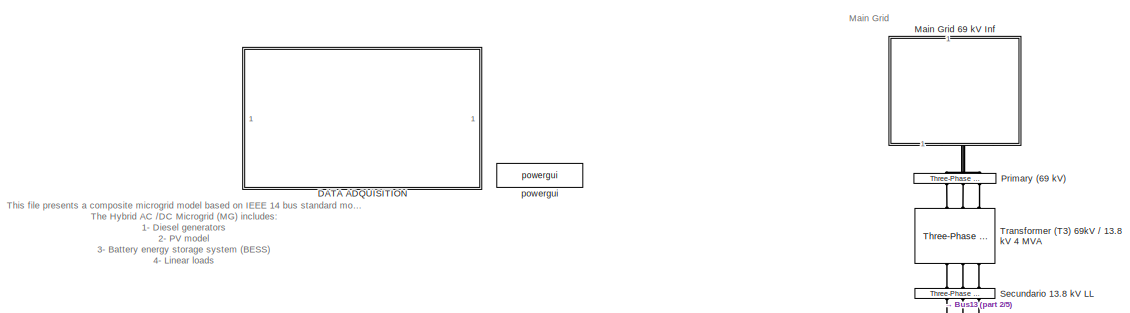
[diagram: root canvas - part 1/5, top left region]
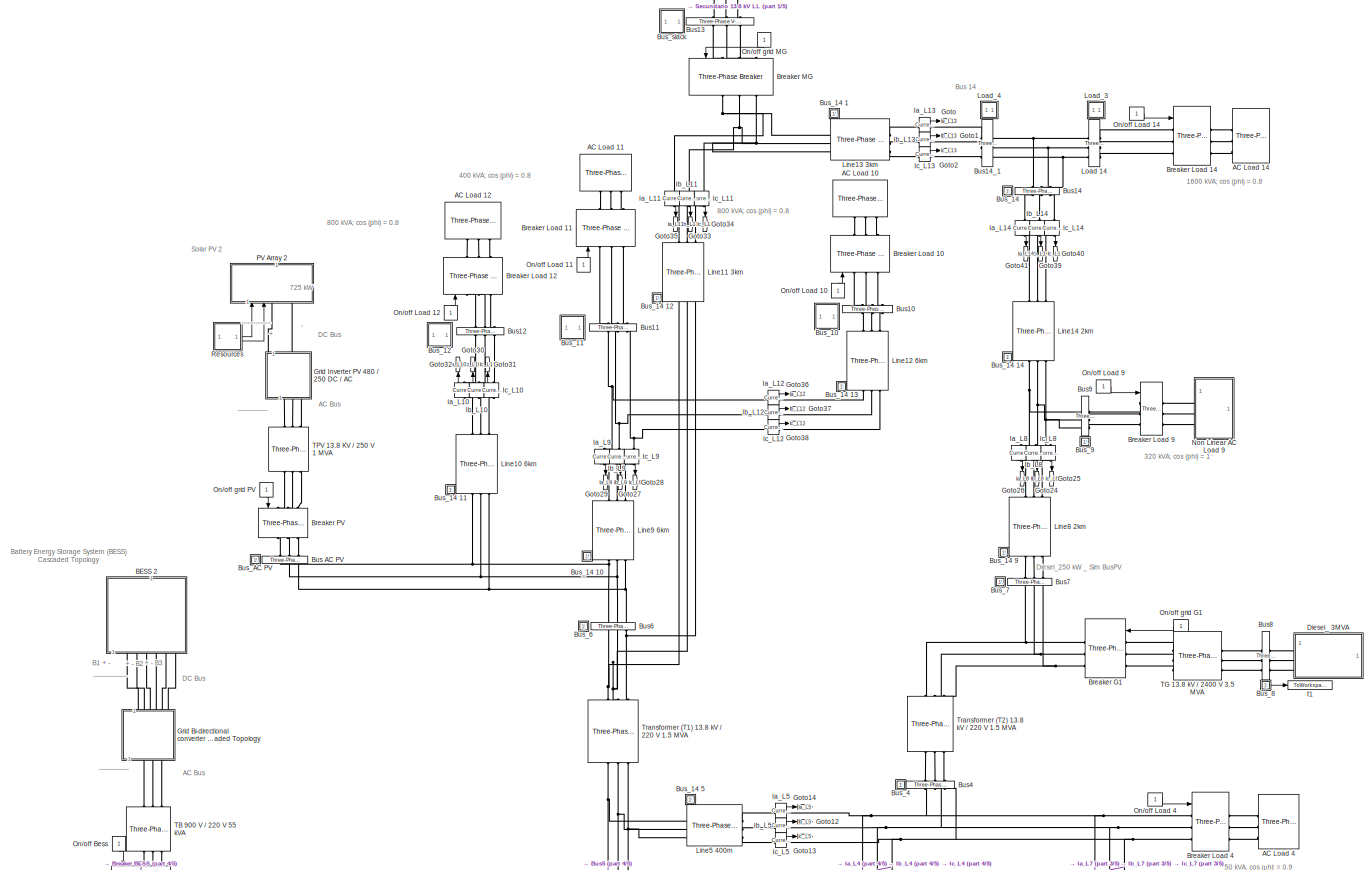
[diagram: root canvas - part 2/5, full width, top band]
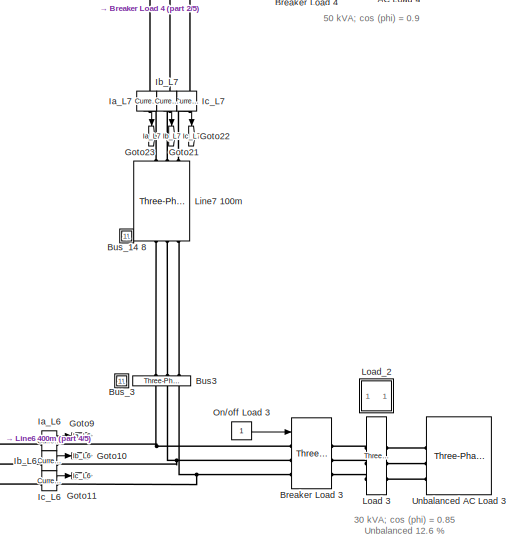
[diagram: root canvas - part 3/5, middle right region]
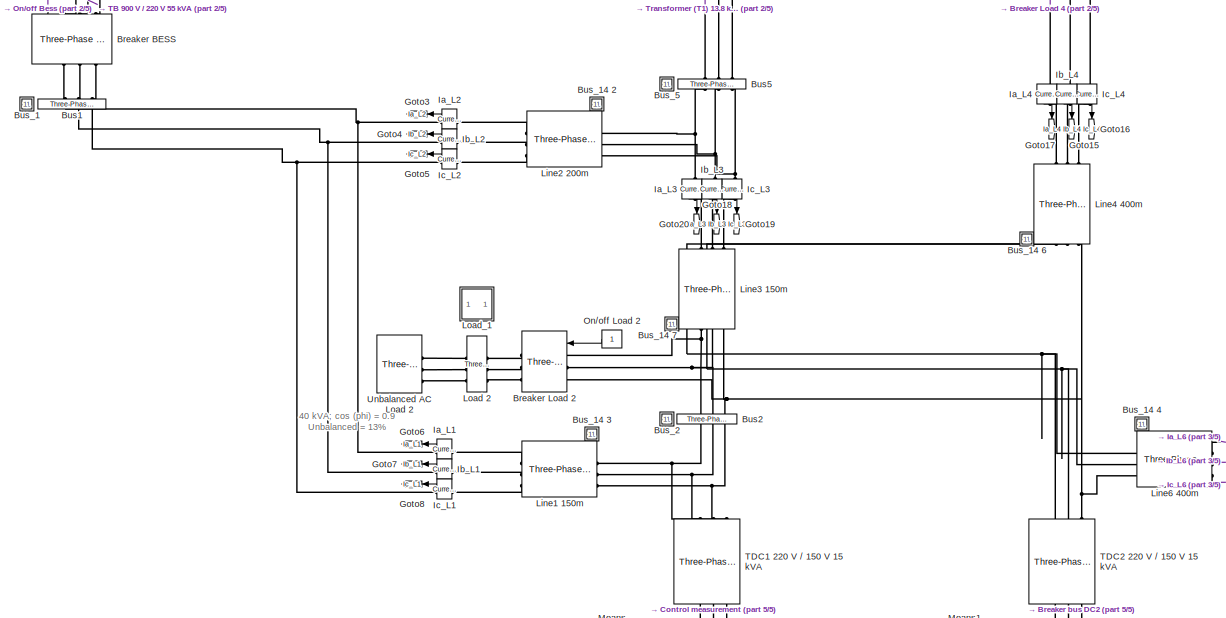
[diagram: root canvas - part 4/5, central region]
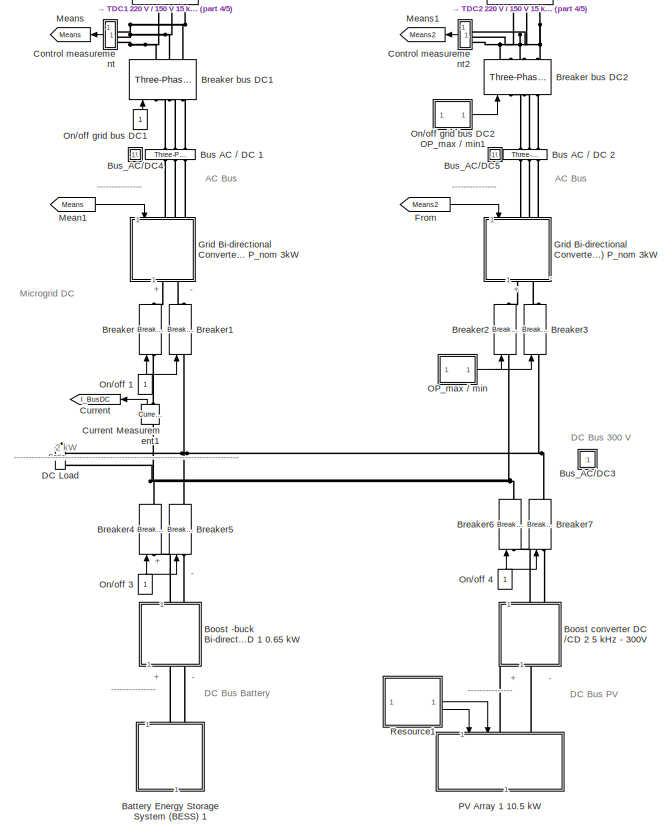
[diagram: root canvas - part 5/5, bottom center region]
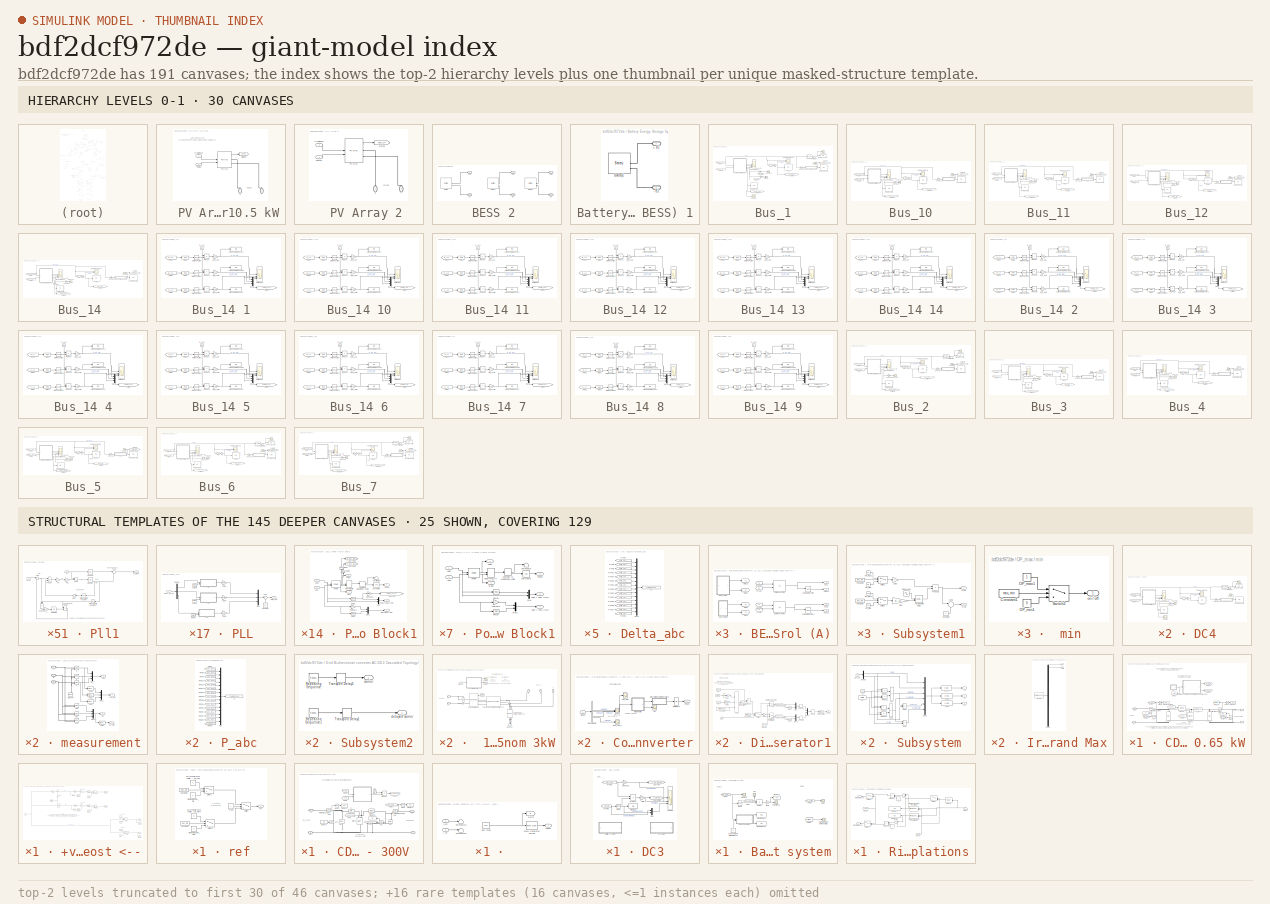
[diagram: thumbnail index - top-2 hierarchy levels (46 canvases (first 30 of 46 shown)) + 25 structural-template representatives of the remaining 145 canvases]
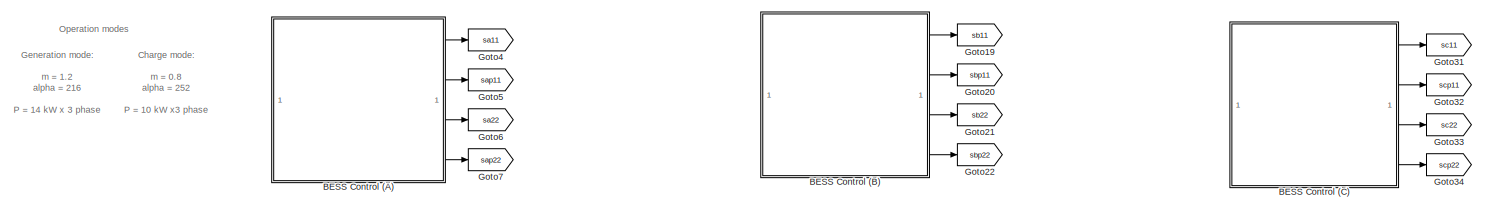
[diagram: Grid Bi-directional converter AC /CD 2 Cascaded Topology - part 1/3, full width, top band]
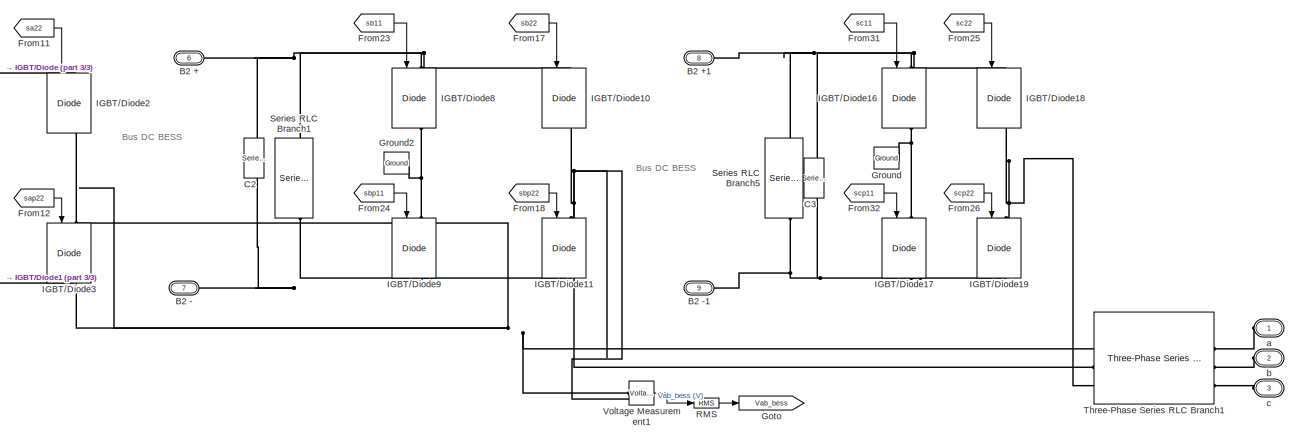
[diagram: Grid Bi-directional converter AC /CD 2 Cascaded Topology - part 2/3, full width, middle band]
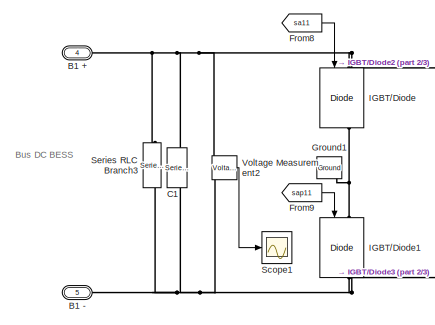
[diagram: Grid Bi-directional converter AC /CD 2 Cascaded Topology - part 3/3, middle left region]
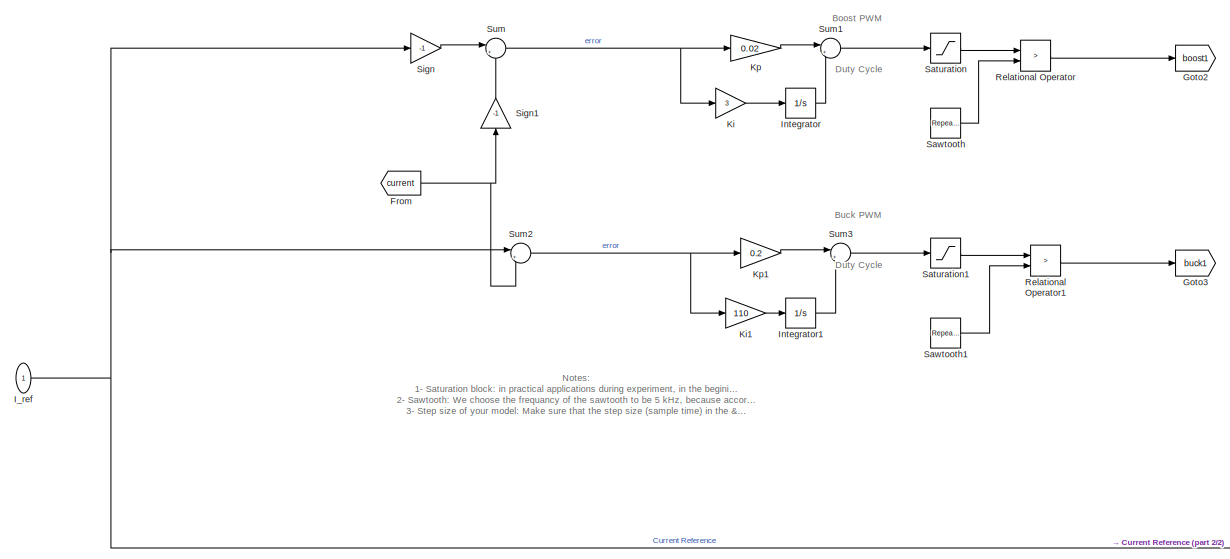
[diagram: Boost -buck Bi-directional converter DC /CD 1 0.65 kW/+ve reference For Buck --> -ve reference For Boost <-- - part 1/2, central region]
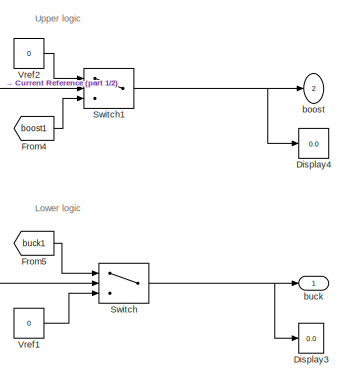
[diagram: Boost -buck Bi-directional converter DC /CD 1 0.65 kW/+ve reference For Buck --> -ve reference For Boost <-- - part 2/2, bottom right region]
MODEL slx_bdf2dcf972de
KIND model
CONFIG AbsTol = auto
CONFIG EnableMultiTasking = off
CONFIG FixedStep = auto
CONFIG InitFcn = Set_parameters_R2018
CONFIG MaxStep = 1e-2
CONFIG MinStep = auto
CONFIG RelTol = 1e-3
CONFIG SampleTimeConstraint = Unconstrained
CONFIG SolverName = ode23tb
CONFIG StartTime = 0.0
CONFIG StopFcn = Save_Data;\nGraphics;
CONFIG StopTime = 0.1
BLOCK [Reference]   Ic_L11  REF=spsCurrentMeasurementLib/Current Measurement
  LibrarySourceBlock = sps_lib/Sensors and Measurements/Current Measurement
  NameLocation = right
  SourceBlock = spsCurrentMeasurementLib/Current Measurement
  SourceType = Current Measurement
  UserDataPersistent = on
BLOCK [Reference]   Ic_L3  REF=spsCurrentMeasurementLib/Current Measurement
  LibrarySourceBlock = sps_lib/Sensors and Measurements/Current Measurement
  NameLocation = right
  SourceBlock = spsCurrentMeasurementLib/Current Measurement
  SourceType = Current Measurement
  UserDataPersistent = on
BLOCK [Reference]   Ic_L4  REF=spsCurrentMeasurementLib/Current Measurement
  LibrarySourceBlock = sps_lib/Sensors and Measurements/Current Measurement
  NameLocation = right
  SourceBlock = spsCurrentMeasurementLib/Current Measurement
  SourceType = Current Measurement
  UserDataPersistent = on
BLOCK [Reference]   Ic_L7  REF=spsCurrentMeasurementLib/Current Measurement
  LibrarySourceBlock = sps_lib/Sensors and Measurements/Current Measurement
  NameLocation = right
  SourceBlock = spsCurrentMeasurementLib/Current Measurement
  SourceType = Current Measurement
  UserDataPersistent = on
BLOCK [Reference]   Ic_L8  REF=spsCurrentMeasurementLib/Current Measurement
  LibrarySourceBlock = sps_lib/Sensors and Measurements/Current Measurement
  NameLocation = right
  SourceBlock = spsCurrentMeasurementLib/Current Measurement
  SourceType = Current Measurement
  UserDataPersistent = on
BLOCK [Reference]   Ic_L9  REF=spsCurrentMeasurementLib/Current Measurement
  LibrarySourceBlock = sps_lib/Sensors and Measurements/Current Measurement
  NameLocation = right
  SourceBlock = spsCurrentMeasurementLib/Current Measurement
  SourceType = Current Measurement
  UserDataPersistent = on
BLOCK [SubSystem]   PV Array 1 10.5 kW
  NameLocation = right
BLOCK [PMIOPort]   PV Array 1 10.5 kW/+
  NameLocation = right
  Side = Left
  Tag = PMCPort
BLOCK [PMIOPort]   PV Array 1 10.5 kW/-
  NameLocation = right
  Port = 2
  Side = Left
  Tag = PMCPort
BLOCK [Goto]   PV Array 1 10.5 kW/Goto43
  GotoTag = m_PV
  NameLocation = top
  TagVisibility = global
BLOCK [Inport]   PV Array 1 10.5 kW/Irradiance
BLOCK [Reference]   PV Array 1 10.5 kW/PV Array  REF=spsPVArrayLib/PV Array
  LibrarySourceBlock = sps_lib/Sources/PV Array
  SourceBlock = spsPVArrayLib/PV Array
  SourceType = PV array
BLOCK [Inport]   PV Array 1 10.5 kW/Temp2
  Port = 2
BLOCK [SubSystem]   PV Array 2
  NameLocation = right
BLOCK [PMIOPort]   PV Array 2/+
  NameLocation = right
  Side = Left
  Tag = PMCPort
BLOCK [PMIOPort]   PV Array 2/-
  NameLocation = right
  Port = 2
  Side = Left
  Tag = PMCPort
BLOCK [Goto]   PV Array 2/Goto2
  GotoTag = meas_PV
  TagVisibility = global
BLOCK [Inport]   PV Array 2/Irradiance
BLOCK [Reference]   PV Array 2/PV Array  REF=spsPVArrayLib/PV Array
  AttributesFormatString = %<ModuleName>\n%<Nser>-module string\n%<Npar> parallel strings
  LibrarySourceBlock = sps_lib/Sources/PV Array
  SourceBlock = spsPVArrayLib/PV Array
  SourceType = PV array
BLOCK [Inport]   PV Array 2/Temp2
  Port = 2
BLOCK [Reference]  Bus13  REF=spsThreePhaseVIMeasurementLib/Three-Phase
V-I Measurement
  LibrarySourceBlock = sps_lib/Sensors and Measurements/Three-Phase\nV-I Measurement
  NameLocation = right
  SourceBlock = spsThreePhaseVIMeasurementLib/Three-Phase\nV-I Measurement
  SourceType = Three-Phase VI Measurement
BLOCK [Reference] AC  Load 10  REF=spsThreePhaseSeriesRLCLoadLib/Three-Phase
Series RLC Load
  AttributesFormatString = \n
  LibrarySourceBlock = sps_lib/Passives/Three-Phase\nSeries RLC Load
  NameLocation = left
  SourceBlock = spsThreePhaseSeriesRLCLoadLib/Three-Phase\nSeries RLC Load
  SourceType = Three-Phase Series RLC Load
BLOCK [Reference] AC  Load 11  REF=spsThreePhaseSeriesRLCLoadLib/Three-Phase
Series RLC Load
  AttributesFormatString = \n
  LibrarySourceBlock = sps_lib/Passives/Three-Phase\nSeries RLC Load
  NameLocation = left
  SourceBlock = spsThreePhaseSeriesRLCLoadLib/Three-Phase\nSeries RLC Load
  SourceType = Three-Phase Series RLC Load
BLOCK [Reference] AC  Load 12  REF=spsThreePhaseSeriesRLCLoadLib/Three-Phase
Series RLC Load
  AttributesFormatString = \n
  LibrarySourceBlock = sps_lib/Passives/Three-Phase\nSeries RLC Load
  NameLocation = left
  SourceBlock = spsThreePhaseSeriesRLCLoadLib/Three-Phase\nSeries RLC Load
  SourceType = Three-Phase Series RLC Load
BLOCK [Reference] AC  Load 14  REF=spsThreePhaseSeriesRLCLoadLib/Three-Phase
Series RLC Load
  AttributesFormatString = \n
  LibrarySourceBlock = sps_lib/Passives/Three-Phase\nSeries RLC Load
  SourceBlock = spsThreePhaseSeriesRLCLoadLib/Three-Phase\nSeries RLC Load
  SourceType = Three-Phase Series RLC Load
BLOCK [Reference] AC  Load 4  REF=spsThreePhaseSeriesRLCLoadLib/Three-Phase
Series RLC Load
  AttributesFormatString = \n
  LibrarySourceBlock = sps_lib/Passives/Three-Phase\nSeries RLC Load
  SourceBlock = spsThreePhaseSeriesRLCLoadLib/Three-Phase\nSeries RLC Load
  SourceType = Three-Phase Series RLC Load
BLOCK [SubSystem] BESS 2 
  NameLocation = right
BLOCK [PMIOPort] BESS 2 /+ B1
  Side = Left
BLOCK [PMIOPort] BESS 2 /+ B2
  Port = 3
  Side = Left
BLOCK [PMIOPort] BESS 2 /+ B3
  Port = 5
  Side = Left
BLOCK [PMIOPort] BESS 2 /- B1
  Port = 2
  Side = Left
BLOCK [PMIOPort] BESS 2 /- B2
  Port = 4
  Side = Left
BLOCK [PMIOPort] BESS 2 /- B3
  Port = 6
  Side = Left
BLOCK [Reference] BESS 2 /Battery  REF=spsBatteryLib/Battery
  LibrarySourceBlock = electricdrivelib/Extra Sources/Battery
  SourceBlock = spsBatteryLib/Battery
  SourceType = Battery
BLOCK [Reference] BESS 2 /Battery1  REF=spsBatteryLib/Battery
  LibrarySourceBlock = electricdrivelib/Extra Sources/Battery
  SourceBlock = spsBatteryLib/Battery
  SourceType = Battery
BLOCK [Reference] BESS 2 /Battery2  REF=spsBatteryLib/Battery
  LibrarySourceBlock = electricdrivelib/Extra Sources/Battery
  SourceBlock = spsBatteryLib/Battery
  SourceType = Battery
BLOCK [SubSystem] Battery Energy Storage System (BESS) 1
  NameLocation = right
BLOCK [PMIOPort] Battery Energy Storage System (BESS) 1/+ B1
  Side = Left
BLOCK [PMIOPort] Battery Energy Storage System (BESS) 1/- B1
  Port = 2
  Side = Left
BLOCK [Reference] Battery Energy Storage System (BESS) 1/Battery1  REF=spsBatteryLib/Battery
  LibrarySourceBlock = electricdrivelib/Extra Sources/Battery
  SourceBlock = spsBatteryLib/Battery
  SourceType = Battery
BLOCK [SubSystem] Boost -buck Bi-directional converter DC //CD 1 0.65 kW
  NameLocation = right
BLOCK [PMIOPort] Boost -buck Bi-directional converter DC //CD 1 0.65 kW/+
  NameLocation = top
  Port = 2
  Side = Left
BLOCK [SubSystem] Boost -buck Bi-directional converter DC //CD 1 0.65 kW/+ve reference For Buck --> -ve reference For Boost <--
BLOCK [Display] Boost -buck Bi-directional converter DC //CD 1 0.65 kW/+ve reference For Buck --> -ve reference For Boost <--/Display3
  Decimation = 1
BLOCK [Display] Boost -buck Bi-directional converter DC //CD 1 0.65 kW/+ve reference For Buck --> -ve reference For Boost <--/Display4
  Decimation = 1
BLOCK [From] Boost -buck Bi-directional converter DC //CD 1 0.65 kW/+ve reference For Buck --> -ve reference For Boost <--/From
  GotoTag = current
  TagVisibility = global
BLOCK [From] Boost -buck Bi-directional converter DC //CD 1 0.65 kW/+ve reference For Buck --> -ve reference For Boost <--/From4
  GotoTag = boost1
  TagVisibility = global
BLOCK [From] Boost -buck Bi-directional converter DC //CD 1 0.65 kW/+ve reference For Buck --> -ve reference For Boost <--/From5
  GotoTag = buck1
  TagVisibility = global
BLOCK [Goto] Boost -buck Bi-directional converter DC //CD 1 0.65 kW/+ve reference For Buck --> -ve reference For Boost <--/Goto2
  GotoTag = boost1
  TagVisibility = global
BLOCK [Goto] Boost -buck Bi-directional converter DC //CD 1 0.65 kW/+ve reference For Buck --> -ve reference For Boost <--/Goto3
  GotoTag = buck1
  TagVisibility = global
BLOCK [Inport] Boost -buck Bi-directional converter DC //CD 1 0.65 kW/+ve reference For Buck --> -ve reference For Boost <--/I_ref
  NameLocation = top
BLOCK [Integrator] Boost -buck Bi-directional converter DC //CD 1 0.65 kW/+ve reference For Buck --> -ve reference For Boost <--/Integrator
  LimitOutput = on
  LowerSaturationLimit = 0
  UpperSaturationLimit = 0.9
BLOCK [Integrator] Boost -buck Bi-directional converter DC //CD 1 0.65 kW/+ve reference For Buck --> -ve reference For Boost <--/Integrator1
  LimitOutput = on
  LowerSaturationLimit = 0
  UpperSaturationLimit = 0.9
BLOCK [Gain] Boost -buck Bi-directional converter DC //CD 1 0.65 kW/+ve reference For Buck --> -ve reference For Boost <--/Ki
  Gain = 3
BLOCK [Gain] Boost -buck Bi-directional converter DC //CD 1 0.65 kW/+ve reference For Buck --> -ve reference For Boost <--/Ki1
  Gain = 110
BLOCK [Gain] Boost -buck Bi-directional converter DC //CD 1 0.65 kW/+ve reference For Buck --> -ve reference For Boost <--/Kp
  Gain = 0.02
BLOCK [Gain] Boost -buck Bi-directional converter DC //CD 1 0.65 kW/+ve reference For Buck --> -ve reference For Boost <--/Kp1
  Gain = 0.2
BLOCK [RelationalOperator] Boost -buck Bi-directional converter DC //CD 1 0.65 kW/+ve reference For Buck --> -ve reference For Boost <--/Relational Operator
  InputSameDT = off
  Operator = >
  OutDataTypeStr = boolean
BLOCK [RelationalOperator] Boost -buck Bi-directional converter DC //CD 1 0.65 kW/+ve reference For Buck --> -ve reference For Boost <--/Relational Operator1
  InputSameDT = off
  Operator = >
  OutDataTypeStr = boolean
BLOCK [Saturate] Boost -buck Bi-directional converter DC //CD 1 0.65 kW/+ve reference For Buck --> -ve reference For Boost <--/Saturation
  LowerLimit = 0
  UpperLimit = 0.9
BLOCK [Saturate] Boost -buck Bi-directional converter DC //CD 1 0.65 kW/+ve reference For Buck --> -ve reference For Boost <--/Saturation1
  LowerLimit = 0
  UpperLimit = 0.8
BLOCK [Reference] Boost -buck Bi-directional converter DC //CD 1 0.65 kW/+ve reference For Buck --> -ve reference For Boost <--/Sawtooth  REF=simulink/Sources/Repeating
Sequence
  SourceBlock = simulink/Sources/Repeating\nSequence
  SourceType = Repeating table
BLOCK [Reference] Boost -buck Bi-directional converter DC //CD 1 0.65 kW/+ve reference For Buck --> -ve reference For Boost <--/Sawtooth1  REF=simulink/Sources/Repeating
Sequence
  SourceBlock = simulink/Sources/Repeating\nSequence
  SourceType = Repeating table
BLOCK [Gain] Boost -buck Bi-directional converter DC //CD 1 0.65 kW/+ve reference For Buck --> -ve reference For Boost <--/Sign
  Gain = -1
BLOCK [Gain] Boost -buck Bi-directional converter DC //CD 1 0.65 kW/+ve reference For Buck --> -ve reference For Boost <--/Sign1
  Gain = -1
  NameLocation = right
BLOCK [Sum] Boost -buck Bi-directional converter DC //CD 1 0.65 kW/+ve reference For Buck --> -ve reference For Boost <--/Sum
  Inputs = |+-
BLOCK [Sum] Boost -buck Bi-directional converter DC //CD 1 0.65 kW/+ve reference For Buck --> -ve reference For Boost <--/Sum1
  Inputs = |++
BLOCK [Sum] Boost -buck Bi-directional converter DC //CD 1 0.65 kW/+ve reference For Buck --> -ve reference For Boost <--/Sum2
  Inputs = |+-
BLOCK [Sum] Boost -buck Bi-directional converter DC //CD 1 0.65 kW/+ve reference For Buck --> -ve reference For Boost <--/Sum3
  Inputs = |++
BLOCK [Switch] Boost -buck Bi-directional converter DC //CD 1 0.65 kW/+ve reference For Buck --> -ve reference For Boost <--/Switch
  Criteria = u2 > Threshold
  InputSameDT = off
  SaturateOnIntegerOverflow = off
BLOCK [Switch] Boost -buck Bi-directional converter DC //CD 1 0.65 kW/+ve reference For Buck --> -ve reference For Boost <--/Switch1
  InputSameDT = off
  SaturateOnIntegerOverflow = off
BLOCK [Constant] Boost -buck Bi-directional converter DC //CD 1 0.65 kW/+ve reference For Buck --> -ve reference For Boost <--/Vref1
  Value = 0
BLOCK [Constant] Boost -buck Bi-directional converter DC //CD 1 0.65 kW/+ve reference For Buck --> -ve reference For Boost <--/Vref2
  Value = 0
BLOCK [Outport] Boost -buck Bi-directional converter DC //CD 1 0.65 kW/+ve reference For Buck --> -ve reference For Boost <--/boost
  NameLocation = top
  Port = 2
  VectorParamsAs1DForOutWhenUnconnected = off
BLOCK [Outport] Boost -buck Bi-directional converter DC //CD 1 0.65 kW/+ve reference For Buck --> -ve reference For Boost <--/buck
  VectorParamsAs1DForOutWhenUnconnected = off
BLOCK [PMIOPort] Boost -buck Bi-directional converter DC //CD 1 0.65 kW/-
  NameLocation = top
  Port = 3
  Side = Left
BLOCK [Reference] Boost -buck Bi-directional converter DC //CD 1 0.65 kW/1200 uF  REF=spsSeriesRLCBranchLib/Series RLC Branch
  LibrarySourceBlock = sps_lib/Passives/Series RLC Branch
  NameLocation = left
  SourceBlock = spsSeriesRLCBranchLib/Series RLC Branch
  SourceType = Series RLC Branch
BLOCK [Reference] Boost -buck Bi-directional converter DC //CD 1 0.65 kW/1200uF  REF=spsSeriesRLCBranchLib/Series RLC Branch
  LibrarySourceBlock = sps_lib/Passives/Series RLC Branch
  NameLocation = left
  SourceBlock = spsSeriesRLCBranchLib/Series RLC Branch
  SourceType = Series RLC Branch
BLOCK [Reference] Boost -buck Bi-directional converter DC //CD 1 0.65 kW/9mH  REF=spsSeriesRLCBranchLib/Series RLC Branch
  LibrarySourceBlock = sps_lib/Passives/Series RLC Branch
  SourceBlock = spsSeriesRLCBranchLib/Series RLC Branch
  SourceType = Series RLC Branch
BLOCK [PMIOPort] Boost -buck Bi-directional converter DC //CD 1 0.65 kW/B +
  NameLocation = top
  Side = Right
BLOCK [PMIOPort] Boost -buck Bi-directional converter DC //CD 1 0.65 kW/B -
  Port = 4
  Side = Right
BLOCK [Reference] Boost -buck Bi-directional converter DC //CD 1 0.65 kW/Current Measurement1  REF=spsCurrentMeasurementLib/Current Measurement
  LibrarySourceBlock = sps_lib/Sensors and Measurements/Current Measurement
  SourceBlock = spsCurrentMeasurementLib/Current Measurement
  SourceType = Current Measurement
BLOCK [Reference] Boost -buck Bi-directional converter DC //CD 1 0.65 kW/Current Measurement2  REF=spsCurrentMeasurementLib/Current Measurement
  LibrarySourceBlock = sps_lib/Sensors and Measurements/Current Measurement
  SourceBlock = spsCurrentMeasurementLib/Current Measurement
  SourceType = Current Measurement
BLOCK [Reference] Boost -buck Bi-directional converter DC //CD 1 0.65 kW/Diode5  REF=spsIGBTDiodeLib/IGBT//Diode
  LibrarySourceBlock = sps_lib/Power Electronics/IGBT//Diode
  NameLocation = top
  SourceBlock = spsIGBTDiodeLib/IGBT//Diode
  SourceType = IGBT/Diode
BLOCK [Reference] Boost -buck Bi-directional converter DC //CD 1 0.65 kW/Diode6  REF=spsIGBTDiodeLib/IGBT//Diode
  LibrarySourceBlock = sps_lib/Power Electronics/IGBT//Diode
  NameLocation = left
  SourceBlock = spsIGBTDiodeLib/IGBT//Diode
  SourceType = IGBT/Diode
BLOCK [Display] Boost -buck Bi-directional converter DC //CD 1 0.65 kW/Display1
  Decimation = 1
BLOCK [Display] Boost -buck Bi-directional converter DC //CD 1 0.65 kW/Display2
  Decimation = 1
  NameLocation = top
BLOCK [Display] Boost -buck Bi-directional converter DC //CD 1 0.65 kW/Display3
  Decimation = 1
  NameLocation = top
BLOCK [Display] Boost -buck Bi-directional converter DC //CD 1 0.65 kW/Display6
  Decimation = 1
BLOCK [From] Boost -buck Bi-directional converter DC //CD 1 0.65 kW/From
  GotoTag = g_boost
  TagVisibility = global
BLOCK [From] Boost -buck Bi-directional converter DC //CD 1 0.65 kW/From1
  GotoTag = g_buck
  TagVisibility = global
BLOCK [Goto] Boost -buck Bi-directional converter DC //CD 1 0.65 kW/Goto1
  GotoTag = I_ref
  NameLocation = top
  TagVisibility = global
BLOCK [Goto] Boost -buck Bi-directional converter DC //CD 1 0.65 kW/Goto15
  GotoTag = current
  NameLocation = top
  TagVisibility = global
BLOCK [Goto] Boost -buck Bi-directional converter DC //CD 1 0.65 kW/Goto2
  GotoTag = Vdc_bus
  NameLocation = top
  TagVisibility = global
BLOCK [Goto] Boost -buck Bi-directional converter DC //CD 1 0.65 kW/Goto3
  GotoTag = Idc_bus
  NameLocation = top
  TagVisibility = global
BLOCK [Goto] Boost -buck Bi-directional converter DC //CD 1 0.65 kW/Goto4
  GotoTag = Vdc_battery
  NameLocation = top
  TagVisibility = global
BLOCK [Reference] Boost -buck Bi-directional converter DC //CD 1 0.65 kW/Mean  REF=spsMeanLib/Mean
  LibrarySourceBlock = sps_lib/Sensors and Measurements/Mean
  SourceBlock = spsMeanLib/Mean
  SourceType = Mean
BLOCK [Reference] Boost -buck Bi-directional converter DC //CD 1 0.65 kW/Mean1  REF=spsMeanLib/Mean
  LibrarySourceBlock = sps_lib/Sensors and Measurements/Mean
  SourceBlock = spsMeanLib/Mean
  SourceType = Mean
BLOCK [Goto] Boost -buck Bi-directional converter DC //CD 1 0.65 kW/Pulse1
  GotoTag = g_boost
  TagVisibility = global
BLOCK [Goto] Boost -buck Bi-directional converter DC //CD 1 0.65 kW/Pulse2
  GotoTag = g_buck
  TagVisibility = global
BLOCK [Reference] Boost -buck Bi-directional converter DC //CD 1 0.65 kW/Vdc   REF=spsVoltageMeasurementLib/Voltage Measurement
  AttributesFormatString = \n
  LibrarySourceBlock = sps_lib/Sensors and Measurements/Voltage Measurement
  NameLocation = top
  SourceBlock = spsVoltageMeasurementLib/Voltage Measurement
  SourceType = Voltage Measurement
  Tag = PoWeRsYsTeMmEaSuReMeNt
BLOCK [Reference] Boost -buck Bi-directional converter DC //CD 1 0.65 kW/Vdc 1  REF=spsVoltageMeasurementLib/Voltage Measurement
  AttributesFormatString = \n
  LibrarySourceBlock = sps_lib/Sensors and Measurements/Voltage Measurement
  NameLocation = top
  SourceBlock = spsVoltageMeasurementLib/Voltage Measurement
  SourceType = Voltage Measurement
  Tag = PoWeRsYsTeMmEaSuReMeNt
BLOCK [SubSystem] Boost -buck Bi-directional converter DC //CD 1 0.65 kW/ref
BLOCK [Constant] Boost -buck Bi-directional converter DC //CD 1 0.65 kW/ref/Constant2
  Value = max_min
BLOCK [Constant] Boost -buck Bi-directional converter DC //CD 1 0.65 kW/ref/Constant3
  Value = max_min
BLOCK [Constant] Boost -buck Bi-directional converter DC //CD 1 0.65 kW/ref/Current reference (battery charge) OP_Max
  NameLocation = top
  Value = 5
BLOCK [Constant] Boost -buck Bi-directional converter DC //CD 1 0.65 kW/ref/Current reference (battery discharge) OP_Max1
  NameLocation = top
  Value = -5
BLOCK [Constant] Boost -buck Bi-directional converter DC //CD 1 0.65 kW/ref/Min Demand OP_min
  Value = 3
BLOCK [Constant] Boost -buck Bi-directional converter DC //CD 1 0.65 kW/ref/Min Demand OP_min1
  Value = -3
BLOCK [Switch] Boost -buck Bi-directional converter DC //CD 1 0.65 kW/ref/Switch
  Criteria = u2 > Threshold
  InputSameDT = off
  SaturateOnIntegerOverflow = off
BLOCK [Switch] Boost -buck Bi-directional converter DC //CD 1 0.65 kW/ref/Switch1
  Criteria = u2 > Threshold
  InputSameDT = off
  SaturateOnIntegerOverflow = off
BLOCK [Switch] Boost -buck Bi-directional converter DC //CD 1 0.65 kW/ref/Switch3
  Criteria = u2 > Threshold
  InputSameDT = off
  SaturateOnIntegerOverflow = off
BLOCK [Constant] Boost -buck Bi-directional converter DC //CD 1 0.65 kW/ref/Vref1
BLOCK [Outport] Boost -buck Bi-directional converter DC //CD 1 0.65 kW/ref/ref
  VectorParamsAs1DForOutWhenUnconnected = off
BLOCK [SubSystem] Boost converter DC //CD 2 5 kHz - 300V 
  NameLocation = right
BLOCK [SubSystem] Boost converter DC //CD 2 5 kHz - 300V / 
  NameLocation = top
BLOCK [Constant] Boost converter DC //CD 2 5 kHz - 300V / /Duty Cycle
  Value = 0.34
BLOCK [Goto] Boost converter DC //CD 2 5 kHz - 300V / /Goto7
  GotoTag = D
  TagVisibility = global
BLOCK [Inport] Boost converter DC //CD 2 5 kHz - 300V / /I_PV
  Port = 2
BLOCK [Reference] Boost converter DC //CD 2 5 kHz - 300V / /PWM Generator (DC-DC)  REF=spsPWMGeneratorDCDCLib/PWM Generator
(DC-DC)
  LibrarySourceBlock = sps_lib/Power Electronics/Power Electronics Control/PWM Generator\n(DC-DC)
  SourceBlock = spsPWMGeneratorDCDCLib/PWM Generator\n(DC-DC)
  SourceType = PWM Generator (DC-DC)
BLOCK [Outport] Boost converter DC //CD 2 5 kHz - 300V / /Pulses
  VectorParamsAs1DForOutWhenUnconnected = off
BLOCK [Terminator] Boost converter DC //CD 2 5 kHz - 300V / /Terminator1
BLOCK [Terminator] Boost converter DC //CD 2 5 kHz - 300V / /Terminator2
BLOCK [Inport] Boost converter DC //CD 2 5 kHz - 300V / /V_PV
BLOCK [PMIOPort] Boost converter DC //CD 2 5 kHz - 300V /+
  NameLocation = top
  Port = 2
  Side = Left
BLOCK [PMIOPort] Boost converter DC //CD 2 5 kHz - 300V /-
  NameLocation = top
  Port = 3
  Side = Left
BLOCK [PMIOPort] Boost converter DC //CD 2 5 kHz - 300V /B +
  NameLocation = top
  Side = Right
BLOCK [PMIOPort] Boost converter DC //CD 2 5 kHz - 300V /B -
  Port = 4
  Side = Right
BLOCK [Reference] Boost converter DC //CD 2 5 kHz - 300V /C1  REF=spsSeriesRLCBranchLib/Series RLC Branch
  AttributesFormatString = \n
  LibrarySourceBlock = sps_lib/Passives/Series RLC Branch
  NameLocation = left
  SourceBlock = spsSeriesRLCBranchLib/Series RLC Branch
  SourceType = Series RLC Branch
BLOCK [Reference] Boost converter DC //CD 2 5 kHz - 300V /C3  REF=spsSeriesRLCBranchLib/Series RLC Branch
  AttributesFormatString = \n
  LibrarySourceBlock = sps_lib/Passives/Series RLC Branch
  NameLocation = left
  SourceBlock = spsSeriesRLCBranchLib/Series RLC Branch
  SourceType = Series RLC Branch
BLOCK [Reference] Boost converter DC //CD 2 5 kHz - 300V /Current Measurement1  REF=spsCurrentMeasurementLib/Current Measurement
  LibrarySourceBlock = sps_lib/Sensors and Measurements/Current Measurement
  SourceBlock = spsCurrentMeasurementLib/Current Measurement
  SourceType = Current Measurement
BLOCK [Reference] Boost converter DC //CD 2 5 kHz - 300V /Current Measurement2  REF=spsCurrentMeasurementLib/Current Measurement
  LibrarySourceBlock = sps_lib/Sensors and Measurements/Current Measurement
  SourceBlock = spsCurrentMeasurementLib/Current Measurement
  SourceType = Current Measurement
BLOCK [Reference] Boost converter DC //CD 2 5 kHz - 300V /Diode1  REF=spsDiodeLib/Diode
  LibrarySourceBlock = sps_lib/Power Electronics/Diode
  SourceBlock = spsDiodeLib/Diode
  SourceType = Diode
BLOCK [Display] Boost converter DC //CD 2 5 kHz - 300V /Display2
  Decimation = 1
BLOCK [Display] Boost converter DC //CD 2 5 kHz - 300V /Display3
  Decimation = 1
  NameLocation = top
BLOCK [Display] Boost converter DC //CD 2 5 kHz - 300V /Display4
  Decimation = 1
  NameLocation = top
BLOCK [Display] Boost converter DC //CD 2 5 kHz - 300V /Display6
  Decimation = 1
BLOCK [From] Boost converter DC //CD 2 5 kHz - 300V /From
  GotoTag = g_boost_PV
  TagVisibility = global
BLOCK [From] Boost converter DC //CD 2 5 kHz - 300V /From3
  CloseFcn = tagdialog Close
  GotoTag = I_PV
  TagVisibility = global
BLOCK [From] Boost converter DC //CD 2 5 kHz - 300V /From5
  CloseFcn = tagdialog Close
  GotoTag = V_PV
  TagVisibility = global
BLOCK [Goto] Boost converter DC //CD 2 5 kHz - 300V /Goto1
  GotoTag = V_DC_bus_PV
  NameLocation = top
  TagVisibility = global
BLOCK [Goto] Boost converter DC //CD 2 5 kHz - 300V /Goto3
  GotoTag = I_DC_bus_PV
  NameLocation = top
  TagVisibility = global
BLOCK [Reference] Boost converter DC //CD 2 5 kHz - 300V /IGBT1  REF=spsIGBTLib/IGBT
  LibrarySourceBlock = sps_lib/Power Electronics/IGBT
  NameLocation = left
  SourceBlock = spsIGBTLib/IGBT
  SourceType = IGBT
BLOCK [Reference] Boost converter DC //CD 2 5 kHz - 300V /L1  REF=spsSeriesRLCBranchLib/Series RLC Branch
  LibrarySourceBlock = sps_lib/Passives/Series RLC Branch
  NameLocation = top
  SourceBlock = spsSeriesRLCBranchLib/Series RLC Branch
  SourceType = Series RLC Branch
BLOCK [Reference] Boost converter DC //CD 2 5 kHz - 300V /Mean  REF=spsMeanLib/Mean
  LibrarySourceBlock = sps_lib/Sensors and Measurements/Mean
  SourceBlock = spsMeanLib/Mean
  SourceType = Mean
BLOCK [Reference] Boost converter DC //CD 2 5 kHz - 300V /Mean1  REF=spsMeanLib/Mean
  LibrarySourceBlock = sps_lib/Sensors and Measurements/Mean
  SourceBlock = spsMeanLib/Mean
  SourceType = Mean
BLOCK [Product] Boost converter DC //CD 2 5 kHz - 300V /Product
BLOCK [Goto] Boost converter DC //CD 2 5 kHz - 300V /Pulse2
  GotoTag = g_boost_PV
  TagVisibility = global
BLOCK [Step] Boost converter DC //CD 2 5 kHz - 300V /Step
  SampleTime = 0
  Time = 0
BLOCK [Reference] Boost converter DC //CD 2 5 kHz - 300V /Vdc   REF=spsVoltageMeasurementLib/Voltage Measurement
  AttributesFormatString = \n
  LibrarySourceBlock = sps_lib/Sensors and Measurements/Voltage Measurement
  NameLocation = top
  SourceBlock = spsVoltageMeasurementLib/Voltage Measurement
  SourceType = Voltage Measurement
  Tag = PoWeRsYsTeMmEaSuReMeNt
BLOCK [Reference] Boost converter DC //CD 2 5 kHz - 300V /Vdc 1  REF=spsVoltageMeasurementLib/Voltage Measurement
  AttributesFormatString = \n
  LibrarySourceBlock = sps_lib/Sensors and Measurements/Voltage Measurement
  NameLocation = top
  SourceBlock = spsVoltageMeasurementLib/Voltage Measurement
  SourceType = Voltage Measurement
  Tag = PoWeRsYsTeMmEaSuReMeNt
BLOCK [Reference] Breaker  REF=spsBreakerLib/Breaker
  LibrarySourceBlock = sps_lib/Power Grid Elements/Breaker
  NameLocation = right
  SourceBlock = spsBreakerLib/Breaker
  SourceType = Breaker
BLOCK [Reference] Breaker BESS   REF=spsThreePhaseBreakerLib/Three-Phase Breaker
  LibrarySourceBlock = sps_lib/Power Grid Elements/Three-Phase Breaker
  NameLocation = right
  SourceBlock = spsThreePhaseBreakerLib/Three-Phase Breaker
  SourceType = Three-Phase Breaker
BLOCK [Reference] Breaker G1  REF=spsThreePhaseBreakerLib/Three-Phase Breaker
  LibrarySourceBlock = sps_lib/Power Grid Elements/Three-Phase Breaker
  NameLocation = top
  SourceBlock = spsThreePhaseBreakerLib/Three-Phase Breaker
  SourceType = Three-Phase Breaker
BLOCK [Reference] Breaker Load 10  REF=spsThreePhaseBreakerLib/Three-Phase Breaker
  LibrarySourceBlock = sps_lib/Power Grid Elements/Three-Phase Breaker
  NameLocation = left
  SourceBlock = spsThreePhaseBreakerLib/Three-Phase Breaker
  SourceType = Three-Phase Breaker
BLOCK [Reference] Breaker Load 11  REF=spsThreePhaseBreakerLib/Three-Phase Breaker
  LibrarySourceBlock = sps_lib/Power Grid Elements/Three-Phase Breaker
  NameLocation = left
  SourceBlock = spsThreePhaseBreakerLib/Three-Phase Breaker
  SourceType = Three-Phase Breaker
BLOCK [Reference] Breaker Load 12  REF=spsThreePhaseBreakerLib/Three-Phase Breaker
  LibrarySourceBlock = sps_lib/Power Grid Elements/Three-Phase Breaker
  NameLocation = left
  SourceBlock = spsThreePhaseBreakerLib/Three-Phase Breaker
  SourceType = Three-Phase Breaker
BLOCK [Reference] Breaker Load 14  REF=spsThreePhaseBreakerLib/Three-Phase Breaker
  LibrarySourceBlock = sps_lib/Power Grid Elements/Three-Phase Breaker
  NameLocation = top
  SourceBlock = spsThreePhaseBreakerLib/Three-Phase Breaker
  SourceType = Three-Phase Breaker
BLOCK [Reference] Breaker Load 2  REF=spsThreePhaseBreakerLib/Three-Phase Breaker
  LibrarySourceBlock = sps_lib/Power Grid Elements/Three-Phase Breaker
  NameLocation = top
  SourceBlock = spsThreePhaseBreakerLib/Three-Phase Breaker
  SourceType = Three-Phase Breaker
BLOCK [Reference] Breaker Load 3  REF=spsThreePhaseBreakerLib/Three-Phase Breaker
  LibrarySourceBlock = sps_lib/Power Grid Elements/Three-Phase Breaker
  NameLocation = top
  SourceBlock = spsThreePhaseBreakerLib/Three-Phase Breaker
  SourceType = Three-Phase Breaker
BLOCK [Reference] Breaker Load 4  REF=spsThreePhaseBreakerLib/Three-Phase Breaker
  LibrarySourceBlock = sps_lib/Power Grid Elements/Three-Phase Breaker
  NameLocation = top
  SourceBlock = spsThreePhaseBreakerLib/Three-Phase Breaker
  SourceType = Three-Phase Breaker
BLOCK [Reference] Breaker Load 9  REF=spsThreePhaseBreakerLib/Three-Phase Breaker
  LibrarySourceBlock = sps_lib/Power Grid Elements/Three-Phase Breaker
  NameLocation = top
  SourceBlock = spsThreePhaseBreakerLib/Three-Phase Breaker
  SourceType = Three-Phase Breaker
BLOCK [Reference] Breaker MG  REF=spsThreePhaseBreakerLib/Three-Phase Breaker
  LibrarySourceBlock = sps_lib/Power Grid Elements/Three-Phase Breaker
  NameLocation = right
  SourceBlock = spsThreePhaseBreakerLib/Three-Phase Breaker
  SourceType = Three-Phase Breaker
BLOCK [Reference] Breaker PV  REF=spsThreePhaseBreakerLib/Three-Phase Breaker
  LibrarySourceBlock = sps_lib/Power Grid Elements/Three-Phase Breaker
  NameLocation = right
  SourceBlock = spsThreePhaseBreakerLib/Three-Phase Breaker
  SourceType = Three-Phase Breaker
BLOCK [Reference] Breaker bus DC1  REF=spsThreePhaseBreakerLib/Three-Phase Breaker
  LibrarySourceBlock = sps_lib/Power Grid Elements/Three-Phase Breaker
  NameLocation = right
  SourceBlock = spsThreePhaseBreakerLib/Three-Phase Breaker
  SourceType = Three-Phase Breaker
BLOCK [Reference] Breaker bus DC2  REF=spsThreePhaseBreakerLib/Three-Phase Breaker
  LibrarySourceBlock = sps_lib/Power Grid Elements/Three-Phase Breaker
  NameLocation = right
  SourceBlock = spsThreePhaseBreakerLib/Three-Phase Breaker
  SourceType = Three-Phase Breaker
BLOCK [Reference] Breaker1  REF=spsBreakerLib/Breaker
  LibrarySourceBlock = sps_lib/Power Grid Elements/Breaker
  NameLocation = right
  SourceBlock = spsBreakerLib/Breaker
  SourceType = Breaker
BLOCK [Reference] Breaker2  REF=spsBreakerLib/Breaker
  LibrarySourceBlock = sps_lib/Power Grid Elements/Breaker
  NameLocation = right
  SourceBlock = spsBreakerLib/Breaker
  SourceType = Breaker
BLOCK [Reference] Breaker3  REF=spsBreakerLib/Breaker
  LibrarySourceBlock = sps_lib/Power Grid Elements/Breaker
  NameLocation = right
  SourceBlock = spsBreakerLib/Breaker
  SourceType = Breaker
BLOCK [Reference] Breaker4  REF=spsBreakerLib/Breaker
  LibrarySourceBlock = sps_lib/Power Grid Elements/Breaker
  NameLocation = right
  SourceBlock = spsBreakerLib/Breaker
  SourceType = Breaker
BLOCK [Reference] Breaker5  REF=spsBreakerLib/Breaker
  LibrarySourceBlock = sps_lib/Power Grid Elements/Breaker
  NameLocation = right
  SourceBlock = spsBreakerLib/Breaker
  SourceType = Breaker
BLOCK [Reference] Breaker6  REF=spsBreakerLib/Breaker
  LibrarySourceBlock = sps_lib/Power Grid Elements/Breaker
  NameLocation = right
  SourceBlock = spsBreakerLib/Breaker
  SourceType = Breaker
BLOCK [Reference] Breaker7  REF=spsBreakerLib/Breaker
  LibrarySourceBlock = sps_lib/Power Grid Elements/Breaker
  NameLocation = right
  SourceBlock = spsBreakerLib/Breaker
  SourceType = Breaker
BLOCK [Reference] Bus AC // DC 1  REF=spsThreePhaseVIMeasurementLib/Three-Phase
V-I Measurement
  LibrarySourceBlock = sps_lib/Sensors and Measurements/Three-Phase\nV-I Measurement
  NameLocation = right
  SourceBlock = spsThreePhaseVIMeasurementLib/Three-Phase\nV-I Measurement
  SourceType = Three-Phase VI Measurement
BLOCK [Reference] Bus AC // DC 2  REF=spsThreePhaseVIMeasurementLib/Three-Phase
V-I Measurement
  LibrarySourceBlock = sps_lib/Sensors and Measurements/Three-Phase\nV-I Measurement
  NameLocation = right
  SourceBlock = spsThreePhaseVIMeasurementLib/Three-Phase\nV-I Measurement
  SourceType = Three-Phase VI Measurement
BLOCK [Reference] Bus AC PV  REF=spsThreePhaseVIMeasurementLib/Three-Phase
V-I Measurement
  LibrarySourceBlock = sps_lib/Sensors and Measurements/Three-Phase\nV-I Measurement
  NameLocation = right
  SourceBlock = spsThreePhaseVIMeasurementLib/Three-Phase\nV-I Measurement
  SourceType = Three-Phase VI Measurement
BLOCK [Reference] Bus1  REF=spsThreePhaseVIMeasurementLib/Three-Phase
V-I Measurement
  LibrarySourceBlock = sps_lib/Sensors and Measurements/Three-Phase\nV-I Measurement
  NameLocation = right
  SourceBlock = spsThreePhaseVIMeasurementLib/Three-Phase\nV-I Measurement
  SourceType = Three-Phase VI Measurement
BLOCK [Reference] Bus10  REF=spsThreePhaseVIMeasurementLib/Three-Phase
V-I Measurement
  LibrarySourceBlock = sps_lib/Sensors and Measurements/Three-Phase\nV-I Measurement
  NameLocation = right
  SourceBlock = spsThreePhaseVIMeasurementLib/Three-Phase\nV-I Measurement
  SourceType = Three-Phase VI Measurement
BLOCK [Reference] Bus11  REF=spsThreePhaseVIMeasurementLib/Three-Phase
V-I Measurement
  LibrarySourceBlock = sps_lib/Sensors and Measurements/Three-Phase\nV-I Measurement
  NameLocation = right
  SourceBlock = spsThreePhaseVIMeasurementLib/Three-Phase\nV-I Measurement
  SourceType = Three-Phase VI Measurement
BLOCK [Reference] Bus12  REF=spsThreePhaseVIMeasurementLib/Three-Phase
V-I Measurement
  LibrarySourceBlock = sps_lib/Sensors and Measurements/Three-Phase\nV-I Measurement
  NameLocation = right
  SourceBlock = spsThreePhaseVIMeasurementLib/Three-Phase\nV-I Measurement
  SourceType = Three-Phase VI Measurement
BLOCK [Reference] Bus14  REF=spsThreePhaseVIMeasurementLib/Three-Phase
V-I Measurement
  LibrarySourceBlock = sps_lib/Sensors and Measurements/Three-Phase\nV-I Measurement
  NameLocation = right
  SourceBlock = spsThreePhaseVIMeasurementLib/Three-Phase\nV-I Measurement
  SourceType = Three-Phase VI Measurement
BLOCK [Reference] Bus14_1  REF=spsThreePhaseVIMeasurementLib/Three-Phase
V-I Measurement
  LibrarySourceBlock = sps_lib/Sensors and Measurements/Three-Phase\nV-I Measurement
  SourceBlock = spsThreePhaseVIMeasurementLib/Three-Phase\nV-I Measurement
  SourceType = Three-Phase VI Measurement
BLOCK [Reference] Bus2  REF=spsThreePhaseVIMeasurementLib/Three-Phase
V-I Measurement
  LibrarySourceBlock = sps_lib/Sensors and Measurements/Three-Phase\nV-I Measurement
  NameLocation = right
  SourceBlock = spsThreePhaseVIMeasurementLib/Three-Phase\nV-I Measurement
  SourceType = Three-Phase VI Measurement
BLOCK [Reference] Bus3  REF=spsThreePhaseVIMeasurementLib/Three-Phase
V-I Measurement
  LibrarySourceBlock = sps_lib/Sensors and Measurements/Three-Phase\nV-I Measurement
  NameLocation = right
  SourceBlock = spsThreePhaseVIMeasurementLib/Three-Phase\nV-I Measurement
  SourceType = Three-Phase VI Measurement
BLOCK [Reference] Bus4  REF=spsThreePhaseVIMeasurementLib/Three-Phase
V-I Measurement
  LibrarySourceBlock = sps_lib/Sensors and Measurements/Three-Phase\nV-I Measurement
  NameLocation = right
  SourceBlock = spsThreePhaseVIMeasurementLib/Three-Phase\nV-I Measurement
  SourceType = Three-Phase VI Measurement
BLOCK [Reference] Bus5  REF=spsThreePhaseVIMeasurementLib/Three-Phase
V-I Measurement
  LibrarySourceBlock = sps_lib/Sensors and Measurements/Three-Phase\nV-I Measurement
  NameLocation = right
  SourceBlock = spsThreePhaseVIMeasurementLib/Three-Phase\nV-I Measurement
  SourceType = Three-Phase VI Measurement
BLOCK [Reference] Bus6  REF=spsThreePhaseVIMeasurementLib/Three-Phase
V-I Measurement
  LibrarySourceBlock = sps_lib/Sensors and Measurements/Three-Phase\nV-I Measurement
  NameLocation = right
  SourceBlock = spsThreePhaseVIMeasurementLib/Three-Phase\nV-I Measurement
  SourceType = Three-Phase VI Measurement
BLOCK [Reference] Bus7  REF=spsThreePhaseVIMeasurementLib/Three-Phase
V-I Measurement
  LibrarySourceBlock = sps_lib/Sensors and Measurements/Three-Phase\nV-I Measurement
  NameLocation = right
  SourceBlock = spsThreePhaseVIMeasurementLib/Three-Phase\nV-I Measurement
  SourceType = Three-Phase VI Measurement
BLOCK [Reference] Bus8  REF=spsThreePhaseVIMeasurementLib/Three-Phase
V-I Measurement
  LibrarySourceBlock = sps_lib/Sensors and Measurements/Three-Phase\nV-I Measurement
  NameLocation = top
  SourceBlock = spsThreePhaseVIMeasurementLib/Three-Phase\nV-I Measurement
  SourceType = Three-Phase VI Measurement
BLOCK [Reference] Bus9  REF=spsThreePhaseVIMeasurementLib/Three-Phase
V-I Measurement
  LibrarySourceBlock = sps_lib/Sensors and Measurements/Three-Phase\nV-I Measurement
  NameLocation = top
  SourceBlock = spsThreePhaseVIMeasurementLib/Three-Phase\nV-I Measurement
  SourceType = Three-Phase VI Measurement
BLOCK [SubSystem] Bus_1
BLOCK [Gain] Bus_1/Conv pu
  Gain = sqrt (3)
  OutDataTypeStr = Inherit: Same as input
  ParamDataTypeStr = Inherit: Same as input
  SaturateOnIntegerOverflow = on
BLOCK [Gain] Bus_1/Conv pu1
  Gain = sqrt (3) /Vnom_sec
  OutDataTypeStr = Inherit: Same as input
  ParamDataTypeStr = Inherit: Same as input
  SaturateOnIntegerOverflow = on
BLOCK [Gain] Bus_1/Conv pu2
  Gain = sqrt (3) /Vnom_sec
  OutDataTypeStr = Inherit: Same as input
  ParamDataTypeStr = Inherit: Same as input
  SaturateOnIntegerOverflow = on
BLOCK [Goto] Bus_1/Current
  GotoTag = THDv_abc_Bus1
  TagVisibility = global
BLOCK [Goto] Bus_1/Current1
  GotoTag = PFabc_Bus1
  TagVisibility = global
BLOCK [Goto] Bus_1/Current2
  GotoTag = delta_abc_Bus1
  TagVisibility = global
BLOCK [From] Bus_1/From24
  CloseFcn = tagdialog Close
  GotoTag = Vab_bess
  TagVisibility = global
BLOCK [From] Bus_1/From6
  GotoTag = VabcLL_Bus_1
  TagVisibility = global
BLOCK [From] Bus_1/From8
  GotoTag = IabcLL_Bus_1
  TagVisibility = global
BLOCK [Scope] Bus_1/Measurement1
  ActiveDisplayYMaximum = 1930.02753
  ActiveDisplayYMinimum = -17370.24774
  DataLoggingDecimateData = on
  DataLoggingDecimation = 1
  DataLoggingSaveFormat = Array
  DataLoggingVariableName = ScopeData1
  Floating = off
  GraphicalSettings = {"GraphicalSettings":{"LegacySettings":true,"Style":{"AxesScalingProperties":{"ScaleAxesLimitsAtStop":false},"Cursors":{"CursorChannels":"[3 3]","Enabled":"true","Horizontal":"false","LinkToWaveform":"true","LockSpacing":"0","SnapToData":"0","XLocation":"[0.585727969348663 0.985949612403101]","YLocation":"[-9104.1347010344 -9104.74271309136]"},"Style":{"AxesColor":"[0 0 0]","ChannelNames":["","","...<+980ch>
  LayoutDimensionsString = [4 1]
  MultipleDisplayCache = [{"MaxYLimMag":17370.24774,"MaxYLimReal":1930.02753,"MinYLimMag":0,"MinYLimReal":-17370.24774,"PlotAsMagnitudePhase":false,"ShowGrid":true,"ShowLegend":false,"Title":"Active Powers (W)","YLabel":""},{"MaxYLimMag":5.84083,"MaxYLimReal":5576.15104,"MinYLimMag":0,"MinYLimReal":-50185.35933,"PlotAsMagnitudePhase":false,"ShowGrid":true,"ShowLegend":false,"Title":"Reactive Powers (var)","YLabel":""},{"M...<+388ch>
  NumInputPorts = 4
  SampleTime = Ts
  TimeSpanOverrunAction = Scroll
  Title = Active Powers (W)
  WasSavedAsWebScope = on
  WindowPosition = [1 1 1366 604]
BLOCK [SubSystem] Bus_1/PLL
BLOCK [Reference] Bus_1/PLL (3ph)  REF=spsPLL3phLib/PLL
(3ph)
  LibrarySourceBlock = sps_lib/Control/PLL\n(3ph)
  SourceBlock = spsPLL3phLib/PLL\n(3ph)
  SourceType = PLL (3ph)
BLOCK [Constant] Bus_1/PLL/2pi60'1
  NameLocation = top
  Value = 2*pi*60
BLOCK [Constant] Bus_1/PLL/2pi60'2
  NameLocation = top
  Value = 2*pi*60
BLOCK [Constant] Bus_1/PLL/2pi60'3
  NameLocation = top
  Value = 2*pi*60
BLOCK [Constant] Bus_1/PLL/Constant
  NameLocation = right
  Value = 90
BLOCK [Demux] Bus_1/PLL/Demux
  Outputs = 3
BLOCK [Gain] Bus_1/PLL/Gain1
  Gain = 180/pi
  OutDataTypeStr = Inherit: Same as input
  ParamDataTypeStr = Inherit: Same as input
  SaturateOnIntegerOverflow = on
BLOCK [Gain] Bus_1/PLL/Gain2
  Gain = 180/pi
  OutDataTypeStr = Inherit: Same as input
  ParamDataTypeStr = Inherit: Same as input
  SaturateOnIntegerOverflow = on
BLOCK [Gain] Bus_1/PLL/Gain3
  Gain = 180/pi
  OutDataTypeStr = Inherit: Same as input
  ParamDataTypeStr = Inherit: Same as input
  SaturateOnIntegerOverflow = on
BLOCK [Mux] Bus_1/PLL/Mux
  DisplayOption = bar
  Inputs = 3
BLOCK [SubSystem] Bus_1/PLL/Pll1
BLOCK [Gain] Bus_1/PLL/Pll1/Gain
  Gain = -1
  NameLocation = top
  OutDataTypeStr = Inherit: Same as input
  ParamDataTypeStr = Inherit: Same as input
  SaturateOnIntegerOverflow = on
BLOCK [Integrator] Bus_1/PLL/Pll1/Integrator
  InitialCondition = 2*pi*60
BLOCK [Integrator] Bus_1/PLL/Pll1/Integrator1
  InitialCondition = 2*pi*60
BLOCK [Integrator] Bus_1/PLL/Pll1/Integrator2
  NameLocation = top
BLOCK [Gain] Bus_1/PLL/Pll1/K
  Gain = 100
  OutDataTypeStr = Inherit: Same as input
  ParamDataTypeStr = Inherit: Same as input
  SaturateOnIntegerOverflow = on
BLOCK [Gain] Bus_1/PLL/Pll1/Kp
  Gain = 10
  OutDataTypeStr = Inherit: Same as input
  ParamDataTypeStr = Inherit: Same as input
  SaturateOnIntegerOverflow = on
BLOCK [Gain] Bus_1/PLL/Pll1/Kp1
  Gain = 10
  OutDataTypeStr = Inherit: Same as input
  ParamDataTypeStr = Inherit: Same as input
  SaturateOnIntegerOverflow = on
BLOCK [Product] Bus_1/PLL/Pll1/Poduct
  OutDataTypeStr = Inherit: Same as first input
  SaturateOnIntegerOverflow = on
BLOCK [Product] Bus_1/PLL/Pll1/Poduct1
  NameLocation = left
  OutDataTypeStr = Inherit: Same as first input
  SaturateOnIntegerOverflow = on
BLOCK [Product] Bus_1/PLL/Pll1/Poduct2
  OutDataTypeStr = Inherit: Same as first input
  SaturateOnIntegerOverflow = on
BLOCK [Sum] Bus_1/PLL/Pll1/Sum
  Inputs = |+-
  SaturateOnIntegerOverflow = on
BLOCK [Sum] Bus_1/PLL/Pll1/Sum1
  IconShape = rectangular
  SaturateOnIntegerOverflow = on
BLOCK [Sum] Bus_1/PLL/Pll1/Sum2
  Inputs = |-+
  SaturateOnIntegerOverflow = on
BLOCK [Trigonometry] Bus_1/PLL/Pll1/Trigonometric Function
BLOCK [Trigonometry] Bus_1/PLL/Pll1/Trigonometric Function1
  Operator = cos
BLOCK [Outport] Bus_1/PLL/Pll1/f cos (rad)
  VectorParamsAs1DForOutWhenUnconnected = off
BLOCK [Inport] Bus_1/PLL/Pll1/señal
BLOCK [Inport] Bus_1/PLL/Pll1/w
  Port = 2
BLOCK [SubSystem] Bus_1/PLL/Pll2
BLOCK [Gain] Bus_1/PLL/Pll2/Gain
  Gain = -1
  NameLocation = top
  OutDataTypeStr = Inherit: Same as input
  ParamDataTypeStr = Inherit: Same as input
  SaturateOnIntegerOverflow = on
BLOCK [Integrator] Bus_1/PLL/Pll2/Integrator
  InitialCondition = 2*pi*60
BLOCK [Integrator] Bus_1/PLL/Pll2/Integrator1
  InitialCondition = 2*pi*60
BLOCK [Integrator] Bus_1/PLL/Pll2/Integrator2
  NameLocation = top
BLOCK [Gain] Bus_1/PLL/Pll2/K
  Gain = 100
  OutDataTypeStr = Inherit: Same as input
  ParamDataTypeStr = Inherit: Same as input
  SaturateOnIntegerOverflow = on
BLOCK [Gain] Bus_1/PLL/Pll2/Kp
  Gain = 10
  OutDataTypeStr = Inherit: Same as input
  ParamDataTypeStr = Inherit: Same as input
  SaturateOnIntegerOverflow = on
BLOCK [Gain] Bus_1/PLL/Pll2/Kp1
  Gain = 10
  OutDataTypeStr = Inherit: Same as input
  ParamDataTypeStr = Inherit: Same as input
  SaturateOnIntegerOverflow = on
BLOCK [Product] Bus_1/PLL/Pll2/Poduct
  OutDataTypeStr = Inherit: Same as first input
  SaturateOnIntegerOverflow = on
BLOCK [Product] Bus_1/PLL/Pll2/Poduct1
  NameLocation = left
  OutDataTypeStr = Inherit: Same as first input
  SaturateOnIntegerOverflow = on
BLOCK [Product] Bus_1/PLL/Pll2/Poduct2
  OutDataTypeStr = Inherit: Same as first input
  SaturateOnIntegerOverflow = on
BLOCK [Sum] Bus_1/PLL/Pll2/Sum
  Inputs = |+-
  SaturateOnIntegerOverflow = on
BLOCK [Sum] Bus_1/PLL/Pll2/Sum1
  IconShape = rectangular
  SaturateOnIntegerOverflow = on
BLOCK [Sum] Bus_1/PLL/Pll2/Sum2
  Inputs = |-+
  SaturateOnIntegerOverflow = on
BLOCK [Trigonometry] Bus_1/PLL/Pll2/Trigonometric Function
BLOCK [Trigonometry] Bus_1/PLL/Pll2/Trigonometric Function1
  Operator = cos
BLOCK [Outport] Bus_1/PLL/Pll2/f cos (rad)
  VectorParamsAs1DForOutWhenUnconnected = off
BLOCK [Inport] Bus_1/PLL/Pll2/señal
BLOCK [Inport] Bus_1/PLL/Pll2/w
  Port = 2
BLOCK [SubSystem] Bus_1/PLL/Pll3
BLOCK [Gain] Bus_1/PLL/Pll3/Gain
  Gain = -1
  NameLocation = top
  OutDataTypeStr = Inherit: Same as input
  ParamDataTypeStr = Inherit: Same as input
  SaturateOnIntegerOverflow = on
BLOCK [Integrator] Bus_1/PLL/Pll3/Integrator
  InitialCondition = 2*pi*60
BLOCK [Integrator] Bus_1/PLL/Pll3/Integrator1
  InitialCondition = 2*pi*60
BLOCK [Integrator] Bus_1/PLL/Pll3/Integrator2
  NameLocation = top
BLOCK [Gain] Bus_1/PLL/Pll3/K
  Gain = 100
  OutDataTypeStr = Inherit: Same as input
  ParamDataTypeStr = Inherit: Same as input
  SaturateOnIntegerOverflow = on
BLOCK [Gain] Bus_1/PLL/Pll3/Kp
  Gain = 10
  OutDataTypeStr = Inherit: Same as input
  ParamDataTypeStr = Inherit: Same as input
  SaturateOnIntegerOverflow = on
BLOCK [Gain] Bus_1/PLL/Pll3/Kp1
  Gain = 10
  OutDataTypeStr = Inherit: Same as input
  ParamDataTypeStr = Inherit: Same as input
  SaturateOnIntegerOverflow = on
BLOCK [Product] Bus_1/PLL/Pll3/Poduct
  OutDataTypeStr = Inherit: Same as first input
  SaturateOnIntegerOverflow = on
BLOCK [Product] Bus_1/PLL/Pll3/Poduct1
  NameLocation = left
  OutDataTypeStr = Inherit: Same as first input
  SaturateOnIntegerOverflow = on
BLOCK [Product] Bus_1/PLL/Pll3/Poduct2
  OutDataTypeStr = Inherit: Same as first input
  SaturateOnIntegerOverflow = on
BLOCK [Sum] Bus_1/PLL/Pll3/Sum
  Inputs = |+-
  SaturateOnIntegerOverflow = on
BLOCK [Sum] Bus_1/PLL/Pll3/Sum1
  IconShape = rectangular
  SaturateOnIntegerOverflow = on
BLOCK [Sum] Bus_1/PLL/Pll3/Sum2
  Inputs = |-+
  SaturateOnIntegerOverflow = on
BLOCK [Trigonometry] Bus_1/PLL/Pll3/Trigonometric Function
BLOCK [Trigonometry] Bus_1/PLL/Pll3/Trigonometric Function1
  Operator = cos
BLOCK [Outport] Bus_1/PLL/Pll3/f cos (rad)
  VectorParamsAs1DForOutWhenUnconnected = off
BLOCK [Inport] Bus_1/PLL/Pll3/señal
BLOCK [Inport] Bus_1/PLL/Pll3/w
  Port = 2
BLOCK [Sum] Bus_1/PLL/Sum
  Inputs = |++
BLOCK [Inport] Bus_1/PLL/Vabc_LN_pu
BLOCK [Outport] Bus_1/PLL/delta_abc
  VectorParamsAs1DForOutWhenUnconnected = off
BLOCK [SubSystem] Bus_1/Power Factor Block1
BLOCK [ComplexToMagnitudeAngle] Bus_1/Power Factor Block1/Complex to Magnitude-Angle
BLOCK [Gain] Bus_1/Power Factor Block1/Conv pu1
  Gain = sqrt (3) /Vnom_sec
  OutDataTypeStr = Inherit: Same as input
  ParamDataTypeStr = Inherit: Same as input
  SaturateOnIntegerOverflow = on
BLOCK [Goto] Bus_1/Power Factor Block1/Current
  GotoTag = Vabc_LL_pu_Bus1
  TagVisibility = global
BLOCK [Goto] Bus_1/Power Factor Block1/Current1
  GotoTag = P_abc_Bus1
  TagVisibility = global
BLOCK [Goto] Bus_1/Power Factor Block1/Current2
  GotoTag = Q_abc_Bus1
  TagVisibility = global
BLOCK [Gain] Bus_1/Power Factor Block1/Gain1
  Gain = -1/1000
  NameLocation = right
BLOCK [Inport] Bus_1/Power Factor Block1/Iabc
  Port = 2
BLOCK [Outport] Bus_1/Power Factor Block1/Iabc y Iabc (rms)
  Port = 4
  VectorParamsAs1DForOutWhenUnconnected = off
BLOCK [Mux] Bus_1/Power Factor Block1/Mux
  DisplayOption = bar
  Inputs = 2
BLOCK [Mux] Bus_1/Power Factor Block1/Mux1
  DisplayOption = bar
  Inputs = 2
BLOCK [Outport] Bus_1/Power Factor Block1/PFabc 
  Port = 5
  VectorParamsAs1DForOutWhenUnconnected = off
BLOCK [Outport] Bus_1/Power Factor Block1/Pabc
  VectorParamsAs1DForOutWhenUnconnected = off
BLOCK [Reference] Bus_1/Power Factor Block1/Power  REF=spsPowerLib/Power
  LibrarySourceBlock = sps_lib/Sensors and Measurements/Power
  SourceBlock = spsPowerLib/Power
  SourceType = Power
BLOCK [Outport] Bus_1/Power Factor Block1/Qabc
  Port = 2
  VectorParamsAs1DForOutWhenUnconnected = off
BLOCK [Reference] Bus_1/Power Factor Block1/RMS3  REF=spsRMSLib/RMS
  LibrarySourceBlock = sps_lib/Sensors and Measurements/RMS
  SourceBlock = spsRMSLib/RMS
  SourceType = RMS
BLOCK [Reference] Bus_1/Power Factor Block1/RMS4  REF=spsRMSLib/RMS
  LibrarySourceBlock = sps_lib/Sensors and Measurements/RMS
  SourceBlock = spsRMSLib/RMS
  SourceType = RMS
BLOCK [RealImagToComplex] Bus_1/Power Factor Block1/Real-Imag to Complex
BLOCK [Terminator] Bus_1/Power Factor Block1/Terminator
BLOCK [Inport] Bus_1/Power Factor Block1/Vabc
BLOCK [Outport] Bus_1/Power Factor Block1/Vabc y Vabc (rms)
  Port = 3
  VectorParamsAs1DForOutWhenUnconnected = off
BLOCK [Gain] Bus_1/Power Factor Block1/compara
  OutDataTypeStr = Inherit: Same as input
  ParamDataTypeStr = Inherit: Same as input
  SaturateOnIntegerOverflow = on
BLOCK [Trigonometry] Bus_1/Power Factor Block1/cos(theta)
  Operator = cos
BLOCK [Gain] Bus_1/Power Factor Block1/to Kw
  Gain = -1/1000
  NameLocation = right
BLOCK [Display] Bus_1/Power Factor1
  Decimation = 1
  NameLocation = top
BLOCK [Scope] Bus_1/Scope
  ActiveDisplayYMaximum = 255.95728
  ActiveDisplayYMinimum = -53.37212
  DataLoggingVariableName = ScopeData2
  Floating = off
  GraphicalSettings = {"GraphicalSettings":{"LegacySettings":true,"Style":{"AxesScalingProperties":{"ScaleAxesLimitsAtStop":false},"Style":{"AxesColor":"[0 0 0]","ChannelNames":[""],"ColorOrder":"[1 1 0.0666666666666667;0.0745098039215686 0.623529411764706 1;1 0.411764705882353 0.16078431372549;0.392156862745098 0.831372549019608 0.0745098039215686;0.717647058823529 0.274509803921569 1;0.0588235294117647 1 1;1 0.074509...<+457ch>  <repeated x10 — deduplicated; at blocks: Scope, m1, m1_3, Vph_abc, u / m, m2, m_2>
  MultipleDisplayCache = [{"MaxYLimMag":255.95728,"MaxYLimReal":255.95728,"MinYLimMag":0,"MinYLimReal":-53.37212,"PlotAsMagnitudePhase":false,"ShowGrid":true,"ShowLegend":false,"Title":"%<SignalLabel>","YLabel":""}]
  NameLocation = top
  NumInputPorts = 1
  WasSavedAsWebScope = on
  WindowPosition = [1 77 1536 747]
BLOCK [Scope] Bus_1/Scope1
  ActiveDisplayYMaximum = 1.17426
  ActiveDisplayYMinimum = -0.56834
  DataLoggingVariableName = ScopeData1
  Floating = off
  GraphicalSettings = {"GraphicalSettings":{"LegacySettings":true,"Style":{"Style":{"AxesColor":"[0 0 0]","ChannelNames":[""],"ColorOrder":"[1 1 0.0666666666666667;0.0745098039215686 0.623529411764706 1;1 0.411764705882353 0.16078431372549;0.392156862745098 0.831372549019608 0.0745098039215686;0.717647058823529 0.274509803921569 1;0.0588235294117647 1 1;1 0.0745098039215686 0.650980392156863]","CurrentConfiguration":"e...<+374ch>
  MultipleDisplayCache = [{"MaxYLimMag":1.17426,"MaxYLimReal":1.17426,"MinYLimMag":0,"MinYLimReal":-0.56834,"PlotAsMagnitudePhase":false,"ShowGrid":true,"ShowLegend":false,"Title":"%<SignalLabel>","YLabel":""}]
  NumInputPorts = 1
  WasSavedAsWebScope = on
BLOCK [Scope] Bus_1/Scope2
  DataLoggingVariableName = ScopeData7
  Floating = off
  GraphicalSettings = {"GraphicalSettings":{"LegacySettings":true,"Style":{"Style":{"CurrentConfiguration":"extmgr.ConfigurationSet","MinimizeControls":"false","PlotType":"Auto","Version":"2019b"}}}}
  NumInputPorts = 1
  WasSavedAsWebScope = on
BLOCK [Reference] Bus_1/THD  REF=spsTHDLib/THD
  LibrarySourceBlock = sps_lib/Sensors and Measurements/THD
  SourceBlock = spsTHDLib/THD
  SourceType = THD
BLOCK [Scope] Bus_1/THD (% and signal)
  ActiveDisplayYMaximum = 239.59625
  ActiveDisplayYMinimum = -239.5934
  DataLoggingDecimateData = on
  DataLoggingDecimation = 1
  DataLoggingSaveFormat = Structure With Time
  DataLoggingVariableName = ScopeData16
  Floating = off
  GraphicalSettings = {"GraphicalSettings":{"LegacySettings":true,"Style":{"AxesScalingProperties":{"ScaleAxesLimitsAtStop":false},"Style":{"AxesColor":"[0 0 0]","ChannelNames":["",""],"ColorOrder":"[1 1 0.0666666666666667;0.0745098039215686 0.623529411764706 1;1 0.411764705882353 0.16078431372549;0.392156862745098 0.831372549019608 0.0745098039215686;0.717647058823529 0.274509803921569 1;0.0588235294117647 1 1;1 0.074...<+467ch>  <repeated x19 — deduplicated; at blocks: THD (% and signal), THD (% and signal)1>
  LayoutDimensionsString = [2 1]
  MultipleDisplayCache = [{"MaxYLimMag":239.59625,"MaxYLimReal":239.59625,"MinYLimMag":0,"MinYLimReal":-239.5934,"PlotAsMagnitudePhase":false,"ShowGrid":true,"ShowLegend":false,"Title":"%<SignalLabel>","YLabel":""},{"MaxYLimMag":10,"MaxYLimReal":0.04426,"MinYLimMag":0,"MinYLimReal":0.04181,"PlotAsMagnitudePhase":false,"ShowGrid":true,"ShowLegend":false,"Title":"%<SignalLabel>","YLabel":""}]
  NameLocation = top
  NumInputPorts = 2
  TimeSpan = 0.1
  WasSavedAsWebScope = on
BLOCK [Display] Bus_1/THD (%)
  Decimation = 1
  Format = bank
BLOCK [Terminator] Bus_1/Terminator
BLOCK [Scope] Bus_1/V L-L (rms)
  ActiveDisplayYMaximum = 846.29368
  ActiveDisplayYMinimum = -439.56025
  DataLoggingDecimateData = on
  DataLoggingDecimation = 1
  DataLoggingSaveFormat = Array
  DataLoggingVariableName = ScopeData6
  Floating = off
  GraphicalSettings = {"GraphicalSettings":{"LegacySettings":true,"Style":{"AxesScalingProperties":{"ScaleAxesLimitsAtStop":false},"Cursors":{"CursorChannels":"[2 2]","Enabled":"true","Horizontal":"false","LinkToWaveform":"1","LockSpacing":"false","SnapToData":"false","XLocation":"[0.0254367535232263 0.145411435446746]","YLocation":"[NaN NaN]"},"Style":{"AxesColor":"[0 0 0]","ChannelNames":[""],"ColorOrder":"[1 1 0.066...<+850ch>
  MultipleDisplayCache = [{"MaxYLimMag":846.29368,"MaxYLimReal":846.29368,"MinYLimMag":0,"MinYLimReal":-439.56025,"PlotAsMagnitudePhase":false,"ShowGrid":true,"ShowLegend":false,"Title":"%<SignalLabel>","YLabel":""}]
  NumInputPorts = 2
  WasSavedAsWebScope = on
BLOCK [Scope] Bus_1/Vabc pu1
  ActiveDisplayYMaximum = 2.45992
  ActiveDisplayYMinimum = -2.07419
  DataLoggingDecimateData = on
  DataLoggingDecimation = 1
  DataLoggingSaveFormat = Structure With Time
  DataLoggingVariableName = ScopeData5
  Floating = off
  GraphicalSettings = {"GraphicalSettings":{"LegacySettings":true,"Style":{"AxesScalingProperties":{"ScaleAxesLimitsAtStop":false},"Cursors":{"CursorChannels":"[3 3]","Enabled":"true","Horizontal":"false","LinkToWaveform":"1","LockSpacing":"false","SnapToData":"0","XLocation":"[1 0.16623447582044]","YLocation":"[0.951282082645593 0.950295681491526]"},"Style":{"AxesColor":"[0 0 0]","ChannelNames":[""],"ColorOrder":"[1 1...<+822ch>
  MultipleDisplayCache = [{"MaxYLimMag":2.45992,"MaxYLimReal":2.45992,"MinYLimMag":0,"MinYLimReal":-2.07419,"PlotAsMagnitudePhase":false,"ShowGrid":true,"ShowLegend":false,"Title":"Vabc_Instantaneo y rms (pu)  ","YLabel":""}]
  NumInputPorts = 1
  TimeSpan = 3
  Title = Vabc_Instantaneo y rms (pu)
  WasSavedAsWebScope = on
  WindowPosition = [-1365 137 1366 651]
BLOCK [Display] Bus_1/frecuency (Hz)
  Decimation = 1
BLOCK [Gain] Bus_1/to %
  Gain = 100
  SampleTime = Ts_Power
BLOCK [Display] Bus_1/ángulo de V (%)1
  Decimation = 1
  Format = bank
BLOCK [SubSystem] Bus_10
  NameLocation = top
BLOCK [Gain] Bus_10/Conv pu1
  Gain = sqrt (3) /Vnom_prim
  OutDataTypeStr = Inherit: Same as input
  ParamDataTypeStr = Inherit: Same as input
  SaturateOnIntegerOverflow = on
BLOCK [Gain] Bus_10/Conv pu2
  Gain = sqrt (3) /Vnom_prim
  OutDataTypeStr = Inherit: Same as input
  ParamDataTypeStr = Inherit: Same as input
  SaturateOnIntegerOverflow = on
BLOCK [Goto] Bus_10/Current1
  GotoTag = THDv_abc_Bus10
  TagVisibility = global
BLOCK [Goto] Bus_10/Current2
  GotoTag = PFabc_Bus10
  TagVisibility = global
BLOCK [Goto] Bus_10/Current3
  GotoTag = delta_abc_Bus10
  TagVisibility = global
BLOCK [From] Bus_10/From6
  GotoTag = VabcLL_Bus_10
  TagVisibility = global
BLOCK [From] Bus_10/From8
  GotoTag = IabcLL_Bus_10
  TagVisibility = global
BLOCK [Scope] Bus_10/Measurement1
  ActiveDisplayYMaximum = 215945.40578
  ActiveDisplayYMinimum = -23993.93398
  DataLoggingDecimateData = on
  DataLoggingDecimation = 1
  DataLoggingSaveFormat = Array
  DataLoggingVariableName = ScopeData35
  Floating = off
  GraphicalSettings = {"GraphicalSettings":{"LegacySettings":true,"Style":{"AxesScalingProperties":{"ScaleAxesLimitsAtStop":false},"Cursors":{"CursorChannels":"[4 4]","Enabled":"true","Horizontal":"false","LinkToWaveform":"true","LockSpacing":"0","SnapToData":"0","XLocation":"[0.159836065573771 0.688251366120219]","YLocation":"[189836.070400601 189884.707168652]"},"Style":{"AxesColor":"[0 0 0]","ChannelNames":["","",""...<+977ch>
  LayoutDimensionsString = [4 1]
  MultipleDisplayCache = [{"MaxYLimMag":215945.40578,"MaxYLimReal":215945.40578,"MinYLimMag":0,"MinYLimReal":-23993.93398,"PlotAsMagnitudePhase":false,"ShowGrid":true,"ShowLegend":false,"Title":"Active Powers (W)","YLabel":""},{"MaxYLimMag":5.84083,"MaxYLimReal":161646.31628,"MinYLimMag":0,"MinYLimReal":-17960.70181,"PlotAsMagnitudePhase":false,"ShowGrid":true,"ShowLegend":false,"Title":"Reactive Powers (var)","YLabel":""...<+396ch>
  NumInputPorts = 4
  SampleTime = Ts
  TimeSpanOverrunAction = Scroll
  Title = Active Powers (W)
  WasSavedAsWebScope = on
  WindowPosition = [1 1 1600 736]
BLOCK [SubSystem] Bus_10/PLL
BLOCK [Constant] Bus_10/PLL/2pi60'1
  NameLocation = top
  Value = 2*pi*60
BLOCK [Constant] Bus_10/PLL/2pi60'2
  NameLocation = top
  Value = 2*pi*60
BLOCK [Constant] Bus_10/PLL/2pi60'3
  NameLocation = top
  Value = 2*pi*60
BLOCK [Constant] Bus_10/PLL/Constant
  NameLocation = right
  Value = 90
BLOCK [Demux] Bus_10/PLL/Demux
  Outputs = 3
BLOCK [Gain] Bus_10/PLL/Gain1
  Gain = 180/pi
  OutDataTypeStr = Inherit: Same as input
  ParamDataTypeStr = Inherit: Same as input
  SaturateOnIntegerOverflow = on
BLOCK [Gain] Bus_10/PLL/Gain2
  Gain = 180/pi
  OutDataTypeStr = Inherit: Same as input
  ParamDataTypeStr = Inherit: Same as input
  SaturateOnIntegerOverflow = on
BLOCK [Gain] Bus_10/PLL/Gain3
  Gain = 180/pi
  OutDataTypeStr = Inherit: Same as input
  ParamDataTypeStr = Inherit: Same as input
  SaturateOnIntegerOverflow = on
BLOCK [Mux] Bus_10/PLL/Mux
  DisplayOption = bar
  Inputs = 3
BLOCK [SubSystem] Bus_10/PLL/Pll1
BLOCK [Gain] Bus_10/PLL/Pll1/Gain
  Gain = -1
  NameLocation = top
  OutDataTypeStr = Inherit: Same as input
  ParamDataTypeStr = Inherit: Same as input
  SaturateOnIntegerOverflow = on
BLOCK [Integrator] Bus_10/PLL/Pll1/Integrator
  InitialCondition = 2*pi*60
BLOCK [Integrator] Bus_10/PLL/Pll1/Integrator1
  InitialCondition = 2*pi*60
BLOCK [Integrator] Bus_10/PLL/Pll1/Integrator2
  NameLocation = top
BLOCK [Gain] Bus_10/PLL/Pll1/K
  Gain = 100
  OutDataTypeStr = Inherit: Same as input
  ParamDataTypeStr = Inherit: Same as input
  SaturateOnIntegerOverflow = on
BLOCK [Gain] Bus_10/PLL/Pll1/Kp
  Gain = 10
  OutDataTypeStr = Inherit: Same as input
  ParamDataTypeStr = Inherit: Same as input
  SaturateOnIntegerOverflow = on
BLOCK [Gain] Bus_10/PLL/Pll1/Kp1
  Gain = 10
  OutDataTypeStr = Inherit: Same as input
  ParamDataTypeStr = Inherit: Same as input
  SaturateOnIntegerOverflow = on
BLOCK [Product] Bus_10/PLL/Pll1/Poduct
  OutDataTypeStr = Inherit: Same as first input
  SaturateOnIntegerOverflow = on
BLOCK [Product] Bus_10/PLL/Pll1/Poduct1
  NameLocation = left
  OutDataTypeStr = Inherit: Same as first input
  SaturateOnIntegerOverflow = on
BLOCK [Product] Bus_10/PLL/Pll1/Poduct2
  OutDataTypeStr = Inherit: Same as first input
  SaturateOnIntegerOverflow = on
BLOCK [Sum] Bus_10/PLL/Pll1/Sum
  Inputs = |+-
  SaturateOnIntegerOverflow = on
BLOCK [Sum] Bus_10/PLL/Pll1/Sum1
  IconShape = rectangular
  SaturateOnIntegerOverflow = on
BLOCK [Sum] Bus_10/PLL/Pll1/Sum2
  Inputs = |-+
  SaturateOnIntegerOverflow = on
BLOCK [Trigonometry] Bus_10/PLL/Pll1/Trigonometric Function
BLOCK [Trigonometry] Bus_10/PLL/Pll1/Trigonometric Function1
  Operator = cos
BLOCK [Outport] Bus_10/PLL/Pll1/f cos (rad)
  VectorParamsAs1DForOutWhenUnconnected = off
BLOCK [Inport] Bus_10/PLL/Pll1/señal
BLOCK [Inport] Bus_10/PLL/Pll1/w
  Port = 2
BLOCK [SubSystem] Bus_10/PLL/Pll2
BLOCK [Gain] Bus_10/PLL/Pll2/Gain
  Gain = -1
  NameLocation = top
  OutDataTypeStr = Inherit: Same as input
  ParamDataTypeStr = Inherit: Same as input
  SaturateOnIntegerOverflow = on
BLOCK [Integrator] Bus_10/PLL/Pll2/Integrator
  InitialCondition = 2*pi*60
BLOCK [Integrator] Bus_10/PLL/Pll2/Integrator1
  InitialCondition = 2*pi*60
BLOCK [Integrator] Bus_10/PLL/Pll2/Integrator2
  NameLocation = top
BLOCK [Gain] Bus_10/PLL/Pll2/K
  Gain = 100
  OutDataTypeStr = Inherit: Same as input
  ParamDataTypeStr = Inherit: Same as input
  SaturateOnIntegerOverflow = on
BLOCK [Gain] Bus_10/PLL/Pll2/Kp
  Gain = 10
  OutDataTypeStr = Inherit: Same as input
  ParamDataTypeStr = Inherit: Same as input
  SaturateOnIntegerOverflow = on
BLOCK [Gain] Bus_10/PLL/Pll2/Kp1
  Gain = 10
  OutDataTypeStr = Inherit: Same as input
  ParamDataTypeStr = Inherit: Same as input
  SaturateOnIntegerOverflow = on
BLOCK [Product] Bus_10/PLL/Pll2/Poduct
  OutDataTypeStr = Inherit: Same as first input
  SaturateOnIntegerOverflow = on
BLOCK [Product] Bus_10/PLL/Pll2/Poduct1
  NameLocation = left
  OutDataTypeStr = Inherit: Same as first input
  SaturateOnIntegerOverflow = on
BLOCK [Product] Bus_10/PLL/Pll2/Poduct2
  OutDataTypeStr = Inherit: Same as first input
  SaturateOnIntegerOverflow = on
BLOCK [Sum] Bus_10/PLL/Pll2/Sum
  Inputs = |+-
  SaturateOnIntegerOverflow = on
BLOCK [Sum] Bus_10/PLL/Pll2/Sum1
  IconShape = rectangular
  SaturateOnIntegerOverflow = on
BLOCK [Sum] Bus_10/PLL/Pll2/Sum2
  Inputs = |-+
  SaturateOnIntegerOverflow = on
BLOCK [Trigonometry] Bus_10/PLL/Pll2/Trigonometric Function
BLOCK [Trigonometry] Bus_10/PLL/Pll2/Trigonometric Function1
  Operator = cos
BLOCK [Outport] Bus_10/PLL/Pll2/f cos (rad)
  VectorParamsAs1DForOutWhenUnconnected = off
BLOCK [Inport] Bus_10/PLL/Pll2/señal
BLOCK [Inport] Bus_10/PLL/Pll2/w
  Port = 2
BLOCK [SubSystem] Bus_10/PLL/Pll3
BLOCK [Gain] Bus_10/PLL/Pll3/Gain
  Gain = -1
  NameLocation = top
  OutDataTypeStr = Inherit: Same as input
  ParamDataTypeStr = Inherit: Same as input
  SaturateOnIntegerOverflow = on
BLOCK [Integrator] Bus_10/PLL/Pll3/Integrator
  InitialCondition = 2*pi*60
BLOCK [Integrator] Bus_10/PLL/Pll3/Integrator1
  InitialCondition = 2*pi*60
BLOCK [Integrator] Bus_10/PLL/Pll3/Integrator2
  NameLocation = top
BLOCK [Gain] Bus_10/PLL/Pll3/K
  Gain = 100
  OutDataTypeStr = Inherit: Same as input
  ParamDataTypeStr = Inherit: Same as input
  SaturateOnIntegerOverflow = on
BLOCK [Gain] Bus_10/PLL/Pll3/Kp
  Gain = 10
  OutDataTypeStr = Inherit: Same as input
  ParamDataTypeStr = Inherit: Same as input
  SaturateOnIntegerOverflow = on
BLOCK [Gain] Bus_10/PLL/Pll3/Kp1
  Gain = 10
  OutDataTypeStr = Inherit: Same as input
  ParamDataTypeStr = Inherit: Same as input
  SaturateOnIntegerOverflow = on
BLOCK [Product] Bus_10/PLL/Pll3/Poduct
  OutDataTypeStr = Inherit: Same as first input
  SaturateOnIntegerOverflow = on
BLOCK [Product] Bus_10/PLL/Pll3/Poduct1
  NameLocation = left
  OutDataTypeStr = Inherit: Same as first input
  SaturateOnIntegerOverflow = on
BLOCK [Product] Bus_10/PLL/Pll3/Poduct2
  OutDataTypeStr = Inherit: Same as first input
  SaturateOnIntegerOverflow = on
BLOCK [Sum] Bus_10/PLL/Pll3/Sum
  Inputs = |+-
  SaturateOnIntegerOverflow = on
BLOCK [Sum] Bus_10/PLL/Pll3/Sum1
  IconShape = rectangular
  SaturateOnIntegerOverflow = on
BLOCK [Sum] Bus_10/PLL/Pll3/Sum2
  Inputs = |-+
  SaturateOnIntegerOverflow = on
BLOCK [Trigonometry] Bus_10/PLL/Pll3/Trigonometric Function
BLOCK [Trigonometry] Bus_10/PLL/Pll3/Trigonometric Function1
  Operator = cos
BLOCK [Outport] Bus_10/PLL/Pll3/f cos (rad)
  VectorParamsAs1DForOutWhenUnconnected = off
BLOCK [Inport] Bus_10/PLL/Pll3/señal
BLOCK [Inport] Bus_10/PLL/Pll3/w
  Port = 2
BLOCK [Sum] Bus_10/PLL/Sum
  Inputs = |++
BLOCK [Inport] Bus_10/PLL/Vabc_LN_pu
BLOCK [Outport] Bus_10/PLL/delta_abc
  VectorParamsAs1DForOutWhenUnconnected = off
BLOCK [SubSystem] Bus_10/Power Factor Block1
BLOCK [ComplexToMagnitudeAngle] Bus_10/Power Factor Block1/Complex to Magnitude-Angle
BLOCK [Gain] Bus_10/Power Factor Block1/Conv pu2
  Gain = sqrt (3) /Vnom_prim
  OutDataTypeStr = Inherit: Same as input
  ParamDataTypeStr = Inherit: Same as input
  SaturateOnIntegerOverflow = on
BLOCK [Goto] Bus_10/Power Factor Block1/Current3
  GotoTag = Vabc_LL_pu_Bus10
  TagVisibility = global
BLOCK [Goto] Bus_10/Power Factor Block1/Current4
  GotoTag = P_abc_Bus10
  TagVisibility = global
BLOCK [Goto] Bus_10/Power Factor Block1/Current5
  GotoTag = Q_abc_Bus10
  TagVisibility = global
BLOCK [Inport] Bus_10/Power Factor Block1/Iabc
  Port = 2
BLOCK [Outport] Bus_10/Power Factor Block1/Iabc y Iabc (rms)
  Port = 4
  VectorParamsAs1DForOutWhenUnconnected = off
BLOCK [Mux] Bus_10/Power Factor Block1/Mux
  DisplayOption = bar
  Inputs = 2
BLOCK [Mux] Bus_10/Power Factor Block1/Mux1
  DisplayOption = bar
  Inputs = 2
BLOCK [Outport] Bus_10/Power Factor Block1/PFabc 
  Port = 5
  VectorParamsAs1DForOutWhenUnconnected = off
BLOCK [Outport] Bus_10/Power Factor Block1/Pabc
  VectorParamsAs1DForOutWhenUnconnected = off
BLOCK [Reference] Bus_10/Power Factor Block1/Power  REF=spsPowerLib/Power
  LibrarySourceBlock = sps_lib/Sensors and Measurements/Power
  SourceBlock = spsPowerLib/Power
  SourceType = Power
BLOCK [Outport] Bus_10/Power Factor Block1/Qabc
  Port = 2
  VectorParamsAs1DForOutWhenUnconnected = off
BLOCK [Reference] Bus_10/Power Factor Block1/RMS3  REF=spsRMSLib/RMS
  LibrarySourceBlock = sps_lib/Sensors and Measurements/RMS
  SourceBlock = spsRMSLib/RMS
  SourceType = RMS
BLOCK [Reference] Bus_10/Power Factor Block1/RMS4  REF=spsRMSLib/RMS
  LibrarySourceBlock = sps_lib/Sensors and Measurements/RMS
  SourceBlock = spsRMSLib/RMS
  SourceType = RMS
BLOCK [RealImagToComplex] Bus_10/Power Factor Block1/Real-Imag to Complex
BLOCK [Terminator] Bus_10/Power Factor Block1/Terminator
BLOCK [Inport] Bus_10/Power Factor Block1/Vabc
BLOCK [Outport] Bus_10/Power Factor Block1/Vabc y Vabc (rms)
  Port = 3
  VectorParamsAs1DForOutWhenUnconnected = off
BLOCK [Gain] Bus_10/Power Factor Block1/compara
  OutDataTypeStr = Inherit: Same as input
  ParamDataTypeStr = Inherit: Same as input
  SaturateOnIntegerOverflow = on
BLOCK [Trigonometry] Bus_10/Power Factor Block1/cos(theta)
  Operator = cos
BLOCK [Gain] Bus_10/Power Factor Block1/to Kw
  Gain = 1/1000
BLOCK [Gain] Bus_10/Power Factor Block1/to Kw1
  Gain = 1/1000
BLOCK [Display] Bus_10/Power Factor1
  Decimation = 1
  NameLocation = top
BLOCK [Scope] Bus_10/Scope
  ActiveDisplayYMaximum = 239.87716
  ActiveDisplayYMinimum = -60.00715
  DataLoggingVariableName = ScopeData12
  Floating = off
  GraphicalSettings = {"GraphicalSettings":{"LegacySettings":true,"Style":{"AxesScalingProperties":{"ScaleAxesLimitsAtStop":false},"Style":{"AxesColor":"[0 0 0]","ChannelNames":[""],"ColorOrder":"[1 1 0.0666666666666667;0.0745098039215686 0.623529411764706 1;1 0.411764705882353 0.16078431372549;0.392156862745098 0.831372549019608 0.0745098039215686;0.717647058823529 0.274509803921569 1;0.0588235294117647 1 1;1 0.074509...<+488ch>  <repeated x11 — deduplicated; at blocks: Scope>
  MultipleDisplayCache = [{"MaxYLimMag":239.87716,"MaxYLimReal":239.87716,"MinYLimMag":0,"MinYLimReal":-60.00715,"PlotAsMagnitudePhase":false,"ShowGrid":true,"ShowLegend":false,"Title":"%<SignalLabel>","YLabel":""}]  <repeated x11 — deduplicated; at blocks: Scope>
  NameLocation = top
  NumInputPorts = 1
  WasSavedAsWebScope = on
BLOCK [Reference] Bus_10/THD  REF=spsTHDLib/THD
  LibrarySourceBlock = sps_lib/Sensors and Measurements/THD
  SourceBlock = spsTHDLib/THD
  SourceType = THD
BLOCK [Scope] Bus_10/THD (% and signal)
  ActiveDisplayYMaximum = 21318.87173
  ActiveDisplayYMinimum = -21318.64578
  DataLoggingDecimateData = on
  DataLoggingDecimation = 1
  DataLoggingSaveFormat = Structure With Time
  DataLoggingVariableName = ScopeData3
  Floating = off
  LayoutDimensionsString = [2 1]
  MultipleDisplayCache = [{"MaxYLimMag":21318.87173,"MaxYLimReal":21318.87173,"MinYLimMag":0,"MinYLimReal":-21318.64578,"PlotAsMagnitudePhase":false,"ShowGrid":true,"ShowLegend":false,"Title":"%<SignalLabel>","YLabel":""},{"MaxYLimMag":10,"MaxYLimReal":0.07973,"MinYLimMag":0,"MinYLimReal":-0.00886,"PlotAsMagnitudePhase":false,"ShowGrid":true,"ShowLegend":false,"Title":"%<SignalLabel>","YLabel":""}]  <repeated x13 — deduplicated; at blocks: THD (% and signal), THD (% and signal)1>
  NameLocation = top
  NumInputPorts = 2
  TimeSpan = 0.1
  WasSavedAsWebScope = on
BLOCK [Display] Bus_10/THD (%)
  Decimation = 1
  Format = bank
BLOCK [Scope] Bus_10/Vabc pu1
  ActiveDisplayYMaximum = 1.80566
  ActiveDisplayYMinimum = -1.80551
  DataLoggingDecimateData = on
  DataLoggingDecimation = 1
  DataLoggingSaveFormat = Structure With Time
  DataLoggingVariableName = ScopeData36
  Floating = off
  GraphicalSettings = {"GraphicalSettings":{"LegacySettings":true,"Style":{"AxesScalingProperties":{"ScaleAxesLimitsAtStop":false},"Cursors":{"CursorChannels":"[1 3]","Enabled":"true","Horizontal":"false","LinkToWaveform":"1","LockSpacing":"false","SnapToData":"0","XLocation":"[0.0653705636743215 0.562108559498956]","YLocation":"[0.943956232092107 0.943681232242471]"},"Style":{"AxesColor":"[0 0 0]","ChannelNames":[""],...<+840ch>
  MultipleDisplayCache = [{"MaxYLimMag":1.80566,"MaxYLimReal":1.80566,"MinYLimMag":0,"MinYLimReal":-1.80551,"PlotAsMagnitudePhase":false,"ShowGrid":true,"ShowLegend":false,"Title":"Vabc_Instantaneo y rms (pu)  ","YLabel":""}]  <repeated x3 — deduplicated; at blocks: Vabc pu1>
  NumInputPorts = 1
  TimeSpan = 3
  Title = Vabc_Instantaneo y rms (pu)
  WasSavedAsWebScope = on
BLOCK [Gain] Bus_10/to %
  Gain = 100
  SampleTime = Ts_Power
BLOCK [Display] Bus_10/ángulo de V (%)1
  Decimation = 1
  Format = bank
BLOCK [SubSystem] Bus_11
BLOCK [Gain] Bus_11/Conv pu1
  Gain = sqrt (3) /Vnom_prim
  OutDataTypeStr = Inherit: Same as input
  ParamDataTypeStr = Inherit: Same as input
  SaturateOnIntegerOverflow = on
BLOCK [Gain] Bus_11/Conv pu2
  Gain = sqrt (3) /Vnom_prim
  OutDataTypeStr = Inherit: Same as input
  ParamDataTypeStr = Inherit: Same as input
  SaturateOnIntegerOverflow = on
BLOCK [Goto] Bus_11/Current
  GotoTag = THDv_abc_Bus11
  TagVisibility = global
BLOCK [Goto] Bus_11/Current1
  GotoTag = PFabc_Bus11
  TagVisibility = global
BLOCK [Goto] Bus_11/Current2
  GotoTag = delta_abc_Bus11
  TagVisibility = global
BLOCK [From] Bus_11/From6
  GotoTag = VabcLL_Bus_11
  TagVisibility = global
BLOCK [From] Bus_11/From8
  GotoTag = IabcLL_Bus_11
  TagVisibility = global
BLOCK [Scope] Bus_11/Measurement1
  ActiveDisplayYMaximum = 116547.68382
  ActiveDisplayYMinimum = -12949.74265
  DataLoggingDecimateData = on
  DataLoggingDecimation = 1
  DataLoggingSaveFormat = Array
  DataLoggingVariableName = ScopeData33
  Floating = off
  GraphicalSettings = {"GraphicalSettings":{"LegacySettings":true,"Style":{"AxesScalingProperties":{"ScaleAxesLimitsAtStop":false},"Cursors":{"CursorChannels":"[4 4]","Enabled":"true","Horizontal":"false","LinkToWaveform":"true","LockSpacing":"0","SnapToData":"0","XLocation":"[0.127354578125 0.690414710485136]","YLocation":"[96764.499525324 96796.4541867352]"},"Style":{"AxesColor":"[0 0 0]","ChannelNames":["","","",""]...<+973ch>
  LayoutDimensionsString = [4 1]
  MultipleDisplayCache = [{"MaxYLimMag":116547.68382,"MaxYLimReal":116547.68382,"MinYLimMag":0,"MinYLimReal":-12949.74265,"PlotAsMagnitudePhase":false,"ShowGrid":true,"ShowLegend":false,"Title":"Active Powers (W)","YLabel":""},{"MaxYLimMag":5.84083,"MaxYLimReal":87409.29055,"MinYLimMag":0,"MinYLimReal":-9712.14339,"PlotAsMagnitudePhase":false,"ShowGrid":true,"ShowLegend":false,"Title":"Reactive Powers (var)","YLabel":""},...<+394ch>
  NumInputPorts = 4
  SampleTime = Ts
  TimeSpanOverrunAction = Scroll
  Title = Active Powers (W)
  WasSavedAsWebScope = on
  WindowPosition = [1 1 1600 736]
BLOCK [SubSystem] Bus_11/PLL
BLOCK [Constant] Bus_11/PLL/2pi60'1
  NameLocation = top
  Value = 2*pi*60
BLOCK [Constant] Bus_11/PLL/2pi60'2
  NameLocation = top
  Value = 2*pi*60
BLOCK [Constant] Bus_11/PLL/2pi60'3
  NameLocation = top
  Value = 2*pi*60
BLOCK [Constant] Bus_11/PLL/Constant
  NameLocation = right
  Value = 90
BLOCK [Demux] Bus_11/PLL/Demux
  Outputs = 3
BLOCK [Gain] Bus_11/PLL/Gain1
  Gain = 180/pi
  OutDataTypeStr = Inherit: Same as input
  ParamDataTypeStr = Inherit: Same as input
  SaturateOnIntegerOverflow = on
BLOCK [Gain] Bus_11/PLL/Gain2
  Gain = 180/pi
  OutDataTypeStr = Inherit: Same as input
  ParamDataTypeStr = Inherit: Same as input
  SaturateOnIntegerOverflow = on
BLOCK [Gain] Bus_11/PLL/Gain3
  Gain = 180/pi
  OutDataTypeStr = Inherit: Same as input
  ParamDataTypeStr = Inherit: Same as input
  SaturateOnIntegerOverflow = on
BLOCK [Mux] Bus_11/PLL/Mux
  DisplayOption = bar
  Inputs = 3
BLOCK [SubSystem] Bus_11/PLL/Pll1
BLOCK [Gain] Bus_11/PLL/Pll1/Gain
  Gain = -1
  NameLocation = top
  OutDataTypeStr = Inherit: Same as input
  ParamDataTypeStr = Inherit: Same as input
  SaturateOnIntegerOverflow = on
BLOCK [Integrator] Bus_11/PLL/Pll1/Integrator
  InitialCondition = 2*pi*60
BLOCK [Integrator] Bus_11/PLL/Pll1/Integrator1
  InitialCondition = 2*pi*60
BLOCK [Integrator] Bus_11/PLL/Pll1/Integrator2
  NameLocation = top
BLOCK [Gain] Bus_11/PLL/Pll1/K
  Gain = 100
  OutDataTypeStr = Inherit: Same as input
  ParamDataTypeStr = Inherit: Same as input
  SaturateOnIntegerOverflow = on
BLOCK [Gain] Bus_11/PLL/Pll1/Kp
  Gain = 10
  OutDataTypeStr = Inherit: Same as input
  ParamDataTypeStr = Inherit: Same as input
  SaturateOnIntegerOverflow = on
BLOCK [Gain] Bus_11/PLL/Pll1/Kp1
  Gain = 10
  OutDataTypeStr = Inherit: Same as input
  ParamDataTypeStr = Inherit: Same as input
  SaturateOnIntegerOverflow = on
BLOCK [Product] Bus_11/PLL/Pll1/Poduct
  OutDataTypeStr = Inherit: Same as first input
  SaturateOnIntegerOverflow = on
BLOCK [Product] Bus_11/PLL/Pll1/Poduct1
  NameLocation = left
  OutDataTypeStr = Inherit: Same as first input
  SaturateOnIntegerOverflow = on
BLOCK [Product] Bus_11/PLL/Pll1/Poduct2
  OutDataTypeStr = Inherit: Same as first input
  SaturateOnIntegerOverflow = on
BLOCK [Sum] Bus_11/PLL/Pll1/Sum
  Inputs = |+-
  SaturateOnIntegerOverflow = on
BLOCK [Sum] Bus_11/PLL/Pll1/Sum1
  IconShape = rectangular
  SaturateOnIntegerOverflow = on
BLOCK [Sum] Bus_11/PLL/Pll1/Sum2
  Inputs = |-+
  SaturateOnIntegerOverflow = on
BLOCK [Trigonometry] Bus_11/PLL/Pll1/Trigonometric Function
BLOCK [Trigonometry] Bus_11/PLL/Pll1/Trigonometric Function1
  Operator = cos
BLOCK [Outport] Bus_11/PLL/Pll1/f cos (rad)
  VectorParamsAs1DForOutWhenUnconnected = off
BLOCK [Inport] Bus_11/PLL/Pll1/señal
BLOCK [Inport] Bus_11/PLL/Pll1/w
  Port = 2
BLOCK [SubSystem] Bus_11/PLL/Pll2
BLOCK [Gain] Bus_11/PLL/Pll2/Gain
  Gain = -1
  NameLocation = top
  OutDataTypeStr = Inherit: Same as input
  ParamDataTypeStr = Inherit: Same as input
  SaturateOnIntegerOverflow = on
BLOCK [Integrator] Bus_11/PLL/Pll2/Integrator
  InitialCondition = 2*pi*60
BLOCK [Integrator] Bus_11/PLL/Pll2/Integrator1
  InitialCondition = 2*pi*60
BLOCK [Integrator] Bus_11/PLL/Pll2/Integrator2
  NameLocation = top
BLOCK [Gain] Bus_11/PLL/Pll2/K
  Gain = 100
  OutDataTypeStr = Inherit: Same as input
  ParamDataTypeStr = Inherit: Same as input
  SaturateOnIntegerOverflow = on
BLOCK [Gain] Bus_11/PLL/Pll2/Kp
  Gain = 10
  OutDataTypeStr = Inherit: Same as input
  ParamDataTypeStr = Inherit: Same as input
  SaturateOnIntegerOverflow = on
BLOCK [Gain] Bus_11/PLL/Pll2/Kp1
  Gain = 10
  OutDataTypeStr = Inherit: Same as input
  ParamDataTypeStr = Inherit: Same as input
  SaturateOnIntegerOverflow = on
BLOCK [Product] Bus_11/PLL/Pll2/Poduct
  OutDataTypeStr = Inherit: Same as first input
  SaturateOnIntegerOverflow = on
BLOCK [Product] Bus_11/PLL/Pll2/Poduct1
  NameLocation = left
  OutDataTypeStr = Inherit: Same as first input
  SaturateOnIntegerOverflow = on
BLOCK [Product] Bus_11/PLL/Pll2/Poduct2
  OutDataTypeStr = Inherit: Same as first input
  SaturateOnIntegerOverflow = on
BLOCK [Sum] Bus_11/PLL/Pll2/Sum
  Inputs = |+-
  SaturateOnIntegerOverflow = on
BLOCK [Sum] Bus_11/PLL/Pll2/Sum1
  IconShape = rectangular
  SaturateOnIntegerOverflow = on
BLOCK [Sum] Bus_11/PLL/Pll2/Sum2
  Inputs = |-+
  SaturateOnIntegerOverflow = on
BLOCK [Trigonometry] Bus_11/PLL/Pll2/Trigonometric Function
BLOCK [Trigonometry] Bus_11/PLL/Pll2/Trigonometric Function1
  Operator = cos
BLOCK [Outport] Bus_11/PLL/Pll2/f cos (rad)
  VectorParamsAs1DForOutWhenUnconnected = off
BLOCK [Inport] Bus_11/PLL/Pll2/señal
BLOCK [Inport] Bus_11/PLL/Pll2/w
  Port = 2
BLOCK [SubSystem] Bus_11/PLL/Pll3
BLOCK [Gain] Bus_11/PLL/Pll3/Gain
  Gain = -1
  NameLocation = top
  OutDataTypeStr = Inherit: Same as input
  ParamDataTypeStr = Inherit: Same as input
  SaturateOnIntegerOverflow = on
BLOCK [Integrator] Bus_11/PLL/Pll3/Integrator
  InitialCondition = 2*pi*60
BLOCK [Integrator] Bus_11/PLL/Pll3/Integrator1
  InitialCondition = 2*pi*60
BLOCK [Integrator] Bus_11/PLL/Pll3/Integrator2
  NameLocation = top
BLOCK [Gain] Bus_11/PLL/Pll3/K
  Gain = 100
  OutDataTypeStr = Inherit: Same as input
  ParamDataTypeStr = Inherit: Same as input
  SaturateOnIntegerOverflow = on
BLOCK [Gain] Bus_11/PLL/Pll3/Kp
  Gain = 10
  OutDataTypeStr = Inherit: Same as input
  ParamDataTypeStr = Inherit: Same as input
  SaturateOnIntegerOverflow = on
BLOCK [Gain] Bus_11/PLL/Pll3/Kp1
  Gain = 10
  OutDataTypeStr = Inherit: Same as input
  ParamDataTypeStr = Inherit: Same as input
  SaturateOnIntegerOverflow = on
BLOCK [Product] Bus_11/PLL/Pll3/Poduct
  OutDataTypeStr = Inherit: Same as first input
  SaturateOnIntegerOverflow = on
BLOCK [Product] Bus_11/PLL/Pll3/Poduct1
  NameLocation = left
  OutDataTypeStr = Inherit: Same as first input
  SaturateOnIntegerOverflow = on
BLOCK [Product] Bus_11/PLL/Pll3/Poduct2
  OutDataTypeStr = Inherit: Same as first input
  SaturateOnIntegerOverflow = on
BLOCK [Sum] Bus_11/PLL/Pll3/Sum
  Inputs = |+-
  SaturateOnIntegerOverflow = on
BLOCK [Sum] Bus_11/PLL/Pll3/Sum1
  IconShape = rectangular
  SaturateOnIntegerOverflow = on
BLOCK [Sum] Bus_11/PLL/Pll3/Sum2
  Inputs = |-+
  SaturateOnIntegerOverflow = on
BLOCK [Trigonometry] Bus_11/PLL/Pll3/Trigonometric Function
BLOCK [Trigonometry] Bus_11/PLL/Pll3/Trigonometric Function1
  Operator = cos
BLOCK [Outport] Bus_11/PLL/Pll3/f cos (rad)
  VectorParamsAs1DForOutWhenUnconnected = off
BLOCK [Inport] Bus_11/PLL/Pll3/señal
BLOCK [Inport] Bus_11/PLL/Pll3/w
  Port = 2
BLOCK [Sum] Bus_11/PLL/Sum
  Inputs = |++
BLOCK [Inport] Bus_11/PLL/Vabc_LN_pu
BLOCK [Outport] Bus_11/PLL/delta_abc
  VectorParamsAs1DForOutWhenUnconnected = off
BLOCK [SubSystem] Bus_11/Power Factor Block1
BLOCK [ComplexToMagnitudeAngle] Bus_11/Power Factor Block1/Complex to Magnitude-Angle
BLOCK [Gain] Bus_11/Power Factor Block1/Conv pu2
  Gain = sqrt (3) /Vnom_prim
  OutDataTypeStr = Inherit: Same as input
  ParamDataTypeStr = Inherit: Same as input
  SaturateOnIntegerOverflow = on
BLOCK [Goto] Bus_11/Power Factor Block1/Current2
  GotoTag = Vabc_LL_pu_Bus11
  TagVisibility = global
BLOCK [Goto] Bus_11/Power Factor Block1/Current3
  GotoTag = P_abc_Bus11
  TagVisibility = global
BLOCK [Goto] Bus_11/Power Factor Block1/Current4
  GotoTag = Q_abc_Bus11
  TagVisibility = global
BLOCK [Inport] Bus_11/Power Factor Block1/Iabc
  Port = 2
BLOCK [Outport] Bus_11/Power Factor Block1/Iabc y Iabc (rms)
  Port = 4
  VectorParamsAs1DForOutWhenUnconnected = off
BLOCK [Mux] Bus_11/Power Factor Block1/Mux
  DisplayOption = bar
  Inputs = 2
BLOCK [Mux] Bus_11/Power Factor Block1/Mux1
  DisplayOption = bar
  Inputs = 2
BLOCK [Outport] Bus_11/Power Factor Block1/PFabc 
  Port = 5
  VectorParamsAs1DForOutWhenUnconnected = off
BLOCK [Outport] Bus_11/Power Factor Block1/Pabc
  VectorParamsAs1DForOutWhenUnconnected = off
BLOCK [Reference] Bus_11/Power Factor Block1/Power  REF=spsPowerLib/Power
  LibrarySourceBlock = sps_lib/Sensors and Measurements/Power
  SourceBlock = spsPowerLib/Power
  SourceType = Power
BLOCK [Outport] Bus_11/Power Factor Block1/Qabc
  Port = 2
  VectorParamsAs1DForOutWhenUnconnected = off
BLOCK [Reference] Bus_11/Power Factor Block1/RMS3  REF=spsRMSLib/RMS
  LibrarySourceBlock = sps_lib/Sensors and Measurements/RMS
  SourceBlock = spsRMSLib/RMS
  SourceType = RMS
BLOCK [Reference] Bus_11/Power Factor Block1/RMS4  REF=spsRMSLib/RMS
  LibrarySourceBlock = sps_lib/Sensors and Measurements/RMS
  SourceBlock = spsRMSLib/RMS
  SourceType = RMS
BLOCK [RealImagToComplex] Bus_11/Power Factor Block1/Real-Imag to Complex
BLOCK [Terminator] Bus_11/Power Factor Block1/Terminator
BLOCK [Inport] Bus_11/Power Factor Block1/Vabc
BLOCK [Outport] Bus_11/Power Factor Block1/Vabc y Vabc (rms)
  Port = 3
  VectorParamsAs1DForOutWhenUnconnected = off
BLOCK [Gain] Bus_11/Power Factor Block1/compara
  OutDataTypeStr = Inherit: Same as input
  ParamDataTypeStr = Inherit: Same as input
  SaturateOnIntegerOverflow = on
BLOCK [Trigonometry] Bus_11/Power Factor Block1/cos(theta)
  Operator = cos
BLOCK [Gain] Bus_11/Power Factor Block1/to Kw
  Gain = 1/1000
BLOCK [Gain] Bus_11/Power Factor Block1/to Kw1
  Gain = 1/1000
BLOCK [Display] Bus_11/Power Factor1
  Decimation = 1
  NameLocation = top
BLOCK [Scope] Bus_11/Scope
  ActiveDisplayYMaximum = 239.87716
  ActiveDisplayYMinimum = -60.00715
  DataLoggingVariableName = ScopeData13
  Floating = off
  NameLocation = top
  NumInputPorts = 1
  WasSavedAsWebScope = on
BLOCK [Reference] Bus_11/THD  REF=spsTHDLib/THD
  LibrarySourceBlock = sps_lib/Sensors and Measurements/THD
  SourceBlock = spsTHDLib/THD
  SourceType = THD
BLOCK [Scope] Bus_11/THD (% and signal)
  ActiveDisplayYMaximum = 21318.87173
  ActiveDisplayYMinimum = -21318.64578
  DataLoggingDecimateData = on
  DataLoggingDecimation = 1
  DataLoggingSaveFormat = Structure With Time
  DataLoggingVariableName = ScopeData2
  Floating = off
  LayoutDimensionsString = [2 1]
  NameLocation = top
  NumInputPorts = 2
  TimeSpan = 0.1
  WasSavedAsWebScope = on
BLOCK [Display] Bus_11/THD (%)
  Decimation = 1
  Format = bank
BLOCK [Scope] Bus_11/Vabc pu1
  ActiveDisplayYMaximum = 1.72983
  ActiveDisplayYMinimum = -1.73047
  DataLoggingDecimateData = on
  DataLoggingDecimation = 1
  DataLoggingSaveFormat = Structure With Time
  DataLoggingVariableName = ScopeData34
  Floating = off
  GraphicalSettings = {"GraphicalSettings":{"LegacySettings":true,"Style":{"AxesScalingProperties":{"ScaleAxesLimitsAtStop":false},"Cursors":{"CursorChannels":"[1 3]","Enabled":"true","Horizontal":"false","LinkToWaveform":"1","LockSpacing":"false","SnapToData":"0","XLocation":"[0.0434498956158664 0.624739039665971]","YLocation":"[0.953374924878308 0.952913206138016]"},"Style":{"AxesColor":"[0 0 0]","ChannelNames":[""],...<+840ch>
  MultipleDisplayCache = [{"MaxYLimMag":1.73047,"MaxYLimReal":1.72983,"MinYLimMag":0,"MinYLimReal":-1.73047,"PlotAsMagnitudePhase":false,"ShowGrid":true,"ShowLegend":false,"Title":"Vabc_Instantaneo y rms (pu)  ","YLabel":""}]
  NumInputPorts = 1
  TimeSpan = 3
  Title = Vabc_Instantaneo y rms (pu)
  WasSavedAsWebScope = on
BLOCK [Gain] Bus_11/to %
  Gain = 100
  SampleTime = Ts_Power
BLOCK [Display] Bus_11/ángulo de V (%)1
  Decimation = 1
  Format = bank
BLOCK [SubSystem] Bus_12
  ShowPortLabels = none
BLOCK [Gain] Bus_12/Conv pu1
  Gain = sqrt (3) /Vnom_prim
  OutDataTypeStr = Inherit: Same as input
  ParamDataTypeStr = Inherit: Same as input
  SaturateOnIntegerOverflow = on
BLOCK [Gain] Bus_12/Conv pu2
  Gain = sqrt (3) /Vnom_prim
  OutDataTypeStr = Inherit: Same as input
  ParamDataTypeStr = Inherit: Same as input
  SaturateOnIntegerOverflow = on
BLOCK [Goto] Bus_12/Current
  GotoTag = THDv_abc_Bus12
  TagVisibility = global
BLOCK [Goto] Bus_12/Current1
  GotoTag = PFabc_Bus12
  TagVisibility = global
BLOCK [Goto] Bus_12/Current2
  GotoTag = delta_abc_Bus12
  TagVisibility = global
BLOCK [From] Bus_12/From1
  GotoTag = VabcLL_Bus_12
  TagVisibility = global
BLOCK [From] Bus_12/From2
  GotoTag = IabcLL_Bus_12
  TagVisibility = global
BLOCK [Scope] Bus_12/Measurement1
  ActiveDisplayYMaximum = 222199.11024
  ActiveDisplayYMinimum = -24688.79003
  DataLoggingDecimateData = on
  DataLoggingDecimation = 1
  DataLoggingSaveFormat = Array
  DataLoggingVariableName = ScopeData2
  Floating = off
  GraphicalSettings = {"GraphicalSettings":{"LegacySettings":true,"Style":{"AxesScalingProperties":{"ScaleAxesLimitsAtStop":false},"Cursors":{"CursorChannels":"[4 4]","Enabled":"true","Horizontal":"false","LinkToWaveform":"true","LockSpacing":"0","SnapToData":"0","XLocation":"[0.526502732240437 0.695355191256831]","YLocation":"[195426.808937268 195433.192375271]"},"Style":{"AxesColor":"[0 0 0]","ChannelNames":["","",""...<+977ch>
  LayoutDimensionsString = [4 1]
  MultipleDisplayCache = [{"MaxYLimMag":222199.11024,"MaxYLimReal":222199.11024,"MinYLimMag":0,"MinYLimReal":-24688.79003,"PlotAsMagnitudePhase":false,"ShowGrid":true,"ShowLegend":false,"Title":"Active Powers (W)","YLabel":""},{"MaxYLimMag":5.84083,"MaxYLimReal":166348.2403,"MinYLimMag":0,"MinYLimReal":-18483.13781,"PlotAsMagnitudePhase":false,"ShowGrid":true,"ShowLegend":false,"Title":"Reactive Powers (var)","YLabel":""}...<+395ch>
  NumInputPorts = 4
  SampleTime = Ts
  TimeSpanOverrunAction = Scroll
  Title = Active Powers (W)
  WasSavedAsWebScope = on
  WindowPosition = [1 1 1600 736]
BLOCK [SubSystem] Bus_12/PLL
BLOCK [Constant] Bus_12/PLL/2pi60'1
  NameLocation = top
  Value = 2*pi*60
BLOCK [Constant] Bus_12/PLL/2pi60'2
  NameLocation = top
  Value = 2*pi*60
BLOCK [Constant] Bus_12/PLL/2pi60'3
  NameLocation = top
  Value = 2*pi*60
BLOCK [Constant] Bus_12/PLL/Constant
  NameLocation = right
  Value = 90
BLOCK [Demux] Bus_12/PLL/Demux
  Outputs = 3
BLOCK [Gain] Bus_12/PLL/Gain1
  Gain = 180/pi
  OutDataTypeStr = Inherit: Same as input
  ParamDataTypeStr = Inherit: Same as input
  SaturateOnIntegerOverflow = on
BLOCK [Gain] Bus_12/PLL/Gain2
  Gain = 180/pi
  OutDataTypeStr = Inherit: Same as input
  ParamDataTypeStr = Inherit: Same as input
  SaturateOnIntegerOverflow = on
BLOCK [Gain] Bus_12/PLL/Gain3
  Gain = 180/pi
  OutDataTypeStr = Inherit: Same as input
  ParamDataTypeStr = Inherit: Same as input
  SaturateOnIntegerOverflow = on
BLOCK [Mux] Bus_12/PLL/Mux
  DisplayOption = bar
  Inputs = 3
BLOCK [SubSystem] Bus_12/PLL/Pll1
BLOCK [Gain] Bus_12/PLL/Pll1/Gain
  Gain = -1
  NameLocation = top
  OutDataTypeStr = Inherit: Same as input
  ParamDataTypeStr = Inherit: Same as input
  SaturateOnIntegerOverflow = on
BLOCK [Integrator] Bus_12/PLL/Pll1/Integrator
  InitialCondition = 2*pi*60
BLOCK [Integrator] Bus_12/PLL/Pll1/Integrator1
  InitialCondition = 2*pi*60
BLOCK [Integrator] Bus_12/PLL/Pll1/Integrator2
  NameLocation = top
BLOCK [Gain] Bus_12/PLL/Pll1/K
  Gain = 100
  OutDataTypeStr = Inherit: Same as input
  ParamDataTypeStr = Inherit: Same as input
  SaturateOnIntegerOverflow = on
BLOCK [Gain] Bus_12/PLL/Pll1/Kp
  Gain = 10
  OutDataTypeStr = Inherit: Same as input
  ParamDataTypeStr = Inherit: Same as input
  SaturateOnIntegerOverflow = on
BLOCK [Gain] Bus_12/PLL/Pll1/Kp1
  Gain = 10
  OutDataTypeStr = Inherit: Same as input
  ParamDataTypeStr = Inherit: Same as input
  SaturateOnIntegerOverflow = on
BLOCK [Product] Bus_12/PLL/Pll1/Poduct
  OutDataTypeStr = Inherit: Same as first input
  SaturateOnIntegerOverflow = on
BLOCK [Product] Bus_12/PLL/Pll1/Poduct1
  NameLocation = left
  OutDataTypeStr = Inherit: Same as first input
  SaturateOnIntegerOverflow = on
BLOCK [Product] Bus_12/PLL/Pll1/Poduct2
  OutDataTypeStr = Inherit: Same as first input
  SaturateOnIntegerOverflow = on
BLOCK [Sum] Bus_12/PLL/Pll1/Sum
  Inputs = |+-
  SaturateOnIntegerOverflow = on
BLOCK [Sum] Bus_12/PLL/Pll1/Sum1
  IconShape = rectangular
  SaturateOnIntegerOverflow = on
BLOCK [Sum] Bus_12/PLL/Pll1/Sum2
  Inputs = |-+
  SaturateOnIntegerOverflow = on
BLOCK [Trigonometry] Bus_12/PLL/Pll1/Trigonometric Function
BLOCK [Trigonometry] Bus_12/PLL/Pll1/Trigonometric Function1
  Operator = cos
BLOCK [Outport] Bus_12/PLL/Pll1/f cos (rad)
  VectorParamsAs1DForOutWhenUnconnected = off
BLOCK [Inport] Bus_12/PLL/Pll1/señal
BLOCK [Inport] Bus_12/PLL/Pll1/w
  Port = 2
BLOCK [SubSystem] Bus_12/PLL/Pll2
BLOCK [Gain] Bus_12/PLL/Pll2/Gain
  Gain = -1
  NameLocation = top
  OutDataTypeStr = Inherit: Same as input
  ParamDataTypeStr = Inherit: Same as input
  SaturateOnIntegerOverflow = on
BLOCK [Integrator] Bus_12/PLL/Pll2/Integrator
  InitialCondition = 2*pi*60
BLOCK [Integrator] Bus_12/PLL/Pll2/Integrator1
  InitialCondition = 2*pi*60
BLOCK [Integrator] Bus_12/PLL/Pll2/Integrator2
  NameLocation = top
BLOCK [Gain] Bus_12/PLL/Pll2/K
  Gain = 100
  OutDataTypeStr = Inherit: Same as input
  ParamDataTypeStr = Inherit: Same as input
  SaturateOnIntegerOverflow = on
BLOCK [Gain] Bus_12/PLL/Pll2/Kp
  Gain = 10
  OutDataTypeStr = Inherit: Same as input
  ParamDataTypeStr = Inherit: Same as input
  SaturateOnIntegerOverflow = on
BLOCK [Gain] Bus_12/PLL/Pll2/Kp1
  Gain = 10
  OutDataTypeStr = Inherit: Same as input
  ParamDataTypeStr = Inherit: Same as input
  SaturateOnIntegerOverflow = on
BLOCK [Product] Bus_12/PLL/Pll2/Poduct
  OutDataTypeStr = Inherit: Same as first input
  SaturateOnIntegerOverflow = on
BLOCK [Product] Bus_12/PLL/Pll2/Poduct1
  NameLocation = left
  OutDataTypeStr = Inherit: Same as first input
  SaturateOnIntegerOverflow = on
BLOCK [Product] Bus_12/PLL/Pll2/Poduct2
  OutDataTypeStr = Inherit: Same as first input
  SaturateOnIntegerOverflow = on
BLOCK [Sum] Bus_12/PLL/Pll2/Sum
  Inputs = |+-
  SaturateOnIntegerOverflow = on
BLOCK [Sum] Bus_12/PLL/Pll2/Sum1
  IconShape = rectangular
  SaturateOnIntegerOverflow = on
BLOCK [Sum] Bus_12/PLL/Pll2/Sum2
  Inputs = |-+
  SaturateOnIntegerOverflow = on
BLOCK [Trigonometry] Bus_12/PLL/Pll2/Trigonometric Function
BLOCK [Trigonometry] Bus_12/PLL/Pll2/Trigonometric Function1
  Operator = cos
BLOCK [Outport] Bus_12/PLL/Pll2/f cos (rad)
  VectorParamsAs1DForOutWhenUnconnected = off
BLOCK [Inport] Bus_12/PLL/Pll2/señal
BLOCK [Inport] Bus_12/PLL/Pll2/w
  Port = 2
BLOCK [SubSystem] Bus_12/PLL/Pll3
BLOCK [Gain] Bus_12/PLL/Pll3/Gain
  Gain = -1
  NameLocation = top
  OutDataTypeStr = Inherit: Same as input
  ParamDataTypeStr = Inherit: Same as input
  SaturateOnIntegerOverflow = on
BLOCK [Integrator] Bus_12/PLL/Pll3/Integrator
  InitialCondition = 2*pi*60
BLOCK [Integrator] Bus_12/PLL/Pll3/Integrator1
  InitialCondition = 2*pi*60
BLOCK [Integrator] Bus_12/PLL/Pll3/Integrator2
  NameLocation = top
BLOCK [Gain] Bus_12/PLL/Pll3/K
  Gain = 100
  OutDataTypeStr = Inherit: Same as input
  ParamDataTypeStr = Inherit: Same as input
  SaturateOnIntegerOverflow = on
BLOCK [Gain] Bus_12/PLL/Pll3/Kp
  Gain = 10
  OutDataTypeStr = Inherit: Same as input
  ParamDataTypeStr = Inherit: Same as input
  SaturateOnIntegerOverflow = on
BLOCK [Gain] Bus_12/PLL/Pll3/Kp1
  Gain = 10
  OutDataTypeStr = Inherit: Same as input
  ParamDataTypeStr = Inherit: Same as input
  SaturateOnIntegerOverflow = on
BLOCK [Product] Bus_12/PLL/Pll3/Poduct
  OutDataTypeStr = Inherit: Same as first input
  SaturateOnIntegerOverflow = on
BLOCK [Product] Bus_12/PLL/Pll3/Poduct1
  NameLocation = left
  OutDataTypeStr = Inherit: Same as first input
  SaturateOnIntegerOverflow = on
BLOCK [Product] Bus_12/PLL/Pll3/Poduct2
  OutDataTypeStr = Inherit: Same as first input
  SaturateOnIntegerOverflow = on
BLOCK [Sum] Bus_12/PLL/Pll3/Sum
  Inputs = |+-
  SaturateOnIntegerOverflow = on
BLOCK [Sum] Bus_12/PLL/Pll3/Sum1
  IconShape = rectangular
  SaturateOnIntegerOverflow = on
BLOCK [Sum] Bus_12/PLL/Pll3/Sum2
  Inputs = |-+
  SaturateOnIntegerOverflow = on
BLOCK [Trigonometry] Bus_12/PLL/Pll3/Trigonometric Function
BLOCK [Trigonometry] Bus_12/PLL/Pll3/Trigonometric Function1
  Operator = cos
BLOCK [Outport] Bus_12/PLL/Pll3/f cos (rad)
  VectorParamsAs1DForOutWhenUnconnected = off
BLOCK [Inport] Bus_12/PLL/Pll3/señal
BLOCK [Inport] Bus_12/PLL/Pll3/w
  Port = 2
BLOCK [Sum] Bus_12/PLL/Sum
  Inputs = |++
BLOCK [Inport] Bus_12/PLL/Vabc_LN_pu
BLOCK [Outport] Bus_12/PLL/delta_abc
  VectorParamsAs1DForOutWhenUnconnected = off
BLOCK [SubSystem] Bus_12/Power Factor Block1
BLOCK [ComplexToMagnitudeAngle] Bus_12/Power Factor Block1/Complex to Magnitude-Angle
BLOCK [Gain] Bus_12/Power Factor Block1/Conv pu2
  Gain = sqrt (3) /Vnom_prim
  OutDataTypeStr = Inherit: Same as input
  ParamDataTypeStr = Inherit: Same as input
  SaturateOnIntegerOverflow = on
BLOCK [Goto] Bus_12/Power Factor Block1/Current2
  GotoTag = Vabc_LL_pu_Bus12
  TagVisibility = global
BLOCK [Goto] Bus_12/Power Factor Block1/Current3
  GotoTag = P_abc_Bus12
  TagVisibility = global
BLOCK [Goto] Bus_12/Power Factor Block1/Current4
  GotoTag = Q_abc_Bus12
  TagVisibility = global
BLOCK [Inport] Bus_12/Power Factor Block1/Iabc
  Port = 2
BLOCK [Outport] Bus_12/Power Factor Block1/Iabc y Iabc (rms)
  Port = 4
  VectorParamsAs1DForOutWhenUnconnected = off
BLOCK [Mux] Bus_12/Power Factor Block1/Mux
  DisplayOption = bar
  Inputs = 2
BLOCK [Mux] Bus_12/Power Factor Block1/Mux1
  DisplayOption = bar
  Inputs = 2
BLOCK [Outport] Bus_12/Power Factor Block1/PFabc 
  Port = 5
  VectorParamsAs1DForOutWhenUnconnected = off
BLOCK [Outport] Bus_12/Power Factor Block1/Pabc
  VectorParamsAs1DForOutWhenUnconnected = off
BLOCK [Reference] Bus_12/Power Factor Block1/Power  REF=spsPowerLib/Power
  LibrarySourceBlock = sps_lib/Sensors and Measurements/Power
  SourceBlock = spsPowerLib/Power
  SourceType = Power
BLOCK [Outport] Bus_12/Power Factor Block1/Qabc
  Port = 2
  VectorParamsAs1DForOutWhenUnconnected = off
BLOCK [Reference] Bus_12/Power Factor Block1/RMS3  REF=spsRMSLib/RMS
  LibrarySourceBlock = sps_lib/Sensors and Measurements/RMS
  SourceBlock = spsRMSLib/RMS
  SourceType = RMS
BLOCK [Reference] Bus_12/Power Factor Block1/RMS4  REF=spsRMSLib/RMS
  LibrarySourceBlock = sps_lib/Sensors and Measurements/RMS
  SourceBlock = spsRMSLib/RMS
  SourceType = RMS
BLOCK [RealImagToComplex] Bus_12/Power Factor Block1/Real-Imag to Complex
BLOCK [Terminator] Bus_12/Power Factor Block1/Terminator
BLOCK [Inport] Bus_12/Power Factor Block1/Vabc
BLOCK [Outport] Bus_12/Power Factor Block1/Vabc y Vabc (rms)
  Port = 3
  VectorParamsAs1DForOutWhenUnconnected = off
BLOCK [Gain] Bus_12/Power Factor Block1/compara
  OutDataTypeStr = Inherit: Same as input
  ParamDataTypeStr = Inherit: Same as input
  SaturateOnIntegerOverflow = on
BLOCK [Trigonometry] Bus_12/Power Factor Block1/cos(theta)
  Operator = cos
BLOCK [Gain] Bus_12/Power Factor Block1/to Kw
  Gain = 1/1000
BLOCK [Gain] Bus_12/Power Factor Block1/to Kw1
  Gain = 1/1000
BLOCK [Display] Bus_12/Power Factor1
  Decimation = 1
  NameLocation = top
BLOCK [Scope] Bus_12/Scope
  ActiveDisplayYMaximum = 239.87716
  ActiveDisplayYMinimum = -60.00715
  DataLoggingVariableName = ScopeData14
  Floating = off
  NameLocation = top
  NumInputPorts = 1
  WasSavedAsWebScope = on
BLOCK [Scope] Bus_12/THD (% and signal)1
  ActiveDisplayYMaximum = 21318.87173
  ActiveDisplayYMinimum = -21318.64578
  DataLoggingDecimateData = on
  DataLoggingDecimation = 1
  DataLoggingSaveFormat = Structure With Time
  DataLoggingVariableName = ScopeData3
  Floating = off
  LayoutDimensionsString = [2 1]
  NameLocation = top
  NumInputPorts = 2
  TimeSpan = 0.1
  WasSavedAsWebScope = on
BLOCK [Display] Bus_12/THD (%)1
  Decimation = 1
  Format = bank
BLOCK [Reference] Bus_12/THD1  REF=spsTHDLib/THD
  LibrarySourceBlock = sps_lib/Sensors and Measurements/THD
  SourceBlock = spsTHDLib/THD
  SourceType = THD
BLOCK [Scope] Bus_12/Vabc pu1
  ActiveDisplayYMaximum = 1.80566
  ActiveDisplayYMinimum = -1.80551
  DataLoggingDecimateData = on
  DataLoggingDecimation = 1
  DataLoggingSaveFormat = Structure With Time
  DataLoggingVariableName = ScopeData4
  Floating = off
  GraphicalSettings = {"GraphicalSettings":{"LegacySettings":true,"Style":{"AxesScalingProperties":{"ScaleAxesLimitsAtStop":false},"Cursors":{"CursorChannels":"[1 1]","Enabled":"true","Horizontal":"false","LinkToWaveform":"1","LockSpacing":"false","SnapToData":"0","XLocation":"[0.674843423799583 0.109211899791232]","YLocation":"[0.957405244845022 0.95722525296572]"},"Style":{"AxesColor":"[0 0 0]","ChannelNames":[""],"C...<+838ch>
  NumInputPorts = 1
  TimeSpan = 3
  Title = Vabc_Instantaneo y rms (pu)
  WasSavedAsWebScope = on
  WindowPosition = [73 86 1280 605]
BLOCK [Gain] Bus_12/to %1
  Gain = 100
  SampleTime = Ts_Power
BLOCK [Display] Bus_12/ángulo de V (%)1
  Decimation = 1
  Format = bank
BLOCK [SubSystem] Bus_14 
BLOCK [Gain] Bus_14 /Conv pu1
  Gain = sqrt (3) /Vnom_prim
  OutDataTypeStr = Inherit: Same as input
  ParamDataTypeStr = Inherit: Same as input
  SaturateOnIntegerOverflow = on
BLOCK [Gain] Bus_14 /Conv pu2
  Gain = sqrt (3) /Vnom_prim
  OutDataTypeStr = Inherit: Same as input
  ParamDataTypeStr = Inherit: Same as input
  SaturateOnIntegerOverflow = on
BLOCK [Goto] Bus_14 /Current
  GotoTag = THDv_abc_Bus14
  TagVisibility = global
BLOCK [Goto] Bus_14 /Current1
  GotoTag = PFabc_Bus14
  TagVisibility = global
BLOCK [Goto] Bus_14 /Current2
  GotoTag = delta_abc_Bus14
  TagVisibility = global
BLOCK [From] Bus_14 /From6
  GotoTag = VabcLL_Bus_14
  TagVisibility = global
BLOCK [From] Bus_14 /From8
  GotoTag = IabcLL_Bus_14
  TagVisibility = global
BLOCK [Gain] Bus_14 /Gain
  Gain = -1
  NameLocation = left
BLOCK [Scope] Bus_14 /Measurement1
  ActiveDisplayYMaximum = 115841.88671
  ActiveDisplayYMinimum = -35011.55901
  DataLoggingDecimateData = on
  DataLoggingDecimation = 1
  DataLoggingSaveFormat = Array
  DataLoggingVariableName = ScopeData41
  Floating = off
  GraphicalSettings = {"GraphicalSettings":{"LegacySettings":true,"Style":{"AxesScalingProperties":{"ScaleAxesLimitsAtStop":false},"Cursors":{"CursorChannels":"[6 6]","Enabled":"true","Horizontal":"false","LinkToWaveform":"true","LockSpacing":"0","SnapToData":"0","XLocation":"[0.18344343517754 0.98132183908046]","YLocation":"[27979.0715463051 28674.5981460473]"},"Style":{"AxesColor":"[0 0 0]","ChannelNames":["","","","...<+977ch>
  LayoutDimensionsString = [4 1]
  MultipleDisplayCache = [{"MaxYLimMag":115841.88671,"MaxYLimReal":115841.88671,"MinYLimMag":0,"MinYLimReal":-35011.55901,"PlotAsMagnitudePhase":false,"ShowGrid":true,"ShowLegend":false,"Title":"Active Powers (W)","YLabel":""},{"MaxYLimMag":5.84083,"MaxYLimReal":57321.41228,"MinYLimMag":0,"MinYLimReal":-68023.41628,"PlotAsMagnitudePhase":false,"ShowGrid":true,"ShowLegend":false,"Title":"Reactive Powers (var)","YLabel":""}...<+397ch>
  NumInputPorts = 4
  SampleTime = Ts
  TimeSpanOverrunAction = Scroll
  Title = Active Powers (W)
  WasSavedAsWebScope = on
  WindowPosition = [1 1 1366 604]
BLOCK [SubSystem] Bus_14 /PLL
BLOCK [Constant] Bus_14 /PLL/2pi60'1
  NameLocation = top
  Value = 2*pi*60
BLOCK [Constant] Bus_14 /PLL/2pi60'2
  NameLocation = top
  Value = 2*pi*60
BLOCK [Constant] Bus_14 /PLL/2pi60'3
  NameLocation = top
  Value = 2*pi*60
BLOCK [Constant] Bus_14 /PLL/Constant
  NameLocation = right
  Value = 90
BLOCK [Demux] Bus_14 /PLL/Demux
  Outputs = 3
BLOCK [Gain] Bus_14 /PLL/Gain1
  Gain = 180/pi
  OutDataTypeStr = Inherit: Same as input
  ParamDataTypeStr = Inherit: Same as input
  SaturateOnIntegerOverflow = on
BLOCK [Gain] Bus_14 /PLL/Gain2
  Gain = 180/pi
  OutDataTypeStr = Inherit: Same as input
  ParamDataTypeStr = Inherit: Same as input
  SaturateOnIntegerOverflow = on
BLOCK [Gain] Bus_14 /PLL/Gain3
  Gain = 180/pi
  OutDataTypeStr = Inherit: Same as input
  ParamDataTypeStr = Inherit: Same as input
  SaturateOnIntegerOverflow = on
BLOCK [Mux] Bus_14 /PLL/Mux
  DisplayOption = bar
  Inputs = 3
BLOCK [SubSystem] Bus_14 /PLL/Pll1
BLOCK [Gain] Bus_14 /PLL/Pll1/Gain
  Gain = -1
  NameLocation = top
  OutDataTypeStr = Inherit: Same as input
  ParamDataTypeStr = Inherit: Same as input
  SaturateOnIntegerOverflow = on
BLOCK [Integrator] Bus_14 /PLL/Pll1/Integrator
  InitialCondition = 2*pi*60
BLOCK [Integrator] Bus_14 /PLL/Pll1/Integrator1
  InitialCondition = 2*pi*60
BLOCK [Integrator] Bus_14 /PLL/Pll1/Integrator2
  NameLocation = top
BLOCK [Gain] Bus_14 /PLL/Pll1/K
  Gain = 100
  OutDataTypeStr = Inherit: Same as input
  ParamDataTypeStr = Inherit: Same as input
  SaturateOnIntegerOverflow = on
BLOCK [Gain] Bus_14 /PLL/Pll1/Kp
  Gain = 10
  OutDataTypeStr = Inherit: Same as input
  ParamDataTypeStr = Inherit: Same as input
  SaturateOnIntegerOverflow = on
BLOCK [Gain] Bus_14 /PLL/Pll1/Kp1
  Gain = 10
  OutDataTypeStr = Inherit: Same as input
  ParamDataTypeStr = Inherit: Same as input
  SaturateOnIntegerOverflow = on
BLOCK [Product] Bus_14 /PLL/Pll1/Poduct
  OutDataTypeStr = Inherit: Same as first input
  SaturateOnIntegerOverflow = on
BLOCK [Product] Bus_14 /PLL/Pll1/Poduct1
  NameLocation = left
  OutDataTypeStr = Inherit: Same as first input
  SaturateOnIntegerOverflow = on
BLOCK [Product] Bus_14 /PLL/Pll1/Poduct2
  OutDataTypeStr = Inherit: Same as first input
  SaturateOnIntegerOverflow = on
BLOCK [Sum] Bus_14 /PLL/Pll1/Sum
  Inputs = |+-
  SaturateOnIntegerOverflow = on
BLOCK [Sum] Bus_14 /PLL/Pll1/Sum1
  IconShape = rectangular
  SaturateOnIntegerOverflow = on
BLOCK [Sum] Bus_14 /PLL/Pll1/Sum2
  Inputs = |-+
  SaturateOnIntegerOverflow = on
BLOCK [Trigonometry] Bus_14 /PLL/Pll1/Trigonometric Function
BLOCK [Trigonometry] Bus_14 /PLL/Pll1/Trigonometric Function1
  Operator = cos
BLOCK [Outport] Bus_14 /PLL/Pll1/f cos (rad)
  VectorParamsAs1DForOutWhenUnconnected = off
BLOCK [Inport] Bus_14 /PLL/Pll1/señal
BLOCK [Inport] Bus_14 /PLL/Pll1/w
  Port = 2
BLOCK [SubSystem] Bus_14 /PLL/Pll2
BLOCK [Gain] Bus_14 /PLL/Pll2/Gain
  Gain = -1
  NameLocation = top
  OutDataTypeStr = Inherit: Same as input
  ParamDataTypeStr = Inherit: Same as input
  SaturateOnIntegerOverflow = on
BLOCK [Integrator] Bus_14 /PLL/Pll2/Integrator
  InitialCondition = 2*pi*60
BLOCK [Integrator] Bus_14 /PLL/Pll2/Integrator1
  InitialCondition = 2*pi*60
BLOCK [Integrator] Bus_14 /PLL/Pll2/Integrator2
  NameLocation = top
BLOCK [Gain] Bus_14 /PLL/Pll2/K
  Gain = 100
  OutDataTypeStr = Inherit: Same as input
  ParamDataTypeStr = Inherit: Same as input
  SaturateOnIntegerOverflow = on
BLOCK [Gain] Bus_14 /PLL/Pll2/Kp
  Gain = 10
  OutDataTypeStr = Inherit: Same as input
  ParamDataTypeStr = Inherit: Same as input
  SaturateOnIntegerOverflow = on
BLOCK [Gain] Bus_14 /PLL/Pll2/Kp1
  Gain = 10
  OutDataTypeStr = Inherit: Same as input
  ParamDataTypeStr = Inherit: Same as input
  SaturateOnIntegerOverflow = on
BLOCK [Product] Bus_14 /PLL/Pll2/Poduct
  OutDataTypeStr = Inherit: Same as first input
  SaturateOnIntegerOverflow = on
BLOCK [Product] Bus_14 /PLL/Pll2/Poduct1
  NameLocation = left
  OutDataTypeStr = Inherit: Same as first input
  SaturateOnIntegerOverflow = on
BLOCK [Product] Bus_14 /PLL/Pll2/Poduct2
  OutDataTypeStr = Inherit: Same as first input
  SaturateOnIntegerOverflow = on
BLOCK [Sum] Bus_14 /PLL/Pll2/Sum
  Inputs = |+-
  SaturateOnIntegerOverflow = on
BLOCK [Sum] Bus_14 /PLL/Pll2/Sum1
  IconShape = rectangular
  SaturateOnIntegerOverflow = on
BLOCK [Sum] Bus_14 /PLL/Pll2/Sum2
  Inputs = |-+
  SaturateOnIntegerOverflow = on
BLOCK [Trigonometry] Bus_14 /PLL/Pll2/Trigonometric Function
BLOCK [Trigonometry] Bus_14 /PLL/Pll2/Trigonometric Function1
  Operator = cos
BLOCK [Outport] Bus_14 /PLL/Pll2/f cos (rad)
  VectorParamsAs1DForOutWhenUnconnected = off
BLOCK [Inport] Bus_14 /PLL/Pll2/señal
BLOCK [Inport] Bus_14 /PLL/Pll2/w
  Port = 2
BLOCK [SubSystem] Bus_14 /PLL/Pll3
BLOCK [Gain] Bus_14 /PLL/Pll3/Gain
  Gain = -1
  NameLocation = top
  OutDataTypeStr = Inherit: Same as input
  ParamDataTypeStr = Inherit: Same as input
  SaturateOnIntegerOverflow = on
BLOCK [Integrator] Bus_14 /PLL/Pll3/Integrator
  InitialCondition = 2*pi*60
BLOCK [Integrator] Bus_14 /PLL/Pll3/Integrator1
  InitialCondition = 2*pi*60
BLOCK [Integrator] Bus_14 /PLL/Pll3/Integrator2
  NameLocation = top
BLOCK [Gain] Bus_14 /PLL/Pll3/K
  Gain = 100
  OutDataTypeStr = Inherit: Same as input
  ParamDataTypeStr = Inherit: Same as input
  SaturateOnIntegerOverflow = on
BLOCK [Gain] Bus_14 /PLL/Pll3/Kp
  Gain = 10
  OutDataTypeStr = Inherit: Same as input
  ParamDataTypeStr = Inherit: Same as input
  SaturateOnIntegerOverflow = on
BLOCK [Gain] Bus_14 /PLL/Pll3/Kp1
  Gain = 10
  OutDataTypeStr = Inherit: Same as input
  ParamDataTypeStr = Inherit: Same as input
  SaturateOnIntegerOverflow = on
BLOCK [Product] Bus_14 /PLL/Pll3/Poduct
  OutDataTypeStr = Inherit: Same as first input
  SaturateOnIntegerOverflow = on
BLOCK [Product] Bus_14 /PLL/Pll3/Poduct1
  NameLocation = left
  OutDataTypeStr = Inherit: Same as first input
  SaturateOnIntegerOverflow = on
BLOCK [Product] Bus_14 /PLL/Pll3/Poduct2
  OutDataTypeStr = Inherit: Same as first input
  SaturateOnIntegerOverflow = on
BLOCK [Sum] Bus_14 /PLL/Pll3/Sum
  Inputs = |+-
  SaturateOnIntegerOverflow = on
BLOCK [Sum] Bus_14 /PLL/Pll3/Sum1
  IconShape = rectangular
  SaturateOnIntegerOverflow = on
BLOCK [Sum] Bus_14 /PLL/Pll3/Sum2
  Inputs = |-+
  SaturateOnIntegerOverflow = on
BLOCK [Trigonometry] Bus_14 /PLL/Pll3/Trigonometric Function
BLOCK [Trigonometry] Bus_14 /PLL/Pll3/Trigonometric Function1
  Operator = cos
BLOCK [Outport] Bus_14 /PLL/Pll3/f cos (rad)
  VectorParamsAs1DForOutWhenUnconnected = off
BLOCK [Inport] Bus_14 /PLL/Pll3/señal
BLOCK [Inport] Bus_14 /PLL/Pll3/w
  Port = 2
BLOCK [Sum] Bus_14 /PLL/Sum
  Inputs = |++
BLOCK [Inport] Bus_14 /PLL/Vabc_LN_pu
BLOCK [Outport] Bus_14 /PLL/delta_abc
  VectorParamsAs1DForOutWhenUnconnected = off
BLOCK [SubSystem] Bus_14 /Power Factor Block1
BLOCK [ComplexToMagnitudeAngle] Bus_14 /Power Factor Block1/Complex to Magnitude-Angle
BLOCK [Gain] Bus_14 /Power Factor Block1/Conv pu2
  Gain = sqrt (3) /Vnom_prim
  OutDataTypeStr = Inherit: Same as input
  ParamDataTypeStr = Inherit: Same as input
  SaturateOnIntegerOverflow = on
BLOCK [Goto] Bus_14 /Power Factor Block1/Current2
  GotoTag = Vabc_LL_pu_Bus14
  TagVisibility = global
BLOCK [Goto] Bus_14 /Power Factor Block1/Current3
  GotoTag = P_abc_Bus14
  TagVisibility = global
BLOCK [Goto] Bus_14 /Power Factor Block1/Current4
  GotoTag = Q_abc_Bus14
  TagVisibility = global
BLOCK [Inport] Bus_14 /Power Factor Block1/Iabc
  Port = 2
BLOCK [Outport] Bus_14 /Power Factor Block1/Iabc y Iabc (rms)
  Port = 4
  VectorParamsAs1DForOutWhenUnconnected = off
BLOCK [Mux] Bus_14 /Power Factor Block1/Mux
  DisplayOption = bar
  Inputs = 2
BLOCK [Mux] Bus_14 /Power Factor Block1/Mux1
  DisplayOption = bar
  Inputs = 2
BLOCK [Outport] Bus_14 /Power Factor Block1/PFabc 
  Port = 5
  VectorParamsAs1DForOutWhenUnconnected = off
BLOCK [Outport] Bus_14 /Power Factor Block1/Pabc
  VectorParamsAs1DForOutWhenUnconnected = off
BLOCK [Reference] Bus_14 /Power Factor Block1/Power  REF=spsPowerLib/Power
  LibrarySourceBlock = sps_lib/Sensors and Measurements/Power
  SourceBlock = spsPowerLib/Power
  SourceType = Power
BLOCK [Outport] Bus_14 /Power Factor Block1/Qabc
  Port = 2
  VectorParamsAs1DForOutWhenUnconnected = off
BLOCK [Reference] Bus_14 /Power Factor Block1/RMS3  REF=spsRMSLib/RMS
  LibrarySourceBlock = sps_lib/Sensors and Measurements/RMS
  SourceBlock = spsRMSLib/RMS
  SourceType = RMS
BLOCK [Reference] Bus_14 /Power Factor Block1/RMS4  REF=spsRMSLib/RMS
  LibrarySourceBlock = sps_lib/Sensors and Measurements/RMS
  SourceBlock = spsRMSLib/RMS
  SourceType = RMS
BLOCK [RealImagToComplex] Bus_14 /Power Factor Block1/Real-Imag to Complex
BLOCK [Terminator] Bus_14 /Power Factor Block1/Terminator
BLOCK [Inport] Bus_14 /Power Factor Block1/Vabc
BLOCK [Outport] Bus_14 /Power Factor Block1/Vabc y Vabc (rms)
  Port = 3
  VectorParamsAs1DForOutWhenUnconnected = off
BLOCK [Gain] Bus_14 /Power Factor Block1/compara
  OutDataTypeStr = Inherit: Same as input
  ParamDataTypeStr = Inherit: Same as input
  SaturateOnIntegerOverflow = on
BLOCK [Trigonometry] Bus_14 /Power Factor Block1/cos(theta)
  Operator = cos
BLOCK [Gain] Bus_14 /Power Factor Block1/to Kw
  Gain = 1/1000
BLOCK [Gain] Bus_14 /Power Factor Block1/to Kw1
  Gain = 1/1000
BLOCK [Display] Bus_14 /Power Factor1
  Decimation = 1
  NameLocation = top
BLOCK [Scope] Bus_14 /Scope
  ActiveDisplayYMaximum = 239.87716
  ActiveDisplayYMinimum = -60.00715
  DataLoggingVariableName = ScopeData15
  Floating = off
  NameLocation = top
  NumInputPorts = 1
  WasSavedAsWebScope = on
BLOCK [Reference] Bus_14 /THD  REF=spsTHDLib/THD
  LibrarySourceBlock = sps_lib/Sensors and Measurements/THD
  SourceBlock = spsTHDLib/THD
  SourceType = THD
BLOCK [Scope] Bus_14 /THD (% and signal)
  ActiveDisplayYMaximum = 21318.87173
  ActiveDisplayYMinimum = -21318.64578
  DataLoggingDecimateData = on
  DataLoggingDecimation = 1
  DataLoggingSaveFormat = Structure With Time
  DataLoggingVariableName = ScopeData4
  Floating = off
  LayoutDimensionsString = [2 1]
  NameLocation = top
  NumInputPorts = 2
  TimeSpan = 0.1
  WasSavedAsWebScope = on
BLOCK [Display] Bus_14 /THD (%)
  Decimation = 1
  Format = bank
BLOCK [Scope] Bus_14 /Vabc pu1
  ActiveDisplayYMaximum = 2.67419
  ActiveDisplayYMinimum = -2.16461
  DataLoggingDecimateData = on
  DataLoggingDecimation = 1
  DataLoggingSaveFormat = Structure With Time
  DataLoggingVariableName = ScopeData42
  Floating = off
  GraphicalSettings = {"GraphicalSettings":{"LegacySettings":true,"Style":{"AxesScalingProperties":{"ScaleAxesLimitsAtStop":false},"Cursors":{"CursorChannels":"[1 3]","Enabled":"true","Horizontal":"false","LinkToWaveform":"1","LockSpacing":"false","SnapToData":"0","XLocation":"[0.900986031224322 2.25]","YLocation":"[0.984820159473985 NaN]"},"Style":{"AxesColor":"[0 0 0]","ChannelNames":["Phase a (rms)","Phase b (rms)",...<+1023ch>
  MultipleDisplayCache = [{"MaxYLimMag":2.67419,"MaxYLimReal":2.67419,"MinYLimMag":0,"MinYLimReal":-2.16461,"PlotAsMagnitudePhase":false,"ShowGrid":true,"ShowLegend":true,"Title":"Vabc_Instantaneo y rms (pu)  ","YLabel":""}]
  NumInputPorts = 1
  ShowLegend = on
  TimeSpan = 3
  Title = Vabc_Instantaneo y rms (pu)
  WasSavedAsWebScope = on
  WindowPosition = [1 137 1366 651]
BLOCK [Gain] Bus_14 /to %
  Gain = 100
  SampleTime = Ts_Power
BLOCK [Display] Bus_14 /ángulo de V (%)1
  Decimation = 1
  Format = bank
BLOCK [SubSystem] Bus_14 1
BLOCK [Constant] Bus_14 1/ r1_ L13
  NameLocation = right
  Value = Rl
BLOCK [Display] Bus_14 1/Active powers losses A
  Decimation = 1
  Format = bank
BLOCK [Display] Bus_14 1/Active powers losses B
  Decimation = 1
  Format = bank
  NameLocation = top
BLOCK [Display] Bus_14 1/Active powers losses c
  Decimation = 1
  Format = bank
BLOCK [Goto] Bus_14 1/Current
  GotoTag = Power_Losse_abc_L13
  TagVisibility = global
BLOCK [Scope] Bus_14 1/Delta Pabc 
  ActiveDisplayYMaximum = 0.03985
  ActiveDisplayYMinimum = -0.00443
  AxesScaling = Auto
  DataLoggingDecimateData = on
  DataLoggingDecimation = 1
  DataLoggingSaveFormat = Array
  DataLoggingVariableName = ScopeData1
  Floating = off
  GraphicalSettings = {"GraphicalSettings":{"LegacySettings":true,"Style":{"AxesScalingProperties":{"AxesScaling":"Auto","ScaleAxesLimitsAtStop":false},"Cursors":{"CursorChannels":"[1 1]","Enabled":"true","Horizontal":"false","LinkToWaveform":"true","LockSpacing":"0","SnapToData":"0","XLocation":"[0.0900395778364116 0.2103629417383]","YLocation":"[NaN NaN]"},"Style":{"AxesColor":"[0 0 0]","ChannelNames":["","","",""],"...<+965ch>  <repeated x9 — deduplicated; at blocks: Delta Pabc>
  LayoutDimensionsString = [4 1]
  MaximizeAxes = Auto
  MultipleDisplayCache = [{"MaxYLimMag":0.03985,"MaxYLimReal":0.03985,"MinYLimMag":0,"MinYLimReal":-0.00443,"PlotAsMagnitudePhase":false,"ShowGrid":true,"ShowLegend":false,"Title":"Active powers losses A (kW)","YLabel":""},{"MaxYLimMag":12.25589,"MaxYLimReal":0.03985,"MinYLimMag":0,"MinYLimReal":-0.00443,"PlotAsMagnitudePhase":false,"ShowGrid":true,"ShowLegend":false,"Title":"Active powers losses B (kW)","YLabel":""},{"Ma...<+397ch>  <repeated x10 — deduplicated; at blocks: Delta Pabc>
  NumInputPorts = 4
  SampleTime = Ts
  TimeSpanOverrunAction = Scroll
  TimeUnits = Seconds
  Title = Active powers losses A (kW)
  WasSavedAsWebScope = on
BLOCK [From] Bus_14 1/From1
  CloseFcn = tagdialog Close
  GotoTag = Ib_L13
  TagVisibility = global
BLOCK [From] Bus_14 1/From2
  CloseFcn = tagdialog Close
  GotoTag = Ic_L13
  TagVisibility = global
BLOCK [From] Bus_14 1/From4
  CloseFcn = tagdialog Close
  GotoTag = Ia_L13
  TagVisibility = global
BLOCK [Math] Bus_14 1/Math Function
  NameLocation = top
  Operator = square
  SignedPower = on
BLOCK [Math] Bus_14 1/Math Function1
  NameLocation = top
  Operator = square
  SignedPower = on
BLOCK [Math] Bus_14 1/Math Function2
  NameLocation = top
  Operator = square
  SignedPower = on
BLOCK [Mux] Bus_14 1/Mux
  DisplayOption = bar
  Inputs = 3
BLOCK [Product] Bus_14 1/Product
BLOCK [Product] Bus_14 1/Product1
BLOCK [Product] Bus_14 1/Product2
BLOCK [Reference] Bus_14 1/RMS1  REF=spsRMSLib/RMS
  LibrarySourceBlock = sps_lib/Sensors and Measurements/RMS
  SourceBlock = spsRMSLib/RMS
  SourceType = RMS
BLOCK [Reference] Bus_14 1/RMS2  REF=spsRMSLib/RMS
  LibrarySourceBlock = sps_lib/Sensors and Measurements/RMS
  SourceBlock = spsRMSLib/RMS
  SourceType = RMS
BLOCK [Reference] Bus_14 1/RMS3  REF=spsRMSLib/RMS
  LibrarySourceBlock = sps_lib/Sensors and Measurements/RMS
  SourceBlock = spsRMSLib/RMS
  SourceType = RMS
BLOCK [Gain] Bus_14 1/W_to_kW
  Gain = 1e-3
BLOCK [Gain] Bus_14 1/W_to_kW1
  Gain = 1e-3
BLOCK [Gain] Bus_14 1/W_to_kW2
  Gain = 1e-3
BLOCK [SubSystem] Bus_14 10
BLOCK [Constant] Bus_14 10/ r1_ L13
  NameLocation = right
  Value = Rl
BLOCK [Display] Bus_14 10/Active powers losses A
  Decimation = 1
  Format = bank
BLOCK [Display] Bus_14 10/Active powers losses B
  Decimation = 1
  Format = bank
  NameLocation = top
BLOCK [Display] Bus_14 10/Active powers losses c
  Decimation = 1
  Format = bank
BLOCK [Goto] Bus_14 10/Current
  GotoTag = Power_Losse_abc_L9
  TagVisibility = global
BLOCK [Scope] Bus_14 10/Delta Pabc 
  ActiveDisplayYMaximum = 0.03985
  ActiveDisplayYMinimum = -0.00443
  AxesScaling = Auto
  DataLoggingDecimateData = on
  DataLoggingDecimation = 1
  DataLoggingSaveFormat = Array
  DataLoggingVariableName = ScopeData1
  Floating = off
  GraphicalSettings = {"GraphicalSettings":{"LegacySettings":true,"Style":{"AxesScalingProperties":{"AxesScaling":"Auto","ScaleAxesLimitsAtStop":false},"Cursors":{"CursorChannels":"[1 1]","Enabled":"true","Horizontal":"false","LinkToWaveform":"true","LockSpacing":"0","SnapToData":"0","XLocation":"[0.0900395778364116 0.2103629417383]","YLocation":"[NaN NaN]"},"Style":{"AxesColor":"[0 0 0]","ChannelNames":["","","",""],"...<+940ch>
  LayoutDimensionsString = [4 1]
  MaximizeAxes = Auto
  NumInputPorts = 4
  SampleTime = Ts
  TimeSpanOverrunAction = Scroll
  TimeUnits = Seconds
  Title = Active powers losses A (kW)
  WasSavedAsWebScope = on
BLOCK [From] Bus_14 10/From1
  CloseFcn = tagdialog Close
  GotoTag = Ib_L9
  TagVisibility = global
BLOCK [From] Bus_14 10/From2
  CloseFcn = tagdialog Close
  GotoTag = Ic_L9
  TagVisibility = global
BLOCK [From] Bus_14 10/From4
  CloseFcn = tagdialog Close
  GotoTag = Ia_L9
  TagVisibility = global
BLOCK [Math] Bus_14 10/Math Function
  NameLocation = top
  Operator = square
  SignedPower = on
BLOCK [Math] Bus_14 10/Math Function1
  NameLocation = top
  Operator = square
  SignedPower = on
BLOCK [Math] Bus_14 10/Math Function2
  NameLocation = top
  Operator = square
  SignedPower = on
BLOCK [Mux] Bus_14 10/Mux
  DisplayOption = bar
  Inputs = 3
BLOCK [Product] Bus_14 10/Product
BLOCK [Product] Bus_14 10/Product1
BLOCK [Product] Bus_14 10/Product2
BLOCK [Reference] Bus_14 10/RMS1  REF=spsRMSLib/RMS
  LibrarySourceBlock = sps_lib/Sensors and Measurements/RMS
  SourceBlock = spsRMSLib/RMS
  SourceType = RMS
BLOCK [Reference] Bus_14 10/RMS2  REF=spsRMSLib/RMS
  LibrarySourceBlock = sps_lib/Sensors and Measurements/RMS
  SourceBlock = spsRMSLib/RMS
  SourceType = RMS
BLOCK [Reference] Bus_14 10/RMS3  REF=spsRMSLib/RMS
  LibrarySourceBlock = sps_lib/Sensors and Measurements/RMS
  SourceBlock = spsRMSLib/RMS
  SourceType = RMS
BLOCK [Gain] Bus_14 10/W_to_kW
  Gain = 1e-3
BLOCK [Gain] Bus_14 10/W_to_kW1
  Gain = 1e-3
BLOCK [Gain] Bus_14 10/W_to_kW2
  Gain = 1e-3
BLOCK [SubSystem] Bus_14 11
BLOCK [Constant] Bus_14 11/ r1_ L13
  NameLocation = right
  Value = Rl
BLOCK [Display] Bus_14 11/Active powers losses A
  Decimation = 1
  Format = bank
BLOCK [Display] Bus_14 11/Active powers losses B
  Decimation = 1
  Format = bank
  NameLocation = top
BLOCK [Display] Bus_14 11/Active powers losses c
  Decimation = 1
  Format = bank
BLOCK [Goto] Bus_14 11/Current
  GotoTag = Power_Losse_abc_L10
  TagVisibility = global
BLOCK [Scope] Bus_14 11/Delta Pabc 
  ActiveDisplayYMaximum = 0.03985
  ActiveDisplayYMinimum = -0.00443
  AxesScaling = Auto
  DataLoggingDecimateData = on
  DataLoggingDecimation = 1
  DataLoggingSaveFormat = Array
  DataLoggingVariableName = ScopeData1
  Floating = off
  GraphicalSettings = {"GraphicalSettings":{"LegacySettings":true,"Style":{"AxesScalingProperties":{"AxesScaling":"Auto","ScaleAxesLimitsAtStop":false},"Cursors":{"CursorChannels":"[1 1]","Enabled":"true","Horizontal":"false","LinkToWaveform":"true","LockSpacing":"0","SnapToData":"0","XLocation":"[0.0900395778364116 0.2103629417383]","YLocation":"[NaN NaN]"},"Style":{"AxesColor":"[0 0 0]","ChannelNames":["","","",""],"...<+910ch>
  LayoutDimensionsString = [4 1]
  MaximizeAxes = Auto
  NumInputPorts = 4
  SampleTime = Ts
  TimeSpanOverrunAction = Scroll
  TimeUnits = Seconds
  Title = Active powers losses A (kW)
  WasSavedAsWebScope = on
  WindowPosition = [1 1 1600 736]
BLOCK [From] Bus_14 11/From1
  CloseFcn = tagdialog Close
  GotoTag = Ib_L10
  TagVisibility = global
BLOCK [From] Bus_14 11/From2
  CloseFcn = tagdialog Close
  GotoTag = Ic_L10
  TagVisibility = global
BLOCK [From] Bus_14 11/From4
  CloseFcn = tagdialog Close
  GotoTag = Ia_L10
  TagVisibility = global
BLOCK [Math] Bus_14 11/Math Function
  NameLocation = top
  Operator = square
  SignedPower = on
BLOCK [Math] Bus_14 11/Math Function1
  NameLocation = top
  Operator = square
  SignedPower = on
BLOCK [Math] Bus_14 11/Math Function2
  NameLocation = top
  Operator = square
  SignedPower = on
BLOCK [Mux] Bus_14 11/Mux
  DisplayOption = bar
  Inputs = 3
BLOCK [Product] Bus_14 11/Product
BLOCK [Product] Bus_14 11/Product1
BLOCK [Product] Bus_14 11/Product2
BLOCK [Reference] Bus_14 11/RMS1  REF=spsRMSLib/RMS
  LibrarySourceBlock = sps_lib/Sensors and Measurements/RMS
  SourceBlock = spsRMSLib/RMS
  SourceType = RMS
BLOCK [Reference] Bus_14 11/RMS2  REF=spsRMSLib/RMS
  LibrarySourceBlock = sps_lib/Sensors and Measurements/RMS
  SourceBlock = spsRMSLib/RMS
  SourceType = RMS
BLOCK [Reference] Bus_14 11/RMS3  REF=spsRMSLib/RMS
  LibrarySourceBlock = sps_lib/Sensors and Measurements/RMS
  SourceBlock = spsRMSLib/RMS
  SourceType = RMS
BLOCK [Gain] Bus_14 11/W_to_kW
  Gain = 1e-3
BLOCK [Gain] Bus_14 11/W_to_kW1
  Gain = 1e-3
BLOCK [Gain] Bus_14 11/W_to_kW2
  Gain = 1e-3
BLOCK [SubSystem] Bus_14 12
BLOCK [Constant] Bus_14 12/ r1_ L13
  NameLocation = right
  Value = Rl
BLOCK [Display] Bus_14 12/Active powers losses A
  Decimation = 1
  Format = bank
BLOCK [Display] Bus_14 12/Active powers losses B
  Decimation = 1
  Format = bank
  NameLocation = top
BLOCK [Display] Bus_14 12/Active powers losses c
  Decimation = 1
  Format = bank
BLOCK [Goto] Bus_14 12/Current
  GotoTag = Power_Losse_abc_L11
  TagVisibility = global
BLOCK [Scope] Bus_14 12/Delta Pabc 
  ActiveDisplayYMaximum = 0.03985
  ActiveDisplayYMinimum = -0.00443
  AxesScaling = Auto
  DataLoggingDecimateData = on
  DataLoggingDecimation = 1
  DataLoggingSaveFormat = Array
  DataLoggingVariableName = ScopeData1
  Floating = off
  LayoutDimensionsString = [4 1]
  MaximizeAxes = Auto
  NumInputPorts = 4
  SampleTime = Ts
  TimeSpanOverrunAction = Scroll
  TimeUnits = Seconds
  Title = Active powers losses A (kW)
  WasSavedAsWebScope = on
BLOCK [From] Bus_14 12/From1
  CloseFcn = tagdialog Close
  GotoTag = Ib_L11
  TagVisibility = global
BLOCK [From] Bus_14 12/From2
  CloseFcn = tagdialog Close
  GotoTag = Ic_L11
  TagVisibility = global
BLOCK [From] Bus_14 12/From4
  CloseFcn = tagdialog Close
  GotoTag = Ia_L11
  TagVisibility = global
BLOCK [Math] Bus_14 12/Math Function
  NameLocation = top
  Operator = square
  SignedPower = on
BLOCK [Math] Bus_14 12/Math Function1
  NameLocation = top
  Operator = square
  SignedPower = on
BLOCK [Math] Bus_14 12/Math Function2
  NameLocation = top
  Operator = square
  SignedPower = on
BLOCK [Mux] Bus_14 12/Mux
  DisplayOption = bar
  Inputs = 3
BLOCK [Product] Bus_14 12/Product
BLOCK [Product] Bus_14 12/Product1
BLOCK [Product] Bus_14 12/Product2
BLOCK [Reference] Bus_14 12/RMS1  REF=spsRMSLib/RMS
  LibrarySourceBlock = sps_lib/Sensors and Measurements/RMS
  SourceBlock = spsRMSLib/RMS
  SourceType = RMS
BLOCK [Reference] Bus_14 12/RMS2  REF=spsRMSLib/RMS
  LibrarySourceBlock = sps_lib/Sensors and Measurements/RMS
  SourceBlock = spsRMSLib/RMS
  SourceType = RMS
BLOCK [Reference] Bus_14 12/RMS3  REF=spsRMSLib/RMS
  LibrarySourceBlock = sps_lib/Sensors and Measurements/RMS
  SourceBlock = spsRMSLib/RMS
  SourceType = RMS
BLOCK [Gain] Bus_14 12/W_to_kW
  Gain = 1e-3
BLOCK [Gain] Bus_14 12/W_to_kW1
  Gain = 1e-3
BLOCK [Gain] Bus_14 12/W_to_kW2
  Gain = 1e-3
BLOCK [SubSystem] Bus_14 13
BLOCK [Constant] Bus_14 13/ r1_ L13
  NameLocation = right
  Value = Rl
BLOCK [Display] Bus_14 13/Active powers losses A
  Decimation = 1
  Format = bank
BLOCK [Display] Bus_14 13/Active powers losses B
  Decimation = 1
  Format = bank
  NameLocation = top
BLOCK [Display] Bus_14 13/Active powers losses c
  Decimation = 1
  Format = bank
BLOCK [Goto] Bus_14 13/Current
  GotoTag = Power_Losse_abc_L12
  TagVisibility = global
BLOCK [Scope] Bus_14 13/Delta Pabc 
  ActiveDisplayYMaximum = 0.03985
  ActiveDisplayYMinimum = -0.00443
  AxesScaling = Auto
  DataLoggingDecimateData = on
  DataLoggingDecimation = 1
  DataLoggingSaveFormat = Array
  DataLoggingVariableName = ScopeData1
  Floating = off
  LayoutDimensionsString = [4 1]
  MaximizeAxes = Auto
  NumInputPorts = 4
  SampleTime = Ts
  TimeSpanOverrunAction = Scroll
  TimeUnits = Seconds
  Title = Active powers losses A (kW)
  WasSavedAsWebScope = on
BLOCK [From] Bus_14 13/From1
  CloseFcn = tagdialog Close
  GotoTag = Ib_L12
  TagVisibility = global
BLOCK [From] Bus_14 13/From2
  CloseFcn = tagdialog Close
  GotoTag = Ic_L12
  TagVisibility = global
BLOCK [From] Bus_14 13/From4
  CloseFcn = tagdialog Close
  GotoTag = Ia_L12
  TagVisibility = global
BLOCK [Math] Bus_14 13/Math Function
  NameLocation = top
  Operator = square
  SignedPower = on
BLOCK [Math] Bus_14 13/Math Function1
  NameLocation = top
  Operator = square
  SignedPower = on
BLOCK [Math] Bus_14 13/Math Function2
  NameLocation = top
  Operator = square
  SignedPower = on
BLOCK [Mux] Bus_14 13/Mux
  DisplayOption = bar
  Inputs = 3
BLOCK [Product] Bus_14 13/Product
BLOCK [Product] Bus_14 13/Product1
BLOCK [Product] Bus_14 13/Product2
BLOCK [Reference] Bus_14 13/RMS1  REF=spsRMSLib/RMS
  LibrarySourceBlock = sps_lib/Sensors and Measurements/RMS
  SourceBlock = spsRMSLib/RMS
  SourceType = RMS
BLOCK [Reference] Bus_14 13/RMS2  REF=spsRMSLib/RMS
  LibrarySourceBlock = sps_lib/Sensors and Measurements/RMS
  SourceBlock = spsRMSLib/RMS
  SourceType = RMS
BLOCK [Reference] Bus_14 13/RMS3  REF=spsRMSLib/RMS
  LibrarySourceBlock = sps_lib/Sensors and Measurements/RMS
  SourceBlock = spsRMSLib/RMS
  SourceType = RMS
BLOCK [Gain] Bus_14 13/W_to_kW
  Gain = 1e-3
BLOCK [Gain] Bus_14 13/W_to_kW1
  Gain = 1e-3
BLOCK [Gain] Bus_14 13/W_to_kW2
  Gain = 1e-3
BLOCK [SubSystem] Bus_14 14
BLOCK [Constant] Bus_14 14/ r1_ L13
  NameLocation = right
  Value = Rl
BLOCK [Display] Bus_14 14/Active powers losses A
  Decimation = 1
  Format = bank
BLOCK [Display] Bus_14 14/Active powers losses B
  Decimation = 1
  Format = bank
  NameLocation = top
BLOCK [Display] Bus_14 14/Active powers losses c
  Decimation = 1
  Format = bank
BLOCK [Goto] Bus_14 14/Current
  GotoTag = Power_Losse_abc_L14
  TagVisibility = global
BLOCK [Scope] Bus_14 14/Delta Pabc 
  ActiveDisplayYMaximum = 0.03985
  ActiveDisplayYMinimum = -0.00443
  AxesScaling = Auto
  DataLoggingDecimateData = on
  DataLoggingDecimation = 1
  DataLoggingSaveFormat = Array
  DataLoggingVariableName = ScopeData1
  Floating = off
  LayoutDimensionsString = [4 1]
  MaximizeAxes = Auto
  NumInputPorts = 4
  SampleTime = Ts
  TimeSpanOverrunAction = Scroll
  TimeUnits = Seconds
  Title = Active powers losses A (kW)
  WasSavedAsWebScope = on
BLOCK [From] Bus_14 14/From1
  CloseFcn = tagdialog Close
  GotoTag = Ib_L14
  TagVisibility = global
BLOCK [From] Bus_14 14/From2
  CloseFcn = tagdialog Close
  GotoTag = Ic_L14
  TagVisibility = global
BLOCK [From] Bus_14 14/From4
  CloseFcn = tagdialog Close
  GotoTag = Ia_L14
  TagVisibility = global
BLOCK [Math] Bus_14 14/Math Function
  NameLocation = top
  Operator = square
  SignedPower = on
BLOCK [Math] Bus_14 14/Math Function1
  NameLocation = top
  Operator = square
  SignedPower = on
BLOCK [Math] Bus_14 14/Math Function2
  NameLocation = top
  Operator = square
  SignedPower = on
BLOCK [Mux] Bus_14 14/Mux
  DisplayOption = bar
  Inputs = 3
BLOCK [Product] Bus_14 14/Product
BLOCK [Product] Bus_14 14/Product1
BLOCK [Product] Bus_14 14/Product2
BLOCK [Reference] Bus_14 14/RMS1  REF=spsRMSLib/RMS
  LibrarySourceBlock = sps_lib/Sensors and Measurements/RMS
  SourceBlock = spsRMSLib/RMS
  SourceType = RMS
BLOCK [Reference] Bus_14 14/RMS2  REF=spsRMSLib/RMS
  LibrarySourceBlock = sps_lib/Sensors and Measurements/RMS
  SourceBlock = spsRMSLib/RMS
  SourceType = RMS
BLOCK [Reference] Bus_14 14/RMS3  REF=spsRMSLib/RMS
  LibrarySourceBlock = sps_lib/Sensors and Measurements/RMS
  SourceBlock = spsRMSLib/RMS
  SourceType = RMS
BLOCK [Gain] Bus_14 14/W_to_kW
  Gain = 1e-3
BLOCK [Gain] Bus_14 14/W_to_kW1
  Gain = 1e-3
BLOCK [Gain] Bus_14 14/W_to_kW2
  Gain = 1e-3
BLOCK [SubSystem] Bus_14 2
BLOCK [Constant] Bus_14 2/ r1_ L13
  NameLocation = right
  Value = Rls
BLOCK [Display] Bus_14 2/Active powers losses A
  Decimation = 1
  Format = bank
BLOCK [Display] Bus_14 2/Active powers losses B
  Decimation = 1
  Format = bank
  NameLocation = top
BLOCK [Display] Bus_14 2/Active powers losses c
  Decimation = 1
  Format = bank
BLOCK [Goto] Bus_14 2/Current
  GotoTag = Power_Losse_abc_L2
  TagVisibility = global
BLOCK [Scope] Bus_14 2/Delta Pabc 
  ActiveDisplayYMaximum = 1.78386
  ActiveDisplayYMinimum = -0.19821
  AxesScaling = Auto
  DataLoggingDecimateData = on
  DataLoggingDecimation = 1
  DataLoggingSaveFormat = Array
  DataLoggingVariableName = ScopeData1
  Floating = off
  LayoutDimensionsString = [4 1]
  MaximizeAxes = Auto
  MultipleDisplayCache = [{"MaxYLimMag":1.78386,"MaxYLimReal":1.78386,"MinYLimMag":0,"MinYLimReal":-0.19821,"PlotAsMagnitudePhase":false,"ShowGrid":true,"ShowLegend":false,"Title":"Active powers losses A (kW)","YLabel":""},{"MaxYLimMag":12.25589,"MaxYLimReal":1.89546,"MinYLimMag":0,"MinYLimReal":-0.21061,"PlotAsMagnitudePhase":false,"ShowGrid":true,"ShowLegend":false,"Title":"Active powers losses B (kW)","YLabel":""},{"Ma...<+397ch>
  NumInputPorts = 4
  SampleTime = Ts
  TimeSpanOverrunAction = Scroll
  TimeUnits = Seconds
  Title = Active powers losses A (kW)
  WasSavedAsWebScope = on
BLOCK [From] Bus_14 2/From1
  CloseFcn = tagdialog Close
  GotoTag = Ib_L2
  TagVisibility = global
BLOCK [From] Bus_14 2/From2
  CloseFcn = tagdialog Close
  GotoTag = Ic_L2
  TagVisibility = global
BLOCK [From] Bus_14 2/From4
  CloseFcn = tagdialog Close
  GotoTag = Ia_L2
  TagVisibility = global
BLOCK [Math] Bus_14 2/Math Function
  NameLocation = top
  Operator = square
  SignedPower = on
BLOCK [Math] Bus_14 2/Math Function1
  NameLocation = top
  Operator = square
  SignedPower = on
BLOCK [Math] Bus_14 2/Math Function2
  NameLocation = top
  Operator = square
  SignedPower = on
BLOCK [Mux] Bus_14 2/Mux
  DisplayOption = bar
  Inputs = 3
BLOCK [Product] Bus_14 2/Product
BLOCK [Product] Bus_14 2/Product1
BLOCK [Product] Bus_14 2/Product2
BLOCK [Reference] Bus_14 2/RMS1  REF=spsRMSLib/RMS
  LibrarySourceBlock = sps_lib/Sensors and Measurements/RMS
  SourceBlock = spsRMSLib/RMS
  SourceType = RMS
BLOCK [Reference] Bus_14 2/RMS2  REF=spsRMSLib/RMS
  LibrarySourceBlock = sps_lib/Sensors and Measurements/RMS
  SourceBlock = spsRMSLib/RMS
  SourceType = RMS
BLOCK [Reference] Bus_14 2/RMS3  REF=spsRMSLib/RMS
  LibrarySourceBlock = sps_lib/Sensors and Measurements/RMS
  SourceBlock = spsRMSLib/RMS
  SourceType = RMS
BLOCK [Gain] Bus_14 2/W_to_kW
  Gain = 1e-3
BLOCK [Gain] Bus_14 2/W_to_kW1
  Gain = 1e-3
BLOCK [Gain] Bus_14 2/W_to_kW2
  Gain = 1e-3
BLOCK [SubSystem] Bus_14 3
BLOCK [Constant] Bus_14 3/ r1_ L13
  NameLocation = right
  Value = Rls
BLOCK [Display] Bus_14 3/Active powers losses A
  Decimation = 1
  Format = bank
BLOCK [Display] Bus_14 3/Active powers losses B
  Decimation = 1
  Format = bank
  NameLocation = top
BLOCK [Display] Bus_14 3/Active powers losses c
  Decimation = 1
  Format = bank
BLOCK [Goto] Bus_14 3/Current
  GotoTag = Power_Losse_abc_L1
  TagVisibility = global
BLOCK [Scope] Bus_14 3/Delta Pabc 
  ActiveDisplayYMaximum = 0.03149
  ActiveDisplayYMinimum = -0.0035
  AxesScaling = Auto
  DataLoggingDecimateData = on
  DataLoggingDecimation = 1
  DataLoggingSaveFormat = Array
  DataLoggingVariableName = ScopeData1
  Floating = off
  GraphicalSettings = {"GraphicalSettings":{"LegacySettings":true,"Style":{"AxesScalingProperties":{"AxesScaling":"Auto","ScaleAxesLimitsAtStop":false},"Cursors":{"CursorChannels":"[1 1]","Enabled":"true","Horizontal":"false","LinkToWaveform":"true","LockSpacing":"0","SnapToData":"0","XLocation":"[0.0900395778364116 0.2103629417383]","YLocation":"[NaN NaN]"},"Style":{"AxesColor":"[0 0 0]","ChannelNames":["","","",""],"...<+898ch>
  LayoutDimensionsString = [4 1]
  MaximizeAxes = Auto
  MultipleDisplayCache = [{"MaxYLimMag":0.03149,"MaxYLimReal":0.03149,"MinYLimMag":0,"MinYLimReal":-0.0035,"PlotAsMagnitudePhase":false,"ShowGrid":true,"ShowLegend":false,"Title":"Active powers losses A (kW)","YLabel":""},{"MaxYLimMag":12.25589,"MaxYLimReal":0.03149,"MinYLimMag":0,"MinYLimReal":-0.0035,"PlotAsMagnitudePhase":false,"ShowGrid":true,"ShowLegend":false,"Title":"Active powers losses B (kW)","YLabel":""},{"MaxY...<+393ch>
  NumInputPorts = 4
  SampleTime = Ts
  TimeSpanOverrunAction = Scroll
  TimeUnits = Seconds
  Title = Active powers losses A (kW)
  WasSavedAsWebScope = on
BLOCK [From] Bus_14 3/From1
  CloseFcn = tagdialog Close
  GotoTag = Ib_L1
  TagVisibility = global
BLOCK [From] Bus_14 3/From2
  CloseFcn = tagdialog Close
  GotoTag = Ic_L1
  TagVisibility = global
BLOCK [From] Bus_14 3/From4
  CloseFcn = tagdialog Close
  GotoTag = Ia_L1
  TagVisibility = global
BLOCK [Math] Bus_14 3/Math Function
  NameLocation = top
  Operator = square
  SignedPower = on
BLOCK [Math] Bus_14 3/Math Function1
  NameLocation = top
  Operator = square
  SignedPower = on
BLOCK [Math] Bus_14 3/Math Function2
  NameLocation = top
  Operator = square
  SignedPower = on
BLOCK [Mux] Bus_14 3/Mux
  DisplayOption = bar
  Inputs = 3
BLOCK [Product] Bus_14 3/Product
BLOCK [Product] Bus_14 3/Product1
BLOCK [Product] Bus_14 3/Product2
BLOCK [Reference] Bus_14 3/RMS1  REF=spsRMSLib/RMS
  LibrarySourceBlock = sps_lib/Sensors and Measurements/RMS
  SourceBlock = spsRMSLib/RMS
  SourceType = RMS
BLOCK [Reference] Bus_14 3/RMS2  REF=spsRMSLib/RMS
  LibrarySourceBlock = sps_lib/Sensors and Measurements/RMS
  SourceBlock = spsRMSLib/RMS
  SourceType = RMS
BLOCK [Reference] Bus_14 3/RMS3  REF=spsRMSLib/RMS
  LibrarySourceBlock = sps_lib/Sensors and Measurements/RMS
  SourceBlock = spsRMSLib/RMS
  SourceType = RMS
BLOCK [Gain] Bus_14 3/W_to_kW
  Gain = 1e-3
BLOCK [Gain] Bus_14 3/W_to_kW1
  Gain = 1e-3
BLOCK [Gain] Bus_14 3/W_to_kW2
  Gain = 1e-3
BLOCK [SubSystem] Bus_14 4
BLOCK [Constant] Bus_14 4/ r1_ L13
  NameLocation = right
  Value = Rls
BLOCK [Display] Bus_14 4/Active powers losses A
  Decimation = 1
  Format = bank
BLOCK [Display] Bus_14 4/Active powers losses B
  Decimation = 1
  Format = bank
  NameLocation = top
BLOCK [Display] Bus_14 4/Active powers losses c
  Decimation = 1
  Format = bank
BLOCK [Goto] Bus_14 4/Current
  GotoTag = Power_Losse_abc_L6
  TagVisibility = global
BLOCK [Scope] Bus_14 4/Delta Pabc 
  ActiveDisplayYMaximum = 0.0027
  ActiveDisplayYMinimum = -0.0003
  AxesScaling = Auto
  DataLoggingDecimateData = on
  DataLoggingDecimation = 1
  DataLoggingSaveFormat = Array
  DataLoggingVariableName = ScopeData1
  Floating = off
  GraphicalSettings = {"GraphicalSettings":{"LegacySettings":true,"Style":{"AxesScalingProperties":{"AxesScaling":"Auto","ScaleAxesLimitsAtStop":false},"Cursors":{"CursorChannels":"[1 1]","Enabled":"true","Horizontal":"false","LinkToWaveform":"true","LockSpacing":"0","SnapToData":"0","XLocation":"[0.0900395778364116 0.2103629417383]","YLocation":"[NaN NaN]"},"Style":{"AxesColor":"[0 0 0]","ChannelNames":["","","",""],"...<+935ch>
  LayoutDimensionsString = [4 1]
  MaximizeAxes = Auto
  MultipleDisplayCache = [{"MaxYLimMag":0.0027,"MaxYLimReal":0.0027,"MinYLimMag":0,"MinYLimReal":-0.0003,"PlotAsMagnitudePhase":false,"ShowGrid":true,"ShowLegend":false,"Title":"Active powers losses A (kW)","YLabel":""},{"MaxYLimMag":12.25589,"MaxYLimReal":0.0027,"MinYLimMag":0,"MinYLimReal":-0.0003,"PlotAsMagnitudePhase":false,"ShowGrid":true,"ShowLegend":false,"Title":"Active powers losses B (kW)","YLabel":""},{"MaxYLim...<+388ch>
  NumInputPorts = 4
  SampleTime = Ts
  TimeSpanOverrunAction = Scroll
  TimeUnits = Seconds
  Title = Active powers losses A (kW)
  WasSavedAsWebScope = on
  WindowPosition = [1 1 1536 700]
BLOCK [From] Bus_14 4/From1
  CloseFcn = tagdialog Close
  GotoTag = Ib_L6
  TagVisibility = global
BLOCK [From] Bus_14 4/From2
  CloseFcn = tagdialog Close
  GotoTag = Ic_L6
  TagVisibility = global
BLOCK [From] Bus_14 4/From4
  CloseFcn = tagdialog Close
  GotoTag = Ia_L6
  TagVisibility = global
BLOCK [Math] Bus_14 4/Math Function
  NameLocation = top
  Operator = square
  SignedPower = on
BLOCK [Math] Bus_14 4/Math Function1
  NameLocation = top
  Operator = square
  SignedPower = on
BLOCK [Math] Bus_14 4/Math Function2
  NameLocation = top
  Operator = square
  SignedPower = on
BLOCK [Mux] Bus_14 4/Mux
  DisplayOption = bar
  Inputs = 3
BLOCK [Product] Bus_14 4/Product
BLOCK [Product] Bus_14 4/Product1
BLOCK [Product] Bus_14 4/Product2
BLOCK [Reference] Bus_14 4/RMS1  REF=spsRMSLib/RMS
  LibrarySourceBlock = sps_lib/Sensors and Measurements/RMS
  SourceBlock = spsRMSLib/RMS
  SourceType = RMS
BLOCK [Reference] Bus_14 4/RMS2  REF=spsRMSLib/RMS
  LibrarySourceBlock = sps_lib/Sensors and Measurements/RMS
  SourceBlock = spsRMSLib/RMS
  SourceType = RMS
BLOCK [Reference] Bus_14 4/RMS3  REF=spsRMSLib/RMS
  LibrarySourceBlock = sps_lib/Sensors and Measurements/RMS
  SourceBlock = spsRMSLib/RMS
  SourceType = RMS
BLOCK [Gain] Bus_14 4/W_to_kW
  Gain = 1e-3
BLOCK [Gain] Bus_14 4/W_to_kW1
  Gain = 1e-3
BLOCK [Gain] Bus_14 4/W_to_kW2
  Gain = 1e-3
BLOCK [SubSystem] Bus_14 5
BLOCK [Constant] Bus_14 5/ r1_ L13
  NameLocation = right
  Value = Rls
BLOCK [Display] Bus_14 5/Active powers losses A
  Decimation = 1
  Format = bank
BLOCK [Display] Bus_14 5/Active powers losses B
  Decimation = 1
  Format = bank
  NameLocation = top
BLOCK [Display] Bus_14 5/Active powers losses c
  Decimation = 1
  Format = bank
BLOCK [Goto] Bus_14 5/Current
  GotoTag = Power_Losse_abc_L5
  TagVisibility = global
BLOCK [Scope] Bus_14 5/Delta Pabc 
  ActiveDisplayYMaximum = 0.03985
  ActiveDisplayYMinimum = -0.00443
  AxesScaling = Auto
  DataLoggingDecimateData = on
  DataLoggingDecimation = 1
  DataLoggingSaveFormat = Array
  DataLoggingVariableName = ScopeData1
  Floating = off
  LayoutDimensionsString = [4 1]
  MaximizeAxes = Auto
  NumInputPorts = 4
  SampleTime = Ts
  TimeSpanOverrunAction = Scroll
  TimeUnits = Seconds
  Title = Active powers losses A (kW)
  WasSavedAsWebScope = on
BLOCK [From] Bus_14 5/From1
  CloseFcn = tagdialog Close
  GotoTag = Ib_L5
  TagVisibility = global
BLOCK [From] Bus_14 5/From2
  CloseFcn = tagdialog Close
  GotoTag = Ic_L5
  TagVisibility = global
BLOCK [From] Bus_14 5/From4
  CloseFcn = tagdialog Close
  GotoTag = Ia_L5
  TagVisibility = global
BLOCK [Math] Bus_14 5/Math Function
  NameLocation = top
  Operator = square
  SignedPower = on
BLOCK [Math] Bus_14 5/Math Function1
  NameLocation = top
  Operator = square
  SignedPower = on
BLOCK [Math] Bus_14 5/Math Function2
  NameLocation = top
  Operator = square
  SignedPower = on
BLOCK [Mux] Bus_14 5/Mux
  DisplayOption = bar
  Inputs = 3
BLOCK [Product] Bus_14 5/Product
BLOCK [Product] Bus_14 5/Product1
BLOCK [Product] Bus_14 5/Product2
BLOCK [Reference] Bus_14 5/RMS1  REF=spsRMSLib/RMS
  LibrarySourceBlock = sps_lib/Sensors and Measurements/RMS
  SourceBlock = spsRMSLib/RMS
  SourceType = RMS
BLOCK [Reference] Bus_14 5/RMS2  REF=spsRMSLib/RMS
  LibrarySourceBlock = sps_lib/Sensors and Measurements/RMS
  SourceBlock = spsRMSLib/RMS
  SourceType = RMS
BLOCK [Reference] Bus_14 5/RMS3  REF=spsRMSLib/RMS
  LibrarySourceBlock = sps_lib/Sensors and Measurements/RMS
  SourceBlock = spsRMSLib/RMS
  SourceType = RMS
BLOCK [Gain] Bus_14 5/W_to_kW
  Gain = 1e-3
BLOCK [Gain] Bus_14 5/W_to_kW1
  Gain = 1e-3
BLOCK [Gain] Bus_14 5/W_to_kW2
  Gain = 1e-3
BLOCK [SubSystem] Bus_14 6
BLOCK [Constant] Bus_14 6/ r1_ L13
  NameLocation = right
  Value = Rls
BLOCK [Display] Bus_14 6/Active powers losses A
  Decimation = 1
  Format = bank
BLOCK [Display] Bus_14 6/Active powers losses B
  Decimation = 1
  Format = bank
  NameLocation = top
BLOCK [Display] Bus_14 6/Active powers losses c
  Decimation = 1
  Format = bank
BLOCK [Goto] Bus_14 6/Current
  GotoTag = Power_Losse_abc_L4
  TagVisibility = global
BLOCK [Scope] Bus_14 6/Delta Pabc 
  ActiveDisplayYMaximum = 0.03985
  ActiveDisplayYMinimum = -0.00443
  AxesScaling = Auto
  DataLoggingDecimateData = on
  DataLoggingDecimation = 1
  DataLoggingSaveFormat = Array
  DataLoggingVariableName = ScopeData1
  Floating = off
  LayoutDimensionsString = [4 1]
  MaximizeAxes = Auto
  NumInputPorts = 4
  SampleTime = Ts
  TimeSpanOverrunAction = Scroll
  TimeUnits = Seconds
  Title = Active powers losses A (kW)
  WasSavedAsWebScope = on
BLOCK [From] Bus_14 6/From1
  CloseFcn = tagdialog Close
  GotoTag = Ib_L4
  TagVisibility = global
BLOCK [From] Bus_14 6/From2
  CloseFcn = tagdialog Close
  GotoTag = Ic_L4
  TagVisibility = global
BLOCK [From] Bus_14 6/From4
  CloseFcn = tagdialog Close
  GotoTag = Ia_L4
  TagVisibility = global
BLOCK [Math] Bus_14 6/Math Function
  NameLocation = top
  Operator = square
  SignedPower = on
BLOCK [Math] Bus_14 6/Math Function1
  NameLocation = top
  Operator = square
  SignedPower = on
BLOCK [Math] Bus_14 6/Math Function2
  NameLocation = top
  Operator = square
  SignedPower = on
BLOCK [Mux] Bus_14 6/Mux
  DisplayOption = bar
  Inputs = 3
BLOCK [Product] Bus_14 6/Product
BLOCK [Product] Bus_14 6/Product1
BLOCK [Product] Bus_14 6/Product2
BLOCK [Reference] Bus_14 6/RMS1  REF=spsRMSLib/RMS
  LibrarySourceBlock = sps_lib/Sensors and Measurements/RMS
  SourceBlock = spsRMSLib/RMS
  SourceType = RMS
BLOCK [Reference] Bus_14 6/RMS2  REF=spsRMSLib/RMS
  LibrarySourceBlock = sps_lib/Sensors and Measurements/RMS
  SourceBlock = spsRMSLib/RMS
  SourceType = RMS
BLOCK [Reference] Bus_14 6/RMS3  REF=spsRMSLib/RMS
  LibrarySourceBlock = sps_lib/Sensors and Measurements/RMS
  SourceBlock = spsRMSLib/RMS
  SourceType = RMS
BLOCK [Gain] Bus_14 6/W_to_kW
  Gain = 1e-3
BLOCK [Gain] Bus_14 6/W_to_kW1
  Gain = 1e-3
BLOCK [Gain] Bus_14 6/W_to_kW2
  Gain = 1e-3
BLOCK [SubSystem] Bus_14 7
BLOCK [Constant] Bus_14 7/ r1_ L13
  NameLocation = right
  Value = Rls
BLOCK [Display] Bus_14 7/Active powers losses A
  Decimation = 1
  Format = bank
BLOCK [Display] Bus_14 7/Active powers losses B
  Decimation = 1
  Format = bank
  NameLocation = top
BLOCK [Display] Bus_14 7/Active powers losses c
  Decimation = 1
  Format = bank
BLOCK [Goto] Bus_14 7/Current
  GotoTag = Power_Losse_abc_L3
  TagVisibility = global
BLOCK [Scope] Bus_14 7/Delta Pabc 
  ActiveDisplayYMaximum = 0.42601
  ActiveDisplayYMinimum = -0.04733
  AxesScaling = Auto
  DataLoggingDecimateData = on
  DataLoggingDecimation = 1
  DataLoggingSaveFormat = Array
  DataLoggingVariableName = ScopeData1
  Floating = off
  GraphicalSettings = {"GraphicalSettings":{"LegacySettings":true,"Style":{"AxesScalingProperties":{"AxesScaling":"Auto","ScaleAxesLimitsAtStop":false},"Cursors":{"CursorChannels":"[1 1]","Enabled":"true","Horizontal":"false","LinkToWaveform":"true","LockSpacing":"0","SnapToData":"0","XLocation":"[0.0900395778364116 0.2103629417383]","YLocation":"[NaN NaN]"},"Style":{"AxesColor":"[0 0 0]","ChannelNames":["","","",""],"...<+910ch>
  LayoutDimensionsString = [4 1]
  MaximizeAxes = Auto
  MultipleDisplayCache = [{"MaxYLimMag":0.42601,"MaxYLimReal":0.42601,"MinYLimMag":0,"MinYLimReal":-0.04733,"PlotAsMagnitudePhase":false,"ShowGrid":true,"ShowLegend":false,"Title":"Active powers losses A (kW)","YLabel":""},{"MaxYLimMag":12.25589,"MaxYLimReal":0.44127,"MinYLimMag":0,"MinYLimReal":-0.04903,"PlotAsMagnitudePhase":false,"ShowGrid":true,"ShowLegend":false,"Title":"Active powers losses B (kW)","YLabel":""},{"Ma...<+396ch>
  NumInputPorts = 4
  SampleTime = Ts
  TimeSpanOverrunAction = Scroll
  TimeUnits = Seconds
  Title = Active powers losses A (kW)
  WasSavedAsWebScope = on
  WindowPosition = [1 1 1600 736]
BLOCK [From] Bus_14 7/From1
  CloseFcn = tagdialog Close
  GotoTag = Ib_L3
  TagVisibility = global
BLOCK [From] Bus_14 7/From2
  CloseFcn = tagdialog Close
  GotoTag = Ic_L3
  TagVisibility = global
BLOCK [From] Bus_14 7/From4
  CloseFcn = tagdialog Close
  GotoTag = Ia_L3
  TagVisibility = global
BLOCK [Math] Bus_14 7/Math Function
  NameLocation = top
  Operator = square
  SignedPower = on
BLOCK [Math] Bus_14 7/Math Function1
  NameLocation = top
  Operator = square
  SignedPower = on
BLOCK [Math] Bus_14 7/Math Function2
  NameLocation = top
  Operator = square
  SignedPower = on
BLOCK [Mux] Bus_14 7/Mux
  DisplayOption = bar
  Inputs = 3
BLOCK [Product] Bus_14 7/Product
BLOCK [Product] Bus_14 7/Product1
BLOCK [Product] Bus_14 7/Product2
BLOCK [Reference] Bus_14 7/RMS1  REF=spsRMSLib/RMS
  LibrarySourceBlock = sps_lib/Sensors and Measurements/RMS
  SourceBlock = spsRMSLib/RMS
  SourceType = RMS
BLOCK [Reference] Bus_14 7/RMS2  REF=spsRMSLib/RMS
  LibrarySourceBlock = sps_lib/Sensors and Measurements/RMS
  SourceBlock = spsRMSLib/RMS
  SourceType = RMS
BLOCK [Reference] Bus_14 7/RMS3  REF=spsRMSLib/RMS
  LibrarySourceBlock = sps_lib/Sensors and Measurements/RMS
  SourceBlock = spsRMSLib/RMS
  SourceType = RMS
BLOCK [Gain] Bus_14 7/W_to_kW
  Gain = 1e-3
BLOCK [Gain] Bus_14 7/W_to_kW1
  Gain = 1e-3
BLOCK [Gain] Bus_14 7/W_to_kW2
  Gain = 1e-3
BLOCK [SubSystem] Bus_14 8
BLOCK [Constant] Bus_14 8/ r1_ L13
  NameLocation = right
  Value = Rls
BLOCK [Display] Bus_14 8/Active powers losses A
  Decimation = 1
  Format = bank
BLOCK [Display] Bus_14 8/Active powers losses B
  Decimation = 1
  Format = bank
  NameLocation = top
BLOCK [Display] Bus_14 8/Active powers losses c
  Decimation = 1
  Format = bank
BLOCK [Goto] Bus_14 8/Current
  GotoTag = Power_Losse_abc_L7
  TagVisibility = global
BLOCK [Scope] Bus_14 8/Delta Pabc 
  ActiveDisplayYMaximum = 0.03985
  ActiveDisplayYMinimum = -0.00443
  AxesScaling = Auto
  DataLoggingDecimateData = on
  DataLoggingDecimation = 1
  DataLoggingSaveFormat = Array
  DataLoggingVariableName = ScopeData1
  Floating = off
  LayoutDimensionsString = [4 1]
  MaximizeAxes = Auto
  NumInputPorts = 4
  SampleTime = Ts
  TimeSpanOverrunAction = Scroll
  TimeUnits = Seconds
  Title = Active powers losses A (kW)
  WasSavedAsWebScope = on
BLOCK [From] Bus_14 8/From1
  CloseFcn = tagdialog Close
  GotoTag = Ib_L7
  TagVisibility = global
BLOCK [From] Bus_14 8/From2
  CloseFcn = tagdialog Close
  GotoTag = Ic_L7
  TagVisibility = global
BLOCK [From] Bus_14 8/From4
  CloseFcn = tagdialog Close
  GotoTag = Ia_L7
  TagVisibility = global
BLOCK [Math] Bus_14 8/Math Function
  NameLocation = top
  Operator = square
  SignedPower = on
BLOCK [Math] Bus_14 8/Math Function1
  NameLocation = top
  Operator = square
  SignedPower = on
BLOCK [Math] Bus_14 8/Math Function2
  NameLocation = top
  Operator = square
  SignedPower = on
BLOCK [Mux] Bus_14 8/Mux
  DisplayOption = bar
  Inputs = 3
BLOCK [Product] Bus_14 8/Product
BLOCK [Product] Bus_14 8/Product1
BLOCK [Product] Bus_14 8/Product2
BLOCK [Reference] Bus_14 8/RMS1  REF=spsRMSLib/RMS
  LibrarySourceBlock = sps_lib/Sensors and Measurements/RMS
  SourceBlock = spsRMSLib/RMS
  SourceType = RMS
BLOCK [Reference] Bus_14 8/RMS2  REF=spsRMSLib/RMS
  LibrarySourceBlock = sps_lib/Sensors and Measurements/RMS
  SourceBlock = spsRMSLib/RMS
  SourceType = RMS
BLOCK [Reference] Bus_14 8/RMS3  REF=spsRMSLib/RMS
  LibrarySourceBlock = sps_lib/Sensors and Measurements/RMS
  SourceBlock = spsRMSLib/RMS
  SourceType = RMS
BLOCK [Gain] Bus_14 8/W_to_kW
  Gain = 1e-3
BLOCK [Gain] Bus_14 8/W_to_kW1
  Gain = 1e-3
BLOCK [Gain] Bus_14 8/W_to_kW2
  Gain = 1e-3
BLOCK [SubSystem] Bus_14 9
BLOCK [Constant] Bus_14 9/ r1_ L13
  NameLocation = right
  Value = Rl
BLOCK [Display] Bus_14 9/Active powers losses A
  Decimation = 1
  Format = bank
BLOCK [Display] Bus_14 9/Active powers losses B
  Decimation = 1
  Format = bank
  NameLocation = top
BLOCK [Display] Bus_14 9/Active powers losses c
  Decimation = 1
  Format = bank
BLOCK [Goto] Bus_14 9/Current
  GotoTag = Power_Losse_abc_L8
  TagVisibility = global
BLOCK [Scope] Bus_14 9/Delta Pabc 
  ActiveDisplayYMaximum = 0.03985
  ActiveDisplayYMinimum = -0.00443
  AxesScaling = Auto
  DataLoggingDecimateData = on
  DataLoggingDecimation = 1
  DataLoggingSaveFormat = Array
  DataLoggingVariableName = ScopeData1
  Floating = off
  LayoutDimensionsString = [4 1]
  MaximizeAxes = Auto
  NumInputPorts = 4
  SampleTime = Ts
  TimeSpanOverrunAction = Scroll
  TimeUnits = Seconds
  Title = Active powers losses A (kW)
  WasSavedAsWebScope = on
BLOCK [From] Bus_14 9/From1
  CloseFcn = tagdialog Close
  GotoTag = Ib_L8
  TagVisibility = global
BLOCK [From] Bus_14 9/From2
  CloseFcn = tagdialog Close
  GotoTag = Ic_L8
  TagVisibility = global
BLOCK [From] Bus_14 9/From4
  CloseFcn = tagdialog Close
  GotoTag = Ia_L8
  TagVisibility = global
BLOCK [Math] Bus_14 9/Math Function
  NameLocation = top
  Operator = square
  SignedPower = on
BLOCK [Math] Bus_14 9/Math Function1
  NameLocation = top
  Operator = square
  SignedPower = on
BLOCK [Math] Bus_14 9/Math Function2
  NameLocation = top
  Operator = square
  SignedPower = on
BLOCK [Mux] Bus_14 9/Mux
  DisplayOption = bar
  Inputs = 3
BLOCK [Product] Bus_14 9/Product
BLOCK [Product] Bus_14 9/Product1
BLOCK [Product] Bus_14 9/Product2
BLOCK [Reference] Bus_14 9/RMS1  REF=spsRMSLib/RMS
  LibrarySourceBlock = sps_lib/Sensors and Measurements/RMS
  SourceBlock = spsRMSLib/RMS
  SourceType = RMS
BLOCK [Reference] Bus_14 9/RMS2  REF=spsRMSLib/RMS
  LibrarySourceBlock = sps_lib/Sensors and Measurements/RMS
  SourceBlock = spsRMSLib/RMS
  SourceType = RMS
BLOCK [Reference] Bus_14 9/RMS3  REF=spsRMSLib/RMS
  LibrarySourceBlock = sps_lib/Sensors and Measurements/RMS
  SourceBlock = spsRMSLib/RMS
  SourceType = RMS
BLOCK [Gain] Bus_14 9/W_to_kW
  Gain = 1e-3
BLOCK [Gain] Bus_14 9/W_to_kW1
  Gain = 1e-3
BLOCK [Gain] Bus_14 9/W_to_kW2
  Gain = 1e-3
BLOCK [SubSystem] Bus_2
BLOCK [Gain] Bus_2/Conv pu1
  Gain = sqrt (3) /Vnom_sec
  OutDataTypeStr = Inherit: Same as input
  ParamDataTypeStr = Inherit: Same as input
  SaturateOnIntegerOverflow = on
BLOCK [Gain] Bus_2/Conv pu2
  Gain = sqrt (3) /Vnom_sec
  OutDataTypeStr = Inherit: Same as input
  ParamDataTypeStr = Inherit: Same as input
  SaturateOnIntegerOverflow = on
BLOCK [Goto] Bus_2/Current
  GotoTag = THDv_abc_Bus2
  TagVisibility = global
BLOCK [Goto] Bus_2/Current1
  GotoTag = PFabc_Bus2
  TagVisibility = global
BLOCK [Goto] Bus_2/Current2
  GotoTag = delta_abc_Bus2
  TagVisibility = global
BLOCK [From] Bus_2/From6
  GotoTag = VabcLL_Bus_2
  TagVisibility = global
BLOCK [From] Bus_2/From8
  GotoTag = IabcLL_Bus_2
  TagVisibility = global
BLOCK [Scope] Bus_2/Measurement1
  ActiveDisplayYMaximum = 8729.48723
  ActiveDisplayYMinimum = -7513.46294
  DataLoggingDecimateData = on
  DataLoggingDecimation = 1
  DataLoggingSaveFormat = Array
  DataLoggingVariableName = ScopeData7
  Floating = off
  GraphicalSettings = {"GraphicalSettings":{"LegacySettings":true,"Style":{"AxesScalingProperties":{"ScaleAxesLimitsAtStop":false},"Cursors":{"CursorChannels":"[2 2]","Enabled":"true","Horizontal":"false","LinkToWaveform":"true","LockSpacing":"0","SnapToData":"0","XLocation":"[0 0.29]","YLocation":"[0 -186.825678689219]"},"Style":{"AxesColor":"[0 0 0]","ChannelNames":["","","",""],"ColorOrder":"[1 1 0.0666666666666667;...<+966ch>
  LayoutDimensionsString = [4 1]
  MultipleDisplayCache = [{"MaxYLimMag":8729.48723,"MaxYLimReal":8729.48723,"MinYLimMag":0,"MinYLimReal":-7513.46294,"PlotAsMagnitudePhase":false,"ShowGrid":true,"ShowLegend":false,"Title":"Active Powers (W)","YLabel":""},{"MaxYLimMag":5.84083,"MaxYLimReal":2651.56289,"MinYLimMag":0,"MinYLimReal":-23864.06598,"PlotAsMagnitudePhase":false,"ShowGrid":true,"ShowLegend":false,"Title":"Reactive Powers (var)","YLabel":""},{"Max...<+387ch>
  NumInputPorts = 4
  SampleTime = Ts
  TimeSpanOverrunAction = Scroll
  Title = Active Powers (W)
  WasSavedAsWebScope = on
BLOCK [SubSystem] Bus_2/PLL
BLOCK [Reference] Bus_2/PLL (3ph)  REF=spsPLL3phLib/PLL
(3ph)
  LibrarySourceBlock = sps_lib/Control/PLL\n(3ph)
  SourceBlock = spsPLL3phLib/PLL\n(3ph)
  SourceType = PLL (3ph)
BLOCK [Constant] Bus_2/PLL/2pi60'1
  NameLocation = top
  Value = 2*pi*60
BLOCK [Constant] Bus_2/PLL/2pi60'2
  NameLocation = top
  Value = 2*pi*60
BLOCK [Constant] Bus_2/PLL/2pi60'3
  NameLocation = top
  Value = 2*pi*60
BLOCK [Constant] Bus_2/PLL/Constant
  NameLocation = right
  Value = 90
BLOCK [Demux] Bus_2/PLL/Demux
  Outputs = 3
BLOCK [Gain] Bus_2/PLL/Gain1
  Gain = 180/pi
  OutDataTypeStr = Inherit: Same as input
  ParamDataTypeStr = Inherit: Same as input
  SaturateOnIntegerOverflow = on
BLOCK [Gain] Bus_2/PLL/Gain2
  Gain = 180/pi
  OutDataTypeStr = Inherit: Same as input
  ParamDataTypeStr = Inherit: Same as input
  SaturateOnIntegerOverflow = on
BLOCK [Gain] Bus_2/PLL/Gain3
  Gain = 180/pi
  OutDataTypeStr = Inherit: Same as input
  ParamDataTypeStr = Inherit: Same as input
  SaturateOnIntegerOverflow = on
BLOCK [Mux] Bus_2/PLL/Mux
  DisplayOption = bar
  Inputs = 3
BLOCK [SubSystem] Bus_2/PLL/Pll1
BLOCK [Gain] Bus_2/PLL/Pll1/Gain
  Gain = -1
  NameLocation = top
  OutDataTypeStr = Inherit: Same as input
  ParamDataTypeStr = Inherit: Same as input
  SaturateOnIntegerOverflow = on
BLOCK [Integrator] Bus_2/PLL/Pll1/Integrator
  InitialCondition = 2*pi*60
BLOCK [Integrator] Bus_2/PLL/Pll1/Integrator1
  InitialCondition = 2*pi*60
BLOCK [Integrator] Bus_2/PLL/Pll1/Integrator2
  NameLocation = top
BLOCK [Gain] Bus_2/PLL/Pll1/K
  Gain = 100
  OutDataTypeStr = Inherit: Same as input
  ParamDataTypeStr = Inherit: Same as input
  SaturateOnIntegerOverflow = on
BLOCK [Gain] Bus_2/PLL/Pll1/Kp
  Gain = 10
  OutDataTypeStr = Inherit: Same as input
  ParamDataTypeStr = Inherit: Same as input
  SaturateOnIntegerOverflow = on
BLOCK [Gain] Bus_2/PLL/Pll1/Kp1
  Gain = 10
  OutDataTypeStr = Inherit: Same as input
  ParamDataTypeStr = Inherit: Same as input
  SaturateOnIntegerOverflow = on
BLOCK [Product] Bus_2/PLL/Pll1/Poduct
  OutDataTypeStr = Inherit: Same as first input
  SaturateOnIntegerOverflow = on
BLOCK [Product] Bus_2/PLL/Pll1/Poduct1
  NameLocation = left
  OutDataTypeStr = Inherit: Same as first input
  SaturateOnIntegerOverflow = on
BLOCK [Product] Bus_2/PLL/Pll1/Poduct2
  OutDataTypeStr = Inherit: Same as first input
  SaturateOnIntegerOverflow = on
BLOCK [Sum] Bus_2/PLL/Pll1/Sum
  Inputs = |+-
  SaturateOnIntegerOverflow = on
BLOCK [Sum] Bus_2/PLL/Pll1/Sum1
  IconShape = rectangular
  SaturateOnIntegerOverflow = on
BLOCK [Sum] Bus_2/PLL/Pll1/Sum2
  Inputs = |-+
  SaturateOnIntegerOverflow = on
BLOCK [Trigonometry] Bus_2/PLL/Pll1/Trigonometric Function
BLOCK [Trigonometry] Bus_2/PLL/Pll1/Trigonometric Function1
  Operator = cos
BLOCK [Outport] Bus_2/PLL/Pll1/f cos (rad)
  VectorParamsAs1DForOutWhenUnconnected = off
BLOCK [Inport] Bus_2/PLL/Pll1/señal
BLOCK [Inport] Bus_2/PLL/Pll1/w
  Port = 2
BLOCK [SubSystem] Bus_2/PLL/Pll2
BLOCK [Gain] Bus_2/PLL/Pll2/Gain
  Gain = -1
  NameLocation = top
  OutDataTypeStr = Inherit: Same as input
  ParamDataTypeStr = Inherit: Same as input
  SaturateOnIntegerOverflow = on
BLOCK [Integrator] Bus_2/PLL/Pll2/Integrator
  InitialCondition = 2*pi*60
BLOCK [Integrator] Bus_2/PLL/Pll2/Integrator1
  InitialCondition = 2*pi*60
BLOCK [Integrator] Bus_2/PLL/Pll2/Integrator2
  NameLocation = top
BLOCK [Gain] Bus_2/PLL/Pll2/K
  Gain = 100
  OutDataTypeStr = Inherit: Same as input
  ParamDataTypeStr = Inherit: Same as input
  SaturateOnIntegerOverflow = on
BLOCK [Gain] Bus_2/PLL/Pll2/Kp
  Gain = 10
  OutDataTypeStr = Inherit: Same as input
  ParamDataTypeStr = Inherit: Same as input
  SaturateOnIntegerOverflow = on
BLOCK [Gain] Bus_2/PLL/Pll2/Kp1
  Gain = 10
  OutDataTypeStr = Inherit: Same as input
  ParamDataTypeStr = Inherit: Same as input
  SaturateOnIntegerOverflow = on
BLOCK [Product] Bus_2/PLL/Pll2/Poduct
  OutDataTypeStr = Inherit: Same as first input
  SaturateOnIntegerOverflow = on
BLOCK [Product] Bus_2/PLL/Pll2/Poduct1
  NameLocation = left
  OutDataTypeStr = Inherit: Same as first input
  SaturateOnIntegerOverflow = on
BLOCK [Product] Bus_2/PLL/Pll2/Poduct2
  OutDataTypeStr = Inherit: Same as first input
  SaturateOnIntegerOverflow = on
BLOCK [Sum] Bus_2/PLL/Pll2/Sum
  Inputs = |+-
  SaturateOnIntegerOverflow = on
BLOCK [Sum] Bus_2/PLL/Pll2/Sum1
  IconShape = rectangular
  SaturateOnIntegerOverflow = on
BLOCK [Sum] Bus_2/PLL/Pll2/Sum2
  Inputs = |-+
  SaturateOnIntegerOverflow = on
BLOCK [Trigonometry] Bus_2/PLL/Pll2/Trigonometric Function
BLOCK [Trigonometry] Bus_2/PLL/Pll2/Trigonometric Function1
  Operator = cos
BLOCK [Outport] Bus_2/PLL/Pll2/f cos (rad)
  VectorParamsAs1DForOutWhenUnconnected = off
BLOCK [Inport] Bus_2/PLL/Pll2/señal
BLOCK [Inport] Bus_2/PLL/Pll2/w
  Port = 2
BLOCK [SubSystem] Bus_2/PLL/Pll3
BLOCK [Gain] Bus_2/PLL/Pll3/Gain
  Gain = -1
  NameLocation = top
  OutDataTypeStr = Inherit: Same as input
  ParamDataTypeStr = Inherit: Same as input
  SaturateOnIntegerOverflow = on
BLOCK [Integrator] Bus_2/PLL/Pll3/Integrator
  InitialCondition = 2*pi*60
BLOCK [Integrator] Bus_2/PLL/Pll3/Integrator1
  InitialCondition = 2*pi*60
BLOCK [Integrator] Bus_2/PLL/Pll3/Integrator2
  NameLocation = top
BLOCK [Gain] Bus_2/PLL/Pll3/K
  Gain = 100
  OutDataTypeStr = Inherit: Same as input
  ParamDataTypeStr = Inherit: Same as input
  SaturateOnIntegerOverflow = on
BLOCK [Gain] Bus_2/PLL/Pll3/Kp
  Gain = 10
  OutDataTypeStr = Inherit: Same as input
  ParamDataTypeStr = Inherit: Same as input
  SaturateOnIntegerOverflow = on
BLOCK [Gain] Bus_2/PLL/Pll3/Kp1
  Gain = 10
  OutDataTypeStr = Inherit: Same as input
  ParamDataTypeStr = Inherit: Same as input
  SaturateOnIntegerOverflow = on
BLOCK [Product] Bus_2/PLL/Pll3/Poduct
  OutDataTypeStr = Inherit: Same as first input
  SaturateOnIntegerOverflow = on
BLOCK [Product] Bus_2/PLL/Pll3/Poduct1
  NameLocation = left
  OutDataTypeStr = Inherit: Same as first input
  SaturateOnIntegerOverflow = on
BLOCK [Product] Bus_2/PLL/Pll3/Poduct2
  OutDataTypeStr = Inherit: Same as first input
  SaturateOnIntegerOverflow = on
BLOCK [Sum] Bus_2/PLL/Pll3/Sum
  Inputs = |+-
  SaturateOnIntegerOverflow = on
BLOCK [Sum] Bus_2/PLL/Pll3/Sum1
  IconShape = rectangular
  SaturateOnIntegerOverflow = on
BLOCK [Sum] Bus_2/PLL/Pll3/Sum2
  Inputs = |-+
  SaturateOnIntegerOverflow = on
BLOCK [Trigonometry] Bus_2/PLL/Pll3/Trigonometric Function
BLOCK [Trigonometry] Bus_2/PLL/Pll3/Trigonometric Function1
  Operator = cos
BLOCK [Outport] Bus_2/PLL/Pll3/f cos (rad)
  VectorParamsAs1DForOutWhenUnconnected = off
BLOCK [Inport] Bus_2/PLL/Pll3/señal
BLOCK [Inport] Bus_2/PLL/Pll3/w
  Port = 2
BLOCK [Sum] Bus_2/PLL/Sum
  Inputs = |++
BLOCK [Inport] Bus_2/PLL/Vabc_LN_pu
BLOCK [Outport] Bus_2/PLL/delta_abc
  VectorParamsAs1DForOutWhenUnconnected = off
BLOCK [SubSystem] Bus_2/Power Factor Block1
BLOCK [ComplexToMagnitudeAngle] Bus_2/Power Factor Block1/Complex to Magnitude-Angle
BLOCK [Gain] Bus_2/Power Factor Block1/Conv pu1
  Gain = sqrt (3) /Vnom_sec
  OutDataTypeStr = Inherit: Same as input
  ParamDataTypeStr = Inherit: Same as input
  SaturateOnIntegerOverflow = on
BLOCK [Goto] Bus_2/Power Factor Block1/Current
  GotoTag = Vabc_LL_pu_Bus2
  TagVisibility = global
BLOCK [Goto] Bus_2/Power Factor Block1/Current3
  GotoTag = P_abc_Bus2
  TagVisibility = global
BLOCK [Goto] Bus_2/Power Factor Block1/Current4
  GotoTag = Q_abc_Bus2
  TagVisibility = global
BLOCK [Inport] Bus_2/Power Factor Block1/Iabc
  Port = 2
BLOCK [Outport] Bus_2/Power Factor Block1/Iabc y Iabc (rms)
  Port = 4
  VectorParamsAs1DForOutWhenUnconnected = off
BLOCK [Mux] Bus_2/Power Factor Block1/Mux
  DisplayOption = bar
  Inputs = 2
BLOCK [Mux] Bus_2/Power Factor Block1/Mux1
  DisplayOption = bar
  Inputs = 2
BLOCK [Outport] Bus_2/Power Factor Block1/PFabc 
  Port = 5
  VectorParamsAs1DForOutWhenUnconnected = off
BLOCK [Outport] Bus_2/Power Factor Block1/Pabc
  VectorParamsAs1DForOutWhenUnconnected = off
BLOCK [Reference] Bus_2/Power Factor Block1/Power  REF=spsPowerLib/Power
  LibrarySourceBlock = sps_lib/Sensors and Measurements/Power
  SourceBlock = spsPowerLib/Power
  SourceType = Power
BLOCK [Outport] Bus_2/Power Factor Block1/Qabc
  Port = 2
  VectorParamsAs1DForOutWhenUnconnected = off
BLOCK [Reference] Bus_2/Power Factor Block1/RMS3  REF=spsRMSLib/RMS
  LibrarySourceBlock = sps_lib/Sensors and Measurements/RMS
  SourceBlock = spsRMSLib/RMS
  SourceType = RMS
BLOCK [Reference] Bus_2/Power Factor Block1/RMS4  REF=spsRMSLib/RMS
  LibrarySourceBlock = sps_lib/Sensors and Measurements/RMS
  SourceBlock = spsRMSLib/RMS
  SourceType = RMS
BLOCK [RealImagToComplex] Bus_2/Power Factor Block1/Real-Imag to Complex
BLOCK [Terminator] Bus_2/Power Factor Block1/Terminator
BLOCK [Inport] Bus_2/Power Factor Block1/Vabc
BLOCK [Outport] Bus_2/Power Factor Block1/Vabc y Vabc (rms)
  Port = 3
  VectorParamsAs1DForOutWhenUnconnected = off
BLOCK [Gain] Bus_2/Power Factor Block1/compara
  OutDataTypeStr = Inherit: Same as input
  ParamDataTypeStr = Inherit: Same as input
  SaturateOnIntegerOverflow = on
BLOCK [Trigonometry] Bus_2/Power Factor Block1/cos(theta)
  Operator = cos
BLOCK [Gain] Bus_2/Power Factor Block1/to Kw
  Gain = -1/1000
BLOCK [Gain] Bus_2/Power Factor Block1/to Kw1
  Gain = -1/1000
BLOCK [Display] Bus_2/Power Factor1
  Decimation = 1
  NameLocation = top
BLOCK [Scope] Bus_2/Scope
  ActiveDisplayYMaximum = 239.87716
  ActiveDisplayYMinimum = -60.00715
  DataLoggingVariableName = ScopeData1
  Floating = off
  NameLocation = top
  NumInputPorts = 1
  WasSavedAsWebScope = on
BLOCK [Scope] Bus_2/Scope2
  DataLoggingVariableName = ScopeData8
  Floating = off
  GraphicalSettings = {"GraphicalSettings":{"LegacySettings":true,"Style":{"Style":{"CurrentConfiguration":"extmgr.ConfigurationSet","MinimizeControls":"false","PlotType":"Auto","Version":"2019b"}}}}
  NumInputPorts = 1
  WasSavedAsWebScope = on
BLOCK [Reference] Bus_2/THD  REF=spsTHDLib/THD
  LibrarySourceBlock = sps_lib/Sensors and Measurements/THD
  SourceBlock = spsTHDLib/THD
  SourceType = THD
BLOCK [Scope] Bus_2/THD (% and signal)
  ActiveDisplayYMaximum = 186.2085
  ActiveDisplayYMinimum = -187.16352
  DataLoggingDecimateData = on
  DataLoggingDecimation = 1
  DataLoggingSaveFormat = Structure With Time
  DataLoggingVariableName = ScopeData14
  Floating = off
  LayoutDimensionsString = [2 1]
  MultipleDisplayCache = [{"MaxYLimMag":187.16352,"MaxYLimReal":186.2085,"MinYLimMag":0,"MinYLimReal":-187.16352,"PlotAsMagnitudePhase":false,"ShowGrid":true,"ShowLegend":false,"Title":"%<SignalLabel>","YLabel":""},{"MaxYLimMag":10,"MaxYLimReal":9.17526,"MinYLimMag":0,"MinYLimReal":-1.01947,"PlotAsMagnitudePhase":false,"ShowGrid":true,"ShowLegend":false,"Title":"%<SignalLabel>","YLabel":""}]
  NameLocation = top
  NumInputPorts = 2
  TimeSpan = 0.1
  WasSavedAsWebScope = on
BLOCK [Display] Bus_2/THD (%)
  Decimation = 1
  Format = bank
BLOCK [Terminator] Bus_2/Terminator
BLOCK [Scope] Bus_2/Vabc pu1
  ActiveDisplayYMaximum = 2.45758
  ActiveDisplayYMinimum = -2.1863
  DataLoggingDecimateData = on
  DataLoggingDecimation = 1
  DataLoggingSaveFormat = Structure With Time
  DataLoggingVariableName = ScopeData9
  Floating = off
  GraphicalSettings = {"GraphicalSettings":{"LegacySettings":true,"Style":{"AxesScalingProperties":{"ScaleAxesLimitsAtStop":false},"Cursors":{"CursorChannels":"[3 3]","Enabled":"true","Horizontal":"false","LinkToWaveform":"1","LockSpacing":"false","SnapToData":"0","XLocation":"[0.687128325508607 0.123875425216925]","YLocation":"[0.915201826131078 0.914131354292224]"},"Style":{"AxesColor":"[0 0 0]","ChannelNames":[""],"...<+839ch>
  MultipleDisplayCache = [{"MaxYLimMag":2.45758,"MaxYLimReal":2.45758,"MinYLimMag":0,"MinYLimReal":-2.1863,"PlotAsMagnitudePhase":false,"ShowGrid":true,"ShowLegend":false,"Title":"Vabc_Instantaneo y rms (pu)  ","YLabel":""}]
  NumInputPorts = 1
  TimeSpan = 3
  Title = Vabc_Instantaneo y rms (pu)
  WasSavedAsWebScope = on
  WindowPosition = [1 5 1600 783]
BLOCK [Display] Bus_2/frecuency (Hz)
  Decimation = 1
BLOCK [Gain] Bus_2/to %
  Gain = 100
  SampleTime = Ts_Power
BLOCK [Display] Bus_2/ángulo de V (%)1
  Decimation = 1
  Format = bank
BLOCK [SubSystem] Bus_3
BLOCK [Gain] Bus_3/Conv pu1
  Gain = sqrt (3) /Vnom_sec
  OutDataTypeStr = Inherit: Same as input
  ParamDataTypeStr = Inherit: Same as input
  SaturateOnIntegerOverflow = on
BLOCK [Gain] Bus_3/Conv pu2
  Gain = sqrt (3) /Vnom_sec
  OutDataTypeStr = Inherit: Same as input
  ParamDataTypeStr = Inherit: Same as input
  SaturateOnIntegerOverflow = on
BLOCK [Goto] Bus_3/Current
  GotoTag = THDv_abc_Bus3
  TagVisibility = global
BLOCK [Goto] Bus_3/Current1
  GotoTag = PFabc_Bus3
  TagVisibility = global
BLOCK [Goto] Bus_3/Current2
  GotoTag = delta_abc_Bus3
  TagVisibility = global
BLOCK [From] Bus_3/From6
  GotoTag = VabcLL_Bus_3
  TagVisibility = global
BLOCK [From] Bus_3/From8
  GotoTag = IabcLL_Bus_3
  TagVisibility = global
BLOCK [Scope] Bus_3/Measurement1
  ActiveDisplayYMaximum = 26925.48012
  ActiveDisplayYMinimum = -2991.72001
  DataLoggingDecimateData = on
  DataLoggingDecimation = 1
  DataLoggingSaveFormat = Array
  DataLoggingVariableName = ScopeData15
  Floating = off
  GraphicalSettings = {"GraphicalSettings":{"LegacySettings":true,"Style":{"AxesScalingProperties":{"ScaleAxesLimitsAtStop":false},"Cursors":{"CursorChannels":"[3 3]","Enabled":"true","Horizontal":"false","LinkToWaveform":"true","LockSpacing":"0","SnapToData":"0","XLocation":"[0.278678304239403 0.682044198895028]","YLocation":"[6998.82189455287 NaN]"},"Style":{"AxesColor":"[0 0 0]","ChannelNames":["","","",""],"ColorOr...<+966ch>
  LayoutDimensionsString = [4 1]
  MultipleDisplayCache = [{"MaxYLimMag":26925.48012,"MaxYLimReal":26925.48012,"MinYLimMag":0,"MinYLimReal":-2991.72001,"PlotAsMagnitudePhase":false,"ShowGrid":true,"ShowLegend":false,"Title":"Active Powers (W)","YLabel":""},{"MaxYLimMag":5.84083,"MaxYLimReal":20919.64802,"MinYLimMag":0,"MinYLimReal":-2324.40534,"PlotAsMagnitudePhase":false,"ShowGrid":true,"ShowLegend":false,"Title":"Reactive Powers (var)","YLabel":""},{"M...<+389ch>
  NumInputPorts = 4
  SampleTime = Ts
  TimeSpanOverrunAction = Scroll
  Title = Active Powers (W)
  WasSavedAsWebScope = on
  WindowPosition = [1 1 1536 700]
BLOCK [SubSystem] Bus_3/PLL
BLOCK [Constant] Bus_3/PLL/2pi60'1
  NameLocation = top
  Value = 2*pi*60
BLOCK [Constant] Bus_3/PLL/2pi60'2
  NameLocation = top
  Value = 2*pi*60
BLOCK [Constant] Bus_3/PLL/2pi60'3
  NameLocation = top
  Value = 2*pi*60
BLOCK [Constant] Bus_3/PLL/Constant
  NameLocation = right
  Value = 90
BLOCK [Demux] Bus_3/PLL/Demux
  Outputs = 3
BLOCK [Gain] Bus_3/PLL/Gain1
  Gain = 180/pi
  OutDataTypeStr = Inherit: Same as input
  ParamDataTypeStr = Inherit: Same as input
  SaturateOnIntegerOverflow = on
BLOCK [Gain] Bus_3/PLL/Gain2
  Gain = 180/pi
  OutDataTypeStr = Inherit: Same as input
  ParamDataTypeStr = Inherit: Same as input
  SaturateOnIntegerOverflow = on
BLOCK [Gain] Bus_3/PLL/Gain3
  Gain = 180/pi
  OutDataTypeStr = Inherit: Same as input
  ParamDataTypeStr = Inherit: Same as input
  SaturateOnIntegerOverflow = on
BLOCK [Mux] Bus_3/PLL/Mux
  DisplayOption = bar
  Inputs = 3
BLOCK [SubSystem] Bus_3/PLL/Pll1
BLOCK [Gain] Bus_3/PLL/Pll1/Gain
  Gain = -1
  NameLocation = top
  OutDataTypeStr = Inherit: Same as input
  ParamDataTypeStr = Inherit: Same as input
  SaturateOnIntegerOverflow = on
BLOCK [Integrator] Bus_3/PLL/Pll1/Integrator
  InitialCondition = 2*pi*60
BLOCK [Integrator] Bus_3/PLL/Pll1/Integrator1
  InitialCondition = 2*pi*60
BLOCK [Integrator] Bus_3/PLL/Pll1/Integrator2
  NameLocation = top
BLOCK [Gain] Bus_3/PLL/Pll1/K
  Gain = 100
  OutDataTypeStr = Inherit: Same as input
  ParamDataTypeStr = Inherit: Same as input
  SaturateOnIntegerOverflow = on
BLOCK [Gain] Bus_3/PLL/Pll1/Kp
  Gain = 10
  OutDataTypeStr = Inherit: Same as input
  ParamDataTypeStr = Inherit: Same as input
  SaturateOnIntegerOverflow = on
BLOCK [Gain] Bus_3/PLL/Pll1/Kp1
  Gain = 10
  OutDataTypeStr = Inherit: Same as input
  ParamDataTypeStr = Inherit: Same as input
  SaturateOnIntegerOverflow = on
BLOCK [Product] Bus_3/PLL/Pll1/Poduct
  OutDataTypeStr = Inherit: Same as first input
  SaturateOnIntegerOverflow = on
BLOCK [Product] Bus_3/PLL/Pll1/Poduct1
  NameLocation = left
  OutDataTypeStr = Inherit: Same as first input
  SaturateOnIntegerOverflow = on
BLOCK [Product] Bus_3/PLL/Pll1/Poduct2
  OutDataTypeStr = Inherit: Same as first input
  SaturateOnIntegerOverflow = on
BLOCK [Sum] Bus_3/PLL/Pll1/Sum
  Inputs = |+-
  SaturateOnIntegerOverflow = on
BLOCK [Sum] Bus_3/PLL/Pll1/Sum1
  IconShape = rectangular
  SaturateOnIntegerOverflow = on
BLOCK [Sum] Bus_3/PLL/Pll1/Sum2
  Inputs = |-+
  SaturateOnIntegerOverflow = on
BLOCK [Trigonometry] Bus_3/PLL/Pll1/Trigonometric Function
BLOCK [Trigonometry] Bus_3/PLL/Pll1/Trigonometric Function1
  Operator = cos
BLOCK [Outport] Bus_3/PLL/Pll1/f cos (rad)
  VectorParamsAs1DForOutWhenUnconnected = off
BLOCK [Inport] Bus_3/PLL/Pll1/señal
BLOCK [Inport] Bus_3/PLL/Pll1/w
  Port = 2
BLOCK [SubSystem] Bus_3/PLL/Pll2
BLOCK [Gain] Bus_3/PLL/Pll2/Gain
  Gain = -1
  NameLocation = top
  OutDataTypeStr = Inherit: Same as input
  ParamDataTypeStr = Inherit: Same as input
  SaturateOnIntegerOverflow = on
BLOCK [Integrator] Bus_3/PLL/Pll2/Integrator
  InitialCondition = 2*pi*60
BLOCK [Integrator] Bus_3/PLL/Pll2/Integrator1
  InitialCondition = 2*pi*60
BLOCK [Integrator] Bus_3/PLL/Pll2/Integrator2
  NameLocation = top
BLOCK [Gain] Bus_3/PLL/Pll2/K
  Gain = 100
  OutDataTypeStr = Inherit: Same as input
  ParamDataTypeStr = Inherit: Same as input
  SaturateOnIntegerOverflow = on
BLOCK [Gain] Bus_3/PLL/Pll2/Kp
  Gain = 10
  OutDataTypeStr = Inherit: Same as input
  ParamDataTypeStr = Inherit: Same as input
  SaturateOnIntegerOverflow = on
BLOCK [Gain] Bus_3/PLL/Pll2/Kp1
  Gain = 10
  OutDataTypeStr = Inherit: Same as input
  ParamDataTypeStr = Inherit: Same as input
  SaturateOnIntegerOverflow = on
BLOCK [Product] Bus_3/PLL/Pll2/Poduct
  OutDataTypeStr = Inherit: Same as first input
  SaturateOnIntegerOverflow = on
BLOCK [Product] Bus_3/PLL/Pll2/Poduct1
  NameLocation = left
  OutDataTypeStr = Inherit: Same as first input
  SaturateOnIntegerOverflow = on
BLOCK [Product] Bus_3/PLL/Pll2/Poduct2
  OutDataTypeStr = Inherit: Same as first input
  SaturateOnIntegerOverflow = on
BLOCK [Sum] Bus_3/PLL/Pll2/Sum
  Inputs = |+-
  SaturateOnIntegerOverflow = on
BLOCK [Sum] Bus_3/PLL/Pll2/Sum1
  IconShape = rectangular
  SaturateOnIntegerOverflow = on
BLOCK [Sum] Bus_3/PLL/Pll2/Sum2
  Inputs = |-+
  SaturateOnIntegerOverflow = on
BLOCK [Trigonometry] Bus_3/PLL/Pll2/Trigonometric Function
BLOCK [Trigonometry] Bus_3/PLL/Pll2/Trigonometric Function1
  Operator = cos
BLOCK [Outport] Bus_3/PLL/Pll2/f cos (rad)
  VectorParamsAs1DForOutWhenUnconnected = off
BLOCK [Inport] Bus_3/PLL/Pll2/señal
BLOCK [Inport] Bus_3/PLL/Pll2/w
  Port = 2
BLOCK [SubSystem] Bus_3/PLL/Pll3
BLOCK [Gain] Bus_3/PLL/Pll3/Gain
  Gain = -1
  NameLocation = top
  OutDataTypeStr = Inherit: Same as input
  ParamDataTypeStr = Inherit: Same as input
  SaturateOnIntegerOverflow = on
BLOCK [Integrator] Bus_3/PLL/Pll3/Integrator
  InitialCondition = 2*pi*60
BLOCK [Integrator] Bus_3/PLL/Pll3/Integrator1
  InitialCondition = 2*pi*60
BLOCK [Integrator] Bus_3/PLL/Pll3/Integrator2
  NameLocation = top
BLOCK [Gain] Bus_3/PLL/Pll3/K
  Gain = 100
  OutDataTypeStr = Inherit: Same as input
  ParamDataTypeStr = Inherit: Same as input
  SaturateOnIntegerOverflow = on
BLOCK [Gain] Bus_3/PLL/Pll3/Kp
  Gain = 10
  OutDataTypeStr = Inherit: Same as input
  ParamDataTypeStr = Inherit: Same as input
  SaturateOnIntegerOverflow = on
BLOCK [Gain] Bus_3/PLL/Pll3/Kp1
  Gain = 10
  OutDataTypeStr = Inherit: Same as input
  ParamDataTypeStr = Inherit: Same as input
  SaturateOnIntegerOverflow = on
BLOCK [Product] Bus_3/PLL/Pll3/Poduct
  OutDataTypeStr = Inherit: Same as first input
  SaturateOnIntegerOverflow = on
BLOCK [Product] Bus_3/PLL/Pll3/Poduct1
  NameLocation = left
  OutDataTypeStr = Inherit: Same as first input
  SaturateOnIntegerOverflow = on
BLOCK [Product] Bus_3/PLL/Pll3/Poduct2
  OutDataTypeStr = Inherit: Same as first input
  SaturateOnIntegerOverflow = on
BLOCK [Sum] Bus_3/PLL/Pll3/Sum
  Inputs = |+-
  SaturateOnIntegerOverflow = on
BLOCK [Sum] Bus_3/PLL/Pll3/Sum1
  IconShape = rectangular
  SaturateOnIntegerOverflow = on
BLOCK [Sum] Bus_3/PLL/Pll3/Sum2
  Inputs = |-+
  SaturateOnIntegerOverflow = on
BLOCK [Trigonometry] Bus_3/PLL/Pll3/Trigonometric Function
BLOCK [Trigonometry] Bus_3/PLL/Pll3/Trigonometric Function1
  Operator = cos
BLOCK [Outport] Bus_3/PLL/Pll3/f cos (rad)
  VectorParamsAs1DForOutWhenUnconnected = off
BLOCK [Inport] Bus_3/PLL/Pll3/señal
BLOCK [Inport] Bus_3/PLL/Pll3/w
  Port = 2
BLOCK [Sum] Bus_3/PLL/Sum
  Inputs = |++
BLOCK [Inport] Bus_3/PLL/Vabc_LN_pu
BLOCK [Outport] Bus_3/PLL/delta_abc
  VectorParamsAs1DForOutWhenUnconnected = off
BLOCK [SubSystem] Bus_3/Power Factor Block1
BLOCK [ComplexToMagnitudeAngle] Bus_3/Power Factor Block1/Complex to Magnitude-Angle
BLOCK [Gain] Bus_3/Power Factor Block1/Conv pu1
  Gain = sqrt (3) /Vnom_sec
  OutDataTypeStr = Inherit: Same as input
  ParamDataTypeStr = Inherit: Same as input
  SaturateOnIntegerOverflow = on
BLOCK [Goto] Bus_3/Power Factor Block1/Current
  GotoTag = Vabc_LL_pu_Bus3
  TagVisibility = global
BLOCK [Goto] Bus_3/Power Factor Block1/Current3
  GotoTag = P_abc_Bus3
  TagVisibility = global
BLOCK [Goto] Bus_3/Power Factor Block1/Current4
  GotoTag = Q_abc_Bus3
  TagVisibility = global
BLOCK [Inport] Bus_3/Power Factor Block1/Iabc
  Port = 2
BLOCK [Outport] Bus_3/Power Factor Block1/Iabc y Iabc (rms)
  Port = 4
  VectorParamsAs1DForOutWhenUnconnected = off
BLOCK [Mux] Bus_3/Power Factor Block1/Mux
  DisplayOption = bar
  Inputs = 2
BLOCK [Mux] Bus_3/Power Factor Block1/Mux1
  DisplayOption = bar
  Inputs = 2
BLOCK [Outport] Bus_3/Power Factor Block1/PFabc 
  Port = 5
  VectorParamsAs1DForOutWhenUnconnected = off
BLOCK [Outport] Bus_3/Power Factor Block1/Pabc
  VectorParamsAs1DForOutWhenUnconnected = off
BLOCK [Reference] Bus_3/Power Factor Block1/Power  REF=spsPowerLib/Power
  LibrarySourceBlock = sps_lib/Sensors and Measurements/Power
  SourceBlock = spsPowerLib/Power
  SourceType = Power
BLOCK [Outport] Bus_3/Power Factor Block1/Qabc
  Port = 2
  VectorParamsAs1DForOutWhenUnconnected = off
BLOCK [Reference] Bus_3/Power Factor Block1/RMS3  REF=spsRMSLib/RMS
  LibrarySourceBlock = sps_lib/Sensors and Measurements/RMS
  SourceBlock = spsRMSLib/RMS
  SourceType = RMS
BLOCK [Reference] Bus_3/Power Factor Block1/RMS4  REF=spsRMSLib/RMS
  LibrarySourceBlock = sps_lib/Sensors and Measurements/RMS
  SourceBlock = spsRMSLib/RMS
  SourceType = RMS
BLOCK [RealImagToComplex] Bus_3/Power Factor Block1/Real-Imag to Complex
BLOCK [Terminator] Bus_3/Power Factor Block1/Terminator
BLOCK [Inport] Bus_3/Power Factor Block1/Vabc
BLOCK [Outport] Bus_3/Power Factor Block1/Vabc y Vabc (rms)
  Port = 3
  VectorParamsAs1DForOutWhenUnconnected = off
BLOCK [Gain] Bus_3/Power Factor Block1/compara
  OutDataTypeStr = Inherit: Same as input
  ParamDataTypeStr = Inherit: Same as input
  SaturateOnIntegerOverflow = on
BLOCK [Trigonometry] Bus_3/Power Factor Block1/cos(theta)
  Operator = cos
BLOCK [Gain] Bus_3/Power Factor Block1/to Kw
  Gain = 1/1000
BLOCK [Gain] Bus_3/Power Factor Block1/to Kw1
  Gain = 1/1000
BLOCK [Display] Bus_3/Power Factor1
  Decimation = 1
  NameLocation = top
BLOCK [Scope] Bus_3/Scope
  ActiveDisplayYMaximum = 239.87716
  ActiveDisplayYMinimum = -60.00715
  DataLoggingVariableName = ScopeData2
  Floating = off
  NameLocation = top
  NumInputPorts = 1
  WasSavedAsWebScope = on
BLOCK [Reference] Bus_3/THD  REF=spsTHDLib/THD
  LibrarySourceBlock = sps_lib/Sensors and Measurements/THD
  SourceBlock = spsTHDLib/THD
  SourceType = THD
BLOCK [Scope] Bus_3/THD (% and signal)
  ActiveDisplayYMaximum = 21318.87173
  ActiveDisplayYMinimum = -21318.64578
  DataLoggingDecimateData = on
  DataLoggingDecimation = 1
  DataLoggingSaveFormat = Structure With Time
  DataLoggingVariableName = ScopeData15
  Floating = off
  LayoutDimensionsString = [2 1]
  NameLocation = top
  NumInputPorts = 2
  TimeSpan = 0.1
  WasSavedAsWebScope = on
BLOCK [Display] Bus_3/THD (%)
  Decimation = 1
  Format = bank
BLOCK [Scope] Bus_3/Vabc pu1
  ActiveDisplayYMaximum = 2.66794
  ActiveDisplayYMinimum = -2.20522
  DataLoggingDecimateData = on
  DataLoggingDecimation = 1
  DataLoggingSaveFormat = Structure With Time
  DataLoggingVariableName = ScopeData16
  Floating = off
  GraphicalSettings = {"GraphicalSettings":{"LegacySettings":true,"Style":{"AxesScalingProperties":{"ScaleAxesLimitsAtStop":false},"Cursors":{"CursorChannels":"[3 3]","Enabled":"true","Horizontal":"false","LinkToWaveform":"1","LockSpacing":"false","SnapToData":"0","XLocation":"[0.267460969597371 2.25]","YLocation":"[0.927936589404078 NaN]"},"Style":{"AxesColor":"[0 0 0]","ChannelNames":[""],"ColorOrder":"[1 1 0.0666666...<+927ch>
  MultipleDisplayCache = [{"MaxYLimMag":2.66794,"MaxYLimReal":2.66794,"MinYLimMag":0,"MinYLimReal":-2.20522,"PlotAsMagnitudePhase":false,"ShowGrid":true,"ShowLegend":true,"Title":"Vabc_Instantaneo y rms (pu)  ","YLabel":""}]
  NumInputPorts = 1
  ShowLegend = on
  TimeSpan = 3
  Title = Vabc_Instantaneo y rms (pu)
  WasSavedAsWebScope = on
  WindowPosition = [1367 41 1536 747]
BLOCK [Gain] Bus_3/to %
  Gain = 100
  SampleTime = Ts_Power
BLOCK [Display] Bus_3/ángulo de V (%)1
  Decimation = 1
  Format = bank
BLOCK [SubSystem] Bus_4
BLOCK [Gain] Bus_4/Conv pu1
  Gain = sqrt (3) /Vnom_sec
  OutDataTypeStr = Inherit: Same as input
  ParamDataTypeStr = Inherit: Same as input
  SaturateOnIntegerOverflow = on
BLOCK [Gain] Bus_4/Conv pu2
  Gain = sqrt (3) /Vnom_sec
  OutDataTypeStr = Inherit: Same as input
  ParamDataTypeStr = Inherit: Same as input
  SaturateOnIntegerOverflow = on
BLOCK [Goto] Bus_4/Current
  GotoTag = THDv_abc_Bus4
  TagVisibility = global
BLOCK [Goto] Bus_4/Current1
  GotoTag = PFabc_Bus4
  TagVisibility = global
BLOCK [Goto] Bus_4/Current2
  GotoTag = delta_abc_Bus4
  TagVisibility = global
BLOCK [From] Bus_4/From6
  GotoTag = VabcLL_Bus_4
  TagVisibility = global
BLOCK [From] Bus_4/From8
  GotoTag = IabcLL_Bus_4
  TagVisibility = global
BLOCK [Scope] Bus_4/Measurement1
  ActiveDisplayYMaximum = 50652.51771
  ActiveDisplayYMinimum = -5628.05752
  DataLoggingDecimateData = on
  DataLoggingDecimation = 1
  DataLoggingSaveFormat = Array
  DataLoggingVariableName = ScopeData23
  Floating = off
  GraphicalSettings = {"GraphicalSettings":{"LegacySettings":true,"Style":{"AxesScalingProperties":{"ScaleAxesLimitsAtStop":false},"Cursors":{"CursorChannels":"[6 4]","Enabled":"true","Horizontal":"false","LinkToWaveform":"1","LockSpacing":"0","SnapToData":"0","XLocation":"[0.175000000000001 0.65745098039216]","YLocation":"[28029.3172391634 27537.2688035736]"},"Style":{"AxesColor":"[0 0 0]","ChannelNames":["","","",""]...<+973ch>
  LayoutDimensionsString = [4 1]
  MultipleDisplayCache = [{"MaxYLimMag":50652.51771,"MaxYLimReal":50652.51771,"MinYLimMag":0,"MinYLimReal":-5628.05752,"PlotAsMagnitudePhase":false,"ShowGrid":true,"ShowLegend":false,"Title":"Active Powers (W)","YLabel":""},{"MaxYLimMag":5.84083,"MaxYLimReal":39705.0649,"MinYLimMag":0,"MinYLimReal":-4411.67388,"PlotAsMagnitudePhase":false,"ShowGrid":true,"ShowLegend":false,"Title":"Reactive Powers (var)","YLabel":""},{"Ma...<+387ch>
  NumInputPorts = 4
  SampleTime = Ts
  TimeSpanOverrunAction = Scroll
  Title = Active Powers (W)
  WasSavedAsWebScope = on
  WindowPosition = [1 1 1600 736]
BLOCK [SubSystem] Bus_4/PLL
BLOCK [Constant] Bus_4/PLL/2pi60'1
  NameLocation = top
  Value = 2*pi*60
BLOCK [Constant] Bus_4/PLL/2pi60'2
  NameLocation = top
  Value = 2*pi*60
BLOCK [Constant] Bus_4/PLL/2pi60'3
  NameLocation = top
  Value = 2*pi*60
BLOCK [Constant] Bus_4/PLL/Constant
  NameLocation = right
  Value = 90
BLOCK [Demux] Bus_4/PLL/Demux
  Outputs = 3
BLOCK [Gain] Bus_4/PLL/Gain1
  Gain = 180/pi
  OutDataTypeStr = Inherit: Same as input
  ParamDataTypeStr = Inherit: Same as input
  SaturateOnIntegerOverflow = on
BLOCK [Gain] Bus_4/PLL/Gain2
  Gain = 180/pi
  OutDataTypeStr = Inherit: Same as input
  ParamDataTypeStr = Inherit: Same as input
  SaturateOnIntegerOverflow = on
BLOCK [Gain] Bus_4/PLL/Gain3
  Gain = 180/pi
  OutDataTypeStr = Inherit: Same as input
  ParamDataTypeStr = Inherit: Same as input
  SaturateOnIntegerOverflow = on
BLOCK [Mux] Bus_4/PLL/Mux
  DisplayOption = bar
  Inputs = 3
BLOCK [SubSystem] Bus_4/PLL/Pll1
BLOCK [Gain] Bus_4/PLL/Pll1/Gain
  Gain = -1
  NameLocation = top
  OutDataTypeStr = Inherit: Same as input
  ParamDataTypeStr = Inherit: Same as input
  SaturateOnIntegerOverflow = on
BLOCK [Integrator] Bus_4/PLL/Pll1/Integrator
  InitialCondition = 2*pi*60
BLOCK [Integrator] Bus_4/PLL/Pll1/Integrator1
  InitialCondition = 2*pi*60
BLOCK [Integrator] Bus_4/PLL/Pll1/Integrator2
  NameLocation = top
BLOCK [Gain] Bus_4/PLL/Pll1/K
  Gain = 100
  OutDataTypeStr = Inherit: Same as input
  ParamDataTypeStr = Inherit: Same as input
  SaturateOnIntegerOverflow = on
BLOCK [Gain] Bus_4/PLL/Pll1/Kp
  Gain = 10
  OutDataTypeStr = Inherit: Same as input
  ParamDataTypeStr = Inherit: Same as input
  SaturateOnIntegerOverflow = on
BLOCK [Gain] Bus_4/PLL/Pll1/Kp1
  Gain = 10
  OutDataTypeStr = Inherit: Same as input
  ParamDataTypeStr = Inherit: Same as input
  SaturateOnIntegerOverflow = on
BLOCK [Product] Bus_4/PLL/Pll1/Poduct
  OutDataTypeStr = Inherit: Same as first input
  SaturateOnIntegerOverflow = on
BLOCK [Product] Bus_4/PLL/Pll1/Poduct1
  NameLocation = left
  OutDataTypeStr = Inherit: Same as first input
  SaturateOnIntegerOverflow = on
BLOCK [Product] Bus_4/PLL/Pll1/Poduct2
  OutDataTypeStr = Inherit: Same as first input
  SaturateOnIntegerOverflow = on
BLOCK [Sum] Bus_4/PLL/Pll1/Sum
  Inputs = |+-
  SaturateOnIntegerOverflow = on
BLOCK [Sum] Bus_4/PLL/Pll1/Sum1
  IconShape = rectangular
  SaturateOnIntegerOverflow = on
BLOCK [Sum] Bus_4/PLL/Pll1/Sum2
  Inputs = |-+
  SaturateOnIntegerOverflow = on
BLOCK [Trigonometry] Bus_4/PLL/Pll1/Trigonometric Function
BLOCK [Trigonometry] Bus_4/PLL/Pll1/Trigonometric Function1
  Operator = cos
BLOCK [Outport] Bus_4/PLL/Pll1/f cos (rad)
  VectorParamsAs1DForOutWhenUnconnected = off
BLOCK [Inport] Bus_4/PLL/Pll1/señal
BLOCK [Inport] Bus_4/PLL/Pll1/w
  Port = 2
BLOCK [SubSystem] Bus_4/PLL/Pll2
BLOCK [Gain] Bus_4/PLL/Pll2/Gain
  Gain = -1
  NameLocation = top
  OutDataTypeStr = Inherit: Same as input
  ParamDataTypeStr = Inherit: Same as input
  SaturateOnIntegerOverflow = on
BLOCK [Integrator] Bus_4/PLL/Pll2/Integrator
  InitialCondition = 2*pi*60
BLOCK [Integrator] Bus_4/PLL/Pll2/Integrator1
  InitialCondition = 2*pi*60
BLOCK [Integrator] Bus_4/PLL/Pll2/Integrator2
  NameLocation = top
BLOCK [Gain] Bus_4/PLL/Pll2/K
  Gain = 100
  OutDataTypeStr = Inherit: Same as input
  ParamDataTypeStr = Inherit: Same as input
  SaturateOnIntegerOverflow = on
BLOCK [Gain] Bus_4/PLL/Pll2/Kp
  Gain = 10
  OutDataTypeStr = Inherit: Same as input
  ParamDataTypeStr = Inherit: Same as input
  SaturateOnIntegerOverflow = on
BLOCK [Gain] Bus_4/PLL/Pll2/Kp1
  Gain = 10
  OutDataTypeStr = Inherit: Same as input
  ParamDataTypeStr = Inherit: Same as input
  SaturateOnIntegerOverflow = on
BLOCK [Product] Bus_4/PLL/Pll2/Poduct
  OutDataTypeStr = Inherit: Same as first input
  SaturateOnIntegerOverflow = on
BLOCK [Product] Bus_4/PLL/Pll2/Poduct1
  NameLocation = left
  OutDataTypeStr = Inherit: Same as first input
  SaturateOnIntegerOverflow = on
BLOCK [Product] Bus_4/PLL/Pll2/Poduct2
  OutDataTypeStr = Inherit: Same as first input
  SaturateOnIntegerOverflow = on
BLOCK [Sum] Bus_4/PLL/Pll2/Sum
  Inputs = |+-
  SaturateOnIntegerOverflow = on
BLOCK [Sum] Bus_4/PLL/Pll2/Sum1
  IconShape = rectangular
  SaturateOnIntegerOverflow = on
BLOCK [Sum] Bus_4/PLL/Pll2/Sum2
  Inputs = |-+
  SaturateOnIntegerOverflow = on
BLOCK [Trigonometry] Bus_4/PLL/Pll2/Trigonometric Function
BLOCK [Trigonometry] Bus_4/PLL/Pll2/Trigonometric Function1
  Operator = cos
BLOCK [Outport] Bus_4/PLL/Pll2/f cos (rad)
  VectorParamsAs1DForOutWhenUnconnected = off
BLOCK [Inport] Bus_4/PLL/Pll2/señal
BLOCK [Inport] Bus_4/PLL/Pll2/w
  Port = 2
BLOCK [SubSystem] Bus_4/PLL/Pll3
BLOCK [Gain] Bus_4/PLL/Pll3/Gain
  Gain = -1
  NameLocation = top
  OutDataTypeStr = Inherit: Same as input
  ParamDataTypeStr = Inherit: Same as input
  SaturateOnIntegerOverflow = on
BLOCK [Integrator] Bus_4/PLL/Pll3/Integrator
  InitialCondition = 2*pi*60
BLOCK [Integrator] Bus_4/PLL/Pll3/Integrator1
  InitialCondition = 2*pi*60
BLOCK [Integrator] Bus_4/PLL/Pll3/Integrator2
  NameLocation = top
BLOCK [Gain] Bus_4/PLL/Pll3/K
  Gain = 100
  OutDataTypeStr = Inherit: Same as input
  ParamDataTypeStr = Inherit: Same as input
  SaturateOnIntegerOverflow = on
BLOCK [Gain] Bus_4/PLL/Pll3/Kp
  Gain = 10
  OutDataTypeStr = Inherit: Same as input
  ParamDataTypeStr = Inherit: Same as input
  SaturateOnIntegerOverflow = on
BLOCK [Gain] Bus_4/PLL/Pll3/Kp1
  Gain = 10
  OutDataTypeStr = Inherit: Same as input
  ParamDataTypeStr = Inherit: Same as input
  SaturateOnIntegerOverflow = on
BLOCK [Product] Bus_4/PLL/Pll3/Poduct
  OutDataTypeStr = Inherit: Same as first input
  SaturateOnIntegerOverflow = on
BLOCK [Product] Bus_4/PLL/Pll3/Poduct1
  NameLocation = left
  OutDataTypeStr = Inherit: Same as first input
  SaturateOnIntegerOverflow = on
BLOCK [Product] Bus_4/PLL/Pll3/Poduct2
  OutDataTypeStr = Inherit: Same as first input
  SaturateOnIntegerOverflow = on
BLOCK [Sum] Bus_4/PLL/Pll3/Sum
  Inputs = |+-
  SaturateOnIntegerOverflow = on
BLOCK [Sum] Bus_4/PLL/Pll3/Sum1
  IconShape = rectangular
  SaturateOnIntegerOverflow = on
BLOCK [Sum] Bus_4/PLL/Pll3/Sum2
  Inputs = |-+
  SaturateOnIntegerOverflow = on
BLOCK [Trigonometry] Bus_4/PLL/Pll3/Trigonometric Function
BLOCK [Trigonometry] Bus_4/PLL/Pll3/Trigonometric Function1
  Operator = cos
BLOCK [Outport] Bus_4/PLL/Pll3/f cos (rad)
  VectorParamsAs1DForOutWhenUnconnected = off
BLOCK [Inport] Bus_4/PLL/Pll3/señal
BLOCK [Inport] Bus_4/PLL/Pll3/w
  Port = 2
BLOCK [Sum] Bus_4/PLL/Sum
  Inputs = |++
BLOCK [Inport] Bus_4/PLL/Vabc_LN_pu
BLOCK [Outport] Bus_4/PLL/delta_abc
  VectorParamsAs1DForOutWhenUnconnected = off
BLOCK [SubSystem] Bus_4/Power Factor Block1
BLOCK [ComplexToMagnitudeAngle] Bus_4/Power Factor Block1/Complex to Magnitude-Angle
BLOCK [Gain] Bus_4/Power Factor Block1/Conv pu1
  Gain = sqrt (3) /Vnom_sec
  OutDataTypeStr = Inherit: Same as input
  ParamDataTypeStr = Inherit: Same as input
  SaturateOnIntegerOverflow = on
BLOCK [Goto] Bus_4/Power Factor Block1/Current
  GotoTag = Vabc_LL_pu_Bus4
  TagVisibility = global
BLOCK [Goto] Bus_4/Power Factor Block1/Current3
  GotoTag = P_abc_Bus4
  TagVisibility = global
BLOCK [Goto] Bus_4/Power Factor Block1/Current4
  GotoTag = Q_abc_Bus4
  TagVisibility = global
BLOCK [Inport] Bus_4/Power Factor Block1/Iabc
  Port = 2
BLOCK [Outport] Bus_4/Power Factor Block1/Iabc y Iabc (rms)
  Port = 4
  VectorParamsAs1DForOutWhenUnconnected = off
BLOCK [Mux] Bus_4/Power Factor Block1/Mux
  DisplayOption = bar
  Inputs = 2
BLOCK [Mux] Bus_4/Power Factor Block1/Mux1
  DisplayOption = bar
  Inputs = 2
BLOCK [Outport] Bus_4/Power Factor Block1/PFabc 
  Port = 5
  VectorParamsAs1DForOutWhenUnconnected = off
BLOCK [Outport] Bus_4/Power Factor Block1/Pabc
  VectorParamsAs1DForOutWhenUnconnected = off
BLOCK [Reference] Bus_4/Power Factor Block1/Power  REF=spsPowerLib/Power
  LibrarySourceBlock = sps_lib/Sensors and Measurements/Power
  SourceBlock = spsPowerLib/Power
  SourceType = Power
BLOCK [Outport] Bus_4/Power Factor Block1/Qabc
  Port = 2
  VectorParamsAs1DForOutWhenUnconnected = off
BLOCK [Reference] Bus_4/Power Factor Block1/RMS3  REF=spsRMSLib/RMS
  LibrarySourceBlock = sps_lib/Sensors and Measurements/RMS
  SourceBlock = spsRMSLib/RMS
  SourceType = RMS
BLOCK [Reference] Bus_4/Power Factor Block1/RMS4  REF=spsRMSLib/RMS
  LibrarySourceBlock = sps_lib/Sensors and Measurements/RMS
  SourceBlock = spsRMSLib/RMS
  SourceType = RMS
BLOCK [RealImagToComplex] Bus_4/Power Factor Block1/Real-Imag to Complex
BLOCK [Terminator] Bus_4/Power Factor Block1/Terminator
BLOCK [Inport] Bus_4/Power Factor Block1/Vabc
BLOCK [Outport] Bus_4/Power Factor Block1/Vabc y Vabc (rms)
  Port = 3
  VectorParamsAs1DForOutWhenUnconnected = off
BLOCK [Gain] Bus_4/Power Factor Block1/compara
  OutDataTypeStr = Inherit: Same as input
  ParamDataTypeStr = Inherit: Same as input
  SaturateOnIntegerOverflow = on
BLOCK [Trigonometry] Bus_4/Power Factor Block1/cos(theta)
  Operator = cos
BLOCK [Gain] Bus_4/Power Factor Block1/to Kw
  Gain = 1/1000
BLOCK [Gain] Bus_4/Power Factor Block1/to Kw1
  Gain = 1/1000
BLOCK [Display] Bus_4/Power Factor1
  Decimation = 1
  NameLocation = top
BLOCK [Scope] Bus_4/Scope
  ActiveDisplayYMaximum = 239.87716
  ActiveDisplayYMinimum = -60.00715
  DataLoggingVariableName = ScopeData3
  Floating = off
  NameLocation = top
  NumInputPorts = 1
  WasSavedAsWebScope = on
BLOCK [Reference] Bus_4/THD  REF=spsTHDLib/THD
  LibrarySourceBlock = sps_lib/Sensors and Measurements/THD
  SourceBlock = spsTHDLib/THD
  SourceType = THD
BLOCK [Scope] Bus_4/THD (% and signal)
  ActiveDisplayYMaximum = 21318.87173
  ActiveDisplayYMinimum = -21318.64578
  DataLoggingDecimateData = on
  DataLoggingDecimation = 1
  DataLoggingSaveFormat = Structure With Time
  DataLoggingVariableName = ScopeData11
  Floating = off
  LayoutDimensionsString = [2 1]
  NameLocation = top
  NumInputPorts = 2
  TimeSpan = 0.1
  WasSavedAsWebScope = on
BLOCK [Display] Bus_4/THD (%)
  Decimation = 1
  Format = bank
BLOCK [Scope] Bus_4/Vabc pu1
  ActiveDisplayYMaximum = 1.73065
  ActiveDisplayYMinimum = -1.73092
  DataLoggingDecimateData = on
  DataLoggingDecimation = 1
  DataLoggingSaveFormat = Structure With Time
  DataLoggingVariableName = ScopeData24
  Floating = off
  GraphicalSettings = {"GraphicalSettings":{"LegacySettings":true,"Style":{"AxesScalingProperties":{"ScaleAxesLimitsAtStop":false},"Cursors":{"CursorChannels":"[1 1]","Enabled":"true","Horizontal":"false","LinkToWaveform":"false","LockSpacing":"1","SnapToData":"1","XLocation":"[0.25 0.75]","YLocation":"[NaN NaN]"},"Style":{"AxesColor":"[0 0 0]","ChannelNames":[""],"ColorOrder":"[1 1 0.0666666666666667;0.074509803921568...<+785ch>
  MultipleDisplayCache = [{"MaxYLimMag":1.73092,"MaxYLimReal":1.73065,"MinYLimMag":0,"MinYLimReal":-1.73092,"PlotAsMagnitudePhase":false,"ShowGrid":true,"ShowLegend":false,"Title":"Vabc_Instantaneo y rms (pu)  ","YLabel":""}]
  NumInputPorts = 1
  TimeSpan = 3
  Title = Vabc_Instantaneo y rms (pu)
  WasSavedAsWebScope = on
  WindowPosition = [1 5 1600 783]
BLOCK [Gain] Bus_4/to %
  Gain = 100
  SampleTime = Ts_Power
BLOCK [Display] Bus_4/ángulo de V (%)1
  Decimation = 1
  Format = bank
BLOCK [SubSystem] Bus_5
BLOCK [Gain] Bus_5/Conv pu1
  Gain = sqrt (3) /Vnom_sec
  OutDataTypeStr = Inherit: Same as input
  ParamDataTypeStr = Inherit: Same as input
  SaturateOnIntegerOverflow = on
BLOCK [Gain] Bus_5/Conv pu2
  Gain = sqrt (3) /Vnom_sec
  OutDataTypeStr = Inherit: Same as input
  ParamDataTypeStr = Inherit: Same as input
  SaturateOnIntegerOverflow = on
BLOCK [Goto] Bus_5/Current
  GotoTag = THDv_abc_Bus5
  TagVisibility = global
BLOCK [Goto] Bus_5/Current1
  GotoTag = PFabc_Bus5
  TagVisibility = global
BLOCK [Goto] Bus_5/Current2
  GotoTag = delta_abc_Bus5
  TagVisibility = global
BLOCK [From] Bus_5/From6
  GotoTag = VabcLL_Bus_5
  TagVisibility = global
BLOCK [From] Bus_5/From8
  GotoTag = IabcLL_Bus_5
  TagVisibility = global
BLOCK [Scope] Bus_5/Measurement1
  ActiveDisplayYMaximum = 50554.30195
  ActiveDisplayYMinimum = -5617.14466
  DataLoggingDecimateData = on
  DataLoggingDecimation = 1
  DataLoggingSaveFormat = Array
  DataLoggingVariableName = ScopeData19
  Floating = off
  GraphicalSettings = {"GraphicalSettings":{"LegacySettings":true,"Style":{"AxesScalingProperties":{"ScaleAxesLimitsAtStop":false},"Cursors":{"CursorChannels":"[6 6]","Enabled":"true","Horizontal":"false","LinkToWaveform":"true","LockSpacing":"0","SnapToData":"0","XLocation":"[0.587176470588238 0.175864909390446]","YLocation":"[NaN 19540.9102354396]"},"Style":{"AxesColor":"[0 0 0]","ChannelNames":["","","",""],"ColorOr...<+964ch>
  LayoutDimensionsString = [4 1]
  MultipleDisplayCache = [{"MaxYLimMag":50554.30195,"MaxYLimReal":50554.30195,"MinYLimMag":0,"MinYLimReal":-5617.14466,"PlotAsMagnitudePhase":false,"ShowGrid":true,"ShowLegend":false,"Title":"Active Powers (W)","YLabel":""},{"MaxYLimMag":5.84083,"MaxYLimReal":37435.63137,"MinYLimMag":0,"MinYLimReal":-4159.5146,"PlotAsMagnitudePhase":false,"ShowGrid":true,"ShowLegend":false,"Title":"Reactive Powers (var)","YLabel":""},{"Ma...<+386ch>
  NumInputPorts = 4
  SampleTime = Ts
  TimeSpanOverrunAction = Scroll
  Title = Active Powers (W)
  WasSavedAsWebScope = on
  WindowPosition = [1 1 1536 700]
BLOCK [SubSystem] Bus_5/PLL
BLOCK [Constant] Bus_5/PLL/2pi60'1
  NameLocation = top
  Value = 2*pi*60
BLOCK [Constant] Bus_5/PLL/2pi60'2
  NameLocation = top
  Value = 2*pi*60
BLOCK [Constant] Bus_5/PLL/2pi60'3
  NameLocation = top
  Value = 2*pi*60
BLOCK [Constant] Bus_5/PLL/Constant
  NameLocation = right
  Value = 90
BLOCK [Demux] Bus_5/PLL/Demux
  Outputs = 3
BLOCK [Gain] Bus_5/PLL/Gain1
  Gain = 180/pi
  OutDataTypeStr = Inherit: Same as input
  ParamDataTypeStr = Inherit: Same as input
  SaturateOnIntegerOverflow = on
BLOCK [Gain] Bus_5/PLL/Gain2
  Gain = 180/pi
  OutDataTypeStr = Inherit: Same as input
  ParamDataTypeStr = Inherit: Same as input
  SaturateOnIntegerOverflow = on
BLOCK [Gain] Bus_5/PLL/Gain3
  Gain = 180/pi
  OutDataTypeStr = Inherit: Same as input
  ParamDataTypeStr = Inherit: Same as input
  SaturateOnIntegerOverflow = on
BLOCK [Mux] Bus_5/PLL/Mux
  DisplayOption = bar
  Inputs = 3
BLOCK [SubSystem] Bus_5/PLL/Pll1
BLOCK [Gain] Bus_5/PLL/Pll1/Gain
  Gain = -1
  NameLocation = top
  OutDataTypeStr = Inherit: Same as input
  ParamDataTypeStr = Inherit: Same as input
  SaturateOnIntegerOverflow = on
BLOCK [Integrator] Bus_5/PLL/Pll1/Integrator
  InitialCondition = 2*pi*60
BLOCK [Integrator] Bus_5/PLL/Pll1/Integrator1
  InitialCondition = 2*pi*60
BLOCK [Integrator] Bus_5/PLL/Pll1/Integrator2
  NameLocation = top
BLOCK [Gain] Bus_5/PLL/Pll1/K
  Gain = 100
  OutDataTypeStr = Inherit: Same as input
  ParamDataTypeStr = Inherit: Same as input
  SaturateOnIntegerOverflow = on
BLOCK [Gain] Bus_5/PLL/Pll1/Kp
  Gain = 10
  OutDataTypeStr = Inherit: Same as input
  ParamDataTypeStr = Inherit: Same as input
  SaturateOnIntegerOverflow = on
BLOCK [Gain] Bus_5/PLL/Pll1/Kp1
  Gain = 10
  OutDataTypeStr = Inherit: Same as input
  ParamDataTypeStr = Inherit: Same as input
  SaturateOnIntegerOverflow = on
BLOCK [Product] Bus_5/PLL/Pll1/Poduct
  OutDataTypeStr = Inherit: Same as first input
  SaturateOnIntegerOverflow = on
BLOCK [Product] Bus_5/PLL/Pll1/Poduct1
  NameLocation = left
  OutDataTypeStr = Inherit: Same as first input
  SaturateOnIntegerOverflow = on
BLOCK [Product] Bus_5/PLL/Pll1/Poduct2
  OutDataTypeStr = Inherit: Same as first input
  SaturateOnIntegerOverflow = on
BLOCK [Sum] Bus_5/PLL/Pll1/Sum
  Inputs = |+-
  SaturateOnIntegerOverflow = on
BLOCK [Sum] Bus_5/PLL/Pll1/Sum1
  IconShape = rectangular
  SaturateOnIntegerOverflow = on
BLOCK [Sum] Bus_5/PLL/Pll1/Sum2
  Inputs = |-+
  SaturateOnIntegerOverflow = on
BLOCK [Trigonometry] Bus_5/PLL/Pll1/Trigonometric Function
BLOCK [Trigonometry] Bus_5/PLL/Pll1/Trigonometric Function1
  Operator = cos
BLOCK [Outport] Bus_5/PLL/Pll1/f cos (rad)
  VectorParamsAs1DForOutWhenUnconnected = off
BLOCK [Inport] Bus_5/PLL/Pll1/señal
BLOCK [Inport] Bus_5/PLL/Pll1/w
  Port = 2
BLOCK [SubSystem] Bus_5/PLL/Pll2
BLOCK [Gain] Bus_5/PLL/Pll2/Gain
  Gain = -1
  NameLocation = top
  OutDataTypeStr = Inherit: Same as input
  ParamDataTypeStr = Inherit: Same as input
  SaturateOnIntegerOverflow = on
BLOCK [Integrator] Bus_5/PLL/Pll2/Integrator
  InitialCondition = 2*pi*60
BLOCK [Integrator] Bus_5/PLL/Pll2/Integrator1
  InitialCondition = 2*pi*60
BLOCK [Integrator] Bus_5/PLL/Pll2/Integrator2
  NameLocation = top
BLOCK [Gain] Bus_5/PLL/Pll2/K
  Gain = 100
  OutDataTypeStr = Inherit: Same as input
  ParamDataTypeStr = Inherit: Same as input
  SaturateOnIntegerOverflow = on
BLOCK [Gain] Bus_5/PLL/Pll2/Kp
  Gain = 10
  OutDataTypeStr = Inherit: Same as input
  ParamDataTypeStr = Inherit: Same as input
  SaturateOnIntegerOverflow = on
BLOCK [Gain] Bus_5/PLL/Pll2/Kp1
  Gain = 10
  OutDataTypeStr = Inherit: Same as input
  ParamDataTypeStr = Inherit: Same as input
  SaturateOnIntegerOverflow = on
BLOCK [Product] Bus_5/PLL/Pll2/Poduct
  OutDataTypeStr = Inherit: Same as first input
  SaturateOnIntegerOverflow = on
BLOCK [Product] Bus_5/PLL/Pll2/Poduct1
  NameLocation = left
  OutDataTypeStr = Inherit: Same as first input
  SaturateOnIntegerOverflow = on
BLOCK [Product] Bus_5/PLL/Pll2/Poduct2
  OutDataTypeStr = Inherit: Same as first input
  SaturateOnIntegerOverflow = on
BLOCK [Sum] Bus_5/PLL/Pll2/Sum
  Inputs = |+-
  SaturateOnIntegerOverflow = on
BLOCK [Sum] Bus_5/PLL/Pll2/Sum1
  IconShape = rectangular
  SaturateOnIntegerOverflow = on
BLOCK [Sum] Bus_5/PLL/Pll2/Sum2
  Inputs = |-+
  SaturateOnIntegerOverflow = on
BLOCK [Trigonometry] Bus_5/PLL/Pll2/Trigonometric Function
BLOCK [Trigonometry] Bus_5/PLL/Pll2/Trigonometric Function1
  Operator = cos
BLOCK [Outport] Bus_5/PLL/Pll2/f cos (rad)
  VectorParamsAs1DForOutWhenUnconnected = off
BLOCK [Inport] Bus_5/PLL/Pll2/señal
BLOCK [Inport] Bus_5/PLL/Pll2/w
  Port = 2
BLOCK [SubSystem] Bus_5/PLL/Pll3
BLOCK [Gain] Bus_5/PLL/Pll3/Gain
  Gain = -1
  NameLocation = top
  OutDataTypeStr = Inherit: Same as input
  ParamDataTypeStr = Inherit: Same as input
  SaturateOnIntegerOverflow = on
BLOCK [Integrator] Bus_5/PLL/Pll3/Integrator
  InitialCondition = 2*pi*60
BLOCK [Integrator] Bus_5/PLL/Pll3/Integrator1
  InitialCondition = 2*pi*60
BLOCK [Integrator] Bus_5/PLL/Pll3/Integrator2
  NameLocation = top
BLOCK [Gain] Bus_5/PLL/Pll3/K
  Gain = 100
  OutDataTypeStr = Inherit: Same as input
  ParamDataTypeStr = Inherit: Same as input
  SaturateOnIntegerOverflow = on
BLOCK [Gain] Bus_5/PLL/Pll3/Kp
  Gain = 10
  OutDataTypeStr = Inherit: Same as input
  ParamDataTypeStr = Inherit: Same as input
  SaturateOnIntegerOverflow = on
BLOCK [Gain] Bus_5/PLL/Pll3/Kp1
  Gain = 10
  OutDataTypeStr = Inherit: Same as input
  ParamDataTypeStr = Inherit: Same as input
  SaturateOnIntegerOverflow = on
BLOCK [Product] Bus_5/PLL/Pll3/Poduct
  OutDataTypeStr = Inherit: Same as first input
  SaturateOnIntegerOverflow = on
BLOCK [Product] Bus_5/PLL/Pll3/Poduct1
  NameLocation = left
  OutDataTypeStr = Inherit: Same as first input
  SaturateOnIntegerOverflow = on
BLOCK [Product] Bus_5/PLL/Pll3/Poduct2
  OutDataTypeStr = Inherit: Same as first input
  SaturateOnIntegerOverflow = on
BLOCK [Sum] Bus_5/PLL/Pll3/Sum
  Inputs = |+-
  SaturateOnIntegerOverflow = on
BLOCK [Sum] Bus_5/PLL/Pll3/Sum1
  IconShape = rectangular
  SaturateOnIntegerOverflow = on
BLOCK [Sum] Bus_5/PLL/Pll3/Sum2
  Inputs = |-+
  SaturateOnIntegerOverflow = on
BLOCK [Trigonometry] Bus_5/PLL/Pll3/Trigonometric Function
BLOCK [Trigonometry] Bus_5/PLL/Pll3/Trigonometric Function1
  Operator = cos
BLOCK [Outport] Bus_5/PLL/Pll3/f cos (rad)
  VectorParamsAs1DForOutWhenUnconnected = off
BLOCK [Inport] Bus_5/PLL/Pll3/señal
BLOCK [Inport] Bus_5/PLL/Pll3/w
  Port = 2
BLOCK [Sum] Bus_5/PLL/Sum
  Inputs = |++
BLOCK [Inport] Bus_5/PLL/Vabc_LN_pu
BLOCK [Outport] Bus_5/PLL/delta_abc
  VectorParamsAs1DForOutWhenUnconnected = off
BLOCK [SubSystem] Bus_5/Power Factor Block1
BLOCK [ComplexToMagnitudeAngle] Bus_5/Power Factor Block1/Complex to Magnitude-Angle
BLOCK [Gain] Bus_5/Power Factor Block1/Conv pu1
  Gain = sqrt (3) /Vnom_sec
  OutDataTypeStr = Inherit: Same as input
  ParamDataTypeStr = Inherit: Same as input
  SaturateOnIntegerOverflow = on
BLOCK [Goto] Bus_5/Power Factor Block1/Current
  GotoTag = Vabc_LL_pu_Bus5
  TagVisibility = global
BLOCK [Goto] Bus_5/Power Factor Block1/Current3
  GotoTag = P_abc_Bus5
  TagVisibility = global
BLOCK [Goto] Bus_5/Power Factor Block1/Current4
  GotoTag = Q_abc_Bus5
  TagVisibility = global
BLOCK [Inport] Bus_5/Power Factor Block1/Iabc
  Port = 2
BLOCK [Outport] Bus_5/Power Factor Block1/Iabc y Iabc (rms)
  Port = 4
  VectorParamsAs1DForOutWhenUnconnected = off
BLOCK [Mux] Bus_5/Power Factor Block1/Mux
  DisplayOption = bar
  Inputs = 2
BLOCK [Mux] Bus_5/Power Factor Block1/Mux1
  DisplayOption = bar
  Inputs = 2
BLOCK [Outport] Bus_5/Power Factor Block1/PFabc 
  Port = 5
  VectorParamsAs1DForOutWhenUnconnected = off
BLOCK [Outport] Bus_5/Power Factor Block1/Pabc
  VectorParamsAs1DForOutWhenUnconnected = off
BLOCK [Reference] Bus_5/Power Factor Block1/Power  REF=spsPowerLib/Power
  LibrarySourceBlock = sps_lib/Sensors and Measurements/Power
  SourceBlock = spsPowerLib/Power
  SourceType = Power
BLOCK [Outport] Bus_5/Power Factor Block1/Qabc
  Port = 2
  VectorParamsAs1DForOutWhenUnconnected = off
BLOCK [Reference] Bus_5/Power Factor Block1/RMS3  REF=spsRMSLib/RMS
  LibrarySourceBlock = sps_lib/Sensors and Measurements/RMS
  SourceBlock = spsRMSLib/RMS
  SourceType = RMS
BLOCK [Reference] Bus_5/Power Factor Block1/RMS4  REF=spsRMSLib/RMS
  LibrarySourceBlock = sps_lib/Sensors and Measurements/RMS
  SourceBlock = spsRMSLib/RMS
  SourceType = RMS
BLOCK [RealImagToComplex] Bus_5/Power Factor Block1/Real-Imag to Complex
BLOCK [Terminator] Bus_5/Power Factor Block1/Terminator
BLOCK [Inport] Bus_5/Power Factor Block1/Vabc
BLOCK [Outport] Bus_5/Power Factor Block1/Vabc y Vabc (rms)
  Port = 3
  VectorParamsAs1DForOutWhenUnconnected = off
BLOCK [Gain] Bus_5/Power Factor Block1/compara
  OutDataTypeStr = Inherit: Same as input
  ParamDataTypeStr = Inherit: Same as input
  SaturateOnIntegerOverflow = on
BLOCK [Trigonometry] Bus_5/Power Factor Block1/cos(theta)
  Operator = cos
BLOCK [Gain] Bus_5/Power Factor Block1/to Kw
  Gain = 1/1000
BLOCK [Gain] Bus_5/Power Factor Block1/to Kw1
  Gain = 1/1000
BLOCK [Display] Bus_5/Power Factor1
  Decimation = 1
  NameLocation = top
BLOCK [Scope] Bus_5/Scope
  ActiveDisplayYMaximum = 239.87716
  ActiveDisplayYMinimum = -60.00715
  DataLoggingVariableName = ScopeData4
  Floating = off
  NameLocation = top
  NumInputPorts = 1
  WasSavedAsWebScope = on
BLOCK [Reference] Bus_5/THD  REF=spsTHDLib/THD
  LibrarySourceBlock = sps_lib/Sensors and Measurements/THD
  SourceBlock = spsTHDLib/THD
  SourceType = THD
BLOCK [Scope] Bus_5/THD (% and signal)
  ActiveDisplayYMaximum = 363.57971
  ActiveDisplayYMinimum = -363.53745
  DataLoggingDecimateData = on
  DataLoggingDecimation = 1
  DataLoggingSaveFormat = Structure With Time
  DataLoggingVariableName = ScopeData12
  Floating = off
  GraphicalSettings = {"GraphicalSettings":{"LegacySettings":true,"Style":{"AxesScalingProperties":{"ScaleAxesLimitsAtStop":false},"Cursors":{"CursorChannels":"[4 1]","Enabled":"true","Horizontal":"false","LinkToWaveform":"true","LockSpacing":"false","SnapToData":"false","XLocation":"[0.182865636909997 0.216018939393939]","YLocation":"[0.0140605670479021 -177.208595659418]"},"Style":{"AxesColor":"[0 0 0]","ChannelNames...<+848ch>
  LayoutDimensionsString = [2 1]
  MultipleDisplayCache = [{"MaxYLimMag":363.57971,"MaxYLimReal":363.57971,"MinYLimMag":0,"MinYLimReal":-363.53745,"PlotAsMagnitudePhase":false,"ShowGrid":true,"ShowLegend":false,"Title":"%<SignalLabel>","YLabel":""},{"MaxYLimMag":10,"MaxYLimReal":0.12281,"MinYLimMag":0,"MinYLimReal":-0.01364,"PlotAsMagnitudePhase":false,"ShowGrid":true,"ShowLegend":false,"Title":"%<SignalLabel>","YLabel":""}]
  NameLocation = top
  NumInputPorts = 2
  TimeSpan = 0.1
  WasSavedAsWebScope = on
BLOCK [Display] Bus_5/THD (%)
  Decimation = 1
  Format = bank
BLOCK [Scope] Bus_5/Vabc pu1
  ActiveDisplayYMaximum = 1.78457
  ActiveDisplayYMinimum = -1.78329
  DataLoggingDecimateData = on
  DataLoggingDecimation = 1
  DataLoggingSaveFormat = Structure With Time
  DataLoggingVariableName = ScopeData20
  Floating = off
  GraphicalSettings = {"GraphicalSettings":{"LegacySettings":true,"Style":{"AxesScalingProperties":{"ScaleAxesLimitsAtStop":false},"Cursors":{"CursorChannels":"[1 3]","Enabled":"true","Horizontal":"false","LinkToWaveform":"1","LockSpacing":"false","SnapToData":"0","XLocation":"[0.141833810888252 0.311781609195402]","YLocation":"[0.950562277190118 NaN]"},"Style":{"AxesColor":"[0 0 0]","ChannelNames":[""],"ColorOrder":"[...<+825ch>
  MultipleDisplayCache = [{"MaxYLimMag":1.78457,"MaxYLimReal":1.78457,"MinYLimMag":0,"MinYLimReal":-1.78329,"PlotAsMagnitudePhase":false,"ShowGrid":true,"ShowLegend":false,"Title":"Vabc_Instantaneo y rms (pu)  ","YLabel":""}]
  NumInputPorts = 1
  TimeSpan = 3
  Title = Vabc_Instantaneo y rms (pu)
  WasSavedAsWebScope = on
  WindowPosition = [1 137 1366 651]
BLOCK [Gain] Bus_5/to %
  Gain = 100
  SampleTime = Ts_Power
BLOCK [Display] Bus_5/ángulo de V (%)1
  Decimation = 1
  Format = bank
BLOCK [SubSystem] Bus_6 
BLOCK [Gain] Bus_6 /Conv pu1
  Gain = sqrt (3) /Vnom_prim
  OutDataTypeStr = Inherit: Same as input
  ParamDataTypeStr = Inherit: Same as input
  SaturateOnIntegerOverflow = on
BLOCK [Gain] Bus_6 /Conv pu2
  Gain = sqrt (3) /Vnom_prim
  OutDataTypeStr = Inherit: Same as input
  ParamDataTypeStr = Inherit: Same as input
  SaturateOnIntegerOverflow = on
BLOCK [Goto] Bus_6 /Current
  GotoTag = THDv_abc_Bus6
  TagVisibility = global
BLOCK [Goto] Bus_6 /Current1
  GotoTag = PFabc_Bus6
  TagVisibility = global
BLOCK [Goto] Bus_6 /Current2
  GotoTag = delta_abc_Bus6
  TagVisibility = global
BLOCK [From] Bus_6 /From6
  GotoTag = VabcLL_Bus_6
  TagVisibility = global
BLOCK [From] Bus_6 /From8
  GotoTag = IabcLL_Bus_6
  TagVisibility = global
BLOCK [Scope] Bus_6 /Measurement1
  ActiveDisplayYMaximum = 329759.09935
  ActiveDisplayYMinimum = -36639.89993
  DataLoggingDecimateData = on
  DataLoggingDecimation = 1
  DataLoggingSaveFormat = Array
  DataLoggingVariableName = ScopeData27
  Floating = off
  GraphicalSettings = {"GraphicalSettings":{"LegacySettings":true,"Style":{"AxesScalingProperties":{"ScaleAxesLimitsAtStop":false},"Cursors":{"CursorChannels":"[5 5]","Enabled":"true","Horizontal":"false","LinkToWaveform":"true","LockSpacing":"0","SnapToData":"0","XLocation":"[0.564666666666667 0.691490196078432]","YLocation":"[NaN NaN]"},"Style":{"AxesColor":"[0 0 0]","ChannelNames":["","","",""],"ColorOrder":"[1 1 0....<+953ch>
  LayoutDimensionsString = [4 1]
  MultipleDisplayCache = [{"MaxYLimMag":329759.09935,"MaxYLimReal":329759.09935,"MinYLimMag":0,"MinYLimReal":-36639.89993,"PlotAsMagnitudePhase":false,"ShowGrid":true,"ShowLegend":false,"Title":"Active Powers (W)","YLabel":""},{"MaxYLimMag":5.84083,"MaxYLimReal":636741.19551,"MinYLimMag":0,"MinYLimReal":-70749.02172,"PlotAsMagnitudePhase":false,"ShowGrid":true,"ShowLegend":false,"Title":"Reactive Powers (var)","YLabel":""...<+397ch>
  NumInputPorts = 4
  SampleTime = Ts
  TimeSpanOverrunAction = Scroll
  Title = Active Powers (W)
  WasSavedAsWebScope = on
  WindowPosition = [1 1 1366 604]
BLOCK [SubSystem] Bus_6 /PLL
BLOCK [Reference] Bus_6 /PLL (3ph)  REF=spsPLL3phLib/PLL
(3ph)
  LibrarySourceBlock = sps_lib/Control/PLL\n(3ph)
  SourceBlock = spsPLL3phLib/PLL\n(3ph)
  SourceType = PLL (3ph)
BLOCK [Constant] Bus_6 /PLL/2pi60'1
  NameLocation = top
  Value = 2*pi*60
BLOCK [Constant] Bus_6 /PLL/2pi60'2
  NameLocation = top
  Value = 2*pi*60
BLOCK [Constant] Bus_6 /PLL/2pi60'3
  NameLocation = top
  Value = 2*pi*60
BLOCK [Constant] Bus_6 /PLL/Constant
  NameLocation = right
  Value = 90
BLOCK [Demux] Bus_6 /PLL/Demux
  Outputs = 3
BLOCK [Gain] Bus_6 /PLL/Gain1
  Gain = 180/pi
  OutDataTypeStr = Inherit: Same as input
  ParamDataTypeStr = Inherit: Same as input
  SaturateOnIntegerOverflow = on
BLOCK [Gain] Bus_6 /PLL/Gain2
  Gain = 180/pi
  OutDataTypeStr = Inherit: Same as input
  ParamDataTypeStr = Inherit: Same as input
  SaturateOnIntegerOverflow = on
BLOCK [Gain] Bus_6 /PLL/Gain3
  Gain = 180/pi
  OutDataTypeStr = Inherit: Same as input
  ParamDataTypeStr = Inherit: Same as input
  SaturateOnIntegerOverflow = on
BLOCK [Mux] Bus_6 /PLL/Mux
  DisplayOption = bar
  Inputs = 3
BLOCK [SubSystem] Bus_6 /PLL/Pll1
BLOCK [Gain] Bus_6 /PLL/Pll1/Gain
  Gain = -1
  NameLocation = top
  OutDataTypeStr = Inherit: Same as input
  ParamDataTypeStr = Inherit: Same as input
  SaturateOnIntegerOverflow = on
BLOCK [Integrator] Bus_6 /PLL/Pll1/Integrator
  InitialCondition = 2*pi*60
BLOCK [Integrator] Bus_6 /PLL/Pll1/Integrator1
  InitialCondition = 2*pi*60
BLOCK [Integrator] Bus_6 /PLL/Pll1/Integrator2
  NameLocation = top
BLOCK [Gain] Bus_6 /PLL/Pll1/K
  Gain = 100
  OutDataTypeStr = Inherit: Same as input
  ParamDataTypeStr = Inherit: Same as input
  SaturateOnIntegerOverflow = on
BLOCK [Gain] Bus_6 /PLL/Pll1/Kp
  Gain = 10
  OutDataTypeStr = Inherit: Same as input
  ParamDataTypeStr = Inherit: Same as input
  SaturateOnIntegerOverflow = on
BLOCK [Gain] Bus_6 /PLL/Pll1/Kp1
  Gain = 10
  OutDataTypeStr = Inherit: Same as input
  ParamDataTypeStr = Inherit: Same as input
  SaturateOnIntegerOverflow = on
BLOCK [Product] Bus_6 /PLL/Pll1/Poduct
  OutDataTypeStr = Inherit: Same as first input
  SaturateOnIntegerOverflow = on
BLOCK [Product] Bus_6 /PLL/Pll1/Poduct1
  NameLocation = left
  OutDataTypeStr = Inherit: Same as first input
  SaturateOnIntegerOverflow = on
BLOCK [Product] Bus_6 /PLL/Pll1/Poduct2
  OutDataTypeStr = Inherit: Same as first input
  SaturateOnIntegerOverflow = on
BLOCK [Sum] Bus_6 /PLL/Pll1/Sum
  Inputs = |+-
  SaturateOnIntegerOverflow = on
BLOCK [Sum] Bus_6 /PLL/Pll1/Sum1
  IconShape = rectangular
  SaturateOnIntegerOverflow = on
BLOCK [Sum] Bus_6 /PLL/Pll1/Sum2
  Inputs = |-+
  SaturateOnIntegerOverflow = on
BLOCK [Trigonometry] Bus_6 /PLL/Pll1/Trigonometric Function
BLOCK [Trigonometry] Bus_6 /PLL/Pll1/Trigonometric Function1
  Operator = cos
BLOCK [Outport] Bus_6 /PLL/Pll1/f cos (rad)
  VectorParamsAs1DForOutWhenUnconnected = off
BLOCK [Inport] Bus_6 /PLL/Pll1/señal
BLOCK [Inport] Bus_6 /PLL/Pll1/w
  Port = 2
BLOCK [SubSystem] Bus_6 /PLL/Pll2
BLOCK [Gain] Bus_6 /PLL/Pll2/Gain
  Gain = -1
  NameLocation = top
  OutDataTypeStr = Inherit: Same as input
  ParamDataTypeStr = Inherit: Same as input
  SaturateOnIntegerOverflow = on
BLOCK [Integrator] Bus_6 /PLL/Pll2/Integrator
  InitialCondition = 2*pi*60
BLOCK [Integrator] Bus_6 /PLL/Pll2/Integrator1
  InitialCondition = 2*pi*60
BLOCK [Integrator] Bus_6 /PLL/Pll2/Integrator2
  NameLocation = top
BLOCK [Gain] Bus_6 /PLL/Pll2/K
  Gain = 100
  OutDataTypeStr = Inherit: Same as input
  ParamDataTypeStr = Inherit: Same as input
  SaturateOnIntegerOverflow = on
BLOCK [Gain] Bus_6 /PLL/Pll2/Kp
  Gain = 10
  OutDataTypeStr = Inherit: Same as input
  ParamDataTypeStr = Inherit: Same as input
  SaturateOnIntegerOverflow = on
BLOCK [Gain] Bus_6 /PLL/Pll2/Kp1
  Gain = 10
  OutDataTypeStr = Inherit: Same as input
  ParamDataTypeStr = Inherit: Same as input
  SaturateOnIntegerOverflow = on
BLOCK [Product] Bus_6 /PLL/Pll2/Poduct
  OutDataTypeStr = Inherit: Same as first input
  SaturateOnIntegerOverflow = on
BLOCK [Product] Bus_6 /PLL/Pll2/Poduct1
  NameLocation = left
  OutDataTypeStr = Inherit: Same as first input
  SaturateOnIntegerOverflow = on
BLOCK [Product] Bus_6 /PLL/Pll2/Poduct2
  OutDataTypeStr = Inherit: Same as first input
  SaturateOnIntegerOverflow = on
BLOCK [Sum] Bus_6 /PLL/Pll2/Sum
  Inputs = |+-
  SaturateOnIntegerOverflow = on
BLOCK [Sum] Bus_6 /PLL/Pll2/Sum1
  IconShape = rectangular
  SaturateOnIntegerOverflow = on
BLOCK [Sum] Bus_6 /PLL/Pll2/Sum2
  Inputs = |-+
  SaturateOnIntegerOverflow = on
BLOCK [Trigonometry] Bus_6 /PLL/Pll2/Trigonometric Function
BLOCK [Trigonometry] Bus_6 /PLL/Pll2/Trigonometric Function1
  Operator = cos
BLOCK [Outport] Bus_6 /PLL/Pll2/f cos (rad)
  VectorParamsAs1DForOutWhenUnconnected = off
BLOCK [Inport] Bus_6 /PLL/Pll2/señal
BLOCK [Inport] Bus_6 /PLL/Pll2/w
  Port = 2
BLOCK [SubSystem] Bus_6 /PLL/Pll3
BLOCK [Gain] Bus_6 /PLL/Pll3/Gain
  Gain = -1
  NameLocation = top
  OutDataTypeStr = Inherit: Same as input
  ParamDataTypeStr = Inherit: Same as input
  SaturateOnIntegerOverflow = on
BLOCK [Integrator] Bus_6 /PLL/Pll3/Integrator
  InitialCondition = 2*pi*60
BLOCK [Integrator] Bus_6 /PLL/Pll3/Integrator1
  InitialCondition = 2*pi*60
BLOCK [Integrator] Bus_6 /PLL/Pll3/Integrator2
  NameLocation = top
BLOCK [Gain] Bus_6 /PLL/Pll3/K
  Gain = 100
  OutDataTypeStr = Inherit: Same as input
  ParamDataTypeStr = Inherit: Same as input
  SaturateOnIntegerOverflow = on
BLOCK [Gain] Bus_6 /PLL/Pll3/Kp
  Gain = 10
  OutDataTypeStr = Inherit: Same as input
  ParamDataTypeStr = Inherit: Same as input
  SaturateOnIntegerOverflow = on
BLOCK [Gain] Bus_6 /PLL/Pll3/Kp1
  Gain = 10
  OutDataTypeStr = Inherit: Same as input
  ParamDataTypeStr = Inherit: Same as input
  SaturateOnIntegerOverflow = on
BLOCK [Product] Bus_6 /PLL/Pll3/Poduct
  OutDataTypeStr = Inherit: Same as first input
  SaturateOnIntegerOverflow = on
BLOCK [Product] Bus_6 /PLL/Pll3/Poduct1
  NameLocation = left
  OutDataTypeStr = Inherit: Same as first input
  SaturateOnIntegerOverflow = on
BLOCK [Product] Bus_6 /PLL/Pll3/Poduct2
  OutDataTypeStr = Inherit: Same as first input
  SaturateOnIntegerOverflow = on
BLOCK [Sum] Bus_6 /PLL/Pll3/Sum
  Inputs = |+-
  SaturateOnIntegerOverflow = on
BLOCK [Sum] Bus_6 /PLL/Pll3/Sum1
  IconShape = rectangular
  SaturateOnIntegerOverflow = on
BLOCK [Sum] Bus_6 /PLL/Pll3/Sum2
  Inputs = |-+
  SaturateOnIntegerOverflow = on
BLOCK [Trigonometry] Bus_6 /PLL/Pll3/Trigonometric Function
BLOCK [Trigonometry] Bus_6 /PLL/Pll3/Trigonometric Function1
  Operator = cos
BLOCK [Outport] Bus_6 /PLL/Pll3/f cos (rad)
  VectorParamsAs1DForOutWhenUnconnected = off
BLOCK [Inport] Bus_6 /PLL/Pll3/señal
BLOCK [Inport] Bus_6 /PLL/Pll3/w
  Port = 2
BLOCK [Sum] Bus_6 /PLL/Sum
  Inputs = |++
BLOCK [Inport] Bus_6 /PLL/Vabc_LN_pu
BLOCK [Outport] Bus_6 /PLL/delta_abc
  VectorParamsAs1DForOutWhenUnconnected = off
BLOCK [SubSystem] Bus_6 /Power Factor Block1
BLOCK [ComplexToMagnitudeAngle] Bus_6 /Power Factor Block1/Complex to Magnitude-Angle
BLOCK [Gain] Bus_6 /Power Factor Block1/Conv pu2
  Gain = sqrt (3) /Vnom_prim
  OutDataTypeStr = Inherit: Same as input
  ParamDataTypeStr = Inherit: Same as input
  SaturateOnIntegerOverflow = on
BLOCK [Goto] Bus_6 /Power Factor Block1/Current2
  GotoTag = Vabc_LL_pu_Bus6
  TagVisibility = global
BLOCK [Goto] Bus_6 /Power Factor Block1/Current3
  GotoTag = P_abc_Bus6
  TagVisibility = global
BLOCK [Goto] Bus_6 /Power Factor Block1/Current4
  GotoTag = Q_abc_Bus6
  TagVisibility = global
BLOCK [Inport] Bus_6 /Power Factor Block1/Iabc
  Port = 2
BLOCK [Outport] Bus_6 /Power Factor Block1/Iabc y Iabc (rms)
  Port = 4
  VectorParamsAs1DForOutWhenUnconnected = off
BLOCK [Mux] Bus_6 /Power Factor Block1/Mux
  DisplayOption = bar
  Inputs = 2
BLOCK [Mux] Bus_6 /Power Factor Block1/Mux1
  DisplayOption = bar
  Inputs = 2
BLOCK [Outport] Bus_6 /Power Factor Block1/PFabc 
  Port = 5
  VectorParamsAs1DForOutWhenUnconnected = off
BLOCK [Outport] Bus_6 /Power Factor Block1/Pabc
  VectorParamsAs1DForOutWhenUnconnected = off
BLOCK [Reference] Bus_6 /Power Factor Block1/Power  REF=spsPowerLib/Power
  LibrarySourceBlock = sps_lib/Sensors and Measurements/Power
  SourceBlock = spsPowerLib/Power
  SourceType = Power
BLOCK [Outport] Bus_6 /Power Factor Block1/Qabc
  Port = 2
  VectorParamsAs1DForOutWhenUnconnected = off
BLOCK [Reference] Bus_6 /Power Factor Block1/RMS3  REF=spsRMSLib/RMS
  LibrarySourceBlock = sps_lib/Sensors and Measurements/RMS
  SourceBlock = spsRMSLib/RMS
  SourceType = RMS
BLOCK [Reference] Bus_6 /Power Factor Block1/RMS4  REF=spsRMSLib/RMS
  LibrarySourceBlock = sps_lib/Sensors and Measurements/RMS
  SourceBlock = spsRMSLib/RMS
  SourceType = RMS
BLOCK [RealImagToComplex] Bus_6 /Power Factor Block1/Real-Imag to Complex
BLOCK [Terminator] Bus_6 /Power Factor Block1/Terminator
BLOCK [Inport] Bus_6 /Power Factor Block1/Vabc
BLOCK [Outport] Bus_6 /Power Factor Block1/Vabc y Vabc (rms)
  Port = 3
  VectorParamsAs1DForOutWhenUnconnected = off
BLOCK [Gain] Bus_6 /Power Factor Block1/compara
  OutDataTypeStr = Inherit: Same as input
  ParamDataTypeStr = Inherit: Same as input
  SaturateOnIntegerOverflow = on
BLOCK [Trigonometry] Bus_6 /Power Factor Block1/cos(theta)
  Operator = cos
BLOCK [Gain] Bus_6 /Power Factor Block1/to Kw
  Gain = 1/1000
BLOCK [Gain] Bus_6 /Power Factor Block1/to Kw1
  Gain = 1/1000
BLOCK [Display] Bus_6 /Power Factor1
  Decimation = 1
  NameLocation = top
BLOCK [Scope] Bus_6 /Scope
  ActiveDisplayYMaximum = 239.87716
  ActiveDisplayYMinimum = -60.00715
  DataLoggingVariableName = ScopeData8
  Floating = off
  NameLocation = top
  NumInputPorts = 1
  WasSavedAsWebScope = on
BLOCK [Scope] Bus_6 /Scope2
  DataLoggingVariableName = ScopeData6
  Floating = off
  GraphicalSettings = {"GraphicalSettings":{"LegacySettings":true,"Style":{"Style":{"CurrentConfiguration":"extmgr.ConfigurationSet","MinimizeControls":"false","PlotType":"Auto","Version":"2019b"}}}}
  NumInputPorts = 1
  WasSavedAsWebScope = on
BLOCK [Reference] Bus_6 /THD  REF=spsTHDLib/THD
  LibrarySourceBlock = sps_lib/Sensors and Measurements/THD
  SourceBlock = spsTHDLib/THD
  SourceType = THD
BLOCK [Scope] Bus_6 /THD (% and signal)
  ActiveDisplayYMaximum = 21318.87173
  ActiveDisplayYMinimum = -21318.64578
  DataLoggingDecimateData = on
  DataLoggingDecimation = 1
  DataLoggingSaveFormat = Structure With Time
  DataLoggingVariableName = ScopeData10
  Floating = off
  LayoutDimensionsString = [2 1]
  NameLocation = top
  NumInputPorts = 2
  TimeSpan = 0.1
  WasSavedAsWebScope = on
BLOCK [Display] Bus_6 /THD (%)
  Decimation = 1
  Format = bank
BLOCK [Terminator] Bus_6 /Terminator
BLOCK [Scope] Bus_6 /Vabc pu1
  ActiveDisplayYMaximum = 2.40512
  ActiveDisplayYMinimum = -1.94697
  DataLoggingDecimateData = on
  DataLoggingDecimation = 1
  DataLoggingSaveFormat = Structure With Time
  DataLoggingVariableName = ScopeData28
  Floating = off
  GraphicalSettings = {"GraphicalSettings":{"LegacySettings":true,"Style":{"AxesScalingProperties":{"ScaleAxesLimitsAtStop":false},"Cursors":{"CursorChannels":"[1 1]","Enabled":"true","Horizontal":"false","LinkToWaveform":"1","LockSpacing":"false","SnapToData":"0","XLocation":"[0.073982254697286 0.677713987473904]","YLocation":"[NaN NaN]"},"Style":{"AxesColor":"[0 0 0]","ChannelNames":[""],"ColorOrder":"[1 1 0.06666666...<+811ch>
  MultipleDisplayCache = [{"MaxYLimMag":2.40512,"MaxYLimReal":2.40512,"MinYLimMag":0,"MinYLimReal":-1.94697,"PlotAsMagnitudePhase":false,"ShowGrid":true,"ShowLegend":false,"Title":"Vabc_Instantaneo y rms (pu)  ","YLabel":""}]
  NumInputPorts = 1
  TimeSpan = 3
  Title = Vabc_Instantaneo y rms (pu)
  WasSavedAsWebScope = on
BLOCK [Display] Bus_6 /frecuency (Hz)
  Decimation = 1
BLOCK [Gain] Bus_6 /to %
  Gain = 100
  SampleTime = Ts_Power
BLOCK [Display] Bus_6 /ángulo de V (%)1
  Decimation = 1
  Format = bank
BLOCK [SubSystem] Bus_7
BLOCK [Gain] Bus_7/Conv pu1
  Gain = sqrt (3) /Vnom_prim
  OutDataTypeStr = Inherit: Same as input
  ParamDataTypeStr = Inherit: Same as input
  SaturateOnIntegerOverflow = on
BLOCK [Gain] Bus_7/Conv pu2
  Gain = sqrt (3) /Vnom_prim
  OutDataTypeStr = Inherit: Same as input
  ParamDataTypeStr = Inherit: Same as input
  SaturateOnIntegerOverflow = on
BLOCK [Goto] Bus_7/Current
  GotoTag = THDv_abc_Bus7
  TagVisibility = global
BLOCK [Goto] Bus_7/Current1
  GotoTag = PFabc_Bus7
  TagVisibility = global
BLOCK [Goto] Bus_7/Current2
  GotoTag = delta_abc_Bus7
  TagVisibility = global
BLOCK [From] Bus_7/From6
  GotoTag = VabcLL_Bus_7
  TagVisibility = global
BLOCK [From] Bus_7/From8
  GotoTag = IabcLL_Bus_7
  TagVisibility = global
BLOCK [Scope] Bus_7/Measurement1
  ActiveDisplayYMaximum = 112438.93052
  ActiveDisplayYMinimum = -12763.51885
  DataLoggingDecimateData = on
  DataLoggingDecimation = 1
  DataLoggingSaveFormat = Array
  DataLoggingVariableName = ScopeData29
  Floating = off
  GraphicalSettings = {"GraphicalSettings":{"LegacySettings":true,"Style":{"AxesScalingProperties":{"ScaleAxesLimitsAtStop":false},"Cursors":{"CursorChannels":"[3 3]","Enabled":"true","Horizontal":"false","LinkToWaveform":"true","LockSpacing":"0","SnapToData":"0","XLocation":"[0.499882352941176 0.265130485247866]","YLocation":"[NaN -28444.3066182509]"},"Style":{"AxesColor":"[0 0 0]","ChannelNames":["","","",""],"ColorO...<+1197ch>
  LayoutDimensionsString = [4 1]
  MultipleDisplayCache = [{"MaxYLimMag":302775.33776,"MaxYLimReal":112438.93052,"MinYLimMag":0,"MinYLimReal":-12763.51885,"PlotAsMagnitudePhase":false,"ShowGrid":true,"ShowLegend":false,"Title":"Active Powers (W)","YLabel":""},{"MaxYLimMag":5.84083,"MaxYLimReal":58513.59023,"MinYLimMag":0,"MinYLimReal":-55995.34751,"PlotAsMagnitudePhase":false,"ShowGrid":true,"ShowLegend":false,"Title":"Reactive Powers (var)","YLabel":""}...<+394ch>
  NumInputPorts = 4
  SampleTime = Ts
  TimeSpanOverrunAction = Scroll
  Title = Active Powers (W)
  WasSavedAsWebScope = on
  WindowPosition = [1 1 1536 700]
BLOCK [SubSystem] Bus_7/PLL
BLOCK [Reference] Bus_7/PLL (3ph)  REF=spsPLL3phLib/PLL
(3ph)
  LibrarySourceBlock = sps_lib/Control/PLL\n(3ph)
  SourceBlock = spsPLL3phLib/PLL\n(3ph)
  SourceType = PLL (3ph)
BLOCK [Constant] Bus_7/PLL/2pi60'1
  NameLocation = top
  Value = 2*pi*60
BLOCK [Constant] Bus_7/PLL/2pi60'2
  NameLocation = top
  Value = 2*pi*60
BLOCK [Constant] Bus_7/PLL/2pi60'3
  NameLocation = top
  Value = 2*pi*60
BLOCK [Constant] Bus_7/PLL/Constant
  NameLocation = right
  Value = 90
BLOCK [Demux] Bus_7/PLL/Demux
  Outputs = 3
BLOCK [Gain] Bus_7/PLL/Gain1
  Gain = 180/pi
  OutDataTypeStr = Inherit: Same as input
  ParamDataTypeStr = Inherit: Same as input
  SaturateOnIntegerOverflow = on
BLOCK [Gain] Bus_7/PLL/Gain2
  Gain = 180/pi
  OutDataTypeStr = Inherit: Same as input
  ParamDataTypeStr = Inherit: Same as input
  SaturateOnIntegerOverflow = on
BLOCK [Gain] Bus_7/PLL/Gain3
  Gain = 180/pi
  OutDataTypeStr = Inherit: Same as input
  ParamDataTypeStr = Inherit: Same as input
  SaturateOnIntegerOverflow = on
BLOCK [Mux] Bus_7/PLL/Mux
  DisplayOption = bar
  Inputs = 3
BLOCK [SubSystem] Bus_7/PLL/Pll1
BLOCK [Gain] Bus_7/PLL/Pll1/Gain
  Gain = -1
  NameLocation = top
  OutDataTypeStr = Inherit: Same as input
  ParamDataTypeStr = Inherit: Same as input
  SaturateOnIntegerOverflow = on
BLOCK [Integrator] Bus_7/PLL/Pll1/Integrator
  InitialCondition = 2*pi*60
BLOCK [Integrator] Bus_7/PLL/Pll1/Integrator1
  InitialCondition = 2*pi*60
BLOCK [Integrator] Bus_7/PLL/Pll1/Integrator2
  NameLocation = top
BLOCK [Gain] Bus_7/PLL/Pll1/K
  Gain = 100
  OutDataTypeStr = Inherit: Same as input
  ParamDataTypeStr = Inherit: Same as input
  SaturateOnIntegerOverflow = on
BLOCK [Gain] Bus_7/PLL/Pll1/Kp
  Gain = 10
  OutDataTypeStr = Inherit: Same as input
  ParamDataTypeStr = Inherit: Same as input
  SaturateOnIntegerOverflow = on
BLOCK [Gain] Bus_7/PLL/Pll1/Kp1
  Gain = 10
  OutDataTypeStr = Inherit: Same as input
  ParamDataTypeStr = Inherit: Same as input
  SaturateOnIntegerOverflow = on
BLOCK [Product] Bus_7/PLL/Pll1/Poduct
  OutDataTypeStr = Inherit: Same as first input
  SaturateOnIntegerOverflow = on
BLOCK [Product] Bus_7/PLL/Pll1/Poduct1
  NameLocation = left
  OutDataTypeStr = Inherit: Same as first input
  SaturateOnIntegerOverflow = on
BLOCK [Product] Bus_7/PLL/Pll1/Poduct2
  OutDataTypeStr = Inherit: Same as first input
  SaturateOnIntegerOverflow = on
BLOCK [Sum] Bus_7/PLL/Pll1/Sum
  Inputs = |+-
  SaturateOnIntegerOverflow = on
BLOCK [Sum] Bus_7/PLL/Pll1/Sum1
  IconShape = rectangular
  SaturateOnIntegerOverflow = on
BLOCK [Sum] Bus_7/PLL/Pll1/Sum2
  Inputs = |-+
  SaturateOnIntegerOverflow = on
BLOCK [Trigonometry] Bus_7/PLL/Pll1/Trigonometric Function
BLOCK [Trigonometry] Bus_7/PLL/Pll1/Trigonometric Function1
  Operator = cos
BLOCK [Outport] Bus_7/PLL/Pll1/f cos (rad)
  VectorParamsAs1DForOutWhenUnconnected = off
BLOCK [Inport] Bus_7/PLL/Pll1/señal
BLOCK [Inport] Bus_7/PLL/Pll1/w
  Port = 2
BLOCK [SubSystem] Bus_7/PLL/Pll2
BLOCK [Gain] Bus_7/PLL/Pll2/Gain
  Gain = -1
  NameLocation = top
  OutDataTypeStr = Inherit: Same as input
  ParamDataTypeStr = Inherit: Same as input
  SaturateOnIntegerOverflow = on
BLOCK [Integrator] Bus_7/PLL/Pll2/Integrator
  InitialCondition = 2*pi*60
BLOCK [Integrator] Bus_7/PLL/Pll2/Integrator1
  InitialCondition = 2*pi*60
BLOCK [Integrator] Bus_7/PLL/Pll2/Integrator2
  NameLocation = top
BLOCK [Gain] Bus_7/PLL/Pll2/K
  Gain = 100
  OutDataTypeStr = Inherit: Same as input
  ParamDataTypeStr = Inherit: Same as input
  SaturateOnIntegerOverflow = on
BLOCK [Gain] Bus_7/PLL/Pll2/Kp
  Gain = 10
  OutDataTypeStr = Inherit: Same as input
  ParamDataTypeStr = Inherit: Same as input
  SaturateOnIntegerOverflow = on
BLOCK [Gain] Bus_7/PLL/Pll2/Kp1
  Gain = 10
  OutDataTypeStr = Inherit: Same as input
  ParamDataTypeStr = Inherit: Same as input
  SaturateOnIntegerOverflow = on
BLOCK [Product] Bus_7/PLL/Pll2/Poduct
  OutDataTypeStr = Inherit: Same as first input
  SaturateOnIntegerOverflow = on
BLOCK [Product] Bus_7/PLL/Pll2/Poduct1
  NameLocation = left
  OutDataTypeStr = Inherit: Same as first input
  SaturateOnIntegerOverflow = on
BLOCK [Product] Bus_7/PLL/Pll2/Poduct2
  OutDataTypeStr = Inherit: Same as first input
  SaturateOnIntegerOverflow = on
BLOCK [Sum] Bus_7/PLL/Pll2/Sum
  Inputs = |+-
  SaturateOnIntegerOverflow = on
BLOCK [Sum] Bus_7/PLL/Pll2/Sum1
  IconShape = rectangular
  SaturateOnIntegerOverflow = on
BLOCK [Sum] Bus_7/PLL/Pll2/Sum2
  Inputs = |-+
  SaturateOnIntegerOverflow = on
BLOCK [Trigonometry] Bus_7/PLL/Pll2/Trigonometric Function
BLOCK [Trigonometry] Bus_7/PLL/Pll2/Trigonometric Function1
  Operator = cos
BLOCK [Outport] Bus_7/PLL/Pll2/f cos (rad)
  VectorParamsAs1DForOutWhenUnconnected = off
BLOCK [Inport] Bus_7/PLL/Pll2/señal
BLOCK [Inport] Bus_7/PLL/Pll2/w
  Port = 2
BLOCK [SubSystem] Bus_7/PLL/Pll3
BLOCK [Gain] Bus_7/PLL/Pll3/Gain
  Gain = -1
  NameLocation = top
  OutDataTypeStr = Inherit: Same as input
  ParamDataTypeStr = Inherit: Same as input
  SaturateOnIntegerOverflow = on
BLOCK [Integrator] Bus_7/PLL/Pll3/Integrator
  InitialCondition = 2*pi*60
BLOCK [Integrator] Bus_7/PLL/Pll3/Integrator1
  InitialCondition = 2*pi*60
BLOCK [Integrator] Bus_7/PLL/Pll3/Integrator2
  NameLocation = top
BLOCK [Gain] Bus_7/PLL/Pll3/K
  Gain = 100
  OutDataTypeStr = Inherit: Same as input
  ParamDataTypeStr = Inherit: Same as input
  SaturateOnIntegerOverflow = on
BLOCK [Gain] Bus_7/PLL/Pll3/Kp
  Gain = 10
  OutDataTypeStr = Inherit: Same as input
  ParamDataTypeStr = Inherit: Same as input
  SaturateOnIntegerOverflow = on
BLOCK [Gain] Bus_7/PLL/Pll3/Kp1
  Gain = 10
  OutDataTypeStr = Inherit: Same as input
  ParamDataTypeStr = Inherit: Same as input
  SaturateOnIntegerOverflow = on
BLOCK [Product] Bus_7/PLL/Pll3/Poduct
  OutDataTypeStr = Inherit: Same as first input
  SaturateOnIntegerOverflow = on
BLOCK [Product] Bus_7/PLL/Pll3/Poduct1
  NameLocation = left
  OutDataTypeStr = Inherit: Same as first input
  SaturateOnIntegerOverflow = on
BLOCK [Product] Bus_7/PLL/Pll3/Poduct2
  OutDataTypeStr = Inherit: Same as first input
  SaturateOnIntegerOverflow = on
BLOCK [Sum] Bus_7/PLL/Pll3/Sum
  Inputs = |+-
  SaturateOnIntegerOverflow = on
BLOCK [Sum] Bus_7/PLL/Pll3/Sum1
  IconShape = rectangular
  SaturateOnIntegerOverflow = on
BLOCK [Sum] Bus_7/PLL/Pll3/Sum2
  Inputs = |-+
  SaturateOnIntegerOverflow = on
BLOCK [Trigonometry] Bus_7/PLL/Pll3/Trigonometric Function
BLOCK [Trigonometry] Bus_7/PLL/Pll3/Trigonometric Function1
  Operator = cos
BLOCK [Outport] Bus_7/PLL/Pll3/f cos (rad)
  VectorParamsAs1DForOutWhenUnconnected = off
BLOCK [Inport] Bus_7/PLL/Pll3/señal
BLOCK [Inport] Bus_7/PLL/Pll3/w
  Port = 2
BLOCK [Sum] Bus_7/PLL/Sum
  Inputs = |++
BLOCK [Inport] Bus_7/PLL/Vabc_LN_pu
BLOCK [Outport] Bus_7/PLL/delta_abc
  VectorParamsAs1DForOutWhenUnconnected = off
BLOCK [SubSystem] Bus_7/Power Factor Block1
BLOCK [ComplexToMagnitudeAngle] Bus_7/Power Factor Block1/Complex to Magnitude-Angle
BLOCK [Gain] Bus_7/Power Factor Block1/Conv pu2
  Gain = sqrt (3) /Vnom_prim
  OutDataTypeStr = Inherit: Same as input
  ParamDataTypeStr = Inherit: Same as input
  SaturateOnIntegerOverflow = on
BLOCK [Goto] Bus_7/Power Factor Block1/Current2
  GotoTag = Vabc_LL_pu_Bus7
  TagVisibility = global
BLOCK [Goto] Bus_7/Power Factor Block1/Current3
  GotoTag = P_abc_Bus7
  TagVisibility = global
BLOCK [Goto] Bus_7/Power Factor Block1/Current4
  GotoTag = Q_abc_Bus7
  TagVisibility = global
BLOCK [Inport] Bus_7/Power Factor Block1/Iabc
  Port = 2
BLOCK [Outport] Bus_7/Power Factor Block1/Iabc y Iabc (rms)
  Port = 4
  VectorParamsAs1DForOutWhenUnconnected = off
BLOCK [Mux] Bus_7/Power Factor Block1/Mux
  DisplayOption = bar
  Inputs = 2
BLOCK [Mux] Bus_7/Power Factor Block1/Mux1
  DisplayOption = bar
  Inputs = 2
BLOCK [Outport] Bus_7/Power Factor Block1/PFabc 
  Port = 5
  VectorParamsAs1DForOutWhenUnconnected = off
BLOCK [Outport] Bus_7/Power Factor Block1/Pabc
  VectorParamsAs1DForOutWhenUnconnected = off
BLOCK [Reference] Bus_7/Power Factor Block1/Power  REF=spsPowerLib/Power
  LibrarySourceBlock = sps_lib/Sensors and Measurements/Power
  SourceBlock = spsPowerLib/Power
  SourceType = Power
BLOCK [Outport] Bus_7/Power Factor Block1/Qabc
  Port = 2
  VectorParamsAs1DForOutWhenUnconnected = off
BLOCK [Reference] Bus_7/Power Factor Block1/RMS3  REF=spsRMSLib/RMS
  LibrarySourceBlock = sps_lib/Sensors and Measurements/RMS
  SourceBlock = spsRMSLib/RMS
  SourceType = RMS
BLOCK [Reference] Bus_7/Power Factor Block1/RMS4  REF=spsRMSLib/RMS
  LibrarySourceBlock = sps_lib/Sensors and Measurements/RMS
  SourceBlock = spsRMSLib/RMS
  SourceType = RMS
BLOCK [RealImagToComplex] Bus_7/Power Factor Block1/Real-Imag to Complex
BLOCK [Terminator] Bus_7/Power Factor Block1/Terminator
BLOCK [Inport] Bus_7/Power Factor Block1/Vabc
BLOCK [Outport] Bus_7/Power Factor Block1/Vabc y Vabc (rms)
  Port = 3
  VectorParamsAs1DForOutWhenUnconnected = off
BLOCK [Gain] Bus_7/Power Factor Block1/compara
  OutDataTypeStr = Inherit: Same as input
  ParamDataTypeStr = Inherit: Same as input
  SaturateOnIntegerOverflow = on
BLOCK [Trigonometry] Bus_7/Power Factor Block1/cos(theta)
  Operator = cos
BLOCK [Gain] Bus_7/Power Factor Block1/to Kw
  Gain = 1/1000
BLOCK [Gain] Bus_7/Power Factor Block1/to Kw1
  Gain = 1/1000
BLOCK [Display] Bus_7/Power Factor1
  Decimation = 1
  NameLocation = top
BLOCK [Scope] Bus_7/Scope
  ActiveDisplayYMaximum = 235.47977
  ActiveDisplayYMinimum = -55.0107
  DataLoggingVariableName = ScopeData9
  Floating = off
  MultipleDisplayCache = [{"MaxYLimMag":235.47977,"MaxYLimReal":235.47977,"MinYLimMag":0,"MinYLimReal":-55.0107,"PlotAsMagnitudePhase":false,"ShowGrid":true,"ShowLegend":false,"Title":"%<SignalLabel>","YLabel":""}]
  NameLocation = top
  NumInputPorts = 1
  WasSavedAsWebScope = on
  WindowPosition = [800 75 1536 747]
BLOCK [Scope] Bus_7/Scope2
  DataLoggingVariableName = ScopeData2
  Floating = off
  GraphicalSettings = {"GraphicalSettings":{"LegacySettings":true,"Style":{"Style":{"CurrentConfiguration":"extmgr.ConfigurationSet","MinimizeControls":"false","PlotType":"Auto","Version":"2019b"}}}}
  NumInputPorts = 1
  WasSavedAsWebScope = on
BLOCK [Reference] Bus_7/THD  REF=spsTHDLib/THD
  LibrarySourceBlock = sps_lib/Sensors and Measurements/THD
  SourceBlock = spsTHDLib/THD
  SourceType = THD
BLOCK [Scope] Bus_7/THD (% and signal)
  ActiveDisplayYMaximum = 21318.87173
  ActiveDisplayYMinimum = -21318.64578
  DataLoggingDecimateData = on
  DataLoggingDecimation = 1
  DataLoggingSaveFormat = Structure With Time
  DataLoggingVariableName = ScopeData6
  Floating = off
  LayoutDimensionsString = [2 1]
  NameLocation = top
  NumInputPorts = 2
  TimeSpan = 0.1
  WasSavedAsWebScope = on
BLOCK [Display] Bus_7/THD (%)
  Decimation = 1
  Format = bank
BLOCK [Terminator] Bus_7/Terminator
BLOCK [Scope] Bus_7/Vabc pu1
  ActiveDisplayYMaximum = 1.74142
  ActiveDisplayYMinimum = -1.7414
  DataLoggingDecimateData = on
  DataLoggingDecimation = 1
  DataLoggingSaveFormat = Structure With Time
  DataLoggingVariableName = ScopeData30
  Floating = off
  GraphicalSettings = {"GraphicalSettings":{"LegacySettings":true,"Style":{"AxesScalingProperties":{"ScaleAxesLimitsAtStop":false},"Cursors":{"CursorChannels":"[1 1]","Enabled":"true","Horizontal":"false","LinkToWaveform":"1","LockSpacing":"false","SnapToData":"0","XLocation":"[0.0893772913957401 0.287558685446009]","YLocation":"[NaN NaN]"},"Style":{"AxesColor":"[0 0 0]","ChannelNames":[""],"ColorOrder":"[1 1 0.0666666...<+812ch>
  MultipleDisplayCache = [{"MaxYLimMag":1.74142,"MaxYLimReal":1.74142,"MinYLimMag":0,"MinYLimReal":-1.7414,"PlotAsMagnitudePhase":false,"ShowGrid":true,"ShowLegend":false,"Title":"Vabc_Instantaneo y rms (pu)  ","YLabel":""}]
  NumInputPorts = 1
  TimeSpan = 3
  Title = Vabc_Instantaneo y rms (pu)
  WasSavedAsWebScope = on
  WindowPosition = [1367 41 1536 747]
BLOCK [Display] Bus_7/frecuency (Hz)
  Decimation = 1
BLOCK [Gain] Bus_7/to %
  Gain = 100
  SampleTime = Ts_Power
BLOCK [Display] Bus_7/ángulo de V (%)1
  Decimation = 1
  Format = bank
BLOCK [SubSystem] Bus_8      
BLOCK [Gain] Bus_8      /Conv pu1
  Gain = sqrt (3) / Vnom_Diesel
  OutDataTypeStr = Inherit: Same as input
  ParamDataTypeStr = Inherit: Same as input
  SaturateOnIntegerOverflow = on
BLOCK [Gain] Bus_8      /Conv pu2
  Gain = sqrt (3) /Vnom_Diesel
  OutDataTypeStr = Inherit: Same as input
  ParamDataTypeStr = Inherit: Same as input
  SaturateOnIntegerOverflow = on
BLOCK [Goto] Bus_8      /Current
  GotoTag = THDv_abc_Bus8
  TagVisibility = global
BLOCK [Goto] Bus_8      /Current1
  GotoTag = PFabc_Bus8
  TagVisibility = global
BLOCK [Goto] Bus_8      /Current2
  GotoTag = delta_abc_Bus8
  TagVisibility = global
BLOCK [From] Bus_8      /From6
  GotoTag = VabcLL_Bus_8
  TagVisibility = global
BLOCK [From] Bus_8      /From8
  GotoTag = IabcLL_Bus_8
  TagVisibility = global
BLOCK [Outport] Bus_8      /Means_Bus8      
  NameLocation = top
  VectorParamsAs1DForOutWhenUnconnected = off
BLOCK [Scope] Bus_8      /Measurement1
  ActiveDisplayYMaximum = 128289.07765
  ActiveDisplayYMinimum = -14254.34196
  DataLoggingDecimateData = on
  DataLoggingDecimation = 1
  DataLoggingSaveFormat = Array
  DataLoggingVariableName = ScopeData25
  Floating = off
  GraphicalSettings = {"GraphicalSettings":{"LegacySettings":true,"Style":{"AxesScalingProperties":{"ScaleAxesLimitsAtStop":false},"Cursors":{"CursorChannels":"[3 3]","Enabled":"true","Horizontal":"false","LinkToWaveform":"true","LockSpacing":"false","SnapToData":"false","XLocation":"[0.111659751037345 0.296887966804981]","YLocation":"[NaN NaN]"},"Style":{"AxesColor":"[0 0 0]","ChannelNames":["","","",""],"ColorOrder":...<+1106ch>
  LayoutDimensionsString = [4 1]
  MultipleDisplayCache = [{"MaxYLimMag":128289.07765,"MaxYLimReal":128289.07765,"MinYLimMag":0,"MinYLimReal":-14254.34196,"PlotAsMagnitudePhase":false,"ShowGrid":true,"ShowLegend":false,"Title":"Active Powers (W)","YLabel":""},{"MaxYLimMag":5.84083,"MaxYLimReal":101204.47186,"MinYLimMag":0,"MinYLimReal":-44827.02313,"PlotAsMagnitudePhase":false,"ShowGrid":true,"ShowLegend":false,"Title":"Reactive Powers (var)","YLabel":""...<+395ch>
  NumInputPorts = 4
  SampleTime = Ts
  TimeSpanOverrunAction = Scroll
  Title = Active Powers (W)
  WasSavedAsWebScope = on
BLOCK [Mux] Bus_8      /Mux
  DisplayOption = bar
  Inputs = 2
  NameLocation = top
BLOCK [SubSystem] Bus_8      /PLL
BLOCK [Reference] Bus_8      /PLL (3ph)  REF=spsPLL3phLib/PLL
(3ph)
  LibrarySourceBlock = sps_lib/Control/PLL\n(3ph)
  SourceBlock = spsPLL3phLib/PLL\n(3ph)
  SourceType = PLL (3ph)
BLOCK [Constant] Bus_8      /PLL/2pi60'1
  NameLocation = top
  Value = 2*pi*60
BLOCK [Constant] Bus_8      /PLL/2pi60'2
  NameLocation = top
  Value = 2*pi*60
BLOCK [Constant] Bus_8      /PLL/2pi60'3
  NameLocation = top
  Value = 2*pi*60
BLOCK [Constant] Bus_8      /PLL/Constant
  NameLocation = right
  Value = 90
BLOCK [Demux] Bus_8      /PLL/Demux
  Outputs = 3
BLOCK [Gain] Bus_8      /PLL/Gain1
  Gain = 180/pi
  OutDataTypeStr = Inherit: Same as input
  ParamDataTypeStr = Inherit: Same as input
  SaturateOnIntegerOverflow = on
BLOCK [Gain] Bus_8      /PLL/Gain2
  Gain = 180/pi
  OutDataTypeStr = Inherit: Same as input
  ParamDataTypeStr = Inherit: Same as input
  SaturateOnIntegerOverflow = on
BLOCK [Gain] Bus_8      /PLL/Gain3
  Gain = 180/pi
  OutDataTypeStr = Inherit: Same as input
  ParamDataTypeStr = Inherit: Same as input
  SaturateOnIntegerOverflow = on
BLOCK [Mux] Bus_8      /PLL/Mux
  DisplayOption = bar
  Inputs = 3
BLOCK [SubSystem] Bus_8      /PLL/Pll1
BLOCK [Gain] Bus_8      /PLL/Pll1/Gain
  Gain = -1
  NameLocation = top
  OutDataTypeStr = Inherit: Same as input
  ParamDataTypeStr = Inherit: Same as input
  SaturateOnIntegerOverflow = on
BLOCK [Integrator] Bus_8      /PLL/Pll1/Integrator
  InitialCondition = 2*pi*60
BLOCK [Integrator] Bus_8      /PLL/Pll1/Integrator1
  InitialCondition = 2*pi*60
BLOCK [Integrator] Bus_8      /PLL/Pll1/Integrator2
  NameLocation = top
BLOCK [Gain] Bus_8      /PLL/Pll1/K
  Gain = 100
  OutDataTypeStr = Inherit: Same as input
  ParamDataTypeStr = Inherit: Same as input
  SaturateOnIntegerOverflow = on
BLOCK [Gain] Bus_8      /PLL/Pll1/Kp
  Gain = 10
  OutDataTypeStr = Inherit: Same as input
  ParamDataTypeStr = Inherit: Same as input
  SaturateOnIntegerOverflow = on
BLOCK [Gain] Bus_8      /PLL/Pll1/Kp1
  Gain = 10
  OutDataTypeStr = Inherit: Same as input
  ParamDataTypeStr = Inherit: Same as input
  SaturateOnIntegerOverflow = on
BLOCK [Product] Bus_8      /PLL/Pll1/Poduct
  OutDataTypeStr = Inherit: Same as first input
  SaturateOnIntegerOverflow = on
BLOCK [Product] Bus_8      /PLL/Pll1/Poduct1
  NameLocation = left
  OutDataTypeStr = Inherit: Same as first input
  SaturateOnIntegerOverflow = on
BLOCK [Product] Bus_8      /PLL/Pll1/Poduct2
  OutDataTypeStr = Inherit: Same as first input
  SaturateOnIntegerOverflow = on
BLOCK [Sum] Bus_8      /PLL/Pll1/Sum
  Inputs = |+-
  SaturateOnIntegerOverflow = on
BLOCK [Sum] Bus_8      /PLL/Pll1/Sum1
  IconShape = rectangular
  SaturateOnIntegerOverflow = on
BLOCK [Sum] Bus_8      /PLL/Pll1/Sum2
  Inputs = |-+
  SaturateOnIntegerOverflow = on
BLOCK [Trigonometry] Bus_8      /PLL/Pll1/Trigonometric Function
BLOCK [Trigonometry] Bus_8      /PLL/Pll1/Trigonometric Function1
  Operator = cos
BLOCK [Outport] Bus_8      /PLL/Pll1/f cos (rad)
  VectorParamsAs1DForOutWhenUnconnected = off
BLOCK [Inport] Bus_8      /PLL/Pll1/señal
BLOCK [Inport] Bus_8      /PLL/Pll1/w
  Port = 2
BLOCK [SubSystem] Bus_8      /PLL/Pll2
BLOCK [Gain] Bus_8      /PLL/Pll2/Gain
  Gain = -1
  NameLocation = top
  OutDataTypeStr = Inherit: Same as input
  ParamDataTypeStr = Inherit: Same as input
  SaturateOnIntegerOverflow = on
BLOCK [Integrator] Bus_8      /PLL/Pll2/Integrator
  InitialCondition = 2*pi*60
BLOCK [Integrator] Bus_8      /PLL/Pll2/Integrator1
  InitialCondition = 2*pi*60
BLOCK [Integrator] Bus_8      /PLL/Pll2/Integrator2
  NameLocation = top
BLOCK [Gain] Bus_8      /PLL/Pll2/K
  Gain = 100
  OutDataTypeStr = Inherit: Same as input
  ParamDataTypeStr = Inherit: Same as input
  SaturateOnIntegerOverflow = on
BLOCK [Gain] Bus_8      /PLL/Pll2/Kp
  Gain = 10
  OutDataTypeStr = Inherit: Same as input
  ParamDataTypeStr = Inherit: Same as input
  SaturateOnIntegerOverflow = on
BLOCK [Gain] Bus_8      /PLL/Pll2/Kp1
  Gain = 10
  OutDataTypeStr = Inherit: Same as input
  ParamDataTypeStr = Inherit: Same as input
  SaturateOnIntegerOverflow = on
BLOCK [Product] Bus_8      /PLL/Pll2/Poduct
  OutDataTypeStr = Inherit: Same as first input
  SaturateOnIntegerOverflow = on
BLOCK [Product] Bus_8      /PLL/Pll2/Poduct1
  NameLocation = left
  OutDataTypeStr = Inherit: Same as first input
  SaturateOnIntegerOverflow = on
BLOCK [Product] Bus_8      /PLL/Pll2/Poduct2
  OutDataTypeStr = Inherit: Same as first input
  SaturateOnIntegerOverflow = on
BLOCK [Sum] Bus_8      /PLL/Pll2/Sum
  Inputs = |+-
  SaturateOnIntegerOverflow = on
BLOCK [Sum] Bus_8      /PLL/Pll2/Sum1
  IconShape = rectangular
  SaturateOnIntegerOverflow = on
BLOCK [Sum] Bus_8      /PLL/Pll2/Sum2
  Inputs = |-+
  SaturateOnIntegerOverflow = on
BLOCK [Trigonometry] Bus_8      /PLL/Pll2/Trigonometric Function
BLOCK [Trigonometry] Bus_8      /PLL/Pll2/Trigonometric Function1
  Operator = cos
BLOCK [Outport] Bus_8      /PLL/Pll2/f cos (rad)
  VectorParamsAs1DForOutWhenUnconnected = off
BLOCK [Inport] Bus_8      /PLL/Pll2/señal
BLOCK [Inport] Bus_8      /PLL/Pll2/w
  Port = 2
BLOCK [SubSystem] Bus_8      /PLL/Pll3
BLOCK [Gain] Bus_8      /PLL/Pll3/Gain
  Gain = -1
  NameLocation = top
  OutDataTypeStr = Inherit: Same as input
  ParamDataTypeStr = Inherit: Same as input
  SaturateOnIntegerOverflow = on
BLOCK [Integrator] Bus_8      /PLL/Pll3/Integrator
  InitialCondition = 2*pi*60
BLOCK [Integrator] Bus_8      /PLL/Pll3/Integrator1
  InitialCondition = 2*pi*60
BLOCK [Integrator] Bus_8      /PLL/Pll3/Integrator2
  NameLocation = top
BLOCK [Gain] Bus_8      /PLL/Pll3/K
  Gain = 100
  OutDataTypeStr = Inherit: Same as input
  ParamDataTypeStr = Inherit: Same as input
  SaturateOnIntegerOverflow = on
BLOCK [Gain] Bus_8      /PLL/Pll3/Kp
  Gain = 10
  OutDataTypeStr = Inherit: Same as input
  ParamDataTypeStr = Inherit: Same as input
  SaturateOnIntegerOverflow = on
BLOCK [Gain] Bus_8      /PLL/Pll3/Kp1
  Gain = 10
  OutDataTypeStr = Inherit: Same as input
  ParamDataTypeStr = Inherit: Same as input
  SaturateOnIntegerOverflow = on
BLOCK [Product] Bus_8      /PLL/Pll3/Poduct
  OutDataTypeStr = Inherit: Same as first input
  SaturateOnIntegerOverflow = on
BLOCK [Product] Bus_8      /PLL/Pll3/Poduct1
  NameLocation = left
  OutDataTypeStr = Inherit: Same as first input
  SaturateOnIntegerOverflow = on
BLOCK [Product] Bus_8      /PLL/Pll3/Poduct2
  OutDataTypeStr = Inherit: Same as first input
  SaturateOnIntegerOverflow = on
BLOCK [Sum] Bus_8      /PLL/Pll3/Sum
  Inputs = |+-
  SaturateOnIntegerOverflow = on
BLOCK [Sum] Bus_8      /PLL/Pll3/Sum1
  IconShape = rectangular
  SaturateOnIntegerOverflow = on
BLOCK [Sum] Bus_8      /PLL/Pll3/Sum2
  Inputs = |-+
  SaturateOnIntegerOverflow = on
BLOCK [Trigonometry] Bus_8      /PLL/Pll3/Trigonometric Function
BLOCK [Trigonometry] Bus_8      /PLL/Pll3/Trigonometric Function1
  Operator = cos
BLOCK [Outport] Bus_8      /PLL/Pll3/f cos (rad)
  VectorParamsAs1DForOutWhenUnconnected = off
BLOCK [Inport] Bus_8      /PLL/Pll3/señal
BLOCK [Inport] Bus_8      /PLL/Pll3/w
  Port = 2
BLOCK [Sum] Bus_8      /PLL/Sum
  Inputs = |++
BLOCK [Inport] Bus_8      /PLL/Vabc_LN_pu
BLOCK [Outport] Bus_8      /PLL/delta_abc
  VectorParamsAs1DForOutWhenUnconnected = off
BLOCK [SubSystem] Bus_8      /Power Factor Block1
BLOCK [ComplexToMagnitudeAngle] Bus_8      /Power Factor Block1/Complex to Magnitude-Angle
BLOCK [Gain] Bus_8      /Power Factor Block1/Conv pu2
  Gain = sqrt (3) /Vnom_Diesel
  OutDataTypeStr = Inherit: Same as input
  ParamDataTypeStr = Inherit: Same as input
  SaturateOnIntegerOverflow = on
BLOCK [Goto] Bus_8      /Power Factor Block1/Current2
  GotoTag = Vabc_LL_pu_Bus8
  TagVisibility = global
BLOCK [Goto] Bus_8      /Power Factor Block1/Current3
  GotoTag = P_abc_Bus8
  TagVisibility = global
BLOCK [Goto] Bus_8      /Power Factor Block1/Current4
  GotoTag = Q_abc_Bus8
  TagVisibility = global
BLOCK [Gain] Bus_8      /Power Factor Block1/Gain
  Gain = -1/1000
  NameLocation = right
BLOCK [Gain] Bus_8      /Power Factor Block1/Gain1
  Gain = -1/1000
  NameLocation = right
BLOCK [Inport] Bus_8      /Power Factor Block1/Iabc
  Port = 2
BLOCK [Outport] Bus_8      /Power Factor Block1/Iabc y Iabc (rms)
  Port = 4
  VectorParamsAs1DForOutWhenUnconnected = off
BLOCK [Mux] Bus_8      /Power Factor Block1/Mux
  DisplayOption = bar
  Inputs = 2
BLOCK [Mux] Bus_8      /Power Factor Block1/Mux1
  DisplayOption = bar
  Inputs = 2
BLOCK [Outport] Bus_8      /Power Factor Block1/PFabc 
  Port = 5
  VectorParamsAs1DForOutWhenUnconnected = off
BLOCK [Outport] Bus_8      /Power Factor Block1/Pabc
  VectorParamsAs1DForOutWhenUnconnected = off
BLOCK [Reference] Bus_8      /Power Factor Block1/Power  REF=spsPowerLib/Power
  LibrarySourceBlock = sps_lib/Sensors and Measurements/Power
  SourceBlock = spsPowerLib/Power
  SourceType = Power
BLOCK [Outport] Bus_8      /Power Factor Block1/Qabc
  Port = 2
  VectorParamsAs1DForOutWhenUnconnected = off
BLOCK [Reference] Bus_8      /Power Factor Block1/RMS3  REF=spsRMSLib/RMS
  LibrarySourceBlock = sps_lib/Sensors and Measurements/RMS
  SourceBlock = spsRMSLib/RMS
  SourceType = RMS
BLOCK [Reference] Bus_8      /Power Factor Block1/RMS4  REF=spsRMSLib/RMS
  LibrarySourceBlock = sps_lib/Sensors and Measurements/RMS
  SourceBlock = spsRMSLib/RMS
  SourceType = RMS
BLOCK [RealImagToComplex] Bus_8      /Power Factor Block1/Real-Imag to Complex
BLOCK [Terminator] Bus_8      /Power Factor Block1/Terminator
BLOCK [Inport] Bus_8      /Power Factor Block1/Vabc
BLOCK [Outport] Bus_8      /Power Factor Block1/Vabc y Vabc (rms)
  Port = 3
  VectorParamsAs1DForOutWhenUnconnected = off
BLOCK [Gain] Bus_8      /Power Factor Block1/compara
  OutDataTypeStr = Inherit: Same as input
  ParamDataTypeStr = Inherit: Same as input
  SaturateOnIntegerOverflow = on
BLOCK [Trigonometry] Bus_8      /Power Factor Block1/cos(theta)
  Operator = cos
BLOCK [Display] Bus_8      /Power Factor1
  Decimation = 1
  NameLocation = top
BLOCK [Scope] Bus_8      /Scope
  ActiveDisplayYMaximum = 228.41349
  ActiveDisplayYMinimum = -71.81024
  DataLoggingVariableName = ScopeData10
  Floating = off
  GraphicalSettings = {"GraphicalSettings":{"LegacySettings":true,"Style":{"AxesScalingProperties":{"ScaleAxesLimitsAtStop":false},"Style":{"AxesColor":"[0 0 0]","ChannelNames":[""],"ColorOrder":"[1 1 0.0666666666666667;0.0745098039215686 0.623529411764706 1;1 0.411764705882353 0.16078431372549;0.392156862745098 0.831372549019608 0.0745098039215686;0.717647058823529 0.274509803921569 1;0.0588235294117647 1 1;1 0.074509...<+487ch>
  MultipleDisplayCache = [{"MaxYLimMag":228.41349,"MaxYLimReal":228.41349,"MinYLimMag":0,"MinYLimReal":-71.81024,"PlotAsMagnitudePhase":false,"ShowGrid":true,"ShowLegend":false,"Title":"%<SignalLabel>","YLabel":""}]
  NameLocation = top
  NumInputPorts = 1
  WasSavedAsWebScope = on
BLOCK [Scope] Bus_8      /Scope2
  DataLoggingVariableName = ScopeData1
  Floating = off
  GraphicalSettings = {"GraphicalSettings":{"LegacySettings":true,"Style":{"Style":{"CurrentConfiguration":"extmgr.ConfigurationSet","MinimizeControls":"false","PlotType":"Auto","Version":"2019b"}}}}
  NumInputPorts = 1
  WasSavedAsWebScope = on
BLOCK [Reference] Bus_8      /THD  REF=spsTHDLib/THD
  LibrarySourceBlock = sps_lib/Sensors and Measurements/THD
  SourceBlock = spsTHDLib/THD
  SourceType = THD
BLOCK [Scope] Bus_8      /THD (% and signal)
  ActiveDisplayYMaximum = 21318.87173
  ActiveDisplayYMinimum = -21318.64578
  DataLoggingDecimateData = on
  DataLoggingDecimation = 1
  DataLoggingSaveFormat = Structure With Time
  DataLoggingVariableName = ScopeData7
  Floating = off
  LayoutDimensionsString = [2 1]
  NameLocation = top
  NumInputPorts = 2
  TimeSpan = 0.1
  WasSavedAsWebScope = on
BLOCK [Display] Bus_8      /THD (%)
  Decimation = 1
  Format = bank
BLOCK [Terminator] Bus_8      /Terminator
BLOCK [Scope] Bus_8      /Vabc pu1
  ActiveDisplayYMaximum = 2.65682
  ActiveDisplayYMinimum = -2.44601
  DataLoggingDecimateData = on
  DataLoggingDecimation = 1
  DataLoggingSaveFormat = Structure With Time
  DataLoggingVariableName = ScopeData26
  Floating = off
  GraphicalSettings = {"GraphicalSettings":{"LegacySettings":true,"Style":{"AxesScalingProperties":{"ScaleAxesLimitsAtStop":false},"Cursors":{"CursorChannels":"[1 1]","Enabled":"true","Horizontal":"false","LinkToWaveform":"1","LockSpacing":"false","SnapToData":"0","XLocation":"[0.25760065735415 0.686483155299918]","YLocation":"[0.974410600260392 NaN]"},"Style":{"AxesColor":"[0 0 0]","ChannelNames":[""],"ColorOrder":"[1...<+824ch>
  MultipleDisplayCache = [{"MaxYLimMag":2.65682,"MaxYLimReal":2.65682,"MinYLimMag":0,"MinYLimReal":-2.44601,"PlotAsMagnitudePhase":false,"ShowGrid":true,"ShowLegend":false,"Title":"Vabc_Instantaneo y rms (pu)  ","YLabel":""}]
  NumInputPorts = 1
  TimeSpan = 3
  Title = Vabc_Instantaneo y rms (pu)
  WasSavedAsWebScope = on
  WindowPosition = [1367 41 1536 747]
BLOCK [Display] Bus_8      /frecuency (Hz)
  Decimation = 1
BLOCK [Gain] Bus_8      /to %
  Gain = 100
  SampleTime = Ts_Power
BLOCK [Display] Bus_8      /ángulo de V (%)1
  Decimation = 1
  Format = bank
BLOCK [SubSystem] Bus_9
BLOCK [Gain] Bus_9/Conv pu1
  Gain = sqrt (3) /Vnom_prim
  OutDataTypeStr = Inherit: Same as input
  ParamDataTypeStr = Inherit: Same as input
  SaturateOnIntegerOverflow = on
BLOCK [Gain] Bus_9/Conv pu2
  Gain = sqrt (3) /Vnom_prim
  OutDataTypeStr = Inherit: Same as input
  ParamDataTypeStr = Inherit: Same as input
  SaturateOnIntegerOverflow = on
BLOCK [Goto] Bus_9/Current
  GotoTag = THDv_abc_Bus9
  TagVisibility = global
BLOCK [Goto] Bus_9/Current1
  GotoTag = PFabc_Bus9
  TagVisibility = global
BLOCK [Goto] Bus_9/Current2
  GotoTag = delta_abc_Bus9
  TagVisibility = global
BLOCK [From] Bus_9/From6
  GotoTag = VabcLL_Bus_9
  TagVisibility = global
BLOCK [From] Bus_9/From8
  GotoTag = IabcLL_Bus_9
  TagVisibility = global
BLOCK [Scope] Bus_9/Measurement1
  ActiveDisplayYMaximum = 304190.88869
  ActiveDisplayYMinimum = -33798.98763
  DataLoggingDecimateData = on
  DataLoggingDecimation = 1
  DataLoggingSaveFormat = Array
  DataLoggingVariableName = ScopeData37
  Floating = off
  GraphicalSettings = {"GraphicalSettings":{"LegacySettings":true,"Style":{"AxesScalingProperties":{"ScaleAxesLimitsAtStop":false},"Cursors":{"CursorChannels":"[1 1]","Enabled":"true","Horizontal":"false","LinkToWaveform":"true","LockSpacing":"0","SnapToData":"0","XLocation":"[0.19 0.273615186374841]","YLocation":"[NaN NaN]"},"Style":{"AxesColor":"[0 0 0]","ChannelNames":["","","",""],"ColorOrder":"[1 1 0.0666666666666...<+940ch>
  LayoutDimensionsString = [4 1]
  MultipleDisplayCache = [{"MaxYLimMag":304190.88869,"MaxYLimReal":304190.88869,"MinYLimMag":0,"MinYLimReal":-33798.98763,"PlotAsMagnitudePhase":false,"ShowGrid":true,"ShowLegend":false,"Title":"Active Powers (W)","YLabel":""},{"MaxYLimMag":5.84083,"MaxYLimReal":109973.53472,"MinYLimMag":0,"MinYLimReal":-110205.29459,"PlotAsMagnitudePhase":false,"ShowGrid":true,"ShowLegend":false,"Title":"Reactive Powers (var)","YLabel":"...<+397ch>
  NumInputPorts = 4
  SampleTime = Ts
  TimeSpanOverrunAction = Scroll
  Title = Active Powers (W)
  WasSavedAsWebScope = on
  WindowPosition = [1 1 1366 604]
BLOCK [SubSystem] Bus_9/PLL
BLOCK [Constant] Bus_9/PLL/2pi60'1
  NameLocation = top
  Value = 2*pi*60
BLOCK [Constant] Bus_9/PLL/2pi60'2
  NameLocation = top
  Value = 2*pi*60
BLOCK [Constant] Bus_9/PLL/2pi60'3
  NameLocation = top
  Value = 2*pi*60
BLOCK [Constant] Bus_9/PLL/Constant
  NameLocation = right
  Value = 90
BLOCK [Demux] Bus_9/PLL/Demux
  Outputs = 3
BLOCK [Gain] Bus_9/PLL/Gain1
  Gain = 180/pi
  OutDataTypeStr = Inherit: Same as input
  ParamDataTypeStr = Inherit: Same as input
  SaturateOnIntegerOverflow = on
BLOCK [Gain] Bus_9/PLL/Gain2
  Gain = 180/pi
  OutDataTypeStr = Inherit: Same as input
  ParamDataTypeStr = Inherit: Same as input
  SaturateOnIntegerOverflow = on
BLOCK [Gain] Bus_9/PLL/Gain3
  Gain = 180/pi
  OutDataTypeStr = Inherit: Same as input
  ParamDataTypeStr = Inherit: Same as input
  SaturateOnIntegerOverflow = on
BLOCK [Mux] Bus_9/PLL/Mux
  DisplayOption = bar
  Inputs = 3
BLOCK [SubSystem] Bus_9/PLL/Pll1
BLOCK [Gain] Bus_9/PLL/Pll1/Gain
  Gain = -1
  NameLocation = top
  OutDataTypeStr = Inherit: Same as input
  ParamDataTypeStr = Inherit: Same as input
  SaturateOnIntegerOverflow = on
BLOCK [Integrator] Bus_9/PLL/Pll1/Integrator
  InitialCondition = 2*pi*60
BLOCK [Integrator] Bus_9/PLL/Pll1/Integrator1
  InitialCondition = 2*pi*60
BLOCK [Integrator] Bus_9/PLL/Pll1/Integrator2
  NameLocation = top
BLOCK [Gain] Bus_9/PLL/Pll1/K
  Gain = 100
  OutDataTypeStr = Inherit: Same as input
  ParamDataTypeStr = Inherit: Same as input
  SaturateOnIntegerOverflow = on
BLOCK [Gain] Bus_9/PLL/Pll1/Kp
  Gain = 10
  OutDataTypeStr = Inherit: Same as input
  ParamDataTypeStr = Inherit: Same as input
  SaturateOnIntegerOverflow = on
BLOCK [Gain] Bus_9/PLL/Pll1/Kp1
  Gain = 10
  OutDataTypeStr = Inherit: Same as input
  ParamDataTypeStr = Inherit: Same as input
  SaturateOnIntegerOverflow = on
BLOCK [Product] Bus_9/PLL/Pll1/Poduct
  OutDataTypeStr = Inherit: Same as first input
  SaturateOnIntegerOverflow = on
BLOCK [Product] Bus_9/PLL/Pll1/Poduct1
  NameLocation = left
  OutDataTypeStr = Inherit: Same as first input
  SaturateOnIntegerOverflow = on
BLOCK [Product] Bus_9/PLL/Pll1/Poduct2
  OutDataTypeStr = Inherit: Same as first input
  SaturateOnIntegerOverflow = on
BLOCK [Sum] Bus_9/PLL/Pll1/Sum
  Inputs = |+-
  SaturateOnIntegerOverflow = on
BLOCK [Sum] Bus_9/PLL/Pll1/Sum1
  IconShape = rectangular
  SaturateOnIntegerOverflow = on
BLOCK [Sum] Bus_9/PLL/Pll1/Sum2
  Inputs = |-+
  SaturateOnIntegerOverflow = on
BLOCK [Trigonometry] Bus_9/PLL/Pll1/Trigonometric Function
BLOCK [Trigonometry] Bus_9/PLL/Pll1/Trigonometric Function1
  Operator = cos
BLOCK [Outport] Bus_9/PLL/Pll1/f cos (rad)
  VectorParamsAs1DForOutWhenUnconnected = off
BLOCK [Inport] Bus_9/PLL/Pll1/señal
BLOCK [Inport] Bus_9/PLL/Pll1/w
  Port = 2
BLOCK [SubSystem] Bus_9/PLL/Pll2
BLOCK [Gain] Bus_9/PLL/Pll2/Gain
  Gain = -1
  NameLocation = top
  OutDataTypeStr = Inherit: Same as input
  ParamDataTypeStr = Inherit: Same as input
  SaturateOnIntegerOverflow = on
BLOCK [Integrator] Bus_9/PLL/Pll2/Integrator
  InitialCondition = 2*pi*60
BLOCK [Integrator] Bus_9/PLL/Pll2/Integrator1
  InitialCondition = 2*pi*60
BLOCK [Integrator] Bus_9/PLL/Pll2/Integrator2
  NameLocation = top
BLOCK [Gain] Bus_9/PLL/Pll2/K
  Gain = 100
  OutDataTypeStr = Inherit: Same as input
  ParamDataTypeStr = Inherit: Same as input
  SaturateOnIntegerOverflow = on
BLOCK [Gain] Bus_9/PLL/Pll2/Kp
  Gain = 10
  OutDataTypeStr = Inherit: Same as input
  ParamDataTypeStr = Inherit: Same as input
  SaturateOnIntegerOverflow = on
BLOCK [Gain] Bus_9/PLL/Pll2/Kp1
  Gain = 10
  OutDataTypeStr = Inherit: Same as input
  ParamDataTypeStr = Inherit: Same as input
  SaturateOnIntegerOverflow = on
BLOCK [Product] Bus_9/PLL/Pll2/Poduct
  OutDataTypeStr = Inherit: Same as first input
  SaturateOnIntegerOverflow = on
BLOCK [Product] Bus_9/PLL/Pll2/Poduct1
  NameLocation = left
  OutDataTypeStr = Inherit: Same as first input
  SaturateOnIntegerOverflow = on
BLOCK [Product] Bus_9/PLL/Pll2/Poduct2
  OutDataTypeStr = Inherit: Same as first input
  SaturateOnIntegerOverflow = on
BLOCK [Sum] Bus_9/PLL/Pll2/Sum
  Inputs = |+-
  SaturateOnIntegerOverflow = on
BLOCK [Sum] Bus_9/PLL/Pll2/Sum1
  IconShape = rectangular
  SaturateOnIntegerOverflow = on
BLOCK [Sum] Bus_9/PLL/Pll2/Sum2
  Inputs = |-+
  SaturateOnIntegerOverflow = on
BLOCK [Trigonometry] Bus_9/PLL/Pll2/Trigonometric Function
BLOCK [Trigonometry] Bus_9/PLL/Pll2/Trigonometric Function1
  Operator = cos
BLOCK [Outport] Bus_9/PLL/Pll2/f cos (rad)
  VectorParamsAs1DForOutWhenUnconnected = off
BLOCK [Inport] Bus_9/PLL/Pll2/señal
BLOCK [Inport] Bus_9/PLL/Pll2/w
  Port = 2
BLOCK [SubSystem] Bus_9/PLL/Pll3
BLOCK [Gain] Bus_9/PLL/Pll3/Gain
  Gain = -1
  NameLocation = top
  OutDataTypeStr = Inherit: Same as input
  ParamDataTypeStr = Inherit: Same as input
  SaturateOnIntegerOverflow = on
BLOCK [Integrator] Bus_9/PLL/Pll3/Integrator
  InitialCondition = 2*pi*60
BLOCK [Integrator] Bus_9/PLL/Pll3/Integrator1
  InitialCondition = 2*pi*60
BLOCK [Integrator] Bus_9/PLL/Pll3/Integrator2
  NameLocation = top
BLOCK [Gain] Bus_9/PLL/Pll3/K
  Gain = 100
  OutDataTypeStr = Inherit: Same as input
  ParamDataTypeStr = Inherit: Same as input
  SaturateOnIntegerOverflow = on
BLOCK [Gain] Bus_9/PLL/Pll3/Kp
  Gain = 10
  OutDataTypeStr = Inherit: Same as input
  ParamDataTypeStr = Inherit: Same as input
  SaturateOnIntegerOverflow = on
BLOCK [Gain] Bus_9/PLL/Pll3/Kp1
  Gain = 10
  OutDataTypeStr = Inherit: Same as input
  ParamDataTypeStr = Inherit: Same as input
  SaturateOnIntegerOverflow = on
BLOCK [Product] Bus_9/PLL/Pll3/Poduct
  OutDataTypeStr = Inherit: Same as first input
  SaturateOnIntegerOverflow = on
BLOCK [Product] Bus_9/PLL/Pll3/Poduct1
  NameLocation = left
  OutDataTypeStr = Inherit: Same as first input
  SaturateOnIntegerOverflow = on
BLOCK [Product] Bus_9/PLL/Pll3/Poduct2
  OutDataTypeStr = Inherit: Same as first input
  SaturateOnIntegerOverflow = on
BLOCK [Sum] Bus_9/PLL/Pll3/Sum
  Inputs = |+-
  SaturateOnIntegerOverflow = on
BLOCK [Sum] Bus_9/PLL/Pll3/Sum1
  IconShape = rectangular
  SaturateOnIntegerOverflow = on
BLOCK [Sum] Bus_9/PLL/Pll3/Sum2
  Inputs = |-+
  SaturateOnIntegerOverflow = on
BLOCK [Trigonometry] Bus_9/PLL/Pll3/Trigonometric Function
BLOCK [Trigonometry] Bus_9/PLL/Pll3/Trigonometric Function1
  Operator = cos
BLOCK [Outport] Bus_9/PLL/Pll3/f cos (rad)
  VectorParamsAs1DForOutWhenUnconnected = off
BLOCK [Inport] Bus_9/PLL/Pll3/señal
BLOCK [Inport] Bus_9/PLL/Pll3/w
  Port = 2
BLOCK [Sum] Bus_9/PLL/Sum
  Inputs = |++
BLOCK [Inport] Bus_9/PLL/Vabc_LN_pu
BLOCK [Outport] Bus_9/PLL/delta_abc
  VectorParamsAs1DForOutWhenUnconnected = off
BLOCK [SubSystem] Bus_9/Power Factor Block1
BLOCK [ComplexToMagnitudeAngle] Bus_9/Power Factor Block1/Complex to Magnitude-Angle
BLOCK [Gain] Bus_9/Power Factor Block1/Conv pu2
  Gain = sqrt (3) /Vnom_prim
  OutDataTypeStr = Inherit: Same as input
  ParamDataTypeStr = Inherit: Same as input
  SaturateOnIntegerOverflow = on
BLOCK [Goto] Bus_9/Power Factor Block1/Current2
  GotoTag = Vabc_LL_pu_Bus9
  TagVisibility = global
BLOCK [Goto] Bus_9/Power Factor Block1/Current3
  GotoTag = P_abc_Bus9
  TagVisibility = global
BLOCK [Goto] Bus_9/Power Factor Block1/Current4
  GotoTag = Q_abc_Bus9
  TagVisibility = global
BLOCK [Inport] Bus_9/Power Factor Block1/Iabc
  Port = 2
BLOCK [Outport] Bus_9/Power Factor Block1/Iabc y Iabc (rms)
  Port = 4
  VectorParamsAs1DForOutWhenUnconnected = off
BLOCK [Mux] Bus_9/Power Factor Block1/Mux
  DisplayOption = bar
  Inputs = 2
BLOCK [Mux] Bus_9/Power Factor Block1/Mux1
  DisplayOption = bar
  Inputs = 2
BLOCK [Outport] Bus_9/Power Factor Block1/PFabc 
  Port = 5
  VectorParamsAs1DForOutWhenUnconnected = off
BLOCK [Outport] Bus_9/Power Factor Block1/Pabc
  VectorParamsAs1DForOutWhenUnconnected = off
BLOCK [Reference] Bus_9/Power Factor Block1/Power  REF=spsPowerLib/Power
  LibrarySourceBlock = sps_lib/Sensors and Measurements/Power
  SourceBlock = spsPowerLib/Power
  SourceType = Power
BLOCK [Outport] Bus_9/Power Factor Block1/Qabc
  Port = 2
  VectorParamsAs1DForOutWhenUnconnected = off
BLOCK [Reference] Bus_9/Power Factor Block1/RMS3  REF=spsRMSLib/RMS
  LibrarySourceBlock = sps_lib/Sensors and Measurements/RMS
  SourceBlock = spsRMSLib/RMS
  SourceType = RMS
BLOCK [Reference] Bus_9/Power Factor Block1/RMS4  REF=spsRMSLib/RMS
  LibrarySourceBlock = sps_lib/Sensors and Measurements/RMS
  SourceBlock = spsRMSLib/RMS
  SourceType = RMS
BLOCK [RealImagToComplex] Bus_9/Power Factor Block1/Real-Imag to Complex
BLOCK [Terminator] Bus_9/Power Factor Block1/Terminator
BLOCK [Inport] Bus_9/Power Factor Block1/Vabc
BLOCK [Outport] Bus_9/Power Factor Block1/Vabc y Vabc (rms)
  Port = 3
  VectorParamsAs1DForOutWhenUnconnected = off
BLOCK [Gain] Bus_9/Power Factor Block1/compara
  OutDataTypeStr = Inherit: Same as input
  ParamDataTypeStr = Inherit: Same as input
  SaturateOnIntegerOverflow = on
BLOCK [Trigonometry] Bus_9/Power Factor Block1/cos(theta)
  Operator = cos
BLOCK [Gain] Bus_9/Power Factor Block1/to Kw
  Gain = 1/1000
BLOCK [Gain] Bus_9/Power Factor Block1/to Kw1
  Gain = 1/1000
BLOCK [Display] Bus_9/Power Factor1
  Decimation = 1
  NameLocation = top
BLOCK [Scope] Bus_9/Scope
  ActiveDisplayYMaximum = 239.87716
  ActiveDisplayYMinimum = -60.00715
  DataLoggingVariableName = ScopeData11
  Floating = off
  NameLocation = top
  NumInputPorts = 1
  WasSavedAsWebScope = on
BLOCK [Reference] Bus_9/THD  REF=spsTHDLib/THD
  LibrarySourceBlock = sps_lib/Sensors and Measurements/THD
  SourceBlock = spsTHDLib/THD
  SourceType = THD
BLOCK [Scope] Bus_9/THD (% and signal)
  ActiveDisplayYMaximum = 21318.87173
  ActiveDisplayYMinimum = -21318.64578
  DataLoggingDecimateData = on
  DataLoggingDecimation = 1
  DataLoggingSaveFormat = Structure With Time
  DataLoggingVariableName = ScopeData5
  Floating = off
  LayoutDimensionsString = [2 1]
  NameLocation = top
  NumInputPorts = 2
  TimeSpan = 0.1
  WasSavedAsWebScope = on
BLOCK [Display] Bus_9/THD (%)
  Decimation = 1
  Format = bank
BLOCK [Scope] Bus_9/Vabc pu1
  ActiveDisplayYMaximum = 2.57371
  ActiveDisplayYMinimum = -1.92888
  DataLoggingDecimateData = on
  DataLoggingDecimation = 1
  DataLoggingSaveFormat = Structure With Time
  DataLoggingVariableName = ScopeData38
  Floating = off
  GraphicalSettings = {"GraphicalSettings":{"LegacySettings":true,"Style":{"AxesScalingProperties":{"ScaleAxesLimitsAtStop":false},"Cursors":{"CursorChannels":"[1 3]","Enabled":"true","Horizontal":"false","LinkToWaveform":"1","LockSpacing":"false","SnapToData":"0","XLocation":"[0.0259870729294241 0.442488262910798]","YLocation":"[0.96646927244719 0.96867772125151]"},"Style":{"AxesColor":"[0 0 0]","ChannelNames":[""],"C...<+838ch>
  MultipleDisplayCache = [{"MaxYLimMag":2.57371,"MaxYLimReal":2.57371,"MinYLimMag":0,"MinYLimReal":-1.92888,"PlotAsMagnitudePhase":false,"ShowGrid":true,"ShowLegend":false,"Title":"Vabc_Instantaneo y rms (pu)  ","YLabel":""}]
  NumInputPorts = 1
  TimeSpan = 3
  Title = Vabc_Instantaneo y rms (pu)
  WasSavedAsWebScope = on
  WindowPosition = [1 5 1600 783]
BLOCK [Gain] Bus_9/to %
  Gain = 100
  SampleTime = Ts_Power
BLOCK [Display] Bus_9/ángulo de V (%)1
  Decimation = 1
  Format = bank
BLOCK [SubSystem] Bus_AC PV 
BLOCK [Gain] Bus_AC PV /Conv pu1
  Gain = sqrt (3) /Vnom_prim
  OutDataTypeStr = Inherit: Same as input
  ParamDataTypeStr = Inherit: Same as input
  SaturateOnIntegerOverflow = on
BLOCK [Gain] Bus_AC PV /Conv pu2
  Gain = sqrt (3) /Vnom_prim
  OutDataTypeStr = Inherit: Same as input
  ParamDataTypeStr = Inherit: Same as input
  SaturateOnIntegerOverflow = on
BLOCK [From] Bus_AC PV /From6
  GotoTag = Vabc_B1
  TagVisibility = global
BLOCK [From] Bus_AC PV /From8
  GotoTag = Iabc_B1
  TagVisibility = global
BLOCK [Scope] Bus_AC PV /Measurement1
  ActiveDisplayYMaximum = 312510.00919
  ActiveDisplayYMinimum = -34723.33435
  DataLoggingDecimateData = on
  DataLoggingDecimation = 1
  DataLoggingSaveFormat = Array
  DataLoggingVariableName = ScopeData31
  Floating = off
  GraphicalSettings = {"GraphicalSettings":{"LegacySettings":true,"Style":{"AxesScalingProperties":{"ScaleAxesLimitsAtStop":false},"Cursors":{"CursorChannels":"[1 1]","Enabled":"true","Horizontal":"false","LinkToWaveform":"true","LockSpacing":"0","SnapToData":"0","XLocation":"[0.966954022988512 0.409016393442625]","YLocation":"[NaN 232848.416496641]"},"Style":{"AxesColor":"[0 0 0]","ChannelNames":["","","",""],"ColorOr...<+966ch>
  LayoutDimensionsString = [4 1]
  MultipleDisplayCache = [{"MaxYLimMag":312510.00919,"MaxYLimReal":312510.00919,"MinYLimMag":0,"MinYLimReal":-34723.33435,"PlotAsMagnitudePhase":false,"ShowGrid":true,"ShowLegend":false,"Title":"Active Powers (W)","YLabel":""},{"MaxYLimMag":5.84083,"MaxYLimReal":99124.63064,"MinYLimMag":0,"MinYLimReal":-233462.34064,"PlotAsMagnitudePhase":false,"ShowGrid":true,"ShowLegend":false,"Title":"Reactive Powers (var)","YLabel":""...<+396ch>
  NumInputPorts = 4
  SampleTime = Ts
  TimeSpanOverrunAction = Scroll
  Title = Active Powers (W)
  WasSavedAsWebScope = on
  WindowPosition = [1 1 1600 736]
BLOCK [SubSystem] Bus_AC PV /PLL
BLOCK [Reference] Bus_AC PV /PLL (3ph)  REF=spsPLL3phLib/PLL
(3ph)
  LibrarySourceBlock = sps_lib/Control/PLL\n(3ph)
  SourceBlock = spsPLL3phLib/PLL\n(3ph)
  SourceType = PLL (3ph)
BLOCK [Constant] Bus_AC PV /PLL/2pi60'1
  NameLocation = top
  Value = 2*pi*60
BLOCK [Constant] Bus_AC PV /PLL/2pi60'2
  NameLocation = top
  Value = 2*pi*60
BLOCK [Constant] Bus_AC PV /PLL/2pi60'3
  NameLocation = top
  Value = 2*pi*60
BLOCK [Constant] Bus_AC PV /PLL/Constant
  NameLocation = right
  Value = 90
BLOCK [Demux] Bus_AC PV /PLL/Demux
  Outputs = 3
BLOCK [Gain] Bus_AC PV /PLL/Gain1
  Gain = 180/pi
  OutDataTypeStr = Inherit: Same as input
  ParamDataTypeStr = Inherit: Same as input
  SaturateOnIntegerOverflow = on
BLOCK [Gain] Bus_AC PV /PLL/Gain2
  Gain = 180/pi
  OutDataTypeStr = Inherit: Same as input
  ParamDataTypeStr = Inherit: Same as input
  SaturateOnIntegerOverflow = on
BLOCK [Gain] Bus_AC PV /PLL/Gain3
  Gain = 180/pi
  OutDataTypeStr = Inherit: Same as input
  ParamDataTypeStr = Inherit: Same as input
  SaturateOnIntegerOverflow = on
BLOCK [Mux] Bus_AC PV /PLL/Mux
  DisplayOption = bar
  Inputs = 3
BLOCK [SubSystem] Bus_AC PV /PLL/Pll1
BLOCK [Gain] Bus_AC PV /PLL/Pll1/Gain
  Gain = -1
  NameLocation = top
  OutDataTypeStr = Inherit: Same as input
  ParamDataTypeStr = Inherit: Same as input
  SaturateOnIntegerOverflow = on
BLOCK [Integrator] Bus_AC PV /PLL/Pll1/Integrator
  InitialCondition = 2*pi*60
BLOCK [Integrator] Bus_AC PV /PLL/Pll1/Integrator1
  InitialCondition = 2*pi*60
BLOCK [Integrator] Bus_AC PV /PLL/Pll1/Integrator2
  NameLocation = top
BLOCK [Gain] Bus_AC PV /PLL/Pll1/K
  Gain = 100
  OutDataTypeStr = Inherit: Same as input
  ParamDataTypeStr = Inherit: Same as input
  SaturateOnIntegerOverflow = on
BLOCK [Gain] Bus_AC PV /PLL/Pll1/Kp
  Gain = 10
  OutDataTypeStr = Inherit: Same as input
  ParamDataTypeStr = Inherit: Same as input
  SaturateOnIntegerOverflow = on
BLOCK [Gain] Bus_AC PV /PLL/Pll1/Kp1
  Gain = 10
  OutDataTypeStr = Inherit: Same as input
  ParamDataTypeStr = Inherit: Same as input
  SaturateOnIntegerOverflow = on
BLOCK [Product] Bus_AC PV /PLL/Pll1/Poduct
  OutDataTypeStr = Inherit: Same as first input
  SaturateOnIntegerOverflow = on
BLOCK [Product] Bus_AC PV /PLL/Pll1/Poduct1
  NameLocation = left
  OutDataTypeStr = Inherit: Same as first input
  SaturateOnIntegerOverflow = on
BLOCK [Product] Bus_AC PV /PLL/Pll1/Poduct2
  OutDataTypeStr = Inherit: Same as first input
  SaturateOnIntegerOverflow = on
BLOCK [Sum] Bus_AC PV /PLL/Pll1/Sum
  Inputs = |+-
  SaturateOnIntegerOverflow = on
BLOCK [Sum] Bus_AC PV /PLL/Pll1/Sum1
  IconShape = rectangular
  SaturateOnIntegerOverflow = on
BLOCK [Sum] Bus_AC PV /PLL/Pll1/Sum2
  Inputs = |-+
  SaturateOnIntegerOverflow = on
BLOCK [Trigonometry] Bus_AC PV /PLL/Pll1/Trigonometric Function
BLOCK [Trigonometry] Bus_AC PV /PLL/Pll1/Trigonometric Function1
  Operator = cos
BLOCK [Outport] Bus_AC PV /PLL/Pll1/f cos (rad)
  VectorParamsAs1DForOutWhenUnconnected = off
BLOCK [Inport] Bus_AC PV /PLL/Pll1/señal
BLOCK [Inport] Bus_AC PV /PLL/Pll1/w
  Port = 2
BLOCK [SubSystem] Bus_AC PV /PLL/Pll2
BLOCK [Gain] Bus_AC PV /PLL/Pll2/Gain
  Gain = -1
  NameLocation = top
  OutDataTypeStr = Inherit: Same as input
  ParamDataTypeStr = Inherit: Same as input
  SaturateOnIntegerOverflow = on
BLOCK [Integrator] Bus_AC PV /PLL/Pll2/Integrator
  InitialCondition = 2*pi*60
BLOCK [Integrator] Bus_AC PV /PLL/Pll2/Integrator1
  InitialCondition = 2*pi*60
BLOCK [Integrator] Bus_AC PV /PLL/Pll2/Integrator2
  NameLocation = top
BLOCK [Gain] Bus_AC PV /PLL/Pll2/K
  Gain = 100
  OutDataTypeStr = Inherit: Same as input
  ParamDataTypeStr = Inherit: Same as input
  SaturateOnIntegerOverflow = on
BLOCK [Gain] Bus_AC PV /PLL/Pll2/Kp
  Gain = 10
  OutDataTypeStr = Inherit: Same as input
  ParamDataTypeStr = Inherit: Same as input
  SaturateOnIntegerOverflow = on
BLOCK [Gain] Bus_AC PV /PLL/Pll2/Kp1
  Gain = 10
  OutDataTypeStr = Inherit: Same as input
  ParamDataTypeStr = Inherit: Same as input
  SaturateOnIntegerOverflow = on
BLOCK [Product] Bus_AC PV /PLL/Pll2/Poduct
  OutDataTypeStr = Inherit: Same as first input
  SaturateOnIntegerOverflow = on
BLOCK [Product] Bus_AC PV /PLL/Pll2/Poduct1
  NameLocation = left
  OutDataTypeStr = Inherit: Same as first input
  SaturateOnIntegerOverflow = on
BLOCK [Product] Bus_AC PV /PLL/Pll2/Poduct2
  OutDataTypeStr = Inherit: Same as first input
  SaturateOnIntegerOverflow = on
BLOCK [Sum] Bus_AC PV /PLL/Pll2/Sum
  Inputs = |+-
  SaturateOnIntegerOverflow = on
BLOCK [Sum] Bus_AC PV /PLL/Pll2/Sum1
  IconShape = rectangular
  SaturateOnIntegerOverflow = on
BLOCK [Sum] Bus_AC PV /PLL/Pll2/Sum2
  Inputs = |-+
  SaturateOnIntegerOverflow = on
BLOCK [Trigonometry] Bus_AC PV /PLL/Pll2/Trigonometric Function
BLOCK [Trigonometry] Bus_AC PV /PLL/Pll2/Trigonometric Function1
  Operator = cos
BLOCK [Outport] Bus_AC PV /PLL/Pll2/f cos (rad)
  VectorParamsAs1DForOutWhenUnconnected = off
BLOCK [Inport] Bus_AC PV /PLL/Pll2/señal
BLOCK [Inport] Bus_AC PV /PLL/Pll2/w
  Port = 2
BLOCK [SubSystem] Bus_AC PV /PLL/Pll3
BLOCK [Gain] Bus_AC PV /PLL/Pll3/Gain
  Gain = -1
  NameLocation = top
  OutDataTypeStr = Inherit: Same as input
  ParamDataTypeStr = Inherit: Same as input
  SaturateOnIntegerOverflow = on
BLOCK [Integrator] Bus_AC PV /PLL/Pll3/Integrator
  InitialCondition = 2*pi*60
BLOCK [Integrator] Bus_AC PV /PLL/Pll3/Integrator1
  InitialCondition = 2*pi*60
BLOCK [Integrator] Bus_AC PV /PLL/Pll3/Integrator2
  NameLocation = top
BLOCK [Gain] Bus_AC PV /PLL/Pll3/K
  Gain = 100
  OutDataTypeStr = Inherit: Same as input
  ParamDataTypeStr = Inherit: Same as input
  SaturateOnIntegerOverflow = on
BLOCK [Gain] Bus_AC PV /PLL/Pll3/Kp
  Gain = 10
  OutDataTypeStr = Inherit: Same as input
  ParamDataTypeStr = Inherit: Same as input
  SaturateOnIntegerOverflow = on
BLOCK [Gain] Bus_AC PV /PLL/Pll3/Kp1
  Gain = 10
  OutDataTypeStr = Inherit: Same as input
  ParamDataTypeStr = Inherit: Same as input
  SaturateOnIntegerOverflow = on
BLOCK [Product] Bus_AC PV /PLL/Pll3/Poduct
  OutDataTypeStr = Inherit: Same as first input
  SaturateOnIntegerOverflow = on
BLOCK [Product] Bus_AC PV /PLL/Pll3/Poduct1
  NameLocation = left
  OutDataTypeStr = Inherit: Same as first input
  SaturateOnIntegerOverflow = on
BLOCK [Product] Bus_AC PV /PLL/Pll3/Poduct2
  OutDataTypeStr = Inherit: Same as first input
  SaturateOnIntegerOverflow = on
BLOCK [Sum] Bus_AC PV /PLL/Pll3/Sum
  Inputs = |+-
  SaturateOnIntegerOverflow = on
BLOCK [Sum] Bus_AC PV /PLL/Pll3/Sum1
  IconShape = rectangular
  SaturateOnIntegerOverflow = on
BLOCK [Sum] Bus_AC PV /PLL/Pll3/Sum2
  Inputs = |-+
  SaturateOnIntegerOverflow = on
BLOCK [Trigonometry] Bus_AC PV /PLL/Pll3/Trigonometric Function
BLOCK [Trigonometry] Bus_AC PV /PLL/Pll3/Trigonometric Function1
  Operator = cos
BLOCK [Outport] Bus_AC PV /PLL/Pll3/f cos (rad)
  VectorParamsAs1DForOutWhenUnconnected = off
BLOCK [Inport] Bus_AC PV /PLL/Pll3/señal
BLOCK [Inport] Bus_AC PV /PLL/Pll3/w
  Port = 2
BLOCK [Sum] Bus_AC PV /PLL/Sum
  Inputs = |++
BLOCK [Inport] Bus_AC PV /PLL/Vabc_LN_pu
BLOCK [Outport] Bus_AC PV /PLL/delta_abc
  VectorParamsAs1DForOutWhenUnconnected = off
BLOCK [SubSystem] Bus_AC PV /Power Factor Block1
BLOCK [ComplexToMagnitudeAngle] Bus_AC PV /Power Factor Block1/Complex to Magnitude-Angle
BLOCK [Inport] Bus_AC PV /Power Factor Block1/Iabc
  Port = 2
BLOCK [Outport] Bus_AC PV /Power Factor Block1/Iabc y Iabc (rms)
  Port = 4
  VectorParamsAs1DForOutWhenUnconnected = off
BLOCK [Mux] Bus_AC PV /Power Factor Block1/Mux
  DisplayOption = bar
  Inputs = 2
BLOCK [Mux] Bus_AC PV /Power Factor Block1/Mux1
  DisplayOption = bar
  Inputs = 2
BLOCK [Outport] Bus_AC PV /Power Factor Block1/PFabc 
  Port = 5
  VectorParamsAs1DForOutWhenUnconnected = off
BLOCK [Outport] Bus_AC PV /Power Factor Block1/Pabc
  VectorParamsAs1DForOutWhenUnconnected = off
BLOCK [Reference] Bus_AC PV /Power Factor Block1/Power  REF=spsPowerLib/Power
  LibrarySourceBlock = sps_lib/Sensors and Measurements/Power
  SourceBlock = spsPowerLib/Power
  SourceType = Power
BLOCK [Outport] Bus_AC PV /Power Factor Block1/Qabc
  Port = 2
  VectorParamsAs1DForOutWhenUnconnected = off
BLOCK [Reference] Bus_AC PV /Power Factor Block1/RMS3  REF=spsRMSLib/RMS
  LibrarySourceBlock = sps_lib/Sensors and Measurements/RMS
  SourceBlock = spsRMSLib/RMS
  SourceType = RMS
BLOCK [Reference] Bus_AC PV /Power Factor Block1/RMS4  REF=spsRMSLib/RMS
  LibrarySourceBlock = sps_lib/Sensors and Measurements/RMS
  SourceBlock = spsRMSLib/RMS
  SourceType = RMS
BLOCK [RealImagToComplex] Bus_AC PV /Power Factor Block1/Real-Imag to Complex
BLOCK [Terminator] Bus_AC PV /Power Factor Block1/Terminator
BLOCK [Inport] Bus_AC PV /Power Factor Block1/Vabc
BLOCK [Outport] Bus_AC PV /Power Factor Block1/Vabc y Vabc (rms)
  Port = 3
  VectorParamsAs1DForOutWhenUnconnected = off
BLOCK [Gain] Bus_AC PV /Power Factor Block1/compara
  OutDataTypeStr = Inherit: Same as input
  ParamDataTypeStr = Inherit: Same as input
  SaturateOnIntegerOverflow = on
BLOCK [Trigonometry] Bus_AC PV /Power Factor Block1/cos(theta)
  Operator = cos
BLOCK [Display] Bus_AC PV /Power Factor1
  Decimation = 1
  NameLocation = top
BLOCK [Scope] Bus_AC PV /Scope
  ActiveDisplayYMaximum = 237.8062
  ActiveDisplayYMinimum = -56.88569
  DataLoggingVariableName = ScopeData4
  Floating = off
  MultipleDisplayCache = [{"MaxYLimMag":237.8062,"MaxYLimReal":237.8062,"MinYLimMag":0,"MinYLimReal":-56.88569,"PlotAsMagnitudePhase":false,"ShowGrid":true,"ShowLegend":false,"Title":"%<SignalLabel>","YLabel":""}]
  NameLocation = top
  NumInputPorts = 1
  WasSavedAsWebScope = on
  WindowPosition = [1 41 1540 785]
BLOCK [Scope] Bus_AC PV /Scope2
  DataLoggingVariableName = ScopeData5
  Floating = off
  GraphicalSettings = {"GraphicalSettings":{"LegacySettings":true,"Style":{"Style":{"CurrentConfiguration":"extmgr.ConfigurationSet","MinimizeControls":"false","PlotType":"Auto","Version":"2019b"}}}}
  NumInputPorts = 1
  WasSavedAsWebScope = on
BLOCK [Reference] Bus_AC PV /THD  REF=spsTHDLib/THD
  LibrarySourceBlock = sps_lib/Sensors and Measurements/THD
  SourceBlock = spsTHDLib/THD
  SourceType = THD
BLOCK [Scope] Bus_AC PV /THD (% and signal)
  ActiveDisplayYMaximum = 21318.87173
  ActiveDisplayYMinimum = -21318.64578
  DataLoggingDecimateData = on
  DataLoggingDecimation = 1
  DataLoggingSaveFormat = Structure With Time
  DataLoggingVariableName = ScopeData9
  Floating = off
  LayoutDimensionsString = [2 1]
  NameLocation = top
  NumInputPorts = 2
  TimeSpan = 0.1
  WasSavedAsWebScope = on
BLOCK [Display] Bus_AC PV /THD (%)
  Decimation = 1
  Format = bank
BLOCK [Terminator] Bus_AC PV /Terminator
BLOCK [Scope] Bus_AC PV /Vabc pu1
  ActiveDisplayYMaximum = 1.80566
  ActiveDisplayYMinimum = -1.80551
  DataLoggingDecimateData = on
  DataLoggingDecimation = 1
  DataLoggingSaveFormat = Structure With Time
  DataLoggingVariableName = ScopeData32
  Floating = off
  GraphicalSettings = {"GraphicalSettings":{"LegacySettings":true,"Style":{"AxesScalingProperties":{"ScaleAxesLimitsAtStop":false},"Cursors":{"CursorChannels":"[1 3]","Enabled":"true","Horizontal":"false","LinkToWaveform":"false","LockSpacing":"false","SnapToData":"0","XLocation":"[0.25 0.75]","YLocation":"[NaN NaN]"},"Style":{"AxesColor":"[0 0 0]","ChannelNames":[""],"ColorOrder":"[1 1 0.0666666666666667;0.07450980392...<+789ch>
  NumInputPorts = 1
  TimeSpan = 3
  Title = Vabc_Instantaneo y rms (pu)
  WasSavedAsWebScope = on
BLOCK [Display] Bus_AC PV /frecuency (Hz)
  Decimation = 1
BLOCK [Gain] Bus_AC PV /to %
  Gain = 100
  SampleTime = Ts_Power
BLOCK [Display] Bus_AC PV /ángulo de V (%)1
  Decimation = 1
  Format = bank
BLOCK [SubSystem] Bus_AC//DC3
  NameLocation = top
BLOCK [SubSystem] Bus_AC//DC3/Battery system
  NameLocation = top
BLOCK [Constant] Bus_AC//DC3/Battery system/0 = Enable (Do it after transient, so that it does not calculate ripples during transient) 1 = Reset after every change in current reference
  NameLocation = right
  Value = 0
BLOCK [Scope] Bus_AC//DC3/Battery system/Current Inst
  ActiveDisplayYMaximum = 18.63726
  ActiveDisplayYMinimum = -95.69198
  DataLoggingDecimateData = on
  DataLoggingDecimation = 1
  DataLoggingSaveFormat = Structure With Time
  DataLoggingVariableName = ScopeData14
  Floating = off
  GraphicalSettings = {"GraphicalSettings":{"LegacySettings":true,"Style":{"AxesScalingProperties":{"ScaleAxesLimitsAtStop":false},"Style":{"AxesColor":"[0 0 0]","ChannelNames":[""],"ColorOrder":"[1 1 0.0666666666666667;0.0745098039215686 0.623529411764706 1;1 0.411764705882353 0.16078431372549;0.392156862745098 0.831372549019608 0.0745098039215686;0.717647058823529 0.274509803921569 1;0.0588235294117647 1 1;1 0.074509...<+451ch>  <repeated x4 — deduplicated; at blocks: Current Inst, Current going to/ from the battery, Power Bess, Vbat>
  MultipleDisplayCache = [{"MaxYLimMag":95.69198,"MaxYLimReal":18.63726,"MinYLimMag":0,"MinYLimReal":-95.69198,"PlotAsMagnitudePhase":false,"ShowGrid":true,"ShowLegend":false,"Title":"%<SignalLabel>","YLabel":""}]
  NumInputPorts = 1
  TimeSpan = 3
  WasSavedAsWebScope = on
  WindowPosition = [6 148 1366 644]
BLOCK [Scope] Bus_AC//DC3/Battery system/Current going to// from the battery
  ActiveDisplayYMaximum = 9.58188
  ActiveDisplayYMinimum = -16.01322
  DataLoggingDecimateData = on
  DataLoggingDecimation = 1
  DataLoggingSaveFormat = Structure With Time
  DataLoggingVariableName = ScopeData18
  Floating = off
  MultipleDisplayCache = [{"MaxYLimMag":16.01322,"MaxYLimReal":9.58188,"MinYLimMag":0,"MinYLimReal":-16.01322,"PlotAsMagnitudePhase":false,"ShowGrid":true,"ShowLegend":false,"Title":"%<SignalLabel>","YLabel":""}]
  NumInputPorts = 1
  TimeSpan = 3
  WasSavedAsWebScope = on
  WindowPosition = [6 148 1366 644]
BLOCK [Display] Bus_AC//DC3/Battery system/Display6
  Decimation = 1
BLOCK [From] Bus_AC//DC3/Battery system/From
  GotoTag = Vdc_bus
  NameLocation = top
  TagVisibility = global
BLOCK [From] Bus_AC//DC3/Battery system/From1
  GotoTag = current
  NameLocation = top
  TagVisibility = global
BLOCK [From] Bus_AC//DC3/Battery system/From2
  GotoTag = Idc_bus
  NameLocation = top
  TagVisibility = global
BLOCK [From] Bus_AC//DC3/Battery system/From3
  GotoTag = Vdc_battery
  NameLocation = top
  TagVisibility = global
BLOCK [Reference] Bus_AC//DC3/Battery system/Mean  REF=spsMeanLib/Mean
  LibrarySourceBlock = sps_lib/Sensors and Measurements/Mean
  SourceBlock = spsMeanLib/Mean
  SourceType = Mean
BLOCK [Product] Bus_AC//DC3/Battery system/Power
BLOCK [Scope] Bus_AC//DC3/Battery system/Power Bess
  ActiveDisplayYMaximum = 8.89728
  ActiveDisplayYMinimum = -1.69927
  DataLoggingDecimateData = on
  DataLoggingDecimation = 1
  DataLoggingSaveFormat = Structure With Time
  DataLoggingVariableName = ScopeData16
  Floating = off
  MultipleDisplayCache = [{"MaxYLimMag":8.89728,"MaxYLimReal":8.89728,"MinYLimMag":0,"MinYLimReal":-1.69927,"PlotAsMagnitudePhase":false,"ShowGrid":true,"ShowLegend":false,"Title":"%<SignalLabel>","YLabel":""}]
  NumInputPorts = 1
  TimeSpan = 3
  WasSavedAsWebScope = on
  WindowPosition = [6 148 1366 644]
BLOCK [SubSystem] Bus_AC//DC3/Battery system/Ripple Calculations
BLOCK [Constant] Bus_AC//DC3/Battery system/Ripple Calculations/0
  NameLocation = top
  Value = 2
BLOCK [Constant] Bus_AC//DC3/Battery system/Ripple Calculations/1
  NameLocation = top
  Value = 2
BLOCK [Display] Bus_AC//DC3/Battery system/Ripple Calculations/Display10
  Decimation = 1
  NameLocation = top
BLOCK [Display] Bus_AC//DC3/Battery system/Ripple Calculations/Display2
  Decimation = 1
  NameLocation = top
BLOCK [From] Bus_AC//DC3/Battery system/Ripple Calculations/From4
  GotoTag = I_ref
  TagVisibility = global
BLOCK [Reference] Bus_AC//DC3/Battery system/Ripple Calculations/Mean1  REF=spsMeanLib/Mean
  LibrarySourceBlock = sps_lib/Sensors and Measurements/Mean
  NameLocation = top
  SourceBlock = spsMeanLib/Mean
  SourceType = Mean
BLOCK [Reference] Bus_AC//DC3/Battery system/Ripple Calculations/MinMax Running Resettable  REF=simulink/Math
Operations/MinMax
Running
Resettable
  NameLocation = top
  SourceBlock = simulink/Math\nOperations/MinMax\nRunning\nResettable
  SourceType = MinMax Running Resettable
BLOCK [Reference] Bus_AC//DC3/Battery system/Ripple Calculations/MinMax Running Resettable1  REF=simulink/Math
Operations/MinMax
Running
Resettable
  NameLocation = top
  SourceBlock = simulink/Math\nOperations/MinMax\nRunning\nResettable
  SourceType = MinMax Running Resettable
BLOCK [Product] Bus_AC//DC3/Battery system/Ripple Calculations/Product
  NameLocation = top
BLOCK [Product] Bus_AC//DC3/Battery system/Ripple Calculations/Product1
  NameLocation = top
BLOCK [Inport] Bus_AC//DC3/Battery system/Ripple Calculations/Reset
  Port = 2
BLOCK [Outport] Bus_AC//DC3/Battery system/Ripple Calculations/Ripple in Boost
  Port = 2
  VectorParamsAs1DForOutWhenUnconnected = off
BLOCK [Outport] Bus_AC//DC3/Battery system/Ripple Calculations/Ripple in Buck
  VectorParamsAs1DForOutWhenUnconnected = off
BLOCK [Inport] Bus_AC//DC3/Battery system/Ripple Calculations/Signal
  NameLocation = right
BLOCK [Sum] Bus_AC//DC3/Battery system/Ripple Calculations/Sum
  Inputs = |+-
  NameLocation = top
BLOCK [Sum] Bus_AC//DC3/Battery system/Ripple Calculations/Sum1
  Inputs = |-+
  NameLocation = top
BLOCK [Switch] Bus_AC//DC3/Battery system/Ripple Calculations/Switch1
  Criteria = u2 > Threshold
  InputSameDT = off
  NameLocation = top
  SaturateOnIntegerOverflow = off
BLOCK [Switch] Bus_AC//DC3/Battery system/Ripple Calculations/Switch2
  Criteria = u2 > Threshold
  InputSameDT = off
  NameLocation = top
  SaturateOnIntegerOverflow = off
BLOCK [Switch] Bus_AC//DC3/Battery system/Ripple Calculations/Switch3
  Criteria = u2 > Threshold
  InputSameDT = off
  NameLocation = top
  SaturateOnIntegerOverflow = off
BLOCK [Display] Bus_AC//DC3/Battery system/Ripple in Boost
  Decimation = 1
BLOCK [Display] Bus_AC//DC3/Battery system/Ripple in Buck
  Decimation = 1
BLOCK [Scope] Bus_AC//DC3/Battery system/Vbat
  ActiveDisplayYMaximum = 146.85504
  ActiveDisplayYMinimum = 67.95036
  DataLoggingVariableName = ScopeData17
  Floating = off
  MultipleDisplayCache = [{"MaxYLimMag":146.85504,"MaxYLimReal":146.85504,"MinYLimMag":67.95036,"MinYLimReal":67.95036,"PlotAsMagnitudePhase":false,"ShowGrid":true,"ShowLegend":false,"Title":"%<SignalLabel>","YLabel":""}]
  NumInputPorts = 1
  WasSavedAsWebScope = on
BLOCK [Scope] Bus_AC//DC3/Battery system/Vdc
  ActiveDisplayYMaximum = 302.55978
  ActiveDisplayYMinimum = -33.61714
  DataLoggingVariableName = ScopeData15
  Floating = off
  GraphicalSettings = {"GraphicalSettings":{"LegacySettings":true,"Style":{"AxesScalingProperties":{"ScaleAxesLimitsAtStop":false},"Cursors":{"CursorChannels":"[1 1]","Enabled":"true","Horizontal":"false","LinkToWaveform":"true","LockSpacing":"false","SnapToData":"false","XLocation":"[0.427302631578949 0.522039473684213]","YLocation":"[NaN NaN]"},"Style":{"AxesColor":"[0 0 0]","ChannelNames":[""],"ColorOrder":"[1 1 0.0...<+801ch>
  MultipleDisplayCache = [{"MaxYLimMag":302.55978,"MaxYLimReal":302.55978,"MinYLimMag":0,"MinYLimReal":-33.61714,"PlotAsMagnitudePhase":false,"ShowGrid":true,"ShowLegend":false,"Title":"%<SignalLabel>","YLabel":""}]
  NameLocation = right
  NumInputPorts = 1
  WasSavedAsWebScope = on
BLOCK [Gain] Bus_AC//DC3/Battery system/to Kw
  Gain = 1/1000
BLOCK [Gain] Bus_AC//DC3/Conv pu1
  Gain = 1 /Vnom_DC
  OutDataTypeStr = Inherit: Same as input
  ParamDataTypeStr = Inherit: Same as input
  SaturateOnIntegerOverflow = on
BLOCK [Goto] Bus_AC//DC3/Current
  GotoTag = V_pu_BusDC
  TagVisibility = global
BLOCK [Goto] Bus_AC//DC3/Current3
  GotoTag = P_BusDC
  TagVisibility = global
BLOCK [Display] Bus_AC//DC3/Display6
  Decimation = 1
BLOCK [From] Bus_AC//DC3/From1
  GotoTag = Vdc_bus
  NameLocation = top
  TagVisibility = global
BLOCK [From] Bus_AC//DC3/From2
  GotoTag = I_BusDC
  TagVisibility = global
BLOCK [Gain] Bus_AC//DC3/Gain
  Gain = -2/1000
BLOCK [Reference] Bus_AC//DC3/Mean  REF=spsMeanLib/Mean
  LibrarySourceBlock = sps_lib/Sensors and Measurements/Mean
  SourceBlock = spsMeanLib/Mean
  SourceType = Mean
BLOCK [Mux] Bus_AC//DC3/Mux
  DisplayOption = bar
  Inputs = 2
BLOCK [SubSystem] Bus_AC//DC3/PV system
  NameLocation = top
BLOCK [BusSelector] Bus_AC//DC3/PV system/Bus Selector
  OutputSignals = V_PV,I_PV,I_diode,Irradiance (W/m2),Temperature (deg C)
BLOCK [Scope] Bus_AC//DC3/PV system/Current going to// DC bus
  ActiveDisplayYMaximum = 7.97496
  ActiveDisplayYMinimum = -0.69606
  DataLoggingDecimateData = on
  DataLoggingDecimation = 1
  DataLoggingSaveFormat = Structure With Time
  DataLoggingVariableName = ScopeData12
  Floating = off
  GraphicalSettings = {"GraphicalSettings":{"LegacySettings":true,"Style":{"AxesScalingProperties":{"ScaleAxesLimitsAtStop":false},"Style":{"AxesColor":"[0 0 0]","ChannelNames":[""],"ColorOrder":"[1 1 0.0666666666666667;0.0745098039215686 0.623529411764706 1;1 0.411764705882353 0.16078431372549;0.392156862745098 0.831372549019608 0.0745098039215686;0.717647058823529 0.274509803921569 1;0.0588235294117647 1 1;1 0.074509...<+426ch>
  MultipleDisplayCache = [{"MaxYLimMag":7.97496,"MaxYLimReal":7.97496,"MinYLimMag":0,"MinYLimReal":-0.69606,"PlotAsMagnitudePhase":false,"ShowGrid":true,"ShowLegend":false,"Title":"%<SignalLabel>","YLabel":""}]
  NameLocation = top
  NumInputPorts = 1
  TimeSpan = 3
  WasSavedAsWebScope = on
  WindowPosition = [6 148 1366 644]
BLOCK [From] Bus_AC//DC3/PV system/From
  GotoTag = I_DC_bus_PV
  TagVisibility = global
BLOCK [From] Bus_AC//DC3/PV system/From1
  GotoTag = m_PV
  TagVisibility = global
BLOCK [From] Bus_AC//DC3/PV system/From13
  GotoTag = Idiode_PV
  TagVisibility = global
BLOCK [From] Bus_AC//DC3/PV system/From2
  CloseFcn = tagdialog Close
  GotoTag = Ir
  TagVisibility = global
BLOCK [From] Bus_AC//DC3/PV system/From3
  CloseFcn = tagdialog Close
  GotoTag = D
  TagVisibility = global
BLOCK [From] Bus_AC//DC3/PV system/From4
  CloseFcn = tagdialog Close
  GotoTag = Temp
  TagVisibility = global
BLOCK [From] Bus_AC//DC3/PV system/From5
  GotoTag = V_DC_bus_PV
  NameLocation = top
  TagVisibility = global
BLOCK [From] Bus_AC//DC3/PV system/From8
  GotoTag = I_PV
  TagVisibility = global
BLOCK [From] Bus_AC//DC3/PV system/From9
  GotoTag = V_PV
  TagVisibility = global
BLOCK [Goto] Bus_AC//DC3/PV system/Goto3
  GotoTag = V_PV
  TagVisibility = global
BLOCK [Goto] Bus_AC//DC3/PV system/Goto4
  GotoTag = I_PV
  TagVisibility = global
BLOCK [Goto] Bus_AC//DC3/PV system/Goto6
  GotoTag = Idiode_PV
  TagVisibility = global
BLOCK [Goto] Bus_AC//DC3/PV system/Goto7
  GotoTag = Temp
  TagVisibility = global
BLOCK [Goto] Bus_AC//DC3/PV system/Goto8
  GotoTag = Ir
  TagVisibility = global
BLOCK [Display] Bus_AC//DC3/PV system/P (kW) 
  Decimation = 2000
  Format = bank
BLOCK [Scope] Bus_AC//DC3/PV system/PV
  ActiveDisplayYMaximum = 264.62823
  ActiveDisplayYMinimum = -195.85509
  DataLoggingDecimateData = on
  DataLoggingDecimation = 100
  DataLoggingSaveFormat = Array
  Floating = off
  GraphicalSettings = {"GraphicalSettings":{"LegacySettings":true,"Style":{"AxesScalingProperties":{"ScaleAxesLimitsAtStop":false},"Style":{"AxesColor":"[0 0 0]","ChannelNames":["","",""],"ColorOrder":"[1 1 0.0666666666666667;0.0745098039215686 0.623529411764706 1;1 0.411764705882353 0.16078431372549;0.392156862745098 0.831372549019608 0.0745098039215686;0.717647058823529 0.274509803921569 1;0.0588235294117647 1 1;1 0....<+513ch>
  LayoutDimensionsString = [3 1]
  MultipleDisplayCache = [{"MaxYLimMag":264.62823,"MaxYLimReal":264.62823,"MinYLimMag":0,"MinYLimReal":-195.85509,"PlotAsMagnitudePhase":false,"ShowGrid":true,"ShowLegend":false,"Title":"%<SignalLabel>","YLabel":""},{"MaxYLimMag":10,"MaxYLimReal":66.54055,"MinYLimMag":0,"MinYLimReal":54.23837,"PlotAsMagnitudePhase":false,"ShowGrid":true,"ShowLegend":false,"Title":"%<SignalLabel>","YLabel":""},{"MaxYLimMag":10,"MaxYLimReal...<+151ch>
  NumInputPorts = 3
  TimeSpan = 2
  WasSavedAsWebScope = on
  WindowPosition = [1 137 1366 651]
BLOCK [Scope] Bus_AC//DC3/PV system/PV1
  ActiveDisplayYMaximum = 1100
  ActiveDisplayYMinimum = 900
  DataLoggingDecimateData = on
  DataLoggingDecimation = 100
  DataLoggingSaveFormat = Array
  DataLoggingVariableName = ScopeData2
  Floating = off
  GraphicalSettings = {"GraphicalSettings":{"LegacySettings":true,"Style":{"AxesScalingProperties":{"ScaleAxesLimitsAtStop":false},"Cursors":{"CursorChannels":"[1 1]","Enabled":"true","Horizontal":"false","LinkToWaveform":"true","LockSpacing":"false","SnapToData":"false","XLocation":"[0.625 1.875]","YLocation":"[NaN NaN]"},"Style":{"AxesColor":"[0 0 0]","ChannelNames":["","","","",""],"ColorOrder":"[1 1 0.0666666666666...<+903ch>
  LayoutDimensionsString = [5 1]
  MultipleDisplayCache = [{"MaxYLimMag":1100,"MaxYLimReal":1100,"MinYLimMag":900,"MinYLimReal":900,"PlotAsMagnitudePhase":false,"ShowGrid":true,"ShowLegend":false,"Title":"%<SignalLabel>","YLabel":""},{"MaxYLimMag":10,"MaxYLimReal":35,"MinYLimMag":0,"MinYLimReal":15,"PlotAsMagnitudePhase":false,"ShowGrid":true,"ShowLegend":false,"Title":"%<SignalLabel>","YLabel":""},{"MaxYLimMag":10,"MaxYLimReal":13.20954,"MinYLimMag":0,"...<+486ch>
  NumInputPorts = 5
  TimeSpan = 2.5
  WasSavedAsWebScope = on
BLOCK [SubSystem] Bus_AC//DC3/PV system/Pmean
BLOCK [From] Bus_AC//DC3/PV system/Pmean/From7
  GotoTag = Vmean_PV
BLOCK [From] Bus_AC//DC3/PV system/Pmean/From8
  GotoTag = Imean_PV
BLOCK [Outport] Bus_AC//DC3/PV system/Pmean/P
  VectorParamsAs1DForOutWhenUnconnected = off
BLOCK [Product] Bus_AC//DC3/PV system/Pmean/Product
  RndMeth = Zero
BLOCK [Outport] Bus_AC//DC3/PV system/Pmean/V
  Port = 2
  VectorParamsAs1DForOutWhenUnconnected = off
BLOCK [Gain] Bus_AC//DC3/PV system/Pmean/WkW
  Gain = 1/1000
BLOCK [Display] Bus_AC//DC3/PV system/Vdc Boost
  Decimation = 2000
  Format = bank
BLOCK [Scope] Bus_AC//DC3/PV system/Vdc DC bus
  ActiveDisplayYMaximum = 282.40079
  ActiveDisplayYMinimum = -31.37786
  DataLoggingVariableName = ScopeData13
  Floating = off
  GraphicalSettings = {"GraphicalSettings":{"LegacySettings":true,"Style":{"AxesScalingProperties":{"ScaleAxesLimitsAtStop":false},"Cursors":{"CursorChannels":"[1 1]","Enabled":"true","Horizontal":"false","LinkToWaveform":"true","LockSpacing":"false","SnapToData":"false","XLocation":"[0.864375 2.25000000000001]","YLocation":"[NaN NaN]"},"Style":{"AxesColor":"[0 0 0]","ChannelNames":[""],"ColorOrder":"[1 1 0.06666666666...<+793ch>
  MultipleDisplayCache = [{"MaxYLimMag":282.40079,"MaxYLimReal":282.40079,"MinYLimMag":0,"MinYLimReal":-31.37786,"PlotAsMagnitudePhase":false,"ShowGrid":true,"ShowLegend":false,"Title":"%<SignalLabel>","YLabel":""}]
  NumInputPorts = 1
  WasSavedAsWebScope = on
BLOCK [Product] Bus_AC//DC3/Product
BLOCK [Scope] Bus_AC//DC3/Scope3
  ActiveDisplayYMaximum = 1.00094
  ActiveDisplayYMinimum = -0.11121
  DataLoggingVariableName = ScopeData20
  Floating = off
  GraphicalSettings = {"GraphicalSettings":{"LegacySettings":true,"Style":{"AxesScalingProperties":{"ScaleAxesLimitsAtStop":false},"Cursors":{"CursorChannels":"[1 1]","Enabled":"true","Horizontal":"false","LinkToWaveform":"true","LockSpacing":"false","SnapToData":"false","XLocation":"[0.160245901639345 0]","YLocation":"[0.925044121578225 NaN]"},"Style":{"AxesColor":"[0 0 0]","BackgroundColor":"[0 0 0]","ChannelNames":[...<+947ch>
  LayoutDimensionsString = [3 1]
  MultipleDisplayCache = [{"MaxYLimMag":1.00094,"MaxYLimReal":1.00094,"MinYLimMag":0,"MinYLimReal":-0.11121,"PlotAsMagnitudePhase":false,"ShowGrid":true,"ShowLegend":false,"Title":"%<SignalLabel>","YLabel":""},{"MaxYLimMag":1.03398,"MaxYLimReal":1.0104,"MinYLimMag":0,"MinYLimReal":-9.09358,"PlotAsMagnitudePhase":false,"ShowGrid":true,"ShowLegend":false,"Title":"%<SignalLabel>","YLabel":""},{"MaxYLimMag":38.76672,"MaxYLimR...<+154ch>
  NumInputPorts = 3
  WasSavedAsWebScope = on
  WindowPosition = [1 257 1536 747]
BLOCK [SubSystem] Bus_AC//DC4
BLOCK [Gain] Bus_AC//DC4/Conv pu1
  Gain = sqrt (3) /Vnom_ter_AC_DC
  OutDataTypeStr = Inherit: Same as input
  ParamDataTypeStr = Inherit: Same as input
  SaturateOnIntegerOverflow = on
BLOCK [Gain] Bus_AC//DC4/Conv pu2
  Gain = sqrt (3) /Vnom_ter_AC_DC
  OutDataTypeStr = Inherit: Same as input
  ParamDataTypeStr = Inherit: Same as input
  SaturateOnIntegerOverflow = on
BLOCK [From] Bus_AC//DC4/From6
  GotoTag = Vabc_B1_busDC1
  TagVisibility = global
BLOCK [From] Bus_AC//DC4/From8
  GotoTag = Iabc_B1_busDC1
  TagVisibility = global
BLOCK [Scope] Bus_AC//DC4/Measurement1
  ActiveDisplayYMaximum = 1198.16221
  ActiveDisplayYMinimum = -629.52557
  DataLoggingDecimateData = on
  DataLoggingDecimation = 1
  DataLoggingSaveFormat = Array
  DataLoggingVariableName = ScopeData8
  Floating = off
  GraphicalSettings = {"GraphicalSettings":{"LegacySettings":true,"Style":{"AxesScalingProperties":{"ScaleAxesLimitsAtStop":false},"Cursors":{"CursorChannels":"[1 1]","Enabled":"true","Horizontal":"false","LinkToWaveform":"true","LockSpacing":"false","SnapToData":"false","XLocation":"[0.683727344365645 0.998550724637685]","YLocation":"[1007.73691401675 NaN]"},"Style":{"AxesColor":"[0 0 0]","ChannelNames":["","","",""],...<+1122ch>
  LayoutDimensionsString = [4 1]
  MultipleDisplayCache = [{"MaxYLimMag":1198.16221,"MaxYLimReal":1198.16221,"MinYLimMag":0,"MinYLimReal":-629.52557,"PlotAsMagnitudePhase":false,"ShowGrid":true,"ShowLegend":true,"Title":"Active Powers (W)","YLabel":""},{"MaxYLimMag":5.84083,"MaxYLimReal":148.05019,"MinYLimMag":0,"MinYLimReal":-1332.45175,"PlotAsMagnitudePhase":false,"ShowGrid":true,"ShowLegend":false,"Title":"Reactive Powers (var)","YLabel":""},{"MaxYLim...<+381ch>
  NumInputPorts = 4
  SampleTime = Ts
  ShowLegend = on
  TimeSpanOverrunAction = Scroll
  Title = Active Powers (W)
  WasSavedAsWebScope = on
  WindowPosition = [1 1 1600 736]
BLOCK [SubSystem] Bus_AC//DC4/PLL
BLOCK [Reference] Bus_AC//DC4/PLL (3ph)  REF=spsPLL3phLib/PLL
(3ph)
  LibrarySourceBlock = sps_lib/Control/PLL\n(3ph)
  SourceBlock = spsPLL3phLib/PLL\n(3ph)
  SourceType = PLL (3ph)
BLOCK [Constant] Bus_AC//DC4/PLL/2pi60'1
  NameLocation = top
  Value = 2*pi*60
BLOCK [Constant] Bus_AC//DC4/PLL/2pi60'2
  NameLocation = top
  Value = 2*pi*60
BLOCK [Constant] Bus_AC//DC4/PLL/2pi60'3
  NameLocation = top
  Value = 2*pi*60
BLOCK [Constant] Bus_AC//DC4/PLL/Constant
  NameLocation = right
  Value = 90
BLOCK [Demux] Bus_AC//DC4/PLL/Demux
  Outputs = 3
BLOCK [Gain] Bus_AC//DC4/PLL/Gain1
  Gain = 180/pi
  OutDataTypeStr = Inherit: Same as input
  ParamDataTypeStr = Inherit: Same as input
  SaturateOnIntegerOverflow = on
BLOCK [Gain] Bus_AC//DC4/PLL/Gain2
  Gain = 180/pi
  OutDataTypeStr = Inherit: Same as input
  ParamDataTypeStr = Inherit: Same as input
  SaturateOnIntegerOverflow = on
BLOCK [Gain] Bus_AC//DC4/PLL/Gain3
  Gain = 180/pi
  OutDataTypeStr = Inherit: Same as input
  ParamDataTypeStr = Inherit: Same as input
  SaturateOnIntegerOverflow = on
BLOCK [Mux] Bus_AC//DC4/PLL/Mux
  DisplayOption = bar
  Inputs = 3
BLOCK [SubSystem] Bus_AC//DC4/PLL/Pll1
BLOCK [Gain] Bus_AC//DC4/PLL/Pll1/Gain
  Gain = -1
  NameLocation = top
  OutDataTypeStr = Inherit: Same as input
  ParamDataTypeStr = Inherit: Same as input
  SaturateOnIntegerOverflow = on
BLOCK [Integrator] Bus_AC//DC4/PLL/Pll1/Integrator
  InitialCondition = 2*pi*60
BLOCK [Integrator] Bus_AC//DC4/PLL/Pll1/Integrator1
  InitialCondition = 2*pi*60
BLOCK [Integrator] Bus_AC//DC4/PLL/Pll1/Integrator2
  NameLocation = top
BLOCK [Gain] Bus_AC//DC4/PLL/Pll1/K
  Gain = 100
  OutDataTypeStr = Inherit: Same as input
  ParamDataTypeStr = Inherit: Same as input
  SaturateOnIntegerOverflow = on
BLOCK [Gain] Bus_AC//DC4/PLL/Pll1/Kp
  Gain = 10
  OutDataTypeStr = Inherit: Same as input
  ParamDataTypeStr = Inherit: Same as input
  SaturateOnIntegerOverflow = on
BLOCK [Gain] Bus_AC//DC4/PLL/Pll1/Kp1
  Gain = 10
  OutDataTypeStr = Inherit: Same as input
  ParamDataTypeStr = Inherit: Same as input
  SaturateOnIntegerOverflow = on
BLOCK [Product] Bus_AC//DC4/PLL/Pll1/Poduct
  OutDataTypeStr = Inherit: Same as first input
  SaturateOnIntegerOverflow = on
BLOCK [Product] Bus_AC//DC4/PLL/Pll1/Poduct1
  NameLocation = left
  OutDataTypeStr = Inherit: Same as first input
  SaturateOnIntegerOverflow = on
BLOCK [Product] Bus_AC//DC4/PLL/Pll1/Poduct2
  OutDataTypeStr = Inherit: Same as first input
  SaturateOnIntegerOverflow = on
BLOCK [Sum] Bus_AC//DC4/PLL/Pll1/Sum
  Inputs = |+-
  SaturateOnIntegerOverflow = on
BLOCK [Sum] Bus_AC//DC4/PLL/Pll1/Sum1
  IconShape = rectangular
  SaturateOnIntegerOverflow = on
BLOCK [Sum] Bus_AC//DC4/PLL/Pll1/Sum2
  Inputs = |-+
  SaturateOnIntegerOverflow = on
BLOCK [Trigonometry] Bus_AC//DC4/PLL/Pll1/Trigonometric Function
BLOCK [Trigonometry] Bus_AC//DC4/PLL/Pll1/Trigonometric Function1
  Operator = cos
BLOCK [Outport] Bus_AC//DC4/PLL/Pll1/f cos (rad)
  VectorParamsAs1DForOutWhenUnconnected = off
BLOCK [Inport] Bus_AC//DC4/PLL/Pll1/señal
BLOCK [Inport] Bus_AC//DC4/PLL/Pll1/w
  Port = 2
BLOCK [SubSystem] Bus_AC//DC4/PLL/Pll2
BLOCK [Gain] Bus_AC//DC4/PLL/Pll2/Gain
  Gain = -1
  NameLocation = top
  OutDataTypeStr = Inherit: Same as input
  ParamDataTypeStr = Inherit: Same as input
  SaturateOnIntegerOverflow = on
BLOCK [Integrator] Bus_AC//DC4/PLL/Pll2/Integrator
  InitialCondition = 2*pi*60
BLOCK [Integrator] Bus_AC//DC4/PLL/Pll2/Integrator1
  InitialCondition = 2*pi*60
BLOCK [Integrator] Bus_AC//DC4/PLL/Pll2/Integrator2
  NameLocation = top
BLOCK [Gain] Bus_AC//DC4/PLL/Pll2/K
  Gain = 100
  OutDataTypeStr = Inherit: Same as input
  ParamDataTypeStr = Inherit: Same as input
  SaturateOnIntegerOverflow = on
BLOCK [Gain] Bus_AC//DC4/PLL/Pll2/Kp
  Gain = 10
  OutDataTypeStr = Inherit: Same as input
  ParamDataTypeStr = Inherit: Same as input
  SaturateOnIntegerOverflow = on
BLOCK [Gain] Bus_AC//DC4/PLL/Pll2/Kp1
  Gain = 10
  OutDataTypeStr = Inherit: Same as input
  ParamDataTypeStr = Inherit: Same as input
  SaturateOnIntegerOverflow = on
BLOCK [Product] Bus_AC//DC4/PLL/Pll2/Poduct
  OutDataTypeStr = Inherit: Same as first input
  SaturateOnIntegerOverflow = on
BLOCK [Product] Bus_AC//DC4/PLL/Pll2/Poduct1
  NameLocation = left
  OutDataTypeStr = Inherit: Same as first input
  SaturateOnIntegerOverflow = on
BLOCK [Product] Bus_AC//DC4/PLL/Pll2/Poduct2
  OutDataTypeStr = Inherit: Same as first input
  SaturateOnIntegerOverflow = on
BLOCK [Sum] Bus_AC//DC4/PLL/Pll2/Sum
  Inputs = |+-
  SaturateOnIntegerOverflow = on
BLOCK [Sum] Bus_AC//DC4/PLL/Pll2/Sum1
  IconShape = rectangular
  SaturateOnIntegerOverflow = on
BLOCK [Sum] Bus_AC//DC4/PLL/Pll2/Sum2
  Inputs = |-+
  SaturateOnIntegerOverflow = on
BLOCK [Trigonometry] Bus_AC//DC4/PLL/Pll2/Trigonometric Function
BLOCK [Trigonometry] Bus_AC//DC4/PLL/Pll2/Trigonometric Function1
  Operator = cos
BLOCK [Outport] Bus_AC//DC4/PLL/Pll2/f cos (rad)
  VectorParamsAs1DForOutWhenUnconnected = off
BLOCK [Inport] Bus_AC//DC4/PLL/Pll2/señal
BLOCK [Inport] Bus_AC//DC4/PLL/Pll2/w
  Port = 2
BLOCK [SubSystem] Bus_AC//DC4/PLL/Pll3
BLOCK [Gain] Bus_AC//DC4/PLL/Pll3/Gain
  Gain = -1
  NameLocation = top
  OutDataTypeStr = Inherit: Same as input
  ParamDataTypeStr = Inherit: Same as input
  SaturateOnIntegerOverflow = on
BLOCK [Integrator] Bus_AC//DC4/PLL/Pll3/Integrator
  InitialCondition = 2*pi*60
BLOCK [Integrator] Bus_AC//DC4/PLL/Pll3/Integrator1
  InitialCondition = 2*pi*60
BLOCK [Integrator] Bus_AC//DC4/PLL/Pll3/Integrator2
  NameLocation = top
BLOCK [Gain] Bus_AC//DC4/PLL/Pll3/K
  Gain = 100
  OutDataTypeStr = Inherit: Same as input
  ParamDataTypeStr = Inherit: Same as input
  SaturateOnIntegerOverflow = on
BLOCK [Gain] Bus_AC//DC4/PLL/Pll3/Kp
  Gain = 10
  OutDataTypeStr = Inherit: Same as input
  ParamDataTypeStr = Inherit: Same as input
  SaturateOnIntegerOverflow = on
BLOCK [Gain] Bus_AC//DC4/PLL/Pll3/Kp1
  Gain = 10
  OutDataTypeStr = Inherit: Same as input
  ParamDataTypeStr = Inherit: Same as input
  SaturateOnIntegerOverflow = on
BLOCK [Product] Bus_AC//DC4/PLL/Pll3/Poduct
  OutDataTypeStr = Inherit: Same as first input
  SaturateOnIntegerOverflow = on
BLOCK [Product] Bus_AC//DC4/PLL/Pll3/Poduct1
  NameLocation = left
  OutDataTypeStr = Inherit: Same as first input
  SaturateOnIntegerOverflow = on
BLOCK [Product] Bus_AC//DC4/PLL/Pll3/Poduct2
  OutDataTypeStr = Inherit: Same as first input
  SaturateOnIntegerOverflow = on
BLOCK [Sum] Bus_AC//DC4/PLL/Pll3/Sum
  Inputs = |+-
  SaturateOnIntegerOverflow = on
BLOCK [Sum] Bus_AC//DC4/PLL/Pll3/Sum1
  IconShape = rectangular
  SaturateOnIntegerOverflow = on
BLOCK [Sum] Bus_AC//DC4/PLL/Pll3/Sum2
  Inputs = |-+
  SaturateOnIntegerOverflow = on
BLOCK [Trigonometry] Bus_AC//DC4/PLL/Pll3/Trigonometric Function
BLOCK [Trigonometry] Bus_AC//DC4/PLL/Pll3/Trigonometric Function1
  Operator = cos
BLOCK [Outport] Bus_AC//DC4/PLL/Pll3/f cos (rad)
  VectorParamsAs1DForOutWhenUnconnected = off
BLOCK [Inport] Bus_AC//DC4/PLL/Pll3/señal
BLOCK [Inport] Bus_AC//DC4/PLL/Pll3/w
  Port = 2
BLOCK [Sum] Bus_AC//DC4/PLL/Sum
  Inputs = |++
BLOCK [Inport] Bus_AC//DC4/PLL/Vabc_LN_pu
BLOCK [Outport] Bus_AC//DC4/PLL/delta_abc
  VectorParamsAs1DForOutWhenUnconnected = off
BLOCK [SubSystem] Bus_AC//DC4/Power Factor Block1
BLOCK [ComplexToMagnitudeAngle] Bus_AC//DC4/Power Factor Block1/Complex to Magnitude-Angle
BLOCK [Inport] Bus_AC//DC4/Power Factor Block1/Iabc
  Port = 2
BLOCK [Outport] Bus_AC//DC4/Power Factor Block1/Iabc y Iabc (rms)
  Port = 4
  VectorParamsAs1DForOutWhenUnconnected = off
BLOCK [Mux] Bus_AC//DC4/Power Factor Block1/Mux
  DisplayOption = bar
  Inputs = 2
BLOCK [Mux] Bus_AC//DC4/Power Factor Block1/Mux1
  DisplayOption = bar
  Inputs = 2
BLOCK [Outport] Bus_AC//DC4/Power Factor Block1/PFabc 
  Port = 5
  VectorParamsAs1DForOutWhenUnconnected = off
BLOCK [Outport] Bus_AC//DC4/Power Factor Block1/Pabc
  VectorParamsAs1DForOutWhenUnconnected = off
BLOCK [Reference] Bus_AC//DC4/Power Factor Block1/Power  REF=spsPowerLib/Power
  LibrarySourceBlock = sps_lib/Sensors and Measurements/Power
  SourceBlock = spsPowerLib/Power
  SourceType = Power
BLOCK [Outport] Bus_AC//DC4/Power Factor Block1/Qabc
  Port = 2
  VectorParamsAs1DForOutWhenUnconnected = off
BLOCK [Reference] Bus_AC//DC4/Power Factor Block1/RMS3  REF=spsRMSLib/RMS
  LibrarySourceBlock = sps_lib/Sensors and Measurements/RMS
  SourceBlock = spsRMSLib/RMS
  SourceType = RMS
BLOCK [Reference] Bus_AC//DC4/Power Factor Block1/RMS4  REF=spsRMSLib/RMS
  LibrarySourceBlock = sps_lib/Sensors and Measurements/RMS
  SourceBlock = spsRMSLib/RMS
  SourceType = RMS
BLOCK [RealImagToComplex] Bus_AC//DC4/Power Factor Block1/Real-Imag to Complex
BLOCK [Terminator] Bus_AC//DC4/Power Factor Block1/Terminator
BLOCK [Inport] Bus_AC//DC4/Power Factor Block1/Vabc
BLOCK [Outport] Bus_AC//DC4/Power Factor Block1/Vabc y Vabc (rms)
  Port = 3
  VectorParamsAs1DForOutWhenUnconnected = off
BLOCK [Gain] Bus_AC//DC4/Power Factor Block1/compara
  OutDataTypeStr = Inherit: Same as input
  ParamDataTypeStr = Inherit: Same as input
  SaturateOnIntegerOverflow = on
BLOCK [Trigonometry] Bus_AC//DC4/Power Factor Block1/cos(theta)
  Operator = cos
BLOCK [Display] Bus_AC//DC4/Power Factor1
  Decimation = 1
  NameLocation = top
BLOCK [Scope] Bus_AC//DC4/Scope
  ActiveDisplayYMaximum = 239.33693
  ActiveDisplayYMinimum = -60.85907
  DataLoggingVariableName = ScopeData5
  Floating = off
  GraphicalSettings = {"GraphicalSettings":{"LegacySettings":true,"Style":{"AxesScalingProperties":{"ScaleAxesLimitsAtStop":false},"Style":{"AxesColor":"[0 0 0]","ChannelNames":[""],"ColorOrder":"[1 1 0.0666666666666667;0.0745098039215686 0.623529411764706 1;1 0.411764705882353 0.16078431372549;0.392156862745098 0.831372549019608 0.0745098039215686;0.717647058823529 0.274509803921569 1;0.0588235294117647 1 1;1 0.074509...<+491ch>
  MultipleDisplayCache = [{"MaxYLimMag":239.33693,"MaxYLimReal":239.33693,"MinYLimMag":0,"MinYLimReal":-60.85907,"PlotAsMagnitudePhase":false,"ShowGrid":true,"ShowLegend":false,"Title":"%<SignalLabel>","YLabel":""}]
  NameLocation = top
  NumInputPorts = 1
  WasSavedAsWebScope = on
BLOCK [Scope] Bus_AC//DC4/Scope1
  ActiveDisplayYMaximum = 1.17688
  ActiveDisplayYMinimum = -0.59192
  DataLoggingVariableName = ScopeData1
  Floating = off
  GraphicalSettings = {"GraphicalSettings":{"LegacySettings":true,"Style":{"AxesScalingProperties":{"ScaleAxesLimitsAtStop":false},"Cursors":{"CursorChannels":"[1 1]","Enabled":"true","Horizontal":"false","LinkToWaveform":"true","LockSpacing":"false","SnapToData":"false","XLocation":"[1.6504918032787 0.537611697685517]","YLocation":"[NaN 0.948685067331327]"},"Style":{"AxesColor":"[0 0 0]","ChannelNames":[""],"ColorOrde...<+855ch>
  MultipleDisplayCache = [{"MaxYLimMag":1.17688,"MaxYLimReal":1.17688,"MinYLimMag":0,"MinYLimReal":-0.59192,"PlotAsMagnitudePhase":false,"ShowGrid":true,"ShowLegend":false,"Title":"%<SignalLabel>","YLabel":""}]
  NumInputPorts = 1
  WasSavedAsWebScope = on
BLOCK [Scope] Bus_AC//DC4/Scope2
  DataLoggingVariableName = ScopeData9
  Floating = off
  GraphicalSettings = {"GraphicalSettings":{"LegacySettings":true,"Style":{"Style":{"CurrentConfiguration":"extmgr.ConfigurationSet","MinimizeControls":"false","PlotType":"Auto","Version":"2019b"}}}}
  NumInputPorts = 1
  WasSavedAsWebScope = on
BLOCK [Reference] Bus_AC//DC4/THD  REF=spsTHDLib/THD
  LibrarySourceBlock = sps_lib/Sensors and Measurements/THD
  SourceBlock = spsTHDLib/THD
  SourceType = THD
BLOCK [Scope] Bus_AC//DC4/THD (% and signal)
  ActiveDisplayYMaximum = 214.23912
  ActiveDisplayYMinimum = -207.38986
  DataLoggingDecimateData = on
  DataLoggingDecimation = 1
  DataLoggingSaveFormat = Structure With Time
  DataLoggingVariableName = ScopeData17
  Floating = off
  LayoutDimensionsString = [2 1]
  MultipleDisplayCache = [{"MaxYLimMag":214.23912,"MaxYLimReal":214.23912,"MinYLimMag":0,"MinYLimReal":-207.38986,"PlotAsMagnitudePhase":false,"ShowGrid":true,"ShowLegend":false,"Title":"%<SignalLabel>","YLabel":""},{"MaxYLimMag":10,"MaxYLimReal":10.88952,"MinYLimMag":0,"MinYLimReal":-1.20994,"PlotAsMagnitudePhase":false,"ShowGrid":true,"ShowLegend":false,"Title":"%<SignalLabel>","YLabel":""}]
  NameLocation = top
  NumInputPorts = 2
  TimeSpan = 0.1
  WasSavedAsWebScope = on
BLOCK [Display] Bus_AC//DC4/THD (%)
  Decimation = 1
  Format = bank
BLOCK [Terminator] Bus_AC//DC4/Terminator
BLOCK [Scope] Bus_AC//DC4/Vabc pu1
  ActiveDisplayYMaximum = 2.48621
  ActiveDisplayYMinimum = -2.15654
  DataLoggingDecimateData = on
  DataLoggingDecimation = 1
  DataLoggingSaveFormat = Structure With Time
  DataLoggingVariableName = ScopeData10
  Floating = off
  GraphicalSettings = {"GraphicalSettings":{"LegacySettings":true,"Style":{"AxesScalingProperties":{"ScaleAxesLimitsAtStop":false},"Cursors":{"CursorChannels":"[1 1]","Enabled":"true","Horizontal":"false","LinkToWaveform":"1","LockSpacing":"false","SnapToData":"0","XLocation":"[0.743736951983299 0.672599164926931]","YLocation":"[NaN 0.937249304239207]"},"Style":{"AxesColor":"[0 0 0]","ChannelNames":[""],"ColorOrder":"[...<+825ch>
  MultipleDisplayCache = [{"MaxYLimMag":2.48621,"MaxYLimReal":2.48621,"MinYLimMag":0,"MinYLimReal":-2.15654,"PlotAsMagnitudePhase":false,"ShowGrid":true,"ShowLegend":false,"Title":"Vabc_Instantaneo y rms (pu)  ","YLabel":""}]
  NumInputPorts = 1
  TimeSpan = 3
  Title = Vabc_Instantaneo y rms (pu)
  WasSavedAsWebScope = on
  WindowPosition = [49 65 1280 605]
BLOCK [Display] Bus_AC//DC4/frecuency (Hz)
  Decimation = 1
BLOCK [Gain] Bus_AC//DC4/to %
  Gain = 100
  SampleTime = Ts_Power
BLOCK [Display] Bus_AC//DC4/ángulo de V (%)1
  Decimation = 1
  Format = bank
BLOCK [SubSystem] Bus_AC//DC5
BLOCK [Gain] Bus_AC//DC5/Conv pu1
  Gain = sqrt (3) /Vnom_ter_AC_DC
  OutDataTypeStr = Inherit: Same as input
  ParamDataTypeStr = Inherit: Same as input
  SaturateOnIntegerOverflow = on
BLOCK [Gain] Bus_AC//DC5/Conv pu2
  Gain = sqrt (3) /Vnom_ter_AC_DC
  OutDataTypeStr = Inherit: Same as input
  ParamDataTypeStr = Inherit: Same as input
  SaturateOnIntegerOverflow = on
BLOCK [From] Bus_AC//DC5/From6
  GotoTag = Vabc_B1_busDC2
  TagVisibility = global
BLOCK [From] Bus_AC//DC5/From8
  GotoTag = Iabc_B1_busDC2
  TagVisibility = global
BLOCK [Scope] Bus_AC//DC5/Measurement1
  ActiveDisplayYMaximum = 1065.47769
  ActiveDisplayYMinimum = -361.73977
  DataLoggingDecimateData = on
  DataLoggingDecimation = 1
  DataLoggingSaveFormat = Array
  DataLoggingVariableName = ScopeData11
  Floating = off
  GraphicalSettings = {"GraphicalSettings":{"LegacySettings":true,"Style":{"AxesScalingProperties":{"ScaleAxesLimitsAtStop":false},"Cursors":{"CursorChannels":"[1 1]","Enabled":"true","Horizontal":"false","LinkToWaveform":"true","LockSpacing":"0","SnapToData":"0","XLocation":"[0.497795969773302 0.273615186374841]","YLocation":"[NaN NaN]"},"Style":{"AxesColor":"[0 0 0]","ChannelNames":["","","",""],"ColorOrder":"[1 1 0....<+953ch>
  LayoutDimensionsString = [4 1]
  MultipleDisplayCache = [{"MaxYLimMag":1065.47769,"MaxYLimReal":1065.47769,"MinYLimMag":0,"MinYLimReal":-361.73977,"PlotAsMagnitudePhase":false,"ShowGrid":true,"ShowLegend":false,"Title":"Active Powers (W)","YLabel":""},{"MaxYLimMag":5.84083,"MaxYLimReal":146.35504,"MinYLimMag":0,"MinYLimReal":-777.73626,"PlotAsMagnitudePhase":false,"ShowGrid":true,"ShowLegend":false,"Title":"Reactive Powers (var)","YLabel":""},{"MaxYLim...<+381ch>
  NumInputPorts = 4
  SampleTime = Ts
  TimeSpanOverrunAction = Scroll
  Title = Active Powers (W)
  WasSavedAsWebScope = on
  WindowPosition = [1 1 1366 604]
BLOCK [SubSystem] Bus_AC//DC5/PLL
BLOCK [Reference] Bus_AC//DC5/PLL (3ph)  REF=spsPLL3phLib/PLL
(3ph)
  LibrarySourceBlock = sps_lib/Control/PLL\n(3ph)
  SourceBlock = spsPLL3phLib/PLL\n(3ph)
  SourceType = PLL (3ph)
BLOCK [Constant] Bus_AC//DC5/PLL/2pi60'1
  NameLocation = top
  Value = 2*pi*60
BLOCK [Constant] Bus_AC//DC5/PLL/2pi60'2
  NameLocation = top
  Value = 2*pi*60
BLOCK [Constant] Bus_AC//DC5/PLL/2pi60'3
  NameLocation = top
  Value = 2*pi*60
BLOCK [Constant] Bus_AC//DC5/PLL/Constant
  NameLocation = right
  Value = 90
BLOCK [Demux] Bus_AC//DC5/PLL/Demux
  Outputs = 3
BLOCK [Gain] Bus_AC//DC5/PLL/Gain1
  Gain = 180/pi
  OutDataTypeStr = Inherit: Same as input
  ParamDataTypeStr = Inherit: Same as input
  SaturateOnIntegerOverflow = on
BLOCK [Gain] Bus_AC//DC5/PLL/Gain2
  Gain = 180/pi
  OutDataTypeStr = Inherit: Same as input
  ParamDataTypeStr = Inherit: Same as input
  SaturateOnIntegerOverflow = on
BLOCK [Gain] Bus_AC//DC5/PLL/Gain3
  Gain = 180/pi
  OutDataTypeStr = Inherit: Same as input
  ParamDataTypeStr = Inherit: Same as input
  SaturateOnIntegerOverflow = on
BLOCK [Mux] Bus_AC//DC5/PLL/Mux
  DisplayOption = bar
  Inputs = 3
BLOCK [SubSystem] Bus_AC//DC5/PLL/Pll1
BLOCK [Gain] Bus_AC//DC5/PLL/Pll1/Gain
  Gain = -1
  NameLocation = top
  OutDataTypeStr = Inherit: Same as input
  ParamDataTypeStr = Inherit: Same as input
  SaturateOnIntegerOverflow = on
BLOCK [Integrator] Bus_AC//DC5/PLL/Pll1/Integrator
  InitialCondition = 2*pi*60
BLOCK [Integrator] Bus_AC//DC5/PLL/Pll1/Integrator1
  InitialCondition = 2*pi*60
BLOCK [Integrator] Bus_AC//DC5/PLL/Pll1/Integrator2
  NameLocation = top
BLOCK [Gain] Bus_AC//DC5/PLL/Pll1/K
  Gain = 100
  OutDataTypeStr = Inherit: Same as input
  ParamDataTypeStr = Inherit: Same as input
  SaturateOnIntegerOverflow = on
BLOCK [Gain] Bus_AC//DC5/PLL/Pll1/Kp
  Gain = 10
  OutDataTypeStr = Inherit: Same as input
  ParamDataTypeStr = Inherit: Same as input
  SaturateOnIntegerOverflow = on
BLOCK [Gain] Bus_AC//DC5/PLL/Pll1/Kp1
  Gain = 10
  OutDataTypeStr = Inherit: Same as input
  ParamDataTypeStr = Inherit: Same as input
  SaturateOnIntegerOverflow = on
BLOCK [Product] Bus_AC//DC5/PLL/Pll1/Poduct
  OutDataTypeStr = Inherit: Same as first input
  SaturateOnIntegerOverflow = on
BLOCK [Product] Bus_AC//DC5/PLL/Pll1/Poduct1
  NameLocation = left
  OutDataTypeStr = Inherit: Same as first input
  SaturateOnIntegerOverflow = on
BLOCK [Product] Bus_AC//DC5/PLL/Pll1/Poduct2
  OutDataTypeStr = Inherit: Same as first input
  SaturateOnIntegerOverflow = on
BLOCK [Sum] Bus_AC//DC5/PLL/Pll1/Sum
  Inputs = |+-
  SaturateOnIntegerOverflow = on
BLOCK [Sum] Bus_AC//DC5/PLL/Pll1/Sum1
  IconShape = rectangular
  SaturateOnIntegerOverflow = on
BLOCK [Sum] Bus_AC//DC5/PLL/Pll1/Sum2
  Inputs = |-+
  SaturateOnIntegerOverflow = on
BLOCK [Trigonometry] Bus_AC//DC5/PLL/Pll1/Trigonometric Function
BLOCK [Trigonometry] Bus_AC//DC5/PLL/Pll1/Trigonometric Function1
  Operator = cos
BLOCK [Outport] Bus_AC//DC5/PLL/Pll1/f cos (rad)
  VectorParamsAs1DForOutWhenUnconnected = off
BLOCK [Inport] Bus_AC//DC5/PLL/Pll1/señal
BLOCK [Inport] Bus_AC//DC5/PLL/Pll1/w
  Port = 2
BLOCK [SubSystem] Bus_AC//DC5/PLL/Pll2
BLOCK [Gain] Bus_AC//DC5/PLL/Pll2/Gain
  Gain = -1
  NameLocation = top
  OutDataTypeStr = Inherit: Same as input
  ParamDataTypeStr = Inherit: Same as input
  SaturateOnIntegerOverflow = on
BLOCK [Integrator] Bus_AC//DC5/PLL/Pll2/Integrator
  InitialCondition = 2*pi*60
BLOCK [Integrator] Bus_AC//DC5/PLL/Pll2/Integrator1
  InitialCondition = 2*pi*60
BLOCK [Integrator] Bus_AC//DC5/PLL/Pll2/Integrator2
  NameLocation = top
BLOCK [Gain] Bus_AC//DC5/PLL/Pll2/K
  Gain = 100
  OutDataTypeStr = Inherit: Same as input
  ParamDataTypeStr = Inherit: Same as input
  SaturateOnIntegerOverflow = on
BLOCK [Gain] Bus_AC//DC5/PLL/Pll2/Kp
  Gain = 10
  OutDataTypeStr = Inherit: Same as input
  ParamDataTypeStr = Inherit: Same as input
  SaturateOnIntegerOverflow = on
BLOCK [Gain] Bus_AC//DC5/PLL/Pll2/Kp1
  Gain = 10
  OutDataTypeStr = Inherit: Same as input
  ParamDataTypeStr = Inherit: Same as input
  SaturateOnIntegerOverflow = on
BLOCK [Product] Bus_AC//DC5/PLL/Pll2/Poduct
  OutDataTypeStr = Inherit: Same as first input
  SaturateOnIntegerOverflow = on
BLOCK [Product] Bus_AC//DC5/PLL/Pll2/Poduct1
  NameLocation = left
  OutDataTypeStr = Inherit: Same as first input
  SaturateOnIntegerOverflow = on
BLOCK [Product] Bus_AC//DC5/PLL/Pll2/Poduct2
  OutDataTypeStr = Inherit: Same as first input
  SaturateOnIntegerOverflow = on
BLOCK [Sum] Bus_AC//DC5/PLL/Pll2/Sum
  Inputs = |+-
  SaturateOnIntegerOverflow = on
BLOCK [Sum] Bus_AC//DC5/PLL/Pll2/Sum1
  IconShape = rectangular
  SaturateOnIntegerOverflow = on
BLOCK [Sum] Bus_AC//DC5/PLL/Pll2/Sum2
  Inputs = |-+
  SaturateOnIntegerOverflow = on
BLOCK [Trigonometry] Bus_AC//DC5/PLL/Pll2/Trigonometric Function
BLOCK [Trigonometry] Bus_AC//DC5/PLL/Pll2/Trigonometric Function1
  Operator = cos
BLOCK [Outport] Bus_AC//DC5/PLL/Pll2/f cos (rad)
  VectorParamsAs1DForOutWhenUnconnected = off
BLOCK [Inport] Bus_AC//DC5/PLL/Pll2/señal
BLOCK [Inport] Bus_AC//DC5/PLL/Pll2/w
  Port = 2
BLOCK [SubSystem] Bus_AC//DC5/PLL/Pll3
BLOCK [Gain] Bus_AC//DC5/PLL/Pll3/Gain
  Gain = -1
  NameLocation = top
  OutDataTypeStr = Inherit: Same as input
  ParamDataTypeStr = Inherit: Same as input
  SaturateOnIntegerOverflow = on
BLOCK [Integrator] Bus_AC//DC5/PLL/Pll3/Integrator
  InitialCondition = 2*pi*60
BLOCK [Integrator] Bus_AC//DC5/PLL/Pll3/Integrator1
  InitialCondition = 2*pi*60
BLOCK [Integrator] Bus_AC//DC5/PLL/Pll3/Integrator2
  NameLocation = top
BLOCK [Gain] Bus_AC//DC5/PLL/Pll3/K
  Gain = 100
  OutDataTypeStr = Inherit: Same as input
  ParamDataTypeStr = Inherit: Same as input
  SaturateOnIntegerOverflow = on
BLOCK [Gain] Bus_AC//DC5/PLL/Pll3/Kp
  Gain = 10
  OutDataTypeStr = Inherit: Same as input
  ParamDataTypeStr = Inherit: Same as input
  SaturateOnIntegerOverflow = on
BLOCK [Gain] Bus_AC//DC5/PLL/Pll3/Kp1
  Gain = 10
  OutDataTypeStr = Inherit: Same as input
  ParamDataTypeStr = Inherit: Same as input
  SaturateOnIntegerOverflow = on
BLOCK [Product] Bus_AC//DC5/PLL/Pll3/Poduct
  OutDataTypeStr = Inherit: Same as first input
  SaturateOnIntegerOverflow = on
BLOCK [Product] Bus_AC//DC5/PLL/Pll3/Poduct1
  NameLocation = left
  OutDataTypeStr = Inherit: Same as first input
  SaturateOnIntegerOverflow = on
BLOCK [Product] Bus_AC//DC5/PLL/Pll3/Poduct2
  OutDataTypeStr = Inherit: Same as first input
  SaturateOnIntegerOverflow = on
BLOCK [Sum] Bus_AC//DC5/PLL/Pll3/Sum
  Inputs = |+-
  SaturateOnIntegerOverflow = on
BLOCK [Sum] Bus_AC//DC5/PLL/Pll3/Sum1
  IconShape = rectangular
  SaturateOnIntegerOverflow = on
BLOCK [Sum] Bus_AC//DC5/PLL/Pll3/Sum2
  Inputs = |-+
  SaturateOnIntegerOverflow = on
BLOCK [Trigonometry] Bus_AC//DC5/PLL/Pll3/Trigonometric Function
BLOCK [Trigonometry] Bus_AC//DC5/PLL/Pll3/Trigonometric Function1
  Operator = cos
BLOCK [Outport] Bus_AC//DC5/PLL/Pll3/f cos (rad)
  VectorParamsAs1DForOutWhenUnconnected = off
BLOCK [Inport] Bus_AC//DC5/PLL/Pll3/señal
BLOCK [Inport] Bus_AC//DC5/PLL/Pll3/w
  Port = 2
BLOCK [Sum] Bus_AC//DC5/PLL/Sum
  Inputs = |++
BLOCK [Inport] Bus_AC//DC5/PLL/Vabc_LN_pu
BLOCK [Outport] Bus_AC//DC5/PLL/delta_abc
  VectorParamsAs1DForOutWhenUnconnected = off
BLOCK [SubSystem] Bus_AC//DC5/Power Factor Block1
BLOCK [ComplexToMagnitudeAngle] Bus_AC//DC5/Power Factor Block1/Complex to Magnitude-Angle
BLOCK [Inport] Bus_AC//DC5/Power Factor Block1/Iabc
  Port = 2
BLOCK [Outport] Bus_AC//DC5/Power Factor Block1/Iabc y Iabc (rms)
  Port = 4
  VectorParamsAs1DForOutWhenUnconnected = off
BLOCK [Mux] Bus_AC//DC5/Power Factor Block1/Mux
  DisplayOption = bar
  Inputs = 2
BLOCK [Mux] Bus_AC//DC5/Power Factor Block1/Mux1
  DisplayOption = bar
  Inputs = 2
BLOCK [Outport] Bus_AC//DC5/Power Factor Block1/PFabc 
  Port = 5
  VectorParamsAs1DForOutWhenUnconnected = off
BLOCK [Outport] Bus_AC//DC5/Power Factor Block1/Pabc
  VectorParamsAs1DForOutWhenUnconnected = off
BLOCK [Reference] Bus_AC//DC5/Power Factor Block1/Power  REF=spsPowerLib/Power
  LibrarySourceBlock = sps_lib/Sensors and Measurements/Power
  SourceBlock = spsPowerLib/Power
  SourceType = Power
BLOCK [Outport] Bus_AC//DC5/Power Factor Block1/Qabc
  Port = 2
  VectorParamsAs1DForOutWhenUnconnected = off
BLOCK [Reference] Bus_AC//DC5/Power Factor Block1/RMS3  REF=spsRMSLib/RMS
  LibrarySourceBlock = sps_lib/Sensors and Measurements/RMS
  SourceBlock = spsRMSLib/RMS
  SourceType = RMS
BLOCK [Reference] Bus_AC//DC5/Power Factor Block1/RMS4  REF=spsRMSLib/RMS
  LibrarySourceBlock = sps_lib/Sensors and Measurements/RMS
  SourceBlock = spsRMSLib/RMS
  SourceType = RMS
BLOCK [RealImagToComplex] Bus_AC//DC5/Power Factor Block1/Real-Imag to Complex
BLOCK [Terminator] Bus_AC//DC5/Power Factor Block1/Terminator
BLOCK [Inport] Bus_AC//DC5/Power Factor Block1/Vabc
BLOCK [Outport] Bus_AC//DC5/Power Factor Block1/Vabc y Vabc (rms)
  Port = 3
  VectorParamsAs1DForOutWhenUnconnected = off
BLOCK [Gain] Bus_AC//DC5/Power Factor Block1/compara
  OutDataTypeStr = Inherit: Same as input
  ParamDataTypeStr = Inherit: Same as input
  SaturateOnIntegerOverflow = on
BLOCK [Trigonometry] Bus_AC//DC5/Power Factor Block1/cos(theta)
  Operator = cos
BLOCK [Display] Bus_AC//DC5/Power Factor1
  Decimation = 1
  NameLocation = top
BLOCK [Scope] Bus_AC//DC5/Scope
  ActiveDisplayYMaximum = 239.87716
  ActiveDisplayYMinimum = -60.00715
  DataLoggingVariableName = ScopeData6
  Floating = off
  NameLocation = top
  NumInputPorts = 1
  WasSavedAsWebScope = on
BLOCK [Scope] Bus_AC//DC5/Scope1
  ActiveDisplayYMaximum = 1.2498
  ActiveDisplayYMinimum = -1.24821
  DataLoggingVariableName = ScopeData2
  Floating = off
  GraphicalSettings = {"GraphicalSettings":{"LegacySettings":true,"Style":{"Cursors":{"CursorChannels":"[1 1]","Enabled":"true","Horizontal":"false","LinkToWaveform":"true","LockSpacing":"false","SnapToData":"false","XLocation":"[1.50000000000001 4.86926605504589]","YLocation":"[-0.447522171539848 -0.999326782639455]"},"Style":{"AxesColor":"[0 0 0]","ChannelNames":[""],"ColorOrder":"[1 1 0.0666666666666667;0.0745098039...<+787ch>
  MultipleDisplayCache = [{"MaxYLimMag":1.2498,"MaxYLimReal":1.2498,"MinYLimMag":0,"MinYLimReal":-1.24821,"PlotAsMagnitudePhase":false,"ShowGrid":true,"ShowLegend":false,"Title":"%<SignalLabel>","YLabel":""}]
  NumInputPorts = 1
  WasSavedAsWebScope = on
BLOCK [Scope] Bus_AC//DC5/Scope2
  DataLoggingVariableName = ScopeData10
  Floating = off
  GraphicalSettings = {"GraphicalSettings":{"LegacySettings":true,"Style":{"Style":{"CurrentConfiguration":"extmgr.ConfigurationSet","MinimizeControls":"false","PlotType":"Auto","Version":"2019b"}}}}
  NumInputPorts = 1
  WasSavedAsWebScope = on
BLOCK [Reference] Bus_AC//DC5/THD  REF=spsTHDLib/THD
  LibrarySourceBlock = sps_lib/Sensors and Measurements/THD
  SourceBlock = spsTHDLib/THD
  SourceType = THD
BLOCK [Scope] Bus_AC//DC5/THD (% and signal)
  ActiveDisplayYMaximum = 21318.87173
  ActiveDisplayYMinimum = -21318.64578
  DataLoggingDecimateData = on
  DataLoggingDecimation = 1
  DataLoggingSaveFormat = Structure With Time
  DataLoggingVariableName = ScopeData18
  Floating = off
  LayoutDimensionsString = [2 1]
  NameLocation = top
  NumInputPorts = 2
  TimeSpan = 0.1
  WasSavedAsWebScope = on
BLOCK [Display] Bus_AC//DC5/THD (%)
  Decimation = 1
  Format = bank
BLOCK [Terminator] Bus_AC//DC5/Terminator
BLOCK [Scope] Bus_AC//DC5/Vabc pu1
  ActiveDisplayYMaximum = 1.69231
  ActiveDisplayYMinimum = -1.69301
  DataLoggingDecimateData = on
  DataLoggingDecimation = 1
  DataLoggingSaveFormat = Structure With Time
  DataLoggingVariableName = ScopeData12
  Floating = off
  GraphicalSettings = {"GraphicalSettings":{"LegacySettings":true,"Style":{"AxesScalingProperties":{"ScaleAxesLimitsAtStop":false},"Cursors":{"CursorChannels":"[1 3]","Enabled":"true","Horizontal":"false","LinkToWaveform":"1","LockSpacing":"false","SnapToData":"0","XLocation":"[0.0491666666666667 0.1475]","YLocation":"[NaN NaN]"},"Style":{"AxesColor":"[0 0 0]","ChannelNames":[""],"ColorOrder":"[1 1 0.0666666666666667;0...<+801ch>
  MultipleDisplayCache = [{"MaxYLimMag":1.69301,"MaxYLimReal":1.69231,"MinYLimMag":0,"MinYLimReal":-1.69301,"PlotAsMagnitudePhase":false,"ShowGrid":true,"ShowLegend":false,"Title":"Vabc_Instantaneo y rms (pu)  ","YLabel":""}]
  NumInputPorts = 1
  TimeSpan = 3
  Title = Vabc_Instantaneo y rms (pu)
  WasSavedAsWebScope = on
BLOCK [Display] Bus_AC//DC5/frecuency (Hz)
  Decimation = 1
BLOCK [Gain] Bus_AC//DC5/to %
  Gain = 100
  SampleTime = Ts_Power
BLOCK [Display] Bus_AC//DC5/ángulo de V (%)1
  Decimation = 1
  Format = bank
BLOCK [SubSystem] Bus_slack 
BLOCK [Gain] Bus_slack /Conv pu1
  Gain = sqrt (3) /Vnom_prim
  OutDataTypeStr = Inherit: Same as input
  ParamDataTypeStr = Inherit: Same as input
  SaturateOnIntegerOverflow = on
BLOCK [Gain] Bus_slack /Conv pu2
  Gain = sqrt (3) /Vnom_prim
  OutDataTypeStr = Inherit: Same as input
  ParamDataTypeStr = Inherit: Same as input
  SaturateOnIntegerOverflow = on
BLOCK [Goto] Bus_slack /Current
  GotoTag = THDv_abc_Bus13
  TagVisibility = global
BLOCK [Goto] Bus_slack /Current1
  GotoTag = PFabc_Bus13
  TagVisibility = global
BLOCK [Goto] Bus_slack /Current2
  GotoTag = delta_abc_Bus13
  TagVisibility = global
BLOCK [From] Bus_slack /From6
  GotoTag = Vabc_Sec
  TagVisibility = global
BLOCK [From] Bus_slack /From8
  GotoTag = Iabc_Sec
  TagVisibility = global
BLOCK [Scope] Bus_slack /Measurement1
  ActiveDisplayYMaximum = 934817.39056
  ActiveDisplayYMinimum = -103868.59895
  DataLoggingDecimateData = on
  DataLoggingDecimation = 1
  DataLoggingSaveFormat = Array
  DataLoggingVariableName = ScopeData39
  Floating = off
  GraphicalSettings = {"GraphicalSettings":{"LegacySettings":true,"Style":{"AxesScalingProperties":{"ScaleAxesLimitsAtStop":false},"Cursors":{"CursorChannels":"[5 5]","Enabled":"true","Horizontal":"false","LinkToWaveform":"true","LockSpacing":"0","SnapToData":"0","XLocation":"[0.29 0.929394812680115]","YLocation":"[298044.521266321 NaN]"},"Style":{"AxesColor":"[0 0 0]","ChannelNames":["","","",""],"ColorOrder":"[1 1 0....<+983ch>
  LayoutDimensionsString = [4 1]
  MultipleDisplayCache = [{"MaxYLimMag":934817.39056,"MaxYLimReal":934817.39056,"MinYLimMag":0,"MinYLimReal":-103868.59895,"PlotAsMagnitudePhase":false,"ShowGrid":true,"ShowLegend":false,"Title":"Active Powers (W)","YLabel":""},{"MaxYLimMag":5.84083,"MaxYLimReal":1.03322918583E+6,"MinYLimMag":0,"MinYLimReal":-114803.24287,"PlotAsMagnitudePhase":false,"ShowGrid":true,"ShowLegend":false,"Title":"Reactive Powers (var)","YLab...<+401ch>
  NumInputPorts = 4
  SampleTime = Ts
  TimeSpanOverrunAction = Scroll
  Title = Active Powers (W)
  WasSavedAsWebScope = on
BLOCK [SubSystem] Bus_slack /PLL
BLOCK [Reference] Bus_slack /PLL (3ph)  REF=spsPLL3phLib/PLL
(3ph)
  LibrarySourceBlock = sps_lib/Control/PLL\n(3ph)
  SourceBlock = spsPLL3phLib/PLL\n(3ph)
  SourceType = PLL (3ph)
BLOCK [Constant] Bus_slack /PLL/2pi60'1
  NameLocation = top
  Value = 2*pi*60
BLOCK [Constant] Bus_slack /PLL/2pi60'2
  NameLocation = top
  Value = 2*pi*60
BLOCK [Constant] Bus_slack /PLL/2pi60'3
  NameLocation = top
  Value = 2*pi*60
BLOCK [Constant] Bus_slack /PLL/Constant
  NameLocation = right
  Value = 90
BLOCK [Demux] Bus_slack /PLL/Demux
  Outputs = 3
BLOCK [Gain] Bus_slack /PLL/Gain1
  Gain = 180/pi
  OutDataTypeStr = Inherit: Same as input
  ParamDataTypeStr = Inherit: Same as input
  SaturateOnIntegerOverflow = on
BLOCK [Gain] Bus_slack /PLL/Gain2
  Gain = 180/pi
  OutDataTypeStr = Inherit: Same as input
  ParamDataTypeStr = Inherit: Same as input
  SaturateOnIntegerOverflow = on
BLOCK [Gain] Bus_slack /PLL/Gain3
  Gain = 180/pi
  OutDataTypeStr = Inherit: Same as input
  ParamDataTypeStr = Inherit: Same as input
  SaturateOnIntegerOverflow = on
BLOCK [Mux] Bus_slack /PLL/Mux
  DisplayOption = bar
  Inputs = 3
BLOCK [SubSystem] Bus_slack /PLL/Pll1
BLOCK [Gain] Bus_slack /PLL/Pll1/Gain
  Gain = -1
  NameLocation = top
  OutDataTypeStr = Inherit: Same as input
  ParamDataTypeStr = Inherit: Same as input
  SaturateOnIntegerOverflow = on
BLOCK [Integrator] Bus_slack /PLL/Pll1/Integrator
  InitialCondition = 2*pi*60
BLOCK [Integrator] Bus_slack /PLL/Pll1/Integrator1
  InitialCondition = 2*pi*60
BLOCK [Integrator] Bus_slack /PLL/Pll1/Integrator2
  NameLocation = top
BLOCK [Gain] Bus_slack /PLL/Pll1/K
  Gain = 100
  OutDataTypeStr = Inherit: Same as input
  ParamDataTypeStr = Inherit: Same as input
  SaturateOnIntegerOverflow = on
BLOCK [Gain] Bus_slack /PLL/Pll1/Kp
  Gain = 10
  OutDataTypeStr = Inherit: Same as input
  ParamDataTypeStr = Inherit: Same as input
  SaturateOnIntegerOverflow = on
BLOCK [Gain] Bus_slack /PLL/Pll1/Kp1
  Gain = 10
  OutDataTypeStr = Inherit: Same as input
  ParamDataTypeStr = Inherit: Same as input
  SaturateOnIntegerOverflow = on
BLOCK [Product] Bus_slack /PLL/Pll1/Poduct
  OutDataTypeStr = Inherit: Same as first input
  SaturateOnIntegerOverflow = on
BLOCK [Product] Bus_slack /PLL/Pll1/Poduct1
  NameLocation = left
  OutDataTypeStr = Inherit: Same as first input
  SaturateOnIntegerOverflow = on
BLOCK [Product] Bus_slack /PLL/Pll1/Poduct2
  OutDataTypeStr = Inherit: Same as first input
  SaturateOnIntegerOverflow = on
BLOCK [Sum] Bus_slack /PLL/Pll1/Sum
  Inputs = |+-
  SaturateOnIntegerOverflow = on
BLOCK [Sum] Bus_slack /PLL/Pll1/Sum1
  IconShape = rectangular
  SaturateOnIntegerOverflow = on
BLOCK [Sum] Bus_slack /PLL/Pll1/Sum2
  Inputs = |-+
  SaturateOnIntegerOverflow = on
BLOCK [Trigonometry] Bus_slack /PLL/Pll1/Trigonometric Function
BLOCK [Trigonometry] Bus_slack /PLL/Pll1/Trigonometric Function1
  Operator = cos
BLOCK [Outport] Bus_slack /PLL/Pll1/f cos (rad)
  VectorParamsAs1DForOutWhenUnconnected = off
BLOCK [Inport] Bus_slack /PLL/Pll1/señal
BLOCK [Inport] Bus_slack /PLL/Pll1/w
  Port = 2
BLOCK [SubSystem] Bus_slack /PLL/Pll2
BLOCK [Gain] Bus_slack /PLL/Pll2/Gain
  Gain = -1
  NameLocation = top
  OutDataTypeStr = Inherit: Same as input
  ParamDataTypeStr = Inherit: Same as input
  SaturateOnIntegerOverflow = on
BLOCK [Integrator] Bus_slack /PLL/Pll2/Integrator
  InitialCondition = 2*pi*60
BLOCK [Integrator] Bus_slack /PLL/Pll2/Integrator1
  InitialCondition = 2*pi*60
BLOCK [Integrator] Bus_slack /PLL/Pll2/Integrator2
  NameLocation = top
BLOCK [Gain] Bus_slack /PLL/Pll2/K
  Gain = 100
  OutDataTypeStr = Inherit: Same as input
  ParamDataTypeStr = Inherit: Same as input
  SaturateOnIntegerOverflow = on
BLOCK [Gain] Bus_slack /PLL/Pll2/Kp
  Gain = 10
  OutDataTypeStr = Inherit: Same as input
  ParamDataTypeStr = Inherit: Same as input
  SaturateOnIntegerOverflow = on
BLOCK [Gain] Bus_slack /PLL/Pll2/Kp1
  Gain = 10
  OutDataTypeStr = Inherit: Same as input
  ParamDataTypeStr = Inherit: Same as input
  SaturateOnIntegerOverflow = on
BLOCK [Product] Bus_slack /PLL/Pll2/Poduct
  OutDataTypeStr = Inherit: Same as first input
  SaturateOnIntegerOverflow = on
BLOCK [Product] Bus_slack /PLL/Pll2/Poduct1
  NameLocation = left
  OutDataTypeStr = Inherit: Same as first input
  SaturateOnIntegerOverflow = on
BLOCK [Product] Bus_slack /PLL/Pll2/Poduct2
  OutDataTypeStr = Inherit: Same as first input
  SaturateOnIntegerOverflow = on
BLOCK [Sum] Bus_slack /PLL/Pll2/Sum
  Inputs = |+-
  SaturateOnIntegerOverflow = on
BLOCK [Sum] Bus_slack /PLL/Pll2/Sum1
  IconShape = rectangular
  SaturateOnIntegerOverflow = on
BLOCK [Sum] Bus_slack /PLL/Pll2/Sum2
  Inputs = |-+
  SaturateOnIntegerOverflow = on
BLOCK [Trigonometry] Bus_slack /PLL/Pll2/Trigonometric Function
BLOCK [Trigonometry] Bus_slack /PLL/Pll2/Trigonometric Function1
  Operator = cos
BLOCK [Outport] Bus_slack /PLL/Pll2/f cos (rad)
  VectorParamsAs1DForOutWhenUnconnected = off
BLOCK [Inport] Bus_slack /PLL/Pll2/señal
BLOCK [Inport] Bus_slack /PLL/Pll2/w
  Port = 2
BLOCK [SubSystem] Bus_slack /PLL/Pll3
BLOCK [Gain] Bus_slack /PLL/Pll3/Gain
  Gain = -1
  NameLocation = top
  OutDataTypeStr = Inherit: Same as input
  ParamDataTypeStr = Inherit: Same as input
  SaturateOnIntegerOverflow = on
BLOCK [Integrator] Bus_slack /PLL/Pll3/Integrator
  InitialCondition = 2*pi*60
BLOCK [Integrator] Bus_slack /PLL/Pll3/Integrator1
  InitialCondition = 2*pi*60
BLOCK [Integrator] Bus_slack /PLL/Pll3/Integrator2
  NameLocation = top
BLOCK [Gain] Bus_slack /PLL/Pll3/K
  Gain = 100
  OutDataTypeStr = Inherit: Same as input
  ParamDataTypeStr = Inherit: Same as input
  SaturateOnIntegerOverflow = on
BLOCK [Gain] Bus_slack /PLL/Pll3/Kp
  Gain = 10
  OutDataTypeStr = Inherit: Same as input
  ParamDataTypeStr = Inherit: Same as input
  SaturateOnIntegerOverflow = on
BLOCK [Gain] Bus_slack /PLL/Pll3/Kp1
  Gain = 10
  OutDataTypeStr = Inherit: Same as input
  ParamDataTypeStr = Inherit: Same as input
  SaturateOnIntegerOverflow = on
BLOCK [Product] Bus_slack /PLL/Pll3/Poduct
  OutDataTypeStr = Inherit: Same as first input
  SaturateOnIntegerOverflow = on
BLOCK [Product] Bus_slack /PLL/Pll3/Poduct1
  NameLocation = left
  OutDataTypeStr = Inherit: Same as first input
  SaturateOnIntegerOverflow = on
BLOCK [Product] Bus_slack /PLL/Pll3/Poduct2
  OutDataTypeStr = Inherit: Same as first input
  SaturateOnIntegerOverflow = on
BLOCK [Sum] Bus_slack /PLL/Pll3/Sum
  Inputs = |+-
  SaturateOnIntegerOverflow = on
BLOCK [Sum] Bus_slack /PLL/Pll3/Sum1
  IconShape = rectangular
  SaturateOnIntegerOverflow = on
BLOCK [Sum] Bus_slack /PLL/Pll3/Sum2
  Inputs = |-+
  SaturateOnIntegerOverflow = on
BLOCK [Trigonometry] Bus_slack /PLL/Pll3/Trigonometric Function
BLOCK [Trigonometry] Bus_slack /PLL/Pll3/Trigonometric Function1
  Operator = cos
BLOCK [Outport] Bus_slack /PLL/Pll3/f cos (rad)
  VectorParamsAs1DForOutWhenUnconnected = off
BLOCK [Inport] Bus_slack /PLL/Pll3/señal
BLOCK [Inport] Bus_slack /PLL/Pll3/w
  Port = 2
BLOCK [Sum] Bus_slack /PLL/Sum
  Inputs = |++
BLOCK [Inport] Bus_slack /PLL/Vabc_LN_pu
BLOCK [Outport] Bus_slack /PLL/delta_abc
  VectorParamsAs1DForOutWhenUnconnected = off
BLOCK [SubSystem] Bus_slack /Power Factor Block1
BLOCK [ComplexToMagnitudeAngle] Bus_slack /Power Factor Block1/Complex to Magnitude-Angle
BLOCK [Gain] Bus_slack /Power Factor Block1/Conv pu2
  Gain = sqrt (3) /Vnom_prim
  OutDataTypeStr = Inherit: Same as input
  ParamDataTypeStr = Inherit: Same as input
  SaturateOnIntegerOverflow = on
BLOCK [Goto] Bus_slack /Power Factor Block1/Current2
  GotoTag = Vabc_LL_pu_Bus13
  TagVisibility = global
BLOCK [Goto] Bus_slack /Power Factor Block1/Current3
  GotoTag = P_abc_Bus13
  TagVisibility = global
BLOCK [Goto] Bus_slack /Power Factor Block1/Current4
  GotoTag = Q_abc_Bus13
  TagVisibility = global
BLOCK [Gain] Bus_slack /Power Factor Block1/Gain
  Gain = -1/1000
  NameLocation = right
BLOCK [Gain] Bus_slack /Power Factor Block1/Gain1
  Gain = -1/1000
  NameLocation = right
BLOCK [Inport] Bus_slack /Power Factor Block1/Iabc
  Port = 2
BLOCK [Outport] Bus_slack /Power Factor Block1/Iabc y Iabc (rms)
  Port = 4
  VectorParamsAs1DForOutWhenUnconnected = off
BLOCK [Mux] Bus_slack /Power Factor Block1/Mux
  DisplayOption = bar
  Inputs = 2
BLOCK [Mux] Bus_slack /Power Factor Block1/Mux1
  DisplayOption = bar
  Inputs = 2
BLOCK [Outport] Bus_slack /Power Factor Block1/PFabc 
  Port = 5
  VectorParamsAs1DForOutWhenUnconnected = off
BLOCK [Outport] Bus_slack /Power Factor Block1/Pabc
  VectorParamsAs1DForOutWhenUnconnected = off
BLOCK [Reference] Bus_slack /Power Factor Block1/Power  REF=spsPowerLib/Power
  LibrarySourceBlock = sps_lib/Sensors and Measurements/Power
  SourceBlock = spsPowerLib/Power
  SourceType = Power
BLOCK [Outport] Bus_slack /Power Factor Block1/Qabc
  Port = 2
  VectorParamsAs1DForOutWhenUnconnected = off
BLOCK [Reference] Bus_slack /Power Factor Block1/RMS3  REF=spsRMSLib/RMS
  LibrarySourceBlock = sps_lib/Sensors and Measurements/RMS
  SourceBlock = spsRMSLib/RMS
  SourceType = RMS
BLOCK [Reference] Bus_slack /Power Factor Block1/RMS4  REF=spsRMSLib/RMS
  LibrarySourceBlock = sps_lib/Sensors and Measurements/RMS
  SourceBlock = spsRMSLib/RMS
  SourceType = RMS
BLOCK [RealImagToComplex] Bus_slack /Power Factor Block1/Real-Imag to Complex
BLOCK [Terminator] Bus_slack /Power Factor Block1/Terminator
BLOCK [Inport] Bus_slack /Power Factor Block1/Vabc
BLOCK [Outport] Bus_slack /Power Factor Block1/Vabc y Vabc (rms)
  Port = 3
  VectorParamsAs1DForOutWhenUnconnected = off
BLOCK [Gain] Bus_slack /Power Factor Block1/compara
  OutDataTypeStr = Inherit: Same as input
  ParamDataTypeStr = Inherit: Same as input
  SaturateOnIntegerOverflow = on
BLOCK [Trigonometry] Bus_slack /Power Factor Block1/cos(theta)
  Operator = cos
BLOCK [Display] Bus_slack /Power Factor1
  Decimation = 1
  NameLocation = top
BLOCK [Scope] Bus_slack /Scope
  ActiveDisplayYMaximum = 237.8062
  ActiveDisplayYMinimum = -56.88569
  DataLoggingVariableName = ScopeData1
  Floating = off
  MultipleDisplayCache = [{"MaxYLimMag":237.8062,"MaxYLimReal":237.8062,"MinYLimMag":0,"MinYLimReal":-56.88569,"PlotAsMagnitudePhase":false,"ShowGrid":true,"ShowLegend":false,"Title":"%<SignalLabel>","YLabel":""}]
  NameLocation = top
  NumInputPorts = 1
  WasSavedAsWebScope = on
  WindowPosition = [1 41 1540 785]
BLOCK [Scope] Bus_slack /Scope2
  DataLoggingVariableName = ScopeData3
  Floating = off
  GraphicalSettings = {"GraphicalSettings":{"LegacySettings":true,"Style":{"Style":{"CurrentConfiguration":"extmgr.ConfigurationSet","MinimizeControls":"false","PlotType":"Auto","Version":"2019b"}}}}
  NumInputPorts = 1
  WasSavedAsWebScope = on
BLOCK [Reference] Bus_slack /THD  REF=spsTHDLib/THD
  LibrarySourceBlock = sps_lib/Sensors and Measurements/THD
  SourceBlock = spsTHDLib/THD
  SourceType = THD
BLOCK [Scope] Bus_slack /THD (% and signal)
  ActiveDisplayYMaximum = 21318.87173
  ActiveDisplayYMinimum = -21318.64578
  DataLoggingDecimateData = on
  DataLoggingDecimation = 1
  DataLoggingSaveFormat = Structure With Time
  DataLoggingVariableName = ScopeData1
  Floating = off
  LayoutDimensionsString = [2 1]
  NameLocation = top
  NumInputPorts = 2
  TimeSpan = 0.1
  WasSavedAsWebScope = on
BLOCK [Display] Bus_slack /THD (%)
  Decimation = 1
  Format = bank
BLOCK [Terminator] Bus_slack /Terminator
BLOCK [Scope] Bus_slack /Vabc pu1
  ActiveDisplayYMaximum = 2.46633
  ActiveDisplayYMinimum = -1.96658
  DataLoggingDecimateData = on
  DataLoggingDecimation = 1
  DataLoggingSaveFormat = Structure With Time
  DataLoggingVariableName = ScopeData40
  Floating = off
  GraphicalSettings = {"GraphicalSettings":{"LegacySettings":true,"Style":{"AxesScalingProperties":{"ScaleAxesLimitsAtStop":false},"Cursors":{"CursorChannels":"[2 2]","Enabled":"true","Horizontal":"false","LinkToWaveform":"1","LockSpacing":"false","SnapToData":"0","XLocation":"[0.691264090177134 0]","YLocation":"[0.974212443659126 0]"},"Style":{"AxesColor":"[0 0 0]","ChannelNames":[""],"ColorOrder":"[1 1 0.066666666666...<+807ch>
  MultipleDisplayCache = [{"MaxYLimMag":2.46633,"MaxYLimReal":2.46633,"MinYLimMag":0,"MinYLimReal":-1.96658,"PlotAsMagnitudePhase":false,"ShowGrid":true,"ShowLegend":false,"Title":"Vabc_Instantaneo y rms (pu)  ","YLabel":""}]
  NumInputPorts = 1
  TimeSpan = 3
  Title = Vabc_Instantaneo y rms (pu)
  WasSavedAsWebScope = on
  WindowPosition = [1 21 1564 759]
BLOCK [Display] Bus_slack /frecuency (Hz)
  Decimation = 1
BLOCK [Gain] Bus_slack /to %
  Gain = 100
  SampleTime = Ts_Power
BLOCK [Display] Bus_slack /ángulo de V (%)1
  Decimation = 1
  Format = bank
BLOCK [SubSystem] Control measurement
  NameLocation = top
BLOCK [PMIOPort] Control measurement/                                          A
  Port = 3
  Side = Left
BLOCK [PMIOPort] Control measurement/                                          B
  Port = 2
  Side = Left
BLOCK [PMIOPort] Control measurement/                                          C
  Side = Left
BLOCK [Outport] Control measurement/              Out1
  VectorParamsAs1DForOutWhenUnconnected = off
BLOCK [BusCreator] Control measurement/Bus Creator
  DisplayOption = bar
  InheritFromInputs = on
  Inputs = 4
BLOCK [Scope] Control measurement/VL-L
  ActiveDisplayYMaximum = 214.16347
  ActiveDisplayYMinimum = -206.95445
  DataLoggingDecimateData = on
  DataLoggingDecimation = 1
  DataLoggingSaveFormat = Structure With Time
  Floating = off
  GraphicalSettings = {"GraphicalSettings":{"LegacySettings":true,"Style":{"AxesScalingProperties":{"ScaleAxesLimitsAtStop":false},"Cursors":{"CursorChannels":"[6 6]","Enabled":"true","Horizontal":"false","LinkToWaveform":"true","LockSpacing":"false","SnapToData":"false","XLocation":"[0.233714807692308 0.349038461538462]","YLocation":"[109.910459588429 NaN]"},"Style":{"AxesColor":"[0 0 0]","ChannelNames":[""],"ColorOrd...<+831ch>
  MultipleDisplayCache = [{"MaxYLimMag":214.16347,"MaxYLimReal":214.16347,"MinYLimMag":0,"MinYLimReal":-206.95445,"PlotAsMagnitudePhase":false,"ShowGrid":true,"ShowLegend":false,"Title":"%<SignalLabel>","YLabel":""}]
  NameLocation = top
  NumInputPorts = 2
  SampleTime = 100e-6
  TimeSpan = 0.4
  WasSavedAsWebScope = on
  WindowPosition = [1 137 1366 651]
BLOCK [Scope] Control measurement/Vph_rms
  ActiveDisplayYMaximum = 62.8472
  ActiveDisplayYMinimum = -6.98302
  DataLoggingDecimateData = on
  DataLoggingDecimation = 1
  DataLoggingSaveFormat = Structure With Time
  Floating = off
  GraphicalSettings = {"GraphicalSettings":{"LegacySettings":true,"Style":{"AxesScalingProperties":{"ScaleAxesLimitsAtStop":false},"Style":{"AxesColor":"[0 0 0]","ChannelNames":[""],"ColorOrder":"[1 1 0.0666666666666667;0.0745098039215686 0.623529411764706 1;1 0.411764705882353 0.16078431372549;0.392156862745098 0.831372549019608 0.0745098039215686;0.717647058823529 0.274509803921569 1;0.0588235294117647 1 1;1 0.074509...<+430ch>  <repeated x4 — deduplicated; at blocks: Vph_rms, Vph_rms_3, Vph_rms_1, Vph_rms_2>
  MultipleDisplayCache = [{"MaxYLimMag":62.8472,"MaxYLimReal":62.8472,"MinYLimMag":0,"MinYLimReal":-6.98302,"PlotAsMagnitudePhase":false,"ShowGrid":true,"ShowLegend":false,"Title":"%<SignalLabel>","YLabel":""}]  <repeated x3 — deduplicated; at blocks: Vph_rms, Vph_rms_3, Vph_rms_2>
  NumInputPorts = 1
  SampleTime = 100e-6
  TimeSpan = 0.4
  WasSavedAsWebScope = on
  WindowPosition = [101 174 1015 497]
BLOCK [Scope] Control measurement/m1
  ActiveDisplayYMaximum = 99.5542
  ActiveDisplayYMinimum = -99.76377
  DataLoggingDecimateData = on
  DataLoggingDecimation = 1
  DataLoggingSaveFormat = Structure With Time
  Floating = off
  MultipleDisplayCache = [{"MaxYLimMag":99.76377,"MaxYLimReal":99.5542,"MinYLimMag":0,"MinYLimReal":-99.76377,"PlotAsMagnitudePhase":false,"ShowGrid":true,"ShowLegend":false,"Title":"%<SignalLabel>","YLabel":""}]
  NumInputPorts = 1
  SampleTime = 100e-6
  TimeSpan = 0.04
  WasSavedAsWebScope = on
  WindowPosition = [60 152 1144 581]
BLOCK [SubSystem] Control measurement/measurement
BLOCK [PMIOPort] Control measurement/measurement/A
  Side = Left
BLOCK [PMIOPort] Control measurement/measurement/B
  Port = 2
  Side = Left
BLOCK [PMIOPort] Control measurement/measurement/C
  Port = 3
  Side = Left
BLOCK [Reference] Control measurement/measurement/Ground4  REF=spsGroundLib/Ground
  LibrarySourceBlock = sps_lib/Utilities/Ground
  NameLocation = right
  SourceBlock = spsGroundLib/Ground
  SourceType = Ground
BLOCK [Mux] Control measurement/measurement/Mux1
  DisplayOption = bar
  Inputs = 3
BLOCK [Mux] Control measurement/measurement/Mux2
  DisplayOption = bar
  Inputs = 3
BLOCK [Mux] Control measurement/measurement/Mux7
  DisplayOption = bar
  Inputs = 3
BLOCK [Outport] Control measurement/measurement/VL-L
  Port = 2
  VectorParamsAs1DForOutWhenUnconnected = off
BLOCK [Outport] Control measurement/measurement/VL-L_rms
  Port = 3
  VectorParamsAs1DForOutWhenUnconnected = off
BLOCK [Reference] Control measurement/measurement/Vab  REF=spsVoltageMeasurementLib/Voltage Measurement
  AttributesFormatString = \n
  LibrarySourceBlock = sps_lib/Sensors and Measurements/Voltage Measurement
  SourceBlock = spsVoltageMeasurementLib/Voltage Measurement
  SourceType = Voltage Measurement
  Tag = PoWeRsYsTeMmEaSuReMeNt
BLOCK [Reference] Control measurement/measurement/Vab1  REF=powerlib_extras/Discrete
Measurements/Discrete 
RMS value
  SourceBlock = powerlib_extras/Discrete\nMeasurements/Discrete \nRMS value
  SourceType = Discrete RMS value
BLOCK [Reference] Control measurement/measurement/Vab2  REF=powerlib_extras/Discrete
Measurements/Discrete 
RMS value
  SourceBlock = powerlib_extras/Discrete\nMeasurements/Discrete \nRMS value
  SourceType = Discrete RMS value
BLOCK [Reference] Control measurement/measurement/Vab3  REF=powerlib_extras/Discrete
Measurements/Discrete 
RMS value
  SourceBlock = powerlib_extras/Discrete\nMeasurements/Discrete \nRMS value
  SourceType = Discrete RMS value
BLOCK [Reference] Control measurement/measurement/Vab5  REF=powerlib_extras/Discrete
Measurements/Discrete 
RMS value
  SourceBlock = powerlib_extras/Discrete\nMeasurements/Discrete \nRMS value
  SourceType = Discrete RMS value
BLOCK [Reference] Control measurement/measurement/Vbc  REF=spsVoltageMeasurementLib/Voltage Measurement
  AttributesFormatString = \n
  LibrarySourceBlock = sps_lib/Sensors and Measurements/Voltage Measurement
  SourceBlock = spsVoltageMeasurementLib/Voltage Measurement
  SourceType = Voltage Measurement
  Tag = PoWeRsYsTeMmEaSuReMeNt
BLOCK [Reference] Control measurement/measurement/Vca  REF=spsVoltageMeasurementLib/Voltage Measurement
  AttributesFormatString = \n
  LibrarySourceBlock = sps_lib/Sensors and Measurements/Voltage Measurement
  SourceBlock = spsVoltageMeasurementLib/Voltage Measurement
  SourceType = Voltage Measurement
  Tag = PoWeRsYsTeMmEaSuReMeNt
BLOCK [Outport] Control measurement/measurement/Vph
  VectorParamsAs1DForOutWhenUnconnected = off
BLOCK [Outport] Control measurement/measurement/Vph_rms
  Port = 4
  VectorParamsAs1DForOutWhenUnconnected = off
BLOCK [Reference] Control measurement/measurement/a  REF=spsVoltageMeasurementLib/Voltage Measurement
  AttributesFormatString = \n
  LibrarySourceBlock = sps_lib/Sensors and Measurements/Voltage Measurement
  SourceBlock = spsVoltageMeasurementLib/Voltage Measurement
  SourceType = Voltage Measurement
  Tag = PoWeRsYsTeMmEaSuReMeNt
BLOCK [Reference] Control measurement/measurement/b  REF=spsVoltageMeasurementLib/Voltage Measurement
  AttributesFormatString = \n
  LibrarySourceBlock = sps_lib/Sensors and Measurements/Voltage Measurement
  SourceBlock = spsVoltageMeasurementLib/Voltage Measurement
  SourceType = Voltage Measurement
  Tag = PoWeRsYsTeMmEaSuReMeNt
BLOCK [Reference] Control measurement/measurement/c  REF=spsVoltageMeasurementLib/Voltage Measurement
  AttributesFormatString = \n
  LibrarySourceBlock = sps_lib/Sensors and Measurements/Voltage Measurement
  SourceBlock = spsVoltageMeasurementLib/Voltage Measurement
  SourceType = Voltage Measurement
  Tag = PoWeRsYsTeMmEaSuReMeNt
BLOCK [SubSystem] Control measurement2
  NameLocation = top
BLOCK [PMIOPort] Control measurement2/                                          A
  Port = 3
  Side = Left
BLOCK [PMIOPort] Control measurement2/                                          B
  Port = 2
  Side = Left
BLOCK [PMIOPort] Control measurement2/                                          C
  Side = Left
BLOCK [Outport] Control measurement2/              Out1
  VectorParamsAs1DForOutWhenUnconnected = off
BLOCK [BusCreator] Control measurement2/Bus Creator
  DisplayOption = bar
  InheritFromInputs = on
  Inputs = 4
BLOCK [Scope] Control measurement2/VL-L_3
  ActiveDisplayYMaximum = 214.16347
  ActiveDisplayYMinimum = -206.95445
  DataLoggingDecimateData = on
  DataLoggingDecimation = 1
  DataLoggingSaveFormat = Structure With Time
  DataLoggingVariableName = ScopeData3
  Floating = off
  GraphicalSettings = {"GraphicalSettings":{"LegacySettings":true,"Style":{"AxesScalingProperties":{"ScaleAxesLimitsAtStop":false},"Cursors":{"CursorChannels":"[6 6]","Enabled":"true","Horizontal":"false","LinkToWaveform":"true","LockSpacing":"false","SnapToData":"false","XLocation":"[0.233714807692308 0.349038461538462]","YLocation":"[NaN NaN]"},"Style":{"AxesColor":"[0 0 0]","ChannelNames":[""],"ColorOrder":"[1 1 0.0...<+818ch>
  MultipleDisplayCache = [{"MaxYLimMag":214.16347,"MaxYLimReal":214.16347,"MinYLimMag":0,"MinYLimReal":-206.95445,"PlotAsMagnitudePhase":false,"ShowGrid":true,"ShowLegend":false,"Title":"%<SignalLabel>","YLabel":""}]
  NameLocation = top
  NumInputPorts = 2
  SampleTime = 100e-6
  TimeSpan = 0.4
  WasSavedAsWebScope = on
  WindowPosition = [1 137 1366 651]
BLOCK [Scope] Control measurement2/Vph_rms_3
  ActiveDisplayYMaximum = 62.8472
  ActiveDisplayYMinimum = -6.98302
  DataLoggingDecimateData = on
  DataLoggingDecimation = 1
  DataLoggingSaveFormat = Structure With Time
  DataLoggingVariableName = ScopeData3
  Floating = off
  NumInputPorts = 1
  SampleTime = 100e-6
  TimeSpan = 0.4
  WasSavedAsWebScope = on
  WindowPosition = [101 174 1015 497]
BLOCK [Scope] Control measurement2/m1_3
  ActiveDisplayYMaximum = 126.27995
  ActiveDisplayYMinimum = -127.92327
  DataLoggingDecimateData = on
  DataLoggingDecimation = 1
  DataLoggingSaveFormat = Structure With Time
  DataLoggingVariableName = ScopeData3
  Floating = off
  MultipleDisplayCache = [{"MaxYLimMag":127.92327,"MaxYLimReal":126.27995,"MinYLimMag":0,"MinYLimReal":-127.92327,"PlotAsMagnitudePhase":false,"ShowGrid":true,"ShowLegend":false,"Title":"%<SignalLabel>","YLabel":""}]
  NumInputPorts = 1
  SampleTime = 100e-6
  TimeSpan = 0.04
  WasSavedAsWebScope = on
  WindowPosition = [60 152 1144 581]
BLOCK [SubSystem] Control measurement2/measurement2
BLOCK [PMIOPort] Control measurement2/measurement2/A
  Side = Left
BLOCK [PMIOPort] Control measurement2/measurement2/B
  Port = 2
  Side = Left
BLOCK [PMIOPort] Control measurement2/measurement2/C
  Port = 3
  Side = Left
BLOCK [Reference] Control measurement2/measurement2/Ground4  REF=spsGroundLib/Ground
  LibrarySourceBlock = sps_lib/Utilities/Ground
  NameLocation = right
  SourceBlock = spsGroundLib/Ground
  SourceType = Ground
BLOCK [Mux] Control measurement2/measurement2/Mux1
  DisplayOption = bar
  Inputs = 3
BLOCK [Mux] Control measurement2/measurement2/Mux2
  DisplayOption = bar
  Inputs = 3
BLOCK [Mux] Control measurement2/measurement2/Mux7
  DisplayOption = bar
  Inputs = 3
BLOCK [Outport] Control measurement2/measurement2/VL-L
  Port = 2
  VectorParamsAs1DForOutWhenUnconnected = off
BLOCK [Outport] Control measurement2/measurement2/VL-L_rms
  Port = 3
  VectorParamsAs1DForOutWhenUnconnected = off
BLOCK [Reference] Control measurement2/measurement2/Vab  REF=spsVoltageMeasurementLib/Voltage Measurement
  AttributesFormatString = \n
  LibrarySourceBlock = sps_lib/Sensors and Measurements/Voltage Measurement
  SourceBlock = spsVoltageMeasurementLib/Voltage Measurement
  SourceType = Voltage Measurement
  Tag = PoWeRsYsTeMmEaSuReMeNt
BLOCK [Reference] Control measurement2/measurement2/Vab1  REF=powerlib_extras/Discrete
Measurements/Discrete 
RMS value
  SourceBlock = powerlib_extras/Discrete\nMeasurements/Discrete \nRMS value
  SourceType = Discrete RMS value
BLOCK [Reference] Control measurement2/measurement2/Vab2  REF=powerlib_extras/Discrete
Measurements/Discrete 
RMS value
  SourceBlock = powerlib_extras/Discrete\nMeasurements/Discrete \nRMS value
  SourceType = Discrete RMS value
BLOCK [Reference] Control measurement2/measurement2/Vab3  REF=powerlib_extras/Discrete
Measurements/Discrete 
RMS value
  SourceBlock = powerlib_extras/Discrete\nMeasurements/Discrete \nRMS value
  SourceType = Discrete RMS value
BLOCK [Reference] Control measurement2/measurement2/Vab5  REF=powerlib_extras/Discrete
Measurements/Discrete 
RMS value
  SourceBlock = powerlib_extras/Discrete\nMeasurements/Discrete \nRMS value
  SourceType = Discrete RMS value
BLOCK [Reference] Control measurement2/measurement2/Vbc  REF=spsVoltageMeasurementLib/Voltage Measurement
  AttributesFormatString = \n
  LibrarySourceBlock = sps_lib/Sensors and Measurements/Voltage Measurement
  SourceBlock = spsVoltageMeasurementLib/Voltage Measurement
  SourceType = Voltage Measurement
  Tag = PoWeRsYsTeMmEaSuReMeNt
BLOCK [Reference] Control measurement2/measurement2/Vca  REF=spsVoltageMeasurementLib/Voltage Measurement
  AttributesFormatString = \n
  LibrarySourceBlock = sps_lib/Sensors and Measurements/Voltage Measurement
  SourceBlock = spsVoltageMeasurementLib/Voltage Measurement
  SourceType = Voltage Measurement
  Tag = PoWeRsYsTeMmEaSuReMeNt
BLOCK [Outport] Control measurement2/measurement2/Vph
  VectorParamsAs1DForOutWhenUnconnected = off
BLOCK [Outport] Control measurement2/measurement2/Vph_rms
  Port = 4
  VectorParamsAs1DForOutWhenUnconnected = off
BLOCK [Reference] Control measurement2/measurement2/a  REF=spsVoltageMeasurementLib/Voltage Measurement
  AttributesFormatString = \n
  LibrarySourceBlock = sps_lib/Sensors and Measurements/Voltage Measurement
  SourceBlock = spsVoltageMeasurementLib/Voltage Measurement
  SourceType = Voltage Measurement
  Tag = PoWeRsYsTeMmEaSuReMeNt
BLOCK [Reference] Control measurement2/measurement2/b  REF=spsVoltageMeasurementLib/Voltage Measurement
  AttributesFormatString = \n
  LibrarySourceBlock = sps_lib/Sensors and Measurements/Voltage Measurement
  SourceBlock = spsVoltageMeasurementLib/Voltage Measurement
  SourceType = Voltage Measurement
  Tag = PoWeRsYsTeMmEaSuReMeNt
BLOCK [Reference] Control measurement2/measurement2/c  REF=spsVoltageMeasurementLib/Voltage Measurement
  AttributesFormatString = \n
  LibrarySourceBlock = sps_lib/Sensors and Measurements/Voltage Measurement
  SourceBlock = spsVoltageMeasurementLib/Voltage Measurement
  SourceType = Voltage Measurement
  Tag = PoWeRsYsTeMmEaSuReMeNt
BLOCK [Goto] Current
  GotoTag = I_BusDC
  NameLocation = top
  TagVisibility = global
BLOCK [Reference] Current Measurement1  REF=spsCurrentMeasurementLib/Current Measurement
  LibrarySourceBlock = sps_lib/Sensors and Measurements/Current Measurement
  NameLocation = right
  SourceBlock = spsCurrentMeasurementLib/Current Measurement
  SourceType = Current Measurement
  UserDataPersistent = on
BLOCK [SubSystem] DATA  ADQUISITION
  NameLocation = top
BLOCK [SubSystem] DATA  ADQUISITION/Delta_abc
BLOCK [From] DATA  ADQUISITION/Delta_abc/From11
  GotoTag = delta_abc_Bus4
  TagVisibility = global
BLOCK [From] DATA  ADQUISITION/Delta_abc/From14
  GotoTag = delta_abc_Bus5
  TagVisibility = global
BLOCK [From] DATA  ADQUISITION/Delta_abc/From17
  GotoTag = delta_abc_Bus13
  TagVisibility = global
BLOCK [From] DATA  ADQUISITION/Delta_abc/From2
  GotoTag = delta_abc_Bus1
  TagVisibility = global
BLOCK [From] DATA  ADQUISITION/Delta_abc/From20
  GotoTag = delta_abc_Bus6
  TagVisibility = global
BLOCK [From] DATA  ADQUISITION/Delta_abc/From23
  GotoTag = delta_abc_Bus7
  TagVisibility = global
BLOCK [From] DATA  ADQUISITION/Delta_abc/From26
  GotoTag = delta_abc_Bus8
  TagVisibility = global
BLOCK [From] DATA  ADQUISITION/Delta_abc/From29
  GotoTag = delta_abc_Bus9
  TagVisibility = global
BLOCK [From] DATA  ADQUISITION/Delta_abc/From32
  GotoTag = delta_abc_Bus10
  TagVisibility = global
BLOCK [From] DATA  ADQUISITION/Delta_abc/From35
  GotoTag = delta_abc_Bus11
  TagVisibility = global
BLOCK [From] DATA  ADQUISITION/Delta_abc/From38
  GotoTag = delta_abc_Bus12
  TagVisibility = global
BLOCK [From] DATA  ADQUISITION/Delta_abc/From41
  GotoTag = delta_abc_Bus14
  TagVisibility = global
BLOCK [From] DATA  ADQUISITION/Delta_abc/From5
  GotoTag = delta_abc_Bus2
  TagVisibility = global
BLOCK [From] DATA  ADQUISITION/Delta_abc/From8
  GotoTag = delta_abc_Bus3
  TagVisibility = global
BLOCK [Mux] DATA  ADQUISITION/Delta_abc/Mux3
  DisplayOption = bar
  Inputs = 14
BLOCK [ToWorkspace] DATA  ADQUISITION/Delta_abc/f3
  FixptAsFi = on
  MaxDataPoints = inf
  SampleTime = -1
  SaveFormat = Timeseries
  VariableName = ang_abc
BLOCK [From] DATA  ADQUISITION/From1
  CloseFcn = tagdialog Close
  GotoTag = Vabc_Prim_pu
  TagVisibility = global
BLOCK [From] DATA  ADQUISITION/From12
  CloseFcn = tagdialog Close
  GotoTag = Vabc_Sec_pu
  TagVisibility = global
BLOCK [SubSystem] DATA  ADQUISITION/PF_abc
BLOCK [From] DATA  ADQUISITION/PF_abc/From11
  GotoTag = PFabc_Bus5
  TagVisibility = global
BLOCK [From] DATA  ADQUISITION/PF_abc/From17
  GotoTag = PFabc_Bus6
  TagVisibility = global
BLOCK [From] DATA  ADQUISITION/PF_abc/From20
  GotoTag = PFabc_Bus7
  TagVisibility = global
BLOCK [From] DATA  ADQUISITION/PF_abc/From23
  GotoTag = PFabc_Bus8
  TagVisibility = global
BLOCK [From] DATA  ADQUISITION/PF_abc/From26
  GotoTag = PFabc_Bus9
  TagVisibility = global
BLOCK [From] DATA  ADQUISITION/PF_abc/From29
  GotoTag = PFabc_Bus10
  TagVisibility = global
BLOCK [From] DATA  ADQUISITION/PF_abc/From3
  GotoTag = PFabc_Bus1
  NameLocation = top
  TagVisibility = global
BLOCK [From] DATA  ADQUISITION/PF_abc/From32
  GotoTag = PFabc_Bus11
  TagVisibility = global
BLOCK [From] DATA  ADQUISITION/PF_abc/From35
  GotoTag = PFabc_Bus12
  TagVisibility = global
BLOCK [From] DATA  ADQUISITION/PF_abc/From38
  GotoTag = PFabc_Bus13
  TagVisibility = global
BLOCK [From] DATA  ADQUISITION/PF_abc/From41
  GotoTag = PFabc_Bus14
  TagVisibility = global
BLOCK [From] DATA  ADQUISITION/PF_abc/From5
  GotoTag = PFabc_Bus2
  TagVisibility = global
BLOCK [From] DATA  ADQUISITION/PF_abc/From7
  GotoTag = PFabc_Bus3
  TagVisibility = global
BLOCK [From] DATA  ADQUISITION/PF_abc/From9
  GotoTag = PFabc_Bus4
  TagVisibility = global
BLOCK [Mux] DATA  ADQUISITION/PF_abc/Mux2
  DisplayOption = bar
  Inputs = 14
BLOCK [ToWorkspace] DATA  ADQUISITION/PF_abc/f3
  FixptAsFi = on
  MaxDataPoints = inf
  SampleTime = -1
  SaveFormat = Timeseries
  VariableName = PF_abc
BLOCK [SubSystem] DATA  ADQUISITION/P_abc
BLOCK [From] DATA  ADQUISITION/P_abc/From1
  GotoTag = P_abc_Bus1
  TagVisibility = global
BLOCK [From] DATA  ADQUISITION/P_abc/From10
  GotoTag = P_abc_Bus4
  TagVisibility = global
BLOCK [From] DATA  ADQUISITION/P_abc/From13
  GotoTag = P_abc_Bus5
  TagVisibility = global
BLOCK [From] DATA  ADQUISITION/P_abc/From16
  GotoTag = P_abc_Bus13
  TagVisibility = global
BLOCK [From] DATA  ADQUISITION/P_abc/From19
  GotoTag = P_abc_Bus6
  TagVisibility = global
BLOCK [From] DATA  ADQUISITION/P_abc/From22
  GotoTag = P_abc_Bus7
  TagVisibility = global
BLOCK [From] DATA  ADQUISITION/P_abc/From25
  GotoTag = P_abc_Bus8
  TagVisibility = global
BLOCK [From] DATA  ADQUISITION/P_abc/From28
  GotoTag = P_abc_Bus9
  TagVisibility = global
BLOCK [From] DATA  ADQUISITION/P_abc/From31
  GotoTag = P_abc_Bus10
  TagVisibility = global
BLOCK [From] DATA  ADQUISITION/P_abc/From34
  GotoTag = P_abc_Bus11
  TagVisibility = global
BLOCK [From] DATA  ADQUISITION/P_abc/From37
  GotoTag = P_abc_Bus12
  TagVisibility = global
BLOCK [From] DATA  ADQUISITION/P_abc/From4
  GotoTag = P_abc_Bus2
  TagVisibility = global
BLOCK [From] DATA  ADQUISITION/P_abc/From40
  GotoTag = P_abc_Bus14
  TagVisibility = global
BLOCK [From] DATA  ADQUISITION/P_abc/From42
  GotoTag = P_BusDC
  TagVisibility = global
BLOCK [From] DATA  ADQUISITION/P_abc/From7
  GotoTag = P_abc_Bus3
  TagVisibility = global
BLOCK [Mux] DATA  ADQUISITION/P_abc/Mux
  DisplayOption = bar
  Inputs = 15
BLOCK [ToWorkspace] DATA  ADQUISITION/P_abc/f1
  FixptAsFi = on
  MaxDataPoints = inf
  SampleTime = -1
  SaveFormat = Timeseries
  VariableName = P_abc
BLOCK [SubSystem] DATA  ADQUISITION/Power_Losses_abc
BLOCK [From] DATA  ADQUISITION/Power_Losses_abc/From
  GotoTag = Power_Losse_abc_L13
  TagVisibility = global
BLOCK [From] DATA  ADQUISITION/Power_Losses_abc/From1
  GotoTag = Power_Losse_abc_L2
  TagVisibility = global
BLOCK [From] DATA  ADQUISITION/Power_Losses_abc/From10
  GotoTag = Power_Losse_abc_L11
  TagVisibility = global
BLOCK [From] DATA  ADQUISITION/Power_Losses_abc/From11
  GotoTag = Power_Losse_abc_L10
  TagVisibility = global
BLOCK [From] DATA  ADQUISITION/Power_Losses_abc/From12
  GotoTag = Power_Losse_abc_L12
  TagVisibility = global
BLOCK [From] DATA  ADQUISITION/Power_Losses_abc/From13
  GotoTag = Power_Losse_abc_L14
  TagVisibility = global
BLOCK [From] DATA  ADQUISITION/Power_Losses_abc/From2
  GotoTag = Power_Losse_abc_L1
  TagVisibility = global
BLOCK [From] DATA  ADQUISITION/Power_Losses_abc/From3
  GotoTag = Power_Losse_abc_L6
  TagVisibility = global
BLOCK [From] DATA  ADQUISITION/Power_Losses_abc/From4
  GotoTag = Power_Losse_abc_L5
  TagVisibility = global
BLOCK [From] DATA  ADQUISITION/Power_Losses_abc/From5
  GotoTag = Power_Losse_abc_L4
  TagVisibility = global
BLOCK [From] DATA  ADQUISITION/Power_Losses_abc/From6
  GotoTag = Power_Losse_abc_L3
  TagVisibility = global
BLOCK [From] DATA  ADQUISITION/Power_Losses_abc/From7
  GotoTag = Power_Losse_abc_L7
  TagVisibility = global
BLOCK [From] DATA  ADQUISITION/Power_Losses_abc/From8
  GotoTag = Power_Losse_abc_L8
  TagVisibility = global
BLOCK [From] DATA  ADQUISITION/Power_Losses_abc/From9
  GotoTag = Power_Losse_abc_L9
  TagVisibility = global
BLOCK [Mux] DATA  ADQUISITION/Power_Losses_abc/Mux
  DisplayOption = bar
  Inputs = 14
BLOCK [ToWorkspace] DATA  ADQUISITION/Power_Losses_abc/f2
  FixptAsFi = on
  MaxDataPoints = inf
  SampleTime = -1
  SaveFormat = Timeseries
  VariableName = Power_Losse_abc
BLOCK [SubSystem] DATA  ADQUISITION/Q_abc
BLOCK [From] DATA  ADQUISITION/Q_abc/From
  GotoTag = Q_abc_Bus1
  TagVisibility = global
BLOCK [From] DATA  ADQUISITION/Q_abc/From12
  GotoTag = Q_abc_Bus5
  TagVisibility = global
BLOCK [From] DATA  ADQUISITION/Q_abc/From15
  GotoTag = Q_abc_Bus13
  TagVisibility = global
BLOCK [From] DATA  ADQUISITION/Q_abc/From18
  GotoTag = Q_abc_Bus6
  TagVisibility = global
BLOCK [From] DATA  ADQUISITION/Q_abc/From21
  GotoTag = Q_abc_Bus7
  TagVisibility = global
BLOCK [From] DATA  ADQUISITION/Q_abc/From24
  GotoTag = Q_abc_Bus8
  TagVisibility = global
BLOCK [From] DATA  ADQUISITION/Q_abc/From27
  GotoTag = Q_abc_Bus9
  TagVisibility = global
BLOCK [From] DATA  ADQUISITION/Q_abc/From3
  GotoTag = Q_abc_Bus2
  TagVisibility = global
BLOCK [From] DATA  ADQUISITION/Q_abc/From30
  GotoTag = Q_abc_Bus10
  TagVisibility = global
BLOCK [From] DATA  ADQUISITION/Q_abc/From33
  GotoTag = Q_abc_Bus11
  TagVisibility = global
BLOCK [From] DATA  ADQUISITION/Q_abc/From36
  GotoTag = Q_abc_Bus12
  TagVisibility = global
BLOCK [From] DATA  ADQUISITION/Q_abc/From39
  GotoTag = Q_abc_Bus14
  TagVisibility = global
BLOCK [From] DATA  ADQUISITION/Q_abc/From6
  GotoTag = Q_abc_Bus3
  TagVisibility = global
BLOCK [From] DATA  ADQUISITION/Q_abc/From9
  GotoTag = Q_abc_Bus4
  TagVisibility = global
BLOCK [Mux] DATA  ADQUISITION/Q_abc/Mux2
  DisplayOption = bar
  Inputs = 14
BLOCK [ToWorkspace] DATA  ADQUISITION/Q_abc/f2
  FixptAsFi = on
  MaxDataPoints = inf
  SampleTime = -1
  SaveFormat = Timeseries
  VariableName = Q_abc
BLOCK [Reference] DATA  ADQUISITION/RMS1  REF=spsRMSLib/RMS
  LibrarySourceBlock = sps_lib/Sensors and Measurements/RMS
  SourceBlock = spsRMSLib/RMS
  SourceType = RMS
BLOCK [Reference] DATA  ADQUISITION/RMS2  REF=spsRMSLib/RMS
  LibrarySourceBlock = sps_lib/Sensors and Measurements/RMS
  SourceBlock = spsRMSLib/RMS
  SourceType = RMS
BLOCK [SubSystem] DATA  ADQUISITION/THDv_abc
BLOCK [From] DATA  ADQUISITION/THDv_abc/From10
  GotoTag = THDv_abc_Bus4
  TagVisibility = global
BLOCK [From] DATA  ADQUISITION/THDv_abc/From12
  GotoTag = THDv_abc_Bus5
  TagVisibility = global
BLOCK [From] DATA  ADQUISITION/THDv_abc/From18
  GotoTag = THDv_abc_Bus6
  TagVisibility = global
BLOCK [From] DATA  ADQUISITION/THDv_abc/From21
  GotoTag = THDv_abc_Bus7
  TagVisibility = global
BLOCK [From] DATA  ADQUISITION/THDv_abc/From24
  GotoTag = THDv_abc_Bus8
  TagVisibility = global
BLOCK [From] DATA  ADQUISITION/THDv_abc/From27
  GotoTag = THDv_abc_Bus9
  TagVisibility = global
BLOCK [From] DATA  ADQUISITION/THDv_abc/From30
  GotoTag = THDv_abc_Bus10
  TagVisibility = global
BLOCK [From] DATA  ADQUISITION/THDv_abc/From33
  GotoTag = THDv_abc_Bus11
  TagVisibility = global
BLOCK [From] DATA  ADQUISITION/THDv_abc/From36
  GotoTag = THDv_abc_Bus12
  TagVisibility = global
BLOCK [From] DATA  ADQUISITION/THDv_abc/From39
  GotoTag = THDv_abc_Bus13
  TagVisibility = global
BLOCK [From] DATA  ADQUISITION/THDv_abc/From4
  GotoTag = THDv_abc_Bus1
  TagVisibility = global
BLOCK [From] DATA  ADQUISITION/THDv_abc/From42
  GotoTag = THDv_abc_Bus14
  TagVisibility = global
BLOCK [From] DATA  ADQUISITION/THDv_abc/From6
  GotoTag = THDv_abc_Bus2
  TagVisibility = global
BLOCK [From] DATA  ADQUISITION/THDv_abc/From8
  GotoTag = THDv_abc_Bus3
  TagVisibility = global
BLOCK [Mux] DATA  ADQUISITION/THDv_abc/Mux1
  DisplayOption = bar
  Inputs = 14
BLOCK [ToWorkspace] DATA  ADQUISITION/THDv_abc/f1
  FixptAsFi = on
  MaxDataPoints = inf
  SampleTime = -1
  SaveFormat = Timeseries
  VariableName = THDv_abc
BLOCK [SubSystem] DATA  ADQUISITION/VoltageLL_pu_abc
BLOCK [From] DATA  ADQUISITION/VoltageLL_pu_abc/From
  GotoTag = Vabc_LL_pu_Bus1
  TagVisibility = global
BLOCK [From] DATA  ADQUISITION/VoltageLL_pu_abc/From1
  GotoTag = Vabc_LL_pu_Bus2
  TagVisibility = global
BLOCK [From] DATA  ADQUISITION/VoltageLL_pu_abc/From13
  GotoTag = Vabc_LL_pu_Bus3
  TagVisibility = global
BLOCK [From] DATA  ADQUISITION/VoltageLL_pu_abc/From14
  GotoTag = Vabc_LL_pu_Bus4
  TagVisibility = global
BLOCK [From] DATA  ADQUISITION/VoltageLL_pu_abc/From15
  GotoTag = Vabc_LL_pu_Bus5
  TagVisibility = global
BLOCK [From] DATA  ADQUISITION/VoltageLL_pu_abc/From16
  GotoTag = Vabc_LL_pu_Bus6
  TagVisibility = global
BLOCK [From] DATA  ADQUISITION/VoltageLL_pu_abc/From19
  GotoTag = Vabc_LL_pu_Bus7
  TagVisibility = global
BLOCK [From] DATA  ADQUISITION/VoltageLL_pu_abc/From2
  GotoTag = V_pu_BusDC
  TagVisibility = global
BLOCK [From] DATA  ADQUISITION/VoltageLL_pu_abc/From22
  GotoTag = Vabc_LL_pu_Bus8
  TagVisibility = global
BLOCK [From] DATA  ADQUISITION/VoltageLL_pu_abc/From25
  GotoTag = Vabc_LL_pu_Bus9
  TagVisibility = global
BLOCK [From] DATA  ADQUISITION/VoltageLL_pu_abc/From28
  GotoTag = Vabc_LL_pu_Bus10
  TagVisibility = global
BLOCK [From] DATA  ADQUISITION/VoltageLL_pu_abc/From31
  GotoTag = Vabc_LL_pu_Bus11
  TagVisibility = global
BLOCK [From] DATA  ADQUISITION/VoltageLL_pu_abc/From34
  GotoTag = Vabc_LL_pu_Bus12
  TagVisibility = global
BLOCK [From] DATA  ADQUISITION/VoltageLL_pu_abc/From37
  GotoTag = Vabc_LL_pu_Bus13
  TagVisibility = global
BLOCK [From] DATA  ADQUISITION/VoltageLL_pu_abc/From40
  GotoTag = Vabc_LL_pu_Bus14
  TagVisibility = global
BLOCK [Mux] DATA  ADQUISITION/VoltageLL_pu_abc/Mux
  DisplayOption = bar
  Inputs = 15
BLOCK [ToWorkspace] DATA  ADQUISITION/VoltageLL_pu_abc/f2
  FixptAsFi = on
  MaxDataPoints = inf
  SampleTime = -1
  SaveFormat = Timeseries
  VariableName = VoltageLL_pu_abc
BLOCK [Scope] DATA  ADQUISITION/scope 11
  ActiveDisplayYMaximum = 1.11006
  ActiveDisplayYMinimum = -0.12334
  DataLoggingDecimateData = on
  DataLoggingDecimation = 1
  DataLoggingSaveFormat = Structure With Time
  DataLoggingVariableName = ScopeData1
  Floating = off
  GraphicalSettings = {"GraphicalSettings":{"LegacySettings":true,"Style":{"AxesScalingProperties":{"ScaleAxesLimitsAtStop":false},"Cursors":{"CursorChannels":"[1 1]","Enabled":"true","Horizontal":"false","LinkToWaveform":"true","LockSpacing":"false","SnapToData":"false","XLocation":"[0.0199987373737374 0.630162630241231]","YLocation":"[NaN NaN]"},"Style":{"AxesColor":"[0 0 0]","ChannelNames":[""],"ColorOrder":"[1 1 0....<+783ch>
  MultipleDisplayCache = [{"MaxYLimMag":1.11006,"MaxYLimReal":1.11006,"MinYLimMag":0,"MinYLimReal":-0.12334,"PlotAsMagnitudePhase":false,"ShowGrid":true,"ShowLegend":false,"Title":"Voltage","YLabel":""}]
  NumInputPorts = 1
  TimeSpan = 3
  Title = Voltage
  WasSavedAsWebScope = on
BLOCK [Scope] DATA  ADQUISITION/scope 12
  ActiveDisplayYMaximum = 1.11655
  ActiveDisplayYMinimum = -0.12406
  DataLoggingDecimateData = on
  DataLoggingDecimation = 1
  DataLoggingSaveFormat = Structure With Time
  DataLoggingVariableName = ScopeData2
  Floating = off
  GraphicalSettings = {"GraphicalSettings":{"LegacySettings":true,"Style":{"AxesScalingProperties":{"ScaleAxesLimitsAtStop":false},"Cursors":{"CursorChannels":"[1 3]","Enabled":"true","Horizontal":"false","LinkToWaveform":"true","LockSpacing":"false","SnapToData":"0","XLocation":"[0.0510797342192691 0.547549833887043]","YLocation":"[NaN NaN]"},"Style":{"AxesColor":"[0 0 0]","ChannelNames":[""],"ColorOrder":"[1 1 0.0666...<+779ch>
  MultipleDisplayCache = [{"MaxYLimMag":1.11655,"MaxYLimReal":1.11655,"MinYLimMag":0,"MinYLimReal":-0.12406,"PlotAsMagnitudePhase":false,"ShowGrid":true,"ShowLegend":false,"Title":"Voltage","YLabel":""}]
  NumInputPorts = 1
  TimeSpan = 3
  Title = Voltage
  WasSavedAsWebScope = on
BLOCK [Reference] DC Load  REF=spsSeriesRLCBranchLib/Series RLC Branch
  LibrarySourceBlock = sps_lib/Passives/Series RLC Branch
  NameLocation = right
  SourceBlock = spsSeriesRLCBranchLib/Series RLC Branch
  SourceType = Series RLC Branch
BLOCK [SubSystem] Diesel_ 3MVA
  NameLocation = top
BLOCK [Reference] Diesel_ 3MVA/2.4kV  50MVA  REF=spsThreePhaseSeriesRLCBranchLib/Three-Phase
Series RLC Branch
  AttributesFormatString = \n
  LibrarySourceBlock = sps_lib/Passives/Three-Phase\nSeries RLC Branch
  SourceBlock = spsThreePhaseSeriesRLCBranchLib/Three-Phase\nSeries RLC Branch
  SourceType = Three-Phase Series RLC Branch
BLOCK [Reference] Diesel_ 3MVA/Ground1  REF=spsGroundLib/Ground
  LibrarySourceBlock = sps_lib/Utilities/Ground
  NameLocation = left
  SourceBlock = spsGroundLib/Ground
  SourceType = Ground
BLOCK [Reference] Diesel_ 3MVA/Programmable Voltage Source1  REF=spsThreePhaseProgrammableVoltageSourceLib/Three-Phase
Programmable
Voltage Source
  LibrarySourceBlock = sps_lib/Sources/Three-Phase\nProgrammable\nVoltage Source
  SourceBlock = spsThreePhaseProgrammableVoltageSourceLib/Three-Phase\nProgrammable\nVoltage Source
  SourceType = Three-Phase Programmable Voltage Source
BLOCK [PMIOPort] Diesel_ 3MVA/a1
  Side = Left
  Tag = PMCPort
BLOCK [PMIOPort] Diesel_ 3MVA/b1
  Port = 2
  Side = Left
  Tag = PMCPort
BLOCK [PMIOPort] Diesel_ 3MVA/c1
  Port = 3
  Side = Left
  Tag = PMCPort
BLOCK [From] From
  GotoTag = Means2
  NameLocation = top
  TagVisibility = global
BLOCK [Goto] Goto
  GotoTag = Ia_L13
  TagVisibility = global
BLOCK [Goto] Goto1
  GotoTag = Ib_L13
  TagVisibility = global
BLOCK [Goto] Goto10
  GotoTag = Ib_L6
  TagVisibility = global
BLOCK [Goto] Goto11
  GotoTag = Ic_L6
  TagVisibility = global
BLOCK [Goto] Goto12
  GotoTag = Ib_L5
  TagVisibility = global
BLOCK [Goto] Goto13
  GotoTag = Ic_L5
  TagVisibility = global
BLOCK [Goto] Goto14
  GotoTag = Ia_L5
  TagVisibility = global
BLOCK [Goto] Goto15
  GotoTag = Ib_L4
  NameLocation = left
  TagVisibility = global
BLOCK [Goto] Goto16
  GotoTag = Ic_L4
  NameLocation = left
  TagVisibility = global
BLOCK [Goto] Goto17
  GotoTag = Ia_L4
  NameLocation = left
  TagVisibility = global
BLOCK [Goto] Goto18
  GotoTag = Ib_L3
  NameLocation = left
  TagVisibility = global
BLOCK [Goto] Goto19
  GotoTag = Ic_L3
  NameLocation = left
  TagVisibility = global
BLOCK [Goto] Goto2
  GotoTag = Ic_L13
  TagVisibility = global
BLOCK [Goto] Goto20
  GotoTag = Ia_L3
  NameLocation = left
  TagVisibility = global
BLOCK [Goto] Goto21
  GotoTag = Ib_L7
  NameLocation = left
  TagVisibility = global
BLOCK [Goto] Goto22
  GotoTag = Ic_L7
  NameLocation = left
  TagVisibility = global
BLOCK [Goto] Goto23
  GotoTag = Ia_L7
  NameLocation = left
  TagVisibility = global
BLOCK [Goto] Goto24
  GotoTag = Ib_L8
  NameLocation = left
  TagVisibility = global
BLOCK [Goto] Goto25
  GotoTag = Ic_L8
  NameLocation = left
  TagVisibility = global
BLOCK [Goto] Goto26
  GotoTag = Ia_L8
  NameLocation = left
  TagVisibility = global
BLOCK [Goto] Goto27
  GotoTag = Ib_L9
  NameLocation = left
  TagVisibility = global
BLOCK [Goto] Goto28
  GotoTag = Ic_L9
  NameLocation = left
  TagVisibility = global
BLOCK [Goto] Goto29
  GotoTag = Ia_L9
  NameLocation = left
  TagVisibility = global
BLOCK [Goto] Goto3
  GotoTag = Ia_L2
  TagVisibility = global
BLOCK [Goto] Goto30
  GotoTag = Ib_L10
  NameLocation = right
  TagVisibility = global
BLOCK [Goto] Goto31
  GotoTag = Ic_L10
  NameLocation = right
  TagVisibility = global
BLOCK [Goto] Goto32
  GotoTag = Ia_L10
  NameLocation = right
  TagVisibility = global
BLOCK [Goto] Goto33
  GotoTag = Ib_L11
  NameLocation = left
  TagVisibility = global
BLOCK [Goto] Goto34
  GotoTag = Ic_L11
  NameLocation = left
  TagVisibility = global
BLOCK [Goto] Goto35
  GotoTag = Ia_L11
  NameLocation = left
  TagVisibility = global
BLOCK [Goto] Goto36
  GotoTag = Ia_L12
  TagVisibility = global
BLOCK [Goto] Goto37
  GotoTag = Ib_L12
  TagVisibility = global
BLOCK [Goto] Goto38
  GotoTag = Ic_L12
  TagVisibility = global
BLOCK [Goto] Goto39
  GotoTag = Ib_L14
  NameLocation = left
  TagVisibility = global
BLOCK [Goto] Goto4
  GotoTag = Ib_L2
  TagVisibility = global
BLOCK [Goto] Goto40
  GotoTag = Ic_L14
  NameLocation = left
  TagVisibility = global
BLOCK [Goto] Goto41
  GotoTag = Ia_L14
  NameLocation = left
  TagVisibility = global
BLOCK [Goto] Goto5
  GotoTag = Ic_L2
  TagVisibility = global
BLOCK [Goto] Goto6
  GotoTag = Ia_L1
  TagVisibility = global
BLOCK [Goto] Goto7
  GotoTag = Ib_L1
  TagVisibility = global
BLOCK [Goto] Goto8
  GotoTag = Ic_L1
  TagVisibility = global
BLOCK [Goto] Goto9
  GotoTag = Ia_L6
  TagVisibility = global
BLOCK [SubSystem] Grid Bi-directional Converter 1.1 300 (DC) // 150 V (AC) P_nom 3kW
  NameLocation = right
BLOCK [PMIOPort] Grid Bi-directional Converter 1.1 300 (DC) // 150 V (AC) P_nom 3kW/B1 +
  Port = 4
  Side = Right
BLOCK [PMIOPort] Grid Bi-directional Converter 1.1 300 (DC) // 150 V (AC) P_nom 3kW/B1 -
  Port = 5
  Side = Right
BLOCK [Reference] Grid Bi-directional Converter 1.1 300 (DC) // 150 V (AC) P_nom 3kW/C1  REF=spsSeriesRLCBranchLib/Series RLC Branch
  LibrarySourceBlock = sps_lib/Passives/Series RLC Branch
  NameLocation = right
  SourceBlock = spsSeriesRLCBranchLib/Series RLC Branch
  SourceType = Series RLC Branch
BLOCK [SubSystem] Grid Bi-directional Converter 1.1 300 (DC) // 150 V (AC) P_nom 3kW/Control of Inverter
BLOCK [BusSelector] Grid Bi-directional Converter 1.1 300 (DC) // 150 V (AC) P_nom 3kW/Control of Inverter/Bus Selector
  OutputSignals = signal1,signal2,signal3,signal4
BLOCK [SubSystem] Grid Bi-directional Converter 1.1 300 (DC) // 150 V (AC) P_nom 3kW/Control of Inverter/Discrete PWM Generator1
  AncestorBlock = powerlib_extras/Discrete \nControl Blocks/Discrete\nPWM Generator
  DialogController = POWERSYS.PowerSysDialog
  NameLocation = top
BLOCK [Logic] Grid Bi-directional Converter 1.1 300 (DC) // 150 V (AC) P_nom 3kW/Control of Inverter/Discrete PWM Generator1/BL4
  Inputs = 1
  NameLocation = top
  Operator = NOT
BLOCK [Logic] Grid Bi-directional Converter 1.1 300 (DC) // 150 V (AC) P_nom 3kW/Control of Inverter/Discrete PWM Generator1/BL5
  Inputs = 1
  NameLocation = top
  Operator = NOT
BLOCK [Constant] Grid Bi-directional Converter 1.1 300 (DC) // 150 V (AC) P_nom 3kW/Control of Inverter/Discrete PWM Generator1/Constant
  Value = Internal_Phase
BLOCK [Constant] Grid Bi-directional Converter 1.1 300 (DC) // 150 V (AC) P_nom 3kW/Control of Inverter/Discrete PWM Generator1/Constant1
  Value = Internal
BLOCK [DataTypeConversion] Grid Bi-directional Converter 1.1 300 (DC) // 150 V (AC) P_nom 3kW/Control of Inverter/Discrete PWM Generator1/Data Type Conversion
  OutDataTypeStr = double
BLOCK [DataTypeConversion] Grid Bi-directional Converter 1.1 300 (DC) // 150 V (AC) P_nom 3kW/Control of Inverter/Discrete PWM Generator1/Data Type Conversion1
  OutDataTypeStr = boolean
BLOCK [DataTypeConversion] Grid Bi-directional Converter 1.1 300 (DC) // 150 V (AC) P_nom 3kW/Control of Inverter/Discrete PWM Generator1/Data Type Conversion2
  OutDataTypeStr = boolean
BLOCK [Gain] Grid Bi-directional Converter 1.1 300 (DC) // 150 V (AC) P_nom 3kW/Control of Inverter/Discrete PWM Generator1/Gain
  Gain = 2*pi*Freq
  OutDataTypeStr = Inherit: Same as input
  ParamDataTypeStr = Inherit: Same as input
  SaturateOnIntegerOverflow = on
BLOCK [Gain] Grid Bi-directional Converter 1.1 300 (DC) // 150 V (AC) P_nom 3kW/Control of Inverter/Discrete PWM Generator1/Gain2
  Gain = pi/180
  OutDataTypeStr = Inherit: Same as input
  ParamDataTypeStr = Inherit: Same as input
  SaturateOnIntegerOverflow = on
BLOCK [Gain] Grid Bi-directional Converter 1.1 300 (DC) // 150 V (AC) P_nom 3kW/Control of Inverter/Discrete PWM Generator1/Gain3
  Gain = -1
  OutDataTypeStr = Inherit: Same as input
  ParamDataTypeStr = Inherit: Same as input
  SaturateOnIntegerOverflow = on
BLOCK [Mux] Grid Bi-directional Converter 1.1 300 (DC) // 150 V (AC) P_nom 3kW/Control of Inverter/Discrete PWM Generator1/Mux
  DisplayOption = bar
  Inputs = 2
BLOCK [Mux] Grid Bi-directional Converter 1.1 300 (DC) // 150 V (AC) P_nom 3kW/Control of Inverter/Discrete PWM Generator1/Mux1
  DisplayOption = bar
  Inputs = 2
BLOCK [Mux] Grid Bi-directional Converter 1.1 300 (DC) // 150 V (AC) P_nom 3kW/Control of Inverter/Discrete PWM Generator1/Mux2
  DisplayOption = bar
  Inputs = 2
BLOCK [Product] Grid Bi-directional Converter 1.1 300 (DC) // 150 V (AC) P_nom 3kW/Control of Inverter/Discrete PWM Generator1/Product
  InputSameDT = on
  OutDataTypeStr = Inherit: Same as first input
  SaturateOnIntegerOverflow = on
BLOCK [Outport] Grid Bi-directional Converter 1.1 300 (DC) // 150 V (AC) P_nom 3kW/Control of Inverter/Discrete PWM Generator1/Pulses
  VectorParamsAs1DForOutWhenUnconnected = off
BLOCK [RelationalOperator] Grid Bi-directional Converter 1.1 300 (DC) // 150 V (AC) P_nom 3kW/Control of Inverter/Discrete PWM Generator1/Relational Operator
BLOCK [RelationalOperator] Grid Bi-directional Converter 1.1 300 (DC) // 150 V (AC) P_nom 3kW/Control of Inverter/Discrete PWM Generator1/Relational Operator1
BLOCK [Selector] Grid Bi-directional Converter 1.1 300 (DC) // 150 V (AC) P_nom 3kW/Control of Inverter/Discrete PWM Generator1/Select1A
  IndexOptions = Index vector (dialog)
  Indices = Select1_Elements
  InputPortWidth = Select1_PortWidth
  OutputSizes = 1
BLOCK [Selector] Grid Bi-directional Converter 1.1 300 (DC) // 150 V (AC) P_nom 3kW/Control of Inverter/Discrete PWM Generator1/Select1B
  IndexOptions = Index vector (dialog)
  Indices = Select1_Elements
  InputPortWidth = Select1_PortWidth
  OutputSizes = 1
BLOCK [Selector] Grid Bi-directional Converter 1.1 300 (DC) // 150 V (AC) P_nom 3kW/Control of Inverter/Discrete PWM Generator1/Select3
  IndexOptions = Index vector (dialog)
  Indices = Select3_Elements
  InputPortWidth = Select3_PortWidth
  OutputSizes = 1
BLOCK [Sum] Grid Bi-directional Converter 1.1 300 (DC) // 150 V (AC) P_nom 3kW/Control of Inverter/Discrete PWM Generator1/Sum
  IconShape = rectangular
  InputSameDT = on
  Inputs = +++
  OutDataTypeStr = Inherit: Same as first input
  SaturateOnIntegerOverflow = on
BLOCK [Switch] Grid Bi-directional Converter 1.1 300 (DC) // 150 V (AC) P_nom 3kW/Control of Inverter/Discrete PWM Generator1/Switch
  Criteria = u2 > Threshold
  InputSameDT = off
  SaturateOnIntegerOverflow = off
BLOCK [Reference] Grid Bi-directional Converter 1.1 300 (DC) // 150 V (AC) P_nom 3kW/Control of Inverter/Discrete PWM Generator1/Triangle  REF=simulink/Sources/Repeating
Sequence
  SourceBlock = simulink/Sources/Repeating\nSequence
  SourceType = Repeating table
BLOCK [Trigonometry] Grid Bi-directional Converter 1.1 300 (DC) // 150 V (AC) P_nom 3kW/Control of Inverter/Discrete PWM Generator1/Trigonometric Function
BLOCK [Inport] Grid Bi-directional Converter 1.1 300 (DC) // 150 V (AC) P_nom 3kW/Control of Inverter/Discrete PWM Generator1/Uref
BLOCK [Constant] Grid Bi-directional Converter 1.1 300 (DC) // 150 V (AC) P_nom 3kW/Control of Inverter/Discrete PWM Generator1/m3
  Value = Phase
BLOCK [Constant] Grid Bi-directional Converter 1.1 300 (DC) // 150 V (AC) P_nom 3kW/Control of Inverter/Discrete PWM Generator1/m4
  Value = mIndex
BLOCK [DigitalClock] Grid Bi-directional Converter 1.1 300 (DC) // 150 V (AC) P_nom 3kW/Control of Inverter/Discrete PWM Generator1/t
  SampleTime = Ts
BLOCK [SubSystem] Grid Bi-directional Converter 1.1 300 (DC) // 150 V (AC) P_nom 3kW/Control of Inverter/MI Controller
BLOCK [Demux] Grid Bi-directional Converter 1.1 300 (DC) // 150 V (AC) P_nom 3kW/Control of Inverter/MI Controller/Demux
  Commented = on
  Outputs = 3
BLOCK [Demux] Grid Bi-directional Converter 1.1 300 (DC) // 150 V (AC) P_nom 3kW/Control of Inverter/MI Controller/Demux1
  Outputs = 3
BLOCK [Mux] Grid Bi-directional Converter 1.1 300 (DC) // 150 V (AC) P_nom 3kW/Control of Inverter/MI Controller/Mux
  DisplayOption = bar
  Inputs = 3
BLOCK [Mux] Grid Bi-directional Converter 1.1 300 (DC) // 150 V (AC) P_nom 3kW/Control of Inverter/MI Controller/Mux1
  DisplayOption = bar
  Inputs = 3
BLOCK [Mux] Grid Bi-directional Converter 1.1 300 (DC) // 150 V (AC) P_nom 3kW/Control of Inverter/MI Controller/Mux2
  DisplayOption = bar
  Inputs = 3
BLOCK [SubSystem] Grid Bi-directional Converter 1.1 300 (DC) // 150 V (AC) P_nom 3kW/Control of Inverter/MI Controller/OP max // min
BLOCK [Constant] Grid Bi-directional Converter 1.1 300 (DC) // 150 V (AC) P_nom 3kW/Control of Inverter/MI Controller/OP max // min/Constant2
  Value = max_min
BLOCK [Constant] Grid Bi-directional Converter 1.1 300 (DC) // 150 V (AC) P_nom 3kW/Control of Inverter/MI Controller/OP max // min/OP_max1
  Value = 1.2
BLOCK [Constant] Grid Bi-directional Converter 1.1 300 (DC) // 150 V (AC) P_nom 3kW/Control of Inverter/MI Controller/OP max // min/OP_min1
BLOCK [Switch] Grid Bi-directional Converter 1.1 300 (DC) // 150 V (AC) P_nom 3kW/Control of Inverter/MI Controller/OP max // min/Switch2
  Criteria = u2 > Threshold
  InputSameDT = off
  SaturateOnIntegerOverflow = off
BLOCK [Outport] Grid Bi-directional Converter 1.1 300 (DC) // 150 V (AC) P_nom 3kW/Control of Inverter/MI Controller/OP max // min/ctrl
  VectorParamsAs1DForOutWhenUnconnected = off
BLOCK [Product] Grid Bi-directional Converter 1.1 300 (DC) // 150 V (AC) P_nom 3kW/Control of Inverter/MI Controller/Product
  RndMeth = Zero
BLOCK [Product] Grid Bi-directional Converter 1.1 300 (DC) // 150 V (AC) P_nom 3kW/Control of Inverter/MI Controller/Product1
  RndMeth = Zero
BLOCK [Product] Grid Bi-directional Converter 1.1 300 (DC) // 150 V (AC) P_nom 3kW/Control of Inverter/MI Controller/Product2
  RndMeth = Zero
BLOCK [SubSystem] Grid Bi-directional Converter 1.1 300 (DC) // 150 V (AC) P_nom 3kW/Control of Inverter/MI Controller/Subsystem
BLOCK [Demux] Grid Bi-directional Converter 1.1 300 (DC) // 150 V (AC) P_nom 3kW/Control of Inverter/MI Controller/Subsystem/Demux
  DisplayOption = none
  Outputs = 2
BLOCK [Fcn] Grid Bi-directional Converter 1.1 300 (DC) // 150 V (AC) P_nom 3kW/Control of Inverter/MI Controller/Subsystem/Fcn2
  Expr = 1*u[1]
BLOCK [Fcn] Grid Bi-directional Converter 1.1 300 (DC) // 150 V (AC) P_nom 3kW/Control of Inverter/MI Controller/Subsystem/Fcn4
  Expr = 1*u[3]
BLOCK [Fcn] Grid Bi-directional Converter 1.1 300 (DC) // 150 V (AC) P_nom 3kW/Control of Inverter/MI Controller/Subsystem/Fcn5
  Expr = 1*u[5]
BLOCK [Constant] Grid Bi-directional Converter 1.1 300 (DC) // 150 V (AC) P_nom 3kW/Control of Inverter/MI Controller/Subsystem/K1
  Value = 0.5
BLOCK [Constant] Grid Bi-directional Converter 1.1 300 (DC) // 150 V (AC) P_nom 3kW/Control of Inverter/MI Controller/Subsystem/K2
  Value = sqrt(3)/2
BLOCK [Mux] Grid Bi-directional Converter 1.1 300 (DC) // 150 V (AC) P_nom 3kW/Control of Inverter/MI Controller/Subsystem/Mux2
  Inputs = 6
BLOCK [Product] Grid Bi-directional Converter 1.1 300 (DC) // 150 V (AC) P_nom 3kW/Control of Inverter/MI Controller/Subsystem/Product
  InputSameDT = on
  OutDataTypeStr = Inherit: Same as first input
  SaturateOnIntegerOverflow = on
BLOCK [Product] Grid Bi-directional Converter 1.1 300 (DC) // 150 V (AC) P_nom 3kW/Control of Inverter/MI Controller/Subsystem/Product1
  InputSameDT = on
  OutDataTypeStr = Inherit: Same as first input
  SaturateOnIntegerOverflow = on
BLOCK [Product] Grid Bi-directional Converter 1.1 300 (DC) // 150 V (AC) P_nom 3kW/Control of Inverter/MI Controller/Subsystem/Product2
  InputSameDT = on
  OutDataTypeStr = Inherit: Same as first input
  SaturateOnIntegerOverflow = on
BLOCK [Product] Grid Bi-directional Converter 1.1 300 (DC) // 150 V (AC) P_nom 3kW/Control of Inverter/MI Controller/Subsystem/Product3
  InputSameDT = on
  OutDataTypeStr = Inherit: Same as first input
  SaturateOnIntegerOverflow = on
BLOCK [Sum] Grid Bi-directional Converter 1.1 300 (DC) // 150 V (AC) P_nom 3kW/Control of Inverter/MI Controller/Subsystem/Sum
  IconShape = rectangular
  InputSameDT = on
  Inputs = --
  OutDataTypeStr = Inherit: Same as first input
  SaturateOnIntegerOverflow = on
BLOCK [Sum] Grid Bi-directional Converter 1.1 300 (DC) // 150 V (AC) P_nom 3kW/Control of Inverter/MI Controller/Subsystem/Sum1
  IconShape = rectangular
  InputSameDT = on
  Inputs = -+
  OutDataTypeStr = Inherit: Same as first input
  SaturateOnIntegerOverflow = on
BLOCK [Sum] Grid Bi-directional Converter 1.1 300 (DC) // 150 V (AC) P_nom 3kW/Control of Inverter/MI Controller/Subsystem/Sum2
  IconShape = rectangular
  InputSameDT = on
  Inputs = --
  OutDataTypeStr = Inherit: Same as first input
  SaturateOnIntegerOverflow = on
BLOCK [Sum] Grid Bi-directional Converter 1.1 300 (DC) // 150 V (AC) P_nom 3kW/Control of Inverter/MI Controller/Subsystem/Sum3
  IconShape = rectangular
  InputSameDT = on
  Inputs = --
  OutDataTypeStr = Inherit: Same as first input
  SaturateOnIntegerOverflow = on
BLOCK [Outport] Grid Bi-directional Converter 1.1 300 (DC) // 150 V (AC) P_nom 3kW/Control of Inverter/MI Controller/Subsystem/Va
  VectorParamsAs1DForOutWhenUnconnected = off
BLOCK [Outport] Grid Bi-directional Converter 1.1 300 (DC) // 150 V (AC) P_nom 3kW/Control of Inverter/MI Controller/Subsystem/Vb
  Port = 2
  VectorParamsAs1DForOutWhenUnconnected = off
BLOCK [Outport] Grid Bi-directional Converter 1.1 300 (DC) // 150 V (AC) P_nom 3kW/Control of Inverter/MI Controller/Subsystem/Vc
  Port = 3
  VectorParamsAs1DForOutWhenUnconnected = off
BLOCK [Inport] Grid Bi-directional Converter 1.1 300 (DC) // 150 V (AC) P_nom 3kW/Control of Inverter/MI Controller/Subsystem/sin_cos
  PortDimensions = 2
BLOCK [SubSystem] Grid Bi-directional Converter 1.1 300 (DC) // 150 V (AC) P_nom 3kW/Control of Inverter/MI Controller/Subsystem1
BLOCK [Constant] Grid Bi-directional Converter 1.1 300 (DC) // 150 V (AC) P_nom 3kW/Control of Inverter/MI Controller/Subsystem1/Constant1
  Value = max_min
BLOCK [Constant] Grid Bi-directional Converter 1.1 300 (DC) // 150 V (AC) P_nom 3kW/Control of Inverter/MI Controller/Subsystem1/Constant2
  NameLocation = top
  Value = 2*pi
BLOCK [Gain] Grid Bi-directional Converter 1.1 300 (DC) // 150 V (AC) P_nom 3kW/Control of Inverter/MI Controller/Subsystem1/Deg->Rad
  Gain = pi/180
  OutDataTypeStr = Inherit: Same as input
  ParamDataTypeStr = Inherit: Same as input
  SaturateOnIntegerOverflow = on
BLOCK [Outport] Grid Bi-directional Converter 1.1 300 (DC) // 150 V (AC) P_nom 3kW/Control of Inverter/MI Controller/Subsystem1/Frec
  VectorParamsAs1DForOutWhenUnconnected = off
BLOCK [Constant] Grid Bi-directional Converter 1.1 300 (DC) // 150 V (AC) P_nom 3kW/Control of Inverter/MI Controller/Subsystem1/Freq1
  Value = Fnom
BLOCK [Constant] Grid Bi-directional Converter 1.1 300 (DC) // 150 V (AC) P_nom 3kW/Control of Inverter/MI Controller/Subsystem1/Freq2
  Value = 2*pi
BLOCK [Math] Grid Bi-directional Converter 1.1 300 (DC) // 150 V (AC) P_nom 3kW/Control of Inverter/MI Controller/Subsystem1/Math Function
  Operator = mod
  SignedPower = on
BLOCK [Mux] Grid Bi-directional Converter 1.1 300 (DC) // 150 V (AC) P_nom 3kW/Control of Inverter/MI Controller/Subsystem1/Mux5
  DisplayOption = bar
  Inputs = 2
BLOCK [Constant] Grid Bi-directional Converter 1.1 300 (DC) // 150 V (AC) P_nom 3kW/Control of Inverter/MI Controller/Subsystem1/OP_max1
  Value = 0
BLOCK [Constant] Grid Bi-directional Converter 1.1 300 (DC) // 150 V (AC) P_nom 3kW/Control of Inverter/MI Controller/Subsystem1/OP_min1
  Value = 228
BLOCK [Product] Grid Bi-directional Converter 1.1 300 (DC) // 150 V (AC) P_nom 3kW/Control of Inverter/MI Controller/Subsystem1/Product7
  InputSameDT = on
  Inputs = ***
  OutDataTypeStr = Inherit: Same as first input
  SaturateOnIntegerOverflow = on
BLOCK [Sum] Grid Bi-directional Converter 1.1 300 (DC) // 150 V (AC) P_nom 3kW/Control of Inverter/MI Controller/Subsystem1/Sum
  IconShape = rectangular
  InputSameDT = on
  OutDataTypeStr = Inherit: Same as first input
  SaturateOnIntegerOverflow = on
BLOCK [Switch] Grid Bi-directional Converter 1.1 300 (DC) // 150 V (AC) P_nom 3kW/Control of Inverter/MI Controller/Subsystem1/Switch2
  Criteria = u2 > Threshold
  InputSameDT = off
  SaturateOnIntegerOverflow = off
BLOCK [Trigonometry] Grid Bi-directional Converter 1.1 300 (DC) // 150 V (AC) P_nom 3kW/Control of Inverter/MI Controller/Subsystem1/Trigonometric Function
BLOCK [Trigonometry] Grid Bi-directional Converter 1.1 300 (DC) // 150 V (AC) P_nom 3kW/Control of Inverter/MI Controller/Subsystem1/Trigonometric Function1
  Operator = cos
BLOCK [Outport] Grid Bi-directional Converter 1.1 300 (DC) // 150 V (AC) P_nom 3kW/Control of Inverter/MI Controller/Subsystem1/sin_cos
  Port = 2
  VectorParamsAs1DForOutWhenUnconnected = off
BLOCK [DigitalClock] Grid Bi-directional Converter 1.1 300 (DC) // 150 V (AC) P_nom 3kW/Control of Inverter/MI Controller/Subsystem1/t
  SampleTime = Ts
BLOCK [Outport] Grid Bi-directional Converter 1.1 300 (DC) // 150 V (AC) P_nom 3kW/Control of Inverter/MI Controller/Subsystem1/wt
  Port = 3
  VectorParamsAs1DForOutWhenUnconnected = off
BLOCK [Terminator] Grid Bi-directional Converter 1.1 300 (DC) // 150 V (AC) P_nom 3kW/Control of Inverter/MI Controller/Terminator
BLOCK [Terminator] Grid Bi-directional Converter 1.1 300 (DC) // 150 V (AC) P_nom 3kW/Control of Inverter/MI Controller/Terminator1
  Commented = on
BLOCK [Terminator] Grid Bi-directional Converter 1.1 300 (DC) // 150 V (AC) P_nom 3kW/Control of Inverter/MI Controller/Terminator2
  Commented = on
BLOCK [Terminator] Grid Bi-directional Converter 1.1 300 (DC) // 150 V (AC) P_nom 3kW/Control of Inverter/MI Controller/Terminator3
BLOCK [Terminator] Grid Bi-directional Converter 1.1 300 (DC) // 150 V (AC) P_nom 3kW/Control of Inverter/MI Controller/Terminator4
  Commented = on
BLOCK [Reference] Grid Bi-directional Converter 1.1 300 (DC) // 150 V (AC) P_nom 3kW/Control of Inverter/MI Controller/Vab1  REF=powerlib_extras/Discrete
Measurements/Discrete 
RMS value
  Commented = on
  SourceBlock = powerlib_extras/Discrete\nMeasurements/Discrete \nRMS value
  SourceProductName = Simscape Electrical
  SourceType = Discrete RMS value
BLOCK [Reference] Grid Bi-directional Converter 1.1 300 (DC) // 150 V (AC) P_nom 3kW/Control of Inverter/MI Controller/Vab5  REF=powerlib_extras/Discrete
Measurements/Discrete 
RMS value
  Commented = on
  SourceBlock = powerlib_extras/Discrete\nMeasurements/Discrete \nRMS value
  SourceProductName = Simscape Electrical
  SourceType = Discrete RMS value
BLOCK [Reference] Grid Bi-directional Converter 1.1 300 (DC) // 150 V (AC) P_nom 3kW/Control of Inverter/MI Controller/Vab6  REF=powerlib_extras/Discrete
Measurements/Discrete 
RMS value
  Commented = on
  SourceBlock = powerlib_extras/Discrete\nMeasurements/Discrete \nRMS value
  SourceProductName = Simscape Electrical
  SourceType = Discrete RMS value
BLOCK [Inport] Grid Bi-directional Converter 1.1 300 (DC) // 150 V (AC) P_nom 3kW/Control of Inverter/MI Controller/Vabc
BLOCK [Outport] Grid Bi-directional Converter 1.1 300 (DC) // 150 V (AC) P_nom 3kW/Control of Inverter/MI Controller/Vabc_inv
  VectorParamsAs1DForOutWhenUnconnected = off
BLOCK [Outport] Grid Bi-directional Converter 1.1 300 (DC) // 150 V (AC) P_nom 3kW/Control of Inverter/MI Controller/u // m
  Port = 2
  VectorParamsAs1DForOutWhenUnconnected = off
BLOCK [Inport] Grid Bi-directional Converter 1.1 300 (DC) // 150 V (AC) P_nom 3kW/Control of Inverter/Means
BLOCK [Outport] Grid Bi-directional Converter 1.1 300 (DC) // 150 V (AC) P_nom 3kW/Control of Inverter/Pulses
  NameLocation = top
  VectorParamsAs1DForOutWhenUnconnected = off
BLOCK [UnitDelay] Grid Bi-directional Converter 1.1 300 (DC) // 150 V (AC) P_nom 3kW/Control of Inverter/Unit Delay4
  HasFrameUpgradeWarning = on
  SampleTime = Ts_Power
BLOCK [Scope] Grid Bi-directional Converter 1.1 300 (DC) // 150 V (AC) P_nom 3kW/Control of Inverter/VL-L_1
  ActiveDisplayYMaximum = 190.26272
  ActiveDisplayYMinimum = -190.1329
  DataLoggingDecimateData = on
  DataLoggingDecimation = 1
  DataLoggingSaveFormat = Structure With Time
  DataLoggingVariableName = Vabc_line
  Floating = off
  GraphicalSettings = {"GraphicalSettings":{"LegacySettings":true,"Style":{"AxesScalingProperties":{"ScaleAxesLimitsAtStop":false},"Cursors":{"CursorChannels":"[6 6]","Enabled":"true","Horizontal":"false","LinkToWaveform":"true","LockSpacing":"false","SnapToData":"false","XLocation":"[0.230192307692308 3.38856868395773]","YLocation":"[106.804326942856 106.805634569657]"},"Style":{"AxesColor":"[0 0 0]","ChannelNames":["...<+843ch>
  MultipleDisplayCache = [{"MaxYLimMag":190.26272,"MaxYLimReal":190.26272,"MinYLimMag":0,"MinYLimReal":-190.1329,"PlotAsMagnitudePhase":false,"ShowGrid":true,"ShowLegend":false,"Title":"%<SignalLabel>","YLabel":""}]
  NameLocation = top
  NumInputPorts = 2
  SampleTime = 100e-6
  TimeSpan = 0.4
  WasSavedAsWebScope = on
  WindowPosition = [1 137 1366 651]
BLOCK [Scope] Grid Bi-directional Converter 1.1 300 (DC) // 150 V (AC) P_nom 3kW/Control of Inverter/Vph_abc
  ActiveDisplayYMaximum = 126.27994
  ActiveDisplayYMinimum = -127.92326
  DataLoggingDecimateData = on
  DataLoggingDecimation = 1
  DataLoggingSaveFormat = Structure With Time
  DataLoggingVariableName = ScopeData1
  Floating = off
  MultipleDisplayCache = [{"MaxYLimMag":127.92326,"MaxYLimReal":126.27994,"MinYLimMag":0,"MinYLimReal":-127.92326,"PlotAsMagnitudePhase":false,"ShowGrid":true,"ShowLegend":false,"Title":"%<SignalLabel>","YLabel":""}]
  NumInputPorts = 1
  SampleTime = 100e-6
  TimeSpan = 0.04
  WasSavedAsWebScope = on
  WindowPosition = [60 152 1144 581]
BLOCK [Scope] Grid Bi-directional Converter 1.1 300 (DC) // 150 V (AC) P_nom 3kW/Control of Inverter/Vph_rms_1
  ActiveDisplayYMaximum = 75.1122
  ActiveDisplayYMinimum = -8.3458
  DataLoggingDecimateData = on
  DataLoggingDecimation = 1
  DataLoggingSaveFormat = Structure With Time
  DataLoggingVariableName = Vabc_rms
  Floating = off
  MultipleDisplayCache = [{"MaxYLimMag":75.1122,"MaxYLimReal":75.1122,"MinYLimMag":0,"MinYLimReal":-8.3458,"PlotAsMagnitudePhase":false,"ShowGrid":true,"ShowLegend":false,"Title":"%<SignalLabel>","YLabel":""}]
  NumInputPorts = 1
  SampleTime = 100e-6
  TimeSpan = 0.4
  WasSavedAsWebScope = on
  WindowPosition = [101 174 1015 497]
BLOCK [Scope] Grid Bi-directional Converter 1.1 300 (DC) // 150 V (AC) P_nom 3kW/Control of Inverter/u // m
  ActiveDisplayYMaximum = 0.14117
  ActiveDisplayYMinimum = 0.13627
  DataLoggingDecimateData = on
  DataLoggingDecimation = 1
  DataLoggingSaveFormat = Structure With Time
  DataLoggingVariableName = modulation_index
  Floating = off
  MultipleDisplayCache = [{"MaxYLimMag":0.14117,"MaxYLimReal":0.14117,"MinYLimMag":0.13627,"MinYLimReal":0.13627,"PlotAsMagnitudePhase":false,"ShowGrid":true,"ShowLegend":false,"Title":"%<SignalLabel>","YLabel":""}]
  NumInputPorts = 1
  SampleTime = 100e-6
  TimeSpan = 0.04
  WasSavedAsWebScope = on
  WindowPosition = [1 137 1366 651]
BLOCK [From] Grid Bi-directional Converter 1.1 300 (DC) // 150 V (AC) P_nom 3kW/From23
  CloseFcn = tagdialog Close
  GotoTag = Pulse
  NameLocation = top
  TagVisibility = global
BLOCK [Reference] Grid Bi-directional Converter 1.1 300 (DC) // 150 V (AC) P_nom 3kW/Ground1  REF=spsGroundLib/Ground
  LibrarySourceBlock = sps_lib/Utilities/Ground
  NameLocation = right
  SourceBlock = spsGroundLib/Ground
  SourceType = Ground
BLOCK [Inport] Grid Bi-directional Converter 1.1 300 (DC) // 150 V (AC) P_nom 3kW/Means
BLOCK [Goto] Grid Bi-directional Converter 1.1 300 (DC) // 150 V (AC) P_nom 3kW/Pulse1
  GotoTag = Pulse
  TagVisibility = global
BLOCK [Scope] Grid Bi-directional Converter 1.1 300 (DC) // 150 V (AC) P_nom 3kW/Scope
  ActiveDisplayYMaximum = 1.125
  ActiveDisplayYMinimum = -0.125
  DataLoggingVariableName = ScopeData2
  Floating = off
  GraphicalSettings = {"GraphicalSettings":{"LegacySettings":true,"Style":{"AxesScalingProperties":{"ScaleAxesLimitsAtStop":false},"Style":{"AxesColor":"[0 0 0]","ChannelNames":[""],"ColorOrder":"[1 1 0.0666666666666667;0.0745098039215686 0.623529411764706 1;1 0.411764705882353 0.16078431372549;0.392156862745098 0.831372549019608 0.0745098039215686;0.717647058823529 0.274509803921569 1;0.0588235294117647 1 1;1 0.074509...<+466ch>
  MultipleDisplayCache = [{"MaxYLimMag":1.125,"MaxYLimReal":1.125,"MinYLimMag":0,"MinYLimReal":-0.125,"PlotAsMagnitudePhase":false,"ShowGrid":true,"ShowLegend":false,"Title":"%<SignalLabel>","YLabel":""}]
  NumInputPorts = 1
  WasSavedAsWebScope = on
  WindowPosition = [1 41 1366 651]
BLOCK [Reference] Grid Bi-directional Converter 1.1 300 (DC) // 150 V (AC) P_nom 3kW/Three-Phase Parallel RLC Branch1  REF=spsThreePhaseParallelRLCBranchLib/Three-Phase
Parallel RLC Branch
  AttributesFormatString = \n
  LibrarySourceBlock = sps_lib/Passives/Three-Phase\nParallel RLC Branch
  NameLocation = left
  SourceBlock = spsThreePhaseParallelRLCBranchLib/Three-Phase\nParallel RLC Branch
  SourceType = Three-Phase Parallel RLC Branch
BLOCK [Reference] Grid Bi-directional Converter 1.1 300 (DC) // 150 V (AC) P_nom 3kW/Three-Phase Series RLC Branch1  REF=spsThreePhaseSeriesRLCBranchLib/Three-Phase
Series RLC Branch
  AttributesFormatString = \n
  LibrarySourceBlock = sps_lib/Passives/Three-Phase\nSeries RLC Branch
  SourceBlock = spsThreePhaseSeriesRLCBranchLib/Three-Phase\nSeries RLC Branch
  SourceType = Three-Phase Series RLC Branch
BLOCK [Reference] Grid Bi-directional Converter 1.1 300 (DC) // 150 V (AC) P_nom 3kW/Universal Bridge1  REF=spsUniversalBridgeLib/Universal Bridge
  LibrarySourceBlock = sps_lib/Power Electronics/Universal Bridge
  SourceBlock = spsUniversalBridgeLib/Universal Bridge
  SourceType = Universal Bridge
BLOCK [PMIOPort] Grid Bi-directional Converter 1.1 300 (DC) // 150 V (AC) P_nom 3kW/a 
  NameLocation = left
  Side = Left
  Tag = PMCPort
BLOCK [PMIOPort] Grid Bi-directional Converter 1.1 300 (DC) // 150 V (AC) P_nom 3kW/b
  NameLocation = left
  Port = 2
  Side = Left
  Tag = PMCPort
BLOCK [PMIOPort] Grid Bi-directional Converter 1.1 300 (DC) // 150 V (AC) P_nom 3kW/c
  NameLocation = left
  Port = 3
  Side = Left
  Tag = PMCPort
BLOCK [SubSystem] Grid Bi-directional Converter 1.2 300 (DC) // 150 V (AC) P_nom 3kW
  NameLocation = right
BLOCK [PMIOPort] Grid Bi-directional Converter 1.2 300 (DC) // 150 V (AC) P_nom 3kW/B1 +
  Port = 4
  Side = Right
BLOCK [PMIOPort] Grid Bi-directional Converter 1.2 300 (DC) // 150 V (AC) P_nom 3kW/B1 -
  Port = 5
  Side = Right
BLOCK [Reference] Grid Bi-directional Converter 1.2 300 (DC) // 150 V (AC) P_nom 3kW/C1  REF=spsSeriesRLCBranchLib/Series RLC Branch
  LibrarySourceBlock = sps_lib/Passives/Series RLC Branch
  NameLocation = right
  SourceBlock = spsSeriesRLCBranchLib/Series RLC Branch
  SourceType = Series RLC Branch
BLOCK [SubSystem] Grid Bi-directional Converter 1.2 300 (DC) // 150 V (AC) P_nom 3kW/Control of Inverter
BLOCK [BusSelector] Grid Bi-directional Converter 1.2 300 (DC) // 150 V (AC) P_nom 3kW/Control of Inverter/Bus Selector
  OutputSignals = signal1,signal2,signal3,signal4
BLOCK [SubSystem] Grid Bi-directional Converter 1.2 300 (DC) // 150 V (AC) P_nom 3kW/Control of Inverter/Discrete PWM Generator1
  AncestorBlock = powerlib_extras/Discrete \nControl Blocks/Discrete\nPWM Generator
  DialogController = POWERSYS.PowerSysDialog
  NameLocation = top
BLOCK [Logic] Grid Bi-directional Converter 1.2 300 (DC) // 150 V (AC) P_nom 3kW/Control of Inverter/Discrete PWM Generator1/BL4
  Inputs = 1
  NameLocation = top
  Operator = NOT
BLOCK [Logic] Grid Bi-directional Converter 1.2 300 (DC) // 150 V (AC) P_nom 3kW/Control of Inverter/Discrete PWM Generator1/BL5
  Inputs = 1
  NameLocation = top
  Operator = NOT
BLOCK [Constant] Grid Bi-directional Converter 1.2 300 (DC) // 150 V (AC) P_nom 3kW/Control of Inverter/Discrete PWM Generator1/Constant
  Value = Internal_Phase
BLOCK [Constant] Grid Bi-directional Converter 1.2 300 (DC) // 150 V (AC) P_nom 3kW/Control of Inverter/Discrete PWM Generator1/Constant1
  Value = Internal
BLOCK [DataTypeConversion] Grid Bi-directional Converter 1.2 300 (DC) // 150 V (AC) P_nom 3kW/Control of Inverter/Discrete PWM Generator1/Data Type Conversion
  OutDataTypeStr = double
BLOCK [DataTypeConversion] Grid Bi-directional Converter 1.2 300 (DC) // 150 V (AC) P_nom 3kW/Control of Inverter/Discrete PWM Generator1/Data Type Conversion1
  OutDataTypeStr = boolean
BLOCK [DataTypeConversion] Grid Bi-directional Converter 1.2 300 (DC) // 150 V (AC) P_nom 3kW/Control of Inverter/Discrete PWM Generator1/Data Type Conversion2
  OutDataTypeStr = boolean
BLOCK [Gain] Grid Bi-directional Converter 1.2 300 (DC) // 150 V (AC) P_nom 3kW/Control of Inverter/Discrete PWM Generator1/Gain
  Gain = 2*pi*Freq
  OutDataTypeStr = Inherit: Same as input
  ParamDataTypeStr = Inherit: Same as input
  SaturateOnIntegerOverflow = on
BLOCK [Gain] Grid Bi-directional Converter 1.2 300 (DC) // 150 V (AC) P_nom 3kW/Control of Inverter/Discrete PWM Generator1/Gain2
  Gain = pi/180
  OutDataTypeStr = Inherit: Same as input
  ParamDataTypeStr = Inherit: Same as input
  SaturateOnIntegerOverflow = on
BLOCK [Gain] Grid Bi-directional Converter 1.2 300 (DC) // 150 V (AC) P_nom 3kW/Control of Inverter/Discrete PWM Generator1/Gain3
  Gain = -1
  OutDataTypeStr = Inherit: Same as input
  ParamDataTypeStr = Inherit: Same as input
  SaturateOnIntegerOverflow = on
BLOCK [Mux] Grid Bi-directional Converter 1.2 300 (DC) // 150 V (AC) P_nom 3kW/Control of Inverter/Discrete PWM Generator1/Mux
  DisplayOption = bar
  Inputs = 2
BLOCK [Mux] Grid Bi-directional Converter 1.2 300 (DC) // 150 V (AC) P_nom 3kW/Control of Inverter/Discrete PWM Generator1/Mux1
  DisplayOption = bar
  Inputs = 2
BLOCK [Mux] Grid Bi-directional Converter 1.2 300 (DC) // 150 V (AC) P_nom 3kW/Control of Inverter/Discrete PWM Generator1/Mux2
  DisplayOption = bar
  Inputs = 2
BLOCK [Product] Grid Bi-directional Converter 1.2 300 (DC) // 150 V (AC) P_nom 3kW/Control of Inverter/Discrete PWM Generator1/Product
  InputSameDT = on
  OutDataTypeStr = Inherit: Same as first input
  SaturateOnIntegerOverflow = on
BLOCK [Outport] Grid Bi-directional Converter 1.2 300 (DC) // 150 V (AC) P_nom 3kW/Control of Inverter/Discrete PWM Generator1/Pulses
  VectorParamsAs1DForOutWhenUnconnected = off
BLOCK [RelationalOperator] Grid Bi-directional Converter 1.2 300 (DC) // 150 V (AC) P_nom 3kW/Control of Inverter/Discrete PWM Generator1/Relational Operator
BLOCK [RelationalOperator] Grid Bi-directional Converter 1.2 300 (DC) // 150 V (AC) P_nom 3kW/Control of Inverter/Discrete PWM Generator1/Relational Operator1
BLOCK [Selector] Grid Bi-directional Converter 1.2 300 (DC) // 150 V (AC) P_nom 3kW/Control of Inverter/Discrete PWM Generator1/Select1A
  IndexOptions = Index vector (dialog)
  Indices = Select1_Elements
  InputPortWidth = Select1_PortWidth
  OutputSizes = 1
BLOCK [Selector] Grid Bi-directional Converter 1.2 300 (DC) // 150 V (AC) P_nom 3kW/Control of Inverter/Discrete PWM Generator1/Select1B
  IndexOptions = Index vector (dialog)
  Indices = Select1_Elements
  InputPortWidth = Select1_PortWidth
  OutputSizes = 1
BLOCK [Selector] Grid Bi-directional Converter 1.2 300 (DC) // 150 V (AC) P_nom 3kW/Control of Inverter/Discrete PWM Generator1/Select3
  IndexOptions = Index vector (dialog)
  Indices = Select3_Elements
  InputPortWidth = Select3_PortWidth
  OutputSizes = 1
BLOCK [Sum] Grid Bi-directional Converter 1.2 300 (DC) // 150 V (AC) P_nom 3kW/Control of Inverter/Discrete PWM Generator1/Sum
  IconShape = rectangular
  InputSameDT = on
  Inputs = +++
  OutDataTypeStr = Inherit: Same as first input
  SaturateOnIntegerOverflow = on
BLOCK [Switch] Grid Bi-directional Converter 1.2 300 (DC) // 150 V (AC) P_nom 3kW/Control of Inverter/Discrete PWM Generator1/Switch
  Criteria = u2 > Threshold
  InputSameDT = off
  SaturateOnIntegerOverflow = off
BLOCK [Reference] Grid Bi-directional Converter 1.2 300 (DC) // 150 V (AC) P_nom 3kW/Control of Inverter/Discrete PWM Generator1/Triangle  REF=simulink/Sources/Repeating
Sequence
  SourceBlock = simulink/Sources/Repeating\nSequence
  SourceType = Repeating table
BLOCK [Trigonometry] Grid Bi-directional Converter 1.2 300 (DC) // 150 V (AC) P_nom 3kW/Control of Inverter/Discrete PWM Generator1/Trigonometric Function
BLOCK [Inport] Grid Bi-directional Converter 1.2 300 (DC) // 150 V (AC) P_nom 3kW/Control of Inverter/Discrete PWM Generator1/Uref
BLOCK [Constant] Grid Bi-directional Converter 1.2 300 (DC) // 150 V (AC) P_nom 3kW/Control of Inverter/Discrete PWM Generator1/m3
  Value = Phase
BLOCK [Constant] Grid Bi-directional Converter 1.2 300 (DC) // 150 V (AC) P_nom 3kW/Control of Inverter/Discrete PWM Generator1/m4
  Value = mIndex
BLOCK [DigitalClock] Grid Bi-directional Converter 1.2 300 (DC) // 150 V (AC) P_nom 3kW/Control of Inverter/Discrete PWM Generator1/t
  SampleTime = Ts
BLOCK [SubSystem] Grid Bi-directional Converter 1.2 300 (DC) // 150 V (AC) P_nom 3kW/Control of Inverter/MI Controller
BLOCK [Constant] Grid Bi-directional Converter 1.2 300 (DC) // 150 V (AC) P_nom 3kW/Control of Inverter/MI Controller/Cd to AC
  Value = 1.2
BLOCK [Demux] Grid Bi-directional Converter 1.2 300 (DC) // 150 V (AC) P_nom 3kW/Control of Inverter/MI Controller/Demux
  Commented = on
  Outputs = 3
BLOCK [Demux] Grid Bi-directional Converter 1.2 300 (DC) // 150 V (AC) P_nom 3kW/Control of Inverter/MI Controller/Demux1
  Outputs = 3
BLOCK [Mux] Grid Bi-directional Converter 1.2 300 (DC) // 150 V (AC) P_nom 3kW/Control of Inverter/MI Controller/Mux
  DisplayOption = bar
  Inputs = 3
BLOCK [Mux] Grid Bi-directional Converter 1.2 300 (DC) // 150 V (AC) P_nom 3kW/Control of Inverter/MI Controller/Mux1
  DisplayOption = bar
  Inputs = 3
BLOCK [Mux] Grid Bi-directional Converter 1.2 300 (DC) // 150 V (AC) P_nom 3kW/Control of Inverter/MI Controller/Mux2
  DisplayOption = bar
  Inputs = 3
BLOCK [Product] Grid Bi-directional Converter 1.2 300 (DC) // 150 V (AC) P_nom 3kW/Control of Inverter/MI Controller/Product
  RndMeth = Zero
BLOCK [Product] Grid Bi-directional Converter 1.2 300 (DC) // 150 V (AC) P_nom 3kW/Control of Inverter/MI Controller/Product1
  RndMeth = Zero
BLOCK [Product] Grid Bi-directional Converter 1.2 300 (DC) // 150 V (AC) P_nom 3kW/Control of Inverter/MI Controller/Product2
  RndMeth = Zero
BLOCK [SubSystem] Grid Bi-directional Converter 1.2 300 (DC) // 150 V (AC) P_nom 3kW/Control of Inverter/MI Controller/Subsystem
BLOCK [Demux] Grid Bi-directional Converter 1.2 300 (DC) // 150 V (AC) P_nom 3kW/Control of Inverter/MI Controller/Subsystem/Demux
  DisplayOption = none
  Outputs = 2
BLOCK [Fcn] Grid Bi-directional Converter 1.2 300 (DC) // 150 V (AC) P_nom 3kW/Control of Inverter/MI Controller/Subsystem/Fcn2
  Expr = 1*u[1]
BLOCK [Fcn] Grid Bi-directional Converter 1.2 300 (DC) // 150 V (AC) P_nom 3kW/Control of Inverter/MI Controller/Subsystem/Fcn4
  Expr = 1*u[3]
BLOCK [Fcn] Grid Bi-directional Converter 1.2 300 (DC) // 150 V (AC) P_nom 3kW/Control of Inverter/MI Controller/Subsystem/Fcn5
  Expr = 1*u[5]
BLOCK [Constant] Grid Bi-directional Converter 1.2 300 (DC) // 150 V (AC) P_nom 3kW/Control of Inverter/MI Controller/Subsystem/K1
  Value = 0.5
BLOCK [Constant] Grid Bi-directional Converter 1.2 300 (DC) // 150 V (AC) P_nom 3kW/Control of Inverter/MI Controller/Subsystem/K2
  Value = sqrt(3)/2
BLOCK [Mux] Grid Bi-directional Converter 1.2 300 (DC) // 150 V (AC) P_nom 3kW/Control of Inverter/MI Controller/Subsystem/Mux2
  Inputs = 6
BLOCK [Product] Grid Bi-directional Converter 1.2 300 (DC) // 150 V (AC) P_nom 3kW/Control of Inverter/MI Controller/Subsystem/Product
  InputSameDT = on
  OutDataTypeStr = Inherit: Same as first input
  SaturateOnIntegerOverflow = on
BLOCK [Product] Grid Bi-directional Converter 1.2 300 (DC) // 150 V (AC) P_nom 3kW/Control of Inverter/MI Controller/Subsystem/Product1
  InputSameDT = on
  OutDataTypeStr = Inherit: Same as first input
  SaturateOnIntegerOverflow = on
BLOCK [Product] Grid Bi-directional Converter 1.2 300 (DC) // 150 V (AC) P_nom 3kW/Control of Inverter/MI Controller/Subsystem/Product2
  InputSameDT = on
  OutDataTypeStr = Inherit: Same as first input
  SaturateOnIntegerOverflow = on
BLOCK [Product] Grid Bi-directional Converter 1.2 300 (DC) // 150 V (AC) P_nom 3kW/Control of Inverter/MI Controller/Subsystem/Product3
  InputSameDT = on
  OutDataTypeStr = Inherit: Same as first input
  SaturateOnIntegerOverflow = on
BLOCK [Sum] Grid Bi-directional Converter 1.2 300 (DC) // 150 V (AC) P_nom 3kW/Control of Inverter/MI Controller/Subsystem/Sum
  IconShape = rectangular
  InputSameDT = on
  Inputs = --
  OutDataTypeStr = Inherit: Same as first input
  SaturateOnIntegerOverflow = on
BLOCK [Sum] Grid Bi-directional Converter 1.2 300 (DC) // 150 V (AC) P_nom 3kW/Control of Inverter/MI Controller/Subsystem/Sum1
  IconShape = rectangular
  InputSameDT = on
  Inputs = -+
  OutDataTypeStr = Inherit: Same as first input
  SaturateOnIntegerOverflow = on
BLOCK [Sum] Grid Bi-directional Converter 1.2 300 (DC) // 150 V (AC) P_nom 3kW/Control of Inverter/MI Controller/Subsystem/Sum2
  IconShape = rectangular
  InputSameDT = on
  Inputs = --
  OutDataTypeStr = Inherit: Same as first input
  SaturateOnIntegerOverflow = on
BLOCK [Sum] Grid Bi-directional Converter 1.2 300 (DC) // 150 V (AC) P_nom 3kW/Control of Inverter/MI Controller/Subsystem/Sum3
  IconShape = rectangular
  InputSameDT = on
  Inputs = --
  OutDataTypeStr = Inherit: Same as first input
  SaturateOnIntegerOverflow = on
BLOCK [Outport] Grid Bi-directional Converter 1.2 300 (DC) // 150 V (AC) P_nom 3kW/Control of Inverter/MI Controller/Subsystem/Va
  VectorParamsAs1DForOutWhenUnconnected = off
BLOCK [Outport] Grid Bi-directional Converter 1.2 300 (DC) // 150 V (AC) P_nom 3kW/Control of Inverter/MI Controller/Subsystem/Vb
  Port = 2
  VectorParamsAs1DForOutWhenUnconnected = off
BLOCK [Outport] Grid Bi-directional Converter 1.2 300 (DC) // 150 V (AC) P_nom 3kW/Control of Inverter/MI Controller/Subsystem/Vc
  Port = 3
  VectorParamsAs1DForOutWhenUnconnected = off
BLOCK [Inport] Grid Bi-directional Converter 1.2 300 (DC) // 150 V (AC) P_nom 3kW/Control of Inverter/MI Controller/Subsystem/sin_cos
  PortDimensions = 2
BLOCK [SubSystem] Grid Bi-directional Converter 1.2 300 (DC) // 150 V (AC) P_nom 3kW/Control of Inverter/MI Controller/Subsystem1
BLOCK [Constant] Grid Bi-directional Converter 1.2 300 (DC) // 150 V (AC) P_nom 3kW/Control of Inverter/MI Controller/Subsystem1/CD to AC
  Value = 0
BLOCK [Constant] Grid Bi-directional Converter 1.2 300 (DC) // 150 V (AC) P_nom 3kW/Control of Inverter/MI Controller/Subsystem1/Constant2
  NameLocation = top
  Value = 2*pi
BLOCK [Gain] Grid Bi-directional Converter 1.2 300 (DC) // 150 V (AC) P_nom 3kW/Control of Inverter/MI Controller/Subsystem1/Deg->Rad
  Gain = pi/180
  OutDataTypeStr = Inherit: Same as input
  ParamDataTypeStr = Inherit: Same as input
  SaturateOnIntegerOverflow = on
BLOCK [Outport] Grid Bi-directional Converter 1.2 300 (DC) // 150 V (AC) P_nom 3kW/Control of Inverter/MI Controller/Subsystem1/Frec
  VectorParamsAs1DForOutWhenUnconnected = off
BLOCK [Constant] Grid Bi-directional Converter 1.2 300 (DC) // 150 V (AC) P_nom 3kW/Control of Inverter/MI Controller/Subsystem1/Freq1
  Value = Fnom
BLOCK [Constant] Grid Bi-directional Converter 1.2 300 (DC) // 150 V (AC) P_nom 3kW/Control of Inverter/MI Controller/Subsystem1/Freq2
  Value = 2*pi
BLOCK [Math] Grid Bi-directional Converter 1.2 300 (DC) // 150 V (AC) P_nom 3kW/Control of Inverter/MI Controller/Subsystem1/Math Function
  Operator = mod
  SignedPower = on
BLOCK [Mux] Grid Bi-directional Converter 1.2 300 (DC) // 150 V (AC) P_nom 3kW/Control of Inverter/MI Controller/Subsystem1/Mux5
  DisplayOption = bar
  Inputs = 2
BLOCK [Product] Grid Bi-directional Converter 1.2 300 (DC) // 150 V (AC) P_nom 3kW/Control of Inverter/MI Controller/Subsystem1/Product7
  InputSameDT = on
  Inputs = ***
  OutDataTypeStr = Inherit: Same as first input
  SaturateOnIntegerOverflow = on
BLOCK [Sum] Grid Bi-directional Converter 1.2 300 (DC) // 150 V (AC) P_nom 3kW/Control of Inverter/MI Controller/Subsystem1/Sum
  IconShape = rectangular
  InputSameDT = on
  OutDataTypeStr = Inherit: Same as first input
  SaturateOnIntegerOverflow = on
BLOCK [Trigonometry] Grid Bi-directional Converter 1.2 300 (DC) // 150 V (AC) P_nom 3kW/Control of Inverter/MI Controller/Subsystem1/Trigonometric Function
BLOCK [Trigonometry] Grid Bi-directional Converter 1.2 300 (DC) // 150 V (AC) P_nom 3kW/Control of Inverter/MI Controller/Subsystem1/Trigonometric Function1
  Operator = cos
BLOCK [Outport] Grid Bi-directional Converter 1.2 300 (DC) // 150 V (AC) P_nom 3kW/Control of Inverter/MI Controller/Subsystem1/sin_cos
  Port = 2
  VectorParamsAs1DForOutWhenUnconnected = off
BLOCK [DigitalClock] Grid Bi-directional Converter 1.2 300 (DC) // 150 V (AC) P_nom 3kW/Control of Inverter/MI Controller/Subsystem1/t
  SampleTime = Ts
BLOCK [Outport] Grid Bi-directional Converter 1.2 300 (DC) // 150 V (AC) P_nom 3kW/Control of Inverter/MI Controller/Subsystem1/wt
  Port = 3
  VectorParamsAs1DForOutWhenUnconnected = off
BLOCK [Terminator] Grid Bi-directional Converter 1.2 300 (DC) // 150 V (AC) P_nom 3kW/Control of Inverter/MI Controller/Terminator1
  Commented = on
BLOCK [Terminator] Grid Bi-directional Converter 1.2 300 (DC) // 150 V (AC) P_nom 3kW/Control of Inverter/MI Controller/Terminator2
  Commented = on
BLOCK [Terminator] Grid Bi-directional Converter 1.2 300 (DC) // 150 V (AC) P_nom 3kW/Control of Inverter/MI Controller/Terminator3
BLOCK [Terminator] Grid Bi-directional Converter 1.2 300 (DC) // 150 V (AC) P_nom 3kW/Control of Inverter/MI Controller/Terminator4
BLOCK [Terminator] Grid Bi-directional Converter 1.2 300 (DC) // 150 V (AC) P_nom 3kW/Control of Inverter/MI Controller/Terminator5
  Commented = on
BLOCK [Reference] Grid Bi-directional Converter 1.2 300 (DC) // 150 V (AC) P_nom 3kW/Control of Inverter/MI Controller/Vab1  REF=powerlib_extras/Discrete
Measurements/Discrete 
RMS value
  Commented = on
  SourceBlock = powerlib_extras/Discrete\nMeasurements/Discrete \nRMS value
  SourceProductName = Simscape Electrical
  SourceType = Discrete RMS value
BLOCK [Reference] Grid Bi-directional Converter 1.2 300 (DC) // 150 V (AC) P_nom 3kW/Control of Inverter/MI Controller/Vab5  REF=powerlib_extras/Discrete
Measurements/Discrete 
RMS value
  Commented = on
  SourceBlock = powerlib_extras/Discrete\nMeasurements/Discrete \nRMS value
  SourceProductName = Simscape Electrical
  SourceType = Discrete RMS value
BLOCK [Reference] Grid Bi-directional Converter 1.2 300 (DC) // 150 V (AC) P_nom 3kW/Control of Inverter/MI Controller/Vab6  REF=powerlib_extras/Discrete
Measurements/Discrete 
RMS value
  Commented = on
  SourceBlock = powerlib_extras/Discrete\nMeasurements/Discrete \nRMS value
  SourceProductName = Simscape Electrical
  SourceType = Discrete RMS value
BLOCK [Inport] Grid Bi-directional Converter 1.2 300 (DC) // 150 V (AC) P_nom 3kW/Control of Inverter/MI Controller/Vabc
BLOCK [Outport] Grid Bi-directional Converter 1.2 300 (DC) // 150 V (AC) P_nom 3kW/Control of Inverter/MI Controller/Vabc_inv
  VectorParamsAs1DForOutWhenUnconnected = off
BLOCK [Outport] Grid Bi-directional Converter 1.2 300 (DC) // 150 V (AC) P_nom 3kW/Control of Inverter/MI Controller/m
  Port = 2
  VectorParamsAs1DForOutWhenUnconnected = off
BLOCK [Inport] Grid Bi-directional Converter 1.2 300 (DC) // 150 V (AC) P_nom 3kW/Control of Inverter/Means2
BLOCK [Outport] Grid Bi-directional Converter 1.2 300 (DC) // 150 V (AC) P_nom 3kW/Control of Inverter/Pulses
  NameLocation = top
  VectorParamsAs1DForOutWhenUnconnected = off
BLOCK [UnitDelay] Grid Bi-directional Converter 1.2 300 (DC) // 150 V (AC) P_nom 3kW/Control of Inverter/Unit Delay4
  HasFrameUpgradeWarning = on
  SampleTime = Ts_Power
BLOCK [Scope] Grid Bi-directional Converter 1.2 300 (DC) // 150 V (AC) P_nom 3kW/Control of Inverter/VL-L_2
  ActiveDisplayYMaximum = 172.53636
  ActiveDisplayYMinimum = -171.97994
  DataLoggingDecimateData = on
  DataLoggingDecimation = 1
  DataLoggingSaveFormat = Structure With Time
  DataLoggingVariableName = Vabc_line2
  Floating = off
  GraphicalSettings = {"GraphicalSettings":{"LegacySettings":true,"Style":{"AxesScalingProperties":{"ScaleAxesLimitsAtStop":false},"Cursors":{"CursorChannels":"[6 6]","Enabled":"true","Horizontal":"false","LinkToWaveform":"true","LockSpacing":"false","SnapToData":"false","XLocation":"[0.230192307692308 0.349038461538462]","YLocation":"[NaN NaN]"},"Style":{"AxesColor":"[0 0 0]","ChannelNames":[""],"ColorOrder":"[1 1 0.0...<+818ch>
  MultipleDisplayCache = [{"MaxYLimMag":172.53636,"MaxYLimReal":172.53636,"MinYLimMag":0,"MinYLimReal":-171.97994,"PlotAsMagnitudePhase":false,"ShowGrid":true,"ShowLegend":false,"Title":"%<SignalLabel>","YLabel":""}]
  NameLocation = top
  NumInputPorts = 2
  SampleTime = 100e-6
  TimeSpan = 0.4
  WasSavedAsWebScope = on
  WindowPosition = [1 137 1366 651]
BLOCK [Scope] Grid Bi-directional Converter 1.2 300 (DC) // 150 V (AC) P_nom 3kW/Control of Inverter/Vph_rms_2
  ActiveDisplayYMaximum = 62.8472
  ActiveDisplayYMinimum = -6.98302
  DataLoggingDecimateData = on
  DataLoggingDecimation = 1
  DataLoggingSaveFormat = Structure With Time
  DataLoggingVariableName = Vabc_rms2
  Floating = off
  NumInputPorts = 1
  SampleTime = 100e-6
  TimeSpan = 0.4
  WasSavedAsWebScope = on
  WindowPosition = [101 174 1015 497]
BLOCK [Scope] Grid Bi-directional Converter 1.2 300 (DC) // 150 V (AC) P_nom 3kW/Control of Inverter/m2
  ActiveDisplayYMaximum = 99.5542
  ActiveDisplayYMinimum = -99.76377
  DataLoggingDecimateData = on
  DataLoggingDecimation = 1
  DataLoggingSaveFormat = Structure With Time
  DataLoggingVariableName = ScopeData2
  Floating = off
  MultipleDisplayCache = [{"MaxYLimMag":99.76377,"MaxYLimReal":99.5542,"MinYLimMag":0,"MinYLimReal":-99.76377,"PlotAsMagnitudePhase":false,"ShowGrid":true,"ShowLegend":false,"Title":"%<SignalLabel>","YLabel":""}]
  NumInputPorts = 1
  SampleTime = 100e-6
  TimeSpan = 0.04
  WasSavedAsWebScope = on
  WindowPosition = [60 152 1144 581]
BLOCK [Scope] Grid Bi-directional Converter 1.2 300 (DC) // 150 V (AC) P_nom 3kW/Control of Inverter/m_2
  ActiveDisplayYMaximum = 1.10065
  ActiveDisplayYMinimum = 0.09414
  DataLoggingDecimateData = on
  DataLoggingDecimation = 1
  DataLoggingSaveFormat = Structure With Time
  DataLoggingVariableName = modulation_index
  Floating = off
  MultipleDisplayCache = [{"MaxYLimMag":1.10065,"MaxYLimReal":1.10065,"MinYLimMag":0.09414,"MinYLimReal":0.09414,"PlotAsMagnitudePhase":false,"ShowGrid":true,"ShowLegend":false,"Title":"%<SignalLabel>","YLabel":""}]
  NumInputPorts = 1
  SampleTime = 100e-6
  TimeSpan = 0.04
  WasSavedAsWebScope = on
  WindowPosition = [60 152 1144 581]
BLOCK [Reference] Grid Bi-directional Converter 1.2 300 (DC) // 150 V (AC) P_nom 3kW/Ground1  REF=spsGroundLib/Ground
  LibrarySourceBlock = sps_lib/Utilities/Ground
  NameLocation = right
  SourceBlock = spsGroundLib/Ground
  SourceType = Ground
BLOCK [Inport] Grid Bi-directional Converter 1.2 300 (DC) // 150 V (AC) P_nom 3kW/Means2
BLOCK [Goto] Grid Bi-directional Converter 1.2 300 (DC) // 150 V (AC) P_nom 3kW/Pulse
  GotoTag = Pulse2
  TagVisibility = global
BLOCK [From] Grid Bi-directional Converter 1.2 300 (DC) // 150 V (AC) P_nom 3kW/Pulse2
  GotoTag = Pulse2
  NameLocation = top
  TagVisibility = global
BLOCK [Scope] Grid Bi-directional Converter 1.2 300 (DC) // 150 V (AC) P_nom 3kW/Scope
  ActiveDisplayYMaximum = 1.125
  ActiveDisplayYMinimum = -0.125
  DataLoggingVariableName = ScopeData1
  Floating = off
  GraphicalSettings = {"GraphicalSettings":{"LegacySettings":true,"Style":{"AxesScalingProperties":{"ScaleAxesLimitsAtStop":false},"Style":{"AxesColor":"[0 0 0]","ChannelNames":[""],"ColorOrder":"[1 1 0.0666666666666667;0.0745098039215686 0.623529411764706 1;1 0.411764705882353 0.16078431372549;0.392156862745098 0.831372549019608 0.0745098039215686;0.717647058823529 0.274509803921569 1;0.0588235294117647 1 1;1 0.074509...<+465ch>
  MultipleDisplayCache = [{"MaxYLimMag":1.125,"MaxYLimReal":1.125,"MinYLimMag":0,"MinYLimReal":-0.125,"PlotAsMagnitudePhase":false,"ShowGrid":true,"ShowLegend":false,"Title":"%<SignalLabel>","YLabel":""}]
  NumInputPorts = 1
  WasSavedAsWebScope = on
  WindowPosition = [1 41 1366 651]
BLOCK [Reference] Grid Bi-directional Converter 1.2 300 (DC) // 150 V (AC) P_nom 3kW/Three-Phase Parallel RLC Branch2  REF=spsThreePhaseParallelRLCBranchLib/Three-Phase
Parallel RLC Branch
  AttributesFormatString = \n
  LibrarySourceBlock = sps_lib/Passives/Three-Phase\nParallel RLC Branch
  NameLocation = left
  SourceBlock = spsThreePhaseParallelRLCBranchLib/Three-Phase\nParallel RLC Branch
  SourceType = Three-Phase Parallel RLC Branch
BLOCK [Reference] Grid Bi-directional Converter 1.2 300 (DC) // 150 V (AC) P_nom 3kW/Three-Phase Series RLC Branch2  REF=spsThreePhaseSeriesRLCBranchLib/Three-Phase
Series RLC Branch
  AttributesFormatString = \n
  LibrarySourceBlock = sps_lib/Passives/Three-Phase\nSeries RLC Branch
  SourceBlock = spsThreePhaseSeriesRLCBranchLib/Three-Phase\nSeries RLC Branch
  SourceType = Three-Phase Series RLC Branch
BLOCK [Reference] Grid Bi-directional Converter 1.2 300 (DC) // 150 V (AC) P_nom 3kW/Universal Bridge2  REF=spsUniversalBridgeLib/Universal Bridge
  LibrarySourceBlock = sps_lib/Power Electronics/Universal Bridge
  SourceBlock = spsUniversalBridgeLib/Universal Bridge
  SourceType = Universal Bridge
BLOCK [PMIOPort] Grid Bi-directional Converter 1.2 300 (DC) // 150 V (AC) P_nom 3kW/a 
  NameLocation = left
  Side = Left
  Tag = PMCPort
BLOCK [PMIOPort] Grid Bi-directional Converter 1.2 300 (DC) // 150 V (AC) P_nom 3kW/b
  NameLocation = left
  Port = 2
  Side = Left
  Tag = PMCPort
BLOCK [PMIOPort] Grid Bi-directional Converter 1.2 300 (DC) // 150 V (AC) P_nom 3kW/c
  NameLocation = left
  Port = 3
  Side = Left
  Tag = PMCPort
BLOCK [SubSystem] Grid Bi-directional converter AC //CD 2 Cascaded Topology
  NameLocation = right
BLOCK [PMIOPort] Grid Bi-directional converter AC //CD 2 Cascaded Topology/B1 +
  Port = 4
  Side = Right
BLOCK [PMIOPort] Grid Bi-directional converter AC //CD 2 Cascaded Topology/B1 -
  Port = 5
  Side = Right
BLOCK [PMIOPort] Grid Bi-directional converter AC //CD 2 Cascaded Topology/B2 +
  Port = 6
  Side = Right
BLOCK [PMIOPort] Grid Bi-directional converter AC //CD 2 Cascaded Topology/B2 +1
  Port = 8
  Side = Right
BLOCK [PMIOPort] Grid Bi-directional converter AC //CD 2 Cascaded Topology/B2 -
  Port = 7
  Side = Right
BLOCK [PMIOPort] Grid Bi-directional converter AC //CD 2 Cascaded Topology/B2 -1
  Port = 9
  Side = Right
BLOCK [SubSystem] Grid Bi-directional converter AC //CD 2 Cascaded Topology/BESS Control (A)
BLOCK [RelationalOperator] Grid Bi-directional converter AC //CD 2 Cascaded Topology/BESS Control (A)/COMPARATOR 1
  InputSameDT = off
  Operator = <=
  OutDataTypeStr = boolean
BLOCK [RelationalOperator] Grid Bi-directional converter AC //CD 2 Cascaded Topology/BESS Control (A)/COMPARATOR 2
  InputSameDT = off
  Operator = <=
  OutDataTypeStr = boolean
BLOCK [From] Grid Bi-directional converter AC //CD 2 Cascaded Topology/BESS Control (A)/From1
  CloseFcn = tagdialog Close
  GotoTag = c3
BLOCK [From] Grid Bi-directional converter AC //CD 2 Cascaded Topology/BESS Control (A)/From10
  CloseFcn = tagdialog Close
  GotoTag = c1
BLOCK [From] Grid Bi-directional converter AC //CD 2 Cascaded Topology/BESS Control (A)/From2
  CloseFcn = tagdialog Close
  GotoTag = c1
BLOCK [From] Grid Bi-directional converter AC //CD 2 Cascaded Topology/BESS Control (A)/From3
  CloseFcn = tagdialog Close
  GotoTag = c4
BLOCK [Goto] Grid Bi-directional converter AC //CD 2 Cascaded Topology/BESS Control (A)/Goto1
  Commented = on
  GotoTag = c2
  NameLocation = top
BLOCK [Goto] Grid Bi-directional converter AC //CD 2 Cascaded Topology/BESS Control (A)/Goto12
  GotoTag = c1
  NameLocation = top
BLOCK [Goto] Grid Bi-directional converter AC //CD 2 Cascaded Topology/BESS Control (A)/Goto2
  GotoTag = c3
  NameLocation = top
BLOCK [Goto] Grid Bi-directional converter AC //CD 2 Cascaded Topology/BESS Control (A)/Goto3
  GotoTag = c4
  NameLocation = top
BLOCK [Logic] Grid Bi-directional converter AC //CD 2 Cascaded Topology/BESS Control (A)/Logical Operator
  AllPortsSameDT = off
  Operator = NOT
  OutDataTypeStr = boolean
BLOCK [Logic] Grid Bi-directional converter AC //CD 2 Cascaded Topology/BESS Control (A)/Logical Operator1
  AllPortsSameDT = off
  Operator = NOT
  OutDataTypeStr = boolean
BLOCK [SubSystem] Grid Bi-directional converter AC //CD 2 Cascaded Topology/BESS Control (A)/Subsystem
BLOCK [Reference] Grid Bi-directional converter AC //CD 2 Cascaded Topology/BESS Control (A)/Subsystem/Repeating Sequence  REF=simulink/Sources/Repeating
Sequence
  SourceBlock = simulink/Sources/Repeating\nSequence
  SourceType = Repeating table
BLOCK [Reference] Grid Bi-directional converter AC //CD 2 Cascaded Topology/BESS Control (A)/Subsystem/Repeating Sequence1  REF=simulink/Sources/Repeating
Sequence
  Commented = on
  SourceBlock = simulink/Sources/Repeating\nSequence
  SourceProductName = Simulink
  SourceType = Repeating table
BLOCK [TransportDelay] Grid Bi-directional converter AC //CD 2 Cascaded Topology/BESS Control (A)/Subsystem/Transport Delay3
  Commented = on
  DelayTime = .0001
BLOCK [Outport] Grid Bi-directional converter AC //CD 2 Cascaded Topology/BESS Control (A)/Subsystem/carrier
  VectorParamsAs1DForOutWhenUnconnected = off
BLOCK [Outport] Grid Bi-directional converter AC //CD 2 Cascaded Topology/BESS Control (A)/Subsystem/delayed carrier
  Port = 2
  VectorParamsAs1DForOutWhenUnconnected = off
BLOCK [SubSystem] Grid Bi-directional converter AC //CD 2 Cascaded Topology/BESS Control (A)/Subsystem1
BLOCK [Outport] Grid Bi-directional converter AC //CD 2 Cascaded Topology/BESS Control (A)/Subsystem1/-5*sin
  Port = 2
  VectorParamsAs1DForOutWhenUnconnected = off
BLOCK [Outport] Grid Bi-directional converter AC //CD 2 Cascaded Topology/BESS Control (A)/Subsystem1/5*sin
  VectorParamsAs1DForOutWhenUnconnected = off
BLOCK [Constant] Grid Bi-directional converter AC //CD 2 Cascaded Topology/BESS Control (A)/Subsystem1/Constant1
  Value = max_min
BLOCK [Constant] Grid Bi-directional converter AC //CD 2 Cascaded Topology/BESS Control (A)/Subsystem1/Constant2
  Value = 0
BLOCK [Constant] Grid Bi-directional converter AC //CD 2 Cascaded Topology/BESS Control (A)/Subsystem1/Constant3
  Value = max_min
BLOCK [Gain] Grid Bi-directional converter AC //CD 2 Cascaded Topology/BESS Control (A)/Subsystem1/Gain
  Gain = pi / 180 /377
BLOCK [Gain] Grid Bi-directional converter AC //CD 2 Cascaded Topology/BESS Control (A)/Subsystem1/Gain1
  Gain = 5
BLOCK [Constant] Grid Bi-directional converter AC //CD 2 Cascaded Topology/BESS Control (A)/Subsystem1/OP_max1
  Value = 216
BLOCK [Constant] Grid Bi-directional converter AC //CD 2 Cascaded Topology/BESS Control (A)/Subsystem1/OP_max2
  Value = 1.2
BLOCK [Constant] Grid Bi-directional converter AC //CD 2 Cascaded Topology/BESS Control (A)/Subsystem1/OP_min1
  Value = 252
BLOCK [Constant] Grid Bi-directional converter AC //CD 2 Cascaded Topology/BESS Control (A)/Subsystem1/OP_min2
  Value = 0.8
BLOCK [Product] Grid Bi-directional converter AC //CD 2 Cascaded Topology/BESS Control (A)/Subsystem1/Product1
  RndMeth = Zero
BLOCK [Sin] Grid Bi-directional converter AC //CD 2 Cascaded Topology/BESS Control (A)/Subsystem1/Sine Wave1
  Frequency = 2*pi*Fnom
  Phase = 0*3.1459/180
  SampleTime = 0
BLOCK [Sum] Grid Bi-directional converter AC //CD 2 Cascaded Topology/BESS Control (A)/Subsystem1/Sum1
  Inputs = |-+
BLOCK [Switch] Grid Bi-directional converter AC //CD 2 Cascaded Topology/BESS Control (A)/Subsystem1/Switch1
  Criteria = u2 > Threshold
  InputSameDT = off
  SaturateOnIntegerOverflow = off
BLOCK [Switch] Grid Bi-directional converter AC //CD 2 Cascaded Topology/BESS Control (A)/Subsystem1/Switch2
  Criteria = u2 > Threshold
  InputSameDT = off
  SaturateOnIntegerOverflow = off
BLOCK [VariableTransportDelay] Grid Bi-directional converter AC //CD 2 Cascaded Topology/BESS Control (A)/Subsystem1/Variable Time Delay
  MaximumDelay = 16.6
BLOCK [Outport] Grid Bi-directional converter AC //CD 2 Cascaded Topology/BESS Control (A)/sa11
  VectorParamsAs1DForOutWhenUnconnected = off
BLOCK [Outport] Grid Bi-directional converter AC //CD 2 Cascaded Topology/BESS Control (A)/sa22
  Port = 3
  VectorParamsAs1DForOutWhenUnconnected = off
BLOCK [Outport] Grid Bi-directional converter AC //CD 2 Cascaded Topology/BESS Control (A)/sap11
  Port = 2
  VectorParamsAs1DForOutWhenUnconnected = off
BLOCK [Outport] Grid Bi-directional converter AC //CD 2 Cascaded Topology/BESS Control (A)/sap22
  Port = 4
  VectorParamsAs1DForOutWhenUnconnected = off
BLOCK [SubSystem] Grid Bi-directional converter AC //CD 2 Cascaded Topology/BESS Control (B)
BLOCK [RelationalOperator] Grid Bi-directional converter AC //CD 2 Cascaded Topology/BESS Control (B)/COMPARATOR 5
  InputSameDT = off
  Operator = <=
  OutDataTypeStr = boolean
BLOCK [RelationalOperator] Grid Bi-directional converter AC //CD 2 Cascaded Topology/BESS Control (B)/COMPARATOR 6
  InputSameDT = off
  Operator = <=
  OutDataTypeStr = boolean
BLOCK [From] Grid Bi-directional converter AC //CD 2 Cascaded Topology/BESS Control (B)/From33
  CloseFcn = tagdialog Close
  GotoTag = c33
BLOCK [From] Grid Bi-directional converter AC //CD 2 Cascaded Topology/BESS Control (B)/From34
  CloseFcn = tagdialog Close
  GotoTag = c11
BLOCK [From] Grid Bi-directional converter AC //CD 2 Cascaded Topology/BESS Control (B)/From35
  CloseFcn = tagdialog Close
  GotoTag = c11
BLOCK [From] Grid Bi-directional converter AC //CD 2 Cascaded Topology/BESS Control (B)/From36
  CloseFcn = tagdialog Close
  GotoTag = c44
BLOCK [Goto] Grid Bi-directional converter AC //CD 2 Cascaded Topology/BESS Control (B)/Goto13
  Commented = on
  GotoTag = c22
  NameLocation = top
BLOCK [Goto] Grid Bi-directional converter AC //CD 2 Cascaded Topology/BESS Control (B)/Goto16
  GotoTag = c11
  NameLocation = top
BLOCK [Goto] Grid Bi-directional converter AC //CD 2 Cascaded Topology/BESS Control (B)/Goto17
  GotoTag = c33
  NameLocation = top
BLOCK [Goto] Grid Bi-directional converter AC //CD 2 Cascaded Topology/BESS Control (B)/Goto18
  GotoTag = c44
  NameLocation = top
BLOCK [Logic] Grid Bi-directional converter AC //CD 2 Cascaded Topology/BESS Control (B)/Logical Operator4
  AllPortsSameDT = off
  Operator = NOT
  OutDataTypeStr = boolean
BLOCK [Logic] Grid Bi-directional converter AC //CD 2 Cascaded Topology/BESS Control (B)/Logical Operator5
  AllPortsSameDT = off
  Operator = NOT
  OutDataTypeStr = boolean
BLOCK [SubSystem] Grid Bi-directional converter AC //CD 2 Cascaded Topology/BESS Control (B)/Subsystem2
BLOCK [Reference] Grid Bi-directional converter AC //CD 2 Cascaded Topology/BESS Control (B)/Subsystem2/Repeating Sequence  REF=simulink/Sources/Repeating
Sequence
  SourceBlock = simulink/Sources/Repeating\nSequence
  SourceType = Repeating table
BLOCK [Reference] Grid Bi-directional converter AC //CD 2 Cascaded Topology/BESS Control (B)/Subsystem2/Repeating Sequence1  REF=simulink/Sources/Repeating
Sequence
  Commented = on
  SourceBlock = simulink/Sources/Repeating\nSequence
  SourceProductName = Simulink
  SourceType = Repeating table
BLOCK [TransportDelay] Grid Bi-directional converter AC //CD 2 Cascaded Topology/BESS Control (B)/Subsystem2/Transport Delay1
  Commented = on
  DelayTime = .002333334
BLOCK [TransportDelay] Grid Bi-directional converter AC //CD 2 Cascaded Topology/BESS Control (B)/Subsystem2/Transport Delay3
  DelayTime = .001333333
BLOCK [Outport] Grid Bi-directional converter AC //CD 2 Cascaded Topology/BESS Control (B)/Subsystem2/carrier
  VectorParamsAs1DForOutWhenUnconnected = off
BLOCK [Outport] Grid Bi-directional converter AC //CD 2 Cascaded Topology/BESS Control (B)/Subsystem2/delayed carrier
  Port = 2
  VectorParamsAs1DForOutWhenUnconnected = off
BLOCK [SubSystem] Grid Bi-directional converter AC //CD 2 Cascaded Topology/BESS Control (B)/Subsystem3
BLOCK [Outport] Grid Bi-directional converter AC //CD 2 Cascaded Topology/BESS Control (B)/Subsystem3/-4.8*sin
  Port = 2
  VectorParamsAs1DForOutWhenUnconnected = off
BLOCK [Outport] Grid Bi-directional converter AC //CD 2 Cascaded Topology/BESS Control (B)/Subsystem3/4.8*sin
  VectorParamsAs1DForOutWhenUnconnected = off
BLOCK [Constant] Grid Bi-directional converter AC //CD 2 Cascaded Topology/BESS Control (B)/Subsystem3/Constant1
  Value = max_min
BLOCK [Constant] Grid Bi-directional converter AC //CD 2 Cascaded Topology/BESS Control (B)/Subsystem3/Constant2
  Value = 0
BLOCK [Constant] Grid Bi-directional converter AC //CD 2 Cascaded Topology/BESS Control (B)/Subsystem3/Constant3
  Value = max_min
BLOCK [Gain] Grid Bi-directional converter AC //CD 2 Cascaded Topology/BESS Control (B)/Subsystem3/Gain
  Gain = pi / 180 /377
BLOCK [Gain] Grid Bi-directional converter AC //CD 2 Cascaded Topology/BESS Control (B)/Subsystem3/Gain1
  Gain = 5
BLOCK [Constant] Grid Bi-directional converter AC //CD 2 Cascaded Topology/BESS Control (B)/Subsystem3/OP_max1
  Value = 216
BLOCK [Constant] Grid Bi-directional converter AC //CD 2 Cascaded Topology/BESS Control (B)/Subsystem3/OP_max2
  Value = 1.2
BLOCK [Constant] Grid Bi-directional converter AC //CD 2 Cascaded Topology/BESS Control (B)/Subsystem3/OP_min1
  Value = 252
BLOCK [Constant] Grid Bi-directional converter AC //CD 2 Cascaded Topology/BESS Control (B)/Subsystem3/OP_min2
  Value = 0.8
BLOCK [Product] Grid Bi-directional converter AC //CD 2 Cascaded Topology/BESS Control (B)/Subsystem3/Product1
  RndMeth = Zero
BLOCK [Sin] Grid Bi-directional converter AC //CD 2 Cascaded Topology/BESS Control (B)/Subsystem3/Sine Wave1
  Frequency = 2*pi*Fnom
  Phase = 0*3.1459/180 - 2*pi/3
  SampleTime = 0
BLOCK [Sum] Grid Bi-directional converter AC //CD 2 Cascaded Topology/BESS Control (B)/Subsystem3/Sum1
  Inputs = |-+
BLOCK [Switch] Grid Bi-directional converter AC //CD 2 Cascaded Topology/BESS Control (B)/Subsystem3/Switch1
  Criteria = u2 > Threshold
  InputSameDT = off
  SaturateOnIntegerOverflow = off
BLOCK [Switch] Grid Bi-directional converter AC //CD 2 Cascaded Topology/BESS Control (B)/Subsystem3/Switch2
  Criteria = u2 > Threshold
  InputSameDT = off
  SaturateOnIntegerOverflow = off
BLOCK [VariableTransportDelay] Grid Bi-directional converter AC //CD 2 Cascaded Topology/BESS Control (B)/Subsystem3/Variable Time Delay
  MaximumDelay = 16.6
BLOCK [Outport] Grid Bi-directional converter AC //CD 2 Cascaded Topology/BESS Control (B)/sb11
  VectorParamsAs1DForOutWhenUnconnected = off
BLOCK [Outport] Grid Bi-directional converter AC //CD 2 Cascaded Topology/BESS Control (B)/sb22
  Port = 3
  VectorParamsAs1DForOutWhenUnconnected = off
BLOCK [Outport] Grid Bi-directional converter AC //CD 2 Cascaded Topology/BESS Control (B)/sbp11
  Port = 2
  VectorParamsAs1DForOutWhenUnconnected = off
BLOCK [Outport] Grid Bi-directional converter AC //CD 2 Cascaded Topology/BESS Control (B)/sbp22
  Port = 4
  VectorParamsAs1DForOutWhenUnconnected = off
BLOCK [SubSystem] Grid Bi-directional converter AC //CD 2 Cascaded Topology/BESS Control (C)
BLOCK [RelationalOperator] Grid Bi-directional converter AC //CD 2 Cascaded Topology/BESS Control (C)/COMPARATOR 10
  InputSameDT = off
  Operator = <=
  OutDataTypeStr = boolean
BLOCK [RelationalOperator] Grid Bi-directional converter AC //CD 2 Cascaded Topology/BESS Control (C)/COMPARATOR 9
  InputSameDT = off
  Operator = <=
  OutDataTypeStr = boolean
BLOCK [From] Grid Bi-directional converter AC //CD 2 Cascaded Topology/BESS Control (C)/From41
  CloseFcn = tagdialog Close
  GotoTag = c333
BLOCK [From] Grid Bi-directional converter AC //CD 2 Cascaded Topology/BESS Control (C)/From42
  CloseFcn = tagdialog Close
  GotoTag = c111
BLOCK [From] Grid Bi-directional converter AC //CD 2 Cascaded Topology/BESS Control (C)/From43
  CloseFcn = tagdialog Close
  GotoTag = c111
BLOCK [From] Grid Bi-directional converter AC //CD 2 Cascaded Topology/BESS Control (C)/From44
  CloseFcn = tagdialog Close
  GotoTag = c444
BLOCK [Goto] Grid Bi-directional converter AC //CD 2 Cascaded Topology/BESS Control (C)/Goto25
  Commented = on
  GotoTag = c222
  NameLocation = top
BLOCK [Goto] Grid Bi-directional converter AC //CD 2 Cascaded Topology/BESS Control (C)/Goto28
  GotoTag = c111
  NameLocation = top
BLOCK [Goto] Grid Bi-directional converter AC //CD 2 Cascaded Topology/BESS Control (C)/Goto29
  GotoTag = c333
  NameLocation = top
BLOCK [Goto] Grid Bi-directional converter AC //CD 2 Cascaded Topology/BESS Control (C)/Goto30
  GotoTag = c444
  NameLocation = top
BLOCK [Logic] Grid Bi-directional converter AC //CD 2 Cascaded Topology/BESS Control (C)/Logical Operator8
  AllPortsSameDT = off
  Operator = NOT
  OutDataTypeStr = boolean
BLOCK [Logic] Grid Bi-directional converter AC //CD 2 Cascaded Topology/BESS Control (C)/Logical Operator9
  AllPortsSameDT = off
  Operator = NOT
  OutDataTypeStr = boolean
BLOCK [SubSystem] Grid Bi-directional converter AC //CD 2 Cascaded Topology/BESS Control (C)/Subsystem4
BLOCK [Reference] Grid Bi-directional converter AC //CD 2 Cascaded Topology/BESS Control (C)/Subsystem4/Repeating Sequence  REF=simulink/Sources/Repeating
Sequence
  SourceBlock = simulink/Sources/Repeating\nSequence
  SourceType = Repeating table
BLOCK [Reference] Grid Bi-directional converter AC //CD 2 Cascaded Topology/BESS Control (C)/Subsystem4/Repeating Sequence1  REF=simulink/Sources/Repeating
Sequence
  Commented = on
  SourceBlock = simulink/Sources/Repeating\nSequence
  SourceProductName = Simulink
  SourceType = Repeating table
BLOCK [TransportDelay] Grid Bi-directional converter AC //CD 2 Cascaded Topology/BESS Control (C)/Subsystem4/Transport Delay1
  DelayTime = .002666667
BLOCK [TransportDelay] Grid Bi-directional converter AC //CD 2 Cascaded Topology/BESS Control (C)/Subsystem4/Transport Delay3
  Commented = on
  DelayTime = .003444444
BLOCK [Outport] Grid Bi-directional converter AC //CD 2 Cascaded Topology/BESS Control (C)/Subsystem4/carrier
  VectorParamsAs1DForOutWhenUnconnected = off
BLOCK [Outport] Grid Bi-directional converter AC //CD 2 Cascaded Topology/BESS Control (C)/Subsystem4/delayed carrier
  Port = 2
  VectorParamsAs1DForOutWhenUnconnected = off
BLOCK [SubSystem] Grid Bi-directional converter AC //CD 2 Cascaded Topology/BESS Control (C)/Subsystem5
BLOCK [Outport] Grid Bi-directional converter AC //CD 2 Cascaded Topology/BESS Control (C)/Subsystem5/-4.8*sin
  Port = 2
  VectorParamsAs1DForOutWhenUnconnected = off
BLOCK [Outport] Grid Bi-directional converter AC //CD 2 Cascaded Topology/BESS Control (C)/Subsystem5/4.8*sin
  VectorParamsAs1DForOutWhenUnconnected = off
BLOCK [Constant] Grid Bi-directional converter AC //CD 2 Cascaded Topology/BESS Control (C)/Subsystem5/Constant1
  Value = max_min
BLOCK [Constant] Grid Bi-directional converter AC //CD 2 Cascaded Topology/BESS Control (C)/Subsystem5/Constant2
  Value = 0
BLOCK [Constant] Grid Bi-directional converter AC //CD 2 Cascaded Topology/BESS Control (C)/Subsystem5/Constant3
  Value = max_min
BLOCK [Gain] Grid Bi-directional converter AC //CD 2 Cascaded Topology/BESS Control (C)/Subsystem5/Gain
  Gain = pi / 180 /377
BLOCK [Gain] Grid Bi-directional converter AC //CD 2 Cascaded Topology/BESS Control (C)/Subsystem5/Gain1
  Gain = 5
BLOCK [Constant] Grid Bi-directional converter AC //CD 2 Cascaded Topology/BESS Control (C)/Subsystem5/OP_max1
  Value = 216
BLOCK [Constant] Grid Bi-directional converter AC //CD 2 Cascaded Topology/BESS Control (C)/Subsystem5/OP_max2
  Value = 1.2
BLOCK [Constant] Grid Bi-directional converter AC //CD 2 Cascaded Topology/BESS Control (C)/Subsystem5/OP_min1
  Value = 252
BLOCK [Constant] Grid Bi-directional converter AC //CD 2 Cascaded Topology/BESS Control (C)/Subsystem5/OP_min2
  Value = 0.8
BLOCK [Product] Grid Bi-directional converter AC //CD 2 Cascaded Topology/BESS Control (C)/Subsystem5/Product1
  RndMeth = Zero
BLOCK [Sin] Grid Bi-directional converter AC //CD 2 Cascaded Topology/BESS Control (C)/Subsystem5/Sine Wave1
  Frequency = 2*pi*Fnom
  Phase = 0*3.1459/180 + 2*pi/3
  SampleTime = 0
BLOCK [Sum] Grid Bi-directional converter AC //CD 2 Cascaded Topology/BESS Control (C)/Subsystem5/Sum1
  Inputs = |-+
BLOCK [Switch] Grid Bi-directional converter AC //CD 2 Cascaded Topology/BESS Control (C)/Subsystem5/Switch1
  Criteria = u2 > Threshold
  InputSameDT = off
  SaturateOnIntegerOverflow = off
BLOCK [Switch] Grid Bi-directional converter AC //CD 2 Cascaded Topology/BESS Control (C)/Subsystem5/Switch2
  Criteria = u2 > Threshold
  InputSameDT = off
  SaturateOnIntegerOverflow = off
BLOCK [VariableTransportDelay] Grid Bi-directional converter AC //CD 2 Cascaded Topology/BESS Control (C)/Subsystem5/Variable Time Delay
  MaximumDelay = 16.6
BLOCK [Outport] Grid Bi-directional converter AC //CD 2 Cascaded Topology/BESS Control (C)/sc11
  VectorParamsAs1DForOutWhenUnconnected = off
BLOCK [Outport] Grid Bi-directional converter AC //CD 2 Cascaded Topology/BESS Control (C)/sc22
  Port = 3
  VectorParamsAs1DForOutWhenUnconnected = off
BLOCK [Outport] Grid Bi-directional converter AC //CD 2 Cascaded Topology/BESS Control (C)/scp11
  Port = 2
  VectorParamsAs1DForOutWhenUnconnected = off
BLOCK [Outport] Grid Bi-directional converter AC //CD 2 Cascaded Topology/BESS Control (C)/scp22
  Port = 4
  VectorParamsAs1DForOutWhenUnconnected = off
BLOCK [Reference] Grid Bi-directional converter AC //CD 2 Cascaded Topology/C1  REF=spsSeriesRLCBranchLib/Series RLC Branch
  LibrarySourceBlock = sps_lib/Passives/Series RLC Branch
  NameLocation = right
  SourceBlock = spsSeriesRLCBranchLib/Series RLC Branch
  SourceType = Series RLC Branch
BLOCK [Reference] Grid Bi-directional converter AC //CD 2 Cascaded Topology/C2  REF=spsSeriesRLCBranchLib/Series RLC Branch
  LibrarySourceBlock = sps_lib/Passives/Series RLC Branch
  NameLocation = right
  SourceBlock = spsSeriesRLCBranchLib/Series RLC Branch
  SourceType = Series RLC Branch
BLOCK [Reference] Grid Bi-directional converter AC //CD 2 Cascaded Topology/C3  REF=spsSeriesRLCBranchLib/Series RLC Branch
  LibrarySourceBlock = sps_lib/Passives/Series RLC Branch
  NameLocation = right
  SourceBlock = spsSeriesRLCBranchLib/Series RLC Branch
  SourceType = Series RLC Branch
BLOCK [From] Grid Bi-directional converter AC //CD 2 Cascaded Topology/From11
  CloseFcn = tagdialog Close
  GotoTag = sa22
BLOCK [From] Grid Bi-directional converter AC //CD 2 Cascaded Topology/From12
  CloseFcn = tagdialog Close
  GotoTag = sap22
BLOCK [From] Grid Bi-directional converter AC //CD 2 Cascaded Topology/From17
  CloseFcn = tagdialog Close
  GotoTag = sb22
BLOCK [From] Grid Bi-directional converter AC //CD 2 Cascaded Topology/From18
  CloseFcn = tagdialog Close
  GotoTag = sbp22
BLOCK [From] Grid Bi-directional converter AC //CD 2 Cascaded Topology/From23
  CloseFcn = tagdialog Close
  GotoTag = sb11
BLOCK [From] Grid Bi-directional converter AC //CD 2 Cascaded Topology/From24
  CloseFcn = tagdialog Close
  GotoTag = sbp11
BLOCK [From] Grid Bi-directional converter AC //CD 2 Cascaded Topology/From25
  CloseFcn = tagdialog Close
  GotoTag = sc22
BLOCK [From] Grid Bi-directional converter AC //CD 2 Cascaded Topology/From26
  CloseFcn = tagdialog Close
  GotoTag = scp22
BLOCK [From] Grid Bi-directional converter AC //CD 2 Cascaded Topology/From31
  CloseFcn = tagdialog Close
  GotoTag = sc11
BLOCK [From] Grid Bi-directional converter AC //CD 2 Cascaded Topology/From32
  CloseFcn = tagdialog Close
  GotoTag = scp11
BLOCK [From] Grid Bi-directional converter AC //CD 2 Cascaded Topology/From8
  CloseFcn = tagdialog Close
  GotoTag = sa11
BLOCK [From] Grid Bi-directional converter AC //CD 2 Cascaded Topology/From9
  CloseFcn = tagdialog Close
  GotoTag = sap11
BLOCK [Goto] Grid Bi-directional converter AC //CD 2 Cascaded Topology/Goto
  GotoTag = Vab_bess
  TagVisibility = global
BLOCK [Goto] Grid Bi-directional converter AC //CD 2 Cascaded Topology/Goto19
  GotoTag = sb11
  NameLocation = top
BLOCK [Goto] Grid Bi-directional converter AC //CD 2 Cascaded Topology/Goto20
  GotoTag = sbp11
  NameLocation = top
BLOCK [Goto] Grid Bi-directional converter AC //CD 2 Cascaded Topology/Goto21
  GotoTag = sb22
  NameLocation = top
BLOCK [Goto] Grid Bi-directional converter AC //CD 2 Cascaded Topology/Goto22
  GotoTag = sbp22
  NameLocation = top
BLOCK [Goto] Grid Bi-directional converter AC //CD 2 Cascaded Topology/Goto31
  GotoTag = sc11
  NameLocation = top
BLOCK [Goto] Grid Bi-directional converter AC //CD 2 Cascaded Topology/Goto32
  GotoTag = scp11
  NameLocation = top
BLOCK [Goto] Grid Bi-directional converter AC //CD 2 Cascaded Topology/Goto33
  GotoTag = sc22
  NameLocation = top
BLOCK [Goto] Grid Bi-directional converter AC //CD 2 Cascaded Topology/Goto34
  GotoTag = scp22
  NameLocation = top
BLOCK [Goto] Grid Bi-directional converter AC //CD 2 Cascaded Topology/Goto4
  GotoTag = sa11
  NameLocation = top
BLOCK [Goto] Grid Bi-directional converter AC //CD 2 Cascaded Topology/Goto5
  GotoTag = sap11
  NameLocation = top
BLOCK [Goto] Grid Bi-directional converter AC //CD 2 Cascaded Topology/Goto6
  GotoTag = sa22
  NameLocation = top
BLOCK [Goto] Grid Bi-directional converter AC //CD 2 Cascaded Topology/Goto7
  GotoTag = sap22
  NameLocation = top
BLOCK [Reference] Grid Bi-directional converter AC //CD 2 Cascaded Topology/Ground  REF=spsGroundLib/Ground
  LibrarySourceBlock = sps_lib/Utilities/Ground
  SourceBlock = spsGroundLib/Ground
  SourceType = Ground
BLOCK [Reference] Grid Bi-directional converter AC //CD 2 Cascaded Topology/Ground1  REF=spsGroundLib/Ground
  LibrarySourceBlock = sps_lib/Utilities/Ground
  SourceBlock = spsGroundLib/Ground
  SourceType = Ground
BLOCK [Reference] Grid Bi-directional converter AC //CD 2 Cascaded Topology/Ground2  REF=spsGroundLib/Ground
  LibrarySourceBlock = sps_lib/Utilities/Ground
  SourceBlock = spsGroundLib/Ground
  SourceType = Ground
BLOCK [Reference] Grid Bi-directional converter AC //CD 2 Cascaded Topology/IGBT//Diode  REF=spsIGBTDiodeLib/IGBT//Diode
  LibrarySourceBlock = sps_lib/Power Electronics/IGBT//Diode
  NameLocation = left
  SourceBlock = spsIGBTDiodeLib/IGBT//Diode
  SourceType = IGBT/Diode
BLOCK [Reference] Grid Bi-directional converter AC //CD 2 Cascaded Topology/IGBT//Diode1  REF=spsIGBTDiodeLib/IGBT//Diode
  LibrarySourceBlock = sps_lib/Power Electronics/IGBT//Diode
  NameLocation = left
  SourceBlock = spsIGBTDiodeLib/IGBT//Diode
  SourceType = IGBT/Diode
BLOCK [Reference] Grid Bi-directional converter AC //CD 2 Cascaded Topology/IGBT//Diode10  REF=spsIGBTDiodeLib/IGBT//Diode
  LibrarySourceBlock = sps_lib/Power Electronics/IGBT//Diode
  NameLocation = left
  SourceBlock = spsIGBTDiodeLib/IGBT//Diode
  SourceType = IGBT/Diode
BLOCK [Reference] Grid Bi-directional converter AC //CD 2 Cascaded Topology/IGBT//Diode11  REF=spsIGBTDiodeLib/IGBT//Diode
  LibrarySourceBlock = sps_lib/Power Electronics/IGBT//Diode
  NameLocation = left
  SourceBlock = spsIGBTDiodeLib/IGBT//Diode
  SourceType = IGBT/Diode
BLOCK [Reference] Grid Bi-directional converter AC //CD 2 Cascaded Topology/IGBT//Diode16  REF=spsIGBTDiodeLib/IGBT//Diode
  LibrarySourceBlock = sps_lib/Power Electronics/IGBT//Diode
  NameLocation = left
  SourceBlock = spsIGBTDiodeLib/IGBT//Diode
  SourceType = IGBT/Diode
BLOCK [Reference] Grid Bi-directional converter AC //CD 2 Cascaded Topology/IGBT//Diode17  REF=spsIGBTDiodeLib/IGBT//Diode
  LibrarySourceBlock = sps_lib/Power Electronics/IGBT//Diode
  NameLocation = left
  SourceBlock = spsIGBTDiodeLib/IGBT//Diode
  SourceType = IGBT/Diode
BLOCK [Reference] Grid Bi-directional converter AC //CD 2 Cascaded Topology/IGBT//Diode18  REF=spsIGBTDiodeLib/IGBT//Diode
  LibrarySourceBlock = sps_lib/Power Electronics/IGBT//Diode
  NameLocation = left
  SourceBlock = spsIGBTDiodeLib/IGBT//Diode
  SourceType = IGBT/Diode
BLOCK [Reference] Grid Bi-directional converter AC //CD 2 Cascaded Topology/IGBT//Diode19  REF=spsIGBTDiodeLib/IGBT//Diode
  LibrarySourceBlock = sps_lib/Power Electronics/IGBT//Diode
  NameLocation = left
  SourceBlock = spsIGBTDiodeLib/IGBT//Diode
  SourceType = IGBT/Diode
BLOCK [Reference] Grid Bi-directional converter AC //CD 2 Cascaded Topology/IGBT//Diode2  REF=spsIGBTDiodeLib/IGBT//Diode
  LibrarySourceBlock = sps_lib/Power Electronics/IGBT//Diode
  NameLocation = left
  SourceBlock = spsIGBTDiodeLib/IGBT//Diode
  SourceType = IGBT/Diode
BLOCK [Reference] Grid Bi-directional converter AC //CD 2 Cascaded Topology/IGBT//Diode3  REF=spsIGBTDiodeLib/IGBT//Diode
  LibrarySourceBlock = sps_lib/Power Electronics/IGBT//Diode
  NameLocation = left
  SourceBlock = spsIGBTDiodeLib/IGBT//Diode
  SourceType = IGBT/Diode
BLOCK [Reference] Grid Bi-directional converter AC //CD 2 Cascaded Topology/IGBT//Diode8  REF=spsIGBTDiodeLib/IGBT//Diode
  LibrarySourceBlock = sps_lib/Power Electronics/IGBT//Diode
  NameLocation = left
  SourceBlock = spsIGBTDiodeLib/IGBT//Diode
  SourceType = IGBT/Diode
BLOCK [Reference] Grid Bi-directional converter AC //CD 2 Cascaded Topology/IGBT//Diode9  REF=spsIGBTDiodeLib/IGBT//Diode
  LibrarySourceBlock = sps_lib/Power Electronics/IGBT//Diode
  NameLocation = left
  SourceBlock = spsIGBTDiodeLib/IGBT//Diode
  SourceType = IGBT/Diode
BLOCK [Reference] Grid Bi-directional converter AC //CD 2 Cascaded Topology/RMS  REF=spsRMSLib/RMS
  LibrarySourceBlock = sps_lib/Sensors and Measurements/RMS
  SourceBlock = spsRMSLib/RMS
  SourceType = RMS
BLOCK [Scope] Grid Bi-directional converter AC //CD 2 Cascaded Topology/Scope1
  ActiveDisplayYMaximum = 1335.16158
  ActiveDisplayYMinimum = -148.30159
  DataLoggingVariableName = ScopeData1
  Floating = off
  GraphicalSettings = {"GraphicalSettings":{"LegacySettings":true,"Style":{"AxesScalingProperties":{"ScaleAxesLimitsAtStop":false},"Cursors":{"CursorChannels":"[1 1]","Enabled":"true","Horizontal":"false","LinkToWaveform":"true","LockSpacing":"false","SnapToData":"false","XLocation":"[0.248437500000001 2.25000000000001]","YLocation":"[NaN NaN]"},"Style":{"AxesColor":"[0 0 0]","ChannelNames":[""],"ColorOrder":"[1 1 0.06...<+798ch>
  MultipleDisplayCache = [{"MaxYLimMag":1335.16158,"MaxYLimReal":1335.16158,"MinYLimMag":0,"MinYLimReal":-148.30159,"PlotAsMagnitudePhase":false,"ShowGrid":true,"ShowLegend":false,"Title":"%<SignalLabel>","YLabel":""}]
  NumInputPorts = 1
  WasSavedAsWebScope = on
BLOCK [Reference] Grid Bi-directional converter AC //CD 2 Cascaded Topology/Series RLC Branch1  REF=spsSeriesRLCBranchLib/Series RLC Branch
  LibrarySourceBlock = sps_lib/Passives/Series RLC Branch
  NameLocation = left
  SourceBlock = spsSeriesRLCBranchLib/Series RLC Branch
  SourceType = Series RLC Branch
BLOCK [Reference] Grid Bi-directional converter AC //CD 2 Cascaded Topology/Series RLC Branch3  REF=spsSeriesRLCBranchLib/Series RLC Branch
  LibrarySourceBlock = sps_lib/Passives/Series RLC Branch
  NameLocation = left
  SourceBlock = spsSeriesRLCBranchLib/Series RLC Branch
  SourceType = Series RLC Branch
BLOCK [Reference] Grid Bi-directional converter AC //CD 2 Cascaded Topology/Series RLC Branch5  REF=spsSeriesRLCBranchLib/Series RLC Branch
  LibrarySourceBlock = sps_lib/Passives/Series RLC Branch
  NameLocation = left
  SourceBlock = spsSeriesRLCBranchLib/Series RLC Branch
  SourceType = Series RLC Branch
BLOCK [Reference] Grid Bi-directional converter AC //CD 2 Cascaded Topology/Three-Phase Series RLC Branch1  REF=spsThreePhaseSeriesRLCBranchLib/Three-Phase
Series RLC Branch
  AttributesFormatString = \n
  LibrarySourceBlock = sps_lib/Passives/Three-Phase\nSeries RLC Branch
  SourceBlock = spsThreePhaseSeriesRLCBranchLib/Three-Phase\nSeries RLC Branch
  SourceType = Three-Phase Series RLC Branch
BLOCK [Reference] Grid Bi-directional converter AC //CD 2 Cascaded Topology/Voltage Measurement1  REF=spsVoltageMeasurementLib/Voltage Measurement
  LibrarySourceBlock = sps_lib/Sensors and Measurements/Voltage Measurement
  SourceBlock = spsVoltageMeasurementLib/Voltage Measurement
  SourceType = Voltage Measurement
  UserDataPersistent = on
BLOCK [Reference] Grid Bi-directional converter AC //CD 2 Cascaded Topology/Voltage Measurement2  REF=spsVoltageMeasurementLib/Voltage Measurement
  LibrarySourceBlock = sps_lib/Sensors and Measurements/Voltage Measurement
  SourceBlock = spsVoltageMeasurementLib/Voltage Measurement
  SourceType = Voltage Measurement
  UserDataPersistent = on
BLOCK [PMIOPort] Grid Bi-directional converter AC //CD 2 Cascaded Topology/a 
  NameLocation = top
  Side = Left
  Tag = PMCPort
BLOCK [PMIOPort] Grid Bi-directional converter AC //CD 2 Cascaded Topology/b
  NameLocation = top
  Port = 2
  Side = Left
  Tag = PMCPort
BLOCK [PMIOPort] Grid Bi-directional converter AC //CD 2 Cascaded Topology/c
  NameLocation = top
  Port = 3
  Side = Left
  Tag = PMCPort
BLOCK [SubSystem] Grid Inverter PV 480 // 250 DC // AC 
  NameLocation = right
BLOCK [PMIOPort] Grid Inverter PV 480 // 250 DC // AC /+
  Port = 2
  Side = Left
BLOCK [PMIOPort] Grid Inverter PV 480 // 250 DC // AC /-
  Port = 4
  Side = Left
BLOCK [Reference] Grid Inverter PV 480 // 250 DC // AC /3-Level IGBTs Bridge  REF=spsThreeLevelBridgeLib/Three-Level Bridge
  AttributesFormatString = \n
  LibrarySourceBlock = sps_lib/Power Electronics/Three-Level Bridge
  SourceBlock = spsThreeLevelBridgeLib/Three-Level Bridge
  SourceType = Three-Level Bridge
BLOCK [PMIOPort] Grid Inverter PV 480 // 250 DC // AC /A
  Side = Right
BLOCK [PMIOPort] Grid Inverter PV 480 // 250 DC // AC /B
  Port = 3
  Side = Right
BLOCK [BusSelector] Grid Inverter PV 480 // 250 DC // AC /Bus Selector
  OutputSignals = V_PV,I_PV
BLOCK [PMIOPort] Grid Inverter PV 480 // 250 DC // AC /C
  Port = 5
  Side = Right
BLOCK [Reference] Grid Inverter PV 480 // 250 DC // AC /C1  REF=spsSeriesRLCBranchLib/Series RLC Branch
  AttributesFormatString = \n
  LibrarySourceBlock = sps_lib/Passives/Series RLC Branch
  NameLocation = left
  SourceBlock = spsSeriesRLCBranchLib/Series RLC Branch
  SourceType = Series RLC Branch
BLOCK [Reference] Grid Inverter PV 480 // 250 DC // AC /C2  REF=spsSeriesRLCBranchLib/Series RLC Branch
  AttributesFormatString = \n
  LibrarySourceBlock = sps_lib/Passives/Series RLC Branch
  NameLocation = left
  SourceBlock = spsSeriesRLCBranchLib/Series RLC Branch
  SourceType = Series RLC Branch
BLOCK [Reference] Grid Inverter PV 480 // 250 DC // AC /C3  REF=spsThreePhaseSeriesRLCLoadLib/Three-Phase
Series RLC Load
  AttributesFormatString = \n
  LibrarySourceBlock = sps_lib/Passives/Three-Phase\nSeries RLC Load
  NameLocation = right
  SourceBlock = spsThreePhaseSeriesRLCLoadLib/Three-Phase\nSeries RLC Load
  SourceType = Three-Phase Series RLC Load
BLOCK [From] Grid Inverter PV 480 // 250 DC // AC /From
  GotoTag = g
  NameLocation = top
BLOCK [From] Grid Inverter PV 480 // 250 DC // AC /From1
  CloseFcn = tagdialog Close
  GotoTag = Vdc_meas
  TagVisibility = global
BLOCK [From] Grid Inverter PV 480 // 250 DC // AC /From10
  CloseFcn = tagdialog Close
  GotoTag = Vabc_B1
  TagVisibility = global
BLOCK [From] Grid Inverter PV 480 // 250 DC // AC /From8
  CloseFcn = tagdialog Close
  GotoTag = meas_PV
  TagVisibility = global
BLOCK [From] Grid Inverter PV 480 // 250 DC // AC /From9
  CloseFcn = tagdialog Close
  GotoTag = Iabc_B1
  TagVisibility = global
BLOCK [Goto] Grid Inverter PV 480 // 250 DC // AC /Goto19
  GotoTag = g
  NameLocation = top
BLOCK [Goto] Grid Inverter PV 480 // 250 DC // AC /Goto3
  GotoTag = Vab_VSC
  TagVisibility = global
BLOCK [Goto] Grid Inverter PV 480 // 250 DC // AC /Goto5
  GotoTag = Vdc_meas
  NameLocation = top
  TagVisibility = global
BLOCK [SubSystem] Grid Inverter PV 480 // 250 DC // AC /Inverter Control
BLOCK [SubSystem] Grid Inverter PV 480 // 250 DC // AC /Inverter Control/Current Regulator
BLOCK [Sum] Grid Inverter PV 480 // 250 DC // AC /Inverter Control/Current Regulator/Add1
  IconShape = rectangular
  Inputs = ++-
BLOCK [Sum] Grid Inverter PV 480 // 250 DC // AC /Inverter Control/Current Regulator/Add2
  IconShape = rectangular
BLOCK [Sum] Grid Inverter PV 480 // 250 DC // AC /Inverter Control/Current Regulator/Add3
  IconShape = rectangular
  Inputs = +++
BLOCK [Demux] Grid Inverter PV 480 // 250 DC // AC /Inverter Control/Current Regulator/Demux
  Outputs = 2
BLOCK [Demux] Grid Inverter PV 480 // 250 DC // AC /Inverter Control/Current Regulator/Demux1
  Outputs = 2
BLOCK [Inport] Grid Inverter PV 480 // 250 DC // AC /Inverter Control/Current Regulator/IdIq_meas
  Port = 2
  PortDimensions = 2
BLOCK [Inport] Grid Inverter PV 480 // 250 DC // AC /Inverter Control/Current Regulator/IdIq_ref
  Port = 3
  PortDimensions = 2
BLOCK [Gain] Grid Inverter PV 480 // 250 DC // AC /Inverter Control/Current Regulator/Lff
  Gain = RLff(2)
  OutDataTypeStr = Inherit: Same as input
  ParamDataTypeStr = Inherit: Same as input
  SaturateOnIntegerOverflow = on
BLOCK [Gain] Grid Inverter PV 480 // 250 DC // AC /Inverter Control/Current Regulator/Lff  
  Gain = RLff(2)
  OutDataTypeStr = Inherit: Same as input
  ParamDataTypeStr = Inherit: Same as input
  SaturateOnIntegerOverflow = on
BLOCK [Mux] Grid Inverter PV 480 // 250 DC // AC /Inverter Control/Current Regulator/Mux
  DisplayOption = bar
  Inputs = 2
BLOCK [Reference] Grid Inverter PV 480 // 250 DC // AC /Inverter Control/Current Regulator/PI  REF=slpidlib/PID Controller
  SourceBlock = slpidlib/PID Controller
  SourceType = PID 1dof
BLOCK [Scope] Grid Inverter PV 480 // 250 DC // AC /Inverter Control/Current Regulator/PI_Ireg1
  ActiveDisplayYMaximum = 0.45
  ActiveDisplayYMinimum = -0.25
  DataLoggingDecimateData = on
  DataLoggingDecimation = 1
  DataLoggingSaveFormat = Array
  Floating = off
  GraphicalSettings = {"GraphicalSettings":{"LegacySettings":true,"Style":{"AxesScalingProperties":{"ScaleAxesLimitsAtStop":false},"Style":{"AxesColor":"[0 0 0]","ChannelNames":[""],"ColorOrder":"[1 1 0.0666666666666667;0.0745098039215686 0.623529411764706 1;1 0.411764705882353 0.16078431372549;0.392156862745098 0.831372549019608 0.0745098039215686;0.717647058823529 0.274509803921569 1;0.0588235294117647 1 1;1 0.074509...<+399ch>
  MultipleDisplayCache = [{"MaxYLimMag":10,"MaxYLimReal":0.45,"MinYLimMag":0,"MinYLimReal":-0.25,"PlotAsMagnitudePhase":false,"ShowGrid":true,"ShowLegend":false,"Title":"%<SignalLabel>","YLabel":""}]
  NumInputPorts = 1
  WasSavedAsWebScope = on
  WindowPosition = [1318 196 324 239]
BLOCK [Gain] Grid Inverter PV 480 // 250 DC // AC /Inverter Control/Current Regulator/Rff
  Gain = RLff(1)
  NameLocation = top
  OutDataTypeStr = Inherit: Same as input
  ParamDataTypeStr = Inherit: Same as input
  SaturateOnIntegerOverflow = on
BLOCK [Gain] Grid Inverter PV 480 // 250 DC // AC /Inverter Control/Current Regulator/Rff 
  Gain = RLff(1)
  NameLocation = top
  OutDataTypeStr = Inherit: Same as input
  ParamDataTypeStr = Inherit: Same as input
  SaturateOnIntegerOverflow = on
BLOCK [Saturate] Grid Inverter PV 480 // 250 DC // AC /Inverter Control/Current Regulator/Saturation
  LowerLimit = LimitL_Ireg
  UpperLimit = LimitU_Ireg
BLOCK [Sum] Grid Inverter PV 480 // 250 DC // AC /Inverter Control/Current Regulator/Sum
  Inputs = |-+
BLOCK [Outport] Grid Inverter PV 480 // 250 DC // AC /Inverter Control/Current Regulator/VdVq_conv
  VectorParamsAs1DForOutWhenUnconnected = off
BLOCK [Inport] Grid Inverter PV 480 // 250 DC // AC /Inverter Control/Current Regulator/VdVq_meas
  PortDimensions = 2
BLOCK [Goto] Grid Inverter PV 480 // 250 DC // AC /Inverter Control/Goto1
  GotoTag = Vdc_ref
  TagVisibility = global
BLOCK [Goto] Grid Inverter PV 480 // 250 DC // AC /Inverter Control/Goto2
  GotoTag = Uref1
  TagVisibility = global
BLOCK [Goto] Grid Inverter PV 480 // 250 DC // AC /Inverter Control/Goto3
  GotoTag = Uref2
  TagVisibility = global
BLOCK [Goto] Grid Inverter PV 480 // 250 DC // AC /Inverter Control/Goto5
  GotoTag = Id_ref
  TagVisibility = global
BLOCK [Inport] Grid Inverter PV 480 // 250 DC // AC /Inverter Control/I_PV
  Port = 6
  PortDimensions = 1
BLOCK [Inport] Grid Inverter PV 480 // 250 DC // AC /Inverter Control/Iabc_prim
  Port = 3
  PortDimensions = 3
BLOCK [Constant] Grid Inverter PV 480 // 250 DC // AC /Inverter Control/Iq_ref
  Value = 0
BLOCK [SubSystem] Grid Inverter PV 480 // 250 DC // AC /Inverter Control/MPPT Controller using Perturbe & Observe technique 
  ErrorFcn = Stateflow.Translate.translate
  NameLocation = top
  PermitHierarchicalResolution = ExplicitOnly
  SFBlockType = MATLAB Function
  TreatAsAtomicUnit = on
BLOCK [Demux] Grid Inverter PV 480 // 250 DC // AC /Inverter Control/MPPT Controller using Perturbe & Observe technique / Demux 
  Outputs = 1
BLOCK [S-Function] Grid Inverter PV 480 // 250 DC // AC /Inverter Control/MPPT Controller using Perturbe & Observe technique / SFunction 
  EnableBusSupport = off
  FunctionName = sf_sfun
  PortCounts = [4 2]
  SFcnIsStateOwnerBlock = off
  SFunctionDeploymentMode = off
  Tag = Stateflow S-Function 1
BLOCK [Terminator] Grid Inverter PV 480 // 250 DC // AC /Inverter Control/MPPT Controller using Perturbe & Observe technique / Terminator 
BLOCK [Outport] Grid Inverter PV 480 // 250 DC // AC /Inverter Control/MPPT Controller using Perturbe & Observe technique /D
  VectorParamsAs1DForOutWhenUnconnected = off
BLOCK [Inport] Grid Inverter PV 480 // 250 DC // AC /Inverter Control/MPPT Controller using Perturbe & Observe technique /Enabled
  Port = 2
BLOCK [Inport] Grid Inverter PV 480 // 250 DC // AC /Inverter Control/MPPT Controller using Perturbe & Observe technique /I
  Port = 4
BLOCK [Inport] Grid Inverter PV 480 // 250 DC // AC /Inverter Control/MPPT Controller using Perturbe & Observe technique /Param
BLOCK [Inport] Grid Inverter PV 480 // 250 DC // AC /Inverter Control/MPPT Controller using Perturbe & Observe technique /V
  Port = 3
BLOCK [SubSystem] Grid Inverter PV 480 // 250 DC // AC /Inverter Control/MPPT Parameters
  NameLocation = top
BLOCK [Constant] Grid Inverter PV 480 // 250 DC // AC /Inverter Control/MPPT Parameters/Iph_
  Value = Vdc_ref_Init
BLOCK [Constant] Grid Inverter PV 480 // 250 DC // AC /Inverter Control/MPPT Parameters/Iph_1
  Value = Limits_MPPT(1)
BLOCK [Constant] Grid Inverter PV 480 // 250 DC // AC /Inverter Control/MPPT Parameters/Iph_2
  Value = Limits_MPPT(2)
BLOCK [Constant] Grid Inverter PV 480 // 250 DC // AC /Inverter Control/MPPT Parameters/Iph_3
  Value = Increment_MPPT
BLOCK [Mux] Grid Inverter PV 480 // 250 DC // AC /Inverter Control/MPPT Parameters/Mux
  DisplayOption = bar
BLOCK [Outport] Grid Inverter PV 480 // 250 DC // AC /Inverter Control/MPPT Parameters/Param
  VectorParamsAs1DForOutWhenUnconnected = off
BLOCK [Mux] Grid Inverter PV 480 // 250 DC // AC /Inverter Control/Mux
  DisplayOption = bar
  Inputs = 2
BLOCK [Inport] Grid Inverter PV 480 // 250 DC // AC /Inverter Control/On
  PortDimensions = 1
BLOCK [Reference] Grid Inverter PV 480 // 250 DC // AC /Inverter Control/Overmodulation  REF=spsOvermodulationLib/Overmodulation
  LibrarySourceBlock = sps_lib/Power Electronics/Power Electronics Control/Overmodulation
  SourceBlock = spsOvermodulationLib/Overmodulation
  SourceType = Overmodulation
BLOCK [SubSystem] Grid Inverter PV 480 // 250 DC // AC /Inverter Control/PLL & Measurements
BLOCK [Goto] Grid Inverter PV 480 // 250 DC // AC /Inverter Control/PLL & Measurements/Goto3
  GotoTag = IdIq_prim
  TagVisibility = global
BLOCK [Inport] Grid Inverter PV 480 // 250 DC // AC /Inverter Control/PLL & Measurements/Iabc_prim
  Port = 2
BLOCK [Outport] Grid Inverter PV 480 // 250 DC // AC /Inverter Control/PLL & Measurements/IdIq_prim
  Port = 3
  VectorParamsAs1DForOutWhenUnconnected = off
BLOCK [Reference] Grid Inverter PV 480 // 250 DC // AC /Inverter Control/PLL & Measurements/PLL (3ph)  REF=spsPLL3phLib/PLL
(3ph)
  LibrarySourceBlock = sps_lib/Control/PLL\n(3ph)
  SourceBlock = spsPLL3phLib/PLL\n(3ph)
  SourceType = PLL (3ph)
BLOCK [Selector] Grid Inverter PV 480 // 250 DC // AC /Inverter Control/PLL & Measurements/Selector1
  IndexOptions = Index vector (dialog)
  Indices = [1 2]
  InputPortWidth = 3
  OutputSizes = 1
BLOCK [Selector] Grid Inverter PV 480 // 250 DC // AC /Inverter Control/PLL & Measurements/Selector2
  IndexOptions = Index vector (dialog)
  Indices = [1 2]
  InputPortWidth = 3
  OutputSizes = 1
BLOCK [Terminator] Grid Inverter PV 480 // 250 DC // AC /Inverter Control/PLL & Measurements/Terminator
BLOCK [Gain] Grid Inverter PV 480 // 250 DC // AC /Inverter Control/PLL & Measurements/V->pu
  Gain = 1/(Vnom_prim*sqrt(2)/sqrt(3))
  OutDataTypeStr = Inherit: Same as input
  ParamDataTypeStr = Inherit: Same as input
  SaturateOnIntegerOverflow = on
BLOCK [Gain] Grid Inverter PV 480 // 250 DC // AC /Inverter Control/PLL & Measurements/V->pu1
  Gain = Vnom_prim*sqrt(3)/Pnom/sqrt(2)
  OutDataTypeStr = Inherit: Same as input
  ParamDataTypeStr = Inherit: Same as input
  SaturateOnIntegerOverflow = on
BLOCK [Inport] Grid Inverter PV 480 // 250 DC // AC /Inverter Control/PLL & Measurements/Vabc_prim
BLOCK [Outport] Grid Inverter PV 480 // 250 DC // AC /Inverter Control/PLL & Measurements/VdVq_prim
  Port = 2
  VectorParamsAs1DForOutWhenUnconnected = off
BLOCK [Reference] Grid Inverter PV 480 // 250 DC // AC /Inverter Control/PLL & Measurements/abc to dq0  REF=spsabctodq0Lib/abc to dq0
  LibrarySourceBlock = sps_lib/Control/abc to dq0
  SourceBlock = spsabctodq0Lib/abc to dq0
  SourceType = abc to dq0 Transformation
BLOCK [Reference] Grid Inverter PV 480 // 250 DC // AC /Inverter Control/PLL & Measurements/abc to dq1  REF=spsabctodq0Lib/abc to dq0
  LibrarySourceBlock = sps_lib/Control/abc to dq0
  SourceBlock = spsabctodq0Lib/abc to dq0
  SourceType = abc to dq0 Transformation
BLOCK [Outport] Grid Inverter PV 480 // 250 DC // AC /Inverter Control/PLL & Measurements/wt
  VectorParamsAs1DForOutWhenUnconnected = off
BLOCK [Reference] Grid Inverter PV 480 // 250 DC // AC /Inverter Control/PWM Generator (3-Level)  REF=spsPWMGenerator3LevelLib/PWM Generator
(3-Level)
  LibrarySourceBlock = sps_lib/Power Electronics/Power Electronics Control/PWM Generator\n(3-Level)
  SourceBlock = spsPWMGenerator3LevelLib/PWM Generator\n(3-Level)
  SourceType = PWM Generator (3-Level)
BLOCK [Switch] Grid Inverter PV 480 // 250 DC // AC /Inverter Control/Switch
  Criteria = u2 ~= 0
  InputSameDT = off
  SaturateOnIntegerOverflow = off
BLOCK [SubSystem] Grid Inverter PV 480 // 250 DC // AC /Inverter Control/Uabc_ref Generation max (m) = 1
BLOCK [Sum] Grid Inverter PV 480 // 250 DC // AC /Inverter Control/Uabc_ref Generation max (m) = 1/Add1
  IconShape = rectangular
  Inputs = ++++
BLOCK [Sum] Grid Inverter PV 480 // 250 DC // AC /Inverter Control/Uabc_ref Generation max (m) = 1/Add2
  IconShape = rectangular
BLOCK [ComplexToMagnitudeAngle] Grid Inverter PV 480 // 250 DC // AC /Inverter Control/Uabc_ref Generation max (m) = 1/Complex to Magnitude-Angle
BLOCK [Constant] Grid Inverter PV 480 // 250 DC // AC /Inverter Control/Uabc_ref Generation max (m) = 1/Constant
  Value = -pi/6
BLOCK [Constant] Grid Inverter PV 480 // 250 DC // AC /Inverter Control/Uabc_ref Generation max (m) = 1/Constant1
  Value = Vnom_dc
BLOCK [Constant] Grid Inverter PV 480 // 250 DC // AC /Inverter Control/Uabc_ref Generation max (m) = 1/Constant2
  Value = [ 0  -2*pi/3  2*pi/3  ]
BLOCK [Constant] Grid Inverter PV 480 // 250 DC // AC /Inverter Control/Uabc_ref Generation max (m) = 1/Constant3
  Value = Vnom_sec*sqrt(2)/sqrt(3)
BLOCK [Constant] Grid Inverter PV 480 // 250 DC // AC /Inverter Control/Uabc_ref Generation max (m) = 1/Constant4
  Value = Ts_Control*Fnom*(2*pi)
BLOCK [Demux] Grid Inverter PV 480 // 250 DC // AC /Inverter Control/Uabc_ref Generation max (m) = 1/Demux1
  Outputs = 2
BLOCK [Gain] Grid Inverter PV 480 // 250 DC // AC /Inverter Control/Uabc_ref Generation max (m) = 1/Gain1
  Gain = 1/2
BLOCK [Goto] Grid Inverter PV 480 // 250 DC // AC /Inverter Control/Uabc_ref Generation max (m) = 1/Goto1
  GotoTag = m
  TagVisibility = global
BLOCK [Product] Grid Inverter PV 480 // 250 DC // AC /Inverter Control/Uabc_ref Generation max (m) = 1/Product
  Inputs = */
  RndMeth = Zero
BLOCK [Product] Grid Inverter PV 480 // 250 DC // AC /Inverter Control/Uabc_ref Generation max (m) = 1/Product1
  Inputs = */
  RndMeth = Zero
BLOCK [Product] Grid Inverter PV 480 // 250 DC // AC /Inverter Control/Uabc_ref Generation max (m) = 1/Product2
  Inputs = **
  RndMeth = Zero
BLOCK [RealImagToComplex] Grid Inverter PV 480 // 250 DC // AC /Inverter Control/Uabc_ref Generation max (m) = 1/Real-Imag to Complex
BLOCK [Trigonometry] Grid Inverter PV 480 // 250 DC // AC /Inverter Control/Uabc_ref Generation max (m) = 1/Trigonometric Function
BLOCK [Outport] Grid Inverter PV 480 // 250 DC // AC /Inverter Control/Uabc_ref Generation max (m) = 1/Uabc_ref
  VectorParamsAs1DForOutWhenUnconnected = off
BLOCK [Inport] Grid Inverter PV 480 // 250 DC // AC /Inverter Control/Uabc_ref Generation max (m) = 1/VdVq_conv
  Port = 2
BLOCK [Inport] Grid Inverter PV 480 // 250 DC // AC /Inverter Control/Uabc_ref Generation max (m) = 1/wt
BLOCK [UnitDelay] Grid Inverter PV 480 // 250 DC // AC /Inverter Control/Unit Delay
  HasFrameUpgradeWarning = on
  SampleTime = Ts_Control
BLOCK [SubSystem] Grid Inverter PV 480 // 250 DC // AC /Inverter Control/VDC Regulator
BLOCK [Outport] Grid Inverter PV 480 // 250 DC // AC /Inverter Control/VDC Regulator/Id_ref
  InitialOutput = 0
  VectorParamsAs1DForOutWhenUnconnected = off
BLOCK [Reference] Grid Inverter PV 480 // 250 DC // AC /Inverter Control/VDC Regulator/PI  REF=slpidlib/PID Controller
  SourceBlock = slpidlib/PID Controller
  SourceType = PID 1dof
BLOCK [Gain] Grid Inverter PV 480 // 250 DC // AC /Inverter Control/VDC Regulator/Rtot_pu3
  Gain = 1/Vnom_dc
  OutDataTypeStr = Inherit: Same as input
  ParamDataTypeStr = Inherit: Same as input
  SaturateOnIntegerOverflow = on
BLOCK [Sum] Grid Inverter PV 480 // 250 DC // AC /Inverter Control/VDC Regulator/Sum
  Inputs = |+-
BLOCK [Inport] Grid Inverter PV 480 // 250 DC // AC /Inverter Control/VDC Regulator/Vdc_meas
  PortDimensions = 1
BLOCK [Inport] Grid Inverter PV 480 // 250 DC // AC /Inverter Control/VDC Regulator/Vdc_ref
  Port = 2
  PortDimensions = 1
BLOCK [Inport] Grid Inverter PV 480 // 250 DC // AC /Inverter Control/V_PV
  Port = 5
  PortDimensions = 1
BLOCK [Inport] Grid Inverter PV 480 // 250 DC // AC /Inverter Control/Vabc_prim
  Port = 2
  PortDimensions = 3
BLOCK [Inport] Grid Inverter PV 480 // 250 DC // AC /Inverter Control/Vdc_meas
  Port = 4
  PortDimensions = 1
BLOCK [Constant] Grid Inverter PV 480 // 250 DC // AC /Inverter Control/Vnom_dc1
  Value = Vdc_ref_Init
BLOCK [Outport] Grid Inverter PV 480 // 250 DC // AC /Inverter Control/g
  NameLocation = top
  VectorParamsAs1DForOutWhenUnconnected = off
BLOCK [Constant] Grid Inverter PV 480 // 250 DC // AC /MPPT_On
  NameLocation = top
BLOCK [Scope] Grid Inverter PV 480 // 250 DC // AC /P_B1 (kW)1
  ActiveDisplayYMaximum = 525.40165
  ActiveDisplayYMinimum = 454.62824
  DataLoggingVariableName = ScopeData6
  Floating = off
  GraphicalSettings = {"GraphicalSettings":{"LegacySettings":true,"Style":{"Cursors":{"CursorChannels":"[1 1]","Enabled":"true","Horizontal":"false","LinkToWaveform":"true","LockSpacing":"false","SnapToData":"false","XLocation":"[1.12094088259784 1.125]","YLocation":"[NaN NaN]"},"Style":{"AxesColor":"[0 0 0]","ChannelNames":[""],"ColorOrder":"[1 1 0.0666666666666667;0.0745098039215686 0.623529411764706 1;1 0.4117647058...<+671ch>
  MultipleDisplayCache = [{"MaxYLimMag":525.40165,"MaxYLimReal":525.40165,"MinYLimMag":454.62824,"MinYLimReal":454.62824,"PlotAsMagnitudePhase":false,"ShowGrid":true,"ShowLegend":false,"Title":"%<SignalLabel>","YLabel":""}]
  NumInputPorts = 1
  WasSavedAsWebScope = on
  WindowPosition = [2 19 1280 605]
BLOCK [Reference] Grid Inverter PV 480 // 250 DC // AC /RL  REF=spsThreePhaseSeriesRLCBranchLib/Three-Phase
Series RLC Branch
  AttributesFormatString = \n
  LibrarySourceBlock = sps_lib/Passives/Three-Phase\nSeries RLC Branch
  SourceBlock = spsThreePhaseSeriesRLCBranchLib/Three-Phase\nSeries RLC Branch
  SourceType = Three-Phase Series RLC Branch
BLOCK [Reference] Grid Inverter PV 480 // 250 DC // AC /Vdc   REF=spsVoltageMeasurementLib/Voltage Measurement
  AttributesFormatString = \n
  LibrarySourceBlock = sps_lib/Sensors and Measurements/Voltage Measurement
  NameLocation = top
  SourceBlock = spsVoltageMeasurementLib/Voltage Measurement
  SourceType = Voltage Measurement
  Tag = PoWeRsYsTeMmEaSuReMeNt
BLOCK [Reference] Grid Inverter PV 480 // 250 DC // AC /Vdc 2  REF=spsVoltageMeasurementLib/Voltage Measurement
  AttributesFormatString = \n
  LibrarySourceBlock = sps_lib/Sensors and Measurements/Voltage Measurement
  NameLocation = top
  SourceBlock = spsVoltageMeasurementLib/Voltage Measurement
  SourceType = Voltage Measurement
  Tag = PoWeRsYsTeMmEaSuReMeNt
BLOCK [Reference] Ia_L1  REF=spsCurrentMeasurementLib/Current Measurement
  LibrarySourceBlock = sps_lib/Sensors and Measurements/Current Measurement
  NameLocation = top
  SourceBlock = spsCurrentMeasurementLib/Current Measurement
  SourceType = Current Measurement
  UserDataPersistent = on
BLOCK [Reference] Ia_L10  REF=spsCurrentMeasurementLib/Current Measurement
  LibrarySourceBlock = sps_lib/Sensors and Measurements/Current Measurement
  NameLocation = left
  SourceBlock = spsCurrentMeasurementLib/Current Measurement
  SourceType = Current Measurement
  UserDataPersistent = on
BLOCK [Reference] Ia_L11  REF=spsCurrentMeasurementLib/Current Measurement
  LibrarySourceBlock = sps_lib/Sensors and Measurements/Current Measurement
  NameLocation = left
  SourceBlock = spsCurrentMeasurementLib/Current Measurement
  SourceType = Current Measurement
  UserDataPersistent = on
BLOCK [Reference] Ia_L12  REF=spsCurrentMeasurementLib/Current Measurement
  LibrarySourceBlock = sps_lib/Sensors and Measurements/Current Measurement
  NameLocation = top
  SourceBlock = spsCurrentMeasurementLib/Current Measurement
  SourceType = Current Measurement
  UserDataPersistent = on
BLOCK [Reference] Ia_L13  REF=spsCurrentMeasurementLib/Current Measurement
  LibrarySourceBlock = sps_lib/Sensors and Measurements/Current Measurement
  NameLocation = top
  SourceBlock = spsCurrentMeasurementLib/Current Measurement
  SourceType = Current Measurement
  UserDataPersistent = on
BLOCK [Reference] Ia_L14  REF=spsCurrentMeasurementLib/Current Measurement
  LibrarySourceBlock = sps_lib/Sensors and Measurements/Current Measurement
  NameLocation = left
  SourceBlock = spsCurrentMeasurementLib/Current Measurement
  SourceType = Current Measurement
  UserDataPersistent = on
BLOCK [Reference] Ia_L2  REF=spsCurrentMeasurementLib/Current Measurement
  LibrarySourceBlock = sps_lib/Sensors and Measurements/Current Measurement
  NameLocation = top
  SourceBlock = spsCurrentMeasurementLib/Current Measurement
  SourceType = Current Measurement
  UserDataPersistent = on
BLOCK [Reference] Ia_L3  REF=spsCurrentMeasurementLib/Current Measurement
  LibrarySourceBlock = sps_lib/Sensors and Measurements/Current Measurement
  NameLocation = left
  SourceBlock = spsCurrentMeasurementLib/Current Measurement
  SourceType = Current Measurement
  UserDataPersistent = on
BLOCK [Reference] Ia_L4  REF=spsCurrentMeasurementLib/Current Measurement
  LibrarySourceBlock = sps_lib/Sensors and Measurements/Current Measurement
  NameLocation = left
  SourceBlock = spsCurrentMeasurementLib/Current Measurement
  SourceType = Current Measurement
  UserDataPersistent = on
BLOCK [Reference] Ia_L5  REF=spsCurrentMeasurementLib/Current Measurement
  LibrarySourceBlock = sps_lib/Sensors and Measurements/Current Measurement
  NameLocation = top
  SourceBlock = spsCurrentMeasurementLib/Current Measurement
  SourceType = Current Measurement
  UserDataPersistent = on
BLOCK [Reference] Ia_L6  REF=spsCurrentMeasurementLib/Current Measurement
  LibrarySourceBlock = sps_lib/Sensors and Measurements/Current Measurement
  NameLocation = top
  SourceBlock = spsCurrentMeasurementLib/Current Measurement
  SourceType = Current Measurement
  UserDataPersistent = on
BLOCK [Reference] Ia_L7  REF=spsCurrentMeasurementLib/Current Measurement
  LibrarySourceBlock = sps_lib/Sensors and Measurements/Current Measurement
  NameLocation = left
  SourceBlock = spsCurrentMeasurementLib/Current Measurement
  SourceType = Current Measurement
  UserDataPersistent = on
BLOCK [Reference] Ia_L8  REF=spsCurrentMeasurementLib/Current Measurement
  LibrarySourceBlock = sps_lib/Sensors and Measurements/Current Measurement
  NameLocation = left
  SourceBlock = spsCurrentMeasurementLib/Current Measurement
  SourceType = Current Measurement
  UserDataPersistent = on
BLOCK [Reference] Ia_L9  REF=spsCurrentMeasurementLib/Current Measurement
  LibrarySourceBlock = sps_lib/Sensors and Measurements/Current Measurement
  NameLocation = left
  SourceBlock = spsCurrentMeasurementLib/Current Measurement
  SourceType = Current Measurement
  UserDataPersistent = on
BLOCK [Reference] Ib_L1  REF=spsCurrentMeasurementLib/Current Measurement
  LibrarySourceBlock = sps_lib/Sensors and Measurements/Current Measurement
  SourceBlock = spsCurrentMeasurementLib/Current Measurement
  SourceType = Current Measurement
  UserDataPersistent = on
BLOCK [Reference] Ib_L10  REF=spsCurrentMeasurementLib/Current Measurement
  LibrarySourceBlock = sps_lib/Sensors and Measurements/Current Measurement
  NameLocation = left
  SourceBlock = spsCurrentMeasurementLib/Current Measurement
  SourceType = Current Measurement
  UserDataPersistent = on
BLOCK [Reference] Ib_L11  REF=spsCurrentMeasurementLib/Current Measurement
  LibrarySourceBlock = sps_lib/Sensors and Measurements/Current Measurement
  NameLocation = right
  SourceBlock = spsCurrentMeasurementLib/Current Measurement
  SourceType = Current Measurement
  UserDataPersistent = on
BLOCK [Reference] Ib_L12  REF=spsCurrentMeasurementLib/Current Measurement
  LibrarySourceBlock = sps_lib/Sensors and Measurements/Current Measurement
  SourceBlock = spsCurrentMeasurementLib/Current Measurement
  SourceType = Current Measurement
  UserDataPersistent = on
BLOCK [Reference] Ib_L13  REF=spsCurrentMeasurementLib/Current Measurement
  LibrarySourceBlock = sps_lib/Sensors and Measurements/Current Measurement
  SourceBlock = spsCurrentMeasurementLib/Current Measurement
  SourceType = Current Measurement
  UserDataPersistent = on
BLOCK [Reference] Ib_L14  REF=spsCurrentMeasurementLib/Current Measurement
  LibrarySourceBlock = sps_lib/Sensors and Measurements/Current Measurement
  NameLocation = right
  SourceBlock = spsCurrentMeasurementLib/Current Measurement
  SourceType = Current Measurement
  UserDataPersistent = on
BLOCK [Reference] Ib_L2  REF=spsCurrentMeasurementLib/Current Measurement
  LibrarySourceBlock = sps_lib/Sensors and Measurements/Current Measurement
  SourceBlock = spsCurrentMeasurementLib/Current Measurement
  SourceType = Current Measurement
  UserDataPersistent = on
BLOCK [Reference] Ib_L3  REF=spsCurrentMeasurementLib/Current Measurement
  LibrarySourceBlock = sps_lib/Sensors and Measurements/Current Measurement
  NameLocation = right
  SourceBlock = spsCurrentMeasurementLib/Current Measurement
  SourceType = Current Measurement
  UserDataPersistent = on
BLOCK [Reference] Ib_L4  REF=spsCurrentMeasurementLib/Current Measurement
  LibrarySourceBlock = sps_lib/Sensors and Measurements/Current Measurement
  NameLocation = right
  SourceBlock = spsCurrentMeasurementLib/Current Measurement
  SourceType = Current Measurement
  UserDataPersistent = on
BLOCK [Reference] Ib_L5  REF=spsCurrentMeasurementLib/Current Measurement
  LibrarySourceBlock = sps_lib/Sensors and Measurements/Current Measurement
  SourceBlock = spsCurrentMeasurementLib/Current Measurement
  SourceType = Current Measurement
  UserDataPersistent = on
BLOCK [Reference] Ib_L6  REF=spsCurrentMeasurementLib/Current Measurement
  LibrarySourceBlock = sps_lib/Sensors and Measurements/Current Measurement
  SourceBlock = spsCurrentMeasurementLib/Current Measurement
  SourceType = Current Measurement
  UserDataPersistent = on
BLOCK [Reference] Ib_L7  REF=spsCurrentMeasurementLib/Current Measurement
  LibrarySourceBlock = sps_lib/Sensors and Measurements/Current Measurement
  NameLocation = right
  SourceBlock = spsCurrentMeasurementLib/Current Measurement
  SourceType = Current Measurement
  UserDataPersistent = on
BLOCK [Reference] Ib_L8  REF=spsCurrentMeasurementLib/Current Measurement
  LibrarySourceBlock = sps_lib/Sensors and Measurements/Current Measurement
  NameLocation = right
  SourceBlock = spsCurrentMeasurementLib/Current Measurement
  SourceType = Current Measurement
  UserDataPersistent = on
BLOCK [Reference] Ib_L9  REF=spsCurrentMeasurementLib/Current Measurement
  LibrarySourceBlock = sps_lib/Sensors and Measurements/Current Measurement
  NameLocation = right
  SourceBlock = spsCurrentMeasurementLib/Current Measurement
  SourceType = Current Measurement
  UserDataPersistent = on
BLOCK [Reference] Ic_L1  REF=spsCurrentMeasurementLib/Current Measurement
  LibrarySourceBlock = sps_lib/Sensors and Measurements/Current Measurement
  SourceBlock = spsCurrentMeasurementLib/Current Measurement
  SourceType = Current Measurement
  UserDataPersistent = on
BLOCK [Reference] Ic_L10  REF=spsCurrentMeasurementLib/Current Measurement
  LibrarySourceBlock = sps_lib/Sensors and Measurements/Current Measurement
  NameLocation = right
  SourceBlock = spsCurrentMeasurementLib/Current Measurement
  SourceType = Current Measurement
  UserDataPersistent = on
BLOCK [Reference] Ic_L12  REF=spsCurrentMeasurementLib/Current Measurement
  LibrarySourceBlock = sps_lib/Sensors and Measurements/Current Measurement
  SourceBlock = spsCurrentMeasurementLib/Current Measurement
  SourceType = Current Measurement
  UserDataPersistent = on
BLOCK [Reference] Ic_L13  REF=spsCurrentMeasurementLib/Current Measurement
  LibrarySourceBlock = sps_lib/Sensors and Measurements/Current Measurement
  SourceBlock = spsCurrentMeasurementLib/Current Measurement
  SourceType = Current Measurement
  UserDataPersistent = on
BLOCK [Reference] Ic_L14  REF=spsCurrentMeasurementLib/Current Measurement
  LibrarySourceBlock = sps_lib/Sensors and Measurements/Current Measurement
  NameLocation = right
  SourceBlock = spsCurrentMeasurementLib/Current Measurement
  SourceType = Current Measurement
  UserDataPersistent = on
BLOCK [Reference] Ic_L2  REF=spsCurrentMeasurementLib/Current Measurement
  LibrarySourceBlock = sps_lib/Sensors and Measurements/Current Measurement
  SourceBlock = spsCurrentMeasurementLib/Current Measurement
  SourceType = Current Measurement
  UserDataPersistent = on
BLOCK [Reference] Ic_L5  REF=spsCurrentMeasurementLib/Current Measurement
  LibrarySourceBlock = sps_lib/Sensors and Measurements/Current Measurement
  SourceBlock = spsCurrentMeasurementLib/Current Measurement
  SourceType = Current Measurement
  UserDataPersistent = on
BLOCK [Reference] Ic_L6  REF=spsCurrentMeasurementLib/Current Measurement
  LibrarySourceBlock = sps_lib/Sensors and Measurements/Current Measurement
  SourceBlock = spsCurrentMeasurementLib/Current Measurement
  SourceType = Current Measurement
  UserDataPersistent = on
BLOCK [Reference] Line1 150m  REF=spsThreePhaseSeriesRLCBranchLib/Three-Phase
Series RLC Branch
  AttributesFormatString = \n
  LibrarySourceBlock = sps_lib/Passives/Three-Phase\nSeries RLC Branch
  SourceBlock = spsThreePhaseSeriesRLCBranchLib/Three-Phase\nSeries RLC Branch
  SourceType = Three-Phase Series RLC Branch
BLOCK [Reference] Line10 6km  REF=spsThreePhaseSeriesRLCBranchLib/Three-Phase
Series RLC Branch
  AttributesFormatString = \n
  LibrarySourceBlock = sps_lib/Passives/Three-Phase\nSeries RLC Branch
  NameLocation = right
  SourceBlock = spsThreePhaseSeriesRLCBranchLib/Three-Phase\nSeries RLC Branch
  SourceType = Three-Phase Series RLC Branch
BLOCK [Reference] Line11 3km  REF=spsThreePhaseSeriesRLCBranchLib/Three-Phase
Series RLC Branch
  AttributesFormatString = \n
  LibrarySourceBlock = sps_lib/Passives/Three-Phase\nSeries RLC Branch
  NameLocation = right
  SourceBlock = spsThreePhaseSeriesRLCBranchLib/Three-Phase\nSeries RLC Branch
  SourceType = Three-Phase Series RLC Branch
BLOCK [Reference] Line12 6km  REF=spsThreePhaseSeriesRLCBranchLib/Three-Phase
Series RLC Branch
  AttributesFormatString = \n
  LibrarySourceBlock = sps_lib/Passives/Three-Phase\nSeries RLC Branch
  NameLocation = right
  SourceBlock = spsThreePhaseSeriesRLCBranchLib/Three-Phase\nSeries RLC Branch
  SourceType = Three-Phase Series RLC Branch
BLOCK [Reference] Line13 3km  REF=spsThreePhaseSeriesRLCBranchLib/Three-Phase
Series RLC Branch
  AttributesFormatString = \n
  LibrarySourceBlock = sps_lib/Passives/Three-Phase\nSeries RLC Branch
  NameLocation = top
  SourceBlock = spsThreePhaseSeriesRLCBranchLib/Three-Phase\nSeries RLC Branch
  SourceType = Three-Phase Series RLC Branch
BLOCK [Reference] Line14 2km  REF=spsThreePhaseSeriesRLCBranchLib/Three-Phase
Series RLC Branch
  AttributesFormatString = \n
  LibrarySourceBlock = sps_lib/Passives/Three-Phase\nSeries RLC Branch
  NameLocation = right
  SourceBlock = spsThreePhaseSeriesRLCBranchLib/Three-Phase\nSeries RLC Branch
  SourceType = Three-Phase Series RLC Branch
BLOCK [Reference] Line2 200m  REF=spsThreePhaseSeriesRLCBranchLib/Three-Phase
Series RLC Branch
  AttributesFormatString = \n
  LibrarySourceBlock = sps_lib/Passives/Three-Phase\nSeries RLC Branch
  SourceBlock = spsThreePhaseSeriesRLCBranchLib/Three-Phase\nSeries RLC Branch
  SourceType = Three-Phase Series RLC Branch
BLOCK [Reference] Line3 150m  REF=spsThreePhaseSeriesRLCBranchLib/Three-Phase
Series RLC Branch
  AttributesFormatString = \n
  LibrarySourceBlock = sps_lib/Passives/Three-Phase\nSeries RLC Branch
  NameLocation = right
  SourceBlock = spsThreePhaseSeriesRLCBranchLib/Three-Phase\nSeries RLC Branch
  SourceType = Three-Phase Series RLC Branch
BLOCK [Reference] Line4 400m  REF=spsThreePhaseSeriesRLCBranchLib/Three-Phase
Series RLC Branch
  AttributesFormatString = \n
  LibrarySourceBlock = sps_lib/Passives/Three-Phase\nSeries RLC Branch
  NameLocation = right
  SourceBlock = spsThreePhaseSeriesRLCBranchLib/Three-Phase\nSeries RLC Branch
  SourceType = Three-Phase Series RLC Branch
BLOCK [Reference] Line5 400m  REF=spsThreePhaseSeriesRLCBranchLib/Three-Phase
Series RLC Branch
  AttributesFormatString = \n
  LibrarySourceBlock = sps_lib/Passives/Three-Phase\nSeries RLC Branch
  SourceBlock = spsThreePhaseSeriesRLCBranchLib/Three-Phase\nSeries RLC Branch
  SourceType = Three-Phase Series RLC Branch
BLOCK [Reference] Line6 400m  REF=spsThreePhaseSeriesRLCBranchLib/Three-Phase
Series RLC Branch
  AttributesFormatString = \n
  LibrarySourceBlock = sps_lib/Passives/Three-Phase\nSeries RLC Branch
  SourceBlock = spsThreePhaseSeriesRLCBranchLib/Three-Phase\nSeries RLC Branch
  SourceType = Three-Phase Series RLC Branch
BLOCK [Reference] Line7 100m  REF=spsThreePhaseSeriesRLCBranchLib/Three-Phase
Series RLC Branch
  AttributesFormatString = \n
  LibrarySourceBlock = sps_lib/Passives/Three-Phase\nSeries RLC Branch
  NameLocation = right
  SourceBlock = spsThreePhaseSeriesRLCBranchLib/Three-Phase\nSeries RLC Branch
  SourceType = Three-Phase Series RLC Branch
BLOCK [Reference] Line8 2km  REF=spsThreePhaseSeriesRLCBranchLib/Three-Phase
Series RLC Branch
  AttributesFormatString = \n
  LibrarySourceBlock = sps_lib/Passives/Three-Phase\nSeries RLC Branch
  NameLocation = right
  SourceBlock = spsThreePhaseSeriesRLCBranchLib/Three-Phase\nSeries RLC Branch
  SourceType = Three-Phase Series RLC Branch
BLOCK [Reference] Line9 6km  REF=spsThreePhaseSeriesRLCBranchLib/Three-Phase
Series RLC Branch
  AttributesFormatString = \n
  LibrarySourceBlock = sps_lib/Passives/Three-Phase\nSeries RLC Branch
  NameLocation = right
  SourceBlock = spsThreePhaseSeriesRLCBranchLib/Three-Phase\nSeries RLC Branch
  SourceType = Three-Phase Series RLC Branch
BLOCK [Reference] Load 14  REF=spsThreePhaseVIMeasurementLib/Three-Phase
V-I Measurement
  LibrarySourceBlock = sps_lib/Sensors and Measurements/Three-Phase\nV-I Measurement
  SourceBlock = spsThreePhaseVIMeasurementLib/Three-Phase\nV-I Measurement
  SourceType = Three-Phase VI Measurement
BLOCK [Reference] Load 2  REF=spsThreePhaseVIMeasurementLib/Three-Phase
V-I Measurement
  LibrarySourceBlock = sps_lib/Sensors and Measurements/Three-Phase\nV-I Measurement
  SourceBlock = spsThreePhaseVIMeasurementLib/Three-Phase\nV-I Measurement
  SourceType = Three-Phase VI Measurement
BLOCK [Reference] Load 3  REF=spsThreePhaseVIMeasurementLib/Three-Phase
V-I Measurement
  LibrarySourceBlock = sps_lib/Sensors and Measurements/Three-Phase\nV-I Measurement
  SourceBlock = spsThreePhaseVIMeasurementLib/Three-Phase\nV-I Measurement
  SourceType = Three-Phase VI Measurement
BLOCK [SubSystem] Load_1
BLOCK [Gain] Load_1/Conv pu1
  Gain = sqrt (3) /Vnom_sec
  OutDataTypeStr = Inherit: Same as input
  ParamDataTypeStr = Inherit: Same as input
  SaturateOnIntegerOverflow = on
BLOCK [From] Load_1/From6
  GotoTag = Vabc_load_1
  TagVisibility = global
BLOCK [From] Load_1/From8
  GotoTag = Iabc_load_1
  TagVisibility = global
BLOCK [Scope] Load_1/Measurement1
  ActiveDisplayYMaximum = 47427.08071
  ActiveDisplayYMinimum = -5269.67563
  DataLoggingDecimateData = on
  DataLoggingDecimation = 1
  DataLoggingSaveFormat = Array
  DataLoggingVariableName = ScopeData21
  Floating = off
  GraphicalSettings = {"GraphicalSettings":{"LegacySettings":true,"Style":{"AxesScalingProperties":{"ScaleAxesLimitsAtStop":false},"Cursors":{"CursorChannels":"[18 18]","Enabled":"true","Horizontal":"false","LinkToWaveform":"true","LockSpacing":"0","SnapToData":"0","XLocation":"[0.107202619870383 0.0792829627730944]","YLocation":"[NaN NaN]"},"Style":{"AxesColor":"[0 0 0]","ChannelNames":["","","",""],"ColorOrder":"[1 1...<+955ch>
  LayoutDimensionsString = [4 1]
  MultipleDisplayCache = [{"MaxYLimMag":47427.08071,"MaxYLimReal":47427.08071,"MinYLimMag":0,"MinYLimReal":-5269.67563,"PlotAsMagnitudePhase":false,"ShowGrid":true,"ShowLegend":false,"Title":"Active Powers (W)","YLabel":""},{"MaxYLimMag":5.84083,"MaxYLimReal":22971.889,"MinYLimMag":0,"MinYLimReal":-2552.43211,"PlotAsMagnitudePhase":false,"ShowGrid":true,"ShowLegend":false,"Title":"Reactive Powers (var)","YLabel":""},{"Max...<+387ch>
  NumInputPorts = 4
  SampleTime = Ts
  TimeSpanOverrunAction = Scroll
  Title = Active Powers (W)
  WasSavedAsWebScope = on
  WindowPosition = [1 1 1600 736]
BLOCK [SubSystem] Load_1/Power Factor Block1
BLOCK [ComplexToMagnitudeAngle] Load_1/Power Factor Block1/Complex to Magnitude-Angle
BLOCK [Inport] Load_1/Power Factor Block1/Iabc
  Port = 2
BLOCK [Outport] Load_1/Power Factor Block1/Iabc y Iabc (rms)
  Port = 4
  VectorParamsAs1DForOutWhenUnconnected = off
BLOCK [Mux] Load_1/Power Factor Block1/Mux
  DisplayOption = bar
  Inputs = 2
BLOCK [Mux] Load_1/Power Factor Block1/Mux1
  DisplayOption = bar
  Inputs = 2
BLOCK [Outport] Load_1/Power Factor Block1/PFabc 
  Port = 5
  VectorParamsAs1DForOutWhenUnconnected = off
BLOCK [Outport] Load_1/Power Factor Block1/Pabc
  VectorParamsAs1DForOutWhenUnconnected = off
BLOCK [Reference] Load_1/Power Factor Block1/Power  REF=spsPowerLib/Power
  LibrarySourceBlock = sps_lib/Sensors and Measurements/Power
  SourceBlock = spsPowerLib/Power
  SourceType = Power
BLOCK [Outport] Load_1/Power Factor Block1/Qabc
  Port = 2
  VectorParamsAs1DForOutWhenUnconnected = off
BLOCK [Reference] Load_1/Power Factor Block1/RMS3  REF=spsRMSLib/RMS
  LibrarySourceBlock = sps_lib/Sensors and Measurements/RMS
  SourceBlock = spsRMSLib/RMS
  SourceType = RMS
BLOCK [Reference] Load_1/Power Factor Block1/RMS4  REF=spsRMSLib/RMS
  LibrarySourceBlock = sps_lib/Sensors and Measurements/RMS
  SourceBlock = spsRMSLib/RMS
  SourceType = RMS
BLOCK [RealImagToComplex] Load_1/Power Factor Block1/Real-Imag to Complex
BLOCK [Terminator] Load_1/Power Factor Block1/Terminator
BLOCK [Inport] Load_1/Power Factor Block1/Vabc
BLOCK [Outport] Load_1/Power Factor Block1/Vabc y Vabc (rms)
  Port = 3
  VectorParamsAs1DForOutWhenUnconnected = off
BLOCK [Gain] Load_1/Power Factor Block1/compara
  OutDataTypeStr = Inherit: Same as input
  ParamDataTypeStr = Inherit: Same as input
  SaturateOnIntegerOverflow = on
BLOCK [Trigonometry] Load_1/Power Factor Block1/cos(theta)
  Operator = cos
BLOCK [Display] Load_1/Power Factor1
  Decimation = 1
  NameLocation = top
BLOCK [Scope] Load_1/Vabc pu1
  ActiveDisplayYMaximum = 1.71557
  ActiveDisplayYMinimum = -1.71551
  DataLoggingDecimateData = on
  DataLoggingDecimation = 1
  DataLoggingSaveFormat = Structure With Time
  DataLoggingVariableName = ScopeData22
  Floating = off
  GraphicalSettings = {"GraphicalSettings":{"LegacySettings":true,"Style":{"AxesScalingProperties":{"ScaleAxesLimitsAtStop":false},"Cursors":{"CursorChannels":"[1 1]","Enabled":"true","Horizontal":"false","LinkToWaveform":"1","LockSpacing":"false","SnapToData":"0","XLocation":"[0.0426154335858586 0.106096515151515]","YLocation":"[NaN NaN]"},"Style":{"AxesColor":"[0 0 0]","ChannelNames":[""],"ColorOrder":"[1 1 0.0666666...<+812ch>
  MultipleDisplayCache = [{"MaxYLimMag":1.71557,"MaxYLimReal":1.71557,"MinYLimMag":0,"MinYLimReal":-1.71551,"PlotAsMagnitudePhase":false,"ShowGrid":true,"ShowLegend":false,"Title":"Vabc_Instantaneo y rms (pu)  ","YLabel":""}]
  NumInputPorts = 1
  TimeSpan = 3
  Title = Vabc_Instantaneo y rms (pu)
  WasSavedAsWebScope = on
BLOCK [SubSystem] Load_2
BLOCK [Gain] Load_2/Conv pu1
  Gain = sqrt (3) /Vnom_sec
  OutDataTypeStr = Inherit: Same as input
  ParamDataTypeStr = Inherit: Same as input
  SaturateOnIntegerOverflow = on
BLOCK [From] Load_2/From6
  GotoTag = Vabc_load_2
  TagVisibility = global
BLOCK [From] Load_2/From8
  GotoTag = Iabc_load_2
  TagVisibility = global
BLOCK [Scope] Load_2/Measurement1
  ActiveDisplayYMaximum = 25837.43663
  ActiveDisplayYMinimum = -2870.82629
  DataLoggingDecimateData = on
  DataLoggingDecimation = 1
  DataLoggingSaveFormat = Array
  DataLoggingVariableName = ScopeData17
  Floating = off
  GraphicalSettings = {"GraphicalSettings":{"LegacySettings":true,"Style":{"AxesScalingProperties":{"ScaleAxesLimitsAtStop":false},"Cursors":{"CursorChannels":"[3 3]","Enabled":"true","Horizontal":"false","LinkToWaveform":"true","LockSpacing":"0","SnapToData":"0","XLocation":"[0.684806629834254 0.274688279301747]","YLocation":"[NaN 19690.9402498757]"},"Style":{"AxesColor":"[0 0 0]","ChannelNames":["","","",""],"ColorOr...<+964ch>
  LayoutDimensionsString = [4 1]
  MultipleDisplayCache = [{"MaxYLimMag":25837.43663,"MaxYLimReal":25837.43663,"MinYLimMag":0,"MinYLimReal":-2870.82629,"PlotAsMagnitudePhase":false,"ShowGrid":true,"ShowLegend":false,"Title":"Active Powers (W)","YLabel":""},{"MaxYLimMag":5.84083,"MaxYLimReal":16137.2053,"MinYLimMag":0,"MinYLimReal":-1793.02281,"PlotAsMagnitudePhase":false,"ShowGrid":true,"ShowLegend":false,"Title":"Reactive Powers (var)","YLabel":""},{"Ma...<+388ch>
  NumInputPorts = 4
  SampleTime = Ts
  TimeSpanOverrunAction = Scroll
  Title = Active Powers (W)
  WasSavedAsWebScope = on
  WindowPosition = [1 1 1536 700]
BLOCK [SubSystem] Load_2/Power Factor Block1
BLOCK [ComplexToMagnitudeAngle] Load_2/Power Factor Block1/Complex to Magnitude-Angle
BLOCK [Inport] Load_2/Power Factor Block1/Iabc
  Port = 2
BLOCK [Outport] Load_2/Power Factor Block1/Iabc y Iabc (rms)
  Port = 4
  VectorParamsAs1DForOutWhenUnconnected = off
BLOCK [Mux] Load_2/Power Factor Block1/Mux
  DisplayOption = bar
  Inputs = 2
BLOCK [Mux] Load_2/Power Factor Block1/Mux1
  DisplayOption = bar
  Inputs = 2
BLOCK [Outport] Load_2/Power Factor Block1/PFabc 
  Port = 5
  VectorParamsAs1DForOutWhenUnconnected = off
BLOCK [Outport] Load_2/Power Factor Block1/Pabc
  VectorParamsAs1DForOutWhenUnconnected = off
BLOCK [Reference] Load_2/Power Factor Block1/Power  REF=spsPowerLib/Power
  LibrarySourceBlock = sps_lib/Sensors and Measurements/Power
  SourceBlock = spsPowerLib/Power
  SourceType = Power
BLOCK [Outport] Load_2/Power Factor Block1/Qabc
  Port = 2
  VectorParamsAs1DForOutWhenUnconnected = off
BLOCK [Reference] Load_2/Power Factor Block1/RMS3  REF=spsRMSLib/RMS
  LibrarySourceBlock = sps_lib/Sensors and Measurements/RMS
  SourceBlock = spsRMSLib/RMS
  SourceType = RMS
BLOCK [Reference] Load_2/Power Factor Block1/RMS4  REF=spsRMSLib/RMS
  LibrarySourceBlock = sps_lib/Sensors and Measurements/RMS
  SourceBlock = spsRMSLib/RMS
  SourceType = RMS
BLOCK [RealImagToComplex] Load_2/Power Factor Block1/Real-Imag to Complex
BLOCK [Terminator] Load_2/Power Factor Block1/Terminator
BLOCK [Inport] Load_2/Power Factor Block1/Vabc
BLOCK [Outport] Load_2/Power Factor Block1/Vabc y Vabc (rms)
  Port = 3
  VectorParamsAs1DForOutWhenUnconnected = off
BLOCK [Gain] Load_2/Power Factor Block1/compara
  OutDataTypeStr = Inherit: Same as input
  ParamDataTypeStr = Inherit: Same as input
  SaturateOnIntegerOverflow = on
BLOCK [Trigonometry] Load_2/Power Factor Block1/cos(theta)
  Operator = cos
BLOCK [Display] Load_2/Power Factor1
  Decimation = 1
  NameLocation = top
BLOCK [Reference] Load_2/THD  REF=spsTHDLib/THD
  LibrarySourceBlock = sps_lib/Sensors and Measurements/THD
  SourceBlock = spsTHDLib/THD
  SourceType = THD
BLOCK [Scope] Load_2/THD (% and signal)
  ActiveDisplayYMaximum = 236.7544
  ActiveDisplayYMinimum = -236.74679
  DataLoggingDecimateData = on
  DataLoggingDecimation = 1
  DataLoggingSaveFormat = Structure With Time
  DataLoggingVariableName = ScopeData13
  Floating = off
  LayoutDimensionsString = [2 1]
  MultipleDisplayCache = [{"MaxYLimMag":236.7544,"MaxYLimReal":236.7544,"MinYLimMag":0,"MinYLimReal":-236.74679,"PlotAsMagnitudePhase":false,"ShowGrid":true,"ShowLegend":false,"Title":"%<SignalLabel>","YLabel":""},{"MaxYLimMag":10,"MaxYLimReal":0.07195,"MinYLimMag":0,"MinYLimReal":-0.00799,"PlotAsMagnitudePhase":false,"ShowGrid":true,"ShowLegend":false,"Title":"%<SignalLabel>","YLabel":""}]  <repeated x3 — deduplicated; at blocks: THD (% and signal)>
  NameLocation = top
  NumInputPorts = 2
  TimeSpan = 0.1
  WasSavedAsWebScope = on
BLOCK [Display] Load_2/THD (%)
  Decimation = 1
  Format = bank
BLOCK [Scope] Load_2/Vabc pu1
  ActiveDisplayYMaximum = 1.70863
  ActiveDisplayYMinimum = -1.70857
  DataLoggingDecimateData = on
  DataLoggingDecimation = 1
  DataLoggingSaveFormat = Structure With Time
  DataLoggingVariableName = ScopeData18
  Floating = off
  GraphicalSettings = {"GraphicalSettings":{"LegacySettings":true,"Style":{"AxesScalingProperties":{"ScaleAxesLimitsAtStop":false},"Cursors":{"CursorChannels":"[3 3]","Enabled":"true","Horizontal":"false","LinkToWaveform":"false","LockSpacing":"false","SnapToData":"0","XLocation":"[0.25 0.75]","YLocation":"[NaN NaN]"},"Style":{"AxesColor":"[0 0 0]","ChannelNames":[""],"ColorOrder":"[1 1 0.0666666666666667;0.07450980392...<+789ch>
  MultipleDisplayCache = [{"MaxYLimMag":1.70863,"MaxYLimReal":1.70863,"MinYLimMag":0,"MinYLimReal":-1.70857,"PlotAsMagnitudePhase":false,"ShowGrid":true,"ShowLegend":false,"Title":"Vabc_Instantaneo y rms (pu)  ","YLabel":""}]
  NumInputPorts = 1
  TimeSpan = 3
  Title = Vabc_Instantaneo y rms (pu)
  WasSavedAsWebScope = on
  WindowPosition = [1367 41 1536 747]
BLOCK [Gain] Load_2/to %
  Gain = 100
  SampleTime = Ts_Power
BLOCK [SubSystem] Load_3
BLOCK [Gain] Load_3/Conv pu1
  Gain = sqrt (3) /Vnom_prim
  OutDataTypeStr = Inherit: Same as input
  ParamDataTypeStr = Inherit: Same as input
  SaturateOnIntegerOverflow = on
BLOCK [From] Load_3/From6
  GotoTag = Vabc_load_14
  TagVisibility = global
BLOCK [From] Load_3/From8
  GotoTag = Iabc_load_14
  TagVisibility = global
BLOCK [Scope] Load_3/Measurement1
  ActiveDisplayYMaximum = 142310.61332
  ActiveDisplayYMinimum = -15812.29037
  DataLoggingDecimateData = on
  DataLoggingDecimation = 1
  DataLoggingSaveFormat = Array
  DataLoggingVariableName = ScopeData17
  Floating = off
  GraphicalSettings = {"GraphicalSettings":{"LegacySettings":true,"Style":{"AxesScalingProperties":{"ScaleAxesLimitsAtStop":false},"Cursors":{"CursorChannels":"[1 1]","Enabled":"true","Horizontal":"false","LinkToWaveform":"true","LockSpacing":"0","SnapToData":"0","XLocation":"[0.19 0.803333333333333]","YLocation":"[124128.245812067 124126.659496886]"},"Style":{"AxesColor":"[0 0 0]","ChannelNames":["","","",""],"ColorOr...<+964ch>
  LayoutDimensionsString = [4 1]
  MultipleDisplayCache = [{"MaxYLimMag":142310.61332,"MaxYLimReal":142310.61332,"MinYLimMag":0,"MinYLimReal":-15812.29037,"PlotAsMagnitudePhase":false,"ShowGrid":true,"ShowLegend":false,"Title":"Active Powers (W)","YLabel":""},{"MaxYLimMag":5.84083,"MaxYLimReal":106679.64844,"MinYLimMag":0,"MinYLimReal":-11853.29427,"PlotAsMagnitudePhase":false,"ShowGrid":true,"ShowLegend":false,"Title":"Reactive Powers (var)","YLabel":""...<+396ch>
  NumInputPorts = 4
  SampleTime = Ts
  TimeSpanOverrunAction = Scroll
  Title = Active Powers (W)
  WasSavedAsWebScope = on
  WindowPosition = [1 1 1366 604]
BLOCK [SubSystem] Load_3/Power Factor Block1
BLOCK [ComplexToMagnitudeAngle] Load_3/Power Factor Block1/Complex to Magnitude-Angle
BLOCK [Inport] Load_3/Power Factor Block1/Iabc
  Port = 2
BLOCK [Outport] Load_3/Power Factor Block1/Iabc y Iabc (rms)
  Port = 4
  VectorParamsAs1DForOutWhenUnconnected = off
BLOCK [Mux] Load_3/Power Factor Block1/Mux
  DisplayOption = bar
  Inputs = 2
BLOCK [Mux] Load_3/Power Factor Block1/Mux1
  DisplayOption = bar
  Inputs = 2
BLOCK [Outport] Load_3/Power Factor Block1/PFabc 
  Port = 5
  VectorParamsAs1DForOutWhenUnconnected = off
BLOCK [Outport] Load_3/Power Factor Block1/Pabc
  VectorParamsAs1DForOutWhenUnconnected = off
BLOCK [Reference] Load_3/Power Factor Block1/Power  REF=spsPowerLib/Power
  LibrarySourceBlock = sps_lib/Sensors and Measurements/Power
  SourceBlock = spsPowerLib/Power
  SourceType = Power
BLOCK [Outport] Load_3/Power Factor Block1/Qabc
  Port = 2
  VectorParamsAs1DForOutWhenUnconnected = off
BLOCK [Reference] Load_3/Power Factor Block1/RMS3  REF=spsRMSLib/RMS
  LibrarySourceBlock = sps_lib/Sensors and Measurements/RMS
  SourceBlock = spsRMSLib/RMS
  SourceType = RMS
BLOCK [Reference] Load_3/Power Factor Block1/RMS4  REF=spsRMSLib/RMS
  LibrarySourceBlock = sps_lib/Sensors and Measurements/RMS
  SourceBlock = spsRMSLib/RMS
  SourceType = RMS
BLOCK [RealImagToComplex] Load_3/Power Factor Block1/Real-Imag to Complex
BLOCK [Terminator] Load_3/Power Factor Block1/Terminator
BLOCK [Inport] Load_3/Power Factor Block1/Vabc
BLOCK [Outport] Load_3/Power Factor Block1/Vabc y Vabc (rms)
  Port = 3
  VectorParamsAs1DForOutWhenUnconnected = off
BLOCK [Gain] Load_3/Power Factor Block1/compara
  OutDataTypeStr = Inherit: Same as input
  ParamDataTypeStr = Inherit: Same as input
  SaturateOnIntegerOverflow = on
BLOCK [Trigonometry] Load_3/Power Factor Block1/cos(theta)
  Operator = cos
BLOCK [Display] Load_3/Power Factor1
  Decimation = 1
  NameLocation = top
BLOCK [Reference] Load_3/THD  REF=spsTHDLib/THD
  LibrarySourceBlock = sps_lib/Sensors and Measurements/THD
  SourceBlock = spsTHDLib/THD
  SourceType = THD
BLOCK [Scope] Load_3/THD (% and signal)
  ActiveDisplayYMaximum = 236.7544
  ActiveDisplayYMinimum = -236.74679
  DataLoggingDecimateData = on
  DataLoggingDecimation = 1
  DataLoggingSaveFormat = Structure With Time
  DataLoggingVariableName = ScopeData13
  Floating = off
  LayoutDimensionsString = [2 1]
  NameLocation = top
  NumInputPorts = 2
  TimeSpan = 0.1
  WasSavedAsWebScope = on
BLOCK [Display] Load_3/THD (%)
  Decimation = 1
  Format = bank
BLOCK [Scope] Load_3/Vabc pu1
  ActiveDisplayYMaximum = 2.62408
  ActiveDisplayYMinimum = -2.08414
  DataLoggingDecimateData = on
  DataLoggingDecimation = 1
  DataLoggingSaveFormat = Structure With Time
  DataLoggingVariableName = ScopeData18
  Floating = off
  GraphicalSettings = {"GraphicalSettings":{"LegacySettings":true,"Style":{"AxesScalingProperties":{"ScaleAxesLimitsAtStop":false},"Cursors":{"CursorChannels":"[1 3]","Enabled":"true","Horizontal":"false","LinkToWaveform":"false","LockSpacing":"false","SnapToData":"0","XLocation":"[0.25 0.75]","YLocation":"[NaN NaN]"},"Style":{"AxesColor":"[0 0 0]","ChannelNames":["Phase a (rms)","Phase b (rms)","Phase c (rms)","Phase ...<+1000ch>
  MultipleDisplayCache = [{"MaxYLimMag":2.62408,"MaxYLimReal":2.62408,"MinYLimMag":0,"MinYLimReal":-2.08414,"PlotAsMagnitudePhase":false,"ShowGrid":true,"ShowLegend":true,"Title":"Vabc_Instantaneo y rms (pu)  ","YLabel":""}]
  NumInputPorts = 1
  ShowLegend = on
  TimeSpan = 3
  Title = Vabc_Instantaneo y rms (pu)
  WasSavedAsWebScope = on
  WindowPosition = [1367 41 1536 747]
BLOCK [Gain] Load_3/to %
  Gain = 100
  SampleTime = Ts_Power
BLOCK [SubSystem] Load_4
BLOCK [Gain] Load_4/Conv pu1
  Gain = sqrt (3) /Vnom_prim
  OutDataTypeStr = Inherit: Same as input
  ParamDataTypeStr = Inherit: Same as input
  SaturateOnIntegerOverflow = on
BLOCK [From] Load_4/From6
  GotoTag = Vabc_load_14_1
  TagVisibility = global
BLOCK [From] Load_4/From8
  GotoTag = Iabc_load_14_1
  TagVisibility = global
BLOCK [Scope] Load_4/Measurement1
  ActiveDisplayYMaximum = 447130.68457
  ActiveDisplayYMinimum = -49681.18717
  DataLoggingDecimateData = on
  DataLoggingDecimation = 1
  DataLoggingSaveFormat = Array
  DataLoggingVariableName = ScopeData17
  Floating = off
  GraphicalSettings = {"GraphicalSettings":{"LegacySettings":true,"Style":{"AxesScalingProperties":{"ScaleAxesLimitsAtStop":false},"Cursors":{"CursorChannels":"[1 1]","Enabled":"true","Horizontal":"false","LinkToWaveform":"true","LockSpacing":"0","SnapToData":"0","XLocation":"[0.283773740710158 0.343411764705884]","YLocation":"[324271.37907065 NaN]"},"Style":{"AxesColor":"[0 0 0]","ChannelNames":["","","",""],"ColorOrd...<+963ch>
  LayoutDimensionsString = [4 1]
  MultipleDisplayCache = [{"MaxYLimMag":447130.68457,"MaxYLimReal":447130.68457,"MinYLimMag":0,"MinYLimReal":-49681.18717,"PlotAsMagnitudePhase":false,"ShowGrid":true,"ShowLegend":false,"Title":"Active Powers (W)","YLabel":""},{"MaxYLimMag":5.84083,"MaxYLimReal":208571.80439,"MinYLimMag":0,"MinYLimReal":-23174.64493,"PlotAsMagnitudePhase":false,"ShowGrid":true,"ShowLegend":false,"Title":"Reactive Powers (var)","YLabel":""...<+398ch>
  NumInputPorts = 4
  SampleTime = Ts
  TimeSpanOverrunAction = Scroll
  Title = Active Powers (W)
  WasSavedAsWebScope = on
  WindowPosition = [1 1 1536 700]
BLOCK [SubSystem] Load_4/Power Factor Block1
BLOCK [ComplexToMagnitudeAngle] Load_4/Power Factor Block1/Complex to Magnitude-Angle
BLOCK [Inport] Load_4/Power Factor Block1/Iabc
  Port = 2
BLOCK [Outport] Load_4/Power Factor Block1/Iabc y Iabc (rms)
  Port = 4
  VectorParamsAs1DForOutWhenUnconnected = off
BLOCK [Mux] Load_4/Power Factor Block1/Mux
  DisplayOption = bar
  Inputs = 2
BLOCK [Mux] Load_4/Power Factor Block1/Mux1
  DisplayOption = bar
  Inputs = 2
BLOCK [Outport] Load_4/Power Factor Block1/PFabc 
  Port = 5
  VectorParamsAs1DForOutWhenUnconnected = off
BLOCK [Outport] Load_4/Power Factor Block1/Pabc
  VectorParamsAs1DForOutWhenUnconnected = off
BLOCK [Reference] Load_4/Power Factor Block1/Power  REF=spsPowerLib/Power
  LibrarySourceBlock = sps_lib/Sensors and Measurements/Power
  SourceBlock = spsPowerLib/Power
  SourceType = Power
BLOCK [Outport] Load_4/Power Factor Block1/Qabc
  Port = 2
  VectorParamsAs1DForOutWhenUnconnected = off
BLOCK [Reference] Load_4/Power Factor Block1/RMS3  REF=spsRMSLib/RMS
  LibrarySourceBlock = sps_lib/Sensors and Measurements/RMS
  SourceBlock = spsRMSLib/RMS
  SourceType = RMS
BLOCK [Reference] Load_4/Power Factor Block1/RMS4  REF=spsRMSLib/RMS
  LibrarySourceBlock = sps_lib/Sensors and Measurements/RMS
  SourceBlock = spsRMSLib/RMS
  SourceType = RMS
BLOCK [RealImagToComplex] Load_4/Power Factor Block1/Real-Imag to Complex
BLOCK [Terminator] Load_4/Power Factor Block1/Terminator
BLOCK [Inport] Load_4/Power Factor Block1/Vabc
BLOCK [Outport] Load_4/Power Factor Block1/Vabc y Vabc (rms)
  Port = 3
  VectorParamsAs1DForOutWhenUnconnected = off
BLOCK [Gain] Load_4/Power Factor Block1/compara
  OutDataTypeStr = Inherit: Same as input
  ParamDataTypeStr = Inherit: Same as input
  SaturateOnIntegerOverflow = on
BLOCK [Trigonometry] Load_4/Power Factor Block1/cos(theta)
  Operator = cos
BLOCK [Display] Load_4/Power Factor1
  Decimation = 1
  NameLocation = top
BLOCK [Reference] Load_4/THD  REF=spsTHDLib/THD
  LibrarySourceBlock = sps_lib/Sensors and Measurements/THD
  SourceBlock = spsTHDLib/THD
  SourceType = THD
BLOCK [Scope] Load_4/THD (% and signal)
  ActiveDisplayYMaximum = 236.7544
  ActiveDisplayYMinimum = -236.74679
  DataLoggingDecimateData = on
  DataLoggingDecimation = 1
  DataLoggingSaveFormat = Structure With Time
  DataLoggingVariableName = ScopeData13
  Floating = off
  LayoutDimensionsString = [2 1]
  NameLocation = top
  NumInputPorts = 2
  TimeSpan = 0.1
  WasSavedAsWebScope = on
BLOCK [Display] Load_4/THD (%)
  Decimation = 1
  Format = bank
BLOCK [Scope] Load_4/Vabc pu1
  ActiveDisplayYMaximum = 97.6999
  ActiveDisplayYMinimum = -92.95984
  DataLoggingDecimateData = on
  DataLoggingDecimation = 1
  DataLoggingSaveFormat = Structure With Time
  DataLoggingVariableName = ScopeData18
  Floating = off
  GraphicalSettings = {"GraphicalSettings":{"LegacySettings":true,"Style":{"AxesScalingProperties":{"ScaleAxesLimitsAtStop":false},"Cursors":{"CursorChannels":"[4 4]","Enabled":"true","Horizontal":"false","LinkToWaveform":"false","LockSpacing":"false","SnapToData":"0","XLocation":"[0.25 0.75]","YLocation":"[NaN NaN]"},"Style":{"AxesColor":"[0 0 0]","ChannelNames":["Phase a (rms)","Phase b (rms)","Phase c (rms)","Phase ...<+1000ch>
  MultipleDisplayCache = [{"MaxYLimMag":97.6999,"MaxYLimReal":97.6999,"MinYLimMag":0,"MinYLimReal":-92.95984,"PlotAsMagnitudePhase":false,"ShowGrid":true,"ShowLegend":true,"Title":"Vabc_Instantaneo y rms (pu)  ","YLabel":""}]
  NumInputPorts = 1
  ShowLegend = on
  TimeSpan = 3
  Title = Vabc_Instantaneo y rms (pu)
  WasSavedAsWebScope = on
BLOCK [Gain] Load_4/to %
  Gain = 100
  SampleTime = Ts_Power
BLOCK [SubSystem] Main Grid 69 kV Inf
  NameLocation = right
BLOCK [Reference] Main Grid 69 kV Inf/69kV 100 MVA 1  REF=spsThreePhaseSeriesRLCBranchLib/Three-Phase
Series RLC Branch
  AttributesFormatString = \n
  LibrarySourceBlock = sps_lib/Passives/Three-Phase\nSeries RLC Branch
  SourceBlock = spsThreePhaseSeriesRLCBranchLib/Three-Phase\nSeries RLC Branch
  SourceType = Three-Phase Series RLC Branch
BLOCK [PMIOPort] Main Grid 69 kV Inf/A
  NameLocation = right
  Port = 3
  Side = Right
BLOCK [PMIOPort] Main Grid 69 kV Inf/B
  NameLocation = right
  Port = 2
  Side = Right
BLOCK [PMIOPort] Main Grid 69 kV Inf/C
  NameLocation = right
  Side = Right
BLOCK [Reference] Main Grid 69 kV Inf/Ground1  REF=spsGroundLib/Ground
  LibrarySourceBlock = sps_lib/Utilities/Ground
  NameLocation = left
  SourceBlock = spsGroundLib/Ground
  SourceType = Ground
BLOCK [Reference] Main Grid 69 kV Inf/Programmable Voltage Source1  REF=spsThreePhaseProgrammableVoltageSourceLib/Three-Phase
Programmable
Voltage Source
  LibrarySourceBlock = sps_lib/Sources/Three-Phase\nProgrammable\nVoltage Source
  SourceBlock = spsThreePhaseProgrammableVoltageSourceLib/Three-Phase\nProgrammable\nVoltage Source
  SourceType = Three-Phase Programmable Voltage Source
BLOCK [From] Mean1 
  GotoTag = Means
  TagVisibility = global
BLOCK [Goto] Means
  GotoTag = Means
  NameLocation = top
  TagVisibility = global
BLOCK [Goto] Means1
  GotoTag = Means2
  NameLocation = top
  TagVisibility = global
BLOCK [SubSystem] Non Linear AC  Load 9
BLOCK [PMIOPort] Non Linear AC  Load 9/A
  Side = Left
  Tag = PMCPort
BLOCK [PMIOPort] Non Linear AC  Load 9/B
  Port = 2
  Side = Left
  Tag = PMCPort
BLOCK [PMIOPort] Non Linear AC  Load 9/C
  Port = 3
  Side = Left
  Tag = PMCPort
BLOCK [Display] Non Linear AC  Load 9/Display
  Decimation = 1
BLOCK [Reference] Non Linear AC  Load 9/Mean  REF=spsMeanLib/Mean
  LibrarySourceBlock = sps_lib/Sensors and Measurements/Mean
  SourceBlock = spsMeanLib/Mean
  SourceType = Mean
BLOCK [Reference] Non Linear AC  Load 9/No lineal AC Load 320Kw  REF=spsUniversalBridgeLib/Universal Bridge
  LibrarySourceBlock = sps_lib/Power Electronics/Universal Bridge
  SourceBlock = spsUniversalBridgeLib/Universal Bridge
  SourceType = Universal Bridge
BLOCK [Reference] Non Linear AC  Load 9/PWM Generator (2-Level)  REF=spsPWMGenerator2LevelLib/PWM Generator
(2-Level)
  LibrarySourceBlock = sps_lib/Power Electronics/Power Electronics Control/PWM Generator\n(2-Level)
  NameLocation = top
  SourceBlock = spsPWMGenerator2LevelLib/PWM Generator\n(2-Level)
  SourceType = PWM Generator (2-Level)
BLOCK [Reference] Non Linear AC  Load 9/RL  REF=spsSeriesRLCBranchLib/Series RLC Branch
  LibrarySourceBlock = sps_lib/Passives/Series RLC Branch
  NameLocation = left
  SourceBlock = spsSeriesRLCBranchLib/Series RLC Branch
  SourceType = Series RLC Branch
BLOCK [Reference] Non Linear AC  Load 9/RL1  REF=spsSeriesRLCBranchLib/Series RLC Branch
  LibrarySourceBlock = sps_lib/Passives/Series RLC Branch
  NameLocation = left
  SourceBlock = spsSeriesRLCBranchLib/Series RLC Branch
  SourceType = Series RLC Branch
BLOCK [Reference] Non Linear AC  Load 9/Vdc   REF=spsVoltageMeasurementLib/Voltage Measurement
  AttributesFormatString = \n
  LibrarySourceBlock = sps_lib/Sensors and Measurements/Voltage Measurement
  SourceBlock = spsVoltageMeasurementLib/Voltage Measurement
  SourceType = Voltage Measurement
  Tag = PoWeRsYsTeMmEaSuReMeNt
BLOCK [SubSystem] OP_max // min
BLOCK [Constant] OP_max // min/Constant1
  Value = max_min
BLOCK [Constant] OP_max // min/OP_max1
BLOCK [Constant] OP_max // min/OP_min1
  Value = 0
BLOCK [Switch] OP_max // min/Switch2
  Criteria = u2 > Threshold
  InputSameDT = off
  SaturateOnIntegerOverflow = off
BLOCK [Outport] OP_max // min/on // off
  VectorParamsAs1DForOutWhenUnconnected = off
BLOCK [Constant] On//off 1
  NameLocation = left
BLOCK [Constant] On//off 3
  NameLocation = left
BLOCK [Constant] On//off 4
  NameLocation = left
BLOCK [Constant] On//off Bess
  NameLocation = left
BLOCK [Constant] On//off Load 10
  NameLocation = left
BLOCK [Constant] On//off Load 11
  NameLocation = left
BLOCK [Constant] On//off Load 12
  NameLocation = left
BLOCK [Constant] On//off Load 14
  NameLocation = top
BLOCK [Constant] On//off Load 2
  NameLocation = top
BLOCK [Constant] On//off Load 3
  NameLocation = top
BLOCK [Constant] On//off Load 4
  NameLocation = top
BLOCK [Constant] On//off Load 9
  NameLocation = top
BLOCK [Constant] On//off grid G1
  NameLocation = top
BLOCK [Constant] On//off grid MG
  NameLocation = right
BLOCK [Constant] On//off grid PV
  NameLocation = left
BLOCK [Constant] On//off grid bus DC1
  NameLocation = left
BLOCK [SubSystem] On//off grid bus DC2 OP_max // min1
BLOCK [Constant] On//off grid bus DC2 OP_max // min1/Constant1
  Value = max_min
BLOCK [Constant] On//off grid bus DC2 OP_max // min1/OP_max1
BLOCK [Constant] On//off grid bus DC2 OP_max // min1/OP_min1
  Value = 0
BLOCK [Switch] On//off grid bus DC2 OP_max // min1/Switch2
  Criteria = u2 > Threshold
  InputSameDT = off
  SaturateOnIntegerOverflow = off
BLOCK [Outport] On//off grid bus DC2 OP_max // min1/on // off
  VectorParamsAs1DForOutWhenUnconnected = off
BLOCK [Reference] Primary (69 kV)  REF=spsThreePhaseVIMeasurementLib/Three-Phase
V-I Measurement
  LibrarySourceBlock = sps_lib/Sensors and Measurements/Three-Phase\nV-I Measurement
  NameLocation = right
  SourceBlock = spsThreePhaseVIMeasurementLib/Three-Phase\nV-I Measurement
  SourceType = Three-Phase VI Measurement
BLOCK [SubSystem] Resource1
  NameLocation = top
BLOCK [Constant] Resource1/Constant1
  Value = max_min
BLOCK [Outport] Resource1/Ir
  Port = 2
  VectorParamsAs1DForOutWhenUnconnected = off
BLOCK [Display] Resource1/Irradiance (W//m^2)
  Decimation = 1000
  Format = bank
BLOCK [Constant] Resource1/Irradiance MIn Demand
  Value = 0
BLOCK [SubSystem] Resource1/Irradiance Temp Demand Max
  ClipboardFcn = sigbuilder_block('clipboard');
  CloseFcn = sigbuilder_block('close');
  ContinueFcn = sigbuilder_block('continue')
  CopyFcn = sigbuilder_block('copy');
  DeleteFcn = sigbuilder_block('delete');
  LoadFcn = sigbuilder_block('load');
  MaskHideContents = on
  ModelCloseFcn = sigbuilder_block('modelClose');
  NameChangeFcn = sigbuilder_block('namechange');
  OpenFcn = sigbuilder_block('open',[0 30 1024.5 488.25 ]);
  PauseFcn = sigbuilder_block('pause')
  PreSaveFcn = sigbuilder_block('preSave');
  StartFcn = sigbuilder_block('start');
  StopFcn = sigbuilder_block('stop');
  Tag = STV Subsys
BLOCK [Demux] Resource1/Irradiance Temp Demand Max/Demux
  DisplayOption = none
  Outputs = 2
  Tag = STV Demux
BLOCK [FromWorkspace] Resource1/Irradiance Temp Demand Max/FromWs
  Tag = STV FromWs
  VariableName = tuvar
BLOCK [Outport] Resource1/Irradiance Temp Demand Max/Ir
  Tag = STV Outport
  VectorParamsAs1DForOutWhenUnconnected = off
BLOCK [Outport] Resource1/Irradiance Temp Demand Max/Temp
  Port = 2
  Tag = STV Outport
  VectorParamsAs1DForOutWhenUnconnected = off
BLOCK [Switch] Resource1/Switch2
  Criteria = u2 > Threshold
  InputSameDT = off
  SaturateOnIntegerOverflow = off
BLOCK [Outport] Resource1/Temp
  VectorParamsAs1DForOutWhenUnconnected = off
BLOCK [Display] Resource1/Temperature (deg. C)
  Decimation = 1000
  Format = bank
BLOCK [SubSystem] Resources
BLOCK [Constant] Resources/Constant1
  Value = max_min
BLOCK [Outport] Resources/Ir2
  VectorParamsAs1DForOutWhenUnconnected = off
BLOCK [Display] Resources/Irradiance (W//m^2)
  Decimation = 1000
  Format = bank
BLOCK [Constant] Resources/Irradiance MIn Demand
  Value = 0
BLOCK [SubSystem] Resources/Irradiance Temp Demand Max
  ClipboardFcn = sigbuilder_block('clipboard');
  CloseFcn = sigbuilder_block('close');
  ContinueFcn = sigbuilder_block('continue')
  CopyFcn = sigbuilder_block('copy');
  DeleteFcn = sigbuilder_block('delete');
  LoadFcn = sigbuilder_block('load');
  MaskHideContents = on
  ModelCloseFcn = sigbuilder_block('modelClose');
  NameChangeFcn = sigbuilder_block('namechange');
  OpenFcn = sigbuilder_block('open',[0 30 1024.5 488.25 ]);
  PauseFcn = sigbuilder_block('pause')
  PreSaveFcn = sigbuilder_block('preSave');
  StartFcn = sigbuilder_block('start');
  StopFcn = sigbuilder_block('stop');
  Tag = STV Subsys
BLOCK [Demux] Resources/Irradiance Temp Demand Max/Demux
  DisplayOption = none
  Outputs = 2
  Tag = STV Demux
BLOCK [FromWorkspace] Resources/Irradiance Temp Demand Max/FromWs
  Tag = STV FromWs
  VariableName = tuvar
BLOCK [Outport] Resources/Irradiance Temp Demand Max/Ir
  Tag = STV Outport
  VectorParamsAs1DForOutWhenUnconnected = off
BLOCK [Outport] Resources/Irradiance Temp Demand Max/Temp
  Port = 2
  Tag = STV Outport
  VectorParamsAs1DForOutWhenUnconnected = off
BLOCK [Switch] Resources/Switch2
  Criteria = u2 > Threshold
  InputSameDT = off
  SaturateOnIntegerOverflow = off
BLOCK [Display] Resources/Temperature (deg. C)
  Decimation = 1000
  Format = bank
BLOCK [Outport] Resources/temp
  Port = 2
  VectorParamsAs1DForOutWhenUnconnected = off
BLOCK [Reference] Secundario 13.8 kV LL  REF=spsThreePhaseVIMeasurementLib/Three-Phase
V-I Measurement
  LibrarySourceBlock = sps_lib/Sensors and Measurements/Three-Phase\nV-I Measurement
  NameLocation = right
  SourceBlock = spsThreePhaseVIMeasurementLib/Three-Phase\nV-I Measurement
  SourceType = Three-Phase VI Measurement
BLOCK [Reference] TB 900 V // 220 V 55 kVA  REF=spsThreePhaseTransformerTwoWindingsLib/Three-Phase
Transformer
(Two Windings)
  AttributesFormatString = \n
  LibrarySourceBlock = sps_lib/Power Grid Elements/Three-Phase\nTransformer\n(Two Windings)
  NameLocation = right
  SourceBlock = spsThreePhaseTransformerTwoWindingsLib/Three-Phase\nTransformer\n(Two Windings)
  SourceType = Three-Phase Transformer (Two Windings)
BLOCK [Reference] TDC1 220 V // 150 V 15 kVA  REF=spsThreePhaseTransformerTwoWindingsLib/Three-Phase
Transformer
(Two Windings)
  LibrarySourceBlock = sps_lib/Power Grid Elements/Three-Phase\nTransformer\n(Two Windings)
  NameLocation = right
  SourceBlock = spsThreePhaseTransformerTwoWindingsLib/Three-Phase\nTransformer\n(Two Windings)
  SourceType = Three-Phase Transformer (Two Windings)
BLOCK [Reference] TDC2 220 V // 150 V 15 kVA  REF=spsThreePhaseTransformerTwoWindingsLib/Three-Phase
Transformer
(Two Windings)
  LibrarySourceBlock = sps_lib/Power Grid Elements/Three-Phase\nTransformer\n(Two Windings)
  NameLocation = right
  SourceBlock = spsThreePhaseTransformerTwoWindingsLib/Three-Phase\nTransformer\n(Two Windings)
  SourceType = Three-Phase Transformer (Two Windings)
BLOCK [Reference] TG 13.8 kV // 2400 V 3.5 MVA  REF=spsThreePhaseTransformerTwoWindingsLib/Three-Phase
Transformer
(Two Windings)
  AttributesFormatString = \n
  LibrarySourceBlock = sps_lib/Power Grid Elements/Three-Phase\nTransformer\n(Two Windings)
  SourceBlock = spsThreePhaseTransformerTwoWindingsLib/Three-Phase\nTransformer\n(Two Windings)
  SourceType = Three-Phase Transformer (Two Windings)
BLOCK [Reference] TPV 13.8 KV // 250 V 1 MVA  REF=spsThreePhaseTransformerTwoWindingsLib/Three-Phase
Transformer
(Two Windings)
  AttributesFormatString = \n
  LibrarySourceBlock = sps_lib/Power Grid Elements/Three-Phase\nTransformer\n(Two Windings)
  NameLocation = right
  SourceBlock = spsThreePhaseTransformerTwoWindingsLib/Three-Phase\nTransformer\n(Two Windings)
  SourceType = Three-Phase Transformer (Two Windings)
BLOCK [Reference] Transformer (T1) 13.8 kV // 220 V 1.5 MVA  REF=spsThreePhaseTransformerTwoWindingsLib/Three-Phase
Transformer
(Two Windings)
  LibrarySourceBlock = sps_lib/Power Grid Elements/Three-Phase\nTransformer\n(Two Windings)
  NameLocation = right
  SourceBlock = spsThreePhaseTransformerTwoWindingsLib/Three-Phase\nTransformer\n(Two Windings)
  SourceType = Three-Phase Transformer (Two Windings)
BLOCK [Reference] Transformer (T2) 13.8 kV // 220 V 1.5 MVA  REF=spsThreePhaseTransformerTwoWindingsLib/Three-Phase
Transformer
(Two Windings)
  LibrarySourceBlock = sps_lib/Power Grid Elements/Three-Phase\nTransformer\n(Two Windings)
  NameLocation = right
  SourceBlock = spsThreePhaseTransformerTwoWindingsLib/Three-Phase\nTransformer\n(Two Windings)
  SourceType = Three-Phase Transformer (Two Windings)
BLOCK [Reference] Transformer (T3) 69kV // 13.8 kV 4 MVA  REF=spsThreePhaseTransformerTwoWindingsLib/Three-Phase
Transformer
(Two Windings)
  AttributesFormatString = \n
  LibrarySourceBlock = sps_lib/Power Grid Elements/Three-Phase\nTransformer\n(Two Windings)
  NameLocation = right
  SourceBlock = spsThreePhaseTransformerTwoWindingsLib/Three-Phase\nTransformer\n(Two Windings)
  SourceType = Three-Phase Transformer (Two Windings)
BLOCK [Reference] Unbalanced AC  Load 2  REF=spsThreePhaseSeriesRLCLoadLib/Three-Phase
Series RLC Load
  AttributesFormatString = \n
  LibrarySourceBlock = sps_lib/Passives/Three-Phase\nSeries RLC Load
  SourceBlock = spsThreePhaseSeriesRLCLoadLib/Three-Phase\nSeries RLC Load
  SourceType = Three-Phase Series RLC Load
BLOCK [Reference] Unbalanced AC  Load 3  REF=spsThreePhaseSeriesRLCLoadLib/Three-Phase
Series RLC Load
  AttributesFormatString = \n
  LibrarySourceBlock = sps_lib/Passives/Three-Phase\nSeries RLC Load
  SourceBlock = spsThreePhaseSeriesRLCLoadLib/Three-Phase\nSeries RLC Load
  SourceType = Three-Phase Series RLC Load
BLOCK [ToWorkspace] f1
  FixptAsFi = on
  MaxDataPoints = inf
  SampleTime = -1
  SaveFormat = Timeseries
  VariableName = Means_Bus8
BLOCK [Reference] powergui  REF=spspowerguiLib/powergui
  LibrarySourceBlock = sps_lib/powergui
  Priority = 1
  SourceBlock = spspowerguiLib/powergui
  SourceType = PSB option menu block
ANNOTATION (root): 2 kW
ANNOTATION (root): AC Bus
ANNOTATION (root): B1 + -
ANNOTATION (root): DC Bus Battery
ANNOTATION (root): + - B3
ANNOTATION (root): + - B2
ANNOTATION (root): ---------------------------------------------------------------------------
ANNOTATION (root): -----------------
ANNOTATION (root): ---------------
ANNOTATION (root): DC Bus
ANNOTATION (root): +
ANNOTATION (root): -
ANNOTATION (root): 725 kW
ANNOTATION (root): DC Bus 300 V
ANNOTATION (root): DC Bus PV
ANNOTATION (root): This file presents a composite microgrid model based on IEEE 14 bus standard model. The Hybrid AC /DC Microgrid (MG) includes: 1- Diesel generators 2- PV model 3- Battery energy storage system (BESS) 4- Linear loads 5- Nonlinear loads such as arc furnace 6- Cable 1/0 Cu, TW. R = 0.394 / XL = 0.1168 / Z = 0.411 per km. (Primary grid 13.8 kV) 7- Cable 4/0 Cu , TW R = 0.198 / Xl = 0.1089 / Z = 0.227 ...<+104ch>
ANNOTATION (root): 1600 kVA; cos (phi) = 0.8
ANNOTATION (root): 30 kVA; cos (phi) = 0.85 Unbalanced 12.6 %
ANNOTATION (root): 320 kVA ; cos (phi) = 1
ANNOTATION (root): 40 kVA; cos (phi) = 0.9 Unbalanced = 13%
ANNOTATION (root): 400 kVA; cos (phi) = 0.8
ANNOTATION (root): 50 kVA; cos (phi) = 0.9
ANNOTATION (root): 800 kVA; cos (phi) = 0.8
ANNOTATION (root): Battery Energy Storage System (BESS) Cascaded Topology
ANNOTATION (root): Bus 14
ANNOTATION (root): Diesel_250 kW _ Sim BusPV
ANNOTATION (root): Main Grid
ANNOTATION (root): Microgrid DC
ANNOTATION (root): Solar PV 2
ANNOTATION   PV Array 1 10.5 kW: 10.5 - kW PV Array 42 * SunTech STP - 250S-20 /Wd (Nser=6 Npar=7)
ANNOTATION   PV Array 1 10.5 kW: DC Bus
ANNOTATION   PV Array 2: DC Bus
ANNOTATION Boost -buck Bi-directional converter DC //CD 1 0.65 kW: 300V Boost - Buck Converter
ANNOTATION Boost -buck Bi-directional converter DC //CD 1 0.65 kW: PI Controller and logic for the DC/DC converter
ANNOTATION Boost -buck Bi-directional converter DC //CD 1 0.65 kW: DC/DC bidirectional converter (Detailed Model) 1kW (discharge) / 650 W (Charge)
ANNOTATION Boost -buck Bi-directional converter DC //CD 1 0.65 kW: The DC/DC bidirectional converter, the values for L and C were choosen to be higher the critical limits The equation could be found at this paper: http://ieeexplore.ieee.org/abstract/document/7731870/metrics
ANNOTATION Boost -buck Bi-directional converter DC //CD 1 0.65 kW: DC Bus
ANNOTATION Boost -buck Bi-directional converter DC //CD 1 0.65 kW: DC Bus Battery
ANNOTATION Boost -buck Bi-directional converter DC //CD 1 0.65 kW/+ve reference For Buck --> -ve reference For Boost <--: Notes : 1- Saturation block : in practical applications during experiment, in the begining if the experiment, the error is usually high, therefore, duty cycle might reach value of 1, which means the IGBT switch will be shorted for a while which might cause damage to your circuit. it is preferable to put the saturation value to 0.7 during experiment, once you trust your circuit, you can increase up...<+921ch>
ANNOTATION Boost -buck Bi-directional converter DC //CD 1 0.65 kW/+ve reference For Buck --> -ve reference For Boost <--: Boost PWM
ANNOTATION Boost -buck Bi-directional converter DC //CD 1 0.65 kW/+ve reference For Buck --> -ve reference For Boost <--: Buck PWM
ANNOTATION Boost -buck Bi-directional converter DC //CD 1 0.65 kW/+ve reference For Buck --> -ve reference For Boost <--: Duty Cycle
ANNOTATION Boost -buck Bi-directional converter DC //CD 1 0.65 kW/+ve reference For Buck --> -ve reference For Boost <--: Lower logic
ANNOTATION Boost -buck Bi-directional converter DC //CD 1 0.65 kW/+ve reference For Buck --> -ve reference For Boost <--: Upper logic
ANNOTATION Boost -buck Bi-directional converter DC //CD 1 0.65 kW/ref: 1 -charge 0-discharge
ANNOTATION Boost converter DC //CD 2 5 kHz - 300V : 10.5-kW Grid-Connected PV Array (Detailed Model)
ANNOTATION Boost converter DC //CD 2 5 kHz - 300V : 5 kHz - 300V Boost Converter
ANNOTATION Boost converter DC //CD 2 5 kHz - 300V : DC bus Bus
ANNOTATION Boost converter DC //CD 2 5 kHz - 300V : DC_PV Bus
ANNOTATION Bus_1: A
ANNOTATION Bus_1: B
ANNOTATION Bus_1: C
ANNOTATION Bus_1: Linea - Neutro
ANNOTATION Bus_1/PLL/Pll1: Este PLL calcula la fase respecto a una onda coseno
ANNOTATION Bus_1/PLL/Pll1: Fundamental
ANNOTATION Bus_1/PLL/Pll1: adelanta 90
ANNOTATION Bus_1/PLL/Pll1: d'
ANNOTATION Bus_1/PLL/Pll1: error
ANNOTATION Bus_1/PLL/Pll1: fase total
ANNOTATION Bus_1/PLL/Pll1: fase de la señal
ANNOTATION Bus_1/PLL/Pll2: Este PLL calcula la fase respecto a una onda coseno
ANNOTATION Bus_1/PLL/Pll2: Fundamental
ANNOTATION Bus_1/PLL/Pll2: adelanta 90
ANNOTATION Bus_1/PLL/Pll2: d'
ANNOTATION Bus_1/PLL/Pll2: error
ANNOTATION Bus_1/PLL/Pll2: fase total
ANNOTATION Bus_1/PLL/Pll2: fase de la señal
ANNOTATION Bus_1/PLL/Pll3: Este PLL calcula la fase respecto a una onda coseno
ANNOTATION Bus_1/PLL/Pll3: Fundamental
ANNOTATION Bus_1/PLL/Pll3: adelanta 90
ANNOTATION Bus_1/PLL/Pll3: d'
ANNOTATION Bus_1/PLL/Pll3: error
ANNOTATION Bus_1/PLL/Pll3: fase total
ANNOTATION Bus_1/PLL/Pll3: fase de la señal
ANNOTATION Bus_10: A
ANNOTATION Bus_10: B
ANNOTATION Bus_10: C
ANNOTATION Bus_10: Linea - Neutro
ANNOTATION Bus_10/PLL/Pll1: Este PLL calcula la fase respecto a una onda coseno
ANNOTATION Bus_10/PLL/Pll1: Fundamental
ANNOTATION Bus_10/PLL/Pll1: adelanta 90
ANNOTATION Bus_10/PLL/Pll1: d'
ANNOTATION Bus_10/PLL/Pll1: error
ANNOTATION Bus_10/PLL/Pll1: fase total
ANNOTATION Bus_10/PLL/Pll1: fase de la señal
ANNOTATION Bus_10/PLL/Pll2: Este PLL calcula la fase respecto a una onda coseno
ANNOTATION Bus_10/PLL/Pll2: Fundamental
ANNOTATION Bus_10/PLL/Pll2: adelanta 90
ANNOTATION Bus_10/PLL/Pll2: d'
ANNOTATION Bus_10/PLL/Pll2: error
ANNOTATION Bus_10/PLL/Pll2: fase total
ANNOTATION Bus_10/PLL/Pll2: fase de la señal
ANNOTATION Bus_10/PLL/Pll3: Este PLL calcula la fase respecto a una onda coseno
ANNOTATION Bus_10/PLL/Pll3: Fundamental
ANNOTATION Bus_10/PLL/Pll3: adelanta 90
ANNOTATION Bus_10/PLL/Pll3: d'
ANNOTATION Bus_10/PLL/Pll3: error
ANNOTATION Bus_10/PLL/Pll3: fase total
ANNOTATION Bus_10/PLL/Pll3: fase de la señal
ANNOTATION Bus_11: A
ANNOTATION Bus_11: B
ANNOTATION Bus_11: C
ANNOTATION Bus_11: Linea - Neutro
ANNOTATION Bus_11/PLL/Pll1: Este PLL calcula la fase respecto a una onda coseno
ANNOTATION Bus_11/PLL/Pll1: Fundamental
ANNOTATION Bus_11/PLL/Pll1: adelanta 90
ANNOTATION Bus_11/PLL/Pll1: d'
ANNOTATION Bus_11/PLL/Pll1: error
ANNOTATION Bus_11/PLL/Pll1: fase total
ANNOTATION Bus_11/PLL/Pll1: fase de la señal
ANNOTATION Bus_11/PLL/Pll2: Este PLL calcula la fase respecto a una onda coseno
ANNOTATION Bus_11/PLL/Pll2: Fundamental
ANNOTATION Bus_11/PLL/Pll2: adelanta 90
ANNOTATION Bus_11/PLL/Pll2: d'
ANNOTATION Bus_11/PLL/Pll2: error
ANNOTATION Bus_11/PLL/Pll2: fase total
ANNOTATION Bus_11/PLL/Pll2: fase de la señal
ANNOTATION Bus_11/PLL/Pll3: Este PLL calcula la fase respecto a una onda coseno
ANNOTATION Bus_11/PLL/Pll3: Fundamental
ANNOTATION Bus_11/PLL/Pll3: adelanta 90
ANNOTATION Bus_11/PLL/Pll3: d'
ANNOTATION Bus_11/PLL/Pll3: error
ANNOTATION Bus_11/PLL/Pll3: fase total
ANNOTATION Bus_11/PLL/Pll3: fase de la señal
ANNOTATION Bus_12: A
ANNOTATION Bus_12: B
ANNOTATION Bus_12: C
ANNOTATION Bus_12: Linea - Neutro
ANNOTATION Bus_12/PLL/Pll1: Este PLL calcula la fase respecto a una onda coseno
ANNOTATION Bus_12/PLL/Pll1: Fundamental
ANNOTATION Bus_12/PLL/Pll1: adelanta 90
ANNOTATION Bus_12/PLL/Pll1: d'
ANNOTATION Bus_12/PLL/Pll1: error
ANNOTATION Bus_12/PLL/Pll1: fase total
ANNOTATION Bus_12/PLL/Pll1: fase de la señal
ANNOTATION Bus_12/PLL/Pll2: Este PLL calcula la fase respecto a una onda coseno
ANNOTATION Bus_12/PLL/Pll2: Fundamental
ANNOTATION Bus_12/PLL/Pll2: adelanta 90
ANNOTATION Bus_12/PLL/Pll2: d'
ANNOTATION Bus_12/PLL/Pll2: error
ANNOTATION Bus_12/PLL/Pll2: fase total
ANNOTATION Bus_12/PLL/Pll2: fase de la señal
ANNOTATION Bus_12/PLL/Pll3: Este PLL calcula la fase respecto a una onda coseno
ANNOTATION Bus_12/PLL/Pll3: Fundamental
ANNOTATION Bus_12/PLL/Pll3: adelanta 90
ANNOTATION Bus_12/PLL/Pll3: d'
ANNOTATION Bus_12/PLL/Pll3: error
ANNOTATION Bus_12/PLL/Pll3: fase total
ANNOTATION Bus_12/PLL/Pll3: fase de la señal
ANNOTATION Bus_14 : A
ANNOTATION Bus_14 : B
ANNOTATION Bus_14 : C
ANNOTATION Bus_14 : Linea - Neutro
ANNOTATION Bus_14 /PLL/Pll1: Este PLL calcula la fase respecto a una onda coseno
ANNOTATION Bus_14 /PLL/Pll1: Fundamental
ANNOTATION Bus_14 /PLL/Pll1: adelanta 90
ANNOTATION Bus_14 /PLL/Pll1: d'
ANNOTATION Bus_14 /PLL/Pll1: error
ANNOTATION Bus_14 /PLL/Pll1: fase total
ANNOTATION Bus_14 /PLL/Pll1: fase de la señal
ANNOTATION Bus_14 /PLL/Pll2: Este PLL calcula la fase respecto a una onda coseno
ANNOTATION Bus_14 /PLL/Pll2: Fundamental
ANNOTATION Bus_14 /PLL/Pll2: adelanta 90
ANNOTATION Bus_14 /PLL/Pll2: d'
ANNOTATION Bus_14 /PLL/Pll2: error
ANNOTATION Bus_14 /PLL/Pll2: fase total
ANNOTATION Bus_14 /PLL/Pll2: fase de la señal
ANNOTATION Bus_14 /PLL/Pll3: Este PLL calcula la fase respecto a una onda coseno
ANNOTATION Bus_14 /PLL/Pll3: Fundamental
ANNOTATION Bus_14 /PLL/Pll3: adelanta 90
ANNOTATION Bus_14 /PLL/Pll3: d'
ANNOTATION Bus_14 /PLL/Pll3: error
ANNOTATION Bus_14 /PLL/Pll3: fase total
ANNOTATION Bus_14 /PLL/Pll3: fase de la señal
ANNOTATION Bus_2: A
ANNOTATION Bus_2: B
ANNOTATION Bus_2: C
ANNOTATION Bus_2: Linea - Neutro
ANNOTATION Bus_2/PLL/Pll1: Este PLL calcula la fase respecto a una onda coseno
ANNOTATION Bus_2/PLL/Pll1: Fundamental
ANNOTATION Bus_2/PLL/Pll1: adelanta 90
ANNOTATION Bus_2/PLL/Pll1: d'
ANNOTATION Bus_2/PLL/Pll1: error
ANNOTATION Bus_2/PLL/Pll1: fase total
ANNOTATION Bus_2/PLL/Pll1: fase de la señal
ANNOTATION Bus_2/PLL/Pll2: Este PLL calcula la fase respecto a una onda coseno
ANNOTATION Bus_2/PLL/Pll2: Fundamental
ANNOTATION Bus_2/PLL/Pll2: adelanta 90
ANNOTATION Bus_2/PLL/Pll2: d'
ANNOTATION Bus_2/PLL/Pll2: error
ANNOTATION Bus_2/PLL/Pll2: fase total
ANNOTATION Bus_2/PLL/Pll2: fase de la señal
ANNOTATION Bus_2/PLL/Pll3: Este PLL calcula la fase respecto a una onda coseno
ANNOTATION Bus_2/PLL/Pll3: Fundamental
ANNOTATION Bus_2/PLL/Pll3: adelanta 90
ANNOTATION Bus_2/PLL/Pll3: d'
ANNOTATION Bus_2/PLL/Pll3: error
ANNOTATION Bus_2/PLL/Pll3: fase total
ANNOTATION Bus_2/PLL/Pll3: fase de la señal
ANNOTATION Bus_3: A
ANNOTATION Bus_3: B
ANNOTATION Bus_3: C
ANNOTATION Bus_3: Linea - Neutro
ANNOTATION Bus_3/PLL/Pll1: Este PLL calcula la fase respecto a una onda coseno
ANNOTATION Bus_3/PLL/Pll1: Fundamental
ANNOTATION Bus_3/PLL/Pll1: adelanta 90
ANNOTATION Bus_3/PLL/Pll1: d'
ANNOTATION Bus_3/PLL/Pll1: error
ANNOTATION Bus_3/PLL/Pll1: fase total
ANNOTATION Bus_3/PLL/Pll1: fase de la señal
ANNOTATION Bus_3/PLL/Pll2: Este PLL calcula la fase respecto a una onda coseno
ANNOTATION Bus_3/PLL/Pll2: Fundamental
ANNOTATION Bus_3/PLL/Pll2: adelanta 90
ANNOTATION Bus_3/PLL/Pll2: d'
ANNOTATION Bus_3/PLL/Pll2: error
ANNOTATION Bus_3/PLL/Pll2: fase total
ANNOTATION Bus_3/PLL/Pll2: fase de la señal
ANNOTATION Bus_3/PLL/Pll3: Este PLL calcula la fase respecto a una onda coseno
ANNOTATION Bus_3/PLL/Pll3: Fundamental
ANNOTATION Bus_3/PLL/Pll3: adelanta 90
ANNOTATION Bus_3/PLL/Pll3: d'
ANNOTATION Bus_3/PLL/Pll3: error
ANNOTATION Bus_3/PLL/Pll3: fase total
ANNOTATION Bus_3/PLL/Pll3: fase de la señal
ANNOTATION Bus_4: A
ANNOTATION Bus_4: B
ANNOTATION Bus_4: C
ANNOTATION Bus_4: Linea - Neutro
ANNOTATION Bus_4/PLL/Pll1: Este PLL calcula la fase respecto a una onda coseno
ANNOTATION Bus_4/PLL/Pll1: Fundamental
ANNOTATION Bus_4/PLL/Pll1: adelanta 90
ANNOTATION Bus_4/PLL/Pll1: d'
ANNOTATION Bus_4/PLL/Pll1: error
ANNOTATION Bus_4/PLL/Pll1: fase total
ANNOTATION Bus_4/PLL/Pll1: fase de la señal
ANNOTATION Bus_4/PLL/Pll2: Este PLL calcula la fase respecto a una onda coseno
ANNOTATION Bus_4/PLL/Pll2: Fundamental
ANNOTATION Bus_4/PLL/Pll2: adelanta 90
ANNOTATION Bus_4/PLL/Pll2: d'
ANNOTATION Bus_4/PLL/Pll2: error
ANNOTATION Bus_4/PLL/Pll2: fase total
ANNOTATION Bus_4/PLL/Pll2: fase de la señal
ANNOTATION Bus_4/PLL/Pll3: Este PLL calcula la fase respecto a una onda coseno
ANNOTATION Bus_4/PLL/Pll3: Fundamental
ANNOTATION Bus_4/PLL/Pll3: adelanta 90
ANNOTATION Bus_4/PLL/Pll3: d'
ANNOTATION Bus_4/PLL/Pll3: error
ANNOTATION Bus_4/PLL/Pll3: fase total
ANNOTATION Bus_4/PLL/Pll3: fase de la señal
ANNOTATION Bus_5: A
ANNOTATION Bus_5: B
ANNOTATION Bus_5: C
ANNOTATION Bus_5: Linea - Neutro
ANNOTATION Bus_5/PLL/Pll1: Este PLL calcula la fase respecto a una onda coseno
ANNOTATION Bus_5/PLL/Pll1: Fundamental
ANNOTATION Bus_5/PLL/Pll1: adelanta 90
ANNOTATION Bus_5/PLL/Pll1: d'
ANNOTATION Bus_5/PLL/Pll1: error
ANNOTATION Bus_5/PLL/Pll1: fase total
ANNOTATION Bus_5/PLL/Pll1: fase de la señal
ANNOTATION Bus_5/PLL/Pll2: Este PLL calcula la fase respecto a una onda coseno
ANNOTATION Bus_5/PLL/Pll2: Fundamental
ANNOTATION Bus_5/PLL/Pll2: adelanta 90
ANNOTATION Bus_5/PLL/Pll2: d'
ANNOTATION Bus_5/PLL/Pll2: error
ANNOTATION Bus_5/PLL/Pll2: fase total
ANNOTATION Bus_5/PLL/Pll2: fase de la señal
ANNOTATION Bus_5/PLL/Pll3: Este PLL calcula la fase respecto a una onda coseno
ANNOTATION Bus_5/PLL/Pll3: Fundamental
ANNOTATION Bus_5/PLL/Pll3: adelanta 90
ANNOTATION Bus_5/PLL/Pll3: d'
ANNOTATION Bus_5/PLL/Pll3: error
ANNOTATION Bus_5/PLL/Pll3: fase total
ANNOTATION Bus_5/PLL/Pll3: fase de la señal
ANNOTATION Bus_6 : A
ANNOTATION Bus_6 : B
ANNOTATION Bus_6 : C
ANNOTATION Bus_6 : Linea - Neutro
ANNOTATION Bus_6 /PLL/Pll1: Este PLL calcula la fase respecto a una onda coseno
ANNOTATION Bus_6 /PLL/Pll1: Fundamental
ANNOTATION Bus_6 /PLL/Pll1: adelanta 90
ANNOTATION Bus_6 /PLL/Pll1: d'
ANNOTATION Bus_6 /PLL/Pll1: error
ANNOTATION Bus_6 /PLL/Pll1: fase total
ANNOTATION Bus_6 /PLL/Pll1: fase de la señal
ANNOTATION Bus_6 /PLL/Pll2: Este PLL calcula la fase respecto a una onda coseno
ANNOTATION Bus_6 /PLL/Pll2: Fundamental
ANNOTATION Bus_6 /PLL/Pll2: adelanta 90
ANNOTATION Bus_6 /PLL/Pll2: d'
ANNOTATION Bus_6 /PLL/Pll2: error
ANNOTATION Bus_6 /PLL/Pll2: fase total
ANNOTATION Bus_6 /PLL/Pll2: fase de la señal
ANNOTATION Bus_6 /PLL/Pll3: Este PLL calcula la fase respecto a una onda coseno
ANNOTATION Bus_6 /PLL/Pll3: Fundamental
ANNOTATION Bus_6 /PLL/Pll3: adelanta 90
ANNOTATION Bus_6 /PLL/Pll3: d'
ANNOTATION Bus_6 /PLL/Pll3: error
ANNOTATION Bus_6 /PLL/Pll3: fase total
ANNOTATION Bus_6 /PLL/Pll3: fase de la señal
ANNOTATION Bus_7: A
ANNOTATION Bus_7: B
ANNOTATION Bus_7: C
ANNOTATION Bus_7: Linea - Neutro
ANNOTATION Bus_7/PLL/Pll1: Este PLL calcula la fase respecto a una onda coseno
ANNOTATION Bus_7/PLL/Pll1: Fundamental
ANNOTATION Bus_7/PLL/Pll1: adelanta 90
ANNOTATION Bus_7/PLL/Pll1: d'
ANNOTATION Bus_7/PLL/Pll1: error
ANNOTATION Bus_7/PLL/Pll1: fase total
ANNOTATION Bus_7/PLL/Pll1: fase de la señal
ANNOTATION Bus_7/PLL/Pll2: Este PLL calcula la fase respecto a una onda coseno
ANNOTATION Bus_7/PLL/Pll2: Fundamental
ANNOTATION Bus_7/PLL/Pll2: adelanta 90
ANNOTATION Bus_7/PLL/Pll2: d'
ANNOTATION Bus_7/PLL/Pll2: error
ANNOTATION Bus_7/PLL/Pll2: fase total
ANNOTATION Bus_7/PLL/Pll2: fase de la señal
ANNOTATION Bus_7/PLL/Pll3: Este PLL calcula la fase respecto a una onda coseno
ANNOTATION Bus_7/PLL/Pll3: Fundamental
ANNOTATION Bus_7/PLL/Pll3: adelanta 90
ANNOTATION Bus_7/PLL/Pll3: d'
ANNOTATION Bus_7/PLL/Pll3: error
ANNOTATION Bus_7/PLL/Pll3: fase total
ANNOTATION Bus_7/PLL/Pll3: fase de la señal
ANNOTATION Bus_8      : A
ANNOTATION Bus_8      : B
ANNOTATION Bus_8      : C
ANNOTATION Bus_8      : Linea - Neutro
ANNOTATION Bus_8      /PLL/Pll1: Este PLL calcula la fase respecto a una onda coseno
ANNOTATION Bus_8      /PLL/Pll1: Fundamental
ANNOTATION Bus_8      /PLL/Pll1: adelanta 90
ANNOTATION Bus_8      /PLL/Pll1: d'
ANNOTATION Bus_8      /PLL/Pll1: error
ANNOTATION Bus_8      /PLL/Pll1: fase total
ANNOTATION Bus_8      /PLL/Pll1: fase de la señal
ANNOTATION Bus_8      /PLL/Pll2: Este PLL calcula la fase respecto a una onda coseno
ANNOTATION Bus_8      /PLL/Pll2: Fundamental
ANNOTATION Bus_8      /PLL/Pll2: adelanta 90
ANNOTATION Bus_8      /PLL/Pll2: d'
ANNOTATION Bus_8      /PLL/Pll2: error
ANNOTATION Bus_8      /PLL/Pll2: fase total
ANNOTATION Bus_8      /PLL/Pll2: fase de la señal
ANNOTATION Bus_8      /PLL/Pll3: Este PLL calcula la fase respecto a una onda coseno
ANNOTATION Bus_8      /PLL/Pll3: Fundamental
ANNOTATION Bus_8      /PLL/Pll3: adelanta 90
ANNOTATION Bus_8      /PLL/Pll3: d'
ANNOTATION Bus_8      /PLL/Pll3: error
ANNOTATION Bus_8      /PLL/Pll3: fase total
ANNOTATION Bus_8      /PLL/Pll3: fase de la señal
ANNOTATION Bus_9: A
ANNOTATION Bus_9: B
ANNOTATION Bus_9: C
ANNOTATION Bus_9: Linea - Neutro
ANNOTATION Bus_9/PLL/Pll1: Este PLL calcula la fase respecto a una onda coseno
ANNOTATION Bus_9/PLL/Pll1: Fundamental
ANNOTATION Bus_9/PLL/Pll1: adelanta 90
ANNOTATION Bus_9/PLL/Pll1: d'
ANNOTATION Bus_9/PLL/Pll1: error
ANNOTATION Bus_9/PLL/Pll1: fase total
ANNOTATION Bus_9/PLL/Pll1: fase de la señal
ANNOTATION Bus_9/PLL/Pll2: Este PLL calcula la fase respecto a una onda coseno
ANNOTATION Bus_9/PLL/Pll2: Fundamental
ANNOTATION Bus_9/PLL/Pll2: adelanta 90
ANNOTATION Bus_9/PLL/Pll2: d'
ANNOTATION Bus_9/PLL/Pll2: error
ANNOTATION Bus_9/PLL/Pll2: fase total
ANNOTATION Bus_9/PLL/Pll2: fase de la señal
ANNOTATION Bus_9/PLL/Pll3: Este PLL calcula la fase respecto a una onda coseno
ANNOTATION Bus_9/PLL/Pll3: Fundamental
ANNOTATION Bus_9/PLL/Pll3: adelanta 90
ANNOTATION Bus_9/PLL/Pll3: d'
ANNOTATION Bus_9/PLL/Pll3: error
ANNOTATION Bus_9/PLL/Pll3: fase total
ANNOTATION Bus_9/PLL/Pll3: fase de la señal
ANNOTATION Bus_AC PV : A
ANNOTATION Bus_AC PV : B
ANNOTATION Bus_AC PV : C
ANNOTATION Bus_AC PV : Linea - Neutro
ANNOTATION Bus_AC PV /PLL/Pll1: Este PLL calcula la fase respecto a una onda coseno
ANNOTATION Bus_AC PV /PLL/Pll1: Fundamental
ANNOTATION Bus_AC PV /PLL/Pll1: adelanta 90
ANNOTATION Bus_AC PV /PLL/Pll1: d'
ANNOTATION Bus_AC PV /PLL/Pll1: error
ANNOTATION Bus_AC PV /PLL/Pll1: fase total
ANNOTATION Bus_AC PV /PLL/Pll1: fase de la señal
ANNOTATION Bus_AC PV /PLL/Pll2: Este PLL calcula la fase respecto a una onda coseno
ANNOTATION Bus_AC PV /PLL/Pll2: Fundamental
ANNOTATION Bus_AC PV /PLL/Pll2: adelanta 90
ANNOTATION Bus_AC PV /PLL/Pll2: d'
ANNOTATION Bus_AC PV /PLL/Pll2: error
ANNOTATION Bus_AC PV /PLL/Pll2: fase total
ANNOTATION Bus_AC PV /PLL/Pll2: fase de la señal
ANNOTATION Bus_AC PV /PLL/Pll3: Este PLL calcula la fase respecto a una onda coseno
ANNOTATION Bus_AC PV /PLL/Pll3: Fundamental
ANNOTATION Bus_AC PV /PLL/Pll3: adelanta 90
ANNOTATION Bus_AC PV /PLL/Pll3: d'
ANNOTATION Bus_AC PV /PLL/Pll3: error
ANNOTATION Bus_AC PV /PLL/Pll3: fase total
ANNOTATION Bus_AC PV /PLL/Pll3: fase de la señal
ANNOTATION Bus_AC//DC3: BUS
ANNOTATION Bus_AC//DC3/Battery system: Bettery
ANNOTATION Bus_AC//DC3/Battery system: DC Bus
ANNOTATION Bus_AC//DC3/PV system: Bus DC
ANNOTATION Bus_AC//DC3/PV system: PV
ANNOTATION Bus_AC//DC4: A
ANNOTATION Bus_AC//DC4: B
ANNOTATION Bus_AC//DC4: C
ANNOTATION Bus_AC//DC4: Linea - Neutro
ANNOTATION Bus_AC//DC4/PLL/Pll1: Este PLL calcula la fase respecto a una onda coseno
ANNOTATION Bus_AC//DC4/PLL/Pll1: Fundamental
ANNOTATION Bus_AC//DC4/PLL/Pll1: adelanta 90
ANNOTATION Bus_AC//DC4/PLL/Pll1: d'
ANNOTATION Bus_AC//DC4/PLL/Pll1: error
ANNOTATION Bus_AC//DC4/PLL/Pll1: fase total
ANNOTATION Bus_AC//DC4/PLL/Pll1: fase de la señal
ANNOTATION Bus_AC//DC4/PLL/Pll2: Este PLL calcula la fase respecto a una onda coseno
ANNOTATION Bus_AC//DC4/PLL/Pll2: Fundamental
ANNOTATION Bus_AC//DC4/PLL/Pll2: adelanta 90
ANNOTATION Bus_AC//DC4/PLL/Pll2: d'
ANNOTATION Bus_AC//DC4/PLL/Pll2: error
ANNOTATION Bus_AC//DC4/PLL/Pll2: fase total
ANNOTATION Bus_AC//DC4/PLL/Pll2: fase de la señal
ANNOTATION Bus_AC//DC4/PLL/Pll3: Este PLL calcula la fase respecto a una onda coseno
ANNOTATION Bus_AC//DC4/PLL/Pll3: Fundamental
ANNOTATION Bus_AC//DC4/PLL/Pll3: adelanta 90
ANNOTATION Bus_AC//DC4/PLL/Pll3: d'
ANNOTATION Bus_AC//DC4/PLL/Pll3: error
ANNOTATION Bus_AC//DC4/PLL/Pll3: fase total
ANNOTATION Bus_AC//DC4/PLL/Pll3: fase de la señal
ANNOTATION Bus_AC//DC5: A
ANNOTATION Bus_AC//DC5: B
ANNOTATION Bus_AC//DC5: C
ANNOTATION Bus_AC//DC5: Linea - Neutro
ANNOTATION Bus_AC//DC5/PLL/Pll1: Este PLL calcula la fase respecto a una onda coseno
ANNOTATION Bus_AC//DC5/PLL/Pll1: Fundamental
ANNOTATION Bus_AC//DC5/PLL/Pll1: adelanta 90
ANNOTATION Bus_AC//DC5/PLL/Pll1: d'
ANNOTATION Bus_AC//DC5/PLL/Pll1: error
ANNOTATION Bus_AC//DC5/PLL/Pll1: fase total
ANNOTATION Bus_AC//DC5/PLL/Pll1: fase de la señal
ANNOTATION Bus_AC//DC5/PLL/Pll2: Este PLL calcula la fase respecto a una onda coseno
ANNOTATION Bus_AC//DC5/PLL/Pll2: Fundamental
ANNOTATION Bus_AC//DC5/PLL/Pll2: adelanta 90
ANNOTATION Bus_AC//DC5/PLL/Pll2: d'
ANNOTATION Bus_AC//DC5/PLL/Pll2: error
ANNOTATION Bus_AC//DC5/PLL/Pll2: fase total
ANNOTATION Bus_AC//DC5/PLL/Pll2: fase de la señal
ANNOTATION Bus_AC//DC5/PLL/Pll3: Este PLL calcula la fase respecto a una onda coseno
ANNOTATION Bus_AC//DC5/PLL/Pll3: Fundamental
ANNOTATION Bus_AC//DC5/PLL/Pll3: adelanta 90
ANNOTATION Bus_AC//DC5/PLL/Pll3: d'
ANNOTATION Bus_AC//DC5/PLL/Pll3: error
ANNOTATION Bus_AC//DC5/PLL/Pll3: fase total
ANNOTATION Bus_AC//DC5/PLL/Pll3: fase de la señal
ANNOTATION Bus_slack : A
ANNOTATION Bus_slack : B
ANNOTATION Bus_slack : C
ANNOTATION Bus_slack : Linea - Neutro
ANNOTATION Bus_slack /PLL/Pll1: Este PLL calcula la fase respecto a una onda coseno
ANNOTATION Bus_slack /PLL/Pll1: Fundamental
ANNOTATION Bus_slack /PLL/Pll1: adelanta 90
ANNOTATION Bus_slack /PLL/Pll1: d'
ANNOTATION Bus_slack /PLL/Pll1: error
ANNOTATION Bus_slack /PLL/Pll1: fase total
ANNOTATION Bus_slack /PLL/Pll1: fase de la señal
ANNOTATION Bus_slack /PLL/Pll2: Este PLL calcula la fase respecto a una onda coseno
ANNOTATION Bus_slack /PLL/Pll2: Fundamental
ANNOTATION Bus_slack /PLL/Pll2: adelanta 90
ANNOTATION Bus_slack /PLL/Pll2: d'
ANNOTATION Bus_slack /PLL/Pll2: error
ANNOTATION Bus_slack /PLL/Pll2: fase total
ANNOTATION Bus_slack /PLL/Pll2: fase de la señal
ANNOTATION Bus_slack /PLL/Pll3: Este PLL calcula la fase respecto a una onda coseno
ANNOTATION Bus_slack /PLL/Pll3: Fundamental
ANNOTATION Bus_slack /PLL/Pll3: adelanta 90
ANNOTATION Bus_slack /PLL/Pll3: d'
ANNOTATION Bus_slack /PLL/Pll3: error
ANNOTATION Bus_slack /PLL/Pll3: fase total
ANNOTATION Bus_slack /PLL/Pll3: fase de la señal
ANNOTATION Control measurement: VL-L rms
ANNOTATION Control measurement2: VL-L rms_3
ANNOTATION DATA  ADQUISITION: Paper: "Hybrid AC/DC Microgrid test system simulation: Grid-connected mode"
ANNOTATION DATA  ADQUISITION: Transformer (T1)
ANNOTATION Diesel_ 3MVA: Diesel generator 2
ANNOTATION Grid Bi-directional Converter 1.1 300 (DC) // 150 V (AC) P_nom 3kW: Operation modes
ANNOTATION Grid Bi-directional Converter 1.1 300 (DC) // 150 V (AC) P_nom 3kW: Bus AC
ANNOTATION Grid Bi-directional Converter 1.1 300 (DC) // 150 V (AC) P_nom 3kW: Bus DC
ANNOTATION Grid Bi-directional Converter 1.1 300 (DC) // 150 V (AC) P_nom 3kW: Inverter mode: m = 1.2 alpha = 0 P = 1 kW x 3 phase Q = 1 kVAr x3 phase PF = 0.6 Vpu = 0.95
ANNOTATION Grid Bi-directional Converter 1.1 300 (DC) // 150 V (AC) P_nom 3kW: Rectif mode: m = 1 alpha = 228 P = 975 kVA (DC)
ANNOTATION Grid Bi-directional Converter 1.1 300 (DC) // 150 V (AC) P_nom 3kW/Control of Inverter: Control of Inverter
ANNOTATION Grid Bi-directional Converter 1.1 300 (DC) // 150 V (AC) P_nom 3kW/Control of Inverter: Primary control
ANNOTATION Grid Bi-directional Converter 1.1 300 (DC) // 150 V (AC) P_nom 3kW/Control of Inverter: VL-L rms_1
ANNOTATION Grid Bi-directional Converter 1.1 300 (DC) // 150 V (AC) P_nom 3kW/Control of Inverter/Discrete PWM Generator1: PWM Generator
ANNOTATION Grid Bi-directional Converter 1.1 300 (DC) // 150 V (AC) P_nom 3kW/Control of Inverter/Discrete PWM Generator1: Pierre Giroux, Gilbert Sybille Power System Laboratory, IREQ Hydro-Quebec
ANNOTATION Grid Bi-directional Converter 1.1 300 (DC) // 150 V (AC) P_nom 3kW/Control of Inverter/MI Controller/OP max // min: AC to DC
ANNOTATION Grid Bi-directional Converter 1.1 300 (DC) // 150 V (AC) P_nom 3kW/Control of Inverter/MI Controller/OP max // min: CD to AC
ANNOTATION Grid Bi-directional Converter 1.1 300 (DC) // 150 V (AC) P_nom 3kW/Control of Inverter/MI Controller/Subsystem1: AC to DC
ANNOTATION Grid Bi-directional Converter 1.1 300 (DC) // 150 V (AC) P_nom 3kW/Control of Inverter/MI Controller/Subsystem1: CD to AC
ANNOTATION Grid Bi-directional Converter 1.2 300 (DC) // 150 V (AC) P_nom 3kW: Rectif mode: NO WORK
ANNOTATION Grid Bi-directional Converter 1.2 300 (DC) // 150 V (AC) P_nom 3kW: AC Bus
ANNOTATION Grid Bi-directional Converter 1.2 300 (DC) // 150 V (AC) P_nom 3kW: DC Bus
ANNOTATION Grid Bi-directional Converter 1.2 300 (DC) // 150 V (AC) P_nom 3kW: Inverter mode: m = 1.2 alpha = 0 P = 1 kW x 3 phase Q = 1 kVAr x3 phase PF = 0.6 Vpu = 0.95
ANNOTATION Grid Bi-directional Converter 1.2 300 (DC) // 150 V (AC) P_nom 3kW/Control of Inverter: Control of Inverter
ANNOTATION Grid Bi-directional Converter 1.2 300 (DC) // 150 V (AC) P_nom 3kW/Control of Inverter: Primary control
ANNOTATION Grid Bi-directional Converter 1.2 300 (DC) // 150 V (AC) P_nom 3kW/Control of Inverter: VL-L rms_2
ANNOTATION Grid Bi-directional Converter 1.2 300 (DC) // 150 V (AC) P_nom 3kW/Control of Inverter/Discrete PWM Generator1: PWM Generator
ANNOTATION Grid Bi-directional Converter 1.2 300 (DC) // 150 V (AC) P_nom 3kW/Control of Inverter/Discrete PWM Generator1: Pierre Giroux, Gilbert Sybille Power System Laboratory, IREQ Hydro-Quebec
ANNOTATION Grid Bi-directional converter AC //CD 2 Cascaded Topology: Operation modes
ANNOTATION Grid Bi-directional converter AC //CD 2 Cascaded Topology: Bus DC BESS
ANNOTATION Grid Bi-directional converter AC //CD 2 Cascaded Topology: Charge mode: m = 0.8 alpha = 252 P = 10 kW x3 phase Q = 4 kVAr x3 phase PF = 0.92 Vpu = 0.937
ANNOTATION Grid Bi-directional converter AC //CD 2 Cascaded Topology: Generation mode: m = 1.2 alpha = 216 P = 14 kW x 3 phase Q = 12 kVAr x3 phase PF = 0.6 Vpu = 0.95
ANNOTATION Grid Bi-directional converter AC //CD 2 Cascaded Topology/BESS Control (B): .
ANNOTATION Grid Inverter PV 480 // 250 DC // AC : AC Bus
ANNOTATION Grid Inverter PV 480 // 250 DC // AC : DC Bus
ANNOTATION Grid Inverter PV 480 // 250 DC // AC : Iabc_prim
ANNOTATION Grid Inverter PV 480 // 250 DC // AC : Vabc_prim
ANNOTATION Grid Inverter PV 480 // 250 DC // AC /Inverter Control/Current Regulator: Current Regulator ================
ANNOTATION Grid Inverter PV 480 // 250 DC // AC /Inverter Control/Current Regulator: Id positive --> The converter generates active power ("Inverter mode") = Active Power P positive
ANNOTATION Grid Inverter PV 480 // 250 DC // AC /Inverter Control/Current Regulator: Iq positive --> The converter absorbs reactive power ("Inductive mode") = Reactive Power Q negative
ANNOTATION Grid Inverter PV 480 // 250 DC // AC /Inverter Control/Current Regulator: Sign Convention: Current going out of the converter = positive current
ANNOTATION Grid Inverter PV 480 // 250 DC // AC /Inverter Control/MPPT Parameters: Increment value used to increase/decrease Vdc_ref (DeltaD)
ANNOTATION Grid Inverter PV 480 // 250 DC // AC /Inverter Control/MPPT Parameters: Initial value for Vdc_ref output (Dinit)
ANNOTATION Grid Inverter PV 480 // 250 DC // AC /Inverter Control/MPPT Parameters: Lower limit for Vdc_ref (Dmax)
ANNOTATION Grid Inverter PV 480 // 250 DC // AC /Inverter Control/MPPT Parameters: Parameters for Perturb and Observe Algorithm:
ANNOTATION Grid Inverter PV 480 // 250 DC // AC /Inverter Control/MPPT Parameters: Upper limit for Vdc_ref (Dmax)
ANNOTATION Grid Inverter PV 480 // 250 DC // AC /Inverter Control/PLL & Measurements: PLL & Measurements ===================
ANNOTATION Grid Inverter PV 480 // 250 DC // AC /Inverter Control/Uabc_ref Generation max (m) = 1: (Correction for delai of Ts_Control)
ANNOTATION Grid Inverter PV 480 // 250 DC // AC /Inverter Control/Uabc_ref Generation max (m) = 1: (Correction for transformer D1 connection)
ANNOTATION Grid Inverter PV 480 // 250 DC // AC /Inverter Control/Uabc_ref Generation max (m) = 1: Uref Generation ==============
ANNOTATION Load_1: A
ANNOTATION Load_1: B
ANNOTATION Load_1: C
ANNOTATION Load_1: Linea - Neutro
ANNOTATION Load_2: A
ANNOTATION Load_2: B
ANNOTATION Load_2: C
ANNOTATION Load_2: Linea - Neutro
ANNOTATION Load_3: A
ANNOTATION Load_3: B
ANNOTATION Load_3: C
ANNOTATION Load_3: Linea - Neutro
ANNOTATION Load_4: A
ANNOTATION Load_4: B
ANNOTATION Load_4: C
ANNOTATION Load_4: Linea - Neutro
ANNOTATION Main Grid 69 kV Inf: Thevenin equivalent
ANNOTATION Resource1: http://calculationsolar.com/blog/?cat=2
ANNOTATION Resources: http://calculationsolar.com/blog/?cat=2
LINE   Ic_L11:1 -> Goto34:1
LINE   Ic_L3:1 -> Goto19:1
LINE   Ic_L4:1 -> Goto16:1
LINE   Ic_L7:1 -> Goto22:1
LINE   Ic_L8:1 -> Goto25:1
LINE   Ic_L9:1 -> Goto28:1
LINE   PV Array 1 10.5 kW/Irradiance:1 ->   PV Array 1 10.5 kW/PV Array:1
LINE   PV Array 1 10.5 kW/PV Array:1 ->   PV Array 1 10.5 kW/Goto43:1
LINE   PV Array 1 10.5 kW/Temp2:1 ->   PV Array 1 10.5 kW/PV Array:2
LINE   PV Array 2/Irradiance:1 ->   PV Array 2/PV Array:1
LINE   PV Array 2/PV Array:1 ->   PV Array 2/Goto2:1
LINE   PV Array 2/Temp2:1 ->   PV Array 2/PV Array:2
LINE Boost -buck Bi-directional converter DC //CD 1 0.65 kW/+ve reference For Buck --> -ve reference For Boost <--/From4:1 -> Boost -buck Bi-directional converter DC //CD 1 0.65 kW/+ve reference For Buck --> -ve reference For Boost <--/Switch1:3
LINE Boost -buck Bi-directional converter DC //CD 1 0.65 kW/+ve reference For Buck --> -ve reference For Boost <--/From5:1 -> Boost -buck Bi-directional converter DC //CD 1 0.65 kW/+ve reference For Buck --> -ve reference For Boost <--/Switch:1
NET Boost -buck Bi-directional converter DC //CD 1 0.65 kW/+ve reference For Buck --> -ve reference For Boost <--/From:1 -> Boost -buck Bi-directional converter DC //CD 1 0.65 kW/+ve reference For Buck --> -ve reference For Boost <--/Sign1:1, Boost -buck Bi-directional converter DC //CD 1 0.65 kW/+ve reference For Buck --> -ve reference For Boost <--/Sum2:2
NET Boost -buck Bi-directional converter DC //CD 1 0.65 kW/+ve reference For Buck --> -ve reference For Boost <--/I_ref:1 -> Boost -buck Bi-directional converter DC //CD 1 0.65 kW/+ve reference For Buck --> -ve reference For Boost <--/Sign:1, Boost -buck Bi-directional converter DC //CD 1 0.65 kW/+ve reference For Buck --> -ve reference For Boost <--/Sum2:1, Boost -buck Bi-directional converter DC //CD 1 0.65 kW/+ve reference For Buck --> -ve reference For Boost <--/Switch1:2, Boost -buck Bi-directional converter DC //CD 1 0.65 kW/+ve reference For Buck --> -ve reference For Boost <--/Switch:2
LINE Boost -buck Bi-directional converter DC //CD 1 0.65 kW/+ve reference For Buck --> -ve reference For Boost <--/Integrator1:1 -> Boost -buck Bi-directional converter DC //CD 1 0.65 kW/+ve reference For Buck --> -ve reference For Boost <--/Sum3:2
LINE Boost -buck Bi-directional converter DC //CD 1 0.65 kW/+ve reference For Buck --> -ve reference For Boost <--/Integrator:1 -> Boost -buck Bi-directional converter DC //CD 1 0.65 kW/+ve reference For Buck --> -ve reference For Boost <--/Sum1:2
LINE Boost -buck Bi-directional converter DC //CD 1 0.65 kW/+ve reference For Buck --> -ve reference For Boost <--/Ki1:1 -> Boost -buck Bi-directional converter DC //CD 1 0.65 kW/+ve reference For Buck --> -ve reference For Boost <--/Integrator1:1
LINE Boost -buck Bi-directional converter DC //CD 1 0.65 kW/+ve reference For Buck --> -ve reference For Boost <--/Ki:1 -> Boost -buck Bi-directional converter DC //CD 1 0.65 kW/+ve reference For Buck --> -ve reference For Boost <--/Integrator:1
LINE Boost -buck Bi-directional converter DC //CD 1 0.65 kW/+ve reference For Buck --> -ve reference For Boost <--/Kp1:1 -> Boost -buck Bi-directional converter DC //CD 1 0.65 kW/+ve reference For Buck --> -ve reference For Boost <--/Sum3:1
LINE Boost -buck Bi-directional converter DC //CD 1 0.65 kW/+ve reference For Buck --> -ve reference For Boost <--/Kp:1 -> Boost -buck Bi-directional converter DC //CD 1 0.65 kW/+ve reference For Buck --> -ve reference For Boost <--/Sum1:1
LINE Boost -buck Bi-directional converter DC //CD 1 0.65 kW/+ve reference For Buck --> -ve reference For Boost <--/Relational Operator1:1 -> Boost -buck Bi-directional converter DC //CD 1 0.65 kW/+ve reference For Buck --> -ve reference For Boost <--/Goto3:1
LINE Boost -buck Bi-directional converter DC //CD 1 0.65 kW/+ve reference For Buck --> -ve reference For Boost <--/Relational Operator:1 -> Boost -buck Bi-directional converter DC //CD 1 0.65 kW/+ve reference For Buck --> -ve reference For Boost <--/Goto2:1
LINE Boost -buck Bi-directional converter DC //CD 1 0.65 kW/+ve reference For Buck --> -ve reference For Boost <--/Saturation1:1 -> Boost -buck Bi-directional converter DC //CD 1 0.65 kW/+ve reference For Buck --> -ve reference For Boost <--/Relational Operator1:1
LINE Boost -buck Bi-directional converter DC //CD 1 0.65 kW/+ve reference For Buck --> -ve reference For Boost <--/Saturation:1 -> Boost -buck Bi-directional converter DC //CD 1 0.65 kW/+ve reference For Buck --> -ve reference For Boost <--/Relational Operator:1
LINE Boost -buck Bi-directional converter DC //CD 1 0.65 kW/+ve reference For Buck --> -ve reference For Boost <--/Sawtooth1:1 -> Boost -buck Bi-directional converter DC //CD 1 0.65 kW/+ve reference For Buck --> -ve reference For Boost <--/Relational Operator1:2
LINE Boost -buck Bi-directional converter DC //CD 1 0.65 kW/+ve reference For Buck --> -ve reference For Boost <--/Sawtooth:1 -> Boost -buck Bi-directional converter DC //CD 1 0.65 kW/+ve reference For Buck --> -ve reference For Boost <--/Relational Operator:2
LINE Boost -buck Bi-directional converter DC //CD 1 0.65 kW/+ve reference For Buck --> -ve reference For Boost <--/Sign1:1 -> Boost -buck Bi-directional converter DC //CD 1 0.65 kW/+ve reference For Buck --> -ve reference For Boost <--/Sum:2
LINE Boost -buck Bi-directional converter DC //CD 1 0.65 kW/+ve reference For Buck --> -ve reference For Boost <--/Sign:1 -> Boost -buck Bi-directional converter DC //CD 1 0.65 kW/+ve reference For Buck --> -ve reference For Boost <--/Sum:1
LINE Boost -buck Bi-directional converter DC //CD 1 0.65 kW/+ve reference For Buck --> -ve reference For Boost <--/Sum1:1 -> Boost -buck Bi-directional converter DC //CD 1 0.65 kW/+ve reference For Buck --> -ve reference For Boost <--/Saturation:1
NET Boost -buck Bi-directional converter DC //CD 1 0.65 kW/+ve reference For Buck --> -ve reference For Boost <--/Sum2:1 -> Boost -buck Bi-directional converter DC //CD 1 0.65 kW/+ve reference For Buck --> -ve reference For Boost <--/Ki1:1, Boost -buck Bi-directional converter DC //CD 1 0.65 kW/+ve reference For Buck --> -ve reference For Boost <--/Kp1:1
LINE Boost -buck Bi-directional converter DC //CD 1 0.65 kW/+ve reference For Buck --> -ve reference For Boost <--/Sum3:1 -> Boost -buck Bi-directional converter DC //CD 1 0.65 kW/+ve reference For Buck --> -ve reference For Boost <--/Saturation1:1
NET Boost -buck Bi-directional converter DC //CD 1 0.65 kW/+ve reference For Buck --> -ve reference For Boost <--/Sum:1 -> Boost -buck Bi-directional converter DC //CD 1 0.65 kW/+ve reference For Buck --> -ve reference For Boost <--/Ki:1, Boost -buck Bi-directional converter DC //CD 1 0.65 kW/+ve reference For Buck --> -ve reference For Boost <--/Kp:1
NET Boost -buck Bi-directional converter DC //CD 1 0.65 kW/+ve reference For Buck --> -ve reference For Boost <--/Switch1:1 -> Boost -buck Bi-directional converter DC //CD 1 0.65 kW/+ve reference For Buck --> -ve reference For Boost <--/Display4:1, Boost -buck Bi-directional converter DC //CD 1 0.65 kW/+ve reference For Buck --> -ve reference For Boost <--/boost:1
NET Boost -buck Bi-directional converter DC //CD 1 0.65 kW/+ve reference For Buck --> -ve reference For Boost <--/Switch:1 -> Boost -buck Bi-directional converter DC //CD 1 0.65 kW/+ve reference For Buck --> -ve reference For Boost <--/Display3:1, Boost -buck Bi-directional converter DC //CD 1 0.65 kW/+ve reference For Buck --> -ve reference For Boost <--/buck:1
LINE Boost -buck Bi-directional converter DC //CD 1 0.65 kW/+ve reference For Buck --> -ve reference For Boost <--/Vref1:1 -> Boost -buck Bi-directional converter DC //CD 1 0.65 kW/+ve reference For Buck --> -ve reference For Boost <--/Switch:3
LINE Boost -buck Bi-directional converter DC //CD 1 0.65 kW/+ve reference For Buck --> -ve reference For Boost <--/Vref2:1 -> Boost -buck Bi-directional converter DC //CD 1 0.65 kW/+ve reference For Buck --> -ve reference For Boost <--/Switch1:1
LINE Boost -buck Bi-directional converter DC //CD 1 0.65 kW/+ve reference For Buck --> -ve reference For Boost <--:1 -> Boost -buck Bi-directional converter DC //CD 1 0.65 kW/Pulse2:1
LINE Boost -buck Bi-directional converter DC //CD 1 0.65 kW/+ve reference For Buck --> -ve reference For Boost <--:2 -> Boost -buck Bi-directional converter DC //CD 1 0.65 kW/Pulse1:1
NET Boost -buck Bi-directional converter DC //CD 1 0.65 kW/Current Measurement1:1 -> Boost -buck Bi-directional converter DC //CD 1 0.65 kW/Goto15:1, Boost -buck Bi-directional converter DC //CD 1 0.65 kW/Mean1:1
NET Boost -buck Bi-directional converter DC //CD 1 0.65 kW/Current Measurement2:1 -> Boost -buck Bi-directional converter DC //CD 1 0.65 kW/Goto3:1, Boost -buck Bi-directional converter DC //CD 1 0.65 kW/Mean:1
LINE Boost -buck Bi-directional converter DC //CD 1 0.65 kW/From1:1 -> Boost -buck Bi-directional converter DC //CD 1 0.65 kW/Diode5:1
LINE Boost -buck Bi-directional converter DC //CD 1 0.65 kW/From:1 -> Boost -buck Bi-directional converter DC //CD 1 0.65 kW/Diode6:1
LINE Boost -buck Bi-directional converter DC //CD 1 0.65 kW/Mean1:1 -> Boost -buck Bi-directional converter DC //CD 1 0.65 kW/Display1:1
LINE Boost -buck Bi-directional converter DC //CD 1 0.65 kW/Mean:1 -> Boost -buck Bi-directional converter DC //CD 1 0.65 kW/Display6:1
NET Boost -buck Bi-directional converter DC //CD 1 0.65 kW/Vdc 1:1 -> Boost -buck Bi-directional converter DC //CD 1 0.65 kW/Display3:1, Boost -buck Bi-directional converter DC //CD 1 0.65 kW/Goto4:1
NET Boost -buck Bi-directional converter DC //CD 1 0.65 kW/Vdc :1 -> Boost -buck Bi-directional converter DC //CD 1 0.65 kW/Display2:1, Boost -buck Bi-directional converter DC //CD 1 0.65 kW/Goto2:1
LINE Boost -buck Bi-directional converter DC //CD 1 0.65 kW/ref/Constant2:1 -> Boost -buck Bi-directional converter DC //CD 1 0.65 kW/ref/Switch1:2
LINE Boost -buck Bi-directional converter DC //CD 1 0.65 kW/ref/Constant3:1 -> Boost -buck Bi-directional converter DC //CD 1 0.65 kW/ref/Switch3:2
LINE Boost -buck Bi-directional converter DC //CD 1 0.65 kW/ref/Current reference (battery charge) OP_Max:1 -> Boost -buck Bi-directional converter DC //CD 1 0.65 kW/ref/Switch1:1
LINE Boost -buck Bi-directional converter DC //CD 1 0.65 kW/ref/Current reference (battery discharge) OP_Max1:1 -> Boost -buck Bi-directional converter DC //CD 1 0.65 kW/ref/Switch3:1
LINE Boost -buck Bi-directional converter DC //CD 1 0.65 kW/ref/Min Demand OP_min1:1 -> Boost -buck Bi-directional converter DC //CD 1 0.65 kW/ref/Switch3:3
LINE Boost -buck Bi-directional converter DC //CD 1 0.65 kW/ref/Min Demand OP_min:1 -> Boost -buck Bi-directional converter DC //CD 1 0.65 kW/ref/Switch1:3
LINE Boost -buck Bi-directional converter DC //CD 1 0.65 kW/ref/Switch1:1 -> Boost -buck Bi-directional converter DC //CD 1 0.65 kW/ref/Switch:1
LINE Boost -buck Bi-directional converter DC //CD 1 0.65 kW/ref/Switch3:1 -> Boost -buck Bi-directional converter DC //CD 1 0.65 kW/ref/Switch:3
LINE Boost -buck Bi-directional converter DC //CD 1 0.65 kW/ref/Switch:1 -> Boost -buck Bi-directional converter DC //CD 1 0.65 kW/ref/ref:1
LINE Boost -buck Bi-directional converter DC //CD 1 0.65 kW/ref/Vref1:1 -> Boost -buck Bi-directional converter DC //CD 1 0.65 kW/ref/Switch:2
NET Boost -buck Bi-directional converter DC //CD 1 0.65 kW/ref:1 -> Boost -buck Bi-directional converter DC //CD 1 0.65 kW/+ve reference For Buck --> -ve reference For Boost <--:1, Boost -buck Bi-directional converter DC //CD 1 0.65 kW/Goto1:1
NET Boost converter DC //CD 2 5 kHz - 300V / /Duty Cycle:1 -> Boost converter DC //CD 2 5 kHz - 300V / /Goto7:1, Boost converter DC //CD 2 5 kHz - 300V / /PWM Generator (DC-DC):1
LINE Boost converter DC //CD 2 5 kHz - 300V / /I_PV:1 -> Boost converter DC //CD 2 5 kHz - 300V / /Terminator2:1
LINE Boost converter DC //CD 2 5 kHz - 300V / /PWM Generator (DC-DC):1 -> Boost converter DC //CD 2 5 kHz - 300V / /Pulses:1
LINE Boost converter DC //CD 2 5 kHz - 300V / /V_PV:1 -> Boost converter DC //CD 2 5 kHz - 300V / /Terminator1:1
LINE Boost converter DC //CD 2 5 kHz - 300V / :1 -> Boost converter DC //CD 2 5 kHz - 300V /Product:2
NET Boost converter DC //CD 2 5 kHz - 300V /Current Measurement1:1 -> Boost converter DC //CD 2 5 kHz - 300V /Goto3:1, Boost converter DC //CD 2 5 kHz - 300V /Mean:1
LINE Boost converter DC //CD 2 5 kHz - 300V /Current Measurement2:1 -> Boost converter DC //CD 2 5 kHz - 300V /Mean1:1
LINE Boost converter DC //CD 2 5 kHz - 300V /From3:1 -> Boost converter DC //CD 2 5 kHz - 300V / :2
LINE Boost converter DC //CD 2 5 kHz - 300V /From5:1 -> Boost converter DC //CD 2 5 kHz - 300V / :1
LINE Boost converter DC //CD 2 5 kHz - 300V /From:1 -> Boost converter DC //CD 2 5 kHz - 300V /IGBT1:1
LINE Boost converter DC //CD 2 5 kHz - 300V /Mean1:1 -> Boost converter DC //CD 2 5 kHz - 300V /Display2:1
LINE Boost converter DC //CD 2 5 kHz - 300V /Mean:1 -> Boost converter DC //CD 2 5 kHz - 300V /Display6:1
LINE Boost converter DC //CD 2 5 kHz - 300V /Product:1 -> Boost converter DC //CD 2 5 kHz - 300V /Pulse2:1
LINE Boost converter DC //CD 2 5 kHz - 300V /Step:1 -> Boost converter DC //CD 2 5 kHz - 300V /Product:1
LINE Boost converter DC //CD 2 5 kHz - 300V /Vdc 1:1 -> Boost converter DC //CD 2 5 kHz - 300V /Display4:1
NET Boost converter DC //CD 2 5 kHz - 300V /Vdc :1 -> Boost converter DC //CD 2 5 kHz - 300V /Display3:1, Boost converter DC //CD 2 5 kHz - 300V /Goto1:1
LINE Bus_1/Conv pu1:1 -> Bus_1/Vabc pu1:1
LINE Bus_1/Conv pu2:1 -> Bus_1/PLL:1
LINE Bus_1/Conv pu:1 -> Bus_1/V L-L (rms):1
LINE Bus_1/From24:1 -> Bus_1/V L-L (rms):2
NET Bus_1/From6:1 -> Bus_1/Conv pu2:1, Bus_1/PLL (3ph):1, Bus_1/Power Factor Block1:1, Bus_1/THD (% and signal):1, Bus_1/THD:1
LINE Bus_1/From8:1 -> Bus_1/Power Factor Block1:2
NET Bus_1/PLL (3ph):1 -> Bus_1/Scope2:1, Bus_1/frecuency (Hz):1
LINE Bus_1/PLL (3ph):2 -> Bus_1/Terminator:1
LINE Bus_1/PLL/2pi60'1:1 -> Bus_1/PLL/Pll1:2
LINE Bus_1/PLL/2pi60'2:1 -> Bus_1/PLL/Pll2:2
LINE Bus_1/PLL/2pi60'3:1 -> Bus_1/PLL/Pll3:2
LINE Bus_1/PLL/Constant:1 -> Bus_1/PLL/Sum:2
LINE Bus_1/PLL/Demux:1 -> Bus_1/PLL/Pll3:1
LINE Bus_1/PLL/Demux:2 -> Bus_1/PLL/Pll1:1
LINE Bus_1/PLL/Demux:3 -> Bus_1/PLL/Pll2:1
LINE Bus_1/PLL/Gain1:1 -> Bus_1/PLL/Mux:1
LINE Bus_1/PLL/Gain2:1 -> Bus_1/PLL/Mux:2
LINE Bus_1/PLL/Gain3:1 -> Bus_1/PLL/Mux:3
LINE Bus_1/PLL/Mux:1 -> Bus_1/PLL/Sum:1
LINE Bus_1/PLL/Pll1/Gain:1 -> Bus_1/PLL/Pll1/Poduct:2
LINE Bus_1/PLL/Pll1/Integrator1:1 -> Bus_1/PLL/Pll1/Sum2:1
LINE Bus_1/PLL/Pll1/Integrator2:1 -> Bus_1/PLL/Pll1/Poduct2:2
NET Bus_1/PLL/Pll1/Integrator:1 -> Bus_1/PLL/Pll1/Sum2:2, Bus_1/PLL/Pll1/Trigonometric Function1:1, Bus_1/PLL/Pll1/Trigonometric Function:1
LINE Bus_1/PLL/Pll1/K:1 -> Bus_1/PLL/Pll1/Integrator2:1
LINE Bus_1/PLL/Pll1/Kp1:1 -> Bus_1/PLL/Pll1/Sum1:2
LINE Bus_1/PLL/Pll1/Kp:1 -> Bus_1/PLL/Pll1/Kp1:1
LINE Bus_1/PLL/Pll1/Poduct1:1 -> Bus_1/PLL/Pll1/K:1
LINE Bus_1/PLL/Pll1/Poduct2:1 -> Bus_1/PLL/Pll1/Sum:2
LINE Bus_1/PLL/Pll1/Poduct:1 -> Bus_1/PLL/Pll1/Kp:1
LINE Bus_1/PLL/Pll1/Sum1:1 -> Bus_1/PLL/Pll1/Integrator:1
LINE Bus_1/PLL/Pll1/Sum2:1 -> Bus_1/PLL/Pll1/f cos (rad):1
NET Bus_1/PLL/Pll1/Sum:1 -> Bus_1/PLL/Pll1/Poduct1:1, Bus_1/PLL/Pll1/Poduct:1
NET Bus_1/PLL/Pll1/Trigonometric Function1:1 -> Bus_1/PLL/Pll1/Poduct1:2, Bus_1/PLL/Pll1/Poduct2:1
LINE Bus_1/PLL/Pll1/Trigonometric Function:1 -> Bus_1/PLL/Pll1/Gain:1
LINE Bus_1/PLL/Pll1/señal:1 -> Bus_1/PLL/Pll1/Sum:1
NET Bus_1/PLL/Pll1/w:1 -> Bus_1/PLL/Pll1/Integrator1:1, Bus_1/PLL/Pll1/Sum1:1
LINE Bus_1/PLL/Pll1:1 -> Bus_1/PLL/Gain2:1
LINE Bus_1/PLL/Pll2/Gain:1 -> Bus_1/PLL/Pll2/Poduct:2
LINE Bus_1/PLL/Pll2/Integrator1:1 -> Bus_1/PLL/Pll2/Sum2:1
LINE Bus_1/PLL/Pll2/Integrator2:1 -> Bus_1/PLL/Pll2/Poduct2:2
NET Bus_1/PLL/Pll2/Integrator:1 -> Bus_1/PLL/Pll2/Sum2:2, Bus_1/PLL/Pll2/Trigonometric Function1:1, Bus_1/PLL/Pll2/Trigonometric Function:1
LINE Bus_1/PLL/Pll2/K:1 -> Bus_1/PLL/Pll2/Integrator2:1
LINE Bus_1/PLL/Pll2/Kp1:1 -> Bus_1/PLL/Pll2/Sum1:2
LINE Bus_1/PLL/Pll2/Kp:1 -> Bus_1/PLL/Pll2/Kp1:1
LINE Bus_1/PLL/Pll2/Poduct1:1 -> Bus_1/PLL/Pll2/K:1
LINE Bus_1/PLL/Pll2/Poduct2:1 -> Bus_1/PLL/Pll2/Sum:2
LINE Bus_1/PLL/Pll2/Poduct:1 -> Bus_1/PLL/Pll2/Kp:1
LINE Bus_1/PLL/Pll2/Sum1:1 -> Bus_1/PLL/Pll2/Integrator:1
LINE Bus_1/PLL/Pll2/Sum2:1 -> Bus_1/PLL/Pll2/f cos (rad):1
NET Bus_1/PLL/Pll2/Sum:1 -> Bus_1/PLL/Pll2/Poduct1:1, Bus_1/PLL/Pll2/Poduct:1
NET Bus_1/PLL/Pll2/Trigonometric Function1:1 -> Bus_1/PLL/Pll2/Poduct1:2, Bus_1/PLL/Pll2/Poduct2:1
LINE Bus_1/PLL/Pll2/Trigonometric Function:1 -> Bus_1/PLL/Pll2/Gain:1
LINE Bus_1/PLL/Pll2/señal:1 -> Bus_1/PLL/Pll2/Sum:1
NET Bus_1/PLL/Pll2/w:1 -> Bus_1/PLL/Pll2/Integrator1:1, Bus_1/PLL/Pll2/Sum1:1
LINE Bus_1/PLL/Pll2:1 -> Bus_1/PLL/Gain3:1
LINE Bus_1/PLL/Pll3/Gain:1 -> Bus_1/PLL/Pll3/Poduct:2
LINE Bus_1/PLL/Pll3/Integrator1:1 -> Bus_1/PLL/Pll3/Sum2:1
LINE Bus_1/PLL/Pll3/Integrator2:1 -> Bus_1/PLL/Pll3/Poduct2:2
NET Bus_1/PLL/Pll3/Integrator:1 -> Bus_1/PLL/Pll3/Sum2:2, Bus_1/PLL/Pll3/Trigonometric Function1:1, Bus_1/PLL/Pll3/Trigonometric Function:1
LINE Bus_1/PLL/Pll3/K:1 -> Bus_1/PLL/Pll3/Integrator2:1
LINE Bus_1/PLL/Pll3/Kp1:1 -> Bus_1/PLL/Pll3/Sum1:2
LINE Bus_1/PLL/Pll3/Kp:1 -> Bus_1/PLL/Pll3/Kp1:1
LINE Bus_1/PLL/Pll3/Poduct1:1 -> Bus_1/PLL/Pll3/K:1
LINE Bus_1/PLL/Pll3/Poduct2:1 -> Bus_1/PLL/Pll3/Sum:2
LINE Bus_1/PLL/Pll3/Poduct:1 -> Bus_1/PLL/Pll3/Kp:1
LINE Bus_1/PLL/Pll3/Sum1:1 -> Bus_1/PLL/Pll3/Integrator:1
LINE Bus_1/PLL/Pll3/Sum2:1 -> Bus_1/PLL/Pll3/f cos (rad):1
NET Bus_1/PLL/Pll3/Sum:1 -> Bus_1/PLL/Pll3/Poduct1:1, Bus_1/PLL/Pll3/Poduct:1
NET Bus_1/PLL/Pll3/Trigonometric Function1:1 -> Bus_1/PLL/Pll3/Poduct1:2, Bus_1/PLL/Pll3/Poduct2:1
LINE Bus_1/PLL/Pll3/Trigonometric Function:1 -> Bus_1/PLL/Pll3/Gain:1
LINE Bus_1/PLL/Pll3/señal:1 -> Bus_1/PLL/Pll3/Sum:1
NET Bus_1/PLL/Pll3/w:1 -> Bus_1/PLL/Pll3/Integrator1:1, Bus_1/PLL/Pll3/Sum1:1
LINE Bus_1/PLL/Pll3:1 -> Bus_1/PLL/Gain1:1
LINE Bus_1/PLL/Sum:1 -> Bus_1/PLL/delta_abc:1
LINE Bus_1/PLL/Vabc_LN_pu:1 -> Bus_1/PLL/Demux:1
NET Bus_1/PLL:1 -> Bus_1/Current2:1, Bus_1/Scope:1, Bus_1/ángulo de V (%)1:1
LINE Bus_1/Power Factor Block1/Complex to Magnitude-Angle:1 -> Bus_1/Power Factor Block1/Terminator:1
LINE Bus_1/Power Factor Block1/Complex to Magnitude-Angle:2 -> Bus_1/Power Factor Block1/cos(theta):1
LINE Bus_1/Power Factor Block1/Conv pu1:1 -> Bus_1/Power Factor Block1/Current:1
LINE Bus_1/Power Factor Block1/Gain1:1 -> Bus_1/Power Factor Block1/Current1:1
NET Bus_1/Power Factor Block1/Iabc:1 -> Bus_1/Power Factor Block1/Power:2, Bus_1/Power Factor Block1/RMS4:1, Bus_1/Power Factor Block1/compara:1
LINE Bus_1/Power Factor Block1/Mux1:1 -> Bus_1/Power Factor Block1/Iabc y Iabc (rms):1
LINE Bus_1/Power Factor Block1/Mux:1 -> Bus_1/Power Factor Block1/Vabc y Vabc (rms):1
NET Bus_1/Power Factor Block1/Power:1 -> Bus_1/Power Factor Block1/Gain1:1, Bus_1/Power Factor Block1/Pabc:1, Bus_1/Power Factor Block1/Real-Imag to Complex:1
NET Bus_1/Power Factor Block1/Power:2 -> Bus_1/Power Factor Block1/Qabc:1, Bus_1/Power Factor Block1/Real-Imag to Complex:2, Bus_1/Power Factor Block1/to Kw:1
NET Bus_1/Power Factor Block1/RMS3:1 -> Bus_1/Power Factor Block1/Conv pu1:1, Bus_1/Power Factor Block1/Mux:1
LINE Bus_1/Power Factor Block1/RMS4:1 -> Bus_1/Power Factor Block1/Mux1:2
LINE Bus_1/Power Factor Block1/Real-Imag to Complex:1 -> Bus_1/Power Factor Block1/Complex to Magnitude-Angle:1
NET Bus_1/Power Factor Block1/Vabc:1 -> Bus_1/Power Factor Block1/Mux:2, Bus_1/Power Factor Block1/Power:1, Bus_1/Power Factor Block1/RMS3:1
LINE Bus_1/Power Factor Block1/compara:1 -> Bus_1/Power Factor Block1/Mux1:1
LINE Bus_1/Power Factor Block1/cos(theta):1 -> Bus_1/Power Factor Block1/PFabc :1
LINE Bus_1/Power Factor Block1/to Kw:1 -> Bus_1/Power Factor Block1/Current2:1
LINE Bus_1/Power Factor Block1:1 -> Bus_1/Measurement1:1
LINE Bus_1/Power Factor Block1:2 -> Bus_1/Measurement1:2
NET Bus_1/Power Factor Block1:3 -> Bus_1/Conv pu1:1, Bus_1/Conv pu:1, Bus_1/Measurement1:3
LINE Bus_1/Power Factor Block1:4 -> Bus_1/Measurement1:4
NET Bus_1/Power Factor Block1:5 -> Bus_1/Current1:1, Bus_1/Power Factor1:1, Bus_1/Scope1:1
LINE Bus_1/THD:1 -> Bus_1/to %:1
NET Bus_1/to %:1 -> Bus_1/Current:1, Bus_1/THD (% and signal):2, Bus_1/THD (%):1
LINE Bus_10/Conv pu1:1 -> Bus_10/Vabc pu1:1
LINE Bus_10/Conv pu2:1 -> Bus_10/PLL:1
NET Bus_10/From6:1 -> Bus_10/Conv pu2:1, Bus_10/Power Factor Block1:1, Bus_10/THD (% and signal):1, Bus_10/THD:1
LINE Bus_10/From8:1 -> Bus_10/Power Factor Block1:2
LINE Bus_10/PLL/2pi60'1:1 -> Bus_10/PLL/Pll1:2
LINE Bus_10/PLL/2pi60'2:1 -> Bus_10/PLL/Pll2:2
LINE Bus_10/PLL/2pi60'3:1 -> Bus_10/PLL/Pll3:2
LINE Bus_10/PLL/Constant:1 -> Bus_10/PLL/Sum:2
LINE Bus_10/PLL/Demux:1 -> Bus_10/PLL/Pll3:1
LINE Bus_10/PLL/Demux:2 -> Bus_10/PLL/Pll1:1
LINE Bus_10/PLL/Demux:3 -> Bus_10/PLL/Pll2:1
LINE Bus_10/PLL/Gain1:1 -> Bus_10/PLL/Mux:1
LINE Bus_10/PLL/Gain2:1 -> Bus_10/PLL/Mux:2
LINE Bus_10/PLL/Gain3:1 -> Bus_10/PLL/Mux:3
LINE Bus_10/PLL/Mux:1 -> Bus_10/PLL/Sum:1
LINE Bus_10/PLL/Pll1/Gain:1 -> Bus_10/PLL/Pll1/Poduct:2
LINE Bus_10/PLL/Pll1/Integrator1:1 -> Bus_10/PLL/Pll1/Sum2:1
LINE Bus_10/PLL/Pll1/Integrator2:1 -> Bus_10/PLL/Pll1/Poduct2:2
NET Bus_10/PLL/Pll1/Integrator:1 -> Bus_10/PLL/Pll1/Sum2:2, Bus_10/PLL/Pll1/Trigonometric Function1:1, Bus_10/PLL/Pll1/Trigonometric Function:1
LINE Bus_10/PLL/Pll1/K:1 -> Bus_10/PLL/Pll1/Integrator2:1
LINE Bus_10/PLL/Pll1/Kp1:1 -> Bus_10/PLL/Pll1/Sum1:2
LINE Bus_10/PLL/Pll1/Kp:1 -> Bus_10/PLL/Pll1/Kp1:1
LINE Bus_10/PLL/Pll1/Poduct1:1 -> Bus_10/PLL/Pll1/K:1
LINE Bus_10/PLL/Pll1/Poduct2:1 -> Bus_10/PLL/Pll1/Sum:2
LINE Bus_10/PLL/Pll1/Poduct:1 -> Bus_10/PLL/Pll1/Kp:1
LINE Bus_10/PLL/Pll1/Sum1:1 -> Bus_10/PLL/Pll1/Integrator:1
LINE Bus_10/PLL/Pll1/Sum2:1 -> Bus_10/PLL/Pll1/f cos (rad):1
NET Bus_10/PLL/Pll1/Sum:1 -> Bus_10/PLL/Pll1/Poduct1:1, Bus_10/PLL/Pll1/Poduct:1
NET Bus_10/PLL/Pll1/Trigonometric Function1:1 -> Bus_10/PLL/Pll1/Poduct1:2, Bus_10/PLL/Pll1/Poduct2:1
LINE Bus_10/PLL/Pll1/Trigonometric Function:1 -> Bus_10/PLL/Pll1/Gain:1
LINE Bus_10/PLL/Pll1/señal:1 -> Bus_10/PLL/Pll1/Sum:1
NET Bus_10/PLL/Pll1/w:1 -> Bus_10/PLL/Pll1/Integrator1:1, Bus_10/PLL/Pll1/Sum1:1
LINE Bus_10/PLL/Pll1:1 -> Bus_10/PLL/Gain2:1
LINE Bus_10/PLL/Pll2/Gain:1 -> Bus_10/PLL/Pll2/Poduct:2
LINE Bus_10/PLL/Pll2/Integrator1:1 -> Bus_10/PLL/Pll2/Sum2:1
LINE Bus_10/PLL/Pll2/Integrator2:1 -> Bus_10/PLL/Pll2/Poduct2:2
NET Bus_10/PLL/Pll2/Integrator:1 -> Bus_10/PLL/Pll2/Sum2:2, Bus_10/PLL/Pll2/Trigonometric Function1:1, Bus_10/PLL/Pll2/Trigonometric Function:1
LINE Bus_10/PLL/Pll2/K:1 -> Bus_10/PLL/Pll2/Integrator2:1
LINE Bus_10/PLL/Pll2/Kp1:1 -> Bus_10/PLL/Pll2/Sum1:2
LINE Bus_10/PLL/Pll2/Kp:1 -> Bus_10/PLL/Pll2/Kp1:1
LINE Bus_10/PLL/Pll2/Poduct1:1 -> Bus_10/PLL/Pll2/K:1
LINE Bus_10/PLL/Pll2/Poduct2:1 -> Bus_10/PLL/Pll2/Sum:2
LINE Bus_10/PLL/Pll2/Poduct:1 -> Bus_10/PLL/Pll2/Kp:1
LINE Bus_10/PLL/Pll2/Sum1:1 -> Bus_10/PLL/Pll2/Integrator:1
LINE Bus_10/PLL/Pll2/Sum2:1 -> Bus_10/PLL/Pll2/f cos (rad):1
NET Bus_10/PLL/Pll2/Sum:1 -> Bus_10/PLL/Pll2/Poduct1:1, Bus_10/PLL/Pll2/Poduct:1
NET Bus_10/PLL/Pll2/Trigonometric Function1:1 -> Bus_10/PLL/Pll2/Poduct1:2, Bus_10/PLL/Pll2/Poduct2:1
LINE Bus_10/PLL/Pll2/Trigonometric Function:1 -> Bus_10/PLL/Pll2/Gain:1
LINE Bus_10/PLL/Pll2/señal:1 -> Bus_10/PLL/Pll2/Sum:1
NET Bus_10/PLL/Pll2/w:1 -> Bus_10/PLL/Pll2/Integrator1:1, Bus_10/PLL/Pll2/Sum1:1
LINE Bus_10/PLL/Pll2:1 -> Bus_10/PLL/Gain3:1
LINE Bus_10/PLL/Pll3/Gain:1 -> Bus_10/PLL/Pll3/Poduct:2
LINE Bus_10/PLL/Pll3/Integrator1:1 -> Bus_10/PLL/Pll3/Sum2:1
LINE Bus_10/PLL/Pll3/Integrator2:1 -> Bus_10/PLL/Pll3/Poduct2:2
NET Bus_10/PLL/Pll3/Integrator:1 -> Bus_10/PLL/Pll3/Sum2:2, Bus_10/PLL/Pll3/Trigonometric Function1:1, Bus_10/PLL/Pll3/Trigonometric Function:1
LINE Bus_10/PLL/Pll3/K:1 -> Bus_10/PLL/Pll3/Integrator2:1
LINE Bus_10/PLL/Pll3/Kp1:1 -> Bus_10/PLL/Pll3/Sum1:2
LINE Bus_10/PLL/Pll3/Kp:1 -> Bus_10/PLL/Pll3/Kp1:1
LINE Bus_10/PLL/Pll3/Poduct1:1 -> Bus_10/PLL/Pll3/K:1
LINE Bus_10/PLL/Pll3/Poduct2:1 -> Bus_10/PLL/Pll3/Sum:2
LINE Bus_10/PLL/Pll3/Poduct:1 -> Bus_10/PLL/Pll3/Kp:1
LINE Bus_10/PLL/Pll3/Sum1:1 -> Bus_10/PLL/Pll3/Integrator:1
LINE Bus_10/PLL/Pll3/Sum2:1 -> Bus_10/PLL/Pll3/f cos (rad):1
NET Bus_10/PLL/Pll3/Sum:1 -> Bus_10/PLL/Pll3/Poduct1:1, Bus_10/PLL/Pll3/Poduct:1
NET Bus_10/PLL/Pll3/Trigonometric Function1:1 -> Bus_10/PLL/Pll3/Poduct1:2, Bus_10/PLL/Pll3/Poduct2:1
LINE Bus_10/PLL/Pll3/Trigonometric Function:1 -> Bus_10/PLL/Pll3/Gain:1
LINE Bus_10/PLL/Pll3/señal:1 -> Bus_10/PLL/Pll3/Sum:1
NET Bus_10/PLL/Pll3/w:1 -> Bus_10/PLL/Pll3/Integrator1:1, Bus_10/PLL/Pll3/Sum1:1
LINE Bus_10/PLL/Pll3:1 -> Bus_10/PLL/Gain1:1
LINE Bus_10/PLL/Sum:1 -> Bus_10/PLL/delta_abc:1
LINE Bus_10/PLL/Vabc_LN_pu:1 -> Bus_10/PLL/Demux:1
NET Bus_10/PLL:1 -> Bus_10/Current3:1, Bus_10/Scope:1, Bus_10/ángulo de V (%)1:1
LINE Bus_10/Power Factor Block1/Complex to Magnitude-Angle:1 -> Bus_10/Power Factor Block1/Terminator:1
LINE Bus_10/Power Factor Block1/Complex to Magnitude-Angle:2 -> Bus_10/Power Factor Block1/cos(theta):1
LINE Bus_10/Power Factor Block1/Conv pu2:1 -> Bus_10/Power Factor Block1/Current3:1
NET Bus_10/Power Factor Block1/Iabc:1 -> Bus_10/Power Factor Block1/Power:2, Bus_10/Power Factor Block1/RMS4:1, Bus_10/Power Factor Block1/compara:1
LINE Bus_10/Power Factor Block1/Mux1:1 -> Bus_10/Power Factor Block1/Iabc y Iabc (rms):1
LINE Bus_10/Power Factor Block1/Mux:1 -> Bus_10/Power Factor Block1/Vabc y Vabc (rms):1
NET Bus_10/Power Factor Block1/Power:1 -> Bus_10/Power Factor Block1/Pabc:1, Bus_10/Power Factor Block1/Real-Imag to Complex:1, Bus_10/Power Factor Block1/to Kw1:1
NET Bus_10/Power Factor Block1/Power:2 -> Bus_10/Power Factor Block1/Qabc:1, Bus_10/Power Factor Block1/Real-Imag to Complex:2, Bus_10/Power Factor Block1/to Kw:1
NET Bus_10/Power Factor Block1/RMS3:1 -> Bus_10/Power Factor Block1/Conv pu2:1, Bus_10/Power Factor Block1/Mux:1
LINE Bus_10/Power Factor Block1/RMS4:1 -> Bus_10/Power Factor Block1/Mux1:2
LINE Bus_10/Power Factor Block1/Real-Imag to Complex:1 -> Bus_10/Power Factor Block1/Complex to Magnitude-Angle:1
NET Bus_10/Power Factor Block1/Vabc:1 -> Bus_10/Power Factor Block1/Mux:2, Bus_10/Power Factor Block1/Power:1, Bus_10/Power Factor Block1/RMS3:1
LINE Bus_10/Power Factor Block1/compara:1 -> Bus_10/Power Factor Block1/Mux1:1
LINE Bus_10/Power Factor Block1/cos(theta):1 -> Bus_10/Power Factor Block1/PFabc :1
LINE Bus_10/Power Factor Block1/to Kw1:1 -> Bus_10/Power Factor Block1/Current4:1
LINE Bus_10/Power Factor Block1/to Kw:1 -> Bus_10/Power Factor Block1/Current5:1
LINE Bus_10/Power Factor Block1:1 -> Bus_10/Measurement1:1
LINE Bus_10/Power Factor Block1:2 -> Bus_10/Measurement1:2
NET Bus_10/Power Factor Block1:3 -> Bus_10/Conv pu1:1, Bus_10/Measurement1:3
LINE Bus_10/Power Factor Block1:4 -> Bus_10/Measurement1:4
NET Bus_10/Power Factor Block1:5 -> Bus_10/Current2:1, Bus_10/Power Factor1:1
LINE Bus_10/THD:1 -> Bus_10/to %:1
NET Bus_10/to %:1 -> Bus_10/Current1:1, Bus_10/THD (% and signal):2, Bus_10/THD (%):1
LINE Bus_11/Conv pu1:1 -> Bus_11/Vabc pu1:1
LINE Bus_11/Conv pu2:1 -> Bus_11/PLL:1
NET Bus_11/From6:1 -> Bus_11/Conv pu2:1, Bus_11/Power Factor Block1:1, Bus_11/THD (% and signal):1, Bus_11/THD:1
LINE Bus_11/From8:1 -> Bus_11/Power Factor Block1:2
LINE Bus_11/PLL/2pi60'1:1 -> Bus_11/PLL/Pll1:2
LINE Bus_11/PLL/2pi60'2:1 -> Bus_11/PLL/Pll2:2
LINE Bus_11/PLL/2pi60'3:1 -> Bus_11/PLL/Pll3:2
LINE Bus_11/PLL/Constant:1 -> Bus_11/PLL/Sum:2
LINE Bus_11/PLL/Demux:1 -> Bus_11/PLL/Pll3:1
LINE Bus_11/PLL/Demux:2 -> Bus_11/PLL/Pll1:1
LINE Bus_11/PLL/Demux:3 -> Bus_11/PLL/Pll2:1
LINE Bus_11/PLL/Gain1:1 -> Bus_11/PLL/Mux:1
LINE Bus_11/PLL/Gain2:1 -> Bus_11/PLL/Mux:2
LINE Bus_11/PLL/Gain3:1 -> Bus_11/PLL/Mux:3
LINE Bus_11/PLL/Mux:1 -> Bus_11/PLL/Sum:1
LINE Bus_11/PLL/Pll1/Gain:1 -> Bus_11/PLL/Pll1/Poduct:2
LINE Bus_11/PLL/Pll1/Integrator1:1 -> Bus_11/PLL/Pll1/Sum2:1
LINE Bus_11/PLL/Pll1/Integrator2:1 -> Bus_11/PLL/Pll1/Poduct2:2
NET Bus_11/PLL/Pll1/Integrator:1 -> Bus_11/PLL/Pll1/Sum2:2, Bus_11/PLL/Pll1/Trigonometric Function1:1, Bus_11/PLL/Pll1/Trigonometric Function:1
LINE Bus_11/PLL/Pll1/K:1 -> Bus_11/PLL/Pll1/Integrator2:1
LINE Bus_11/PLL/Pll1/Kp1:1 -> Bus_11/PLL/Pll1/Sum1:2
LINE Bus_11/PLL/Pll1/Kp:1 -> Bus_11/PLL/Pll1/Kp1:1
LINE Bus_11/PLL/Pll1/Poduct1:1 -> Bus_11/PLL/Pll1/K:1
LINE Bus_11/PLL/Pll1/Poduct2:1 -> Bus_11/PLL/Pll1/Sum:2
LINE Bus_11/PLL/Pll1/Poduct:1 -> Bus_11/PLL/Pll1/Kp:1
LINE Bus_11/PLL/Pll1/Sum1:1 -> Bus_11/PLL/Pll1/Integrator:1
LINE Bus_11/PLL/Pll1/Sum2:1 -> Bus_11/PLL/Pll1/f cos (rad):1
NET Bus_11/PLL/Pll1/Sum:1 -> Bus_11/PLL/Pll1/Poduct1:1, Bus_11/PLL/Pll1/Poduct:1
NET Bus_11/PLL/Pll1/Trigonometric Function1:1 -> Bus_11/PLL/Pll1/Poduct1:2, Bus_11/PLL/Pll1/Poduct2:1
LINE Bus_11/PLL/Pll1/Trigonometric Function:1 -> Bus_11/PLL/Pll1/Gain:1
LINE Bus_11/PLL/Pll1/señal:1 -> Bus_11/PLL/Pll1/Sum:1
NET Bus_11/PLL/Pll1/w:1 -> Bus_11/PLL/Pll1/Integrator1:1, Bus_11/PLL/Pll1/Sum1:1
LINE Bus_11/PLL/Pll1:1 -> Bus_11/PLL/Gain2:1
LINE Bus_11/PLL/Pll2/Gain:1 -> Bus_11/PLL/Pll2/Poduct:2
LINE Bus_11/PLL/Pll2/Integrator1:1 -> Bus_11/PLL/Pll2/Sum2:1
LINE Bus_11/PLL/Pll2/Integrator2:1 -> Bus_11/PLL/Pll2/Poduct2:2
NET Bus_11/PLL/Pll2/Integrator:1 -> Bus_11/PLL/Pll2/Sum2:2, Bus_11/PLL/Pll2/Trigonometric Function1:1, Bus_11/PLL/Pll2/Trigonometric Function:1
LINE Bus_11/PLL/Pll2/K:1 -> Bus_11/PLL/Pll2/Integrator2:1
LINE Bus_11/PLL/Pll2/Kp1:1 -> Bus_11/PLL/Pll2/Sum1:2
LINE Bus_11/PLL/Pll2/Kp:1 -> Bus_11/PLL/Pll2/Kp1:1
LINE Bus_11/PLL/Pll2/Poduct1:1 -> Bus_11/PLL/Pll2/K:1
LINE Bus_11/PLL/Pll2/Poduct2:1 -> Bus_11/PLL/Pll2/Sum:2
LINE Bus_11/PLL/Pll2/Poduct:1 -> Bus_11/PLL/Pll2/Kp:1
LINE Bus_11/PLL/Pll2/Sum1:1 -> Bus_11/PLL/Pll2/Integrator:1
LINE Bus_11/PLL/Pll2/Sum2:1 -> Bus_11/PLL/Pll2/f cos (rad):1
NET Bus_11/PLL/Pll2/Sum:1 -> Bus_11/PLL/Pll2/Poduct1:1, Bus_11/PLL/Pll2/Poduct:1
NET Bus_11/PLL/Pll2/Trigonometric Function1:1 -> Bus_11/PLL/Pll2/Poduct1:2, Bus_11/PLL/Pll2/Poduct2:1
LINE Bus_11/PLL/Pll2/Trigonometric Function:1 -> Bus_11/PLL/Pll2/Gain:1
LINE Bus_11/PLL/Pll2/señal:1 -> Bus_11/PLL/Pll2/Sum:1
NET Bus_11/PLL/Pll2/w:1 -> Bus_11/PLL/Pll2/Integrator1:1, Bus_11/PLL/Pll2/Sum1:1
LINE Bus_11/PLL/Pll2:1 -> Bus_11/PLL/Gain3:1
LINE Bus_11/PLL/Pll3/Gain:1 -> Bus_11/PLL/Pll3/Poduct:2
LINE Bus_11/PLL/Pll3/Integrator1:1 -> Bus_11/PLL/Pll3/Sum2:1
LINE Bus_11/PLL/Pll3/Integrator2:1 -> Bus_11/PLL/Pll3/Poduct2:2
NET Bus_11/PLL/Pll3/Integrator:1 -> Bus_11/PLL/Pll3/Sum2:2, Bus_11/PLL/Pll3/Trigonometric Function1:1, Bus_11/PLL/Pll3/Trigonometric Function:1
LINE Bus_11/PLL/Pll3/K:1 -> Bus_11/PLL/Pll3/Integrator2:1
LINE Bus_11/PLL/Pll3/Kp1:1 -> Bus_11/PLL/Pll3/Sum1:2
LINE Bus_11/PLL/Pll3/Kp:1 -> Bus_11/PLL/Pll3/Kp1:1
LINE Bus_11/PLL/Pll3/Poduct1:1 -> Bus_11/PLL/Pll3/K:1
LINE Bus_11/PLL/Pll3/Poduct2:1 -> Bus_11/PLL/Pll3/Sum:2
LINE Bus_11/PLL/Pll3/Poduct:1 -> Bus_11/PLL/Pll3/Kp:1
LINE Bus_11/PLL/Pll3/Sum1:1 -> Bus_11/PLL/Pll3/Integrator:1
LINE Bus_11/PLL/Pll3/Sum2:1 -> Bus_11/PLL/Pll3/f cos (rad):1
NET Bus_11/PLL/Pll3/Sum:1 -> Bus_11/PLL/Pll3/Poduct1:1, Bus_11/PLL/Pll3/Poduct:1
NET Bus_11/PLL/Pll3/Trigonometric Function1:1 -> Bus_11/PLL/Pll3/Poduct1:2, Bus_11/PLL/Pll3/Poduct2:1
LINE Bus_11/PLL/Pll3/Trigonometric Function:1 -> Bus_11/PLL/Pll3/Gain:1
LINE Bus_11/PLL/Pll3/señal:1 -> Bus_11/PLL/Pll3/Sum:1
NET Bus_11/PLL/Pll3/w:1 -> Bus_11/PLL/Pll3/Integrator1:1, Bus_11/PLL/Pll3/Sum1:1
LINE Bus_11/PLL/Pll3:1 -> Bus_11/PLL/Gain1:1
LINE Bus_11/PLL/Sum:1 -> Bus_11/PLL/delta_abc:1
LINE Bus_11/PLL/Vabc_LN_pu:1 -> Bus_11/PLL/Demux:1
NET Bus_11/PLL:1 -> Bus_11/Current2:1, Bus_11/Scope:1, Bus_11/ángulo de V (%)1:1
LINE Bus_11/Power Factor Block1/Complex to Magnitude-Angle:1 -> Bus_11/Power Factor Block1/Terminator:1
LINE Bus_11/Power Factor Block1/Complex to Magnitude-Angle:2 -> Bus_11/Power Factor Block1/cos(theta):1
LINE Bus_11/Power Factor Block1/Conv pu2:1 -> Bus_11/Power Factor Block1/Current2:1
NET Bus_11/Power Factor Block1/Iabc:1 -> Bus_11/Power Factor Block1/Power:2, Bus_11/Power Factor Block1/RMS4:1, Bus_11/Power Factor Block1/compara:1
LINE Bus_11/Power Factor Block1/Mux1:1 -> Bus_11/Power Factor Block1/Iabc y Iabc (rms):1
LINE Bus_11/Power Factor Block1/Mux:1 -> Bus_11/Power Factor Block1/Vabc y Vabc (rms):1
NET Bus_11/Power Factor Block1/Power:1 -> Bus_11/Power Factor Block1/Pabc:1, Bus_11/Power Factor Block1/Real-Imag to Complex:1, Bus_11/Power Factor Block1/to Kw1:1
NET Bus_11/Power Factor Block1/Power:2 -> Bus_11/Power Factor Block1/Qabc:1, Bus_11/Power Factor Block1/Real-Imag to Complex:2, Bus_11/Power Factor Block1/to Kw:1
NET Bus_11/Power Factor Block1/RMS3:1 -> Bus_11/Power Factor Block1/Conv pu2:1, Bus_11/Power Factor Block1/Mux:1
LINE Bus_11/Power Factor Block1/RMS4:1 -> Bus_11/Power Factor Block1/Mux1:2
LINE Bus_11/Power Factor Block1/Real-Imag to Complex:1 -> Bus_11/Power Factor Block1/Complex to Magnitude-Angle:1
NET Bus_11/Power Factor Block1/Vabc:1 -> Bus_11/Power Factor Block1/Mux:2, Bus_11/Power Factor Block1/Power:1, Bus_11/Power Factor Block1/RMS3:1
LINE Bus_11/Power Factor Block1/compara:1 -> Bus_11/Power Factor Block1/Mux1:1
LINE Bus_11/Power Factor Block1/cos(theta):1 -> Bus_11/Power Factor Block1/PFabc :1
LINE Bus_11/Power Factor Block1/to Kw1:1 -> Bus_11/Power Factor Block1/Current3:1
LINE Bus_11/Power Factor Block1/to Kw:1 -> Bus_11/Power Factor Block1/Current4:1
LINE Bus_11/Power Factor Block1:1 -> Bus_11/Measurement1:1
LINE Bus_11/Power Factor Block1:2 -> Bus_11/Measurement1:2
NET Bus_11/Power Factor Block1:3 -> Bus_11/Conv pu1:1, Bus_11/Measurement1:3
LINE Bus_11/Power Factor Block1:4 -> Bus_11/Measurement1:4
NET Bus_11/Power Factor Block1:5 -> Bus_11/Current1:1, Bus_11/Power Factor1:1
LINE Bus_11/THD:1 -> Bus_11/to %:1
NET Bus_11/to %:1 -> Bus_11/Current:1, Bus_11/THD (% and signal):2, Bus_11/THD (%):1
LINE Bus_12/Conv pu1:1 -> Bus_12/Vabc pu1:1
LINE Bus_12/Conv pu2:1 -> Bus_12/PLL:1
NET Bus_12/From1:1 -> Bus_12/Conv pu2:1, Bus_12/Power Factor Block1:1, Bus_12/THD (% and signal)1:1, Bus_12/THD1:1
LINE Bus_12/From2:1 -> Bus_12/Power Factor Block1:2
LINE Bus_12/PLL/2pi60'1:1 -> Bus_12/PLL/Pll1:2
LINE Bus_12/PLL/2pi60'2:1 -> Bus_12/PLL/Pll2:2
LINE Bus_12/PLL/2pi60'3:1 -> Bus_12/PLL/Pll3:2
LINE Bus_12/PLL/Constant:1 -> Bus_12/PLL/Sum:2
LINE Bus_12/PLL/Demux:1 -> Bus_12/PLL/Pll3:1
LINE Bus_12/PLL/Demux:2 -> Bus_12/PLL/Pll1:1
LINE Bus_12/PLL/Demux:3 -> Bus_12/PLL/Pll2:1
LINE Bus_12/PLL/Gain1:1 -> Bus_12/PLL/Mux:1
LINE Bus_12/PLL/Gain2:1 -> Bus_12/PLL/Mux:2
LINE Bus_12/PLL/Gain3:1 -> Bus_12/PLL/Mux:3
LINE Bus_12/PLL/Mux:1 -> Bus_12/PLL/Sum:1
LINE Bus_12/PLL/Pll1/Gain:1 -> Bus_12/PLL/Pll1/Poduct:2
LINE Bus_12/PLL/Pll1/Integrator1:1 -> Bus_12/PLL/Pll1/Sum2:1
LINE Bus_12/PLL/Pll1/Integrator2:1 -> Bus_12/PLL/Pll1/Poduct2:2
NET Bus_12/PLL/Pll1/Integrator:1 -> Bus_12/PLL/Pll1/Sum2:2, Bus_12/PLL/Pll1/Trigonometric Function1:1, Bus_12/PLL/Pll1/Trigonometric Function:1
LINE Bus_12/PLL/Pll1/K:1 -> Bus_12/PLL/Pll1/Integrator2:1
LINE Bus_12/PLL/Pll1/Kp1:1 -> Bus_12/PLL/Pll1/Sum1:2
LINE Bus_12/PLL/Pll1/Kp:1 -> Bus_12/PLL/Pll1/Kp1:1
LINE Bus_12/PLL/Pll1/Poduct1:1 -> Bus_12/PLL/Pll1/K:1
LINE Bus_12/PLL/Pll1/Poduct2:1 -> Bus_12/PLL/Pll1/Sum:2
LINE Bus_12/PLL/Pll1/Poduct:1 -> Bus_12/PLL/Pll1/Kp:1
LINE Bus_12/PLL/Pll1/Sum1:1 -> Bus_12/PLL/Pll1/Integrator:1
LINE Bus_12/PLL/Pll1/Sum2:1 -> Bus_12/PLL/Pll1/f cos (rad):1
NET Bus_12/PLL/Pll1/Sum:1 -> Bus_12/PLL/Pll1/Poduct1:1, Bus_12/PLL/Pll1/Poduct:1
NET Bus_12/PLL/Pll1/Trigonometric Function1:1 -> Bus_12/PLL/Pll1/Poduct1:2, Bus_12/PLL/Pll1/Poduct2:1
LINE Bus_12/PLL/Pll1/Trigonometric Function:1 -> Bus_12/PLL/Pll1/Gain:1
LINE Bus_12/PLL/Pll1/señal:1 -> Bus_12/PLL/Pll1/Sum:1
NET Bus_12/PLL/Pll1/w:1 -> Bus_12/PLL/Pll1/Integrator1:1, Bus_12/PLL/Pll1/Sum1:1
LINE Bus_12/PLL/Pll1:1 -> Bus_12/PLL/Gain2:1
LINE Bus_12/PLL/Pll2/Gain:1 -> Bus_12/PLL/Pll2/Poduct:2
LINE Bus_12/PLL/Pll2/Integrator1:1 -> Bus_12/PLL/Pll2/Sum2:1
LINE Bus_12/PLL/Pll2/Integrator2:1 -> Bus_12/PLL/Pll2/Poduct2:2
NET Bus_12/PLL/Pll2/Integrator:1 -> Bus_12/PLL/Pll2/Sum2:2, Bus_12/PLL/Pll2/Trigonometric Function1:1, Bus_12/PLL/Pll2/Trigonometric Function:1
LINE Bus_12/PLL/Pll2/K:1 -> Bus_12/PLL/Pll2/Integrator2:1
LINE Bus_12/PLL/Pll2/Kp1:1 -> Bus_12/PLL/Pll2/Sum1:2
LINE Bus_12/PLL/Pll2/Kp:1 -> Bus_12/PLL/Pll2/Kp1:1
LINE Bus_12/PLL/Pll2/Poduct1:1 -> Bus_12/PLL/Pll2/K:1
LINE Bus_12/PLL/Pll2/Poduct2:1 -> Bus_12/PLL/Pll2/Sum:2
LINE Bus_12/PLL/Pll2/Poduct:1 -> Bus_12/PLL/Pll2/Kp:1
LINE Bus_12/PLL/Pll2/Sum1:1 -> Bus_12/PLL/Pll2/Integrator:1
LINE Bus_12/PLL/Pll2/Sum2:1 -> Bus_12/PLL/Pll2/f cos (rad):1
NET Bus_12/PLL/Pll2/Sum:1 -> Bus_12/PLL/Pll2/Poduct1:1, Bus_12/PLL/Pll2/Poduct:1
NET Bus_12/PLL/Pll2/Trigonometric Function1:1 -> Bus_12/PLL/Pll2/Poduct1:2, Bus_12/PLL/Pll2/Poduct2:1
LINE Bus_12/PLL/Pll2/Trigonometric Function:1 -> Bus_12/PLL/Pll2/Gain:1
LINE Bus_12/PLL/Pll2/señal:1 -> Bus_12/PLL/Pll2/Sum:1
NET Bus_12/PLL/Pll2/w:1 -> Bus_12/PLL/Pll2/Integrator1:1, Bus_12/PLL/Pll2/Sum1:1
LINE Bus_12/PLL/Pll2:1 -> Bus_12/PLL/Gain3:1
LINE Bus_12/PLL/Pll3/Gain:1 -> Bus_12/PLL/Pll3/Poduct:2
LINE Bus_12/PLL/Pll3/Integrator1:1 -> Bus_12/PLL/Pll3/Sum2:1
LINE Bus_12/PLL/Pll3/Integrator2:1 -> Bus_12/PLL/Pll3/Poduct2:2
NET Bus_12/PLL/Pll3/Integrator:1 -> Bus_12/PLL/Pll3/Sum2:2, Bus_12/PLL/Pll3/Trigonometric Function1:1, Bus_12/PLL/Pll3/Trigonometric Function:1
LINE Bus_12/PLL/Pll3/K:1 -> Bus_12/PLL/Pll3/Integrator2:1
LINE Bus_12/PLL/Pll3/Kp1:1 -> Bus_12/PLL/Pll3/Sum1:2
LINE Bus_12/PLL/Pll3/Kp:1 -> Bus_12/PLL/Pll3/Kp1:1
LINE Bus_12/PLL/Pll3/Poduct1:1 -> Bus_12/PLL/Pll3/K:1
LINE Bus_12/PLL/Pll3/Poduct2:1 -> Bus_12/PLL/Pll3/Sum:2
LINE Bus_12/PLL/Pll3/Poduct:1 -> Bus_12/PLL/Pll3/Kp:1
LINE Bus_12/PLL/Pll3/Sum1:1 -> Bus_12/PLL/Pll3/Integrator:1
LINE Bus_12/PLL/Pll3/Sum2:1 -> Bus_12/PLL/Pll3/f cos (rad):1
NET Bus_12/PLL/Pll3/Sum:1 -> Bus_12/PLL/Pll3/Poduct1:1, Bus_12/PLL/Pll3/Poduct:1
NET Bus_12/PLL/Pll3/Trigonometric Function1:1 -> Bus_12/PLL/Pll3/Poduct1:2, Bus_12/PLL/Pll3/Poduct2:1
LINE Bus_12/PLL/Pll3/Trigonometric Function:1 -> Bus_12/PLL/Pll3/Gain:1
LINE Bus_12/PLL/Pll3/señal:1 -> Bus_12/PLL/Pll3/Sum:1
NET Bus_12/PLL/Pll3/w:1 -> Bus_12/PLL/Pll3/Integrator1:1, Bus_12/PLL/Pll3/Sum1:1
LINE Bus_12/PLL/Pll3:1 -> Bus_12/PLL/Gain1:1
LINE Bus_12/PLL/Sum:1 -> Bus_12/PLL/delta_abc:1
LINE Bus_12/PLL/Vabc_LN_pu:1 -> Bus_12/PLL/Demux:1
NET Bus_12/PLL:1 -> Bus_12/Current2:1, Bus_12/Scope:1, Bus_12/ángulo de V (%)1:1
LINE Bus_12/Power Factor Block1/Complex to Magnitude-Angle:1 -> Bus_12/Power Factor Block1/Terminator:1
LINE Bus_12/Power Factor Block1/Complex to Magnitude-Angle:2 -> Bus_12/Power Factor Block1/cos(theta):1
LINE Bus_12/Power Factor Block1/Conv pu2:1 -> Bus_12/Power Factor Block1/Current2:1
NET Bus_12/Power Factor Block1/Iabc:1 -> Bus_12/Power Factor Block1/Power:2, Bus_12/Power Factor Block1/RMS4:1, Bus_12/Power Factor Block1/compara:1
LINE Bus_12/Power Factor Block1/Mux1:1 -> Bus_12/Power Factor Block1/Iabc y Iabc (rms):1
LINE Bus_12/Power Factor Block1/Mux:1 -> Bus_12/Power Factor Block1/Vabc y Vabc (rms):1
NET Bus_12/Power Factor Block1/Power:1 -> Bus_12/Power Factor Block1/Pabc:1, Bus_12/Power Factor Block1/Real-Imag to Complex:1, Bus_12/Power Factor Block1/to Kw:1
NET Bus_12/Power Factor Block1/Power:2 -> Bus_12/Power Factor Block1/Qabc:1, Bus_12/Power Factor Block1/Real-Imag to Complex:2, Bus_12/Power Factor Block1/to Kw1:1
NET Bus_12/Power Factor Block1/RMS3:1 -> Bus_12/Power Factor Block1/Conv pu2:1, Bus_12/Power Factor Block1/Mux:1
LINE Bus_12/Power Factor Block1/RMS4:1 -> Bus_12/Power Factor Block1/Mux1:2
LINE Bus_12/Power Factor Block1/Real-Imag to Complex:1 -> Bus_12/Power Factor Block1/Complex to Magnitude-Angle:1
NET Bus_12/Power Factor Block1/Vabc:1 -> Bus_12/Power Factor Block1/Mux:2, Bus_12/Power Factor Block1/Power:1, Bus_12/Power Factor Block1/RMS3:1
LINE Bus_12/Power Factor Block1/compara:1 -> Bus_12/Power Factor Block1/Mux1:1
LINE Bus_12/Power Factor Block1/cos(theta):1 -> Bus_12/Power Factor Block1/PFabc :1
LINE Bus_12/Power Factor Block1/to Kw1:1 -> Bus_12/Power Factor Block1/Current4:1
LINE Bus_12/Power Factor Block1/to Kw:1 -> Bus_12/Power Factor Block1/Current3:1
LINE Bus_12/Power Factor Block1:1 -> Bus_12/Measurement1:1
LINE Bus_12/Power Factor Block1:2 -> Bus_12/Measurement1:2
NET Bus_12/Power Factor Block1:3 -> Bus_12/Conv pu1:1, Bus_12/Measurement1:3
LINE Bus_12/Power Factor Block1:4 -> Bus_12/Measurement1:4
NET Bus_12/Power Factor Block1:5 -> Bus_12/Current1:1, Bus_12/Power Factor1:1
LINE Bus_12/THD1:1 -> Bus_12/to %1:1
NET Bus_12/to %1:1 -> Bus_12/Current:1, Bus_12/THD (% and signal)1:2, Bus_12/THD (%)1:1
LINE Bus_14 /Conv pu1:1 -> Bus_14 /Vabc pu1:1
LINE Bus_14 /Conv pu2:1 -> Bus_14 /PLL:1
NET Bus_14 /From6:1 -> Bus_14 /Conv pu2:1, Bus_14 /Power Factor Block1:1, Bus_14 /THD (% and signal):1, Bus_14 /THD:1
LINE Bus_14 /From8:1 -> Bus_14 /Power Factor Block1:2
NET Bus_14 /Gain:1 -> Bus_14 /Current1:1, Bus_14 /Power Factor1:1
LINE Bus_14 /PLL/2pi60'1:1 -> Bus_14 /PLL/Pll1:2
LINE Bus_14 /PLL/2pi60'2:1 -> Bus_14 /PLL/Pll2:2
LINE Bus_14 /PLL/2pi60'3:1 -> Bus_14 /PLL/Pll3:2
LINE Bus_14 /PLL/Constant:1 -> Bus_14 /PLL/Sum:2
LINE Bus_14 /PLL/Demux:1 -> Bus_14 /PLL/Pll3:1
LINE Bus_14 /PLL/Demux:2 -> Bus_14 /PLL/Pll1:1
LINE Bus_14 /PLL/Demux:3 -> Bus_14 /PLL/Pll2:1
LINE Bus_14 /PLL/Gain1:1 -> Bus_14 /PLL/Mux:1
LINE Bus_14 /PLL/Gain2:1 -> Bus_14 /PLL/Mux:2
LINE Bus_14 /PLL/Gain3:1 -> Bus_14 /PLL/Mux:3
LINE Bus_14 /PLL/Mux:1 -> Bus_14 /PLL/Sum:1
LINE Bus_14 /PLL/Pll1/Gain:1 -> Bus_14 /PLL/Pll1/Poduct:2
LINE Bus_14 /PLL/Pll1/Integrator1:1 -> Bus_14 /PLL/Pll1/Sum2:1
LINE Bus_14 /PLL/Pll1/Integrator2:1 -> Bus_14 /PLL/Pll1/Poduct2:2
NET Bus_14 /PLL/Pll1/Integrator:1 -> Bus_14 /PLL/Pll1/Sum2:2, Bus_14 /PLL/Pll1/Trigonometric Function1:1, Bus_14 /PLL/Pll1/Trigonometric Function:1
LINE Bus_14 /PLL/Pll1/K:1 -> Bus_14 /PLL/Pll1/Integrator2:1
LINE Bus_14 /PLL/Pll1/Kp1:1 -> Bus_14 /PLL/Pll1/Sum1:2
LINE Bus_14 /PLL/Pll1/Kp:1 -> Bus_14 /PLL/Pll1/Kp1:1
LINE Bus_14 /PLL/Pll1/Poduct1:1 -> Bus_14 /PLL/Pll1/K:1
LINE Bus_14 /PLL/Pll1/Poduct2:1 -> Bus_14 /PLL/Pll1/Sum:2
LINE Bus_14 /PLL/Pll1/Poduct:1 -> Bus_14 /PLL/Pll1/Kp:1
LINE Bus_14 /PLL/Pll1/Sum1:1 -> Bus_14 /PLL/Pll1/Integrator:1
LINE Bus_14 /PLL/Pll1/Sum2:1 -> Bus_14 /PLL/Pll1/f cos (rad):1
NET Bus_14 /PLL/Pll1/Sum:1 -> Bus_14 /PLL/Pll1/Poduct1:1, Bus_14 /PLL/Pll1/Poduct:1
NET Bus_14 /PLL/Pll1/Trigonometric Function1:1 -> Bus_14 /PLL/Pll1/Poduct1:2, Bus_14 /PLL/Pll1/Poduct2:1
LINE Bus_14 /PLL/Pll1/Trigonometric Function:1 -> Bus_14 /PLL/Pll1/Gain:1
LINE Bus_14 /PLL/Pll1/señal:1 -> Bus_14 /PLL/Pll1/Sum:1
NET Bus_14 /PLL/Pll1/w:1 -> Bus_14 /PLL/Pll1/Integrator1:1, Bus_14 /PLL/Pll1/Sum1:1
LINE Bus_14 /PLL/Pll1:1 -> Bus_14 /PLL/Gain2:1
LINE Bus_14 /PLL/Pll2/Gain:1 -> Bus_14 /PLL/Pll2/Poduct:2
LINE Bus_14 /PLL/Pll2/Integrator1:1 -> Bus_14 /PLL/Pll2/Sum2:1
LINE Bus_14 /PLL/Pll2/Integrator2:1 -> Bus_14 /PLL/Pll2/Poduct2:2
NET Bus_14 /PLL/Pll2/Integrator:1 -> Bus_14 /PLL/Pll2/Sum2:2, Bus_14 /PLL/Pll2/Trigonometric Function1:1, Bus_14 /PLL/Pll2/Trigonometric Function:1
LINE Bus_14 /PLL/Pll2/K:1 -> Bus_14 /PLL/Pll2/Integrator2:1
LINE Bus_14 /PLL/Pll2/Kp1:1 -> Bus_14 /PLL/Pll2/Sum1:2
LINE Bus_14 /PLL/Pll2/Kp:1 -> Bus_14 /PLL/Pll2/Kp1:1
LINE Bus_14 /PLL/Pll2/Poduct1:1 -> Bus_14 /PLL/Pll2/K:1
LINE Bus_14 /PLL/Pll2/Poduct2:1 -> Bus_14 /PLL/Pll2/Sum:2
LINE Bus_14 /PLL/Pll2/Poduct:1 -> Bus_14 /PLL/Pll2/Kp:1
LINE Bus_14 /PLL/Pll2/Sum1:1 -> Bus_14 /PLL/Pll2/Integrator:1
LINE Bus_14 /PLL/Pll2/Sum2:1 -> Bus_14 /PLL/Pll2/f cos (rad):1
NET Bus_14 /PLL/Pll2/Sum:1 -> Bus_14 /PLL/Pll2/Poduct1:1, Bus_14 /PLL/Pll2/Poduct:1
NET Bus_14 /PLL/Pll2/Trigonometric Function1:1 -> Bus_14 /PLL/Pll2/Poduct1:2, Bus_14 /PLL/Pll2/Poduct2:1
LINE Bus_14 /PLL/Pll2/Trigonometric Function:1 -> Bus_14 /PLL/Pll2/Gain:1
LINE Bus_14 /PLL/Pll2/señal:1 -> Bus_14 /PLL/Pll2/Sum:1
NET Bus_14 /PLL/Pll2/w:1 -> Bus_14 /PLL/Pll2/Integrator1:1, Bus_14 /PLL/Pll2/Sum1:1
LINE Bus_14 /PLL/Pll2:1 -> Bus_14 /PLL/Gain3:1
LINE Bus_14 /PLL/Pll3/Gain:1 -> Bus_14 /PLL/Pll3/Poduct:2
LINE Bus_14 /PLL/Pll3/Integrator1:1 -> Bus_14 /PLL/Pll3/Sum2:1
LINE Bus_14 /PLL/Pll3/Integrator2:1 -> Bus_14 /PLL/Pll3/Poduct2:2
NET Bus_14 /PLL/Pll3/Integrator:1 -> Bus_14 /PLL/Pll3/Sum2:2, Bus_14 /PLL/Pll3/Trigonometric Function1:1, Bus_14 /PLL/Pll3/Trigonometric Function:1
LINE Bus_14 /PLL/Pll3/K:1 -> Bus_14 /PLL/Pll3/Integrator2:1
LINE Bus_14 /PLL/Pll3/Kp1:1 -> Bus_14 /PLL/Pll3/Sum1:2
LINE Bus_14 /PLL/Pll3/Kp:1 -> Bus_14 /PLL/Pll3/Kp1:1
LINE Bus_14 /PLL/Pll3/Poduct1:1 -> Bus_14 /PLL/Pll3/K:1
LINE Bus_14 /PLL/Pll3/Poduct2:1 -> Bus_14 /PLL/Pll3/Sum:2
LINE Bus_14 /PLL/Pll3/Poduct:1 -> Bus_14 /PLL/Pll3/Kp:1
LINE Bus_14 /PLL/Pll3/Sum1:1 -> Bus_14 /PLL/Pll3/Integrator:1
LINE Bus_14 /PLL/Pll3/Sum2:1 -> Bus_14 /PLL/Pll3/f cos (rad):1
NET Bus_14 /PLL/Pll3/Sum:1 -> Bus_14 /PLL/Pll3/Poduct1:1, Bus_14 /PLL/Pll3/Poduct:1
NET Bus_14 /PLL/Pll3/Trigonometric Function1:1 -> Bus_14 /PLL/Pll3/Poduct1:2, Bus_14 /PLL/Pll3/Poduct2:1
LINE Bus_14 /PLL/Pll3/Trigonometric Function:1 -> Bus_14 /PLL/Pll3/Gain:1
LINE Bus_14 /PLL/Pll3/señal:1 -> Bus_14 /PLL/Pll3/Sum:1
NET Bus_14 /PLL/Pll3/w:1 -> Bus_14 /PLL/Pll3/Integrator1:1, Bus_14 /PLL/Pll3/Sum1:1
LINE Bus_14 /PLL/Pll3:1 -> Bus_14 /PLL/Gain1:1
LINE Bus_14 /PLL/Sum:1 -> Bus_14 /PLL/delta_abc:1
LINE Bus_14 /PLL/Vabc_LN_pu:1 -> Bus_14 /PLL/Demux:1
NET Bus_14 /PLL:1 -> Bus_14 /Current2:1, Bus_14 /Scope:1, Bus_14 /ángulo de V (%)1:1
LINE Bus_14 /Power Factor Block1/Complex to Magnitude-Angle:1 -> Bus_14 /Power Factor Block1/Terminator:1
LINE Bus_14 /Power Factor Block1/Complex to Magnitude-Angle:2 -> Bus_14 /Power Factor Block1/cos(theta):1
LINE Bus_14 /Power Factor Block1/Conv pu2:1 -> Bus_14 /Power Factor Block1/Current2:1
NET Bus_14 /Power Factor Block1/Iabc:1 -> Bus_14 /Power Factor Block1/Power:2, Bus_14 /Power Factor Block1/RMS4:1, Bus_14 /Power Factor Block1/compara:1
LINE Bus_14 /Power Factor Block1/Mux1:1 -> Bus_14 /Power Factor Block1/Iabc y Iabc (rms):1
LINE Bus_14 /Power Factor Block1/Mux:1 -> Bus_14 /Power Factor Block1/Vabc y Vabc (rms):1
NET Bus_14 /Power Factor Block1/Power:1 -> Bus_14 /Power Factor Block1/Pabc:1, Bus_14 /Power Factor Block1/Real-Imag to Complex:1, Bus_14 /Power Factor Block1/to Kw:1
NET Bus_14 /Power Factor Block1/Power:2 -> Bus_14 /Power Factor Block1/Qabc:1, Bus_14 /Power Factor Block1/Real-Imag to Complex:2, Bus_14 /Power Factor Block1/to Kw1:1
NET Bus_14 /Power Factor Block1/RMS3:1 -> Bus_14 /Power Factor Block1/Conv pu2:1, Bus_14 /Power Factor Block1/Mux:1
LINE Bus_14 /Power Factor Block1/RMS4:1 -> Bus_14 /Power Factor Block1/Mux1:2
LINE Bus_14 /Power Factor Block1/Real-Imag to Complex:1 -> Bus_14 /Power Factor Block1/Complex to Magnitude-Angle:1
NET Bus_14 /Power Factor Block1/Vabc:1 -> Bus_14 /Power Factor Block1/Mux:2, Bus_14 /Power Factor Block1/Power:1, Bus_14 /Power Factor Block1/RMS3:1
LINE Bus_14 /Power Factor Block1/compara:1 -> Bus_14 /Power Factor Block1/Mux1:1
LINE Bus_14 /Power Factor Block1/cos(theta):1 -> Bus_14 /Power Factor Block1/PFabc :1
LINE Bus_14 /Power Factor Block1/to Kw1:1 -> Bus_14 /Power Factor Block1/Current4:1
LINE Bus_14 /Power Factor Block1/to Kw:1 -> Bus_14 /Power Factor Block1/Current3:1
LINE Bus_14 /Power Factor Block1:1 -> Bus_14 /Measurement1:1
LINE Bus_14 /Power Factor Block1:2 -> Bus_14 /Measurement1:2
NET Bus_14 /Power Factor Block1:3 -> Bus_14 /Conv pu1:1, Bus_14 /Measurement1:3
LINE Bus_14 /Power Factor Block1:4 -> Bus_14 /Measurement1:4
LINE Bus_14 /Power Factor Block1:5 -> Bus_14 /Gain:1
LINE Bus_14 /THD:1 -> Bus_14 /to %:1
NET Bus_14 /to %:1 -> Bus_14 /Current:1, Bus_14 /THD (% and signal):2, Bus_14 /THD (%):1
NET Bus_14 1/ r1_ L13:1 -> Bus_14 1/Product1:1, Bus_14 1/Product2:1, Bus_14 1/Product:1
LINE Bus_14 1/From1:1 -> Bus_14 1/RMS1:1
LINE Bus_14 1/From2:1 -> Bus_14 1/RMS3:1
LINE Bus_14 1/From4:1 -> Bus_14 1/RMS2:1
LINE Bus_14 1/Math Function1:1 -> Bus_14 1/Product1:2
LINE Bus_14 1/Math Function2:1 -> Bus_14 1/Product2:2
LINE Bus_14 1/Math Function:1 -> Bus_14 1/Product:2
NET Bus_14 1/Mux:1 -> Bus_14 1/Current:1, Bus_14 1/Delta Pabc :4
LINE Bus_14 1/Product1:1 -> Bus_14 1/W_to_kW1:1
LINE Bus_14 1/Product2:1 -> Bus_14 1/W_to_kW2:1
LINE Bus_14 1/Product:1 -> Bus_14 1/W_to_kW:1
LINE Bus_14 1/RMS1:1 -> Bus_14 1/Math Function1:1
LINE Bus_14 1/RMS2:1 -> Bus_14 1/Math Function:1
LINE Bus_14 1/RMS3:1 -> Bus_14 1/Math Function2:1
NET Bus_14 1/W_to_kW1:1 -> Bus_14 1/Active powers losses B:1, Bus_14 1/Delta Pabc :2, Bus_14 1/Mux:2
NET Bus_14 1/W_to_kW2:1 -> Bus_14 1/Active powers losses c:1, Bus_14 1/Delta Pabc :3, Bus_14 1/Mux:3
NET Bus_14 1/W_to_kW:1 -> Bus_14 1/Active powers losses A:1, Bus_14 1/Delta Pabc :1, Bus_14 1/Mux:1
NET Bus_14 10/ r1_ L13:1 -> Bus_14 10/Product1:1, Bus_14 10/Product2:1, Bus_14 10/Product:1
LINE Bus_14 10/From1:1 -> Bus_14 10/RMS1:1
LINE Bus_14 10/From2:1 -> Bus_14 10/RMS3:1
LINE Bus_14 10/From4:1 -> Bus_14 10/RMS2:1
LINE Bus_14 10/Math Function1:1 -> Bus_14 10/Product1:2
LINE Bus_14 10/Math Function2:1 -> Bus_14 10/Product2:2
LINE Bus_14 10/Math Function:1 -> Bus_14 10/Product:2
NET Bus_14 10/Mux:1 -> Bus_14 10/Current:1, Bus_14 10/Delta Pabc :4
LINE Bus_14 10/Product1:1 -> Bus_14 10/W_to_kW1:1
LINE Bus_14 10/Product2:1 -> Bus_14 10/W_to_kW2:1
LINE Bus_14 10/Product:1 -> Bus_14 10/W_to_kW:1
LINE Bus_14 10/RMS1:1 -> Bus_14 10/Math Function1:1
LINE Bus_14 10/RMS2:1 -> Bus_14 10/Math Function:1
LINE Bus_14 10/RMS3:1 -> Bus_14 10/Math Function2:1
NET Bus_14 10/W_to_kW1:1 -> Bus_14 10/Active powers losses B:1, Bus_14 10/Delta Pabc :2, Bus_14 10/Mux:2
NET Bus_14 10/W_to_kW2:1 -> Bus_14 10/Active powers losses c:1, Bus_14 10/Delta Pabc :3, Bus_14 10/Mux:3
NET Bus_14 10/W_to_kW:1 -> Bus_14 10/Active powers losses A:1, Bus_14 10/Delta Pabc :1, Bus_14 10/Mux:1
NET Bus_14 11/ r1_ L13:1 -> Bus_14 11/Product1:1, Bus_14 11/Product2:1, Bus_14 11/Product:1
LINE Bus_14 11/From1:1 -> Bus_14 11/RMS1:1
LINE Bus_14 11/From2:1 -> Bus_14 11/RMS3:1
LINE Bus_14 11/From4:1 -> Bus_14 11/RMS2:1
LINE Bus_14 11/Math Function1:1 -> Bus_14 11/Product1:2
LINE Bus_14 11/Math Function2:1 -> Bus_14 11/Product2:2
LINE Bus_14 11/Math Function:1 -> Bus_14 11/Product:2
NET Bus_14 11/Mux:1 -> Bus_14 11/Current:1, Bus_14 11/Delta Pabc :4
LINE Bus_14 11/Product1:1 -> Bus_14 11/W_to_kW1:1
LINE Bus_14 11/Product2:1 -> Bus_14 11/W_to_kW2:1
LINE Bus_14 11/Product:1 -> Bus_14 11/W_to_kW:1
LINE Bus_14 11/RMS1:1 -> Bus_14 11/Math Function1:1
LINE Bus_14 11/RMS2:1 -> Bus_14 11/Math Function:1
LINE Bus_14 11/RMS3:1 -> Bus_14 11/Math Function2:1
NET Bus_14 11/W_to_kW1:1 -> Bus_14 11/Active powers losses B:1, Bus_14 11/Delta Pabc :2, Bus_14 11/Mux:2
NET Bus_14 11/W_to_kW2:1 -> Bus_14 11/Active powers losses c:1, Bus_14 11/Delta Pabc :3, Bus_14 11/Mux:3
NET Bus_14 11/W_to_kW:1 -> Bus_14 11/Active powers losses A:1, Bus_14 11/Delta Pabc :1, Bus_14 11/Mux:1
NET Bus_14 12/ r1_ L13:1 -> Bus_14 12/Product1:1, Bus_14 12/Product2:1, Bus_14 12/Product:1
LINE Bus_14 12/From1:1 -> Bus_14 12/RMS1:1
LINE Bus_14 12/From2:1 -> Bus_14 12/RMS3:1
LINE Bus_14 12/From4:1 -> Bus_14 12/RMS2:1
LINE Bus_14 12/Math Function1:1 -> Bus_14 12/Product1:2
LINE Bus_14 12/Math Function2:1 -> Bus_14 12/Product2:2
LINE Bus_14 12/Math Function:1 -> Bus_14 12/Product:2
NET Bus_14 12/Mux:1 -> Bus_14 12/Current:1, Bus_14 12/Delta Pabc :4
LINE Bus_14 12/Product1:1 -> Bus_14 12/W_to_kW1:1
LINE Bus_14 12/Product2:1 -> Bus_14 12/W_to_kW2:1
LINE Bus_14 12/Product:1 -> Bus_14 12/W_to_kW:1
LINE Bus_14 12/RMS1:1 -> Bus_14 12/Math Function1:1
LINE Bus_14 12/RMS2:1 -> Bus_14 12/Math Function:1
LINE Bus_14 12/RMS3:1 -> Bus_14 12/Math Function2:1
NET Bus_14 12/W_to_kW1:1 -> Bus_14 12/Active powers losses B:1, Bus_14 12/Delta Pabc :2, Bus_14 12/Mux:2
NET Bus_14 12/W_to_kW2:1 -> Bus_14 12/Active powers losses c:1, Bus_14 12/Delta Pabc :3, Bus_14 12/Mux:3
NET Bus_14 12/W_to_kW:1 -> Bus_14 12/Active powers losses A:1, Bus_14 12/Delta Pabc :1, Bus_14 12/Mux:1
NET Bus_14 13/ r1_ L13:1 -> Bus_14 13/Product1:1, Bus_14 13/Product2:1, Bus_14 13/Product:1
LINE Bus_14 13/From1:1 -> Bus_14 13/RMS1:1
LINE Bus_14 13/From2:1 -> Bus_14 13/RMS3:1
LINE Bus_14 13/From4:1 -> Bus_14 13/RMS2:1
LINE Bus_14 13/Math Function1:1 -> Bus_14 13/Product1:2
LINE Bus_14 13/Math Function2:1 -> Bus_14 13/Product2:2
LINE Bus_14 13/Math Function:1 -> Bus_14 13/Product:2
NET Bus_14 13/Mux:1 -> Bus_14 13/Current:1, Bus_14 13/Delta Pabc :4
LINE Bus_14 13/Product1:1 -> Bus_14 13/W_to_kW1:1
LINE Bus_14 13/Product2:1 -> Bus_14 13/W_to_kW2:1
LINE Bus_14 13/Product:1 -> Bus_14 13/W_to_kW:1
LINE Bus_14 13/RMS1:1 -> Bus_14 13/Math Function1:1
LINE Bus_14 13/RMS2:1 -> Bus_14 13/Math Function:1
LINE Bus_14 13/RMS3:1 -> Bus_14 13/Math Function2:1
NET Bus_14 13/W_to_kW1:1 -> Bus_14 13/Active powers losses B:1, Bus_14 13/Delta Pabc :2, Bus_14 13/Mux:2
NET Bus_14 13/W_to_kW2:1 -> Bus_14 13/Active powers losses c:1, Bus_14 13/Delta Pabc :3, Bus_14 13/Mux:3
NET Bus_14 13/W_to_kW:1 -> Bus_14 13/Active powers losses A:1, Bus_14 13/Delta Pabc :1, Bus_14 13/Mux:1
NET Bus_14 14/ r1_ L13:1 -> Bus_14 14/Product1:1, Bus_14 14/Product2:1, Bus_14 14/Product:1
LINE Bus_14 14/From1:1 -> Bus_14 14/RMS1:1
LINE Bus_14 14/From2:1 -> Bus_14 14/RMS3:1
LINE Bus_14 14/From4:1 -> Bus_14 14/RMS2:1
LINE Bus_14 14/Math Function1:1 -> Bus_14 14/Product1:2
LINE Bus_14 14/Math Function2:1 -> Bus_14 14/Product2:2
LINE Bus_14 14/Math Function:1 -> Bus_14 14/Product:2
NET Bus_14 14/Mux:1 -> Bus_14 14/Current:1, Bus_14 14/Delta Pabc :4
LINE Bus_14 14/Product1:1 -> Bus_14 14/W_to_kW1:1
LINE Bus_14 14/Product2:1 -> Bus_14 14/W_to_kW2:1
LINE Bus_14 14/Product:1 -> Bus_14 14/W_to_kW:1
LINE Bus_14 14/RMS1:1 -> Bus_14 14/Math Function1:1
LINE Bus_14 14/RMS2:1 -> Bus_14 14/Math Function:1
LINE Bus_14 14/RMS3:1 -> Bus_14 14/Math Function2:1
NET Bus_14 14/W_to_kW1:1 -> Bus_14 14/Active powers losses B:1, Bus_14 14/Delta Pabc :2, Bus_14 14/Mux:2
NET Bus_14 14/W_to_kW2:1 -> Bus_14 14/Active powers losses c:1, Bus_14 14/Delta Pabc :3, Bus_14 14/Mux:3
NET Bus_14 14/W_to_kW:1 -> Bus_14 14/Active powers losses A:1, Bus_14 14/Delta Pabc :1, Bus_14 14/Mux:1
NET Bus_14 2/ r1_ L13:1 -> Bus_14 2/Product1:1, Bus_14 2/Product2:1, Bus_14 2/Product:1
LINE Bus_14 2/From1:1 -> Bus_14 2/RMS1:1
LINE Bus_14 2/From2:1 -> Bus_14 2/RMS3:1
LINE Bus_14 2/From4:1 -> Bus_14 2/RMS2:1
LINE Bus_14 2/Math Function1:1 -> Bus_14 2/Product1:2
LINE Bus_14 2/Math Function2:1 -> Bus_14 2/Product2:2
LINE Bus_14 2/Math Function:1 -> Bus_14 2/Product:2
NET Bus_14 2/Mux:1 -> Bus_14 2/Current:1, Bus_14 2/Delta Pabc :4
LINE Bus_14 2/Product1:1 -> Bus_14 2/W_to_kW1:1
LINE Bus_14 2/Product2:1 -> Bus_14 2/W_to_kW2:1
LINE Bus_14 2/Product:1 -> Bus_14 2/W_to_kW:1
LINE Bus_14 2/RMS1:1 -> Bus_14 2/Math Function1:1
LINE Bus_14 2/RMS2:1 -> Bus_14 2/Math Function:1
LINE Bus_14 2/RMS3:1 -> Bus_14 2/Math Function2:1
NET Bus_14 2/W_to_kW1:1 -> Bus_14 2/Active powers losses B:1, Bus_14 2/Delta Pabc :2, Bus_14 2/Mux:2
NET Bus_14 2/W_to_kW2:1 -> Bus_14 2/Active powers losses c:1, Bus_14 2/Delta Pabc :3, Bus_14 2/Mux:3
NET Bus_14 2/W_to_kW:1 -> Bus_14 2/Active powers losses A:1, Bus_14 2/Delta Pabc :1, Bus_14 2/Mux:1
NET Bus_14 3/ r1_ L13:1 -> Bus_14 3/Product1:1, Bus_14 3/Product2:1, Bus_14 3/Product:1
LINE Bus_14 3/From1:1 -> Bus_14 3/RMS1:1
LINE Bus_14 3/From2:1 -> Bus_14 3/RMS3:1
LINE Bus_14 3/From4:1 -> Bus_14 3/RMS2:1
LINE Bus_14 3/Math Function1:1 -> Bus_14 3/Product1:2
LINE Bus_14 3/Math Function2:1 -> Bus_14 3/Product2:2
LINE Bus_14 3/Math Function:1 -> Bus_14 3/Product:2
NET Bus_14 3/Mux:1 -> Bus_14 3/Current:1, Bus_14 3/Delta Pabc :4
LINE Bus_14 3/Product1:1 -> Bus_14 3/W_to_kW1:1
LINE Bus_14 3/Product2:1 -> Bus_14 3/W_to_kW2:1
LINE Bus_14 3/Product:1 -> Bus_14 3/W_to_kW:1
LINE Bus_14 3/RMS1:1 -> Bus_14 3/Math Function1:1
LINE Bus_14 3/RMS2:1 -> Bus_14 3/Math Function:1
LINE Bus_14 3/RMS3:1 -> Bus_14 3/Math Function2:1
NET Bus_14 3/W_to_kW1:1 -> Bus_14 3/Active powers losses B:1, Bus_14 3/Delta Pabc :2, Bus_14 3/Mux:2
NET Bus_14 3/W_to_kW2:1 -> Bus_14 3/Active powers losses c:1, Bus_14 3/Delta Pabc :3, Bus_14 3/Mux:3
NET Bus_14 3/W_to_kW:1 -> Bus_14 3/Active powers losses A:1, Bus_14 3/Delta Pabc :1, Bus_14 3/Mux:1
NET Bus_14 4/ r1_ L13:1 -> Bus_14 4/Product1:1, Bus_14 4/Product2:1, Bus_14 4/Product:1
LINE Bus_14 4/From1:1 -> Bus_14 4/RMS1:1
LINE Bus_14 4/From2:1 -> Bus_14 4/RMS3:1
LINE Bus_14 4/From4:1 -> Bus_14 4/RMS2:1
LINE Bus_14 4/Math Function1:1 -> Bus_14 4/Product1:2
LINE Bus_14 4/Math Function2:1 -> Bus_14 4/Product2:2
LINE Bus_14 4/Math Function:1 -> Bus_14 4/Product:2
NET Bus_14 4/Mux:1 -> Bus_14 4/Current:1, Bus_14 4/Delta Pabc :4
LINE Bus_14 4/Product1:1 -> Bus_14 4/W_to_kW1:1
LINE Bus_14 4/Product2:1 -> Bus_14 4/W_to_kW2:1
LINE Bus_14 4/Product:1 -> Bus_14 4/W_to_kW:1
LINE Bus_14 4/RMS1:1 -> Bus_14 4/Math Function1:1
LINE Bus_14 4/RMS2:1 -> Bus_14 4/Math Function:1
LINE Bus_14 4/RMS3:1 -> Bus_14 4/Math Function2:1
NET Bus_14 4/W_to_kW1:1 -> Bus_14 4/Active powers losses B:1, Bus_14 4/Delta Pabc :2, Bus_14 4/Mux:2
NET Bus_14 4/W_to_kW2:1 -> Bus_14 4/Active powers losses c:1, Bus_14 4/Delta Pabc :3, Bus_14 4/Mux:3
NET Bus_14 4/W_to_kW:1 -> Bus_14 4/Active powers losses A:1, Bus_14 4/Delta Pabc :1, Bus_14 4/Mux:1
NET Bus_14 5/ r1_ L13:1 -> Bus_14 5/Product1:1, Bus_14 5/Product2:1, Bus_14 5/Product:1
LINE Bus_14 5/From1:1 -> Bus_14 5/RMS1:1
LINE Bus_14 5/From2:1 -> Bus_14 5/RMS3:1
LINE Bus_14 5/From4:1 -> Bus_14 5/RMS2:1
LINE Bus_14 5/Math Function1:1 -> Bus_14 5/Product1:2
LINE Bus_14 5/Math Function2:1 -> Bus_14 5/Product2:2
LINE Bus_14 5/Math Function:1 -> Bus_14 5/Product:2
NET Bus_14 5/Mux:1 -> Bus_14 5/Current:1, Bus_14 5/Delta Pabc :4
LINE Bus_14 5/Product1:1 -> Bus_14 5/W_to_kW1:1
LINE Bus_14 5/Product2:1 -> Bus_14 5/W_to_kW2:1
LINE Bus_14 5/Product:1 -> Bus_14 5/W_to_kW:1
LINE Bus_14 5/RMS1:1 -> Bus_14 5/Math Function1:1
LINE Bus_14 5/RMS2:1 -> Bus_14 5/Math Function:1
LINE Bus_14 5/RMS3:1 -> Bus_14 5/Math Function2:1
NET Bus_14 5/W_to_kW1:1 -> Bus_14 5/Active powers losses B:1, Bus_14 5/Delta Pabc :2, Bus_14 5/Mux:2
NET Bus_14 5/W_to_kW2:1 -> Bus_14 5/Active powers losses c:1, Bus_14 5/Delta Pabc :3, Bus_14 5/Mux:3
NET Bus_14 5/W_to_kW:1 -> Bus_14 5/Active powers losses A:1, Bus_14 5/Delta Pabc :1, Bus_14 5/Mux:1
NET Bus_14 6/ r1_ L13:1 -> Bus_14 6/Product1:1, Bus_14 6/Product2:1, Bus_14 6/Product:1
LINE Bus_14 6/From1:1 -> Bus_14 6/RMS1:1
LINE Bus_14 6/From2:1 -> Bus_14 6/RMS3:1
LINE Bus_14 6/From4:1 -> Bus_14 6/RMS2:1
LINE Bus_14 6/Math Function1:1 -> Bus_14 6/Product1:2
LINE Bus_14 6/Math Function2:1 -> Bus_14 6/Product2:2
LINE Bus_14 6/Math Function:1 -> Bus_14 6/Product:2
NET Bus_14 6/Mux:1 -> Bus_14 6/Current:1, Bus_14 6/Delta Pabc :4
LINE Bus_14 6/Product1:1 -> Bus_14 6/W_to_kW1:1
LINE Bus_14 6/Product2:1 -> Bus_14 6/W_to_kW2:1
LINE Bus_14 6/Product:1 -> Bus_14 6/W_to_kW:1
LINE Bus_14 6/RMS1:1 -> Bus_14 6/Math Function1:1
LINE Bus_14 6/RMS2:1 -> Bus_14 6/Math Function:1
LINE Bus_14 6/RMS3:1 -> Bus_14 6/Math Function2:1
NET Bus_14 6/W_to_kW1:1 -> Bus_14 6/Active powers losses B:1, Bus_14 6/Delta Pabc :2, Bus_14 6/Mux:2
NET Bus_14 6/W_to_kW2:1 -> Bus_14 6/Active powers losses c:1, Bus_14 6/Delta Pabc :3, Bus_14 6/Mux:3
NET Bus_14 6/W_to_kW:1 -> Bus_14 6/Active powers losses A:1, Bus_14 6/Delta Pabc :1, Bus_14 6/Mux:1
NET Bus_14 7/ r1_ L13:1 -> Bus_14 7/Product1:1, Bus_14 7/Product2:1, Bus_14 7/Product:1
LINE Bus_14 7/From1:1 -> Bus_14 7/RMS1:1
LINE Bus_14 7/From2:1 -> Bus_14 7/RMS3:1
LINE Bus_14 7/From4:1 -> Bus_14 7/RMS2:1
LINE Bus_14 7/Math Function1:1 -> Bus_14 7/Product1:2
LINE Bus_14 7/Math Function2:1 -> Bus_14 7/Product2:2
LINE Bus_14 7/Math Function:1 -> Bus_14 7/Product:2
NET Bus_14 7/Mux:1 -> Bus_14 7/Current:1, Bus_14 7/Delta Pabc :4
LINE Bus_14 7/Product1:1 -> Bus_14 7/W_to_kW1:1
LINE Bus_14 7/Product2:1 -> Bus_14 7/W_to_kW2:1
LINE Bus_14 7/Product:1 -> Bus_14 7/W_to_kW:1
LINE Bus_14 7/RMS1:1 -> Bus_14 7/Math Function1:1
LINE Bus_14 7/RMS2:1 -> Bus_14 7/Math Function:1
LINE Bus_14 7/RMS3:1 -> Bus_14 7/Math Function2:1
NET Bus_14 7/W_to_kW1:1 -> Bus_14 7/Active powers losses B:1, Bus_14 7/Delta Pabc :2, Bus_14 7/Mux:2
NET Bus_14 7/W_to_kW2:1 -> Bus_14 7/Active powers losses c:1, Bus_14 7/Delta Pabc :3, Bus_14 7/Mux:3
NET Bus_14 7/W_to_kW:1 -> Bus_14 7/Active powers losses A:1, Bus_14 7/Delta Pabc :1, Bus_14 7/Mux:1
NET Bus_14 8/ r1_ L13:1 -> Bus_14 8/Product1:1, Bus_14 8/Product2:1, Bus_14 8/Product:1
LINE Bus_14 8/From1:1 -> Bus_14 8/RMS1:1
LINE Bus_14 8/From2:1 -> Bus_14 8/RMS3:1
LINE Bus_14 8/From4:1 -> Bus_14 8/RMS2:1
LINE Bus_14 8/Math Function1:1 -> Bus_14 8/Product1:2
LINE Bus_14 8/Math Function2:1 -> Bus_14 8/Product2:2
LINE Bus_14 8/Math Function:1 -> Bus_14 8/Product:2
NET Bus_14 8/Mux:1 -> Bus_14 8/Current:1, Bus_14 8/Delta Pabc :4
LINE Bus_14 8/Product1:1 -> Bus_14 8/W_to_kW1:1
LINE Bus_14 8/Product2:1 -> Bus_14 8/W_to_kW2:1
LINE Bus_14 8/Product:1 -> Bus_14 8/W_to_kW:1
LINE Bus_14 8/RMS1:1 -> Bus_14 8/Math Function1:1
LINE Bus_14 8/RMS2:1 -> Bus_14 8/Math Function:1
LINE Bus_14 8/RMS3:1 -> Bus_14 8/Math Function2:1
NET Bus_14 8/W_to_kW1:1 -> Bus_14 8/Active powers losses B:1, Bus_14 8/Delta Pabc :2, Bus_14 8/Mux:2
NET Bus_14 8/W_to_kW2:1 -> Bus_14 8/Active powers losses c:1, Bus_14 8/Delta Pabc :3, Bus_14 8/Mux:3
NET Bus_14 8/W_to_kW:1 -> Bus_14 8/Active powers losses A:1, Bus_14 8/Delta Pabc :1, Bus_14 8/Mux:1
NET Bus_14 9/ r1_ L13:1 -> Bus_14 9/Product1:1, Bus_14 9/Product2:1, Bus_14 9/Product:1
LINE Bus_14 9/From1:1 -> Bus_14 9/RMS1:1
LINE Bus_14 9/From2:1 -> Bus_14 9/RMS3:1
LINE Bus_14 9/From4:1 -> Bus_14 9/RMS2:1
LINE Bus_14 9/Math Function1:1 -> Bus_14 9/Product1:2
LINE Bus_14 9/Math Function2:1 -> Bus_14 9/Product2:2
LINE Bus_14 9/Math Function:1 -> Bus_14 9/Product:2
NET Bus_14 9/Mux:1 -> Bus_14 9/Current:1, Bus_14 9/Delta Pabc :4
LINE Bus_14 9/Product1:1 -> Bus_14 9/W_to_kW1:1
LINE Bus_14 9/Product2:1 -> Bus_14 9/W_to_kW2:1
LINE Bus_14 9/Product:1 -> Bus_14 9/W_to_kW:1
LINE Bus_14 9/RMS1:1 -> Bus_14 9/Math Function1:1
LINE Bus_14 9/RMS2:1 -> Bus_14 9/Math Function:1
LINE Bus_14 9/RMS3:1 -> Bus_14 9/Math Function2:1
NET Bus_14 9/W_to_kW1:1 -> Bus_14 9/Active powers losses B:1, Bus_14 9/Delta Pabc :2, Bus_14 9/Mux:2
NET Bus_14 9/W_to_kW2:1 -> Bus_14 9/Active powers losses c:1, Bus_14 9/Delta Pabc :3, Bus_14 9/Mux:3
NET Bus_14 9/W_to_kW:1 -> Bus_14 9/Active powers losses A:1, Bus_14 9/Delta Pabc :1, Bus_14 9/Mux:1
LINE Bus_2/Conv pu1:1 -> Bus_2/Vabc pu1:1
LINE Bus_2/Conv pu2:1 -> Bus_2/PLL:1
NET Bus_2/From6:1 -> Bus_2/Conv pu2:1, Bus_2/PLL (3ph):1, Bus_2/Power Factor Block1:1, Bus_2/THD (% and signal):1, Bus_2/THD:1
LINE Bus_2/From8:1 -> Bus_2/Power Factor Block1:2
NET Bus_2/PLL (3ph):1 -> Bus_2/Scope2:1, Bus_2/frecuency (Hz):1
LINE Bus_2/PLL (3ph):2 -> Bus_2/Terminator:1
LINE Bus_2/PLL/2pi60'1:1 -> Bus_2/PLL/Pll1:2
LINE Bus_2/PLL/2pi60'2:1 -> Bus_2/PLL/Pll2:2
LINE Bus_2/PLL/2pi60'3:1 -> Bus_2/PLL/Pll3:2
LINE Bus_2/PLL/Constant:1 -> Bus_2/PLL/Sum:2
LINE Bus_2/PLL/Demux:1 -> Bus_2/PLL/Pll3:1
LINE Bus_2/PLL/Demux:2 -> Bus_2/PLL/Pll1:1
LINE Bus_2/PLL/Demux:3 -> Bus_2/PLL/Pll2:1
LINE Bus_2/PLL/Gain1:1 -> Bus_2/PLL/Mux:1
LINE Bus_2/PLL/Gain2:1 -> Bus_2/PLL/Mux:2
LINE Bus_2/PLL/Gain3:1 -> Bus_2/PLL/Mux:3
LINE Bus_2/PLL/Mux:1 -> Bus_2/PLL/Sum:1
LINE Bus_2/PLL/Pll1/Gain:1 -> Bus_2/PLL/Pll1/Poduct:2
LINE Bus_2/PLL/Pll1/Integrator1:1 -> Bus_2/PLL/Pll1/Sum2:1
LINE Bus_2/PLL/Pll1/Integrator2:1 -> Bus_2/PLL/Pll1/Poduct2:2
NET Bus_2/PLL/Pll1/Integrator:1 -> Bus_2/PLL/Pll1/Sum2:2, Bus_2/PLL/Pll1/Trigonometric Function1:1, Bus_2/PLL/Pll1/Trigonometric Function:1
LINE Bus_2/PLL/Pll1/K:1 -> Bus_2/PLL/Pll1/Integrator2:1
LINE Bus_2/PLL/Pll1/Kp1:1 -> Bus_2/PLL/Pll1/Sum1:2
LINE Bus_2/PLL/Pll1/Kp:1 -> Bus_2/PLL/Pll1/Kp1:1
LINE Bus_2/PLL/Pll1/Poduct1:1 -> Bus_2/PLL/Pll1/K:1
LINE Bus_2/PLL/Pll1/Poduct2:1 -> Bus_2/PLL/Pll1/Sum:2
LINE Bus_2/PLL/Pll1/Poduct:1 -> Bus_2/PLL/Pll1/Kp:1
LINE Bus_2/PLL/Pll1/Sum1:1 -> Bus_2/PLL/Pll1/Integrator:1
LINE Bus_2/PLL/Pll1/Sum2:1 -> Bus_2/PLL/Pll1/f cos (rad):1
NET Bus_2/PLL/Pll1/Sum:1 -> Bus_2/PLL/Pll1/Poduct1:1, Bus_2/PLL/Pll1/Poduct:1
NET Bus_2/PLL/Pll1/Trigonometric Function1:1 -> Bus_2/PLL/Pll1/Poduct1:2, Bus_2/PLL/Pll1/Poduct2:1
LINE Bus_2/PLL/Pll1/Trigonometric Function:1 -> Bus_2/PLL/Pll1/Gain:1
LINE Bus_2/PLL/Pll1/señal:1 -> Bus_2/PLL/Pll1/Sum:1
NET Bus_2/PLL/Pll1/w:1 -> Bus_2/PLL/Pll1/Integrator1:1, Bus_2/PLL/Pll1/Sum1:1
LINE Bus_2/PLL/Pll1:1 -> Bus_2/PLL/Gain2:1
LINE Bus_2/PLL/Pll2/Gain:1 -> Bus_2/PLL/Pll2/Poduct:2
LINE Bus_2/PLL/Pll2/Integrator1:1 -> Bus_2/PLL/Pll2/Sum2:1
LINE Bus_2/PLL/Pll2/Integrator2:1 -> Bus_2/PLL/Pll2/Poduct2:2
NET Bus_2/PLL/Pll2/Integrator:1 -> Bus_2/PLL/Pll2/Sum2:2, Bus_2/PLL/Pll2/Trigonometric Function1:1, Bus_2/PLL/Pll2/Trigonometric Function:1
LINE Bus_2/PLL/Pll2/K:1 -> Bus_2/PLL/Pll2/Integrator2:1
LINE Bus_2/PLL/Pll2/Kp1:1 -> Bus_2/PLL/Pll2/Sum1:2
LINE Bus_2/PLL/Pll2/Kp:1 -> Bus_2/PLL/Pll2/Kp1:1
LINE Bus_2/PLL/Pll2/Poduct1:1 -> Bus_2/PLL/Pll2/K:1
LINE Bus_2/PLL/Pll2/Poduct2:1 -> Bus_2/PLL/Pll2/Sum:2
LINE Bus_2/PLL/Pll2/Poduct:1 -> Bus_2/PLL/Pll2/Kp:1
LINE Bus_2/PLL/Pll2/Sum1:1 -> Bus_2/PLL/Pll2/Integrator:1
LINE Bus_2/PLL/Pll2/Sum2:1 -> Bus_2/PLL/Pll2/f cos (rad):1
NET Bus_2/PLL/Pll2/Sum:1 -> Bus_2/PLL/Pll2/Poduct1:1, Bus_2/PLL/Pll2/Poduct:1
NET Bus_2/PLL/Pll2/Trigonometric Function1:1 -> Bus_2/PLL/Pll2/Poduct1:2, Bus_2/PLL/Pll2/Poduct2:1
LINE Bus_2/PLL/Pll2/Trigonometric Function:1 -> Bus_2/PLL/Pll2/Gain:1
LINE Bus_2/PLL/Pll2/señal:1 -> Bus_2/PLL/Pll2/Sum:1
NET Bus_2/PLL/Pll2/w:1 -> Bus_2/PLL/Pll2/Integrator1:1, Bus_2/PLL/Pll2/Sum1:1
LINE Bus_2/PLL/Pll2:1 -> Bus_2/PLL/Gain3:1
LINE Bus_2/PLL/Pll3/Gain:1 -> Bus_2/PLL/Pll3/Poduct:2
LINE Bus_2/PLL/Pll3/Integrator1:1 -> Bus_2/PLL/Pll3/Sum2:1
LINE Bus_2/PLL/Pll3/Integrator2:1 -> Bus_2/PLL/Pll3/Poduct2:2
NET Bus_2/PLL/Pll3/Integrator:1 -> Bus_2/PLL/Pll3/Sum2:2, Bus_2/PLL/Pll3/Trigonometric Function1:1, Bus_2/PLL/Pll3/Trigonometric Function:1
LINE Bus_2/PLL/Pll3/K:1 -> Bus_2/PLL/Pll3/Integrator2:1
LINE Bus_2/PLL/Pll3/Kp1:1 -> Bus_2/PLL/Pll3/Sum1:2
LINE Bus_2/PLL/Pll3/Kp:1 -> Bus_2/PLL/Pll3/Kp1:1
LINE Bus_2/PLL/Pll3/Poduct1:1 -> Bus_2/PLL/Pll3/K:1
LINE Bus_2/PLL/Pll3/Poduct2:1 -> Bus_2/PLL/Pll3/Sum:2
LINE Bus_2/PLL/Pll3/Poduct:1 -> Bus_2/PLL/Pll3/Kp:1
LINE Bus_2/PLL/Pll3/Sum1:1 -> Bus_2/PLL/Pll3/Integrator:1
LINE Bus_2/PLL/Pll3/Sum2:1 -> Bus_2/PLL/Pll3/f cos (rad):1
NET Bus_2/PLL/Pll3/Sum:1 -> Bus_2/PLL/Pll3/Poduct1:1, Bus_2/PLL/Pll3/Poduct:1
NET Bus_2/PLL/Pll3/Trigonometric Function1:1 -> Bus_2/PLL/Pll3/Poduct1:2, Bus_2/PLL/Pll3/Poduct2:1
LINE Bus_2/PLL/Pll3/Trigonometric Function:1 -> Bus_2/PLL/Pll3/Gain:1
LINE Bus_2/PLL/Pll3/señal:1 -> Bus_2/PLL/Pll3/Sum:1
NET Bus_2/PLL/Pll3/w:1 -> Bus_2/PLL/Pll3/Integrator1:1, Bus_2/PLL/Pll3/Sum1:1
LINE Bus_2/PLL/Pll3:1 -> Bus_2/PLL/Gain1:1
LINE Bus_2/PLL/Sum:1 -> Bus_2/PLL/delta_abc:1
LINE Bus_2/PLL/Vabc_LN_pu:1 -> Bus_2/PLL/Demux:1
NET Bus_2/PLL:1 -> Bus_2/Current2:1, Bus_2/Scope:1, Bus_2/ángulo de V (%)1:1
LINE Bus_2/Power Factor Block1/Complex to Magnitude-Angle:1 -> Bus_2/Power Factor Block1/Terminator:1
LINE Bus_2/Power Factor Block1/Complex to Magnitude-Angle:2 -> Bus_2/Power Factor Block1/cos(theta):1
LINE Bus_2/Power Factor Block1/Conv pu1:1 -> Bus_2/Power Factor Block1/Current:1
NET Bus_2/Power Factor Block1/Iabc:1 -> Bus_2/Power Factor Block1/Power:2, Bus_2/Power Factor Block1/RMS4:1, Bus_2/Power Factor Block1/compara:1
LINE Bus_2/Power Factor Block1/Mux1:1 -> Bus_2/Power Factor Block1/Iabc y Iabc (rms):1
LINE Bus_2/Power Factor Block1/Mux:1 -> Bus_2/Power Factor Block1/Vabc y Vabc (rms):1
NET Bus_2/Power Factor Block1/Power:1 -> Bus_2/Power Factor Block1/Pabc:1, Bus_2/Power Factor Block1/Real-Imag to Complex:1, Bus_2/Power Factor Block1/to Kw1:1
NET Bus_2/Power Factor Block1/Power:2 -> Bus_2/Power Factor Block1/Qabc:1, Bus_2/Power Factor Block1/Real-Imag to Complex:2, Bus_2/Power Factor Block1/to Kw:1
NET Bus_2/Power Factor Block1/RMS3:1 -> Bus_2/Power Factor Block1/Conv pu1:1, Bus_2/Power Factor Block1/Mux:1
LINE Bus_2/Power Factor Block1/RMS4:1 -> Bus_2/Power Factor Block1/Mux1:2
LINE Bus_2/Power Factor Block1/Real-Imag to Complex:1 -> Bus_2/Power Factor Block1/Complex to Magnitude-Angle:1
NET Bus_2/Power Factor Block1/Vabc:1 -> Bus_2/Power Factor Block1/Mux:2, Bus_2/Power Factor Block1/Power:1, Bus_2/Power Factor Block1/RMS3:1
LINE Bus_2/Power Factor Block1/compara:1 -> Bus_2/Power Factor Block1/Mux1:1
LINE Bus_2/Power Factor Block1/cos(theta):1 -> Bus_2/Power Factor Block1/PFabc :1
LINE Bus_2/Power Factor Block1/to Kw1:1 -> Bus_2/Power Factor Block1/Current3:1
LINE Bus_2/Power Factor Block1/to Kw:1 -> Bus_2/Power Factor Block1/Current4:1
LINE Bus_2/Power Factor Block1:1 -> Bus_2/Measurement1:1
LINE Bus_2/Power Factor Block1:2 -> Bus_2/Measurement1:2
NET Bus_2/Power Factor Block1:3 -> Bus_2/Conv pu1:1, Bus_2/Measurement1:3
LINE Bus_2/Power Factor Block1:4 -> Bus_2/Measurement1:4
NET Bus_2/Power Factor Block1:5 -> Bus_2/Current1:1, Bus_2/Power Factor1:1
LINE Bus_2/THD:1 -> Bus_2/to %:1
NET Bus_2/to %:1 -> Bus_2/Current:1, Bus_2/THD (% and signal):2, Bus_2/THD (%):1
LINE Bus_3/Conv pu1:1 -> Bus_3/Vabc pu1:1
LINE Bus_3/Conv pu2:1 -> Bus_3/PLL:1
NET Bus_3/From6:1 -> Bus_3/Conv pu2:1, Bus_3/Power Factor Block1:1, Bus_3/THD (% and signal):1, Bus_3/THD:1
LINE Bus_3/From8:1 -> Bus_3/Power Factor Block1:2
LINE Bus_3/PLL/2pi60'1:1 -> Bus_3/PLL/Pll1:2
LINE Bus_3/PLL/2pi60'2:1 -> Bus_3/PLL/Pll2:2
LINE Bus_3/PLL/2pi60'3:1 -> Bus_3/PLL/Pll3:2
LINE Bus_3/PLL/Constant:1 -> Bus_3/PLL/Sum:2
LINE Bus_3/PLL/Demux:1 -> Bus_3/PLL/Pll3:1
LINE Bus_3/PLL/Demux:2 -> Bus_3/PLL/Pll1:1
LINE Bus_3/PLL/Demux:3 -> Bus_3/PLL/Pll2:1
LINE Bus_3/PLL/Gain1:1 -> Bus_3/PLL/Mux:1
LINE Bus_3/PLL/Gain2:1 -> Bus_3/PLL/Mux:2
LINE Bus_3/PLL/Gain3:1 -> Bus_3/PLL/Mux:3
LINE Bus_3/PLL/Mux:1 -> Bus_3/PLL/Sum:1
LINE Bus_3/PLL/Pll1/Gain:1 -> Bus_3/PLL/Pll1/Poduct:2
LINE Bus_3/PLL/Pll1/Integrator1:1 -> Bus_3/PLL/Pll1/Sum2:1
LINE Bus_3/PLL/Pll1/Integrator2:1 -> Bus_3/PLL/Pll1/Poduct2:2
NET Bus_3/PLL/Pll1/Integrator:1 -> Bus_3/PLL/Pll1/Sum2:2, Bus_3/PLL/Pll1/Trigonometric Function1:1, Bus_3/PLL/Pll1/Trigonometric Function:1
LINE Bus_3/PLL/Pll1/K:1 -> Bus_3/PLL/Pll1/Integrator2:1
LINE Bus_3/PLL/Pll1/Kp1:1 -> Bus_3/PLL/Pll1/Sum1:2
LINE Bus_3/PLL/Pll1/Kp:1 -> Bus_3/PLL/Pll1/Kp1:1
LINE Bus_3/PLL/Pll1/Poduct1:1 -> Bus_3/PLL/Pll1/K:1
LINE Bus_3/PLL/Pll1/Poduct2:1 -> Bus_3/PLL/Pll1/Sum:2
LINE Bus_3/PLL/Pll1/Poduct:1 -> Bus_3/PLL/Pll1/Kp:1
LINE Bus_3/PLL/Pll1/Sum1:1 -> Bus_3/PLL/Pll1/Integrator:1
LINE Bus_3/PLL/Pll1/Sum2:1 -> Bus_3/PLL/Pll1/f cos (rad):1
NET Bus_3/PLL/Pll1/Sum:1 -> Bus_3/PLL/Pll1/Poduct1:1, Bus_3/PLL/Pll1/Poduct:1
NET Bus_3/PLL/Pll1/Trigonometric Function1:1 -> Bus_3/PLL/Pll1/Poduct1:2, Bus_3/PLL/Pll1/Poduct2:1
LINE Bus_3/PLL/Pll1/Trigonometric Function:1 -> Bus_3/PLL/Pll1/Gain:1
LINE Bus_3/PLL/Pll1/señal:1 -> Bus_3/PLL/Pll1/Sum:1
NET Bus_3/PLL/Pll1/w:1 -> Bus_3/PLL/Pll1/Integrator1:1, Bus_3/PLL/Pll1/Sum1:1
LINE Bus_3/PLL/Pll1:1 -> Bus_3/PLL/Gain2:1
LINE Bus_3/PLL/Pll2/Gain:1 -> Bus_3/PLL/Pll2/Poduct:2
LINE Bus_3/PLL/Pll2/Integrator1:1 -> Bus_3/PLL/Pll2/Sum2:1
LINE Bus_3/PLL/Pll2/Integrator2:1 -> Bus_3/PLL/Pll2/Poduct2:2
NET Bus_3/PLL/Pll2/Integrator:1 -> Bus_3/PLL/Pll2/Sum2:2, Bus_3/PLL/Pll2/Trigonometric Function1:1, Bus_3/PLL/Pll2/Trigonometric Function:1
LINE Bus_3/PLL/Pll2/K:1 -> Bus_3/PLL/Pll2/Integrator2:1
LINE Bus_3/PLL/Pll2/Kp1:1 -> Bus_3/PLL/Pll2/Sum1:2
LINE Bus_3/PLL/Pll2/Kp:1 -> Bus_3/PLL/Pll2/Kp1:1
LINE Bus_3/PLL/Pll2/Poduct1:1 -> Bus_3/PLL/Pll2/K:1
LINE Bus_3/PLL/Pll2/Poduct2:1 -> Bus_3/PLL/Pll2/Sum:2
LINE Bus_3/PLL/Pll2/Poduct:1 -> Bus_3/PLL/Pll2/Kp:1
LINE Bus_3/PLL/Pll2/Sum1:1 -> Bus_3/PLL/Pll2/Integrator:1
LINE Bus_3/PLL/Pll2/Sum2:1 -> Bus_3/PLL/Pll2/f cos (rad):1
NET Bus_3/PLL/Pll2/Sum:1 -> Bus_3/PLL/Pll2/Poduct1:1, Bus_3/PLL/Pll2/Poduct:1
NET Bus_3/PLL/Pll2/Trigonometric Function1:1 -> Bus_3/PLL/Pll2/Poduct1:2, Bus_3/PLL/Pll2/Poduct2:1
LINE Bus_3/PLL/Pll2/Trigonometric Function:1 -> Bus_3/PLL/Pll2/Gain:1
LINE Bus_3/PLL/Pll2/señal:1 -> Bus_3/PLL/Pll2/Sum:1
NET Bus_3/PLL/Pll2/w:1 -> Bus_3/PLL/Pll2/Integrator1:1, Bus_3/PLL/Pll2/Sum1:1
LINE Bus_3/PLL/Pll2:1 -> Bus_3/PLL/Gain3:1
LINE Bus_3/PLL/Pll3/Gain:1 -> Bus_3/PLL/Pll3/Poduct:2
LINE Bus_3/PLL/Pll3/Integrator1:1 -> Bus_3/PLL/Pll3/Sum2:1
LINE Bus_3/PLL/Pll3/Integrator2:1 -> Bus_3/PLL/Pll3/Poduct2:2
NET Bus_3/PLL/Pll3/Integrator:1 -> Bus_3/PLL/Pll3/Sum2:2, Bus_3/PLL/Pll3/Trigonometric Function1:1, Bus_3/PLL/Pll3/Trigonometric Function:1
LINE Bus_3/PLL/Pll3/K:1 -> Bus_3/PLL/Pll3/Integrator2:1
LINE Bus_3/PLL/Pll3/Kp1:1 -> Bus_3/PLL/Pll3/Sum1:2
LINE Bus_3/PLL/Pll3/Kp:1 -> Bus_3/PLL/Pll3/Kp1:1
LINE Bus_3/PLL/Pll3/Poduct1:1 -> Bus_3/PLL/Pll3/K:1
LINE Bus_3/PLL/Pll3/Poduct2:1 -> Bus_3/PLL/Pll3/Sum:2
LINE Bus_3/PLL/Pll3/Poduct:1 -> Bus_3/PLL/Pll3/Kp:1
LINE Bus_3/PLL/Pll3/Sum1:1 -> Bus_3/PLL/Pll3/Integrator:1
LINE Bus_3/PLL/Pll3/Sum2:1 -> Bus_3/PLL/Pll3/f cos (rad):1
NET Bus_3/PLL/Pll3/Sum:1 -> Bus_3/PLL/Pll3/Poduct1:1, Bus_3/PLL/Pll3/Poduct:1
NET Bus_3/PLL/Pll3/Trigonometric Function1:1 -> Bus_3/PLL/Pll3/Poduct1:2, Bus_3/PLL/Pll3/Poduct2:1
LINE Bus_3/PLL/Pll3/Trigonometric Function:1 -> Bus_3/PLL/Pll3/Gain:1
LINE Bus_3/PLL/Pll3/señal:1 -> Bus_3/PLL/Pll3/Sum:1
NET Bus_3/PLL/Pll3/w:1 -> Bus_3/PLL/Pll3/Integrator1:1, Bus_3/PLL/Pll3/Sum1:1
LINE Bus_3/PLL/Pll3:1 -> Bus_3/PLL/Gain1:1
LINE Bus_3/PLL/Sum:1 -> Bus_3/PLL/delta_abc:1
LINE Bus_3/PLL/Vabc_LN_pu:1 -> Bus_3/PLL/Demux:1
NET Bus_3/PLL:1 -> Bus_3/Current2:1, Bus_3/Scope:1, Bus_3/ángulo de V (%)1:1
LINE Bus_3/Power Factor Block1/Complex to Magnitude-Angle:1 -> Bus_3/Power Factor Block1/Terminator:1
LINE Bus_3/Power Factor Block1/Complex to Magnitude-Angle:2 -> Bus_3/Power Factor Block1/cos(theta):1
LINE Bus_3/Power Factor Block1/Conv pu1:1 -> Bus_3/Power Factor Block1/Current:1
NET Bus_3/Power Factor Block1/Iabc:1 -> Bus_3/Power Factor Block1/Power:2, Bus_3/Power Factor Block1/RMS4:1, Bus_3/Power Factor Block1/compara:1
LINE Bus_3/Power Factor Block1/Mux1:1 -> Bus_3/Power Factor Block1/Iabc y Iabc (rms):1
LINE Bus_3/Power Factor Block1/Mux:1 -> Bus_3/Power Factor Block1/Vabc y Vabc (rms):1
NET Bus_3/Power Factor Block1/Power:1 -> Bus_3/Power Factor Block1/Pabc:1, Bus_3/Power Factor Block1/Real-Imag to Complex:1, Bus_3/Power Factor Block1/to Kw1:1
NET Bus_3/Power Factor Block1/Power:2 -> Bus_3/Power Factor Block1/Qabc:1, Bus_3/Power Factor Block1/Real-Imag to Complex:2, Bus_3/Power Factor Block1/to Kw:1
NET Bus_3/Power Factor Block1/RMS3:1 -> Bus_3/Power Factor Block1/Conv pu1:1, Bus_3/Power Factor Block1/Mux:1
LINE Bus_3/Power Factor Block1/RMS4:1 -> Bus_3/Power Factor Block1/Mux1:2
LINE Bus_3/Power Factor Block1/Real-Imag to Complex:1 -> Bus_3/Power Factor Block1/Complex to Magnitude-Angle:1
NET Bus_3/Power Factor Block1/Vabc:1 -> Bus_3/Power Factor Block1/Mux:2, Bus_3/Power Factor Block1/Power:1, Bus_3/Power Factor Block1/RMS3:1
LINE Bus_3/Power Factor Block1/compara:1 -> Bus_3/Power Factor Block1/Mux1:1
LINE Bus_3/Power Factor Block1/cos(theta):1 -> Bus_3/Power Factor Block1/PFabc :1
LINE Bus_3/Power Factor Block1/to Kw1:1 -> Bus_3/Power Factor Block1/Current3:1
LINE Bus_3/Power Factor Block1/to Kw:1 -> Bus_3/Power Factor Block1/Current4:1
LINE Bus_3/Power Factor Block1:1 -> Bus_3/Measurement1:1
LINE Bus_3/Power Factor Block1:2 -> Bus_3/Measurement1:2
NET Bus_3/Power Factor Block1:3 -> Bus_3/Conv pu1:1, Bus_3/Measurement1:3
LINE Bus_3/Power Factor Block1:4 -> Bus_3/Measurement1:4
NET Bus_3/Power Factor Block1:5 -> Bus_3/Current1:1, Bus_3/Power Factor1:1
LINE Bus_3/THD:1 -> Bus_3/to %:1
NET Bus_3/to %:1 -> Bus_3/Current:1, Bus_3/THD (% and signal):2, Bus_3/THD (%):1
LINE Bus_4/Conv pu1:1 -> Bus_4/Vabc pu1:1
LINE Bus_4/Conv pu2:1 -> Bus_4/PLL:1
NET Bus_4/From6:1 -> Bus_4/Conv pu2:1, Bus_4/Power Factor Block1:1, Bus_4/THD (% and signal):1, Bus_4/THD:1
LINE Bus_4/From8:1 -> Bus_4/Power Factor Block1:2
LINE Bus_4/PLL/2pi60'1:1 -> Bus_4/PLL/Pll1:2
LINE Bus_4/PLL/2pi60'2:1 -> Bus_4/PLL/Pll2:2
LINE Bus_4/PLL/2pi60'3:1 -> Bus_4/PLL/Pll3:2
LINE Bus_4/PLL/Constant:1 -> Bus_4/PLL/Sum:2
LINE Bus_4/PLL/Demux:1 -> Bus_4/PLL/Pll3:1
LINE Bus_4/PLL/Demux:2 -> Bus_4/PLL/Pll1:1
LINE Bus_4/PLL/Demux:3 -> Bus_4/PLL/Pll2:1
LINE Bus_4/PLL/Gain1:1 -> Bus_4/PLL/Mux:1
LINE Bus_4/PLL/Gain2:1 -> Bus_4/PLL/Mux:2
LINE Bus_4/PLL/Gain3:1 -> Bus_4/PLL/Mux:3
LINE Bus_4/PLL/Mux:1 -> Bus_4/PLL/Sum:1
LINE Bus_4/PLL/Pll1/Gain:1 -> Bus_4/PLL/Pll1/Poduct:2
LINE Bus_4/PLL/Pll1/Integrator1:1 -> Bus_4/PLL/Pll1/Sum2:1
LINE Bus_4/PLL/Pll1/Integrator2:1 -> Bus_4/PLL/Pll1/Poduct2:2
NET Bus_4/PLL/Pll1/Integrator:1 -> Bus_4/PLL/Pll1/Sum2:2, Bus_4/PLL/Pll1/Trigonometric Function1:1, Bus_4/PLL/Pll1/Trigonometric Function:1
LINE Bus_4/PLL/Pll1/K:1 -> Bus_4/PLL/Pll1/Integrator2:1
LINE Bus_4/PLL/Pll1/Kp1:1 -> Bus_4/PLL/Pll1/Sum1:2
LINE Bus_4/PLL/Pll1/Kp:1 -> Bus_4/PLL/Pll1/Kp1:1
LINE Bus_4/PLL/Pll1/Poduct1:1 -> Bus_4/PLL/Pll1/K:1
LINE Bus_4/PLL/Pll1/Poduct2:1 -> Bus_4/PLL/Pll1/Sum:2
LINE Bus_4/PLL/Pll1/Poduct:1 -> Bus_4/PLL/Pll1/Kp:1
LINE Bus_4/PLL/Pll1/Sum1:1 -> Bus_4/PLL/Pll1/Integrator:1
LINE Bus_4/PLL/Pll1/Sum2:1 -> Bus_4/PLL/Pll1/f cos (rad):1
NET Bus_4/PLL/Pll1/Sum:1 -> Bus_4/PLL/Pll1/Poduct1:1, Bus_4/PLL/Pll1/Poduct:1
NET Bus_4/PLL/Pll1/Trigonometric Function1:1 -> Bus_4/PLL/Pll1/Poduct1:2, Bus_4/PLL/Pll1/Poduct2:1
LINE Bus_4/PLL/Pll1/Trigonometric Function:1 -> Bus_4/PLL/Pll1/Gain:1
LINE Bus_4/PLL/Pll1/señal:1 -> Bus_4/PLL/Pll1/Sum:1
NET Bus_4/PLL/Pll1/w:1 -> Bus_4/PLL/Pll1/Integrator1:1, Bus_4/PLL/Pll1/Sum1:1
LINE Bus_4/PLL/Pll1:1 -> Bus_4/PLL/Gain2:1
LINE Bus_4/PLL/Pll2/Gain:1 -> Bus_4/PLL/Pll2/Poduct:2
LINE Bus_4/PLL/Pll2/Integrator1:1 -> Bus_4/PLL/Pll2/Sum2:1
LINE Bus_4/PLL/Pll2/Integrator2:1 -> Bus_4/PLL/Pll2/Poduct2:2
NET Bus_4/PLL/Pll2/Integrator:1 -> Bus_4/PLL/Pll2/Sum2:2, Bus_4/PLL/Pll2/Trigonometric Function1:1, Bus_4/PLL/Pll2/Trigonometric Function:1
LINE Bus_4/PLL/Pll2/K:1 -> Bus_4/PLL/Pll2/Integrator2:1
LINE Bus_4/PLL/Pll2/Kp1:1 -> Bus_4/PLL/Pll2/Sum1:2
LINE Bus_4/PLL/Pll2/Kp:1 -> Bus_4/PLL/Pll2/Kp1:1
LINE Bus_4/PLL/Pll2/Poduct1:1 -> Bus_4/PLL/Pll2/K:1
LINE Bus_4/PLL/Pll2/Poduct2:1 -> Bus_4/PLL/Pll2/Sum:2
LINE Bus_4/PLL/Pll2/Poduct:1 -> Bus_4/PLL/Pll2/Kp:1
LINE Bus_4/PLL/Pll2/Sum1:1 -> Bus_4/PLL/Pll2/Integrator:1
LINE Bus_4/PLL/Pll2/Sum2:1 -> Bus_4/PLL/Pll2/f cos (rad):1
NET Bus_4/PLL/Pll2/Sum:1 -> Bus_4/PLL/Pll2/Poduct1:1, Bus_4/PLL/Pll2/Poduct:1
NET Bus_4/PLL/Pll2/Trigonometric Function1:1 -> Bus_4/PLL/Pll2/Poduct1:2, Bus_4/PLL/Pll2/Poduct2:1
LINE Bus_4/PLL/Pll2/Trigonometric Function:1 -> Bus_4/PLL/Pll2/Gain:1
LINE Bus_4/PLL/Pll2/señal:1 -> Bus_4/PLL/Pll2/Sum:1
NET Bus_4/PLL/Pll2/w:1 -> Bus_4/PLL/Pll2/Integrator1:1, Bus_4/PLL/Pll2/Sum1:1
LINE Bus_4/PLL/Pll2:1 -> Bus_4/PLL/Gain3:1
LINE Bus_4/PLL/Pll3/Gain:1 -> Bus_4/PLL/Pll3/Poduct:2
LINE Bus_4/PLL/Pll3/Integrator1:1 -> Bus_4/PLL/Pll3/Sum2:1
LINE Bus_4/PLL/Pll3/Integrator2:1 -> Bus_4/PLL/Pll3/Poduct2:2
NET Bus_4/PLL/Pll3/Integrator:1 -> Bus_4/PLL/Pll3/Sum2:2, Bus_4/PLL/Pll3/Trigonometric Function1:1, Bus_4/PLL/Pll3/Trigonometric Function:1
LINE Bus_4/PLL/Pll3/K:1 -> Bus_4/PLL/Pll3/Integrator2:1
LINE Bus_4/PLL/Pll3/Kp1:1 -> Bus_4/PLL/Pll3/Sum1:2
LINE Bus_4/PLL/Pll3/Kp:1 -> Bus_4/PLL/Pll3/Kp1:1
LINE Bus_4/PLL/Pll3/Poduct1:1 -> Bus_4/PLL/Pll3/K:1
LINE Bus_4/PLL/Pll3/Poduct2:1 -> Bus_4/PLL/Pll3/Sum:2
LINE Bus_4/PLL/Pll3/Poduct:1 -> Bus_4/PLL/Pll3/Kp:1
LINE Bus_4/PLL/Pll3/Sum1:1 -> Bus_4/PLL/Pll3/Integrator:1
LINE Bus_4/PLL/Pll3/Sum2:1 -> Bus_4/PLL/Pll3/f cos (rad):1
NET Bus_4/PLL/Pll3/Sum:1 -> Bus_4/PLL/Pll3/Poduct1:1, Bus_4/PLL/Pll3/Poduct:1
NET Bus_4/PLL/Pll3/Trigonometric Function1:1 -> Bus_4/PLL/Pll3/Poduct1:2, Bus_4/PLL/Pll3/Poduct2:1
LINE Bus_4/PLL/Pll3/Trigonometric Function:1 -> Bus_4/PLL/Pll3/Gain:1
LINE Bus_4/PLL/Pll3/señal:1 -> Bus_4/PLL/Pll3/Sum:1
NET Bus_4/PLL/Pll3/w:1 -> Bus_4/PLL/Pll3/Integrator1:1, Bus_4/PLL/Pll3/Sum1:1
LINE Bus_4/PLL/Pll3:1 -> Bus_4/PLL/Gain1:1
LINE Bus_4/PLL/Sum:1 -> Bus_4/PLL/delta_abc:1
LINE Bus_4/PLL/Vabc_LN_pu:1 -> Bus_4/PLL/Demux:1
NET Bus_4/PLL:1 -> Bus_4/Current2:1, Bus_4/Scope:1, Bus_4/ángulo de V (%)1:1
LINE Bus_4/Power Factor Block1/Complex to Magnitude-Angle:1 -> Bus_4/Power Factor Block1/Terminator:1
LINE Bus_4/Power Factor Block1/Complex to Magnitude-Angle:2 -> Bus_4/Power Factor Block1/cos(theta):1
LINE Bus_4/Power Factor Block1/Conv pu1:1 -> Bus_4/Power Factor Block1/Current:1
NET Bus_4/Power Factor Block1/Iabc:1 -> Bus_4/Power Factor Block1/Power:2, Bus_4/Power Factor Block1/RMS4:1, Bus_4/Power Factor Block1/compara:1
LINE Bus_4/Power Factor Block1/Mux1:1 -> Bus_4/Power Factor Block1/Iabc y Iabc (rms):1
LINE Bus_4/Power Factor Block1/Mux:1 -> Bus_4/Power Factor Block1/Vabc y Vabc (rms):1
NET Bus_4/Power Factor Block1/Power:1 -> Bus_4/Power Factor Block1/Pabc:1, Bus_4/Power Factor Block1/Real-Imag to Complex:1, Bus_4/Power Factor Block1/to Kw1:1
NET Bus_4/Power Factor Block1/Power:2 -> Bus_4/Power Factor Block1/Qabc:1, Bus_4/Power Factor Block1/Real-Imag to Complex:2, Bus_4/Power Factor Block1/to Kw:1
NET Bus_4/Power Factor Block1/RMS3:1 -> Bus_4/Power Factor Block1/Conv pu1:1, Bus_4/Power Factor Block1/Mux:1
LINE Bus_4/Power Factor Block1/RMS4:1 -> Bus_4/Power Factor Block1/Mux1:2
LINE Bus_4/Power Factor Block1/Real-Imag to Complex:1 -> Bus_4/Power Factor Block1/Complex to Magnitude-Angle:1
NET Bus_4/Power Factor Block1/Vabc:1 -> Bus_4/Power Factor Block1/Mux:2, Bus_4/Power Factor Block1/Power:1, Bus_4/Power Factor Block1/RMS3:1
LINE Bus_4/Power Factor Block1/compara:1 -> Bus_4/Power Factor Block1/Mux1:1
LINE Bus_4/Power Factor Block1/cos(theta):1 -> Bus_4/Power Factor Block1/PFabc :1
LINE Bus_4/Power Factor Block1/to Kw1:1 -> Bus_4/Power Factor Block1/Current3:1
LINE Bus_4/Power Factor Block1/to Kw:1 -> Bus_4/Power Factor Block1/Current4:1
LINE Bus_4/Power Factor Block1:1 -> Bus_4/Measurement1:1
LINE Bus_4/Power Factor Block1:2 -> Bus_4/Measurement1:2
NET Bus_4/Power Factor Block1:3 -> Bus_4/Conv pu1:1, Bus_4/Measurement1:3
LINE Bus_4/Power Factor Block1:4 -> Bus_4/Measurement1:4
NET Bus_4/Power Factor Block1:5 -> Bus_4/Current1:1, Bus_4/Power Factor1:1
LINE Bus_4/THD:1 -> Bus_4/to %:1
NET Bus_4/to %:1 -> Bus_4/Current:1, Bus_4/THD (% and signal):2, Bus_4/THD (%):1
LINE Bus_5/Conv pu1:1 -> Bus_5/Vabc pu1:1
LINE Bus_5/Conv pu2:1 -> Bus_5/PLL:1
NET Bus_5/From6:1 -> Bus_5/Conv pu2:1, Bus_5/Power Factor Block1:1, Bus_5/THD (% and signal):1, Bus_5/THD:1
LINE Bus_5/From8:1 -> Bus_5/Power Factor Block1:2
LINE Bus_5/PLL/2pi60'1:1 -> Bus_5/PLL/Pll1:2
LINE Bus_5/PLL/2pi60'2:1 -> Bus_5/PLL/Pll2:2
LINE Bus_5/PLL/2pi60'3:1 -> Bus_5/PLL/Pll3:2
LINE Bus_5/PLL/Constant:1 -> Bus_5/PLL/Sum:2
LINE Bus_5/PLL/Demux:1 -> Bus_5/PLL/Pll3:1
LINE Bus_5/PLL/Demux:2 -> Bus_5/PLL/Pll1:1
LINE Bus_5/PLL/Demux:3 -> Bus_5/PLL/Pll2:1
LINE Bus_5/PLL/Gain1:1 -> Bus_5/PLL/Mux:1
LINE Bus_5/PLL/Gain2:1 -> Bus_5/PLL/Mux:2
LINE Bus_5/PLL/Gain3:1 -> Bus_5/PLL/Mux:3
LINE Bus_5/PLL/Mux:1 -> Bus_5/PLL/Sum:1
LINE Bus_5/PLL/Pll1/Gain:1 -> Bus_5/PLL/Pll1/Poduct:2
LINE Bus_5/PLL/Pll1/Integrator1:1 -> Bus_5/PLL/Pll1/Sum2:1
LINE Bus_5/PLL/Pll1/Integrator2:1 -> Bus_5/PLL/Pll1/Poduct2:2
NET Bus_5/PLL/Pll1/Integrator:1 -> Bus_5/PLL/Pll1/Sum2:2, Bus_5/PLL/Pll1/Trigonometric Function1:1, Bus_5/PLL/Pll1/Trigonometric Function:1
LINE Bus_5/PLL/Pll1/K:1 -> Bus_5/PLL/Pll1/Integrator2:1
LINE Bus_5/PLL/Pll1/Kp1:1 -> Bus_5/PLL/Pll1/Sum1:2
LINE Bus_5/PLL/Pll1/Kp:1 -> Bus_5/PLL/Pll1/Kp1:1
LINE Bus_5/PLL/Pll1/Poduct1:1 -> Bus_5/PLL/Pll1/K:1
LINE Bus_5/PLL/Pll1/Poduct2:1 -> Bus_5/PLL/Pll1/Sum:2
LINE Bus_5/PLL/Pll1/Poduct:1 -> Bus_5/PLL/Pll1/Kp:1
LINE Bus_5/PLL/Pll1/Sum1:1 -> Bus_5/PLL/Pll1/Integrator:1
LINE Bus_5/PLL/Pll1/Sum2:1 -> Bus_5/PLL/Pll1/f cos (rad):1
NET Bus_5/PLL/Pll1/Sum:1 -> Bus_5/PLL/Pll1/Poduct1:1, Bus_5/PLL/Pll1/Poduct:1
NET Bus_5/PLL/Pll1/Trigonometric Function1:1 -> Bus_5/PLL/Pll1/Poduct1:2, Bus_5/PLL/Pll1/Poduct2:1
LINE Bus_5/PLL/Pll1/Trigonometric Function:1 -> Bus_5/PLL/Pll1/Gain:1
LINE Bus_5/PLL/Pll1/señal:1 -> Bus_5/PLL/Pll1/Sum:1
NET Bus_5/PLL/Pll1/w:1 -> Bus_5/PLL/Pll1/Integrator1:1, Bus_5/PLL/Pll1/Sum1:1
LINE Bus_5/PLL/Pll1:1 -> Bus_5/PLL/Gain2:1
LINE Bus_5/PLL/Pll2/Gain:1 -> Bus_5/PLL/Pll2/Poduct:2
LINE Bus_5/PLL/Pll2/Integrator1:1 -> Bus_5/PLL/Pll2/Sum2:1
LINE Bus_5/PLL/Pll2/Integrator2:1 -> Bus_5/PLL/Pll2/Poduct2:2
NET Bus_5/PLL/Pll2/Integrator:1 -> Bus_5/PLL/Pll2/Sum2:2, Bus_5/PLL/Pll2/Trigonometric Function1:1, Bus_5/PLL/Pll2/Trigonometric Function:1
LINE Bus_5/PLL/Pll2/K:1 -> Bus_5/PLL/Pll2/Integrator2:1
LINE Bus_5/PLL/Pll2/Kp1:1 -> Bus_5/PLL/Pll2/Sum1:2
LINE Bus_5/PLL/Pll2/Kp:1 -> Bus_5/PLL/Pll2/Kp1:1
LINE Bus_5/PLL/Pll2/Poduct1:1 -> Bus_5/PLL/Pll2/K:1
LINE Bus_5/PLL/Pll2/Poduct2:1 -> Bus_5/PLL/Pll2/Sum:2
LINE Bus_5/PLL/Pll2/Poduct:1 -> Bus_5/PLL/Pll2/Kp:1
LINE Bus_5/PLL/Pll2/Sum1:1 -> Bus_5/PLL/Pll2/Integrator:1
LINE Bus_5/PLL/Pll2/Sum2:1 -> Bus_5/PLL/Pll2/f cos (rad):1
NET Bus_5/PLL/Pll2/Sum:1 -> Bus_5/PLL/Pll2/Poduct1:1, Bus_5/PLL/Pll2/Poduct:1
NET Bus_5/PLL/Pll2/Trigonometric Function1:1 -> Bus_5/PLL/Pll2/Poduct1:2, Bus_5/PLL/Pll2/Poduct2:1
LINE Bus_5/PLL/Pll2/Trigonometric Function:1 -> Bus_5/PLL/Pll2/Gain:1
LINE Bus_5/PLL/Pll2/señal:1 -> Bus_5/PLL/Pll2/Sum:1
NET Bus_5/PLL/Pll2/w:1 -> Bus_5/PLL/Pll2/Integrator1:1, Bus_5/PLL/Pll2/Sum1:1
LINE Bus_5/PLL/Pll2:1 -> Bus_5/PLL/Gain3:1
LINE Bus_5/PLL/Pll3/Gain:1 -> Bus_5/PLL/Pll3/Poduct:2
LINE Bus_5/PLL/Pll3/Integrator1:1 -> Bus_5/PLL/Pll3/Sum2:1
LINE Bus_5/PLL/Pll3/Integrator2:1 -> Bus_5/PLL/Pll3/Poduct2:2
NET Bus_5/PLL/Pll3/Integrator:1 -> Bus_5/PLL/Pll3/Sum2:2, Bus_5/PLL/Pll3/Trigonometric Function1:1, Bus_5/PLL/Pll3/Trigonometric Function:1
LINE Bus_5/PLL/Pll3/K:1 -> Bus_5/PLL/Pll3/Integrator2:1
LINE Bus_5/PLL/Pll3/Kp1:1 -> Bus_5/PLL/Pll3/Sum1:2
LINE Bus_5/PLL/Pll3/Kp:1 -> Bus_5/PLL/Pll3/Kp1:1
LINE Bus_5/PLL/Pll3/Poduct1:1 -> Bus_5/PLL/Pll3/K:1
LINE Bus_5/PLL/Pll3/Poduct2:1 -> Bus_5/PLL/Pll3/Sum:2
LINE Bus_5/PLL/Pll3/Poduct:1 -> Bus_5/PLL/Pll3/Kp:1
LINE Bus_5/PLL/Pll3/Sum1:1 -> Bus_5/PLL/Pll3/Integrator:1
LINE Bus_5/PLL/Pll3/Sum2:1 -> Bus_5/PLL/Pll3/f cos (rad):1
NET Bus_5/PLL/Pll3/Sum:1 -> Bus_5/PLL/Pll3/Poduct1:1, Bus_5/PLL/Pll3/Poduct:1
NET Bus_5/PLL/Pll3/Trigonometric Function1:1 -> Bus_5/PLL/Pll3/Poduct1:2, Bus_5/PLL/Pll3/Poduct2:1
LINE Bus_5/PLL/Pll3/Trigonometric Function:1 -> Bus_5/PLL/Pll3/Gain:1
LINE Bus_5/PLL/Pll3/señal:1 -> Bus_5/PLL/Pll3/Sum:1
NET Bus_5/PLL/Pll3/w:1 -> Bus_5/PLL/Pll3/Integrator1:1, Bus_5/PLL/Pll3/Sum1:1
LINE Bus_5/PLL/Pll3:1 -> Bus_5/PLL/Gain1:1
LINE Bus_5/PLL/Sum:1 -> Bus_5/PLL/delta_abc:1
LINE Bus_5/PLL/Vabc_LN_pu:1 -> Bus_5/PLL/Demux:1
NET Bus_5/PLL:1 -> Bus_5/Current2:1, Bus_5/Scope:1, Bus_5/ángulo de V (%)1:1
LINE Bus_5/Power Factor Block1/Complex to Magnitude-Angle:1 -> Bus_5/Power Factor Block1/Terminator:1
LINE Bus_5/Power Factor Block1/Complex to Magnitude-Angle:2 -> Bus_5/Power Factor Block1/cos(theta):1
LINE Bus_5/Power Factor Block1/Conv pu1:1 -> Bus_5/Power Factor Block1/Current:1
NET Bus_5/Power Factor Block1/Iabc:1 -> Bus_5/Power Factor Block1/Power:2, Bus_5/Power Factor Block1/RMS4:1, Bus_5/Power Factor Block1/compara:1
LINE Bus_5/Power Factor Block1/Mux1:1 -> Bus_5/Power Factor Block1/Iabc y Iabc (rms):1
LINE Bus_5/Power Factor Block1/Mux:1 -> Bus_5/Power Factor Block1/Vabc y Vabc (rms):1
NET Bus_5/Power Factor Block1/Power:1 -> Bus_5/Power Factor Block1/Pabc:1, Bus_5/Power Factor Block1/Real-Imag to Complex:1, Bus_5/Power Factor Block1/to Kw1:1
NET Bus_5/Power Factor Block1/Power:2 -> Bus_5/Power Factor Block1/Qabc:1, Bus_5/Power Factor Block1/Real-Imag to Complex:2, Bus_5/Power Factor Block1/to Kw:1
NET Bus_5/Power Factor Block1/RMS3:1 -> Bus_5/Power Factor Block1/Conv pu1:1, Bus_5/Power Factor Block1/Mux:1
LINE Bus_5/Power Factor Block1/RMS4:1 -> Bus_5/Power Factor Block1/Mux1:2
LINE Bus_5/Power Factor Block1/Real-Imag to Complex:1 -> Bus_5/Power Factor Block1/Complex to Magnitude-Angle:1
NET Bus_5/Power Factor Block1/Vabc:1 -> Bus_5/Power Factor Block1/Mux:2, Bus_5/Power Factor Block1/Power:1, Bus_5/Power Factor Block1/RMS3:1
LINE Bus_5/Power Factor Block1/compara:1 -> Bus_5/Power Factor Block1/Mux1:1
LINE Bus_5/Power Factor Block1/cos(theta):1 -> Bus_5/Power Factor Block1/PFabc :1
LINE Bus_5/Power Factor Block1/to Kw1:1 -> Bus_5/Power Factor Block1/Current3:1
LINE Bus_5/Power Factor Block1/to Kw:1 -> Bus_5/Power Factor Block1/Current4:1
LINE Bus_5/Power Factor Block1:1 -> Bus_5/Measurement1:1
LINE Bus_5/Power Factor Block1:2 -> Bus_5/Measurement1:2
NET Bus_5/Power Factor Block1:3 -> Bus_5/Conv pu1:1, Bus_5/Measurement1:3
LINE Bus_5/Power Factor Block1:4 -> Bus_5/Measurement1:4
NET Bus_5/Power Factor Block1:5 -> Bus_5/Current1:1, Bus_5/Power Factor1:1
LINE Bus_5/THD:1 -> Bus_5/to %:1
NET Bus_5/to %:1 -> Bus_5/Current:1, Bus_5/THD (% and signal):2, Bus_5/THD (%):1
LINE Bus_6 /Conv pu1:1 -> Bus_6 /Vabc pu1:1
LINE Bus_6 /Conv pu2:1 -> Bus_6 /PLL:1
NET Bus_6 /From6:1 -> Bus_6 /Conv pu2:1, Bus_6 /PLL (3ph):1, Bus_6 /Power Factor Block1:1, Bus_6 /THD (% and signal):1, Bus_6 /THD:1
LINE Bus_6 /From8:1 -> Bus_6 /Power Factor Block1:2
NET Bus_6 /PLL (3ph):1 -> Bus_6 /Scope2:1, Bus_6 /frecuency (Hz):1
LINE Bus_6 /PLL (3ph):2 -> Bus_6 /Terminator:1
LINE Bus_6 /PLL/2pi60'1:1 -> Bus_6 /PLL/Pll1:2
LINE Bus_6 /PLL/2pi60'2:1 -> Bus_6 /PLL/Pll2:2
LINE Bus_6 /PLL/2pi60'3:1 -> Bus_6 /PLL/Pll3:2
LINE Bus_6 /PLL/Constant:1 -> Bus_6 /PLL/Sum:2
LINE Bus_6 /PLL/Demux:1 -> Bus_6 /PLL/Pll3:1
LINE Bus_6 /PLL/Demux:2 -> Bus_6 /PLL/Pll1:1
LINE Bus_6 /PLL/Demux:3 -> Bus_6 /PLL/Pll2:1
LINE Bus_6 /PLL/Gain1:1 -> Bus_6 /PLL/Mux:1
LINE Bus_6 /PLL/Gain2:1 -> Bus_6 /PLL/Mux:2
LINE Bus_6 /PLL/Gain3:1 -> Bus_6 /PLL/Mux:3
LINE Bus_6 /PLL/Mux:1 -> Bus_6 /PLL/Sum:1
LINE Bus_6 /PLL/Pll1/Gain:1 -> Bus_6 /PLL/Pll1/Poduct:2
LINE Bus_6 /PLL/Pll1/Integrator1:1 -> Bus_6 /PLL/Pll1/Sum2:1
LINE Bus_6 /PLL/Pll1/Integrator2:1 -> Bus_6 /PLL/Pll1/Poduct2:2
NET Bus_6 /PLL/Pll1/Integrator:1 -> Bus_6 /PLL/Pll1/Sum2:2, Bus_6 /PLL/Pll1/Trigonometric Function1:1, Bus_6 /PLL/Pll1/Trigonometric Function:1
LINE Bus_6 /PLL/Pll1/K:1 -> Bus_6 /PLL/Pll1/Integrator2:1
LINE Bus_6 /PLL/Pll1/Kp1:1 -> Bus_6 /PLL/Pll1/Sum1:2
LINE Bus_6 /PLL/Pll1/Kp:1 -> Bus_6 /PLL/Pll1/Kp1:1
LINE Bus_6 /PLL/Pll1/Poduct1:1 -> Bus_6 /PLL/Pll1/K:1
LINE Bus_6 /PLL/Pll1/Poduct2:1 -> Bus_6 /PLL/Pll1/Sum:2
LINE Bus_6 /PLL/Pll1/Poduct:1 -> Bus_6 /PLL/Pll1/Kp:1
LINE Bus_6 /PLL/Pll1/Sum1:1 -> Bus_6 /PLL/Pll1/Integrator:1
LINE Bus_6 /PLL/Pll1/Sum2:1 -> Bus_6 /PLL/Pll1/f cos (rad):1
NET Bus_6 /PLL/Pll1/Sum:1 -> Bus_6 /PLL/Pll1/Poduct1:1, Bus_6 /PLL/Pll1/Poduct:1
NET Bus_6 /PLL/Pll1/Trigonometric Function1:1 -> Bus_6 /PLL/Pll1/Poduct1:2, Bus_6 /PLL/Pll1/Poduct2:1
LINE Bus_6 /PLL/Pll1/Trigonometric Function:1 -> Bus_6 /PLL/Pll1/Gain:1
LINE Bus_6 /PLL/Pll1/señal:1 -> Bus_6 /PLL/Pll1/Sum:1
NET Bus_6 /PLL/Pll1/w:1 -> Bus_6 /PLL/Pll1/Integrator1:1, Bus_6 /PLL/Pll1/Sum1:1
LINE Bus_6 /PLL/Pll1:1 -> Bus_6 /PLL/Gain2:1
LINE Bus_6 /PLL/Pll2/Gain:1 -> Bus_6 /PLL/Pll2/Poduct:2
LINE Bus_6 /PLL/Pll2/Integrator1:1 -> Bus_6 /PLL/Pll2/Sum2:1
LINE Bus_6 /PLL/Pll2/Integrator2:1 -> Bus_6 /PLL/Pll2/Poduct2:2
NET Bus_6 /PLL/Pll2/Integrator:1 -> Bus_6 /PLL/Pll2/Sum2:2, Bus_6 /PLL/Pll2/Trigonometric Function1:1, Bus_6 /PLL/Pll2/Trigonometric Function:1
LINE Bus_6 /PLL/Pll2/K:1 -> Bus_6 /PLL/Pll2/Integrator2:1
LINE Bus_6 /PLL/Pll2/Kp1:1 -> Bus_6 /PLL/Pll2/Sum1:2
LINE Bus_6 /PLL/Pll2/Kp:1 -> Bus_6 /PLL/Pll2/Kp1:1
LINE Bus_6 /PLL/Pll2/Poduct1:1 -> Bus_6 /PLL/Pll2/K:1
LINE Bus_6 /PLL/Pll2/Poduct2:1 -> Bus_6 /PLL/Pll2/Sum:2
LINE Bus_6 /PLL/Pll2/Poduct:1 -> Bus_6 /PLL/Pll2/Kp:1
LINE Bus_6 /PLL/Pll2/Sum1:1 -> Bus_6 /PLL/Pll2/Integrator:1
LINE Bus_6 /PLL/Pll2/Sum2:1 -> Bus_6 /PLL/Pll2/f cos (rad):1
NET Bus_6 /PLL/Pll2/Sum:1 -> Bus_6 /PLL/Pll2/Poduct1:1, Bus_6 /PLL/Pll2/Poduct:1
NET Bus_6 /PLL/Pll2/Trigonometric Function1:1 -> Bus_6 /PLL/Pll2/Poduct1:2, Bus_6 /PLL/Pll2/Poduct2:1
LINE Bus_6 /PLL/Pll2/Trigonometric Function:1 -> Bus_6 /PLL/Pll2/Gain:1
LINE Bus_6 /PLL/Pll2/señal:1 -> Bus_6 /PLL/Pll2/Sum:1
NET Bus_6 /PLL/Pll2/w:1 -> Bus_6 /PLL/Pll2/Integrator1:1, Bus_6 /PLL/Pll2/Sum1:1
LINE Bus_6 /PLL/Pll2:1 -> Bus_6 /PLL/Gain3:1
LINE Bus_6 /PLL/Pll3/Gain:1 -> Bus_6 /PLL/Pll3/Poduct:2
LINE Bus_6 /PLL/Pll3/Integrator1:1 -> Bus_6 /PLL/Pll3/Sum2:1
LINE Bus_6 /PLL/Pll3/Integrator2:1 -> Bus_6 /PLL/Pll3/Poduct2:2
NET Bus_6 /PLL/Pll3/Integrator:1 -> Bus_6 /PLL/Pll3/Sum2:2, Bus_6 /PLL/Pll3/Trigonometric Function1:1, Bus_6 /PLL/Pll3/Trigonometric Function:1
LINE Bus_6 /PLL/Pll3/K:1 -> Bus_6 /PLL/Pll3/Integrator2:1
LINE Bus_6 /PLL/Pll3/Kp1:1 -> Bus_6 /PLL/Pll3/Sum1:2
LINE Bus_6 /PLL/Pll3/Kp:1 -> Bus_6 /PLL/Pll3/Kp1:1
LINE Bus_6 /PLL/Pll3/Poduct1:1 -> Bus_6 /PLL/Pll3/K:1
LINE Bus_6 /PLL/Pll3/Poduct2:1 -> Bus_6 /PLL/Pll3/Sum:2
LINE Bus_6 /PLL/Pll3/Poduct:1 -> Bus_6 /PLL/Pll3/Kp:1
LINE Bus_6 /PLL/Pll3/Sum1:1 -> Bus_6 /PLL/Pll3/Integrator:1
LINE Bus_6 /PLL/Pll3/Sum2:1 -> Bus_6 /PLL/Pll3/f cos (rad):1
NET Bus_6 /PLL/Pll3/Sum:1 -> Bus_6 /PLL/Pll3/Poduct1:1, Bus_6 /PLL/Pll3/Poduct:1
NET Bus_6 /PLL/Pll3/Trigonometric Function1:1 -> Bus_6 /PLL/Pll3/Poduct1:2, Bus_6 /PLL/Pll3/Poduct2:1
LINE Bus_6 /PLL/Pll3/Trigonometric Function:1 -> Bus_6 /PLL/Pll3/Gain:1
LINE Bus_6 /PLL/Pll3/señal:1 -> Bus_6 /PLL/Pll3/Sum:1
NET Bus_6 /PLL/Pll3/w:1 -> Bus_6 /PLL/Pll3/Integrator1:1, Bus_6 /PLL/Pll3/Sum1:1
LINE Bus_6 /PLL/Pll3:1 -> Bus_6 /PLL/Gain1:1
LINE Bus_6 /PLL/Sum:1 -> Bus_6 /PLL/delta_abc:1
LINE Bus_6 /PLL/Vabc_LN_pu:1 -> Bus_6 /PLL/Demux:1
NET Bus_6 /PLL:1 -> Bus_6 /Current2:1, Bus_6 /Scope:1, Bus_6 /ángulo de V (%)1:1
LINE Bus_6 /Power Factor Block1/Complex to Magnitude-Angle:1 -> Bus_6 /Power Factor Block1/Terminator:1
LINE Bus_6 /Power Factor Block1/Complex to Magnitude-Angle:2 -> Bus_6 /Power Factor Block1/cos(theta):1
LINE Bus_6 /Power Factor Block1/Conv pu2:1 -> Bus_6 /Power Factor Block1/Current2:1
NET Bus_6 /Power Factor Block1/Iabc:1 -> Bus_6 /Power Factor Block1/Power:2, Bus_6 /Power Factor Block1/RMS4:1, Bus_6 /Power Factor Block1/compara:1
LINE Bus_6 /Power Factor Block1/Mux1:1 -> Bus_6 /Power Factor Block1/Iabc y Iabc (rms):1
LINE Bus_6 /Power Factor Block1/Mux:1 -> Bus_6 /Power Factor Block1/Vabc y Vabc (rms):1
NET Bus_6 /Power Factor Block1/Power:1 -> Bus_6 /Power Factor Block1/Pabc:1, Bus_6 /Power Factor Block1/Real-Imag to Complex:1, Bus_6 /Power Factor Block1/to Kw1:1
NET Bus_6 /Power Factor Block1/Power:2 -> Bus_6 /Power Factor Block1/Qabc:1, Bus_6 /Power Factor Block1/Real-Imag to Complex:2, Bus_6 /Power Factor Block1/to Kw:1
NET Bus_6 /Power Factor Block1/RMS3:1 -> Bus_6 /Power Factor Block1/Conv pu2:1, Bus_6 /Power Factor Block1/Mux:1
LINE Bus_6 /Power Factor Block1/RMS4:1 -> Bus_6 /Power Factor Block1/Mux1:2
LINE Bus_6 /Power Factor Block1/Real-Imag to Complex:1 -> Bus_6 /Power Factor Block1/Complex to Magnitude-Angle:1
NET Bus_6 /Power Factor Block1/Vabc:1 -> Bus_6 /Power Factor Block1/Mux:2, Bus_6 /Power Factor Block1/Power:1, Bus_6 /Power Factor Block1/RMS3:1
LINE Bus_6 /Power Factor Block1/compara:1 -> Bus_6 /Power Factor Block1/Mux1:1
LINE Bus_6 /Power Factor Block1/cos(theta):1 -> Bus_6 /Power Factor Block1/PFabc :1
LINE Bus_6 /Power Factor Block1/to Kw1:1 -> Bus_6 /Power Factor Block1/Current3:1
LINE Bus_6 /Power Factor Block1/to Kw:1 -> Bus_6 /Power Factor Block1/Current4:1
LINE Bus_6 /Power Factor Block1:1 -> Bus_6 /Measurement1:1
LINE Bus_6 /Power Factor Block1:2 -> Bus_6 /Measurement1:2
NET Bus_6 /Power Factor Block1:3 -> Bus_6 /Conv pu1:1, Bus_6 /Measurement1:3
LINE Bus_6 /Power Factor Block1:4 -> Bus_6 /Measurement1:4
NET Bus_6 /Power Factor Block1:5 -> Bus_6 /Current1:1, Bus_6 /Power Factor1:1
LINE Bus_6 /THD:1 -> Bus_6 /to %:1
NET Bus_6 /to %:1 -> Bus_6 /Current:1, Bus_6 /THD (% and signal):2, Bus_6 /THD (%):1
LINE Bus_7/Conv pu1:1 -> Bus_7/Vabc pu1:1
LINE Bus_7/Conv pu2:1 -> Bus_7/PLL:1
NET Bus_7/From6:1 -> Bus_7/Conv pu2:1, Bus_7/PLL (3ph):1, Bus_7/Power Factor Block1:1, Bus_7/THD (% and signal):1, Bus_7/THD:1
LINE Bus_7/From8:1 -> Bus_7/Power Factor Block1:2
NET Bus_7/PLL (3ph):1 -> Bus_7/Scope2:1, Bus_7/frecuency (Hz):1
LINE Bus_7/PLL (3ph):2 -> Bus_7/Terminator:1
LINE Bus_7/PLL/2pi60'1:1 -> Bus_7/PLL/Pll1:2
LINE Bus_7/PLL/2pi60'2:1 -> Bus_7/PLL/Pll2:2
LINE Bus_7/PLL/2pi60'3:1 -> Bus_7/PLL/Pll3:2
LINE Bus_7/PLL/Constant:1 -> Bus_7/PLL/Sum:2
LINE Bus_7/PLL/Demux:1 -> Bus_7/PLL/Pll3:1
LINE Bus_7/PLL/Demux:2 -> Bus_7/PLL/Pll1:1
LINE Bus_7/PLL/Demux:3 -> Bus_7/PLL/Pll2:1
LINE Bus_7/PLL/Gain1:1 -> Bus_7/PLL/Mux:1
LINE Bus_7/PLL/Gain2:1 -> Bus_7/PLL/Mux:2
LINE Bus_7/PLL/Gain3:1 -> Bus_7/PLL/Mux:3
LINE Bus_7/PLL/Mux:1 -> Bus_7/PLL/Sum:1
LINE Bus_7/PLL/Pll1/Gain:1 -> Bus_7/PLL/Pll1/Poduct:2
LINE Bus_7/PLL/Pll1/Integrator1:1 -> Bus_7/PLL/Pll1/Sum2:1
LINE Bus_7/PLL/Pll1/Integrator2:1 -> Bus_7/PLL/Pll1/Poduct2:2
NET Bus_7/PLL/Pll1/Integrator:1 -> Bus_7/PLL/Pll1/Sum2:2, Bus_7/PLL/Pll1/Trigonometric Function1:1, Bus_7/PLL/Pll1/Trigonometric Function:1
LINE Bus_7/PLL/Pll1/K:1 -> Bus_7/PLL/Pll1/Integrator2:1
LINE Bus_7/PLL/Pll1/Kp1:1 -> Bus_7/PLL/Pll1/Sum1:2
LINE Bus_7/PLL/Pll1/Kp:1 -> Bus_7/PLL/Pll1/Kp1:1
LINE Bus_7/PLL/Pll1/Poduct1:1 -> Bus_7/PLL/Pll1/K:1
LINE Bus_7/PLL/Pll1/Poduct2:1 -> Bus_7/PLL/Pll1/Sum:2
LINE Bus_7/PLL/Pll1/Poduct:1 -> Bus_7/PLL/Pll1/Kp:1
LINE Bus_7/PLL/Pll1/Sum1:1 -> Bus_7/PLL/Pll1/Integrator:1
LINE Bus_7/PLL/Pll1/Sum2:1 -> Bus_7/PLL/Pll1/f cos (rad):1
NET Bus_7/PLL/Pll1/Sum:1 -> Bus_7/PLL/Pll1/Poduct1:1, Bus_7/PLL/Pll1/Poduct:1
NET Bus_7/PLL/Pll1/Trigonometric Function1:1 -> Bus_7/PLL/Pll1/Poduct1:2, Bus_7/PLL/Pll1/Poduct2:1
LINE Bus_7/PLL/Pll1/Trigonometric Function:1 -> Bus_7/PLL/Pll1/Gain:1
LINE Bus_7/PLL/Pll1/señal:1 -> Bus_7/PLL/Pll1/Sum:1
NET Bus_7/PLL/Pll1/w:1 -> Bus_7/PLL/Pll1/Integrator1:1, Bus_7/PLL/Pll1/Sum1:1
LINE Bus_7/PLL/Pll1:1 -> Bus_7/PLL/Gain2:1
LINE Bus_7/PLL/Pll2/Gain:1 -> Bus_7/PLL/Pll2/Poduct:2
LINE Bus_7/PLL/Pll2/Integrator1:1 -> Bus_7/PLL/Pll2/Sum2:1
LINE Bus_7/PLL/Pll2/Integrator2:1 -> Bus_7/PLL/Pll2/Poduct2:2
NET Bus_7/PLL/Pll2/Integrator:1 -> Bus_7/PLL/Pll2/Sum2:2, Bus_7/PLL/Pll2/Trigonometric Function1:1, Bus_7/PLL/Pll2/Trigonometric Function:1
LINE Bus_7/PLL/Pll2/K:1 -> Bus_7/PLL/Pll2/Integrator2:1
LINE Bus_7/PLL/Pll2/Kp1:1 -> Bus_7/PLL/Pll2/Sum1:2
LINE Bus_7/PLL/Pll2/Kp:1 -> Bus_7/PLL/Pll2/Kp1:1
LINE Bus_7/PLL/Pll2/Poduct1:1 -> Bus_7/PLL/Pll2/K:1
LINE Bus_7/PLL/Pll2/Poduct2:1 -> Bus_7/PLL/Pll2/Sum:2
LINE Bus_7/PLL/Pll2/Poduct:1 -> Bus_7/PLL/Pll2/Kp:1
LINE Bus_7/PLL/Pll2/Sum1:1 -> Bus_7/PLL/Pll2/Integrator:1
LINE Bus_7/PLL/Pll2/Sum2:1 -> Bus_7/PLL/Pll2/f cos (rad):1
NET Bus_7/PLL/Pll2/Sum:1 -> Bus_7/PLL/Pll2/Poduct1:1, Bus_7/PLL/Pll2/Poduct:1
NET Bus_7/PLL/Pll2/Trigonometric Function1:1 -> Bus_7/PLL/Pll2/Poduct1:2, Bus_7/PLL/Pll2/Poduct2:1
LINE Bus_7/PLL/Pll2/Trigonometric Function:1 -> Bus_7/PLL/Pll2/Gain:1
LINE Bus_7/PLL/Pll2/señal:1 -> Bus_7/PLL/Pll2/Sum:1
NET Bus_7/PLL/Pll2/w:1 -> Bus_7/PLL/Pll2/Integrator1:1, Bus_7/PLL/Pll2/Sum1:1
LINE Bus_7/PLL/Pll2:1 -> Bus_7/PLL/Gain3:1
LINE Bus_7/PLL/Pll3/Gain:1 -> Bus_7/PLL/Pll3/Poduct:2
LINE Bus_7/PLL/Pll3/Integrator1:1 -> Bus_7/PLL/Pll3/Sum2:1
LINE Bus_7/PLL/Pll3/Integrator2:1 -> Bus_7/PLL/Pll3/Poduct2:2
NET Bus_7/PLL/Pll3/Integrator:1 -> Bus_7/PLL/Pll3/Sum2:2, Bus_7/PLL/Pll3/Trigonometric Function1:1, Bus_7/PLL/Pll3/Trigonometric Function:1
LINE Bus_7/PLL/Pll3/K:1 -> Bus_7/PLL/Pll3/Integrator2:1
LINE Bus_7/PLL/Pll3/Kp1:1 -> Bus_7/PLL/Pll3/Sum1:2
LINE Bus_7/PLL/Pll3/Kp:1 -> Bus_7/PLL/Pll3/Kp1:1
LINE Bus_7/PLL/Pll3/Poduct1:1 -> Bus_7/PLL/Pll3/K:1
LINE Bus_7/PLL/Pll3/Poduct2:1 -> Bus_7/PLL/Pll3/Sum:2
LINE Bus_7/PLL/Pll3/Poduct:1 -> Bus_7/PLL/Pll3/Kp:1
LINE Bus_7/PLL/Pll3/Sum1:1 -> Bus_7/PLL/Pll3/Integrator:1
LINE Bus_7/PLL/Pll3/Sum2:1 -> Bus_7/PLL/Pll3/f cos (rad):1
NET Bus_7/PLL/Pll3/Sum:1 -> Bus_7/PLL/Pll3/Poduct1:1, Bus_7/PLL/Pll3/Poduct:1
NET Bus_7/PLL/Pll3/Trigonometric Function1:1 -> Bus_7/PLL/Pll3/Poduct1:2, Bus_7/PLL/Pll3/Poduct2:1
LINE Bus_7/PLL/Pll3/Trigonometric Function:1 -> Bus_7/PLL/Pll3/Gain:1
LINE Bus_7/PLL/Pll3/señal:1 -> Bus_7/PLL/Pll3/Sum:1
NET Bus_7/PLL/Pll3/w:1 -> Bus_7/PLL/Pll3/Integrator1:1, Bus_7/PLL/Pll3/Sum1:1
LINE Bus_7/PLL/Pll3:1 -> Bus_7/PLL/Gain1:1
LINE Bus_7/PLL/Sum:1 -> Bus_7/PLL/delta_abc:1
LINE Bus_7/PLL/Vabc_LN_pu:1 -> Bus_7/PLL/Demux:1
NET Bus_7/PLL:1 -> Bus_7/Current2:1, Bus_7/Scope:1, Bus_7/ángulo de V (%)1:1
LINE Bus_7/Power Factor Block1/Complex to Magnitude-Angle:1 -> Bus_7/Power Factor Block1/Terminator:1
LINE Bus_7/Power Factor Block1/Complex to Magnitude-Angle:2 -> Bus_7/Power Factor Block1/cos(theta):1
LINE Bus_7/Power Factor Block1/Conv pu2:1 -> Bus_7/Power Factor Block1/Current2:1
NET Bus_7/Power Factor Block1/Iabc:1 -> Bus_7/Power Factor Block1/Power:2, Bus_7/Power Factor Block1/RMS4:1, Bus_7/Power Factor Block1/compara:1
LINE Bus_7/Power Factor Block1/Mux1:1 -> Bus_7/Power Factor Block1/Iabc y Iabc (rms):1
LINE Bus_7/Power Factor Block1/Mux:1 -> Bus_7/Power Factor Block1/Vabc y Vabc (rms):1
NET Bus_7/Power Factor Block1/Power:1 -> Bus_7/Power Factor Block1/Pabc:1, Bus_7/Power Factor Block1/Real-Imag to Complex:1, Bus_7/Power Factor Block1/to Kw1:1
NET Bus_7/Power Factor Block1/Power:2 -> Bus_7/Power Factor Block1/Qabc:1, Bus_7/Power Factor Block1/Real-Imag to Complex:2, Bus_7/Power Factor Block1/to Kw:1
NET Bus_7/Power Factor Block1/RMS3:1 -> Bus_7/Power Factor Block1/Conv pu2:1, Bus_7/Power Factor Block1/Mux:1
LINE Bus_7/Power Factor Block1/RMS4:1 -> Bus_7/Power Factor Block1/Mux1:2
LINE Bus_7/Power Factor Block1/Real-Imag to Complex:1 -> Bus_7/Power Factor Block1/Complex to Magnitude-Angle:1
NET Bus_7/Power Factor Block1/Vabc:1 -> Bus_7/Power Factor Block1/Mux:2, Bus_7/Power Factor Block1/Power:1, Bus_7/Power Factor Block1/RMS3:1
LINE Bus_7/Power Factor Block1/compara:1 -> Bus_7/Power Factor Block1/Mux1:1
LINE Bus_7/Power Factor Block1/cos(theta):1 -> Bus_7/Power Factor Block1/PFabc :1
LINE Bus_7/Power Factor Block1/to Kw1:1 -> Bus_7/Power Factor Block1/Current3:1
LINE Bus_7/Power Factor Block1/to Kw:1 -> Bus_7/Power Factor Block1/Current4:1
LINE Bus_7/Power Factor Block1:1 -> Bus_7/Measurement1:1
LINE Bus_7/Power Factor Block1:2 -> Bus_7/Measurement1:2
NET Bus_7/Power Factor Block1:3 -> Bus_7/Conv pu1:1, Bus_7/Measurement1:3
LINE Bus_7/Power Factor Block1:4 -> Bus_7/Measurement1:4
NET Bus_7/Power Factor Block1:5 -> Bus_7/Current1:1, Bus_7/Power Factor1:1
LINE Bus_7/THD:1 -> Bus_7/to %:1
NET Bus_7/to %:1 -> Bus_7/Current:1, Bus_7/THD (% and signal):2, Bus_7/THD (%):1
LINE Bus_8      /Conv pu1:1 -> Bus_8      /Vabc pu1:1
LINE Bus_8      /Conv pu2:1 -> Bus_8      /PLL:1
NET Bus_8      /From6:1 -> Bus_8      /Conv pu2:1, Bus_8      /Mux:1, Bus_8      /PLL (3ph):1, Bus_8      /Power Factor Block1:1, Bus_8      /THD (% and signal):1, Bus_8      /THD:1
NET Bus_8      /From8:1 -> Bus_8      /Mux:2, Bus_8      /Power Factor Block1:2
LINE Bus_8      /Mux:1 -> Bus_8      /Means_Bus8      :1
NET Bus_8      /PLL (3ph):1 -> Bus_8      /Scope2:1, Bus_8      /frecuency (Hz):1
LINE Bus_8      /PLL (3ph):2 -> Bus_8      /Terminator:1
LINE Bus_8      /PLL/2pi60'1:1 -> Bus_8      /PLL/Pll1:2
LINE Bus_8      /PLL/2pi60'2:1 -> Bus_8      /PLL/Pll2:2
LINE Bus_8      /PLL/2pi60'3:1 -> Bus_8      /PLL/Pll3:2
LINE Bus_8      /PLL/Constant:1 -> Bus_8      /PLL/Sum:2
LINE Bus_8      /PLL/Demux:1 -> Bus_8      /PLL/Pll3:1
LINE Bus_8      /PLL/Demux:2 -> Bus_8      /PLL/Pll1:1
LINE Bus_8      /PLL/Demux:3 -> Bus_8      /PLL/Pll2:1
LINE Bus_8      /PLL/Gain1:1 -> Bus_8      /PLL/Mux:1
LINE Bus_8      /PLL/Gain2:1 -> Bus_8      /PLL/Mux:2
LINE Bus_8      /PLL/Gain3:1 -> Bus_8      /PLL/Mux:3
LINE Bus_8      /PLL/Mux:1 -> Bus_8      /PLL/Sum:1
LINE Bus_8      /PLL/Pll1/Gain:1 -> Bus_8      /PLL/Pll1/Poduct:2
LINE Bus_8      /PLL/Pll1/Integrator1:1 -> Bus_8      /PLL/Pll1/Sum2:1
LINE Bus_8      /PLL/Pll1/Integrator2:1 -> Bus_8      /PLL/Pll1/Poduct2:2
NET Bus_8      /PLL/Pll1/Integrator:1 -> Bus_8      /PLL/Pll1/Sum2:2, Bus_8      /PLL/Pll1/Trigonometric Function1:1, Bus_8      /PLL/Pll1/Trigonometric Function:1
LINE Bus_8      /PLL/Pll1/K:1 -> Bus_8      /PLL/Pll1/Integrator2:1
LINE Bus_8      /PLL/Pll1/Kp1:1 -> Bus_8      /PLL/Pll1/Sum1:2
LINE Bus_8      /PLL/Pll1/Kp:1 -> Bus_8      /PLL/Pll1/Kp1:1
LINE Bus_8      /PLL/Pll1/Poduct1:1 -> Bus_8      /PLL/Pll1/K:1
LINE Bus_8      /PLL/Pll1/Poduct2:1 -> Bus_8      /PLL/Pll1/Sum:2
LINE Bus_8      /PLL/Pll1/Poduct:1 -> Bus_8      /PLL/Pll1/Kp:1
LINE Bus_8      /PLL/Pll1/Sum1:1 -> Bus_8      /PLL/Pll1/Integrator:1
LINE Bus_8      /PLL/Pll1/Sum2:1 -> Bus_8      /PLL/Pll1/f cos (rad):1
NET Bus_8      /PLL/Pll1/Sum:1 -> Bus_8      /PLL/Pll1/Poduct1:1, Bus_8      /PLL/Pll1/Poduct:1
NET Bus_8      /PLL/Pll1/Trigonometric Function1:1 -> Bus_8      /PLL/Pll1/Poduct1:2, Bus_8      /PLL/Pll1/Poduct2:1
LINE Bus_8      /PLL/Pll1/Trigonometric Function:1 -> Bus_8      /PLL/Pll1/Gain:1
LINE Bus_8      /PLL/Pll1/señal:1 -> Bus_8      /PLL/Pll1/Sum:1
NET Bus_8      /PLL/Pll1/w:1 -> Bus_8      /PLL/Pll1/Integrator1:1, Bus_8      /PLL/Pll1/Sum1:1
LINE Bus_8      /PLL/Pll1:1 -> Bus_8      /PLL/Gain2:1
LINE Bus_8      /PLL/Pll2/Gain:1 -> Bus_8      /PLL/Pll2/Poduct:2
LINE Bus_8      /PLL/Pll2/Integrator1:1 -> Bus_8      /PLL/Pll2/Sum2:1
LINE Bus_8      /PLL/Pll2/Integrator2:1 -> Bus_8      /PLL/Pll2/Poduct2:2
NET Bus_8      /PLL/Pll2/Integrator:1 -> Bus_8      /PLL/Pll2/Sum2:2, Bus_8      /PLL/Pll2/Trigonometric Function1:1, Bus_8      /PLL/Pll2/Trigonometric Function:1
LINE Bus_8      /PLL/Pll2/K:1 -> Bus_8      /PLL/Pll2/Integrator2:1
LINE Bus_8      /PLL/Pll2/Kp1:1 -> Bus_8      /PLL/Pll2/Sum1:2
LINE Bus_8      /PLL/Pll2/Kp:1 -> Bus_8      /PLL/Pll2/Kp1:1
LINE Bus_8      /PLL/Pll2/Poduct1:1 -> Bus_8      /PLL/Pll2/K:1
LINE Bus_8      /PLL/Pll2/Poduct2:1 -> Bus_8      /PLL/Pll2/Sum:2
LINE Bus_8      /PLL/Pll2/Poduct:1 -> Bus_8      /PLL/Pll2/Kp:1
LINE Bus_8      /PLL/Pll2/Sum1:1 -> Bus_8      /PLL/Pll2/Integrator:1
LINE Bus_8      /PLL/Pll2/Sum2:1 -> Bus_8      /PLL/Pll2/f cos (rad):1
NET Bus_8      /PLL/Pll2/Sum:1 -> Bus_8      /PLL/Pll2/Poduct1:1, Bus_8      /PLL/Pll2/Poduct:1
NET Bus_8      /PLL/Pll2/Trigonometric Function1:1 -> Bus_8      /PLL/Pll2/Poduct1:2, Bus_8      /PLL/Pll2/Poduct2:1
LINE Bus_8      /PLL/Pll2/Trigonometric Function:1 -> Bus_8      /PLL/Pll2/Gain:1
LINE Bus_8      /PLL/Pll2/señal:1 -> Bus_8      /PLL/Pll2/Sum:1
NET Bus_8      /PLL/Pll2/w:1 -> Bus_8      /PLL/Pll2/Integrator1:1, Bus_8      /PLL/Pll2/Sum1:1
LINE Bus_8      /PLL/Pll2:1 -> Bus_8      /PLL/Gain3:1
LINE Bus_8      /PLL/Pll3/Gain:1 -> Bus_8      /PLL/Pll3/Poduct:2
LINE Bus_8      /PLL/Pll3/Integrator1:1 -> Bus_8      /PLL/Pll3/Sum2:1
LINE Bus_8      /PLL/Pll3/Integrator2:1 -> Bus_8      /PLL/Pll3/Poduct2:2
NET Bus_8      /PLL/Pll3/Integrator:1 -> Bus_8      /PLL/Pll3/Sum2:2, Bus_8      /PLL/Pll3/Trigonometric Function1:1, Bus_8      /PLL/Pll3/Trigonometric Function:1
LINE Bus_8      /PLL/Pll3/K:1 -> Bus_8      /PLL/Pll3/Integrator2:1
LINE Bus_8      /PLL/Pll3/Kp1:1 -> Bus_8      /PLL/Pll3/Sum1:2
LINE Bus_8      /PLL/Pll3/Kp:1 -> Bus_8      /PLL/Pll3/Kp1:1
LINE Bus_8      /PLL/Pll3/Poduct1:1 -> Bus_8      /PLL/Pll3/K:1
LINE Bus_8      /PLL/Pll3/Poduct2:1 -> Bus_8      /PLL/Pll3/Sum:2
LINE Bus_8      /PLL/Pll3/Poduct:1 -> Bus_8      /PLL/Pll3/Kp:1
LINE Bus_8      /PLL/Pll3/Sum1:1 -> Bus_8      /PLL/Pll3/Integrator:1
LINE Bus_8      /PLL/Pll3/Sum2:1 -> Bus_8      /PLL/Pll3/f cos (rad):1
NET Bus_8      /PLL/Pll3/Sum:1 -> Bus_8      /PLL/Pll3/Poduct1:1, Bus_8      /PLL/Pll3/Poduct:1
NET Bus_8      /PLL/Pll3/Trigonometric Function1:1 -> Bus_8      /PLL/Pll3/Poduct1:2, Bus_8      /PLL/Pll3/Poduct2:1
LINE Bus_8      /PLL/Pll3/Trigonometric Function:1 -> Bus_8      /PLL/Pll3/Gain:1
LINE Bus_8      /PLL/Pll3/señal:1 -> Bus_8      /PLL/Pll3/Sum:1
NET Bus_8      /PLL/Pll3/w:1 -> Bus_8      /PLL/Pll3/Integrator1:1, Bus_8      /PLL/Pll3/Sum1:1
LINE Bus_8      /PLL/Pll3:1 -> Bus_8      /PLL/Gain1:1
LINE Bus_8      /PLL/Sum:1 -> Bus_8      /PLL/delta_abc:1
LINE Bus_8      /PLL/Vabc_LN_pu:1 -> Bus_8      /PLL/Demux:1
NET Bus_8      /PLL:1 -> Bus_8      /Current2:1, Bus_8      /Scope:1, Bus_8      /ángulo de V (%)1:1
LINE Bus_8      /Power Factor Block1/Complex to Magnitude-Angle:1 -> Bus_8      /Power Factor Block1/Terminator:1
LINE Bus_8      /Power Factor Block1/Complex to Magnitude-Angle:2 -> Bus_8      /Power Factor Block1/cos(theta):1
LINE Bus_8      /Power Factor Block1/Conv pu2:1 -> Bus_8      /Power Factor Block1/Current2:1
LINE Bus_8      /Power Factor Block1/Gain1:1 -> Bus_8      /Power Factor Block1/Current3:1
LINE Bus_8      /Power Factor Block1/Gain:1 -> Bus_8      /Power Factor Block1/Current4:1
NET Bus_8      /Power Factor Block1/Iabc:1 -> Bus_8      /Power Factor Block1/Power:2, Bus_8      /Power Factor Block1/RMS4:1, Bus_8      /Power Factor Block1/compara:1
LINE Bus_8      /Power Factor Block1/Mux1:1 -> Bus_8      /Power Factor Block1/Iabc y Iabc (rms):1
LINE Bus_8      /Power Factor Block1/Mux:1 -> Bus_8      /Power Factor Block1/Vabc y Vabc (rms):1
NET Bus_8      /Power Factor Block1/Power:1 -> Bus_8      /Power Factor Block1/Gain1:1, Bus_8      /Power Factor Block1/Pabc:1, Bus_8      /Power Factor Block1/Real-Imag to Complex:1
NET Bus_8      /Power Factor Block1/Power:2 -> Bus_8      /Power Factor Block1/Gain:1, Bus_8      /Power Factor Block1/Qabc:1, Bus_8      /Power Factor Block1/Real-Imag to Complex:2
NET Bus_8      /Power Factor Block1/RMS3:1 -> Bus_8      /Power Factor Block1/Conv pu2:1, Bus_8      /Power Factor Block1/Mux:1
LINE Bus_8      /Power Factor Block1/RMS4:1 -> Bus_8      /Power Factor Block1/Mux1:2
LINE Bus_8      /Power Factor Block1/Real-Imag to Complex:1 -> Bus_8      /Power Factor Block1/Complex to Magnitude-Angle:1
NET Bus_8      /Power Factor Block1/Vabc:1 -> Bus_8      /Power Factor Block1/Mux:2, Bus_8      /Power Factor Block1/Power:1, Bus_8      /Power Factor Block1/RMS3:1
LINE Bus_8      /Power Factor Block1/compara:1 -> Bus_8      /Power Factor Block1/Mux1:1
LINE Bus_8      /Power Factor Block1/cos(theta):1 -> Bus_8      /Power Factor Block1/PFabc :1
LINE Bus_8      /Power Factor Block1:1 -> Bus_8      /Measurement1:1
LINE Bus_8      /Power Factor Block1:2 -> Bus_8      /Measurement1:2
NET Bus_8      /Power Factor Block1:3 -> Bus_8      /Conv pu1:1, Bus_8      /Measurement1:3
LINE Bus_8      /Power Factor Block1:4 -> Bus_8      /Measurement1:4
NET Bus_8      /Power Factor Block1:5 -> Bus_8      /Current1:1, Bus_8      /Power Factor1:1
LINE Bus_8      /THD:1 -> Bus_8      /to %:1
NET Bus_8      /to %:1 -> Bus_8      /Current:1, Bus_8      /THD (% and signal):2, Bus_8      /THD (%):1
LINE Bus_8      :1 -> f1:1
LINE Bus_9/Conv pu1:1 -> Bus_9/Vabc pu1:1
LINE Bus_9/Conv pu2:1 -> Bus_9/PLL:1
NET Bus_9/From6:1 -> Bus_9/Conv pu2:1, Bus_9/Power Factor Block1:1, Bus_9/THD (% and signal):1, Bus_9/THD:1
LINE Bus_9/From8:1 -> Bus_9/Power Factor Block1:2
LINE Bus_9/PLL/2pi60'1:1 -> Bus_9/PLL/Pll1:2
LINE Bus_9/PLL/2pi60'2:1 -> Bus_9/PLL/Pll2:2
LINE Bus_9/PLL/2pi60'3:1 -> Bus_9/PLL/Pll3:2
LINE Bus_9/PLL/Constant:1 -> Bus_9/PLL/Sum:2
LINE Bus_9/PLL/Demux:1 -> Bus_9/PLL/Pll3:1
LINE Bus_9/PLL/Demux:2 -> Bus_9/PLL/Pll1:1
LINE Bus_9/PLL/Demux:3 -> Bus_9/PLL/Pll2:1
LINE Bus_9/PLL/Gain1:1 -> Bus_9/PLL/Mux:1
LINE Bus_9/PLL/Gain2:1 -> Bus_9/PLL/Mux:2
LINE Bus_9/PLL/Gain3:1 -> Bus_9/PLL/Mux:3
LINE Bus_9/PLL/Mux:1 -> Bus_9/PLL/Sum:1
LINE Bus_9/PLL/Pll1/Gain:1 -> Bus_9/PLL/Pll1/Poduct:2
LINE Bus_9/PLL/Pll1/Integrator1:1 -> Bus_9/PLL/Pll1/Sum2:1
LINE Bus_9/PLL/Pll1/Integrator2:1 -> Bus_9/PLL/Pll1/Poduct2:2
NET Bus_9/PLL/Pll1/Integrator:1 -> Bus_9/PLL/Pll1/Sum2:2, Bus_9/PLL/Pll1/Trigonometric Function1:1, Bus_9/PLL/Pll1/Trigonometric Function:1
LINE Bus_9/PLL/Pll1/K:1 -> Bus_9/PLL/Pll1/Integrator2:1
LINE Bus_9/PLL/Pll1/Kp1:1 -> Bus_9/PLL/Pll1/Sum1:2
LINE Bus_9/PLL/Pll1/Kp:1 -> Bus_9/PLL/Pll1/Kp1:1
LINE Bus_9/PLL/Pll1/Poduct1:1 -> Bus_9/PLL/Pll1/K:1
LINE Bus_9/PLL/Pll1/Poduct2:1 -> Bus_9/PLL/Pll1/Sum:2
LINE Bus_9/PLL/Pll1/Poduct:1 -> Bus_9/PLL/Pll1/Kp:1
LINE Bus_9/PLL/Pll1/Sum1:1 -> Bus_9/PLL/Pll1/Integrator:1
LINE Bus_9/PLL/Pll1/Sum2:1 -> Bus_9/PLL/Pll1/f cos (rad):1
NET Bus_9/PLL/Pll1/Sum:1 -> Bus_9/PLL/Pll1/Poduct1:1, Bus_9/PLL/Pll1/Poduct:1
NET Bus_9/PLL/Pll1/Trigonometric Function1:1 -> Bus_9/PLL/Pll1/Poduct1:2, Bus_9/PLL/Pll1/Poduct2:1
LINE Bus_9/PLL/Pll1/Trigonometric Function:1 -> Bus_9/PLL/Pll1/Gain:1
LINE Bus_9/PLL/Pll1/señal:1 -> Bus_9/PLL/Pll1/Sum:1
NET Bus_9/PLL/Pll1/w:1 -> Bus_9/PLL/Pll1/Integrator1:1, Bus_9/PLL/Pll1/Sum1:1
LINE Bus_9/PLL/Pll1:1 -> Bus_9/PLL/Gain2:1
LINE Bus_9/PLL/Pll2/Gain:1 -> Bus_9/PLL/Pll2/Poduct:2
LINE Bus_9/PLL/Pll2/Integrator1:1 -> Bus_9/PLL/Pll2/Sum2:1
LINE Bus_9/PLL/Pll2/Integrator2:1 -> Bus_9/PLL/Pll2/Poduct2:2
NET Bus_9/PLL/Pll2/Integrator:1 -> Bus_9/PLL/Pll2/Sum2:2, Bus_9/PLL/Pll2/Trigonometric Function1:1, Bus_9/PLL/Pll2/Trigonometric Function:1
LINE Bus_9/PLL/Pll2/K:1 -> Bus_9/PLL/Pll2/Integrator2:1
LINE Bus_9/PLL/Pll2/Kp1:1 -> Bus_9/PLL/Pll2/Sum1:2
LINE Bus_9/PLL/Pll2/Kp:1 -> Bus_9/PLL/Pll2/Kp1:1
LINE Bus_9/PLL/Pll2/Poduct1:1 -> Bus_9/PLL/Pll2/K:1
LINE Bus_9/PLL/Pll2/Poduct2:1 -> Bus_9/PLL/Pll2/Sum:2
LINE Bus_9/PLL/Pll2/Poduct:1 -> Bus_9/PLL/Pll2/Kp:1
LINE Bus_9/PLL/Pll2/Sum1:1 -> Bus_9/PLL/Pll2/Integrator:1
LINE Bus_9/PLL/Pll2/Sum2:1 -> Bus_9/PLL/Pll2/f cos (rad):1
NET Bus_9/PLL/Pll2/Sum:1 -> Bus_9/PLL/Pll2/Poduct1:1, Bus_9/PLL/Pll2/Poduct:1
NET Bus_9/PLL/Pll2/Trigonometric Function1:1 -> Bus_9/PLL/Pll2/Poduct1:2, Bus_9/PLL/Pll2/Poduct2:1
LINE Bus_9/PLL/Pll2/Trigonometric Function:1 -> Bus_9/PLL/Pll2/Gain:1
LINE Bus_9/PLL/Pll2/señal:1 -> Bus_9/PLL/Pll2/Sum:1
NET Bus_9/PLL/Pll2/w:1 -> Bus_9/PLL/Pll2/Integrator1:1, Bus_9/PLL/Pll2/Sum1:1
LINE Bus_9/PLL/Pll2:1 -> Bus_9/PLL/Gain3:1
LINE Bus_9/PLL/Pll3/Gain:1 -> Bus_9/PLL/Pll3/Poduct:2
LINE Bus_9/PLL/Pll3/Integrator1:1 -> Bus_9/PLL/Pll3/Sum2:1
LINE Bus_9/PLL/Pll3/Integrator2:1 -> Bus_9/PLL/Pll3/Poduct2:2
NET Bus_9/PLL/Pll3/Integrator:1 -> Bus_9/PLL/Pll3/Sum2:2, Bus_9/PLL/Pll3/Trigonometric Function1:1, Bus_9/PLL/Pll3/Trigonometric Function:1
LINE Bus_9/PLL/Pll3/K:1 -> Bus_9/PLL/Pll3/Integrator2:1
LINE Bus_9/PLL/Pll3/Kp1:1 -> Bus_9/PLL/Pll3/Sum1:2
LINE Bus_9/PLL/Pll3/Kp:1 -> Bus_9/PLL/Pll3/Kp1:1
LINE Bus_9/PLL/Pll3/Poduct1:1 -> Bus_9/PLL/Pll3/K:1
LINE Bus_9/PLL/Pll3/Poduct2:1 -> Bus_9/PLL/Pll3/Sum:2
LINE Bus_9/PLL/Pll3/Poduct:1 -> Bus_9/PLL/Pll3/Kp:1
LINE Bus_9/PLL/Pll3/Sum1:1 -> Bus_9/PLL/Pll3/Integrator:1
LINE Bus_9/PLL/Pll3/Sum2:1 -> Bus_9/PLL/Pll3/f cos (rad):1
NET Bus_9/PLL/Pll3/Sum:1 -> Bus_9/PLL/Pll3/Poduct1:1, Bus_9/PLL/Pll3/Poduct:1
NET Bus_9/PLL/Pll3/Trigonometric Function1:1 -> Bus_9/PLL/Pll3/Poduct1:2, Bus_9/PLL/Pll3/Poduct2:1
LINE Bus_9/PLL/Pll3/Trigonometric Function:1 -> Bus_9/PLL/Pll3/Gain:1
LINE Bus_9/PLL/Pll3/señal:1 -> Bus_9/PLL/Pll3/Sum:1
NET Bus_9/PLL/Pll3/w:1 -> Bus_9/PLL/Pll3/Integrator1:1, Bus_9/PLL/Pll3/Sum1:1
LINE Bus_9/PLL/Pll3:1 -> Bus_9/PLL/Gain1:1
LINE Bus_9/PLL/Sum:1 -> Bus_9/PLL/delta_abc:1
LINE Bus_9/PLL/Vabc_LN_pu:1 -> Bus_9/PLL/Demux:1
NET Bus_9/PLL:1 -> Bus_9/Current2:1, Bus_9/Scope:1, Bus_9/ángulo de V (%)1:1
LINE Bus_9/Power Factor Block1/Complex to Magnitude-Angle:1 -> Bus_9/Power Factor Block1/Terminator:1
LINE Bus_9/Power Factor Block1/Complex to Magnitude-Angle:2 -> Bus_9/Power Factor Block1/cos(theta):1
LINE Bus_9/Power Factor Block1/Conv pu2:1 -> Bus_9/Power Factor Block1/Current2:1
NET Bus_9/Power Factor Block1/Iabc:1 -> Bus_9/Power Factor Block1/Power:2, Bus_9/Power Factor Block1/RMS4:1, Bus_9/Power Factor Block1/compara:1
LINE Bus_9/Power Factor Block1/Mux1:1 -> Bus_9/Power Factor Block1/Iabc y Iabc (rms):1
LINE Bus_9/Power Factor Block1/Mux:1 -> Bus_9/Power Factor Block1/Vabc y Vabc (rms):1
NET Bus_9/Power Factor Block1/Power:1 -> Bus_9/Power Factor Block1/Pabc:1, Bus_9/Power Factor Block1/Real-Imag to Complex:1, Bus_9/Power Factor Block1/to Kw1:1
NET Bus_9/Power Factor Block1/Power:2 -> Bus_9/Power Factor Block1/Qabc:1, Bus_9/Power Factor Block1/Real-Imag to Complex:2, Bus_9/Power Factor Block1/to Kw:1
NET Bus_9/Power Factor Block1/RMS3:1 -> Bus_9/Power Factor Block1/Conv pu2:1, Bus_9/Power Factor Block1/Mux:1
LINE Bus_9/Power Factor Block1/RMS4:1 -> Bus_9/Power Factor Block1/Mux1:2
LINE Bus_9/Power Factor Block1/Real-Imag to Complex:1 -> Bus_9/Power Factor Block1/Complex to Magnitude-Angle:1
NET Bus_9/Power Factor Block1/Vabc:1 -> Bus_9/Power Factor Block1/Mux:2, Bus_9/Power Factor Block1/Power:1, Bus_9/Power Factor Block1/RMS3:1
LINE Bus_9/Power Factor Block1/compara:1 -> Bus_9/Power Factor Block1/Mux1:1
LINE Bus_9/Power Factor Block1/cos(theta):1 -> Bus_9/Power Factor Block1/PFabc :1
LINE Bus_9/Power Factor Block1/to Kw1:1 -> Bus_9/Power Factor Block1/Current3:1
LINE Bus_9/Power Factor Block1/to Kw:1 -> Bus_9/Power Factor Block1/Current4:1
LINE Bus_9/Power Factor Block1:1 -> Bus_9/Measurement1:1
LINE Bus_9/Power Factor Block1:2 -> Bus_9/Measurement1:2
NET Bus_9/Power Factor Block1:3 -> Bus_9/Conv pu1:1, Bus_9/Measurement1:3
LINE Bus_9/Power Factor Block1:4 -> Bus_9/Measurement1:4
NET Bus_9/Power Factor Block1:5 -> Bus_9/Current1:1, Bus_9/Power Factor1:1
LINE Bus_9/THD:1 -> Bus_9/to %:1
NET Bus_9/to %:1 -> Bus_9/Current:1, Bus_9/THD (% and signal):2, Bus_9/THD (%):1
LINE Bus_AC PV /Conv pu1:1 -> Bus_AC PV /Vabc pu1:1
LINE Bus_AC PV /Conv pu2:1 -> Bus_AC PV /PLL:1
NET Bus_AC PV /From6:1 -> Bus_AC PV /Conv pu2:1, Bus_AC PV /PLL (3ph):1, Bus_AC PV /Power Factor Block1:1, Bus_AC PV /THD (% and signal):1, Bus_AC PV /THD:1
LINE Bus_AC PV /From8:1 -> Bus_AC PV /Power Factor Block1:2
NET Bus_AC PV /PLL (3ph):1 -> Bus_AC PV /Scope2:1, Bus_AC PV /frecuency (Hz):1
LINE Bus_AC PV /PLL (3ph):2 -> Bus_AC PV /Terminator:1
LINE Bus_AC PV /PLL/2pi60'1:1 -> Bus_AC PV /PLL/Pll1:2
LINE Bus_AC PV /PLL/2pi60'2:1 -> Bus_AC PV /PLL/Pll2:2
LINE Bus_AC PV /PLL/2pi60'3:1 -> Bus_AC PV /PLL/Pll3:2
LINE Bus_AC PV /PLL/Constant:1 -> Bus_AC PV /PLL/Sum:2
LINE Bus_AC PV /PLL/Demux:1 -> Bus_AC PV /PLL/Pll3:1
LINE Bus_AC PV /PLL/Demux:2 -> Bus_AC PV /PLL/Pll1:1
LINE Bus_AC PV /PLL/Demux:3 -> Bus_AC PV /PLL/Pll2:1
LINE Bus_AC PV /PLL/Gain1:1 -> Bus_AC PV /PLL/Mux:1
LINE Bus_AC PV /PLL/Gain2:1 -> Bus_AC PV /PLL/Mux:2
LINE Bus_AC PV /PLL/Gain3:1 -> Bus_AC PV /PLL/Mux:3
LINE Bus_AC PV /PLL/Mux:1 -> Bus_AC PV /PLL/Sum:1
LINE Bus_AC PV /PLL/Pll1/Gain:1 -> Bus_AC PV /PLL/Pll1/Poduct:2
LINE Bus_AC PV /PLL/Pll1/Integrator1:1 -> Bus_AC PV /PLL/Pll1/Sum2:1
LINE Bus_AC PV /PLL/Pll1/Integrator2:1 -> Bus_AC PV /PLL/Pll1/Poduct2:2
NET Bus_AC PV /PLL/Pll1/Integrator:1 -> Bus_AC PV /PLL/Pll1/Sum2:2, Bus_AC PV /PLL/Pll1/Trigonometric Function1:1, Bus_AC PV /PLL/Pll1/Trigonometric Function:1
LINE Bus_AC PV /PLL/Pll1/K:1 -> Bus_AC PV /PLL/Pll1/Integrator2:1
LINE Bus_AC PV /PLL/Pll1/Kp1:1 -> Bus_AC PV /PLL/Pll1/Sum1:2
LINE Bus_AC PV /PLL/Pll1/Kp:1 -> Bus_AC PV /PLL/Pll1/Kp1:1
LINE Bus_AC PV /PLL/Pll1/Poduct1:1 -> Bus_AC PV /PLL/Pll1/K:1
LINE Bus_AC PV /PLL/Pll1/Poduct2:1 -> Bus_AC PV /PLL/Pll1/Sum:2
LINE Bus_AC PV /PLL/Pll1/Poduct:1 -> Bus_AC PV /PLL/Pll1/Kp:1
LINE Bus_AC PV /PLL/Pll1/Sum1:1 -> Bus_AC PV /PLL/Pll1/Integrator:1
LINE Bus_AC PV /PLL/Pll1/Sum2:1 -> Bus_AC PV /PLL/Pll1/f cos (rad):1
NET Bus_AC PV /PLL/Pll1/Sum:1 -> Bus_AC PV /PLL/Pll1/Poduct1:1, Bus_AC PV /PLL/Pll1/Poduct:1
NET Bus_AC PV /PLL/Pll1/Trigonometric Function1:1 -> Bus_AC PV /PLL/Pll1/Poduct1:2, Bus_AC PV /PLL/Pll1/Poduct2:1
LINE Bus_AC PV /PLL/Pll1/Trigonometric Function:1 -> Bus_AC PV /PLL/Pll1/Gain:1
LINE Bus_AC PV /PLL/Pll1/señal:1 -> Bus_AC PV /PLL/Pll1/Sum:1
NET Bus_AC PV /PLL/Pll1/w:1 -> Bus_AC PV /PLL/Pll1/Integrator1:1, Bus_AC PV /PLL/Pll1/Sum1:1
LINE Bus_AC PV /PLL/Pll1:1 -> Bus_AC PV /PLL/Gain2:1
LINE Bus_AC PV /PLL/Pll2/Gain:1 -> Bus_AC PV /PLL/Pll2/Poduct:2
LINE Bus_AC PV /PLL/Pll2/Integrator1:1 -> Bus_AC PV /PLL/Pll2/Sum2:1
LINE Bus_AC PV /PLL/Pll2/Integrator2:1 -> Bus_AC PV /PLL/Pll2/Poduct2:2
NET Bus_AC PV /PLL/Pll2/Integrator:1 -> Bus_AC PV /PLL/Pll2/Sum2:2, Bus_AC PV /PLL/Pll2/Trigonometric Function1:1, Bus_AC PV /PLL/Pll2/Trigonometric Function:1
LINE Bus_AC PV /PLL/Pll2/K:1 -> Bus_AC PV /PLL/Pll2/Integrator2:1
LINE Bus_AC PV /PLL/Pll2/Kp1:1 -> Bus_AC PV /PLL/Pll2/Sum1:2
LINE Bus_AC PV /PLL/Pll2/Kp:1 -> Bus_AC PV /PLL/Pll2/Kp1:1
LINE Bus_AC PV /PLL/Pll2/Poduct1:1 -> Bus_AC PV /PLL/Pll2/K:1
LINE Bus_AC PV /PLL/Pll2/Poduct2:1 -> Bus_AC PV /PLL/Pll2/Sum:2
LINE Bus_AC PV /PLL/Pll2/Poduct:1 -> Bus_AC PV /PLL/Pll2/Kp:1
LINE Bus_AC PV /PLL/Pll2/Sum1:1 -> Bus_AC PV /PLL/Pll2/Integrator:1
LINE Bus_AC PV /PLL/Pll2/Sum2:1 -> Bus_AC PV /PLL/Pll2/f cos (rad):1
NET Bus_AC PV /PLL/Pll2/Sum:1 -> Bus_AC PV /PLL/Pll2/Poduct1:1, Bus_AC PV /PLL/Pll2/Poduct:1
NET Bus_AC PV /PLL/Pll2/Trigonometric Function1:1 -> Bus_AC PV /PLL/Pll2/Poduct1:2, Bus_AC PV /PLL/Pll2/Poduct2:1
LINE Bus_AC PV /PLL/Pll2/Trigonometric Function:1 -> Bus_AC PV /PLL/Pll2/Gain:1
LINE Bus_AC PV /PLL/Pll2/señal:1 -> Bus_AC PV /PLL/Pll2/Sum:1
NET Bus_AC PV /PLL/Pll2/w:1 -> Bus_AC PV /PLL/Pll2/Integrator1:1, Bus_AC PV /PLL/Pll2/Sum1:1
LINE Bus_AC PV /PLL/Pll2:1 -> Bus_AC PV /PLL/Gain3:1
LINE Bus_AC PV /PLL/Pll3/Gain:1 -> Bus_AC PV /PLL/Pll3/Poduct:2
LINE Bus_AC PV /PLL/Pll3/Integrator1:1 -> Bus_AC PV /PLL/Pll3/Sum2:1
LINE Bus_AC PV /PLL/Pll3/Integrator2:1 -> Bus_AC PV /PLL/Pll3/Poduct2:2
NET Bus_AC PV /PLL/Pll3/Integrator:1 -> Bus_AC PV /PLL/Pll3/Sum2:2, Bus_AC PV /PLL/Pll3/Trigonometric Function1:1, Bus_AC PV /PLL/Pll3/Trigonometric Function:1
LINE Bus_AC PV /PLL/Pll3/K:1 -> Bus_AC PV /PLL/Pll3/Integrator2:1
LINE Bus_AC PV /PLL/Pll3/Kp1:1 -> Bus_AC PV /PLL/Pll3/Sum1:2
LINE Bus_AC PV /PLL/Pll3/Kp:1 -> Bus_AC PV /PLL/Pll3/Kp1:1
LINE Bus_AC PV /PLL/Pll3/Poduct1:1 -> Bus_AC PV /PLL/Pll3/K:1
LINE Bus_AC PV /PLL/Pll3/Poduct2:1 -> Bus_AC PV /PLL/Pll3/Sum:2
LINE Bus_AC PV /PLL/Pll3/Poduct:1 -> Bus_AC PV /PLL/Pll3/Kp:1
LINE Bus_AC PV /PLL/Pll3/Sum1:1 -> Bus_AC PV /PLL/Pll3/Integrator:1
LINE Bus_AC PV /PLL/Pll3/Sum2:1 -> Bus_AC PV /PLL/Pll3/f cos (rad):1
NET Bus_AC PV /PLL/Pll3/Sum:1 -> Bus_AC PV /PLL/Pll3/Poduct1:1, Bus_AC PV /PLL/Pll3/Poduct:1
NET Bus_AC PV /PLL/Pll3/Trigonometric Function1:1 -> Bus_AC PV /PLL/Pll3/Poduct1:2, Bus_AC PV /PLL/Pll3/Poduct2:1
LINE Bus_AC PV /PLL/Pll3/Trigonometric Function:1 -> Bus_AC PV /PLL/Pll3/Gain:1
LINE Bus_AC PV /PLL/Pll3/señal:1 -> Bus_AC PV /PLL/Pll3/Sum:1
NET Bus_AC PV /PLL/Pll3/w:1 -> Bus_AC PV /PLL/Pll3/Integrator1:1, Bus_AC PV /PLL/Pll3/Sum1:1
LINE Bus_AC PV /PLL/Pll3:1 -> Bus_AC PV /PLL/Gain1:1
LINE Bus_AC PV /PLL/Sum:1 -> Bus_AC PV /PLL/delta_abc:1
LINE Bus_AC PV /PLL/Vabc_LN_pu:1 -> Bus_AC PV /PLL/Demux:1
NET Bus_AC PV /PLL:1 -> Bus_AC PV /Scope:1, Bus_AC PV /ángulo de V (%)1:1
LINE Bus_AC PV /Power Factor Block1/Complex to Magnitude-Angle:1 -> Bus_AC PV /Power Factor Block1/Terminator:1
LINE Bus_AC PV /Power Factor Block1/Complex to Magnitude-Angle:2 -> Bus_AC PV /Power Factor Block1/cos(theta):1
NET Bus_AC PV /Power Factor Block1/Iabc:1 -> Bus_AC PV /Power Factor Block1/Power:2, Bus_AC PV /Power Factor Block1/RMS4:1, Bus_AC PV /Power Factor Block1/compara:1
LINE Bus_AC PV /Power Factor Block1/Mux1:1 -> Bus_AC PV /Power Factor Block1/Iabc y Iabc (rms):1
LINE Bus_AC PV /Power Factor Block1/Mux:1 -> Bus_AC PV /Power Factor Block1/Vabc y Vabc (rms):1
NET Bus_AC PV /Power Factor Block1/Power:1 -> Bus_AC PV /Power Factor Block1/Pabc:1, Bus_AC PV /Power Factor Block1/Real-Imag to Complex:1
NET Bus_AC PV /Power Factor Block1/Power:2 -> Bus_AC PV /Power Factor Block1/Qabc:1, Bus_AC PV /Power Factor Block1/Real-Imag to Complex:2
LINE Bus_AC PV /Power Factor Block1/RMS3:1 -> Bus_AC PV /Power Factor Block1/Mux:1
LINE Bus_AC PV /Power Factor Block1/RMS4:1 -> Bus_AC PV /Power Factor Block1/Mux1:2
LINE Bus_AC PV /Power Factor Block1/Real-Imag to Complex:1 -> Bus_AC PV /Power Factor Block1/Complex to Magnitude-Angle:1
NET Bus_AC PV /Power Factor Block1/Vabc:1 -> Bus_AC PV /Power Factor Block1/Mux:2, Bus_AC PV /Power Factor Block1/Power:1, Bus_AC PV /Power Factor Block1/RMS3:1
LINE Bus_AC PV /Power Factor Block1/compara:1 -> Bus_AC PV /Power Factor Block1/Mux1:1
LINE Bus_AC PV /Power Factor Block1/cos(theta):1 -> Bus_AC PV /Power Factor Block1/PFabc :1
LINE Bus_AC PV /Power Factor Block1:1 -> Bus_AC PV /Measurement1:1
LINE Bus_AC PV /Power Factor Block1:2 -> Bus_AC PV /Measurement1:2
NET Bus_AC PV /Power Factor Block1:3 -> Bus_AC PV /Conv pu1:1, Bus_AC PV /Measurement1:3
LINE Bus_AC PV /Power Factor Block1:4 -> Bus_AC PV /Measurement1:4
LINE Bus_AC PV /Power Factor Block1:5 -> Bus_AC PV /Power Factor1:1
LINE Bus_AC PV /THD:1 -> Bus_AC PV /to %:1
NET Bus_AC PV /to %:1 -> Bus_AC PV /THD (% and signal):2, Bus_AC PV /THD (%):1
LINE Bus_AC//DC3/Battery system/0 = Enable (Do it after transient, so that it does not calculate ripples during transient) 1 = Reset after every change in current reference:1 -> Bus_AC//DC3/Battery system/Ripple Calculations:2
LINE Bus_AC//DC3/Battery system/From1:1 -> Bus_AC//DC3/Battery system/Current going to// from the battery:1
NET Bus_AC//DC3/Battery system/From2:1 -> Bus_AC//DC3/Battery system/Current Inst:1, Bus_AC//DC3/Battery system/Mean:1, Bus_AC//DC3/Battery system/Ripple Calculations:1
LINE Bus_AC//DC3/Battery system/From3:1 -> Bus_AC//DC3/Battery system/Vbat:1
NET Bus_AC//DC3/Battery system/From:1 -> Bus_AC//DC3/Battery system/Power:1, Bus_AC//DC3/Battery system/Vdc:1
LINE Bus_AC//DC3/Battery system/Mean:1 -> Bus_AC//DC3/Battery system/Power:2
LINE Bus_AC//DC3/Battery system/Power:1 -> Bus_AC//DC3/Battery system/to Kw:1
LINE Bus_AC//DC3/Battery system/Ripple Calculations/0:1 -> Bus_AC//DC3/Battery system/Ripple Calculations/Product:2
LINE Bus_AC//DC3/Battery system/Ripple Calculations/1:1 -> Bus_AC//DC3/Battery system/Ripple Calculations/Product1:2
NET Bus_AC//DC3/Battery system/Ripple Calculations/From4:1 -> Bus_AC//DC3/Battery system/Ripple Calculations/Switch2:2, Bus_AC//DC3/Battery system/Ripple Calculations/Switch3:2
LINE Bus_AC//DC3/Battery system/Ripple Calculations/Mean1:1 -> Bus_AC//DC3/Battery system/Ripple Calculations/Switch1:3
NET Bus_AC//DC3/Battery system/Ripple Calculations/MinMax Running Resettable1:1 -> Bus_AC//DC3/Battery system/Ripple Calculations/Display10:1, Bus_AC//DC3/Battery system/Ripple Calculations/Sum1:1
NET Bus_AC//DC3/Battery system/Ripple Calculations/MinMax Running Resettable:1 -> Bus_AC//DC3/Battery system/Ripple Calculations/Display2:1, Bus_AC//DC3/Battery system/Ripple Calculations/Sum:1
LINE Bus_AC//DC3/Battery system/Ripple Calculations/Product1:1 -> Bus_AC//DC3/Battery system/Ripple Calculations/Switch3:3
LINE Bus_AC//DC3/Battery system/Ripple Calculations/Product:1 -> Bus_AC//DC3/Battery system/Ripple Calculations/Switch2:1
NET Bus_AC//DC3/Battery system/Ripple Calculations/Reset:1 -> Bus_AC//DC3/Battery system/Ripple Calculations/MinMax Running Resettable1:2, Bus_AC//DC3/Battery system/Ripple Calculations/MinMax Running Resettable:2, Bus_AC//DC3/Battery system/Ripple Calculations/Switch1:2
NET Bus_AC//DC3/Battery system/Ripple Calculations/Signal:1 -> Bus_AC//DC3/Battery system/Ripple Calculations/Mean1:1, Bus_AC//DC3/Battery system/Ripple Calculations/MinMax Running Resettable1:1, Bus_AC//DC3/Battery system/Ripple Calculations/MinMax Running Resettable:1
LINE Bus_AC//DC3/Battery system/Ripple Calculations/Sum1:1 -> Bus_AC//DC3/Battery system/Ripple Calculations/Product1:1
LINE Bus_AC//DC3/Battery system/Ripple Calculations/Sum:1 -> Bus_AC//DC3/Battery system/Ripple Calculations/Product:1
NET Bus_AC//DC3/Battery system/Ripple Calculations/Switch1:1 -> Bus_AC//DC3/Battery system/Ripple Calculations/Sum1:2, Bus_AC//DC3/Battery system/Ripple Calculations/Sum:2
LINE Bus_AC//DC3/Battery system/Ripple Calculations/Switch2:1 -> Bus_AC//DC3/Battery system/Ripple Calculations/Ripple in Buck:1
LINE Bus_AC//DC3/Battery system/Ripple Calculations/Switch3:1 -> Bus_AC//DC3/Battery system/Ripple Calculations/Ripple in Boost:1
LINE Bus_AC//DC3/Battery system/Ripple Calculations:1 -> Bus_AC//DC3/Battery system/Ripple in Buck:1
LINE Bus_AC//DC3/Battery system/Ripple Calculations:2 -> Bus_AC//DC3/Battery system/Ripple in Boost:1
NET Bus_AC//DC3/Battery system/to Kw:1 -> Bus_AC//DC3/Battery system/Display6:1, Bus_AC//DC3/Battery system/Power Bess:1
NET Bus_AC//DC3/Conv pu1:1 -> Bus_AC//DC3/Current:1, Bus_AC//DC3/Scope3:1
NET Bus_AC//DC3/From1:1 -> Bus_AC//DC3/Conv pu1:1, Bus_AC//DC3/Product:1
NET Bus_AC//DC3/From2:1 -> Bus_AC//DC3/Mean:1, Bus_AC//DC3/Mux:1
NET Bus_AC//DC3/Gain:1 -> Bus_AC//DC3/Current3:1, Bus_AC//DC3/Scope3:2
NET Bus_AC//DC3/Mean:1 -> Bus_AC//DC3/Display6:1, Bus_AC//DC3/Mux:2, Bus_AC//DC3/Product:2
LINE Bus_AC//DC3/Mux:1 -> Bus_AC//DC3/Scope3:3
LINE Bus_AC//DC3/PV system/Bus Selector:1 -> Bus_AC//DC3/PV system/Goto3:1
LINE Bus_AC//DC3/PV system/Bus Selector:2 -> Bus_AC//DC3/PV system/Goto4:1
LINE Bus_AC//DC3/PV system/Bus Selector:3 -> Bus_AC//DC3/PV system/Goto6:1
LINE Bus_AC//DC3/PV system/Bus Selector:4 -> Bus_AC//DC3/PV system/Goto8:1
LINE Bus_AC//DC3/PV system/Bus Selector:5 -> Bus_AC//DC3/PV system/Goto7:1
LINE Bus_AC//DC3/PV system/From13:1 -> Bus_AC//DC3/PV system/PV:3
LINE Bus_AC//DC3/PV system/From1:1 -> Bus_AC//DC3/PV system/Bus Selector:1
LINE Bus_AC//DC3/PV system/From2:1 -> Bus_AC//DC3/PV system/PV1:1
LINE Bus_AC//DC3/PV system/From3:1 -> Bus_AC//DC3/PV system/PV1:5
LINE Bus_AC//DC3/PV system/From4:1 -> Bus_AC//DC3/PV system/PV1:2
LINE Bus_AC//DC3/PV system/From5:1 -> Bus_AC//DC3/PV system/Vdc DC bus:1
LINE Bus_AC//DC3/PV system/From8:1 -> Bus_AC//DC3/PV system/PV:2
LINE Bus_AC//DC3/PV system/From9:1 -> Bus_AC//DC3/PV system/PV:1
LINE Bus_AC//DC3/PV system/From:1 -> Bus_AC//DC3/PV system/Current going to// DC bus:1
NET Bus_AC//DC3/PV system/Pmean/From7:1 -> Bus_AC//DC3/PV system/Pmean/Product:1, Bus_AC//DC3/PV system/Pmean/V:1
LINE Bus_AC//DC3/PV system/Pmean/From8:1 -> Bus_AC//DC3/PV system/Pmean/Product:2
LINE Bus_AC//DC3/PV system/Pmean/Product:1 -> Bus_AC//DC3/PV system/Pmean/WkW:1
LINE Bus_AC//DC3/PV system/Pmean/WkW:1 -> Bus_AC//DC3/PV system/Pmean/P:1
NET Bus_AC//DC3/PV system/Pmean:1 -> Bus_AC//DC3/PV system/P (kW) :1, Bus_AC//DC3/PV system/PV1:3
NET Bus_AC//DC3/PV system/Pmean:2 -> Bus_AC//DC3/PV system/PV1:4, Bus_AC//DC3/PV system/Vdc Boost:1
LINE Bus_AC//DC3/Product:1 -> Bus_AC//DC3/Gain:1
LINE Bus_AC//DC4/Conv pu1:1 -> Bus_AC//DC4/Vabc pu1:1
LINE Bus_AC//DC4/Conv pu2:1 -> Bus_AC//DC4/PLL:1
NET Bus_AC//DC4/From6:1 -> Bus_AC//DC4/Conv pu2:1, Bus_AC//DC4/PLL (3ph):1, Bus_AC//DC4/Power Factor Block1:1, Bus_AC//DC4/THD (% and signal):1, Bus_AC//DC4/THD:1
LINE Bus_AC//DC4/From8:1 -> Bus_AC//DC4/Power Factor Block1:2
NET Bus_AC//DC4/PLL (3ph):1 -> Bus_AC//DC4/Scope2:1, Bus_AC//DC4/frecuency (Hz):1
LINE Bus_AC//DC4/PLL (3ph):2 -> Bus_AC//DC4/Terminator:1
LINE Bus_AC//DC4/PLL/2pi60'1:1 -> Bus_AC//DC4/PLL/Pll1:2
LINE Bus_AC//DC4/PLL/2pi60'2:1 -> Bus_AC//DC4/PLL/Pll2:2
LINE Bus_AC//DC4/PLL/2pi60'3:1 -> Bus_AC//DC4/PLL/Pll3:2
LINE Bus_AC//DC4/PLL/Constant:1 -> Bus_AC//DC4/PLL/Sum:2
LINE Bus_AC//DC4/PLL/Demux:1 -> Bus_AC//DC4/PLL/Pll3:1
LINE Bus_AC//DC4/PLL/Demux:2 -> Bus_AC//DC4/PLL/Pll1:1
LINE Bus_AC//DC4/PLL/Demux:3 -> Bus_AC//DC4/PLL/Pll2:1
LINE Bus_AC//DC4/PLL/Gain1:1 -> Bus_AC//DC4/PLL/Mux:1
LINE Bus_AC//DC4/PLL/Gain2:1 -> Bus_AC//DC4/PLL/Mux:2
LINE Bus_AC//DC4/PLL/Gain3:1 -> Bus_AC//DC4/PLL/Mux:3
LINE Bus_AC//DC4/PLL/Mux:1 -> Bus_AC//DC4/PLL/Sum:1
LINE Bus_AC//DC4/PLL/Pll1/Gain:1 -> Bus_AC//DC4/PLL/Pll1/Poduct:2
LINE Bus_AC//DC4/PLL/Pll1/Integrator1:1 -> Bus_AC//DC4/PLL/Pll1/Sum2:1
LINE Bus_AC//DC4/PLL/Pll1/Integrator2:1 -> Bus_AC//DC4/PLL/Pll1/Poduct2:2
NET Bus_AC//DC4/PLL/Pll1/Integrator:1 -> Bus_AC//DC4/PLL/Pll1/Sum2:2, Bus_AC//DC4/PLL/Pll1/Trigonometric Function1:1, Bus_AC//DC4/PLL/Pll1/Trigonometric Function:1
LINE Bus_AC//DC4/PLL/Pll1/K:1 -> Bus_AC//DC4/PLL/Pll1/Integrator2:1
LINE Bus_AC//DC4/PLL/Pll1/Kp1:1 -> Bus_AC//DC4/PLL/Pll1/Sum1:2
LINE Bus_AC//DC4/PLL/Pll1/Kp:1 -> Bus_AC//DC4/PLL/Pll1/Kp1:1
LINE Bus_AC//DC4/PLL/Pll1/Poduct1:1 -> Bus_AC//DC4/PLL/Pll1/K:1
LINE Bus_AC//DC4/PLL/Pll1/Poduct2:1 -> Bus_AC//DC4/PLL/Pll1/Sum:2
LINE Bus_AC//DC4/PLL/Pll1/Poduct:1 -> Bus_AC//DC4/PLL/Pll1/Kp:1
LINE Bus_AC//DC4/PLL/Pll1/Sum1:1 -> Bus_AC//DC4/PLL/Pll1/Integrator:1
LINE Bus_AC//DC4/PLL/Pll1/Sum2:1 -> Bus_AC//DC4/PLL/Pll1/f cos (rad):1
NET Bus_AC//DC4/PLL/Pll1/Sum:1 -> Bus_AC//DC4/PLL/Pll1/Poduct1:1, Bus_AC//DC4/PLL/Pll1/Poduct:1
NET Bus_AC//DC4/PLL/Pll1/Trigonometric Function1:1 -> Bus_AC//DC4/PLL/Pll1/Poduct1:2, Bus_AC//DC4/PLL/Pll1/Poduct2:1
LINE Bus_AC//DC4/PLL/Pll1/Trigonometric Function:1 -> Bus_AC//DC4/PLL/Pll1/Gain:1
LINE Bus_AC//DC4/PLL/Pll1/señal:1 -> Bus_AC//DC4/PLL/Pll1/Sum:1
NET Bus_AC//DC4/PLL/Pll1/w:1 -> Bus_AC//DC4/PLL/Pll1/Integrator1:1, Bus_AC//DC4/PLL/Pll1/Sum1:1
LINE Bus_AC//DC4/PLL/Pll1:1 -> Bus_AC//DC4/PLL/Gain2:1
LINE Bus_AC//DC4/PLL/Pll2/Gain:1 -> Bus_AC//DC4/PLL/Pll2/Poduct:2
LINE Bus_AC//DC4/PLL/Pll2/Integrator1:1 -> Bus_AC//DC4/PLL/Pll2/Sum2:1
LINE Bus_AC//DC4/PLL/Pll2/Integrator2:1 -> Bus_AC//DC4/PLL/Pll2/Poduct2:2
NET Bus_AC//DC4/PLL/Pll2/Integrator:1 -> Bus_AC//DC4/PLL/Pll2/Sum2:2, Bus_AC//DC4/PLL/Pll2/Trigonometric Function1:1, Bus_AC//DC4/PLL/Pll2/Trigonometric Function:1
LINE Bus_AC//DC4/PLL/Pll2/K:1 -> Bus_AC//DC4/PLL/Pll2/Integrator2:1
LINE Bus_AC//DC4/PLL/Pll2/Kp1:1 -> Bus_AC//DC4/PLL/Pll2/Sum1:2
LINE Bus_AC//DC4/PLL/Pll2/Kp:1 -> Bus_AC//DC4/PLL/Pll2/Kp1:1
LINE Bus_AC//DC4/PLL/Pll2/Poduct1:1 -> Bus_AC//DC4/PLL/Pll2/K:1
LINE Bus_AC//DC4/PLL/Pll2/Poduct2:1 -> Bus_AC//DC4/PLL/Pll2/Sum:2
LINE Bus_AC//DC4/PLL/Pll2/Poduct:1 -> Bus_AC//DC4/PLL/Pll2/Kp:1
LINE Bus_AC//DC4/PLL/Pll2/Sum1:1 -> Bus_AC//DC4/PLL/Pll2/Integrator:1
LINE Bus_AC//DC4/PLL/Pll2/Sum2:1 -> Bus_AC//DC4/PLL/Pll2/f cos (rad):1
NET Bus_AC//DC4/PLL/Pll2/Sum:1 -> Bus_AC//DC4/PLL/Pll2/Poduct1:1, Bus_AC//DC4/PLL/Pll2/Poduct:1
NET Bus_AC//DC4/PLL/Pll2/Trigonometric Function1:1 -> Bus_AC//DC4/PLL/Pll2/Poduct1:2, Bus_AC//DC4/PLL/Pll2/Poduct2:1
LINE Bus_AC//DC4/PLL/Pll2/Trigonometric Function:1 -> Bus_AC//DC4/PLL/Pll2/Gain:1
LINE Bus_AC//DC4/PLL/Pll2/señal:1 -> Bus_AC//DC4/PLL/Pll2/Sum:1
NET Bus_AC//DC4/PLL/Pll2/w:1 -> Bus_AC//DC4/PLL/Pll2/Integrator1:1, Bus_AC//DC4/PLL/Pll2/Sum1:1
LINE Bus_AC//DC4/PLL/Pll2:1 -> Bus_AC//DC4/PLL/Gain3:1
LINE Bus_AC//DC4/PLL/Pll3/Gain:1 -> Bus_AC//DC4/PLL/Pll3/Poduct:2
LINE Bus_AC//DC4/PLL/Pll3/Integrator1:1 -> Bus_AC//DC4/PLL/Pll3/Sum2:1
LINE Bus_AC//DC4/PLL/Pll3/Integrator2:1 -> Bus_AC//DC4/PLL/Pll3/Poduct2:2
NET Bus_AC//DC4/PLL/Pll3/Integrator:1 -> Bus_AC//DC4/PLL/Pll3/Sum2:2, Bus_AC//DC4/PLL/Pll3/Trigonometric Function1:1, Bus_AC//DC4/PLL/Pll3/Trigonometric Function:1
LINE Bus_AC//DC4/PLL/Pll3/K:1 -> Bus_AC//DC4/PLL/Pll3/Integrator2:1
LINE Bus_AC//DC4/PLL/Pll3/Kp1:1 -> Bus_AC//DC4/PLL/Pll3/Sum1:2
LINE Bus_AC//DC4/PLL/Pll3/Kp:1 -> Bus_AC//DC4/PLL/Pll3/Kp1:1
LINE Bus_AC//DC4/PLL/Pll3/Poduct1:1 -> Bus_AC//DC4/PLL/Pll3/K:1
LINE Bus_AC//DC4/PLL/Pll3/Poduct2:1 -> Bus_AC//DC4/PLL/Pll3/Sum:2
LINE Bus_AC//DC4/PLL/Pll3/Poduct:1 -> Bus_AC//DC4/PLL/Pll3/Kp:1
LINE Bus_AC//DC4/PLL/Pll3/Sum1:1 -> Bus_AC//DC4/PLL/Pll3/Integrator:1
LINE Bus_AC//DC4/PLL/Pll3/Sum2:1 -> Bus_AC//DC4/PLL/Pll3/f cos (rad):1
NET Bus_AC//DC4/PLL/Pll3/Sum:1 -> Bus_AC//DC4/PLL/Pll3/Poduct1:1, Bus_AC//DC4/PLL/Pll3/Poduct:1
NET Bus_AC//DC4/PLL/Pll3/Trigonometric Function1:1 -> Bus_AC//DC4/PLL/Pll3/Poduct1:2, Bus_AC//DC4/PLL/Pll3/Poduct2:1
LINE Bus_AC//DC4/PLL/Pll3/Trigonometric Function:1 -> Bus_AC//DC4/PLL/Pll3/Gain:1
LINE Bus_AC//DC4/PLL/Pll3/señal:1 -> Bus_AC//DC4/PLL/Pll3/Sum:1
NET Bus_AC//DC4/PLL/Pll3/w:1 -> Bus_AC//DC4/PLL/Pll3/Integrator1:1, Bus_AC//DC4/PLL/Pll3/Sum1:1
LINE Bus_AC//DC4/PLL/Pll3:1 -> Bus_AC//DC4/PLL/Gain1:1
LINE Bus_AC//DC4/PLL/Sum:1 -> Bus_AC//DC4/PLL/delta_abc:1
LINE Bus_AC//DC4/PLL/Vabc_LN_pu:1 -> Bus_AC//DC4/PLL/Demux:1
NET Bus_AC//DC4/PLL:1 -> Bus_AC//DC4/Scope:1, Bus_AC//DC4/ángulo de V (%)1:1
LINE Bus_AC//DC4/Power Factor Block1/Complex to Magnitude-Angle:1 -> Bus_AC//DC4/Power Factor Block1/Terminator:1
LINE Bus_AC//DC4/Power Factor Block1/Complex to Magnitude-Angle:2 -> Bus_AC//DC4/Power Factor Block1/cos(theta):1
NET Bus_AC//DC4/Power Factor Block1/Iabc:1 -> Bus_AC//DC4/Power Factor Block1/Power:2, Bus_AC//DC4/Power Factor Block1/RMS4:1, Bus_AC//DC4/Power Factor Block1/compara:1
LINE Bus_AC//DC4/Power Factor Block1/Mux1:1 -> Bus_AC//DC4/Power Factor Block1/Iabc y Iabc (rms):1
LINE Bus_AC//DC4/Power Factor Block1/Mux:1 -> Bus_AC//DC4/Power Factor Block1/Vabc y Vabc (rms):1
NET Bus_AC//DC4/Power Factor Block1/Power:1 -> Bus_AC//DC4/Power Factor Block1/Pabc:1, Bus_AC//DC4/Power Factor Block1/Real-Imag to Complex:1
NET Bus_AC//DC4/Power Factor Block1/Power:2 -> Bus_AC//DC4/Power Factor Block1/Qabc:1, Bus_AC//DC4/Power Factor Block1/Real-Imag to Complex:2
LINE Bus_AC//DC4/Power Factor Block1/RMS3:1 -> Bus_AC//DC4/Power Factor Block1/Mux:1
LINE Bus_AC//DC4/Power Factor Block1/RMS4:1 -> Bus_AC//DC4/Power Factor Block1/Mux1:2
LINE Bus_AC//DC4/Power Factor Block1/Real-Imag to Complex:1 -> Bus_AC//DC4/Power Factor Block1/Complex to Magnitude-Angle:1
NET Bus_AC//DC4/Power Factor Block1/Vabc:1 -> Bus_AC//DC4/Power Factor Block1/Mux:2, Bus_AC//DC4/Power Factor Block1/Power:1, Bus_AC//DC4/Power Factor Block1/RMS3:1
LINE Bus_AC//DC4/Power Factor Block1/compara:1 -> Bus_AC//DC4/Power Factor Block1/Mux1:1
LINE Bus_AC//DC4/Power Factor Block1/cos(theta):1 -> Bus_AC//DC4/Power Factor Block1/PFabc :1
LINE Bus_AC//DC4/Power Factor Block1:1 -> Bus_AC//DC4/Measurement1:1
LINE Bus_AC//DC4/Power Factor Block1:2 -> Bus_AC//DC4/Measurement1:2
NET Bus_AC//DC4/Power Factor Block1:3 -> Bus_AC//DC4/Conv pu1:1, Bus_AC//DC4/Measurement1:3
LINE Bus_AC//DC4/Power Factor Block1:4 -> Bus_AC//DC4/Measurement1:4
NET Bus_AC//DC4/Power Factor Block1:5 -> Bus_AC//DC4/Power Factor1:1, Bus_AC//DC4/Scope1:1
LINE Bus_AC//DC4/THD:1 -> Bus_AC//DC4/to %:1
NET Bus_AC//DC4/to %:1 -> Bus_AC//DC4/THD (% and signal):2, Bus_AC//DC4/THD (%):1
LINE Bus_AC//DC5/Conv pu1:1 -> Bus_AC//DC5/Vabc pu1:1
LINE Bus_AC//DC5/Conv pu2:1 -> Bus_AC//DC5/PLL:1
NET Bus_AC//DC5/From6:1 -> Bus_AC//DC5/Conv pu2:1, Bus_AC//DC5/PLL (3ph):1, Bus_AC//DC5/Power Factor Block1:1, Bus_AC//DC5/THD (% and signal):1, Bus_AC//DC5/THD:1
LINE Bus_AC//DC5/From8:1 -> Bus_AC//DC5/Power Factor Block1:2
NET Bus_AC//DC5/PLL (3ph):1 -> Bus_AC//DC5/Scope2:1, Bus_AC//DC5/frecuency (Hz):1
LINE Bus_AC//DC5/PLL (3ph):2 -> Bus_AC//DC5/Terminator:1
LINE Bus_AC//DC5/PLL/2pi60'1:1 -> Bus_AC//DC5/PLL/Pll1:2
LINE Bus_AC//DC5/PLL/2pi60'2:1 -> Bus_AC//DC5/PLL/Pll2:2
LINE Bus_AC//DC5/PLL/2pi60'3:1 -> Bus_AC//DC5/PLL/Pll3:2
LINE Bus_AC//DC5/PLL/Constant:1 -> Bus_AC//DC5/PLL/Sum:2
LINE Bus_AC//DC5/PLL/Demux:1 -> Bus_AC//DC5/PLL/Pll3:1
LINE Bus_AC//DC5/PLL/Demux:2 -> Bus_AC//DC5/PLL/Pll1:1
LINE Bus_AC//DC5/PLL/Demux:3 -> Bus_AC//DC5/PLL/Pll2:1
LINE Bus_AC//DC5/PLL/Gain1:1 -> Bus_AC//DC5/PLL/Mux:1
LINE Bus_AC//DC5/PLL/Gain2:1 -> Bus_AC//DC5/PLL/Mux:2
LINE Bus_AC//DC5/PLL/Gain3:1 -> Bus_AC//DC5/PLL/Mux:3
LINE Bus_AC//DC5/PLL/Mux:1 -> Bus_AC//DC5/PLL/Sum:1
LINE Bus_AC//DC5/PLL/Pll1/Gain:1 -> Bus_AC//DC5/PLL/Pll1/Poduct:2
LINE Bus_AC//DC5/PLL/Pll1/Integrator1:1 -> Bus_AC//DC5/PLL/Pll1/Sum2:1
LINE Bus_AC//DC5/PLL/Pll1/Integrator2:1 -> Bus_AC//DC5/PLL/Pll1/Poduct2:2
NET Bus_AC//DC5/PLL/Pll1/Integrator:1 -> Bus_AC//DC5/PLL/Pll1/Sum2:2, Bus_AC//DC5/PLL/Pll1/Trigonometric Function1:1, Bus_AC//DC5/PLL/Pll1/Trigonometric Function:1
LINE Bus_AC//DC5/PLL/Pll1/K:1 -> Bus_AC//DC5/PLL/Pll1/Integrator2:1
LINE Bus_AC//DC5/PLL/Pll1/Kp1:1 -> Bus_AC//DC5/PLL/Pll1/Sum1:2
LINE Bus_AC//DC5/PLL/Pll1/Kp:1 -> Bus_AC//DC5/PLL/Pll1/Kp1:1
LINE Bus_AC//DC5/PLL/Pll1/Poduct1:1 -> Bus_AC//DC5/PLL/Pll1/K:1
LINE Bus_AC//DC5/PLL/Pll1/Poduct2:1 -> Bus_AC//DC5/PLL/Pll1/Sum:2
LINE Bus_AC//DC5/PLL/Pll1/Poduct:1 -> Bus_AC//DC5/PLL/Pll1/Kp:1
LINE Bus_AC//DC5/PLL/Pll1/Sum1:1 -> Bus_AC//DC5/PLL/Pll1/Integrator:1
LINE Bus_AC//DC5/PLL/Pll1/Sum2:1 -> Bus_AC//DC5/PLL/Pll1/f cos (rad):1
NET Bus_AC//DC5/PLL/Pll1/Sum:1 -> Bus_AC//DC5/PLL/Pll1/Poduct1:1, Bus_AC//DC5/PLL/Pll1/Poduct:1
NET Bus_AC//DC5/PLL/Pll1/Trigonometric Function1:1 -> Bus_AC//DC5/PLL/Pll1/Poduct1:2, Bus_AC//DC5/PLL/Pll1/Poduct2:1
LINE Bus_AC//DC5/PLL/Pll1/Trigonometric Function:1 -> Bus_AC//DC5/PLL/Pll1/Gain:1
LINE Bus_AC//DC5/PLL/Pll1/señal:1 -> Bus_AC//DC5/PLL/Pll1/Sum:1
NET Bus_AC//DC5/PLL/Pll1/w:1 -> Bus_AC//DC5/PLL/Pll1/Integrator1:1, Bus_AC//DC5/PLL/Pll1/Sum1:1
LINE Bus_AC//DC5/PLL/Pll1:1 -> Bus_AC//DC5/PLL/Gain2:1
LINE Bus_AC//DC5/PLL/Pll2/Gain:1 -> Bus_AC//DC5/PLL/Pll2/Poduct:2
LINE Bus_AC//DC5/PLL/Pll2/Integrator1:1 -> Bus_AC//DC5/PLL/Pll2/Sum2:1
LINE Bus_AC//DC5/PLL/Pll2/Integrator2:1 -> Bus_AC//DC5/PLL/Pll2/Poduct2:2
NET Bus_AC//DC5/PLL/Pll2/Integrator:1 -> Bus_AC//DC5/PLL/Pll2/Sum2:2, Bus_AC//DC5/PLL/Pll2/Trigonometric Function1:1, Bus_AC//DC5/PLL/Pll2/Trigonometric Function:1
LINE Bus_AC//DC5/PLL/Pll2/K:1 -> Bus_AC//DC5/PLL/Pll2/Integrator2:1
LINE Bus_AC//DC5/PLL/Pll2/Kp1:1 -> Bus_AC//DC5/PLL/Pll2/Sum1:2
LINE Bus_AC//DC5/PLL/Pll2/Kp:1 -> Bus_AC//DC5/PLL/Pll2/Kp1:1
LINE Bus_AC//DC5/PLL/Pll2/Poduct1:1 -> Bus_AC//DC5/PLL/Pll2/K:1
LINE Bus_AC//DC5/PLL/Pll2/Poduct2:1 -> Bus_AC//DC5/PLL/Pll2/Sum:2
LINE Bus_AC//DC5/PLL/Pll2/Poduct:1 -> Bus_AC//DC5/PLL/Pll2/Kp:1
LINE Bus_AC//DC5/PLL/Pll2/Sum1:1 -> Bus_AC//DC5/PLL/Pll2/Integrator:1
LINE Bus_AC//DC5/PLL/Pll2/Sum2:1 -> Bus_AC//DC5/PLL/Pll2/f cos (rad):1
NET Bus_AC//DC5/PLL/Pll2/Sum:1 -> Bus_AC//DC5/PLL/Pll2/Poduct1:1, Bus_AC//DC5/PLL/Pll2/Poduct:1
NET Bus_AC//DC5/PLL/Pll2/Trigonometric Function1:1 -> Bus_AC//DC5/PLL/Pll2/Poduct1:2, Bus_AC//DC5/PLL/Pll2/Poduct2:1
LINE Bus_AC//DC5/PLL/Pll2/Trigonometric Function:1 -> Bus_AC//DC5/PLL/Pll2/Gain:1
LINE Bus_AC//DC5/PLL/Pll2/señal:1 -> Bus_AC//DC5/PLL/Pll2/Sum:1
NET Bus_AC//DC5/PLL/Pll2/w:1 -> Bus_AC//DC5/PLL/Pll2/Integrator1:1, Bus_AC//DC5/PLL/Pll2/Sum1:1
LINE Bus_AC//DC5/PLL/Pll2:1 -> Bus_AC//DC5/PLL/Gain3:1
LINE Bus_AC//DC5/PLL/Pll3/Gain:1 -> Bus_AC//DC5/PLL/Pll3/Poduct:2
LINE Bus_AC//DC5/PLL/Pll3/Integrator1:1 -> Bus_AC//DC5/PLL/Pll3/Sum2:1
LINE Bus_AC//DC5/PLL/Pll3/Integrator2:1 -> Bus_AC//DC5/PLL/Pll3/Poduct2:2
NET Bus_AC//DC5/PLL/Pll3/Integrator:1 -> Bus_AC//DC5/PLL/Pll3/Sum2:2, Bus_AC//DC5/PLL/Pll3/Trigonometric Function1:1, Bus_AC//DC5/PLL/Pll3/Trigonometric Function:1
LINE Bus_AC//DC5/PLL/Pll3/K:1 -> Bus_AC//DC5/PLL/Pll3/Integrator2:1
LINE Bus_AC//DC5/PLL/Pll3/Kp1:1 -> Bus_AC//DC5/PLL/Pll3/Sum1:2
LINE Bus_AC//DC5/PLL/Pll3/Kp:1 -> Bus_AC//DC5/PLL/Pll3/Kp1:1
LINE Bus_AC//DC5/PLL/Pll3/Poduct1:1 -> Bus_AC//DC5/PLL/Pll3/K:1
LINE Bus_AC//DC5/PLL/Pll3/Poduct2:1 -> Bus_AC//DC5/PLL/Pll3/Sum:2
LINE Bus_AC//DC5/PLL/Pll3/Poduct:1 -> Bus_AC//DC5/PLL/Pll3/Kp:1
LINE Bus_AC//DC5/PLL/Pll3/Sum1:1 -> Bus_AC//DC5/PLL/Pll3/Integrator:1
LINE Bus_AC//DC5/PLL/Pll3/Sum2:1 -> Bus_AC//DC5/PLL/Pll3/f cos (rad):1
NET Bus_AC//DC5/PLL/Pll3/Sum:1 -> Bus_AC//DC5/PLL/Pll3/Poduct1:1, Bus_AC//DC5/PLL/Pll3/Poduct:1
NET Bus_AC//DC5/PLL/Pll3/Trigonometric Function1:1 -> Bus_AC//DC5/PLL/Pll3/Poduct1:2, Bus_AC//DC5/PLL/Pll3/Poduct2:1
LINE Bus_AC//DC5/PLL/Pll3/Trigonometric Function:1 -> Bus_AC//DC5/PLL/Pll3/Gain:1
LINE Bus_AC//DC5/PLL/Pll3/señal:1 -> Bus_AC//DC5/PLL/Pll3/Sum:1
NET Bus_AC//DC5/PLL/Pll3/w:1 -> Bus_AC//DC5/PLL/Pll3/Integrator1:1, Bus_AC//DC5/PLL/Pll3/Sum1:1
LINE Bus_AC//DC5/PLL/Pll3:1 -> Bus_AC//DC5/PLL/Gain1:1
LINE Bus_AC//DC5/PLL/Sum:1 -> Bus_AC//DC5/PLL/delta_abc:1
LINE Bus_AC//DC5/PLL/Vabc_LN_pu:1 -> Bus_AC//DC5/PLL/Demux:1
NET Bus_AC//DC5/PLL:1 -> Bus_AC//DC5/Scope:1, Bus_AC//DC5/ángulo de V (%)1:1
LINE Bus_AC//DC5/Power Factor Block1/Complex to Magnitude-Angle:1 -> Bus_AC//DC5/Power Factor Block1/Terminator:1
LINE Bus_AC//DC5/Power Factor Block1/Complex to Magnitude-Angle:2 -> Bus_AC//DC5/Power Factor Block1/cos(theta):1
NET Bus_AC//DC5/Power Factor Block1/Iabc:1 -> Bus_AC//DC5/Power Factor Block1/Power:2, Bus_AC//DC5/Power Factor Block1/RMS4:1, Bus_AC//DC5/Power Factor Block1/compara:1
LINE Bus_AC//DC5/Power Factor Block1/Mux1:1 -> Bus_AC//DC5/Power Factor Block1/Iabc y Iabc (rms):1
LINE Bus_AC//DC5/Power Factor Block1/Mux:1 -> Bus_AC//DC5/Power Factor Block1/Vabc y Vabc (rms):1
NET Bus_AC//DC5/Power Factor Block1/Power:1 -> Bus_AC//DC5/Power Factor Block1/Pabc:1, Bus_AC//DC5/Power Factor Block1/Real-Imag to Complex:1
NET Bus_AC//DC5/Power Factor Block1/Power:2 -> Bus_AC//DC5/Power Factor Block1/Qabc:1, Bus_AC//DC5/Power Factor Block1/Real-Imag to Complex:2
LINE Bus_AC//DC5/Power Factor Block1/RMS3:1 -> Bus_AC//DC5/Power Factor Block1/Mux:1
LINE Bus_AC//DC5/Power Factor Block1/RMS4:1 -> Bus_AC//DC5/Power Factor Block1/Mux1:2
LINE Bus_AC//DC5/Power Factor Block1/Real-Imag to Complex:1 -> Bus_AC//DC5/Power Factor Block1/Complex to Magnitude-Angle:1
NET Bus_AC//DC5/Power Factor Block1/Vabc:1 -> Bus_AC//DC5/Power Factor Block1/Mux:2, Bus_AC//DC5/Power Factor Block1/Power:1, Bus_AC//DC5/Power Factor Block1/RMS3:1
LINE Bus_AC//DC5/Power Factor Block1/compara:1 -> Bus_AC//DC5/Power Factor Block1/Mux1:1
LINE Bus_AC//DC5/Power Factor Block1/cos(theta):1 -> Bus_AC//DC5/Power Factor Block1/PFabc :1
LINE Bus_AC//DC5/Power Factor Block1:1 -> Bus_AC//DC5/Measurement1:1
LINE Bus_AC//DC5/Power Factor Block1:2 -> Bus_AC//DC5/Measurement1:2
NET Bus_AC//DC5/Power Factor Block1:3 -> Bus_AC//DC5/Conv pu1:1, Bus_AC//DC5/Measurement1:3
LINE Bus_AC//DC5/Power Factor Block1:4 -> Bus_AC//DC5/Measurement1:4
NET Bus_AC//DC5/Power Factor Block1:5 -> Bus_AC//DC5/Power Factor1:1, Bus_AC//DC5/Scope1:1
LINE Bus_AC//DC5/THD:1 -> Bus_AC//DC5/to %:1
NET Bus_AC//DC5/to %:1 -> Bus_AC//DC5/THD (% and signal):2, Bus_AC//DC5/THD (%):1
LINE Bus_slack /Conv pu1:1 -> Bus_slack /Vabc pu1:1
LINE Bus_slack /Conv pu2:1 -> Bus_slack /PLL:1
NET Bus_slack /From6:1 -> Bus_slack /Conv pu2:1, Bus_slack /PLL (3ph):1, Bus_slack /Power Factor Block1:1, Bus_slack /THD (% and signal):1, Bus_slack /THD:1
LINE Bus_slack /From8:1 -> Bus_slack /Power Factor Block1:2
NET Bus_slack /PLL (3ph):1 -> Bus_slack /Scope2:1, Bus_slack /frecuency (Hz):1
LINE Bus_slack /PLL (3ph):2 -> Bus_slack /Terminator:1
LINE Bus_slack /PLL/2pi60'1:1 -> Bus_slack /PLL/Pll1:2
LINE Bus_slack /PLL/2pi60'2:1 -> Bus_slack /PLL/Pll2:2
LINE Bus_slack /PLL/2pi60'3:1 -> Bus_slack /PLL/Pll3:2
LINE Bus_slack /PLL/Constant:1 -> Bus_slack /PLL/Sum:2
LINE Bus_slack /PLL/Demux:1 -> Bus_slack /PLL/Pll3:1
LINE Bus_slack /PLL/Demux:2 -> Bus_slack /PLL/Pll1:1
LINE Bus_slack /PLL/Demux:3 -> Bus_slack /PLL/Pll2:1
LINE Bus_slack /PLL/Gain1:1 -> Bus_slack /PLL/Mux:1
LINE Bus_slack /PLL/Gain2:1 -> Bus_slack /PLL/Mux:2
LINE Bus_slack /PLL/Gain3:1 -> Bus_slack /PLL/Mux:3
LINE Bus_slack /PLL/Mux:1 -> Bus_slack /PLL/Sum:1
LINE Bus_slack /PLL/Pll1/Gain:1 -> Bus_slack /PLL/Pll1/Poduct:2
LINE Bus_slack /PLL/Pll1/Integrator1:1 -> Bus_slack /PLL/Pll1/Sum2:1
LINE Bus_slack /PLL/Pll1/Integrator2:1 -> Bus_slack /PLL/Pll1/Poduct2:2
NET Bus_slack /PLL/Pll1/Integrator:1 -> Bus_slack /PLL/Pll1/Sum2:2, Bus_slack /PLL/Pll1/Trigonometric Function1:1, Bus_slack /PLL/Pll1/Trigonometric Function:1
LINE Bus_slack /PLL/Pll1/K:1 -> Bus_slack /PLL/Pll1/Integrator2:1
LINE Bus_slack /PLL/Pll1/Kp1:1 -> Bus_slack /PLL/Pll1/Sum1:2
LINE Bus_slack /PLL/Pll1/Kp:1 -> Bus_slack /PLL/Pll1/Kp1:1
LINE Bus_slack /PLL/Pll1/Poduct1:1 -> Bus_slack /PLL/Pll1/K:1
LINE Bus_slack /PLL/Pll1/Poduct2:1 -> Bus_slack /PLL/Pll1/Sum:2
LINE Bus_slack /PLL/Pll1/Poduct:1 -> Bus_slack /PLL/Pll1/Kp:1
LINE Bus_slack /PLL/Pll1/Sum1:1 -> Bus_slack /PLL/Pll1/Integrator:1
LINE Bus_slack /PLL/Pll1/Sum2:1 -> Bus_slack /PLL/Pll1/f cos (rad):1
NET Bus_slack /PLL/Pll1/Sum:1 -> Bus_slack /PLL/Pll1/Poduct1:1, Bus_slack /PLL/Pll1/Poduct:1
NET Bus_slack /PLL/Pll1/Trigonometric Function1:1 -> Bus_slack /PLL/Pll1/Poduct1:2, Bus_slack /PLL/Pll1/Poduct2:1
LINE Bus_slack /PLL/Pll1/Trigonometric Function:1 -> Bus_slack /PLL/Pll1/Gain:1
LINE Bus_slack /PLL/Pll1/señal:1 -> Bus_slack /PLL/Pll1/Sum:1
NET Bus_slack /PLL/Pll1/w:1 -> Bus_slack /PLL/Pll1/Integrator1:1, Bus_slack /PLL/Pll1/Sum1:1
LINE Bus_slack /PLL/Pll1:1 -> Bus_slack /PLL/Gain2:1
LINE Bus_slack /PLL/Pll2/Gain:1 -> Bus_slack /PLL/Pll2/Poduct:2
LINE Bus_slack /PLL/Pll2/Integrator1:1 -> Bus_slack /PLL/Pll2/Sum2:1
LINE Bus_slack /PLL/Pll2/Integrator2:1 -> Bus_slack /PLL/Pll2/Poduct2:2
NET Bus_slack /PLL/Pll2/Integrator:1 -> Bus_slack /PLL/Pll2/Sum2:2, Bus_slack /PLL/Pll2/Trigonometric Function1:1, Bus_slack /PLL/Pll2/Trigonometric Function:1
LINE Bus_slack /PLL/Pll2/K:1 -> Bus_slack /PLL/Pll2/Integrator2:1
LINE Bus_slack /PLL/Pll2/Kp1:1 -> Bus_slack /PLL/Pll2/Sum1:2
LINE Bus_slack /PLL/Pll2/Kp:1 -> Bus_slack /PLL/Pll2/Kp1:1
LINE Bus_slack /PLL/Pll2/Poduct1:1 -> Bus_slack /PLL/Pll2/K:1
LINE Bus_slack /PLL/Pll2/Poduct2:1 -> Bus_slack /PLL/Pll2/Sum:2
LINE Bus_slack /PLL/Pll2/Poduct:1 -> Bus_slack /PLL/Pll2/Kp:1
LINE Bus_slack /PLL/Pll2/Sum1:1 -> Bus_slack /PLL/Pll2/Integrator:1
LINE Bus_slack /PLL/Pll2/Sum2:1 -> Bus_slack /PLL/Pll2/f cos (rad):1
NET Bus_slack /PLL/Pll2/Sum:1 -> Bus_slack /PLL/Pll2/Poduct1:1, Bus_slack /PLL/Pll2/Poduct:1
NET Bus_slack /PLL/Pll2/Trigonometric Function1:1 -> Bus_slack /PLL/Pll2/Poduct1:2, Bus_slack /PLL/Pll2/Poduct2:1
LINE Bus_slack /PLL/Pll2/Trigonometric Function:1 -> Bus_slack /PLL/Pll2/Gain:1
LINE Bus_slack /PLL/Pll2/señal:1 -> Bus_slack /PLL/Pll2/Sum:1
NET Bus_slack /PLL/Pll2/w:1 -> Bus_slack /PLL/Pll2/Integrator1:1, Bus_slack /PLL/Pll2/Sum1:1
LINE Bus_slack /PLL/Pll2:1 -> Bus_slack /PLL/Gain3:1
LINE Bus_slack /PLL/Pll3/Gain:1 -> Bus_slack /PLL/Pll3/Poduct:2
LINE Bus_slack /PLL/Pll3/Integrator1:1 -> Bus_slack /PLL/Pll3/Sum2:1
LINE Bus_slack /PLL/Pll3/Integrator2:1 -> Bus_slack /PLL/Pll3/Poduct2:2
NET Bus_slack /PLL/Pll3/Integrator:1 -> Bus_slack /PLL/Pll3/Sum2:2, Bus_slack /PLL/Pll3/Trigonometric Function1:1, Bus_slack /PLL/Pll3/Trigonometric Function:1
LINE Bus_slack /PLL/Pll3/K:1 -> Bus_slack /PLL/Pll3/Integrator2:1
LINE Bus_slack /PLL/Pll3/Kp1:1 -> Bus_slack /PLL/Pll3/Sum1:2
LINE Bus_slack /PLL/Pll3/Kp:1 -> Bus_slack /PLL/Pll3/Kp1:1
LINE Bus_slack /PLL/Pll3/Poduct1:1 -> Bus_slack /PLL/Pll3/K:1
LINE Bus_slack /PLL/Pll3/Poduct2:1 -> Bus_slack /PLL/Pll3/Sum:2
LINE Bus_slack /PLL/Pll3/Poduct:1 -> Bus_slack /PLL/Pll3/Kp:1
LINE Bus_slack /PLL/Pll3/Sum1:1 -> Bus_slack /PLL/Pll3/Integrator:1
LINE Bus_slack /PLL/Pll3/Sum2:1 -> Bus_slack /PLL/Pll3/f cos (rad):1
NET Bus_slack /PLL/Pll3/Sum:1 -> Bus_slack /PLL/Pll3/Poduct1:1, Bus_slack /PLL/Pll3/Poduct:1
NET Bus_slack /PLL/Pll3/Trigonometric Function1:1 -> Bus_slack /PLL/Pll3/Poduct1:2, Bus_slack /PLL/Pll3/Poduct2:1
LINE Bus_slack /PLL/Pll3/Trigonometric Function:1 -> Bus_slack /PLL/Pll3/Gain:1
LINE Bus_slack /PLL/Pll3/señal:1 -> Bus_slack /PLL/Pll3/Sum:1
NET Bus_slack /PLL/Pll3/w:1 -> Bus_slack /PLL/Pll3/Integrator1:1, Bus_slack /PLL/Pll3/Sum1:1
LINE Bus_slack /PLL/Pll3:1 -> Bus_slack /PLL/Gain1:1
LINE Bus_slack /PLL/Sum:1 -> Bus_slack /PLL/delta_abc:1
LINE Bus_slack /PLL/Vabc_LN_pu:1 -> Bus_slack /PLL/Demux:1
NET Bus_slack /PLL:1 -> Bus_slack /Current2:1, Bus_slack /Scope:1, Bus_slack /ángulo de V (%)1:1
LINE Bus_slack /Power Factor Block1/Complex to Magnitude-Angle:1 -> Bus_slack /Power Factor Block1/Terminator:1
LINE Bus_slack /Power Factor Block1/Complex to Magnitude-Angle:2 -> Bus_slack /Power Factor Block1/cos(theta):1
LINE Bus_slack /Power Factor Block1/Conv pu2:1 -> Bus_slack /Power Factor Block1/Current2:1
LINE Bus_slack /Power Factor Block1/Gain1:1 -> Bus_slack /Power Factor Block1/Current4:1
LINE Bus_slack /Power Factor Block1/Gain:1 -> Bus_slack /Power Factor Block1/Current3:1
NET Bus_slack /Power Factor Block1/Iabc:1 -> Bus_slack /Power Factor Block1/Power:2, Bus_slack /Power Factor Block1/RMS4:1, Bus_slack /Power Factor Block1/compara:1
LINE Bus_slack /Power Factor Block1/Mux1:1 -> Bus_slack /Power Factor Block1/Iabc y Iabc (rms):1
LINE Bus_slack /Power Factor Block1/Mux:1 -> Bus_slack /Power Factor Block1/Vabc y Vabc (rms):1
NET Bus_slack /Power Factor Block1/Power:1 -> Bus_slack /Power Factor Block1/Gain:1, Bus_slack /Power Factor Block1/Pabc:1, Bus_slack /Power Factor Block1/Real-Imag to Complex:1
NET Bus_slack /Power Factor Block1/Power:2 -> Bus_slack /Power Factor Block1/Gain1:1, Bus_slack /Power Factor Block1/Qabc:1, Bus_slack /Power Factor Block1/Real-Imag to Complex:2
NET Bus_slack /Power Factor Block1/RMS3:1 -> Bus_slack /Power Factor Block1/Conv pu2:1, Bus_slack /Power Factor Block1/Mux:1
LINE Bus_slack /Power Factor Block1/RMS4:1 -> Bus_slack /Power Factor Block1/Mux1:2
LINE Bus_slack /Power Factor Block1/Real-Imag to Complex:1 -> Bus_slack /Power Factor Block1/Complex to Magnitude-Angle:1
NET Bus_slack /Power Factor Block1/Vabc:1 -> Bus_slack /Power Factor Block1/Mux:2, Bus_slack /Power Factor Block1/Power:1, Bus_slack /Power Factor Block1/RMS3:1
LINE Bus_slack /Power Factor Block1/compara:1 -> Bus_slack /Power Factor Block1/Mux1:1
LINE Bus_slack /Power Factor Block1/cos(theta):1 -> Bus_slack /Power Factor Block1/PFabc :1
LINE Bus_slack /Power Factor Block1:1 -> Bus_slack /Measurement1:1
LINE Bus_slack /Power Factor Block1:2 -> Bus_slack /Measurement1:2
NET Bus_slack /Power Factor Block1:3 -> Bus_slack /Conv pu1:1, Bus_slack /Measurement1:3
LINE Bus_slack /Power Factor Block1:4 -> Bus_slack /Measurement1:4
NET Bus_slack /Power Factor Block1:5 -> Bus_slack /Current1:1, Bus_slack /Power Factor1:1
LINE Bus_slack /THD:1 -> Bus_slack /to %:1
NET Bus_slack /to %:1 -> Bus_slack /Current:1, Bus_slack /THD (% and signal):2, Bus_slack /THD (%):1
LINE Control measurement/Bus Creator:1 -> Control measurement/              Out1:1
NET Control measurement/measurement/Mux1:1 -> Control measurement/measurement/VL-L:1, Control measurement/measurement/Vab3:1
LINE Control measurement/measurement/Mux2:1 -> Control measurement/measurement/Vph_rms:1
LINE Control measurement/measurement/Mux7:1 -> Control measurement/measurement/Vph:1
LINE Control measurement/measurement/Vab1:1 -> Control measurement/measurement/Mux2:2
LINE Control measurement/measurement/Vab2:1 -> Control measurement/measurement/Mux2:3
LINE Control measurement/measurement/Vab3:1 -> Control measurement/measurement/VL-L_rms:1
LINE Control measurement/measurement/Vab5:1 -> Control measurement/measurement/Mux2:1
LINE Control measurement/measurement/Vab:1 -> Control measurement/measurement/Mux1:1
LINE Control measurement/measurement/Vbc:1 -> Control measurement/measurement/Mux1:2
LINE Control measurement/measurement/Vca:1 -> Control measurement/measurement/Mux1:3
NET Control measurement/measurement/a:1 -> Control measurement/measurement/Mux7:1, Control measurement/measurement/Vab5:1
NET Control measurement/measurement/b:1 -> Control measurement/measurement/Mux7:2, Control measurement/measurement/Vab1:1
NET Control measurement/measurement/c:1 -> Control measurement/measurement/Mux7:3, Control measurement/measurement/Vab2:1
NET Control measurement/measurement:1 -> Control measurement/Bus Creator:1, Control measurement/m1:1
NET Control measurement/measurement:2 -> Control measurement/Bus Creator:2, Control measurement/VL-L:1
NET Control measurement/measurement:3 -> Control measurement/Bus Creator:3, Control measurement/VL-L:2
NET Control measurement/measurement:4 -> Control measurement/Bus Creator:4, Control measurement/Vph_rms:1
LINE Control measurement2/Bus Creator:1 -> Control measurement2/              Out1:1
NET Control measurement2/measurement2/Mux1:1 -> Control measurement2/measurement2/VL-L:1, Control measurement2/measurement2/Vab3:1
LINE Control measurement2/measurement2/Mux2:1 -> Control measurement2/measurement2/Vph_rms:1
LINE Control measurement2/measurement2/Mux7:1 -> Control measurement2/measurement2/Vph:1
LINE Control measurement2/measurement2/Vab1:1 -> Control measurement2/measurement2/Mux2:2
LINE Control measurement2/measurement2/Vab2:1 -> Control measurement2/measurement2/Mux2:3
LINE Control measurement2/measurement2/Vab3:1 -> Control measurement2/measurement2/VL-L_rms:1
LINE Control measurement2/measurement2/Vab5:1 -> Control measurement2/measurement2/Mux2:1
LINE Control measurement2/measurement2/Vab:1 -> Control measurement2/measurement2/Mux1:1
LINE Control measurement2/measurement2/Vbc:1 -> Control measurement2/measurement2/Mux1:2
LINE Control measurement2/measurement2/Vca:1 -> Control measurement2/measurement2/Mux1:3
NET Control measurement2/measurement2/a:1 -> Control measurement2/measurement2/Mux7:1, Control measurement2/measurement2/Vab5:1
NET Control measurement2/measurement2/b:1 -> Control measurement2/measurement2/Mux7:2, Control measurement2/measurement2/Vab1:1
NET Control measurement2/measurement2/c:1 -> Control measurement2/measurement2/Mux7:3, Control measurement2/measurement2/Vab2:1
NET Control measurement2/measurement2:1 -> Control measurement2/Bus Creator:1, Control measurement2/m1_3:1
NET Control measurement2/measurement2:2 -> Control measurement2/Bus Creator:2, Control measurement2/VL-L_3:1
NET Control measurement2/measurement2:3 -> Control measurement2/Bus Creator:3, Control measurement2/VL-L_3:2
NET Control measurement2/measurement2:4 -> Control measurement2/Bus Creator:4, Control measurement2/Vph_rms_3:1
LINE Control measurement2:1 -> Means1:1
LINE Control measurement:1 -> Means:1
LINE Current Measurement1:1 -> Current:1
LINE DATA  ADQUISITION/Delta_abc/From11:1 -> DATA  ADQUISITION/Delta_abc/Mux3:4
LINE DATA  ADQUISITION/Delta_abc/From14:1 -> DATA  ADQUISITION/Delta_abc/Mux3:5
LINE DATA  ADQUISITION/Delta_abc/From17:1 -> DATA  ADQUISITION/Delta_abc/Mux3:13
LINE DATA  ADQUISITION/Delta_abc/From20:1 -> DATA  ADQUISITION/Delta_abc/Mux3:6
LINE DATA  ADQUISITION/Delta_abc/From23:1 -> DATA  ADQUISITION/Delta_abc/Mux3:7
LINE DATA  ADQUISITION/Delta_abc/From26:1 -> DATA  ADQUISITION/Delta_abc/Mux3:8
LINE DATA  ADQUISITION/Delta_abc/From29:1 -> DATA  ADQUISITION/Delta_abc/Mux3:9
LINE DATA  ADQUISITION/Delta_abc/From2:1 -> DATA  ADQUISITION/Delta_abc/Mux3:1
LINE DATA  ADQUISITION/Delta_abc/From32:1 -> DATA  ADQUISITION/Delta_abc/Mux3:10
LINE DATA  ADQUISITION/Delta_abc/From35:1 -> DATA  ADQUISITION/Delta_abc/Mux3:11
LINE DATA  ADQUISITION/Delta_abc/From38:1 -> DATA  ADQUISITION/Delta_abc/Mux3:12
LINE DATA  ADQUISITION/Delta_abc/From41:1 -> DATA  ADQUISITION/Delta_abc/Mux3:14
LINE DATA  ADQUISITION/Delta_abc/From5:1 -> DATA  ADQUISITION/Delta_abc/Mux3:2
LINE DATA  ADQUISITION/Delta_abc/From8:1 -> DATA  ADQUISITION/Delta_abc/Mux3:3
LINE DATA  ADQUISITION/Delta_abc/Mux3:1 -> DATA  ADQUISITION/Delta_abc/f3:1
LINE DATA  ADQUISITION/From12:1 -> DATA  ADQUISITION/RMS1:1
LINE DATA  ADQUISITION/From1:1 -> DATA  ADQUISITION/RMS2:1
LINE DATA  ADQUISITION/PF_abc/From11:1 -> DATA  ADQUISITION/PF_abc/Mux2:5
LINE DATA  ADQUISITION/PF_abc/From17:1 -> DATA  ADQUISITION/PF_abc/Mux2:6
LINE DATA  ADQUISITION/PF_abc/From20:1 -> DATA  ADQUISITION/PF_abc/Mux2:7
LINE DATA  ADQUISITION/PF_abc/From23:1 -> DATA  ADQUISITION/PF_abc/Mux2:8
LINE DATA  ADQUISITION/PF_abc/From26:1 -> DATA  ADQUISITION/PF_abc/Mux2:9
LINE DATA  ADQUISITION/PF_abc/From29:1 -> DATA  ADQUISITION/PF_abc/Mux2:10
LINE DATA  ADQUISITION/PF_abc/From32:1 -> DATA  ADQUISITION/PF_abc/Mux2:11
LINE DATA  ADQUISITION/PF_abc/From35:1 -> DATA  ADQUISITION/PF_abc/Mux2:12
LINE DATA  ADQUISITION/PF_abc/From38:1 -> DATA  ADQUISITION/PF_abc/Mux2:13
LINE DATA  ADQUISITION/PF_abc/From3:1 -> DATA  ADQUISITION/PF_abc/Mux2:1
LINE DATA  ADQUISITION/PF_abc/From41:1 -> DATA  ADQUISITION/PF_abc/Mux2:14
LINE DATA  ADQUISITION/PF_abc/From5:1 -> DATA  ADQUISITION/PF_abc/Mux2:2
LINE DATA  ADQUISITION/PF_abc/From7:1 -> DATA  ADQUISITION/PF_abc/Mux2:3
LINE DATA  ADQUISITION/PF_abc/From9:1 -> DATA  ADQUISITION/PF_abc/Mux2:4
LINE DATA  ADQUISITION/PF_abc/Mux2:1 -> DATA  ADQUISITION/PF_abc/f3:1
LINE DATA  ADQUISITION/P_abc/From10:1 -> DATA  ADQUISITION/P_abc/Mux:4
LINE DATA  ADQUISITION/P_abc/From13:1 -> DATA  ADQUISITION/P_abc/Mux:5
LINE DATA  ADQUISITION/P_abc/From16:1 -> DATA  ADQUISITION/P_abc/Mux:13
LINE DATA  ADQUISITION/P_abc/From19:1 -> DATA  ADQUISITION/P_abc/Mux:6
LINE DATA  ADQUISITION/P_abc/From1:1 -> DATA  ADQUISITION/P_abc/Mux:1
LINE DATA  ADQUISITION/P_abc/From22:1 -> DATA  ADQUISITION/P_abc/Mux:7
LINE DATA  ADQUISITION/P_abc/From25:1 -> DATA  ADQUISITION/P_abc/Mux:8
LINE DATA  ADQUISITION/P_abc/From28:1 -> DATA  ADQUISITION/P_abc/Mux:9
LINE DATA  ADQUISITION/P_abc/From31:1 -> DATA  ADQUISITION/P_abc/Mux:10
LINE DATA  ADQUISITION/P_abc/From34:1 -> DATA  ADQUISITION/P_abc/Mux:11
LINE DATA  ADQUISITION/P_abc/From37:1 -> DATA  ADQUISITION/P_abc/Mux:12
LINE DATA  ADQUISITION/P_abc/From40:1 -> DATA  ADQUISITION/P_abc/Mux:14
LINE DATA  ADQUISITION/P_abc/From42:1 -> DATA  ADQUISITION/P_abc/Mux:15
LINE DATA  ADQUISITION/P_abc/From4:1 -> DATA  ADQUISITION/P_abc/Mux:2
LINE DATA  ADQUISITION/P_abc/From7:1 -> DATA  ADQUISITION/P_abc/Mux:3
LINE DATA  ADQUISITION/P_abc/Mux:1 -> DATA  ADQUISITION/P_abc/f1:1
LINE DATA  ADQUISITION/Power_Losses_abc/From10:1 -> DATA  ADQUISITION/Power_Losses_abc/Mux:11
LINE DATA  ADQUISITION/Power_Losses_abc/From11:1 -> DATA  ADQUISITION/Power_Losses_abc/Mux:10
LINE DATA  ADQUISITION/Power_Losses_abc/From12:1 -> DATA  ADQUISITION/Power_Losses_abc/Mux:12
LINE DATA  ADQUISITION/Power_Losses_abc/From13:1 -> DATA  ADQUISITION/Power_Losses_abc/Mux:14
LINE DATA  ADQUISITION/Power_Losses_abc/From1:1 -> DATA  ADQUISITION/Power_Losses_abc/Mux:2
LINE DATA  ADQUISITION/Power_Losses_abc/From2:1 -> DATA  ADQUISITION/Power_Losses_abc/Mux:1
LINE DATA  ADQUISITION/Power_Losses_abc/From3:1 -> DATA  ADQUISITION/Power_Losses_abc/Mux:6
LINE DATA  ADQUISITION/Power_Losses_abc/From4:1 -> DATA  ADQUISITION/Power_Losses_abc/Mux:5
LINE DATA  ADQUISITION/Power_Losses_abc/From5:1 -> DATA  ADQUISITION/Power_Losses_abc/Mux:4
LINE DATA  ADQUISITION/Power_Losses_abc/From6:1 -> DATA  ADQUISITION/Power_Losses_abc/Mux:3
LINE DATA  ADQUISITION/Power_Losses_abc/From7:1 -> DATA  ADQUISITION/Power_Losses_abc/Mux:7
LINE DATA  ADQUISITION/Power_Losses_abc/From8:1 -> DATA  ADQUISITION/Power_Losses_abc/Mux:8
LINE DATA  ADQUISITION/Power_Losses_abc/From9:1 -> DATA  ADQUISITION/Power_Losses_abc/Mux:9
LINE DATA  ADQUISITION/Power_Losses_abc/From:1 -> DATA  ADQUISITION/Power_Losses_abc/Mux:13
LINE DATA  ADQUISITION/Power_Losses_abc/Mux:1 -> DATA  ADQUISITION/Power_Losses_abc/f2:1
LINE DATA  ADQUISITION/Q_abc/From12:1 -> DATA  ADQUISITION/Q_abc/Mux2:5
LINE DATA  ADQUISITION/Q_abc/From15:1 -> DATA  ADQUISITION/Q_abc/Mux2:13
LINE DATA  ADQUISITION/Q_abc/From18:1 -> DATA  ADQUISITION/Q_abc/Mux2:6
LINE DATA  ADQUISITION/Q_abc/From21:1 -> DATA  ADQUISITION/Q_abc/Mux2:7
LINE DATA  ADQUISITION/Q_abc/From24:1 -> DATA  ADQUISITION/Q_abc/Mux2:8
LINE DATA  ADQUISITION/Q_abc/From27:1 -> DATA  ADQUISITION/Q_abc/Mux2:9
LINE DATA  ADQUISITION/Q_abc/From30:1 -> DATA  ADQUISITION/Q_abc/Mux2:10
LINE DATA  ADQUISITION/Q_abc/From33:1 -> DATA  ADQUISITION/Q_abc/Mux2:11
LINE DATA  ADQUISITION/Q_abc/From36:1 -> DATA  ADQUISITION/Q_abc/Mux2:12
LINE DATA  ADQUISITION/Q_abc/From39:1 -> DATA  ADQUISITION/Q_abc/Mux2:14
LINE DATA  ADQUISITION/Q_abc/From3:1 -> DATA  ADQUISITION/Q_abc/Mux2:2
LINE DATA  ADQUISITION/Q_abc/From6:1 -> DATA  ADQUISITION/Q_abc/Mux2:3
LINE DATA  ADQUISITION/Q_abc/From9:1 -> DATA  ADQUISITION/Q_abc/Mux2:4
LINE DATA  ADQUISITION/Q_abc/From:1 -> DATA  ADQUISITION/Q_abc/Mux2:1
LINE DATA  ADQUISITION/Q_abc/Mux2:1 -> DATA  ADQUISITION/Q_abc/f2:1
LINE DATA  ADQUISITION/RMS1:1 -> DATA  ADQUISITION/scope 11:1
LINE DATA  ADQUISITION/RMS2:1 -> DATA  ADQUISITION/scope 12:1
LINE DATA  ADQUISITION/THDv_abc/From10:1 -> DATA  ADQUISITION/THDv_abc/Mux1:4
LINE DATA  ADQUISITION/THDv_abc/From12:1 -> DATA  ADQUISITION/THDv_abc/Mux1:5
LINE DATA  ADQUISITION/THDv_abc/From18:1 -> DATA  ADQUISITION/THDv_abc/Mux1:6
LINE DATA  ADQUISITION/THDv_abc/From21:1 -> DATA  ADQUISITION/THDv_abc/Mux1:7
LINE DATA  ADQUISITION/THDv_abc/From24:1 -> DATA  ADQUISITION/THDv_abc/Mux1:8
LINE DATA  ADQUISITION/THDv_abc/From27:1 -> DATA  ADQUISITION/THDv_abc/Mux1:9
LINE DATA  ADQUISITION/THDv_abc/From30:1 -> DATA  ADQUISITION/THDv_abc/Mux1:10
LINE DATA  ADQUISITION/THDv_abc/From33:1 -> DATA  ADQUISITION/THDv_abc/Mux1:11
LINE DATA  ADQUISITION/THDv_abc/From36:1 -> DATA  ADQUISITION/THDv_abc/Mux1:12
LINE DATA  ADQUISITION/THDv_abc/From39:1 -> DATA  ADQUISITION/THDv_abc/Mux1:13
LINE DATA  ADQUISITION/THDv_abc/From42:1 -> DATA  ADQUISITION/THDv_abc/Mux1:14
LINE DATA  ADQUISITION/THDv_abc/From4:1 -> DATA  ADQUISITION/THDv_abc/Mux1:1
LINE DATA  ADQUISITION/THDv_abc/From6:1 -> DATA  ADQUISITION/THDv_abc/Mux1:2
LINE DATA  ADQUISITION/THDv_abc/From8:1 -> DATA  ADQUISITION/THDv_abc/Mux1:3
LINE DATA  ADQUISITION/THDv_abc/Mux1:1 -> DATA  ADQUISITION/THDv_abc/f1:1
LINE DATA  ADQUISITION/VoltageLL_pu_abc/From13:1 -> DATA  ADQUISITION/VoltageLL_pu_abc/Mux:3
LINE DATA  ADQUISITION/VoltageLL_pu_abc/From14:1 -> DATA  ADQUISITION/VoltageLL_pu_abc/Mux:4
LINE DATA  ADQUISITION/VoltageLL_pu_abc/From15:1 -> DATA  ADQUISITION/VoltageLL_pu_abc/Mux:5
LINE DATA  ADQUISITION/VoltageLL_pu_abc/From16:1 -> DATA  ADQUISITION/VoltageLL_pu_abc/Mux:6
LINE DATA  ADQUISITION/VoltageLL_pu_abc/From19:1 -> DATA  ADQUISITION/VoltageLL_pu_abc/Mux:7
LINE DATA  ADQUISITION/VoltageLL_pu_abc/From1:1 -> DATA  ADQUISITION/VoltageLL_pu_abc/Mux:2
LINE DATA  ADQUISITION/VoltageLL_pu_abc/From22:1 -> DATA  ADQUISITION/VoltageLL_pu_abc/Mux:8
LINE DATA  ADQUISITION/VoltageLL_pu_abc/From25:1 -> DATA  ADQUISITION/VoltageLL_pu_abc/Mux:9
LINE DATA  ADQUISITION/VoltageLL_pu_abc/From28:1 -> DATA  ADQUISITION/VoltageLL_pu_abc/Mux:10
LINE DATA  ADQUISITION/VoltageLL_pu_abc/From2:1 -> DATA  ADQUISITION/VoltageLL_pu_abc/Mux:15
LINE DATA  ADQUISITION/VoltageLL_pu_abc/From31:1 -> DATA  ADQUISITION/VoltageLL_pu_abc/Mux:11
LINE DATA  ADQUISITION/VoltageLL_pu_abc/From34:1 -> DATA  ADQUISITION/VoltageLL_pu_abc/Mux:12
LINE DATA  ADQUISITION/VoltageLL_pu_abc/From37:1 -> DATA  ADQUISITION/VoltageLL_pu_abc/Mux:13
LINE DATA  ADQUISITION/VoltageLL_pu_abc/From40:1 -> DATA  ADQUISITION/VoltageLL_pu_abc/Mux:14
LINE DATA  ADQUISITION/VoltageLL_pu_abc/From:1 -> DATA  ADQUISITION/VoltageLL_pu_abc/Mux:1
LINE DATA  ADQUISITION/VoltageLL_pu_abc/Mux:1 -> DATA  ADQUISITION/VoltageLL_pu_abc/f2:1
LINE From:1 -> Grid Bi-directional Converter 1.2 300 (DC) // 150 V (AC) P_nom 3kW:1
NET Grid Bi-directional Converter 1.1 300 (DC) // 150 V (AC) P_nom 3kW/Control of Inverter/Bus Selector:1 -> Grid Bi-directional Converter 1.1 300 (DC) // 150 V (AC) P_nom 3kW/Control of Inverter/MI Controller:1, Grid Bi-directional Converter 1.1 300 (DC) // 150 V (AC) P_nom 3kW/Control of Inverter/Vph_abc:1
LINE Grid Bi-directional Converter 1.1 300 (DC) // 150 V (AC) P_nom 3kW/Control of Inverter/Bus Selector:2 -> Grid Bi-directional Converter 1.1 300 (DC) // 150 V (AC) P_nom 3kW/Control of Inverter/VL-L_1:1
LINE Grid Bi-directional Converter 1.1 300 (DC) // 150 V (AC) P_nom 3kW/Control of Inverter/Bus Selector:3 -> Grid Bi-directional Converter 1.1 300 (DC) // 150 V (AC) P_nom 3kW/Control of Inverter/VL-L_1:2
LINE Grid Bi-directional Converter 1.1 300 (DC) // 150 V (AC) P_nom 3kW/Control of Inverter/Bus Selector:4 -> Grid Bi-directional Converter 1.1 300 (DC) // 150 V (AC) P_nom 3kW/Control of Inverter/Vph_rms_1:1
LINE Grid Bi-directional Converter 1.1 300 (DC) // 150 V (AC) P_nom 3kW/Control of Inverter/Discrete PWM Generator1:1 -> Grid Bi-directional Converter 1.1 300 (DC) // 150 V (AC) P_nom 3kW/Control of Inverter/Unit Delay4:1
NET Grid Bi-directional Converter 1.1 300 (DC) // 150 V (AC) P_nom 3kW/Control of Inverter/MI Controller/Demux1:1 -> Grid Bi-directional Converter 1.1 300 (DC) // 150 V (AC) P_nom 3kW/Control of Inverter/MI Controller/Mux1:1, Grid Bi-directional Converter 1.1 300 (DC) // 150 V (AC) P_nom 3kW/Control of Inverter/MI Controller/Product:1
NET Grid Bi-directional Converter 1.1 300 (DC) // 150 V (AC) P_nom 3kW/Control of Inverter/MI Controller/Demux1:2 -> Grid Bi-directional Converter 1.1 300 (DC) // 150 V (AC) P_nom 3kW/Control of Inverter/MI Controller/Mux1:2, Grid Bi-directional Converter 1.1 300 (DC) // 150 V (AC) P_nom 3kW/Control of Inverter/MI Controller/Product1:1
NET Grid Bi-directional Converter 1.1 300 (DC) // 150 V (AC) P_nom 3kW/Control of Inverter/MI Controller/Demux1:3 -> Grid Bi-directional Converter 1.1 300 (DC) // 150 V (AC) P_nom 3kW/Control of Inverter/MI Controller/Mux1:3, Grid Bi-directional Converter 1.1 300 (DC) // 150 V (AC) P_nom 3kW/Control of Inverter/MI Controller/Product2:1
LINE Grid Bi-directional Converter 1.1 300 (DC) // 150 V (AC) P_nom 3kW/Control of Inverter/MI Controller/Demux:1 -> Grid Bi-directional Converter 1.1 300 (DC) // 150 V (AC) P_nom 3kW/Control of Inverter/MI Controller/Vab6:1
LINE Grid Bi-directional Converter 1.1 300 (DC) // 150 V (AC) P_nom 3kW/Control of Inverter/MI Controller/Demux:2 -> Grid Bi-directional Converter 1.1 300 (DC) // 150 V (AC) P_nom 3kW/Control of Inverter/MI Controller/Vab5:1
LINE Grid Bi-directional Converter 1.1 300 (DC) // 150 V (AC) P_nom 3kW/Control of Inverter/MI Controller/Demux:3 -> Grid Bi-directional Converter 1.1 300 (DC) // 150 V (AC) P_nom 3kW/Control of Inverter/MI Controller/Vab1:1
LINE Grid Bi-directional Converter 1.1 300 (DC) // 150 V (AC) P_nom 3kW/Control of Inverter/MI Controller/Mux1:1 -> Grid Bi-directional Converter 1.1 300 (DC) // 150 V (AC) P_nom 3kW/Control of Inverter/MI Controller/u // m:1
LINE Grid Bi-directional Converter 1.1 300 (DC) // 150 V (AC) P_nom 3kW/Control of Inverter/MI Controller/Mux2:1 -> Grid Bi-directional Converter 1.1 300 (DC) // 150 V (AC) P_nom 3kW/Control of Inverter/MI Controller/Vabc_inv:1
LINE Grid Bi-directional Converter 1.1 300 (DC) // 150 V (AC) P_nom 3kW/Control of Inverter/MI Controller/Mux:1 -> Grid Bi-directional Converter 1.1 300 (DC) // 150 V (AC) P_nom 3kW/Control of Inverter/MI Controller/Demux1:1
LINE Grid Bi-directional Converter 1.1 300 (DC) // 150 V (AC) P_nom 3kW/Control of Inverter/MI Controller/OP max // min/Constant2:1 -> Grid Bi-directional Converter 1.1 300 (DC) // 150 V (AC) P_nom 3kW/Control of Inverter/MI Controller/OP max // min/Switch2:2
LINE Grid Bi-directional Converter 1.1 300 (DC) // 150 V (AC) P_nom 3kW/Control of Inverter/MI Controller/OP max // min/OP_max1:1 -> Grid Bi-directional Converter 1.1 300 (DC) // 150 V (AC) P_nom 3kW/Control of Inverter/MI Controller/OP max // min/Switch2:1
LINE Grid Bi-directional Converter 1.1 300 (DC) // 150 V (AC) P_nom 3kW/Control of Inverter/MI Controller/OP max // min/OP_min1:1 -> Grid Bi-directional Converter 1.1 300 (DC) // 150 V (AC) P_nom 3kW/Control of Inverter/MI Controller/OP max // min/Switch2:3
LINE Grid Bi-directional Converter 1.1 300 (DC) // 150 V (AC) P_nom 3kW/Control of Inverter/MI Controller/OP max // min/Switch2:1 -> Grid Bi-directional Converter 1.1 300 (DC) // 150 V (AC) P_nom 3kW/Control of Inverter/MI Controller/OP max // min/ctrl:1
NET Grid Bi-directional Converter 1.1 300 (DC) // 150 V (AC) P_nom 3kW/Control of Inverter/MI Controller/OP max // min:1 -> Grid Bi-directional Converter 1.1 300 (DC) // 150 V (AC) P_nom 3kW/Control of Inverter/MI Controller/Mux:1, Grid Bi-directional Converter 1.1 300 (DC) // 150 V (AC) P_nom 3kW/Control of Inverter/MI Controller/Mux:2, Grid Bi-directional Converter 1.1 300 (DC) // 150 V (AC) P_nom 3kW/Control of Inverter/MI Controller/Mux:3
LINE Grid Bi-directional Converter 1.1 300 (DC) // 150 V (AC) P_nom 3kW/Control of Inverter/MI Controller/Product1:1 -> Grid Bi-directional Converter 1.1 300 (DC) // 150 V (AC) P_nom 3kW/Control of Inverter/MI Controller/Mux2:2
LINE Grid Bi-directional Converter 1.1 300 (DC) // 150 V (AC) P_nom 3kW/Control of Inverter/MI Controller/Product2:1 -> Grid Bi-directional Converter 1.1 300 (DC) // 150 V (AC) P_nom 3kW/Control of Inverter/MI Controller/Mux2:3
LINE Grid Bi-directional Converter 1.1 300 (DC) // 150 V (AC) P_nom 3kW/Control of Inverter/MI Controller/Product:1 -> Grid Bi-directional Converter 1.1 300 (DC) // 150 V (AC) P_nom 3kW/Control of Inverter/MI Controller/Mux2:1
NET Grid Bi-directional Converter 1.1 300 (DC) // 150 V (AC) P_nom 3kW/Control of Inverter/MI Controller/Subsystem/Demux:1 -> Grid Bi-directional Converter 1.1 300 (DC) // 150 V (AC) P_nom 3kW/Control of Inverter/MI Controller/Subsystem/Mux2:1, Grid Bi-directional Converter 1.1 300 (DC) // 150 V (AC) P_nom 3kW/Control of Inverter/MI Controller/Subsystem/Product2:1, Grid Bi-directional Converter 1.1 300 (DC) // 150 V (AC) P_nom 3kW/Control of Inverter/MI Controller/Subsystem/Product:1, Grid Bi-directional Converter 1.1 300 (DC) // 150 V (AC) P_nom 3kW/Control of Inverter/MI Controller/Subsystem/Sum2:2
NET Grid Bi-directional Converter 1.1 300 (DC) // 150 V (AC) P_nom 3kW/Control of Inverter/MI Controller/Subsystem/Demux:2 -> Grid Bi-directional Converter 1.1 300 (DC) // 150 V (AC) P_nom 3kW/Control of Inverter/MI Controller/Subsystem/Mux2:2, Grid Bi-directional Converter 1.1 300 (DC) // 150 V (AC) P_nom 3kW/Control of Inverter/MI Controller/Subsystem/Product1:1, Grid Bi-directional Converter 1.1 300 (DC) // 150 V (AC) P_nom 3kW/Control of Inverter/MI Controller/Subsystem/Product3:1, Grid Bi-directional Converter 1.1 300 (DC) // 150 V (AC) P_nom 3kW/Control of Inverter/MI Controller/Subsystem/Sum3:2
LINE Grid Bi-directional Converter 1.1 300 (DC) // 150 V (AC) P_nom 3kW/Control of Inverter/MI Controller/Subsystem/Fcn2:1 -> Grid Bi-directional Converter 1.1 300 (DC) // 150 V (AC) P_nom 3kW/Control of Inverter/MI Controller/Subsystem/Va:1
LINE Grid Bi-directional Converter 1.1 300 (DC) // 150 V (AC) P_nom 3kW/Control of Inverter/MI Controller/Subsystem/Fcn4:1 -> Grid Bi-directional Converter 1.1 300 (DC) // 150 V (AC) P_nom 3kW/Control of Inverter/MI Controller/Subsystem/Vb:1
LINE Grid Bi-directional Converter 1.1 300 (DC) // 150 V (AC) P_nom 3kW/Control of Inverter/MI Controller/Subsystem/Fcn5:1 -> Grid Bi-directional Converter 1.1 300 (DC) // 150 V (AC) P_nom 3kW/Control of Inverter/MI Controller/Subsystem/Vc:1
NET Grid Bi-directional Converter 1.1 300 (DC) // 150 V (AC) P_nom 3kW/Control of Inverter/MI Controller/Subsystem/K1:1 -> Grid Bi-directional Converter 1.1 300 (DC) // 150 V (AC) P_nom 3kW/Control of Inverter/MI Controller/Subsystem/Product3:2, Grid Bi-directional Converter 1.1 300 (DC) // 150 V (AC) P_nom 3kW/Control of Inverter/MI Controller/Subsystem/Product:2
NET Grid Bi-directional Converter 1.1 300 (DC) // 150 V (AC) P_nom 3kW/Control of Inverter/MI Controller/Subsystem/K2:1 -> Grid Bi-directional Converter 1.1 300 (DC) // 150 V (AC) P_nom 3kW/Control of Inverter/MI Controller/Subsystem/Product1:2, Grid Bi-directional Converter 1.1 300 (DC) // 150 V (AC) P_nom 3kW/Control of Inverter/MI Controller/Subsystem/Product2:2
NET Grid Bi-directional Converter 1.1 300 (DC) // 150 V (AC) P_nom 3kW/Control of Inverter/MI Controller/Subsystem/Mux2:1 -> Grid Bi-directional Converter 1.1 300 (DC) // 150 V (AC) P_nom 3kW/Control of Inverter/MI Controller/Subsystem/Fcn2:1, Grid Bi-directional Converter 1.1 300 (DC) // 150 V (AC) P_nom 3kW/Control of Inverter/MI Controller/Subsystem/Fcn4:1, Grid Bi-directional Converter 1.1 300 (DC) // 150 V (AC) P_nom 3kW/Control of Inverter/MI Controller/Subsystem/Fcn5:1
LINE Grid Bi-directional Converter 1.1 300 (DC) // 150 V (AC) P_nom 3kW/Control of Inverter/MI Controller/Subsystem/Product1:1 -> Grid Bi-directional Converter 1.1 300 (DC) // 150 V (AC) P_nom 3kW/Control of Inverter/MI Controller/Subsystem/Sum:2
LINE Grid Bi-directional Converter 1.1 300 (DC) // 150 V (AC) P_nom 3kW/Control of Inverter/MI Controller/Subsystem/Product2:1 -> Grid Bi-directional Converter 1.1 300 (DC) // 150 V (AC) P_nom 3kW/Control of Inverter/MI Controller/Subsystem/Sum1:2
LINE Grid Bi-directional Converter 1.1 300 (DC) // 150 V (AC) P_nom 3kW/Control of Inverter/MI Controller/Subsystem/Product3:1 -> Grid Bi-directional Converter 1.1 300 (DC) // 150 V (AC) P_nom 3kW/Control of Inverter/MI Controller/Subsystem/Sum1:1
LINE Grid Bi-directional Converter 1.1 300 (DC) // 150 V (AC) P_nom 3kW/Control of Inverter/MI Controller/Subsystem/Product:1 -> Grid Bi-directional Converter 1.1 300 (DC) // 150 V (AC) P_nom 3kW/Control of Inverter/MI Controller/Subsystem/Sum:1
NET Grid Bi-directional Converter 1.1 300 (DC) // 150 V (AC) P_nom 3kW/Control of Inverter/MI Controller/Subsystem/Sum1:1 -> Grid Bi-directional Converter 1.1 300 (DC) // 150 V (AC) P_nom 3kW/Control of Inverter/MI Controller/Subsystem/Mux2:4, Grid Bi-directional Converter 1.1 300 (DC) // 150 V (AC) P_nom 3kW/Control of Inverter/MI Controller/Subsystem/Sum3:1
LINE Grid Bi-directional Converter 1.1 300 (DC) // 150 V (AC) P_nom 3kW/Control of Inverter/MI Controller/Subsystem/Sum2:1 -> Grid Bi-directional Converter 1.1 300 (DC) // 150 V (AC) P_nom 3kW/Control of Inverter/MI Controller/Subsystem/Mux2:5
LINE Grid Bi-directional Converter 1.1 300 (DC) // 150 V (AC) P_nom 3kW/Control of Inverter/MI Controller/Subsystem/Sum3:1 -> Grid Bi-directional Converter 1.1 300 (DC) // 150 V (AC) P_nom 3kW/Control of Inverter/MI Controller/Subsystem/Mux2:6
NET Grid Bi-directional Converter 1.1 300 (DC) // 150 V (AC) P_nom 3kW/Control of Inverter/MI Controller/Subsystem/Sum:1 -> Grid Bi-directional Converter 1.1 300 (DC) // 150 V (AC) P_nom 3kW/Control of Inverter/MI Controller/Subsystem/Mux2:3, Grid Bi-directional Converter 1.1 300 (DC) // 150 V (AC) P_nom 3kW/Control of Inverter/MI Controller/Subsystem/Sum2:1
LINE Grid Bi-directional Converter 1.1 300 (DC) // 150 V (AC) P_nom 3kW/Control of Inverter/MI Controller/Subsystem/sin_cos:1 -> Grid Bi-directional Converter 1.1 300 (DC) // 150 V (AC) P_nom 3kW/Control of Inverter/MI Controller/Subsystem/Demux:1
LINE Grid Bi-directional Converter 1.1 300 (DC) // 150 V (AC) P_nom 3kW/Control of Inverter/MI Controller/Subsystem1/Constant1:1 -> Grid Bi-directional Converter 1.1 300 (DC) // 150 V (AC) P_nom 3kW/Control of Inverter/MI Controller/Subsystem1/Switch2:2
LINE Grid Bi-directional Converter 1.1 300 (DC) // 150 V (AC) P_nom 3kW/Control of Inverter/MI Controller/Subsystem1/Constant2:1 -> Grid Bi-directional Converter 1.1 300 (DC) // 150 V (AC) P_nom 3kW/Control of Inverter/MI Controller/Subsystem1/Math Function:2
LINE Grid Bi-directional Converter 1.1 300 (DC) // 150 V (AC) P_nom 3kW/Control of Inverter/MI Controller/Subsystem1/Deg->Rad:1 -> Grid Bi-directional Converter 1.1 300 (DC) // 150 V (AC) P_nom 3kW/Control of Inverter/MI Controller/Subsystem1/Sum:2
NET Grid Bi-directional Converter 1.1 300 (DC) // 150 V (AC) P_nom 3kW/Control of Inverter/MI Controller/Subsystem1/Freq1:1 -> Grid Bi-directional Converter 1.1 300 (DC) // 150 V (AC) P_nom 3kW/Control of Inverter/MI Controller/Subsystem1/Frec:1, Grid Bi-directional Converter 1.1 300 (DC) // 150 V (AC) P_nom 3kW/Control of Inverter/MI Controller/Subsystem1/Product7:1
LINE Grid Bi-directional Converter 1.1 300 (DC) // 150 V (AC) P_nom 3kW/Control of Inverter/MI Controller/Subsystem1/Freq2:1 -> Grid Bi-directional Converter 1.1 300 (DC) // 150 V (AC) P_nom 3kW/Control of Inverter/MI Controller/Subsystem1/Product7:3
NET Grid Bi-directional Converter 1.1 300 (DC) // 150 V (AC) P_nom 3kW/Control of Inverter/MI Controller/Subsystem1/Math Function:1 -> Grid Bi-directional Converter 1.1 300 (DC) // 150 V (AC) P_nom 3kW/Control of Inverter/MI Controller/Subsystem1/Trigonometric Function1:1, Grid Bi-directional Converter 1.1 300 (DC) // 150 V (AC) P_nom 3kW/Control of Inverter/MI Controller/Subsystem1/Trigonometric Function:1, Grid Bi-directional Converter 1.1 300 (DC) // 150 V (AC) P_nom 3kW/Control of Inverter/MI Controller/Subsystem1/wt:1
LINE Grid Bi-directional Converter 1.1 300 (DC) // 150 V (AC) P_nom 3kW/Control of Inverter/MI Controller/Subsystem1/Mux5:1 -> Grid Bi-directional Converter 1.1 300 (DC) // 150 V (AC) P_nom 3kW/Control of Inverter/MI Controller/Subsystem1/sin_cos:1
LINE Grid Bi-directional Converter 1.1 300 (DC) // 150 V (AC) P_nom 3kW/Control of Inverter/MI Controller/Subsystem1/OP_max1:1 -> Grid Bi-directional Converter 1.1 300 (DC) // 150 V (AC) P_nom 3kW/Control of Inverter/MI Controller/Subsystem1/Switch2:1
LINE Grid Bi-directional Converter 1.1 300 (DC) // 150 V (AC) P_nom 3kW/Control of Inverter/MI Controller/Subsystem1/OP_min1:1 -> Grid Bi-directional Converter 1.1 300 (DC) // 150 V (AC) P_nom 3kW/Control of Inverter/MI Controller/Subsystem1/Switch2:3
LINE Grid Bi-directional Converter 1.1 300 (DC) // 150 V (AC) P_nom 3kW/Control of Inverter/MI Controller/Subsystem1/Product7:1 -> Grid Bi-directional Converter 1.1 300 (DC) // 150 V (AC) P_nom 3kW/Control of Inverter/MI Controller/Subsystem1/Sum:1
LINE Grid Bi-directional Converter 1.1 300 (DC) // 150 V (AC) P_nom 3kW/Control of Inverter/MI Controller/Subsystem1/Sum:1 -> Grid Bi-directional Converter 1.1 300 (DC) // 150 V (AC) P_nom 3kW/Control of Inverter/MI Controller/Subsystem1/Math Function:1
LINE Grid Bi-directional Converter 1.1 300 (DC) // 150 V (AC) P_nom 3kW/Control of Inverter/MI Controller/Subsystem1/Switch2:1 -> Grid Bi-directional Converter 1.1 300 (DC) // 150 V (AC) P_nom 3kW/Control of Inverter/MI Controller/Subsystem1/Deg->Rad:1
LINE Grid Bi-directional Converter 1.1 300 (DC) // 150 V (AC) P_nom 3kW/Control of Inverter/MI Controller/Subsystem1/Trigonometric Function1:1 -> Grid Bi-directional Converter 1.1 300 (DC) // 150 V (AC) P_nom 3kW/Control of Inverter/MI Controller/Subsystem1/Mux5:2
LINE Grid Bi-directional Converter 1.1 300 (DC) // 150 V (AC) P_nom 3kW/Control of Inverter/MI Controller/Subsystem1/Trigonometric Function:1 -> Grid Bi-directional Converter 1.1 300 (DC) // 150 V (AC) P_nom 3kW/Control of Inverter/MI Controller/Subsystem1/Mux5:1
LINE Grid Bi-directional Converter 1.1 300 (DC) // 150 V (AC) P_nom 3kW/Control of Inverter/MI Controller/Subsystem1/t:1 -> Grid Bi-directional Converter 1.1 300 (DC) // 150 V (AC) P_nom 3kW/Control of Inverter/MI Controller/Subsystem1/Product7:2
LINE Grid Bi-directional Converter 1.1 300 (DC) // 150 V (AC) P_nom 3kW/Control of Inverter/MI Controller/Subsystem1:1 -> Grid Bi-directional Converter 1.1 300 (DC) // 150 V (AC) P_nom 3kW/Control of Inverter/MI Controller/Terminator3:1
LINE Grid Bi-directional Converter 1.1 300 (DC) // 150 V (AC) P_nom 3kW/Control of Inverter/MI Controller/Subsystem1:2 -> Grid Bi-directional Converter 1.1 300 (DC) // 150 V (AC) P_nom 3kW/Control of Inverter/MI Controller/Subsystem:1
LINE Grid Bi-directional Converter 1.1 300 (DC) // 150 V (AC) P_nom 3kW/Control of Inverter/MI Controller/Subsystem1:3 -> Grid Bi-directional Converter 1.1 300 (DC) // 150 V (AC) P_nom 3kW/Control of Inverter/MI Controller/Terminator:1
LINE Grid Bi-directional Converter 1.1 300 (DC) // 150 V (AC) P_nom 3kW/Control of Inverter/MI Controller/Subsystem:1 -> Grid Bi-directional Converter 1.1 300 (DC) // 150 V (AC) P_nom 3kW/Control of Inverter/MI Controller/Product:2
LINE Grid Bi-directional Converter 1.1 300 (DC) // 150 V (AC) P_nom 3kW/Control of Inverter/MI Controller/Subsystem:2 -> Grid Bi-directional Converter 1.1 300 (DC) // 150 V (AC) P_nom 3kW/Control of Inverter/MI Controller/Product1:2
LINE Grid Bi-directional Converter 1.1 300 (DC) // 150 V (AC) P_nom 3kW/Control of Inverter/MI Controller/Subsystem:3 -> Grid Bi-directional Converter 1.1 300 (DC) // 150 V (AC) P_nom 3kW/Control of Inverter/MI Controller/Product2:2
LINE Grid Bi-directional Converter 1.1 300 (DC) // 150 V (AC) P_nom 3kW/Control of Inverter/MI Controller/Vab1:1 -> Grid Bi-directional Converter 1.1 300 (DC) // 150 V (AC) P_nom 3kW/Control of Inverter/MI Controller/Terminator4:1
LINE Grid Bi-directional Converter 1.1 300 (DC) // 150 V (AC) P_nom 3kW/Control of Inverter/MI Controller/Vab5:1 -> Grid Bi-directional Converter 1.1 300 (DC) // 150 V (AC) P_nom 3kW/Control of Inverter/MI Controller/Terminator1:1
LINE Grid Bi-directional Converter 1.1 300 (DC) // 150 V (AC) P_nom 3kW/Control of Inverter/MI Controller/Vab6:1 -> Grid Bi-directional Converter 1.1 300 (DC) // 150 V (AC) P_nom 3kW/Control of Inverter/MI Controller/Terminator2:1
LINE Grid Bi-directional Converter 1.1 300 (DC) // 150 V (AC) P_nom 3kW/Control of Inverter/MI Controller/Vabc:1 -> Grid Bi-directional Converter 1.1 300 (DC) // 150 V (AC) P_nom 3kW/Control of Inverter/MI Controller/Demux:1
LINE Grid Bi-directional Converter 1.1 300 (DC) // 150 V (AC) P_nom 3kW/Control of Inverter/MI Controller:1 -> Grid Bi-directional Converter 1.1 300 (DC) // 150 V (AC) P_nom 3kW/Control of Inverter/Discrete PWM Generator1:1
LINE Grid Bi-directional Converter 1.1 300 (DC) // 150 V (AC) P_nom 3kW/Control of Inverter/MI Controller:2 -> Grid Bi-directional Converter 1.1 300 (DC) // 150 V (AC) P_nom 3kW/Control of Inverter/u // m:1
LINE Grid Bi-directional Converter 1.1 300 (DC) // 150 V (AC) P_nom 3kW/Control of Inverter/Means:1 -> Grid Bi-directional Converter 1.1 300 (DC) // 150 V (AC) P_nom 3kW/Control of Inverter/Bus Selector:1
LINE Grid Bi-directional Converter 1.1 300 (DC) // 150 V (AC) P_nom 3kW/Control of Inverter/Unit Delay4:1 -> Grid Bi-directional Converter 1.1 300 (DC) // 150 V (AC) P_nom 3kW/Control of Inverter/Pulses:1
NET Grid Bi-directional Converter 1.1 300 (DC) // 150 V (AC) P_nom 3kW/Control of Inverter:1 -> Grid Bi-directional Converter 1.1 300 (DC) // 150 V (AC) P_nom 3kW/Pulse1:1, Grid Bi-directional Converter 1.1 300 (DC) // 150 V (AC) P_nom 3kW/Scope:1
LINE Grid Bi-directional Converter 1.1 300 (DC) // 150 V (AC) P_nom 3kW/From23:1 -> Grid Bi-directional Converter 1.1 300 (DC) // 150 V (AC) P_nom 3kW/Universal Bridge1:1
LINE Grid Bi-directional Converter 1.1 300 (DC) // 150 V (AC) P_nom 3kW/Means:1 -> Grid Bi-directional Converter 1.1 300 (DC) // 150 V (AC) P_nom 3kW/Control of Inverter:1
NET Grid Bi-directional Converter 1.2 300 (DC) // 150 V (AC) P_nom 3kW/Control of Inverter/Bus Selector:1 -> Grid Bi-directional Converter 1.2 300 (DC) // 150 V (AC) P_nom 3kW/Control of Inverter/MI Controller:1, Grid Bi-directional Converter 1.2 300 (DC) // 150 V (AC) P_nom 3kW/Control of Inverter/m2:1
LINE Grid Bi-directional Converter 1.2 300 (DC) // 150 V (AC) P_nom 3kW/Control of Inverter/Bus Selector:2 -> Grid Bi-directional Converter 1.2 300 (DC) // 150 V (AC) P_nom 3kW/Control of Inverter/VL-L_2:1
LINE Grid Bi-directional Converter 1.2 300 (DC) // 150 V (AC) P_nom 3kW/Control of Inverter/Bus Selector:3 -> Grid Bi-directional Converter 1.2 300 (DC) // 150 V (AC) P_nom 3kW/Control of Inverter/VL-L_2:2
LINE Grid Bi-directional Converter 1.2 300 (DC) // 150 V (AC) P_nom 3kW/Control of Inverter/Bus Selector:4 -> Grid Bi-directional Converter 1.2 300 (DC) // 150 V (AC) P_nom 3kW/Control of Inverter/Vph_rms_2:1
LINE Grid Bi-directional Converter 1.2 300 (DC) // 150 V (AC) P_nom 3kW/Control of Inverter/Discrete PWM Generator1:1 -> Grid Bi-directional Converter 1.2 300 (DC) // 150 V (AC) P_nom 3kW/Control of Inverter/Unit Delay4:1
NET Grid Bi-directional Converter 1.2 300 (DC) // 150 V (AC) P_nom 3kW/Control of Inverter/MI Controller/Cd to AC:1 -> Grid Bi-directional Converter 1.2 300 (DC) // 150 V (AC) P_nom 3kW/Control of Inverter/MI Controller/Mux:1, Grid Bi-directional Converter 1.2 300 (DC) // 150 V (AC) P_nom 3kW/Control of Inverter/MI Controller/Mux:2, Grid Bi-directional Converter 1.2 300 (DC) // 150 V (AC) P_nom 3kW/Control of Inverter/MI Controller/Mux:3
NET Grid Bi-directional Converter 1.2 300 (DC) // 150 V (AC) P_nom 3kW/Control of Inverter/MI Controller/Demux1:1 -> Grid Bi-directional Converter 1.2 300 (DC) // 150 V (AC) P_nom 3kW/Control of Inverter/MI Controller/Mux1:1, Grid Bi-directional Converter 1.2 300 (DC) // 150 V (AC) P_nom 3kW/Control of Inverter/MI Controller/Product:1
NET Grid Bi-directional Converter 1.2 300 (DC) // 150 V (AC) P_nom 3kW/Control of Inverter/MI Controller/Demux1:2 -> Grid Bi-directional Converter 1.2 300 (DC) // 150 V (AC) P_nom 3kW/Control of Inverter/MI Controller/Mux1:2, Grid Bi-directional Converter 1.2 300 (DC) // 150 V (AC) P_nom 3kW/Control of Inverter/MI Controller/Product1:1
NET Grid Bi-directional Converter 1.2 300 (DC) // 150 V (AC) P_nom 3kW/Control of Inverter/MI Controller/Demux1:3 -> Grid Bi-directional Converter 1.2 300 (DC) // 150 V (AC) P_nom 3kW/Control of Inverter/MI Controller/Mux1:3, Grid Bi-directional Converter 1.2 300 (DC) // 150 V (AC) P_nom 3kW/Control of Inverter/MI Controller/Product2:1
LINE Grid Bi-directional Converter 1.2 300 (DC) // 150 V (AC) P_nom 3kW/Control of Inverter/MI Controller/Demux:1 -> Grid Bi-directional Converter 1.2 300 (DC) // 150 V (AC) P_nom 3kW/Control of Inverter/MI Controller/Vab6:1
LINE Grid Bi-directional Converter 1.2 300 (DC) // 150 V (AC) P_nom 3kW/Control of Inverter/MI Controller/Demux:2 -> Grid Bi-directional Converter 1.2 300 (DC) // 150 V (AC) P_nom 3kW/Control of Inverter/MI Controller/Vab5:1
LINE Grid Bi-directional Converter 1.2 300 (DC) // 150 V (AC) P_nom 3kW/Control of Inverter/MI Controller/Demux:3 -> Grid Bi-directional Converter 1.2 300 (DC) // 150 V (AC) P_nom 3kW/Control of Inverter/MI Controller/Vab1:1
LINE Grid Bi-directional Converter 1.2 300 (DC) // 150 V (AC) P_nom 3kW/Control of Inverter/MI Controller/Mux1:1 -> Grid Bi-directional Converter 1.2 300 (DC) // 150 V (AC) P_nom 3kW/Control of Inverter/MI Controller/m:1
LINE Grid Bi-directional Converter 1.2 300 (DC) // 150 V (AC) P_nom 3kW/Control of Inverter/MI Controller/Mux2:1 -> Grid Bi-directional Converter 1.2 300 (DC) // 150 V (AC) P_nom 3kW/Control of Inverter/MI Controller/Vabc_inv:1
LINE Grid Bi-directional Converter 1.2 300 (DC) // 150 V (AC) P_nom 3kW/Control of Inverter/MI Controller/Mux:1 -> Grid Bi-directional Converter 1.2 300 (DC) // 150 V (AC) P_nom 3kW/Control of Inverter/MI Controller/Demux1:1
LINE Grid Bi-directional Converter 1.2 300 (DC) // 150 V (AC) P_nom 3kW/Control of Inverter/MI Controller/Product1:1 -> Grid Bi-directional Converter 1.2 300 (DC) // 150 V (AC) P_nom 3kW/Control of Inverter/MI Controller/Mux2:2
LINE Grid Bi-directional Converter 1.2 300 (DC) // 150 V (AC) P_nom 3kW/Control of Inverter/MI Controller/Product2:1 -> Grid Bi-directional Converter 1.2 300 (DC) // 150 V (AC) P_nom 3kW/Control of Inverter/MI Controller/Mux2:3
LINE Grid Bi-directional Converter 1.2 300 (DC) // 150 V (AC) P_nom 3kW/Control of Inverter/MI Controller/Product:1 -> Grid Bi-directional Converter 1.2 300 (DC) // 150 V (AC) P_nom 3kW/Control of Inverter/MI Controller/Mux2:1
NET Grid Bi-directional Converter 1.2 300 (DC) // 150 V (AC) P_nom 3kW/Control of Inverter/MI Controller/Subsystem/Demux:1 -> Grid Bi-directional Converter 1.2 300 (DC) // 150 V (AC) P_nom 3kW/Control of Inverter/MI Controller/Subsystem/Mux2:1, Grid Bi-directional Converter 1.2 300 (DC) // 150 V (AC) P_nom 3kW/Control of Inverter/MI Controller/Subsystem/Product2:1, Grid Bi-directional Converter 1.2 300 (DC) // 150 V (AC) P_nom 3kW/Control of Inverter/MI Controller/Subsystem/Product:1, Grid Bi-directional Converter 1.2 300 (DC) // 150 V (AC) P_nom 3kW/Control of Inverter/MI Controller/Subsystem/Sum2:2
NET Grid Bi-directional Converter 1.2 300 (DC) // 150 V (AC) P_nom 3kW/Control of Inverter/MI Controller/Subsystem/Demux:2 -> Grid Bi-directional Converter 1.2 300 (DC) // 150 V (AC) P_nom 3kW/Control of Inverter/MI Controller/Subsystem/Mux2:2, Grid Bi-directional Converter 1.2 300 (DC) // 150 V (AC) P_nom 3kW/Control of Inverter/MI Controller/Subsystem/Product1:1, Grid Bi-directional Converter 1.2 300 (DC) // 150 V (AC) P_nom 3kW/Control of Inverter/MI Controller/Subsystem/Product3:1, Grid Bi-directional Converter 1.2 300 (DC) // 150 V (AC) P_nom 3kW/Control of Inverter/MI Controller/Subsystem/Sum3:2
LINE Grid Bi-directional Converter 1.2 300 (DC) // 150 V (AC) P_nom 3kW/Control of Inverter/MI Controller/Subsystem/Fcn2:1 -> Grid Bi-directional Converter 1.2 300 (DC) // 150 V (AC) P_nom 3kW/Control of Inverter/MI Controller/Subsystem/Va:1
LINE Grid Bi-directional Converter 1.2 300 (DC) // 150 V (AC) P_nom 3kW/Control of Inverter/MI Controller/Subsystem/Fcn4:1 -> Grid Bi-directional Converter 1.2 300 (DC) // 150 V (AC) P_nom 3kW/Control of Inverter/MI Controller/Subsystem/Vb:1
LINE Grid Bi-directional Converter 1.2 300 (DC) // 150 V (AC) P_nom 3kW/Control of Inverter/MI Controller/Subsystem/Fcn5:1 -> Grid Bi-directional Converter 1.2 300 (DC) // 150 V (AC) P_nom 3kW/Control of Inverter/MI Controller/Subsystem/Vc:1
NET Grid Bi-directional Converter 1.2 300 (DC) // 150 V (AC) P_nom 3kW/Control of Inverter/MI Controller/Subsystem/K1:1 -> Grid Bi-directional Converter 1.2 300 (DC) // 150 V (AC) P_nom 3kW/Control of Inverter/MI Controller/Subsystem/Product3:2, Grid Bi-directional Converter 1.2 300 (DC) // 150 V (AC) P_nom 3kW/Control of Inverter/MI Controller/Subsystem/Product:2
NET Grid Bi-directional Converter 1.2 300 (DC) // 150 V (AC) P_nom 3kW/Control of Inverter/MI Controller/Subsystem/K2:1 -> Grid Bi-directional Converter 1.2 300 (DC) // 150 V (AC) P_nom 3kW/Control of Inverter/MI Controller/Subsystem/Product1:2, Grid Bi-directional Converter 1.2 300 (DC) // 150 V (AC) P_nom 3kW/Control of Inverter/MI Controller/Subsystem/Product2:2
NET Grid Bi-directional Converter 1.2 300 (DC) // 150 V (AC) P_nom 3kW/Control of Inverter/MI Controller/Subsystem/Mux2:1 -> Grid Bi-directional Converter 1.2 300 (DC) // 150 V (AC) P_nom 3kW/Control of Inverter/MI Controller/Subsystem/Fcn2:1, Grid Bi-directional Converter 1.2 300 (DC) // 150 V (AC) P_nom 3kW/Control of Inverter/MI Controller/Subsystem/Fcn4:1, Grid Bi-directional Converter 1.2 300 (DC) // 150 V (AC) P_nom 3kW/Control of Inverter/MI Controller/Subsystem/Fcn5:1
LINE Grid Bi-directional Converter 1.2 300 (DC) // 150 V (AC) P_nom 3kW/Control of Inverter/MI Controller/Subsystem/Product1:1 -> Grid Bi-directional Converter 1.2 300 (DC) // 150 V (AC) P_nom 3kW/Control of Inverter/MI Controller/Subsystem/Sum:2
LINE Grid Bi-directional Converter 1.2 300 (DC) // 150 V (AC) P_nom 3kW/Control of Inverter/MI Controller/Subsystem/Product2:1 -> Grid Bi-directional Converter 1.2 300 (DC) // 150 V (AC) P_nom 3kW/Control of Inverter/MI Controller/Subsystem/Sum1:2
LINE Grid Bi-directional Converter 1.2 300 (DC) // 150 V (AC) P_nom 3kW/Control of Inverter/MI Controller/Subsystem/Product3:1 -> Grid Bi-directional Converter 1.2 300 (DC) // 150 V (AC) P_nom 3kW/Control of Inverter/MI Controller/Subsystem/Sum1:1
LINE Grid Bi-directional Converter 1.2 300 (DC) // 150 V (AC) P_nom 3kW/Control of Inverter/MI Controller/Subsystem/Product:1 -> Grid Bi-directional Converter 1.2 300 (DC) // 150 V (AC) P_nom 3kW/Control of Inverter/MI Controller/Subsystem/Sum:1
NET Grid Bi-directional Converter 1.2 300 (DC) // 150 V (AC) P_nom 3kW/Control of Inverter/MI Controller/Subsystem/Sum1:1 -> Grid Bi-directional Converter 1.2 300 (DC) // 150 V (AC) P_nom 3kW/Control of Inverter/MI Controller/Subsystem/Mux2:4, Grid Bi-directional Converter 1.2 300 (DC) // 150 V (AC) P_nom 3kW/Control of Inverter/MI Controller/Subsystem/Sum3:1
LINE Grid Bi-directional Converter 1.2 300 (DC) // 150 V (AC) P_nom 3kW/Control of Inverter/MI Controller/Subsystem/Sum2:1 -> Grid Bi-directional Converter 1.2 300 (DC) // 150 V (AC) P_nom 3kW/Control of Inverter/MI Controller/Subsystem/Mux2:5
LINE Grid Bi-directional Converter 1.2 300 (DC) // 150 V (AC) P_nom 3kW/Control of Inverter/MI Controller/Subsystem/Sum3:1 -> Grid Bi-directional Converter 1.2 300 (DC) // 150 V (AC) P_nom 3kW/Control of Inverter/MI Controller/Subsystem/Mux2:6
NET Grid Bi-directional Converter 1.2 300 (DC) // 150 V (AC) P_nom 3kW/Control of Inverter/MI Controller/Subsystem/Sum:1 -> Grid Bi-directional Converter 1.2 300 (DC) // 150 V (AC) P_nom 3kW/Control of Inverter/MI Controller/Subsystem/Mux2:3, Grid Bi-directional Converter 1.2 300 (DC) // 150 V (AC) P_nom 3kW/Control of Inverter/MI Controller/Subsystem/Sum2:1
LINE Grid Bi-directional Converter 1.2 300 (DC) // 150 V (AC) P_nom 3kW/Control of Inverter/MI Controller/Subsystem/sin_cos:1 -> Grid Bi-directional Converter 1.2 300 (DC) // 150 V (AC) P_nom 3kW/Control of Inverter/MI Controller/Subsystem/Demux:1
LINE Grid Bi-directional Converter 1.2 300 (DC) // 150 V (AC) P_nom 3kW/Control of Inverter/MI Controller/Subsystem1/CD to AC:1 -> Grid Bi-directional Converter 1.2 300 (DC) // 150 V (AC) P_nom 3kW/Control of Inverter/MI Controller/Subsystem1/Deg->Rad:1
LINE Grid Bi-directional Converter 1.2 300 (DC) // 150 V (AC) P_nom 3kW/Control of Inverter/MI Controller/Subsystem1/Constant2:1 -> Grid Bi-directional Converter 1.2 300 (DC) // 150 V (AC) P_nom 3kW/Control of Inverter/MI Controller/Subsystem1/Math Function:2
LINE Grid Bi-directional Converter 1.2 300 (DC) // 150 V (AC) P_nom 3kW/Control of Inverter/MI Controller/Subsystem1/Deg->Rad:1 -> Grid Bi-directional Converter 1.2 300 (DC) // 150 V (AC) P_nom 3kW/Control of Inverter/MI Controller/Subsystem1/Sum:2
NET Grid Bi-directional Converter 1.2 300 (DC) // 150 V (AC) P_nom 3kW/Control of Inverter/MI Controller/Subsystem1/Freq1:1 -> Grid Bi-directional Converter 1.2 300 (DC) // 150 V (AC) P_nom 3kW/Control of Inverter/MI Controller/Subsystem1/Frec:1, Grid Bi-directional Converter 1.2 300 (DC) // 150 V (AC) P_nom 3kW/Control of Inverter/MI Controller/Subsystem1/Product7:1
LINE Grid Bi-directional Converter 1.2 300 (DC) // 150 V (AC) P_nom 3kW/Control of Inverter/MI Controller/Subsystem1/Freq2:1 -> Grid Bi-directional Converter 1.2 300 (DC) // 150 V (AC) P_nom 3kW/Control of Inverter/MI Controller/Subsystem1/Product7:3
NET Grid Bi-directional Converter 1.2 300 (DC) // 150 V (AC) P_nom 3kW/Control of Inverter/MI Controller/Subsystem1/Math Function:1 -> Grid Bi-directional Converter 1.2 300 (DC) // 150 V (AC) P_nom 3kW/Control of Inverter/MI Controller/Subsystem1/Trigonometric Function1:1, Grid Bi-directional Converter 1.2 300 (DC) // 150 V (AC) P_nom 3kW/Control of Inverter/MI Controller/Subsystem1/Trigonometric Function:1, Grid Bi-directional Converter 1.2 300 (DC) // 150 V (AC) P_nom 3kW/Control of Inverter/MI Controller/Subsystem1/wt:1
LINE Grid Bi-directional Converter 1.2 300 (DC) // 150 V (AC) P_nom 3kW/Control of Inverter/MI Controller/Subsystem1/Mux5:1 -> Grid Bi-directional Converter 1.2 300 (DC) // 150 V (AC) P_nom 3kW/Control of Inverter/MI Controller/Subsystem1/sin_cos:1
LINE Grid Bi-directional Converter 1.2 300 (DC) // 150 V (AC) P_nom 3kW/Control of Inverter/MI Controller/Subsystem1/Product7:1 -> Grid Bi-directional Converter 1.2 300 (DC) // 150 V (AC) P_nom 3kW/Control of Inverter/MI Controller/Subsystem1/Sum:1
LINE Grid Bi-directional Converter 1.2 300 (DC) // 150 V (AC) P_nom 3kW/Control of Inverter/MI Controller/Subsystem1/Sum:1 -> Grid Bi-directional Converter 1.2 300 (DC) // 150 V (AC) P_nom 3kW/Control of Inverter/MI Controller/Subsystem1/Math Function:1
LINE Grid Bi-directional Converter 1.2 300 (DC) // 150 V (AC) P_nom 3kW/Control of Inverter/MI Controller/Subsystem1/Trigonometric Function1:1 -> Grid Bi-directional Converter 1.2 300 (DC) // 150 V (AC) P_nom 3kW/Control of Inverter/MI Controller/Subsystem1/Mux5:2
LINE Grid Bi-directional Converter 1.2 300 (DC) // 150 V (AC) P_nom 3kW/Control of Inverter/MI Controller/Subsystem1/Trigonometric Function:1 -> Grid Bi-directional Converter 1.2 300 (DC) // 150 V (AC) P_nom 3kW/Control of Inverter/MI Controller/Subsystem1/Mux5:1
LINE Grid Bi-directional Converter 1.2 300 (DC) // 150 V (AC) P_nom 3kW/Control of Inverter/MI Controller/Subsystem1/t:1 -> Grid Bi-directional Converter 1.2 300 (DC) // 150 V (AC) P_nom 3kW/Control of Inverter/MI Controller/Subsystem1/Product7:2
LINE Grid Bi-directional Converter 1.2 300 (DC) // 150 V (AC) P_nom 3kW/Control of Inverter/MI Controller/Subsystem1:1 -> Grid Bi-directional Converter 1.2 300 (DC) // 150 V (AC) P_nom 3kW/Control of Inverter/MI Controller/Terminator4:1
LINE Grid Bi-directional Converter 1.2 300 (DC) // 150 V (AC) P_nom 3kW/Control of Inverter/MI Controller/Subsystem1:2 -> Grid Bi-directional Converter 1.2 300 (DC) // 150 V (AC) P_nom 3kW/Control of Inverter/MI Controller/Subsystem:1
LINE Grid Bi-directional Converter 1.2 300 (DC) // 150 V (AC) P_nom 3kW/Control of Inverter/MI Controller/Subsystem1:3 -> Grid Bi-directional Converter 1.2 300 (DC) // 150 V (AC) P_nom 3kW/Control of Inverter/MI Controller/Terminator3:1
LINE Grid Bi-directional Converter 1.2 300 (DC) // 150 V (AC) P_nom 3kW/Control of Inverter/MI Controller/Subsystem:1 -> Grid Bi-directional Converter 1.2 300 (DC) // 150 V (AC) P_nom 3kW/Control of Inverter/MI Controller/Product:2
LINE Grid Bi-directional Converter 1.2 300 (DC) // 150 V (AC) P_nom 3kW/Control of Inverter/MI Controller/Subsystem:2 -> Grid Bi-directional Converter 1.2 300 (DC) // 150 V (AC) P_nom 3kW/Control of Inverter/MI Controller/Product1:2
LINE Grid Bi-directional Converter 1.2 300 (DC) // 150 V (AC) P_nom 3kW/Control of Inverter/MI Controller/Subsystem:3 -> Grid Bi-directional Converter 1.2 300 (DC) // 150 V (AC) P_nom 3kW/Control of Inverter/MI Controller/Product2:2
LINE Grid Bi-directional Converter 1.2 300 (DC) // 150 V (AC) P_nom 3kW/Control of Inverter/MI Controller/Vab1:1 -> Grid Bi-directional Converter 1.2 300 (DC) // 150 V (AC) P_nom 3kW/Control of Inverter/MI Controller/Terminator5:1
LINE Grid Bi-directional Converter 1.2 300 (DC) // 150 V (AC) P_nom 3kW/Control of Inverter/MI Controller/Vab5:1 -> Grid Bi-directional Converter 1.2 300 (DC) // 150 V (AC) P_nom 3kW/Control of Inverter/MI Controller/Terminator1:1
LINE Grid Bi-directional Converter 1.2 300 (DC) // 150 V (AC) P_nom 3kW/Control of Inverter/MI Controller/Vab6:1 -> Grid Bi-directional Converter 1.2 300 (DC) // 150 V (AC) P_nom 3kW/Control of Inverter/MI Controller/Terminator2:1
LINE Grid Bi-directional Converter 1.2 300 (DC) // 150 V (AC) P_nom 3kW/Control of Inverter/MI Controller/Vabc:1 -> Grid Bi-directional Converter 1.2 300 (DC) // 150 V (AC) P_nom 3kW/Control of Inverter/MI Controller/Demux:1
LINE Grid Bi-directional Converter 1.2 300 (DC) // 150 V (AC) P_nom 3kW/Control of Inverter/MI Controller:1 -> Grid Bi-directional Converter 1.2 300 (DC) // 150 V (AC) P_nom 3kW/Control of Inverter/Discrete PWM Generator1:1
LINE Grid Bi-directional Converter 1.2 300 (DC) // 150 V (AC) P_nom 3kW/Control of Inverter/MI Controller:2 -> Grid Bi-directional Converter 1.2 300 (DC) // 150 V (AC) P_nom 3kW/Control of Inverter/m_2:1
LINE Grid Bi-directional Converter 1.2 300 (DC) // 150 V (AC) P_nom 3kW/Control of Inverter/Means2:1 -> Grid Bi-directional Converter 1.2 300 (DC) // 150 V (AC) P_nom 3kW/Control of Inverter/Bus Selector:1
LINE Grid Bi-directional Converter 1.2 300 (DC) // 150 V (AC) P_nom 3kW/Control of Inverter/Unit Delay4:1 -> Grid Bi-directional Converter 1.2 300 (DC) // 150 V (AC) P_nom 3kW/Control of Inverter/Pulses:1
NET Grid Bi-directional Converter 1.2 300 (DC) // 150 V (AC) P_nom 3kW/Control of Inverter:1 -> Grid Bi-directional Converter 1.2 300 (DC) // 150 V (AC) P_nom 3kW/Pulse:1, Grid Bi-directional Converter 1.2 300 (DC) // 150 V (AC) P_nom 3kW/Scope:1
LINE Grid Bi-directional Converter 1.2 300 (DC) // 150 V (AC) P_nom 3kW/Means2:1 -> Grid Bi-directional Converter 1.2 300 (DC) // 150 V (AC) P_nom 3kW/Control of Inverter:1
LINE Grid Bi-directional Converter 1.2 300 (DC) // 150 V (AC) P_nom 3kW/Pulse2:1 -> Grid Bi-directional Converter 1.2 300 (DC) // 150 V (AC) P_nom 3kW/Universal Bridge2:1
NET Grid Bi-directional converter AC //CD 2 Cascaded Topology/BESS Control (A)/COMPARATOR 1:1 -> Grid Bi-directional converter AC //CD 2 Cascaded Topology/BESS Control (A)/Logical Operator1:1, Grid Bi-directional converter AC //CD 2 Cascaded Topology/BESS Control (A)/sa22:1
NET Grid Bi-directional converter AC //CD 2 Cascaded Topology/BESS Control (A)/COMPARATOR 2:1 -> Grid Bi-directional converter AC //CD 2 Cascaded Topology/BESS Control (A)/Logical Operator:1, Grid Bi-directional converter AC //CD 2 Cascaded Topology/BESS Control (A)/sa11:1
LINE Grid Bi-directional converter AC //CD 2 Cascaded Topology/BESS Control (A)/From10:1 -> Grid Bi-directional converter AC //CD 2 Cascaded Topology/BESS Control (A)/COMPARATOR 2:1
LINE Grid Bi-directional converter AC //CD 2 Cascaded Topology/BESS Control (A)/From1:1 -> Grid Bi-directional converter AC //CD 2 Cascaded Topology/BESS Control (A)/COMPARATOR 2:2
LINE Grid Bi-directional converter AC //CD 2 Cascaded Topology/BESS Control (A)/From2:1 -> Grid Bi-directional converter AC //CD 2 Cascaded Topology/BESS Control (A)/COMPARATOR 1:1
LINE Grid Bi-directional converter AC //CD 2 Cascaded Topology/BESS Control (A)/From3:1 -> Grid Bi-directional converter AC //CD 2 Cascaded Topology/BESS Control (A)/COMPARATOR 1:2
LINE Grid Bi-directional converter AC //CD 2 Cascaded Topology/BESS Control (A)/Logical Operator1:1 -> Grid Bi-directional converter AC //CD 2 Cascaded Topology/BESS Control (A)/sap22:1
LINE Grid Bi-directional converter AC //CD 2 Cascaded Topology/BESS Control (A)/Logical Operator:1 -> Grid Bi-directional converter AC //CD 2 Cascaded Topology/BESS Control (A)/sap11:1
LINE Grid Bi-directional converter AC //CD 2 Cascaded Topology/BESS Control (A)/Subsystem/Repeating Sequence1:1 -> Grid Bi-directional converter AC //CD 2 Cascaded Topology/BESS Control (A)/Subsystem/Transport Delay3:1
LINE Grid Bi-directional converter AC //CD 2 Cascaded Topology/BESS Control (A)/Subsystem/Repeating Sequence:1 -> Grid Bi-directional converter AC //CD 2 Cascaded Topology/BESS Control (A)/Subsystem/carrier:1
LINE Grid Bi-directional converter AC //CD 2 Cascaded Topology/BESS Control (A)/Subsystem/Transport Delay3:1 -> Grid Bi-directional converter AC //CD 2 Cascaded Topology/BESS Control (A)/Subsystem/delayed carrier:1
LINE Grid Bi-directional converter AC //CD 2 Cascaded Topology/BESS Control (A)/Subsystem1/Constant1:1 -> Grid Bi-directional converter AC //CD 2 Cascaded Topology/BESS Control (A)/Subsystem1/Switch2:2
LINE Grid Bi-directional converter AC //CD 2 Cascaded Topology/BESS Control (A)/Subsystem1/Constant2:1 -> Grid Bi-directional converter AC //CD 2 Cascaded Topology/BESS Control (A)/Subsystem1/Sum1:2
LINE Grid Bi-directional converter AC //CD 2 Cascaded Topology/BESS Control (A)/Subsystem1/Constant3:1 -> Grid Bi-directional converter AC //CD 2 Cascaded Topology/BESS Control (A)/Subsystem1/Switch1:2
LINE Grid Bi-directional converter AC //CD 2 Cascaded Topology/BESS Control (A)/Subsystem1/Gain1:1 -> Grid Bi-directional converter AC //CD 2 Cascaded Topology/BESS Control (A)/Subsystem1/Product1:1
LINE Grid Bi-directional converter AC //CD 2 Cascaded Topology/BESS Control (A)/Subsystem1/Gain:1 -> Grid Bi-directional converter AC //CD 2 Cascaded Topology/BESS Control (A)/Subsystem1/Variable Time Delay:2
LINE Grid Bi-directional converter AC //CD 2 Cascaded Topology/BESS Control (A)/Subsystem1/OP_max1:1 -> Grid Bi-directional converter AC //CD 2 Cascaded Topology/BESS Control (A)/Subsystem1/Switch2:1
LINE Grid Bi-directional converter AC //CD 2 Cascaded Topology/BESS Control (A)/Subsystem1/OP_max2:1 -> Grid Bi-directional converter AC //CD 2 Cascaded Topology/BESS Control (A)/Subsystem1/Switch1:1
LINE Grid Bi-directional converter AC //CD 2 Cascaded Topology/BESS Control (A)/Subsystem1/OP_min1:1 -> Grid Bi-directional converter AC //CD 2 Cascaded Topology/BESS Control (A)/Subsystem1/Switch2:3
LINE Grid Bi-directional converter AC //CD 2 Cascaded Topology/BESS Control (A)/Subsystem1/OP_min2:1 -> Grid Bi-directional converter AC //CD 2 Cascaded Topology/BESS Control (A)/Subsystem1/Switch1:3
NET Grid Bi-directional converter AC //CD 2 Cascaded Topology/BESS Control (A)/Subsystem1/Product1:1 -> Grid Bi-directional converter AC //CD 2 Cascaded Topology/BESS Control (A)/Subsystem1/5*sin:1, Grid Bi-directional converter AC //CD 2 Cascaded Topology/BESS Control (A)/Subsystem1/Sum1:1
LINE Grid Bi-directional converter AC //CD 2 Cascaded Topology/BESS Control (A)/Subsystem1/Sine Wave1:1 -> Grid Bi-directional converter AC //CD 2 Cascaded Topology/BESS Control (A)/Subsystem1/Variable Time Delay:1
LINE Grid Bi-directional converter AC //CD 2 Cascaded Topology/BESS Control (A)/Subsystem1/Sum1:1 -> Grid Bi-directional converter AC //CD 2 Cascaded Topology/BESS Control (A)/Subsystem1/-5*sin:1
LINE Grid Bi-directional converter AC //CD 2 Cascaded Topology/BESS Control (A)/Subsystem1/Switch1:1 -> Grid Bi-directional converter AC //CD 2 Cascaded Topology/BESS Control (A)/Subsystem1/Gain1:1
LINE Grid Bi-directional converter AC //CD 2 Cascaded Topology/BESS Control (A)/Subsystem1/Switch2:1 -> Grid Bi-directional converter AC //CD 2 Cascaded Topology/BESS Control (A)/Subsystem1/Gain:1
LINE Grid Bi-directional converter AC //CD 2 Cascaded Topology/BESS Control (A)/Subsystem1/Variable Time Delay:1 -> Grid Bi-directional converter AC //CD 2 Cascaded Topology/BESS Control (A)/Subsystem1/Product1:2
LINE Grid Bi-directional converter AC //CD 2 Cascaded Topology/BESS Control (A)/Subsystem1:1 -> Grid Bi-directional converter AC //CD 2 Cascaded Topology/BESS Control (A)/Goto2:1
LINE Grid Bi-directional converter AC //CD 2 Cascaded Topology/BESS Control (A)/Subsystem1:2 -> Grid Bi-directional converter AC //CD 2 Cascaded Topology/BESS Control (A)/Goto3:1
LINE Grid Bi-directional converter AC //CD 2 Cascaded Topology/BESS Control (A)/Subsystem:1 -> Grid Bi-directional converter AC //CD 2 Cascaded Topology/BESS Control (A)/Goto12:1
LINE Grid Bi-directional converter AC //CD 2 Cascaded Topology/BESS Control (A)/Subsystem:2 -> Grid Bi-directional converter AC //CD 2 Cascaded Topology/BESS Control (A)/Goto1:1
LINE Grid Bi-directional converter AC //CD 2 Cascaded Topology/BESS Control (A):1 -> Grid Bi-directional converter AC //CD 2 Cascaded Topology/Goto4:1
LINE Grid Bi-directional converter AC //CD 2 Cascaded Topology/BESS Control (A):2 -> Grid Bi-directional converter AC //CD 2 Cascaded Topology/Goto5:1
LINE Grid Bi-directional converter AC //CD 2 Cascaded Topology/BESS Control (A):3 -> Grid Bi-directional converter AC //CD 2 Cascaded Topology/Goto6:1
LINE Grid Bi-directional converter AC //CD 2 Cascaded Topology/BESS Control (A):4 -> Grid Bi-directional converter AC //CD 2 Cascaded Topology/Goto7:1
NET Grid Bi-directional converter AC //CD 2 Cascaded Topology/BESS Control (B)/COMPARATOR 5:1 -> Grid Bi-directional converter AC //CD 2 Cascaded Topology/BESS Control (B)/Logical Operator5:1, Grid Bi-directional converter AC //CD 2 Cascaded Topology/BESS Control (B)/sb22:1
NET Grid Bi-directional converter AC //CD 2 Cascaded Topology/BESS Control (B)/COMPARATOR 6:1 -> Grid Bi-directional converter AC //CD 2 Cascaded Topology/BESS Control (B)/Logical Operator4:1, Grid Bi-directional converter AC //CD 2 Cascaded Topology/BESS Control (B)/sb11:1
LINE Grid Bi-directional converter AC //CD 2 Cascaded Topology/BESS Control (B)/From33:1 -> Grid Bi-directional converter AC //CD 2 Cascaded Topology/BESS Control (B)/COMPARATOR 6:2
LINE Grid Bi-directional converter AC //CD 2 Cascaded Topology/BESS Control (B)/From34:1 -> Grid Bi-directional converter AC //CD 2 Cascaded Topology/BESS Control (B)/COMPARATOR 6:1
LINE Grid Bi-directional converter AC //CD 2 Cascaded Topology/BESS Control (B)/From35:1 -> Grid Bi-directional converter AC //CD 2 Cascaded Topology/BESS Control (B)/COMPARATOR 5:1
LINE Grid Bi-directional converter AC //CD 2 Cascaded Topology/BESS Control (B)/From36:1 -> Grid Bi-directional converter AC //CD 2 Cascaded Topology/BESS Control (B)/COMPARATOR 5:2
LINE Grid Bi-directional converter AC //CD 2 Cascaded Topology/BESS Control (B)/Logical Operator4:1 -> Grid Bi-directional converter AC //CD 2 Cascaded Topology/BESS Control (B)/sbp11:1
LINE Grid Bi-directional converter AC //CD 2 Cascaded Topology/BESS Control (B)/Logical Operator5:1 -> Grid Bi-directional converter AC //CD 2 Cascaded Topology/BESS Control (B)/sbp22:1
LINE Grid Bi-directional converter AC //CD 2 Cascaded Topology/BESS Control (B)/Subsystem2/Repeating Sequence1:1 -> Grid Bi-directional converter AC //CD 2 Cascaded Topology/BESS Control (B)/Subsystem2/Transport Delay1:1
LINE Grid Bi-directional converter AC //CD 2 Cascaded Topology/BESS Control (B)/Subsystem2/Repeating Sequence:1 -> Grid Bi-directional converter AC //CD 2 Cascaded Topology/BESS Control (B)/Subsystem2/Transport Delay3:1
LINE Grid Bi-directional converter AC //CD 2 Cascaded Topology/BESS Control (B)/Subsystem2/Transport Delay1:1 -> Grid Bi-directional converter AC //CD 2 Cascaded Topology/BESS Control (B)/Subsystem2/delayed carrier:1
LINE Grid Bi-directional converter AC //CD 2 Cascaded Topology/BESS Control (B)/Subsystem2/Transport Delay3:1 -> Grid Bi-directional converter AC //CD 2 Cascaded Topology/BESS Control (B)/Subsystem2/carrier:1
LINE Grid Bi-directional converter AC //CD 2 Cascaded Topology/BESS Control (B)/Subsystem2:1 -> Grid Bi-directional converter AC //CD 2 Cascaded Topology/BESS Control (B)/Goto16:1
LINE Grid Bi-directional converter AC //CD 2 Cascaded Topology/BESS Control (B)/Subsystem2:2 -> Grid Bi-directional converter AC //CD 2 Cascaded Topology/BESS Control (B)/Goto13:1
LINE Grid Bi-directional converter AC //CD 2 Cascaded Topology/BESS Control (B)/Subsystem3/Constant1:1 -> Grid Bi-directional converter AC //CD 2 Cascaded Topology/BESS Control (B)/Subsystem3/Switch2:2
LINE Grid Bi-directional converter AC //CD 2 Cascaded Topology/BESS Control (B)/Subsystem3/Constant2:1 -> Grid Bi-directional converter AC //CD 2 Cascaded Topology/BESS Control (B)/Subsystem3/Sum1:2
LINE Grid Bi-directional converter AC //CD 2 Cascaded Topology/BESS Control (B)/Subsystem3/Constant3:1 -> Grid Bi-directional converter AC //CD 2 Cascaded Topology/BESS Control (B)/Subsystem3/Switch1:2
LINE Grid Bi-directional converter AC //CD 2 Cascaded Topology/BESS Control (B)/Subsystem3/Gain1:1 -> Grid Bi-directional converter AC //CD 2 Cascaded Topology/BESS Control (B)/Subsystem3/Product1:1
LINE Grid Bi-directional converter AC //CD 2 Cascaded Topology/BESS Control (B)/Subsystem3/Gain:1 -> Grid Bi-directional converter AC //CD 2 Cascaded Topology/BESS Control (B)/Subsystem3/Variable Time Delay:2
LINE Grid Bi-directional converter AC //CD 2 Cascaded Topology/BESS Control (B)/Subsystem3/OP_max1:1 -> Grid Bi-directional converter AC //CD 2 Cascaded Topology/BESS Control (B)/Subsystem3/Switch2:1
LINE Grid Bi-directional converter AC //CD 2 Cascaded Topology/BESS Control (B)/Subsystem3/OP_max2:1 -> Grid Bi-directional converter AC //CD 2 Cascaded Topology/BESS Control (B)/Subsystem3/Switch1:1
LINE Grid Bi-directional converter AC //CD 2 Cascaded Topology/BESS Control (B)/Subsystem3/OP_min1:1 -> Grid Bi-directional converter AC //CD 2 Cascaded Topology/BESS Control (B)/Subsystem3/Switch2:3
LINE Grid Bi-directional converter AC //CD 2 Cascaded Topology/BESS Control (B)/Subsystem3/OP_min2:1 -> Grid Bi-directional converter AC //CD 2 Cascaded Topology/BESS Control (B)/Subsystem3/Switch1:3
NET Grid Bi-directional converter AC //CD 2 Cascaded Topology/BESS Control (B)/Subsystem3/Product1:1 -> Grid Bi-directional converter AC //CD 2 Cascaded Topology/BESS Control (B)/Subsystem3/4.8*sin:1, Grid Bi-directional converter AC //CD 2 Cascaded Topology/BESS Control (B)/Subsystem3/Sum1:1
LINE Grid Bi-directional converter AC //CD 2 Cascaded Topology/BESS Control (B)/Subsystem3/Sine Wave1:1 -> Grid Bi-directional converter AC //CD 2 Cascaded Topology/BESS Control (B)/Subsystem3/Variable Time Delay:1
LINE Grid Bi-directional converter AC //CD 2 Cascaded Topology/BESS Control (B)/Subsystem3/Sum1:1 -> Grid Bi-directional converter AC //CD 2 Cascaded Topology/BESS Control (B)/Subsystem3/-4.8*sin:1
LINE Grid Bi-directional converter AC //CD 2 Cascaded Topology/BESS Control (B)/Subsystem3/Switch1:1 -> Grid Bi-directional converter AC //CD 2 Cascaded Topology/BESS Control (B)/Subsystem3/Gain1:1
LINE Grid Bi-directional converter AC //CD 2 Cascaded Topology/BESS Control (B)/Subsystem3/Switch2:1 -> Grid Bi-directional converter AC //CD 2 Cascaded Topology/BESS Control (B)/Subsystem3/Gain:1
LINE Grid Bi-directional converter AC //CD 2 Cascaded Topology/BESS Control (B)/Subsystem3/Variable Time Delay:1 -> Grid Bi-directional converter AC //CD 2 Cascaded Topology/BESS Control (B)/Subsystem3/Product1:2
LINE Grid Bi-directional converter AC //CD 2 Cascaded Topology/BESS Control (B)/Subsystem3:1 -> Grid Bi-directional converter AC //CD 2 Cascaded Topology/BESS Control (B)/Goto17:1
LINE Grid Bi-directional converter AC //CD 2 Cascaded Topology/BESS Control (B)/Subsystem3:2 -> Grid Bi-directional converter AC //CD 2 Cascaded Topology/BESS Control (B)/Goto18:1
LINE Grid Bi-directional converter AC //CD 2 Cascaded Topology/BESS Control (B):1 -> Grid Bi-directional converter AC //CD 2 Cascaded Topology/Goto19:1
LINE Grid Bi-directional converter AC //CD 2 Cascaded Topology/BESS Control (B):2 -> Grid Bi-directional converter AC //CD 2 Cascaded Topology/Goto20:1
LINE Grid Bi-directional converter AC //CD 2 Cascaded Topology/BESS Control (B):3 -> Grid Bi-directional converter AC //CD 2 Cascaded Topology/Goto21:1
LINE Grid Bi-directional converter AC //CD 2 Cascaded Topology/BESS Control (B):4 -> Grid Bi-directional converter AC //CD 2 Cascaded Topology/Goto22:1
NET Grid Bi-directional converter AC //CD 2 Cascaded Topology/BESS Control (C)/COMPARATOR 10:1 -> Grid Bi-directional converter AC //CD 2 Cascaded Topology/BESS Control (C)/Logical Operator8:1, Grid Bi-directional converter AC //CD 2 Cascaded Topology/BESS Control (C)/sc11:1
NET Grid Bi-directional converter AC //CD 2 Cascaded Topology/BESS Control (C)/COMPARATOR 9:1 -> Grid Bi-directional converter AC //CD 2 Cascaded Topology/BESS Control (C)/Logical Operator9:1, Grid Bi-directional converter AC //CD 2 Cascaded Topology/BESS Control (C)/sc22:1
LINE Grid Bi-directional converter AC //CD 2 Cascaded Topology/BESS Control (C)/From41:1 -> Grid Bi-directional converter AC //CD 2 Cascaded Topology/BESS Control (C)/COMPARATOR 10:2
LINE Grid Bi-directional converter AC //CD 2 Cascaded Topology/BESS Control (C)/From42:1 -> Grid Bi-directional converter AC //CD 2 Cascaded Topology/BESS Control (C)/COMPARATOR 10:1
LINE Grid Bi-directional converter AC //CD 2 Cascaded Topology/BESS Control (C)/From43:1 -> Grid Bi-directional converter AC //CD 2 Cascaded Topology/BESS Control (C)/COMPARATOR 9:1
LINE Grid Bi-directional converter AC //CD 2 Cascaded Topology/BESS Control (C)/From44:1 -> Grid Bi-directional converter AC //CD 2 Cascaded Topology/BESS Control (C)/COMPARATOR 9:2
LINE Grid Bi-directional converter AC //CD 2 Cascaded Topology/BESS Control (C)/Logical Operator8:1 -> Grid Bi-directional converter AC //CD 2 Cascaded Topology/BESS Control (C)/scp11:1
LINE Grid Bi-directional converter AC //CD 2 Cascaded Topology/BESS Control (C)/Logical Operator9:1 -> Grid Bi-directional converter AC //CD 2 Cascaded Topology/BESS Control (C)/scp22:1
LINE Grid Bi-directional converter AC //CD 2 Cascaded Topology/BESS Control (C)/Subsystem4/Repeating Sequence1:1 -> Grid Bi-directional converter AC //CD 2 Cascaded Topology/BESS Control (C)/Subsystem4/Transport Delay3:1
LINE Grid Bi-directional converter AC //CD 2 Cascaded Topology/BESS Control (C)/Subsystem4/Repeating Sequence:1 -> Grid Bi-directional converter AC //CD 2 Cascaded Topology/BESS Control (C)/Subsystem4/Transport Delay1:1
LINE Grid Bi-directional converter AC //CD 2 Cascaded Topology/BESS Control (C)/Subsystem4/Transport Delay1:1 -> Grid Bi-directional converter AC //CD 2 Cascaded Topology/BESS Control (C)/Subsystem4/carrier:1
LINE Grid Bi-directional converter AC //CD 2 Cascaded Topology/BESS Control (C)/Subsystem4/Transport Delay3:1 -> Grid Bi-directional converter AC //CD 2 Cascaded Topology/BESS Control (C)/Subsystem4/delayed carrier:1
LINE Grid Bi-directional converter AC //CD 2 Cascaded Topology/BESS Control (C)/Subsystem4:1 -> Grid Bi-directional converter AC //CD 2 Cascaded Topology/BESS Control (C)/Goto28:1
LINE Grid Bi-directional converter AC //CD 2 Cascaded Topology/BESS Control (C)/Subsystem4:2 -> Grid Bi-directional converter AC //CD 2 Cascaded Topology/BESS Control (C)/Goto25:1
LINE Grid Bi-directional converter AC //CD 2 Cascaded Topology/BESS Control (C)/Subsystem5/Constant1:1 -> Grid Bi-directional converter AC //CD 2 Cascaded Topology/BESS Control (C)/Subsystem5/Switch2:2
LINE Grid Bi-directional converter AC //CD 2 Cascaded Topology/BESS Control (C)/Subsystem5/Constant2:1 -> Grid Bi-directional converter AC //CD 2 Cascaded Topology/BESS Control (C)/Subsystem5/Sum1:2
LINE Grid Bi-directional converter AC //CD 2 Cascaded Topology/BESS Control (C)/Subsystem5/Constant3:1 -> Grid Bi-directional converter AC //CD 2 Cascaded Topology/BESS Control (C)/Subsystem5/Switch1:2
LINE Grid Bi-directional converter AC //CD 2 Cascaded Topology/BESS Control (C)/Subsystem5/Gain1:1 -> Grid Bi-directional converter AC //CD 2 Cascaded Topology/BESS Control (C)/Subsystem5/Product1:1
LINE Grid Bi-directional converter AC //CD 2 Cascaded Topology/BESS Control (C)/Subsystem5/Gain:1 -> Grid Bi-directional converter AC //CD 2 Cascaded Topology/BESS Control (C)/Subsystem5/Variable Time Delay:2
LINE Grid Bi-directional converter AC //CD 2 Cascaded Topology/BESS Control (C)/Subsystem5/OP_max1:1 -> Grid Bi-directional converter AC //CD 2 Cascaded Topology/BESS Control (C)/Subsystem5/Switch2:1
LINE Grid Bi-directional converter AC //CD 2 Cascaded Topology/BESS Control (C)/Subsystem5/OP_max2:1 -> Grid Bi-directional converter AC //CD 2 Cascaded Topology/BESS Control (C)/Subsystem5/Switch1:1
LINE Grid Bi-directional converter AC //CD 2 Cascaded Topology/BESS Control (C)/Subsystem5/OP_min1:1 -> Grid Bi-directional converter AC //CD 2 Cascaded Topology/BESS Control (C)/Subsystem5/Switch2:3
LINE Grid Bi-directional converter AC //CD 2 Cascaded Topology/BESS Control (C)/Subsystem5/OP_min2:1 -> Grid Bi-directional converter AC //CD 2 Cascaded Topology/BESS Control (C)/Subsystem5/Switch1:3
NET Grid Bi-directional converter AC //CD 2 Cascaded Topology/BESS Control (C)/Subsystem5/Product1:1 -> Grid Bi-directional converter AC //CD 2 Cascaded Topology/BESS Control (C)/Subsystem5/4.8*sin:1, Grid Bi-directional converter AC //CD 2 Cascaded Topology/BESS Control (C)/Subsystem5/Sum1:1
LINE Grid Bi-directional converter AC //CD 2 Cascaded Topology/BESS Control (C)/Subsystem5/Sine Wave1:1 -> Grid Bi-directional converter AC //CD 2 Cascaded Topology/BESS Control (C)/Subsystem5/Variable Time Delay:1
LINE Grid Bi-directional converter AC //CD 2 Cascaded Topology/BESS Control (C)/Subsystem5/Sum1:1 -> Grid Bi-directional converter AC //CD 2 Cascaded Topology/BESS Control (C)/Subsystem5/-4.8*sin:1
LINE Grid Bi-directional converter AC //CD 2 Cascaded Topology/BESS Control (C)/Subsystem5/Switch1:1 -> Grid Bi-directional converter AC //CD 2 Cascaded Topology/BESS Control (C)/Subsystem5/Gain1:1
LINE Grid Bi-directional converter AC //CD 2 Cascaded Topology/BESS Control (C)/Subsystem5/Switch2:1 -> Grid Bi-directional converter AC //CD 2 Cascaded Topology/BESS Control (C)/Subsystem5/Gain:1
LINE Grid Bi-directional converter AC //CD 2 Cascaded Topology/BESS Control (C)/Subsystem5/Variable Time Delay:1 -> Grid Bi-directional converter AC //CD 2 Cascaded Topology/BESS Control (C)/Subsystem5/Product1:2
LINE Grid Bi-directional converter AC //CD 2 Cascaded Topology/BESS Control (C)/Subsystem5:1 -> Grid Bi-directional converter AC //CD 2 Cascaded Topology/BESS Control (C)/Goto29:1
LINE Grid Bi-directional converter AC //CD 2 Cascaded Topology/BESS Control (C)/Subsystem5:2 -> Grid Bi-directional converter AC //CD 2 Cascaded Topology/BESS Control (C)/Goto30:1
LINE Grid Bi-directional converter AC //CD 2 Cascaded Topology/BESS Control (C):1 -> Grid Bi-directional converter AC //CD 2 Cascaded Topology/Goto31:1
LINE Grid Bi-directional converter AC //CD 2 Cascaded Topology/BESS Control (C):2 -> Grid Bi-directional converter AC //CD 2 Cascaded Topology/Goto32:1
LINE Grid Bi-directional converter AC //CD 2 Cascaded Topology/BESS Control (C):3 -> Grid Bi-directional converter AC //CD 2 Cascaded Topology/Goto33:1
LINE Grid Bi-directional converter AC //CD 2 Cascaded Topology/BESS Control (C):4 -> Grid Bi-directional converter AC //CD 2 Cascaded Topology/Goto34:1
LINE Grid Bi-directional converter AC //CD 2 Cascaded Topology/From11:1 -> Grid Bi-directional converter AC //CD 2 Cascaded Topology/IGBT//Diode2:1
LINE Grid Bi-directional converter AC //CD 2 Cascaded Topology/From12:1 -> Grid Bi-directional converter AC //CD 2 Cascaded Topology/IGBT//Diode3:1
LINE Grid Bi-directional converter AC //CD 2 Cascaded Topology/From17:1 -> Grid Bi-directional converter AC //CD 2 Cascaded Topology/IGBT//Diode10:1
LINE Grid Bi-directional converter AC //CD 2 Cascaded Topology/From18:1 -> Grid Bi-directional converter AC //CD 2 Cascaded Topology/IGBT//Diode11:1
LINE Grid Bi-directional converter AC //CD 2 Cascaded Topology/From23:1 -> Grid Bi-directional converter AC //CD 2 Cascaded Topology/IGBT//Diode8:1
LINE Grid Bi-directional converter AC //CD 2 Cascaded Topology/From24:1 -> Grid Bi-directional converter AC //CD 2 Cascaded Topology/IGBT//Diode9:1
LINE Grid Bi-directional converter AC //CD 2 Cascaded Topology/From25:1 -> Grid Bi-directional converter AC //CD 2 Cascaded Topology/IGBT//Diode18:1
LINE Grid Bi-directional converter AC //CD 2 Cascaded Topology/From26:1 -> Grid Bi-directional converter AC //CD 2 Cascaded Topology/IGBT//Diode19:1
LINE Grid Bi-directional converter AC //CD 2 Cascaded Topology/From31:1 -> Grid Bi-directional converter AC //CD 2 Cascaded Topology/IGBT//Diode16:1
LINE Grid Bi-directional converter AC //CD 2 Cascaded Topology/From32:1 -> Grid Bi-directional converter AC //CD 2 Cascaded Topology/IGBT//Diode17:1
LINE Grid Bi-directional converter AC //CD 2 Cascaded Topology/From8:1 -> Grid Bi-directional converter AC //CD 2 Cascaded Topology/IGBT//Diode:1
LINE Grid Bi-directional converter AC //CD 2 Cascaded Topology/From9:1 -> Grid Bi-directional converter AC //CD 2 Cascaded Topology/IGBT//Diode1:1
LINE Grid Bi-directional converter AC //CD 2 Cascaded Topology/RMS:1 -> Grid Bi-directional converter AC //CD 2 Cascaded Topology/Goto:1
LINE Grid Bi-directional converter AC //CD 2 Cascaded Topology/Voltage Measurement1:1 -> Grid Bi-directional converter AC //CD 2 Cascaded Topology/RMS:1
LINE Grid Bi-directional converter AC //CD 2 Cascaded Topology/Voltage Measurement2:1 -> Grid Bi-directional converter AC //CD 2 Cascaded Topology/Scope1:1
LINE Grid Inverter PV 480 // 250 DC // AC /Bus Selector:1 -> Grid Inverter PV 480 // 250 DC // AC /Inverter Control:5
LINE Grid Inverter PV 480 // 250 DC // AC /Bus Selector:2 -> Grid Inverter PV 480 // 250 DC // AC /Inverter Control:6
LINE Grid Inverter PV 480 // 250 DC // AC /From10:1 -> Grid Inverter PV 480 // 250 DC // AC /Inverter Control:2
LINE Grid Inverter PV 480 // 250 DC // AC /From1:1 -> Grid Inverter PV 480 // 250 DC // AC /Inverter Control:4
LINE Grid Inverter PV 480 // 250 DC // AC /From8:1 -> Grid Inverter PV 480 // 250 DC // AC /Bus Selector:1
LINE Grid Inverter PV 480 // 250 DC // AC /From9:1 -> Grid Inverter PV 480 // 250 DC // AC /Inverter Control:3
LINE Grid Inverter PV 480 // 250 DC // AC /From:1 -> Grid Inverter PV 480 // 250 DC // AC /3-Level IGBTs Bridge:1
LINE Grid Inverter PV 480 // 250 DC // AC /Inverter Control/Current Regulator/Add1:1 -> Grid Inverter PV 480 // 250 DC // AC /Inverter Control/Current Regulator/Mux:1
LINE Grid Inverter PV 480 // 250 DC // AC /Inverter Control/Current Regulator/Add2:1 -> Grid Inverter PV 480 // 250 DC // AC /Inverter Control/Current Regulator/Saturation:1
LINE Grid Inverter PV 480 // 250 DC // AC /Inverter Control/Current Regulator/Add3:1 -> Grid Inverter PV 480 // 250 DC // AC /Inverter Control/Current Regulator/Mux:2
NET Grid Inverter PV 480 // 250 DC // AC /Inverter Control/Current Regulator/Demux1:1 -> Grid Inverter PV 480 // 250 DC // AC /Inverter Control/Current Regulator/Lff:1, Grid Inverter PV 480 // 250 DC // AC /Inverter Control/Current Regulator/Rff :1
NET Grid Inverter PV 480 // 250 DC // AC /Inverter Control/Current Regulator/Demux1:2 -> Grid Inverter PV 480 // 250 DC // AC /Inverter Control/Current Regulator/Lff  :1, Grid Inverter PV 480 // 250 DC // AC /Inverter Control/Current Regulator/Rff:1
LINE Grid Inverter PV 480 // 250 DC // AC /Inverter Control/Current Regulator/Demux:1 -> Grid Inverter PV 480 // 250 DC // AC /Inverter Control/Current Regulator/Add1:1
LINE Grid Inverter PV 480 // 250 DC // AC /Inverter Control/Current Regulator/Demux:2 -> Grid Inverter PV 480 // 250 DC // AC /Inverter Control/Current Regulator/Add3:1
LINE Grid Inverter PV 480 // 250 DC // AC /Inverter Control/Current Regulator/IdIq_meas:1 -> Grid Inverter PV 480 // 250 DC // AC /Inverter Control/Current Regulator/Sum:1
NET Grid Inverter PV 480 // 250 DC // AC /Inverter Control/Current Regulator/IdIq_ref:1 -> Grid Inverter PV 480 // 250 DC // AC /Inverter Control/Current Regulator/Demux1:1, Grid Inverter PV 480 // 250 DC // AC /Inverter Control/Current Regulator/Sum:2
LINE Grid Inverter PV 480 // 250 DC // AC /Inverter Control/Current Regulator/Lff  :1 -> Grid Inverter PV 480 // 250 DC // AC /Inverter Control/Current Regulator/Add1:3
LINE Grid Inverter PV 480 // 250 DC // AC /Inverter Control/Current Regulator/Lff:1 -> Grid Inverter PV 480 // 250 DC // AC /Inverter Control/Current Regulator/Add3:3
LINE Grid Inverter PV 480 // 250 DC // AC /Inverter Control/Current Regulator/Mux:1 -> Grid Inverter PV 480 // 250 DC // AC /Inverter Control/Current Regulator/Add2:2
NET Grid Inverter PV 480 // 250 DC // AC /Inverter Control/Current Regulator/PI:1 -> Grid Inverter PV 480 // 250 DC // AC /Inverter Control/Current Regulator/Add2:1, Grid Inverter PV 480 // 250 DC // AC /Inverter Control/Current Regulator/PI_Ireg1:1
LINE Grid Inverter PV 480 // 250 DC // AC /Inverter Control/Current Regulator/Rff :1 -> Grid Inverter PV 480 // 250 DC // AC /Inverter Control/Current Regulator/Add1:2
LINE Grid Inverter PV 480 // 250 DC // AC /Inverter Control/Current Regulator/Rff:1 -> Grid Inverter PV 480 // 250 DC // AC /Inverter Control/Current Regulator/Add3:2
LINE Grid Inverter PV 480 // 250 DC // AC /Inverter Control/Current Regulator/Saturation:1 -> Grid Inverter PV 480 // 250 DC // AC /Inverter Control/Current Regulator/VdVq_conv:1
LINE Grid Inverter PV 480 // 250 DC // AC /Inverter Control/Current Regulator/Sum:1 -> Grid Inverter PV 480 // 250 DC // AC /Inverter Control/Current Regulator/PI:1
LINE Grid Inverter PV 480 // 250 DC // AC /Inverter Control/Current Regulator/VdVq_meas:1 -> Grid Inverter PV 480 // 250 DC // AC /Inverter Control/Current Regulator/Demux:1
LINE Grid Inverter PV 480 // 250 DC // AC /Inverter Control/Current Regulator:1 -> Grid Inverter PV 480 // 250 DC // AC /Inverter Control/Uabc_ref Generation max (m) = 1:2
LINE Grid Inverter PV 480 // 250 DC // AC /Inverter Control/I_PV:1 -> Grid Inverter PV 480 // 250 DC // AC /Inverter Control/MPPT Controller using Perturbe & Observe technique :4
LINE Grid Inverter PV 480 // 250 DC // AC /Inverter Control/Iabc_prim:1 -> Grid Inverter PV 480 // 250 DC // AC /Inverter Control/PLL & Measurements:2
LINE Grid Inverter PV 480 // 250 DC // AC /Inverter Control/Iq_ref:1 -> Grid Inverter PV 480 // 250 DC // AC /Inverter Control/Mux:2
LINE Grid Inverter PV 480 // 250 DC // AC /Inverter Control/MPPT Controller using Perturbe & Observe technique :1 -> Grid Inverter PV 480 // 250 DC // AC /Inverter Control/Switch:1
LINE Grid Inverter PV 480 // 250 DC // AC /Inverter Control/MPPT Parameters/Iph_1:1 -> Grid Inverter PV 480 // 250 DC // AC /Inverter Control/MPPT Parameters/Mux:2
LINE Grid Inverter PV 480 // 250 DC // AC /Inverter Control/MPPT Parameters/Iph_2:1 -> Grid Inverter PV 480 // 250 DC // AC /Inverter Control/MPPT Parameters/Mux:3
LINE Grid Inverter PV 480 // 250 DC // AC /Inverter Control/MPPT Parameters/Iph_3:1 -> Grid Inverter PV 480 // 250 DC // AC /Inverter Control/MPPT Parameters/Mux:4
LINE Grid Inverter PV 480 // 250 DC // AC /Inverter Control/MPPT Parameters/Iph_:1 -> Grid Inverter PV 480 // 250 DC // AC /Inverter Control/MPPT Parameters/Mux:1
LINE Grid Inverter PV 480 // 250 DC // AC /Inverter Control/MPPT Parameters/Mux:1 -> Grid Inverter PV 480 // 250 DC // AC /Inverter Control/MPPT Parameters/Param:1
LINE Grid Inverter PV 480 // 250 DC // AC /Inverter Control/MPPT Parameters:1 -> Grid Inverter PV 480 // 250 DC // AC /Inverter Control/MPPT Controller using Perturbe & Observe technique :1
LINE Grid Inverter PV 480 // 250 DC // AC /Inverter Control/Mux:1 -> Grid Inverter PV 480 // 250 DC // AC /Inverter Control/Current Regulator:3
NET Grid Inverter PV 480 // 250 DC // AC /Inverter Control/On:1 -> Grid Inverter PV 480 // 250 DC // AC /Inverter Control/MPPT Controller using Perturbe & Observe technique :2, Grid Inverter PV 480 // 250 DC // AC /Inverter Control/Switch:2
NET Grid Inverter PV 480 // 250 DC // AC /Inverter Control/Overmodulation:1 -> Grid Inverter PV 480 // 250 DC // AC /Inverter Control/Goto3:1, Grid Inverter PV 480 // 250 DC // AC /Inverter Control/PWM Generator (3-Level):1
LINE Grid Inverter PV 480 // 250 DC // AC /Inverter Control/PLL & Measurements/Iabc_prim:1 -> Grid Inverter PV 480 // 250 DC // AC /Inverter Control/PLL & Measurements/V->pu1:1
LINE Grid Inverter PV 480 // 250 DC // AC /Inverter Control/PLL & Measurements/PLL (3ph):1 -> Grid Inverter PV 480 // 250 DC // AC /Inverter Control/PLL & Measurements/Terminator:1
NET Grid Inverter PV 480 // 250 DC // AC /Inverter Control/PLL & Measurements/PLL (3ph):2 -> Grid Inverter PV 480 // 250 DC // AC /Inverter Control/PLL & Measurements/abc to dq0:2, Grid Inverter PV 480 // 250 DC // AC /Inverter Control/PLL & Measurements/abc to dq1:2, Grid Inverter PV 480 // 250 DC // AC /Inverter Control/PLL & Measurements/wt:1
NET Grid Inverter PV 480 // 250 DC // AC /Inverter Control/PLL & Measurements/Selector1:1 -> Grid Inverter PV 480 // 250 DC // AC /Inverter Control/PLL & Measurements/Goto3:1, Grid Inverter PV 480 // 250 DC // AC /Inverter Control/PLL & Measurements/IdIq_prim:1
LINE Grid Inverter PV 480 // 250 DC // AC /Inverter Control/PLL & Measurements/Selector2:1 -> Grid Inverter PV 480 // 250 DC // AC /Inverter Control/PLL & Measurements/VdVq_prim:1
LINE Grid Inverter PV 480 // 250 DC // AC /Inverter Control/PLL & Measurements/V->pu1:1 -> Grid Inverter PV 480 // 250 DC // AC /Inverter Control/PLL & Measurements/abc to dq1:1
NET Grid Inverter PV 480 // 250 DC // AC /Inverter Control/PLL & Measurements/V->pu:1 -> Grid Inverter PV 480 // 250 DC // AC /Inverter Control/PLL & Measurements/PLL (3ph):1, Grid Inverter PV 480 // 250 DC // AC /Inverter Control/PLL & Measurements/abc to dq0:1
LINE Grid Inverter PV 480 // 250 DC // AC /Inverter Control/PLL & Measurements/Vabc_prim:1 -> Grid Inverter PV 480 // 250 DC // AC /Inverter Control/PLL & Measurements/V->pu:1
LINE Grid Inverter PV 480 // 250 DC // AC /Inverter Control/PLL & Measurements/abc to dq0:1 -> Grid Inverter PV 480 // 250 DC // AC /Inverter Control/PLL & Measurements/Selector2:1
LINE Grid Inverter PV 480 // 250 DC // AC /Inverter Control/PLL & Measurements/abc to dq1:1 -> Grid Inverter PV 480 // 250 DC // AC /Inverter Control/PLL & Measurements/Selector1:1
LINE Grid Inverter PV 480 // 250 DC // AC /Inverter Control/PLL & Measurements:1 -> Grid Inverter PV 480 // 250 DC // AC /Inverter Control/Uabc_ref Generation max (m) = 1:1
LINE Grid Inverter PV 480 // 250 DC // AC /Inverter Control/PLL & Measurements:2 -> Grid Inverter PV 480 // 250 DC // AC /Inverter Control/Current Regulator:1
LINE Grid Inverter PV 480 // 250 DC // AC /Inverter Control/PLL & Measurements:3 -> Grid Inverter PV 480 // 250 DC // AC /Inverter Control/Current Regulator:2
LINE Grid Inverter PV 480 // 250 DC // AC /Inverter Control/PWM Generator (3-Level):1 -> Grid Inverter PV 480 // 250 DC // AC /Inverter Control/g:1
NET Grid Inverter PV 480 // 250 DC // AC /Inverter Control/Switch:1 -> Grid Inverter PV 480 // 250 DC // AC /Inverter Control/Goto1:1, Grid Inverter PV 480 // 250 DC // AC /Inverter Control/VDC Regulator:2
LINE Grid Inverter PV 480 // 250 DC // AC /Inverter Control/Uabc_ref Generation max (m) = 1/Add1:1 -> Grid Inverter PV 480 // 250 DC // AC /Inverter Control/Uabc_ref Generation max (m) = 1/Add2:2
LINE Grid Inverter PV 480 // 250 DC // AC /Inverter Control/Uabc_ref Generation max (m) = 1/Add2:1 -> Grid Inverter PV 480 // 250 DC // AC /Inverter Control/Uabc_ref Generation max (m) = 1/Trigonometric Function:1
NET Grid Inverter PV 480 // 250 DC // AC /Inverter Control/Uabc_ref Generation max (m) = 1/Complex to Magnitude-Angle:1 -> Grid Inverter PV 480 // 250 DC // AC /Inverter Control/Uabc_ref Generation max (m) = 1/Goto1:1, Grid Inverter PV 480 // 250 DC // AC /Inverter Control/Uabc_ref Generation max (m) = 1/Product2:1
LINE Grid Inverter PV 480 // 250 DC // AC /Inverter Control/Uabc_ref Generation max (m) = 1/Complex to Magnitude-Angle:2 -> Grid Inverter PV 480 // 250 DC // AC /Inverter Control/Uabc_ref Generation max (m) = 1/Add2:1
LINE Grid Inverter PV 480 // 250 DC // AC /Inverter Control/Uabc_ref Generation max (m) = 1/Constant1:1 -> Grid Inverter PV 480 // 250 DC // AC /Inverter Control/Uabc_ref Generation max (m) = 1/Gain1:1
LINE Grid Inverter PV 480 // 250 DC // AC /Inverter Control/Uabc_ref Generation max (m) = 1/Constant2:1 -> Grid Inverter PV 480 // 250 DC // AC /Inverter Control/Uabc_ref Generation max (m) = 1/Add1:2
LINE Grid Inverter PV 480 // 250 DC // AC /Inverter Control/Uabc_ref Generation max (m) = 1/Constant3:1 -> Grid Inverter PV 480 // 250 DC // AC /Inverter Control/Uabc_ref Generation max (m) = 1/Product:2
LINE Grid Inverter PV 480 // 250 DC // AC /Inverter Control/Uabc_ref Generation max (m) = 1/Constant4:1 -> Grid Inverter PV 480 // 250 DC // AC /Inverter Control/Uabc_ref Generation max (m) = 1/Add1:4
LINE Grid Inverter PV 480 // 250 DC // AC /Inverter Control/Uabc_ref Generation max (m) = 1/Constant:1 -> Grid Inverter PV 480 // 250 DC // AC /Inverter Control/Uabc_ref Generation max (m) = 1/Add1:3
LINE Grid Inverter PV 480 // 250 DC // AC /Inverter Control/Uabc_ref Generation max (m) = 1/Demux1:1 -> Grid Inverter PV 480 // 250 DC // AC /Inverter Control/Uabc_ref Generation max (m) = 1/Real-Imag to Complex:1
LINE Grid Inverter PV 480 // 250 DC // AC /Inverter Control/Uabc_ref Generation max (m) = 1/Demux1:2 -> Grid Inverter PV 480 // 250 DC // AC /Inverter Control/Uabc_ref Generation max (m) = 1/Real-Imag to Complex:2
LINE Grid Inverter PV 480 // 250 DC // AC /Inverter Control/Uabc_ref Generation max (m) = 1/Gain1:1 -> Grid Inverter PV 480 // 250 DC // AC /Inverter Control/Uabc_ref Generation max (m) = 1/Product:1
LINE Grid Inverter PV 480 // 250 DC // AC /Inverter Control/Uabc_ref Generation max (m) = 1/Product1:1 -> Grid Inverter PV 480 // 250 DC // AC /Inverter Control/Uabc_ref Generation max (m) = 1/Demux1:1
LINE Grid Inverter PV 480 // 250 DC // AC /Inverter Control/Uabc_ref Generation max (m) = 1/Product2:1 -> Grid Inverter PV 480 // 250 DC // AC /Inverter Control/Uabc_ref Generation max (m) = 1/Uabc_ref:1
LINE Grid Inverter PV 480 // 250 DC // AC /Inverter Control/Uabc_ref Generation max (m) = 1/Product:1 -> Grid Inverter PV 480 // 250 DC // AC /Inverter Control/Uabc_ref Generation max (m) = 1/Product1:2
LINE Grid Inverter PV 480 // 250 DC // AC /Inverter Control/Uabc_ref Generation max (m) = 1/Real-Imag to Complex:1 -> Grid Inverter PV 480 // 250 DC // AC /Inverter Control/Uabc_ref Generation max (m) = 1/Complex to Magnitude-Angle:1
LINE Grid Inverter PV 480 // 250 DC // AC /Inverter Control/Uabc_ref Generation max (m) = 1/Trigonometric Function:1 -> Grid Inverter PV 480 // 250 DC // AC /Inverter Control/Uabc_ref Generation max (m) = 1/Product2:2
LINE Grid Inverter PV 480 // 250 DC // AC /Inverter Control/Uabc_ref Generation max (m) = 1/VdVq_conv:1 -> Grid Inverter PV 480 // 250 DC // AC /Inverter Control/Uabc_ref Generation max (m) = 1/Product1:1
LINE Grid Inverter PV 480 // 250 DC // AC /Inverter Control/Uabc_ref Generation max (m) = 1/wt:1 -> Grid Inverter PV 480 // 250 DC // AC /Inverter Control/Uabc_ref Generation max (m) = 1/Add1:1
LINE Grid Inverter PV 480 // 250 DC // AC /Inverter Control/Uabc_ref Generation max (m) = 1:1 -> Grid Inverter PV 480 // 250 DC // AC /Inverter Control/Unit Delay:1
NET Grid Inverter PV 480 // 250 DC // AC /Inverter Control/Unit Delay:1 -> Grid Inverter PV 480 // 250 DC // AC /Inverter Control/Goto2:1, Grid Inverter PV 480 // 250 DC // AC /Inverter Control/Overmodulation:1
LINE Grid Inverter PV 480 // 250 DC // AC /Inverter Control/VDC Regulator/PI:1 -> Grid Inverter PV 480 // 250 DC // AC /Inverter Control/VDC Regulator/Id_ref:1
LINE Grid Inverter PV 480 // 250 DC // AC /Inverter Control/VDC Regulator/Rtot_pu3:1 -> Grid Inverter PV 480 // 250 DC // AC /Inverter Control/VDC Regulator/PI:1
LINE Grid Inverter PV 480 // 250 DC // AC /Inverter Control/VDC Regulator/Sum:1 -> Grid Inverter PV 480 // 250 DC // AC /Inverter Control/VDC Regulator/Rtot_pu3:1
LINE Grid Inverter PV 480 // 250 DC // AC /Inverter Control/VDC Regulator/Vdc_meas:1 -> Grid Inverter PV 480 // 250 DC // AC /Inverter Control/VDC Regulator/Sum:1
LINE Grid Inverter PV 480 // 250 DC // AC /Inverter Control/VDC Regulator/Vdc_ref:1 -> Grid Inverter PV 480 // 250 DC // AC /Inverter Control/VDC Regulator/Sum:2
NET Grid Inverter PV 480 // 250 DC // AC /Inverter Control/VDC Regulator:1 -> Grid Inverter PV 480 // 250 DC // AC /Inverter Control/Goto5:1, Grid Inverter PV 480 // 250 DC // AC /Inverter Control/Mux:1
LINE Grid Inverter PV 480 // 250 DC // AC /Inverter Control/V_PV:1 -> Grid Inverter PV 480 // 250 DC // AC /Inverter Control/MPPT Controller using Perturbe & Observe technique :3
LINE Grid Inverter PV 480 // 250 DC // AC /Inverter Control/Vabc_prim:1 -> Grid Inverter PV 480 // 250 DC // AC /Inverter Control/PLL & Measurements:1
LINE Grid Inverter PV 480 // 250 DC // AC /Inverter Control/Vdc_meas:1 -> Grid Inverter PV 480 // 250 DC // AC /Inverter Control/VDC Regulator:1
LINE Grid Inverter PV 480 // 250 DC // AC /Inverter Control/Vnom_dc1:1 -> Grid Inverter PV 480 // 250 DC // AC /Inverter Control/Switch:3
LINE Grid Inverter PV 480 // 250 DC // AC /Inverter Control:1 -> Grid Inverter PV 480 // 250 DC // AC /Goto19:1
LINE Grid Inverter PV 480 // 250 DC // AC /MPPT_On:1 -> Grid Inverter PV 480 // 250 DC // AC /Inverter Control:1
LINE Grid Inverter PV 480 // 250 DC // AC /Vdc 2:1 -> Grid Inverter PV 480 // 250 DC // AC /Goto3:1
NET Grid Inverter PV 480 // 250 DC // AC /Vdc :1 -> Grid Inverter PV 480 // 250 DC // AC /Goto5:1, Grid Inverter PV 480 // 250 DC // AC /P_B1 (kW)1:1
LINE Ia_L10:1 -> Goto32:1
LINE Ia_L11:1 -> Goto35:1
LINE Ia_L12:1 -> Goto36:1
LINE Ia_L13:1 -> Goto:1
LINE Ia_L14:1 -> Goto41:1
LINE Ia_L1:1 -> Goto6:1
LINE Ia_L2:1 -> Goto3:1
LINE Ia_L3:1 -> Goto20:1
LINE Ia_L4:1 -> Goto17:1
LINE Ia_L5:1 -> Goto14:1
LINE Ia_L6:1 -> Goto9:1
LINE Ia_L7:1 -> Goto23:1
LINE Ia_L8:1 -> Goto26:1
LINE Ia_L9:1 -> Goto29:1
LINE Ib_L10:1 -> Goto30:1
LINE Ib_L11:1 -> Goto33:1
LINE Ib_L12:1 -> Goto37:1
LINE Ib_L13:1 -> Goto1:1
LINE Ib_L14:1 -> Goto39:1
LINE Ib_L1:1 -> Goto7:1
LINE Ib_L2:1 -> Goto4:1
LINE Ib_L3:1 -> Goto18:1
LINE Ib_L4:1 -> Goto15:1
LINE Ib_L5:1 -> Goto12:1
LINE Ib_L6:1 -> Goto10:1
LINE Ib_L7:1 -> Goto21:1
LINE Ib_L8:1 -> Goto24:1
LINE Ib_L9:1 -> Goto27:1
LINE Ic_L10:1 -> Goto31:1
LINE Ic_L12:1 -> Goto38:1
LINE Ic_L13:1 -> Goto2:1
LINE Ic_L14:1 -> Goto40:1
LINE Ic_L1:1 -> Goto8:1
LINE Ic_L2:1 -> Goto5:1
LINE Ic_L5:1 -> Goto13:1
LINE Ic_L6:1 -> Goto11:1
LINE Load_1/Conv pu1:1 -> Load_1/Vabc pu1:1
LINE Load_1/From6:1 -> Load_1/Power Factor Block1:1
LINE Load_1/From8:1 -> Load_1/Power Factor Block1:2
LINE Load_1/Power Factor Block1/Complex to Magnitude-Angle:1 -> Load_1/Power Factor Block1/Terminator:1
LINE Load_1/Power Factor Block1/Complex to Magnitude-Angle:2 -> Load_1/Power Factor Block1/cos(theta):1
NET Load_1/Power Factor Block1/Iabc:1 -> Load_1/Power Factor Block1/Power:2, Load_1/Power Factor Block1/RMS4:1, Load_1/Power Factor Block1/compara:1
LINE Load_1/Power Factor Block1/Mux1:1 -> Load_1/Power Factor Block1/Iabc y Iabc (rms):1
LINE Load_1/Power Factor Block1/Mux:1 -> Load_1/Power Factor Block1/Vabc y Vabc (rms):1
NET Load_1/Power Factor Block1/Power:1 -> Load_1/Power Factor Block1/Pabc:1, Load_1/Power Factor Block1/Real-Imag to Complex:1
NET Load_1/Power Factor Block1/Power:2 -> Load_1/Power Factor Block1/Qabc:1, Load_1/Power Factor Block1/Real-Imag to Complex:2
LINE Load_1/Power Factor Block1/RMS3:1 -> Load_1/Power Factor Block1/Mux:1
LINE Load_1/Power Factor Block1/RMS4:1 -> Load_1/Power Factor Block1/Mux1:2
LINE Load_1/Power Factor Block1/Real-Imag to Complex:1 -> Load_1/Power Factor Block1/Complex to Magnitude-Angle:1
NET Load_1/Power Factor Block1/Vabc:1 -> Load_1/Power Factor Block1/Mux:2, Load_1/Power Factor Block1/Power:1, Load_1/Power Factor Block1/RMS3:1
LINE Load_1/Power Factor Block1/compara:1 -> Load_1/Power Factor Block1/Mux1:1
LINE Load_1/Power Factor Block1/cos(theta):1 -> Load_1/Power Factor Block1/PFabc :1
LINE Load_1/Power Factor Block1:1 -> Load_1/Measurement1:1
LINE Load_1/Power Factor Block1:2 -> Load_1/Measurement1:2
NET Load_1/Power Factor Block1:3 -> Load_1/Conv pu1:1, Load_1/Measurement1:3
LINE Load_1/Power Factor Block1:4 -> Load_1/Measurement1:4
LINE Load_1/Power Factor Block1:5 -> Load_1/Power Factor1:1
LINE Load_2/Conv pu1:1 -> Load_2/Vabc pu1:1
NET Load_2/From6:1 -> Load_2/Power Factor Block1:1, Load_2/THD (% and signal):1, Load_2/THD:1
LINE Load_2/From8:1 -> Load_2/Power Factor Block1:2
LINE Load_2/Power Factor Block1/Complex to Magnitude-Angle:1 -> Load_2/Power Factor Block1/Terminator:1
LINE Load_2/Power Factor Block1/Complex to Magnitude-Angle:2 -> Load_2/Power Factor Block1/cos(theta):1
NET Load_2/Power Factor Block1/Iabc:1 -> Load_2/Power Factor Block1/Power:2, Load_2/Power Factor Block1/RMS4:1, Load_2/Power Factor Block1/compara:1
LINE Load_2/Power Factor Block1/Mux1:1 -> Load_2/Power Factor Block1/Iabc y Iabc (rms):1
LINE Load_2/Power Factor Block1/Mux:1 -> Load_2/Power Factor Block1/Vabc y Vabc (rms):1
NET Load_2/Power Factor Block1/Power:1 -> Load_2/Power Factor Block1/Pabc:1, Load_2/Power Factor Block1/Real-Imag to Complex:1
NET Load_2/Power Factor Block1/Power:2 -> Load_2/Power Factor Block1/Qabc:1, Load_2/Power Factor Block1/Real-Imag to Complex:2
LINE Load_2/Power Factor Block1/RMS3:1 -> Load_2/Power Factor Block1/Mux:1
LINE Load_2/Power Factor Block1/RMS4:1 -> Load_2/Power Factor Block1/Mux1:2
LINE Load_2/Power Factor Block1/Real-Imag to Complex:1 -> Load_2/Power Factor Block1/Complex to Magnitude-Angle:1
NET Load_2/Power Factor Block1/Vabc:1 -> Load_2/Power Factor Block1/Mux:2, Load_2/Power Factor Block1/Power:1, Load_2/Power Factor Block1/RMS3:1
LINE Load_2/Power Factor Block1/compara:1 -> Load_2/Power Factor Block1/Mux1:1
LINE Load_2/Power Factor Block1/cos(theta):1 -> Load_2/Power Factor Block1/PFabc :1
LINE Load_2/Power Factor Block1:1 -> Load_2/Measurement1:1
LINE Load_2/Power Factor Block1:2 -> Load_2/Measurement1:2
NET Load_2/Power Factor Block1:3 -> Load_2/Conv pu1:1, Load_2/Measurement1:3
LINE Load_2/Power Factor Block1:4 -> Load_2/Measurement1:4
LINE Load_2/Power Factor Block1:5 -> Load_2/Power Factor1:1
LINE Load_2/THD:1 -> Load_2/to %:1
NET Load_2/to %:1 -> Load_2/THD (% and signal):2, Load_2/THD (%):1
LINE Load_3/Conv pu1:1 -> Load_3/Vabc pu1:1
NET Load_3/From6:1 -> Load_3/Power Factor Block1:1, Load_3/THD (% and signal):1, Load_3/THD:1
LINE Load_3/From8:1 -> Load_3/Power Factor Block1:2
LINE Load_3/Power Factor Block1/Complex to Magnitude-Angle:1 -> Load_3/Power Factor Block1/Terminator:1
LINE Load_3/Power Factor Block1/Complex to Magnitude-Angle:2 -> Load_3/Power Factor Block1/cos(theta):1
NET Load_3/Power Factor Block1/Iabc:1 -> Load_3/Power Factor Block1/Power:2, Load_3/Power Factor Block1/RMS4:1, Load_3/Power Factor Block1/compara:1
LINE Load_3/Power Factor Block1/Mux1:1 -> Load_3/Power Factor Block1/Iabc y Iabc (rms):1
LINE Load_3/Power Factor Block1/Mux:1 -> Load_3/Power Factor Block1/Vabc y Vabc (rms):1
NET Load_3/Power Factor Block1/Power:1 -> Load_3/Power Factor Block1/Pabc:1, Load_3/Power Factor Block1/Real-Imag to Complex:1
NET Load_3/Power Factor Block1/Power:2 -> Load_3/Power Factor Block1/Qabc:1, Load_3/Power Factor Block1/Real-Imag to Complex:2
LINE Load_3/Power Factor Block1/RMS3:1 -> Load_3/Power Factor Block1/Mux:1
LINE Load_3/Power Factor Block1/RMS4:1 -> Load_3/Power Factor Block1/Mux1:2
LINE Load_3/Power Factor Block1/Real-Imag to Complex:1 -> Load_3/Power Factor Block1/Complex to Magnitude-Angle:1
NET Load_3/Power Factor Block1/Vabc:1 -> Load_3/Power Factor Block1/Mux:2, Load_3/Power Factor Block1/Power:1, Load_3/Power Factor Block1/RMS3:1
LINE Load_3/Power Factor Block1/compara:1 -> Load_3/Power Factor Block1/Mux1:1
LINE Load_3/Power Factor Block1/cos(theta):1 -> Load_3/Power Factor Block1/PFabc :1
LINE Load_3/Power Factor Block1:1 -> Load_3/Measurement1:1
LINE Load_3/Power Factor Block1:2 -> Load_3/Measurement1:2
NET Load_3/Power Factor Block1:3 -> Load_3/Conv pu1:1, Load_3/Measurement1:3
LINE Load_3/Power Factor Block1:4 -> Load_3/Measurement1:4
LINE Load_3/Power Factor Block1:5 -> Load_3/Power Factor1:1
LINE Load_3/THD:1 -> Load_3/to %:1
NET Load_3/to %:1 -> Load_3/THD (% and signal):2, Load_3/THD (%):1
LINE Load_4/Conv pu1:1 -> Load_4/Vabc pu1:1
NET Load_4/From6:1 -> Load_4/Power Factor Block1:1, Load_4/THD (% and signal):1, Load_4/THD:1
LINE Load_4/From8:1 -> Load_4/Power Factor Block1:2
LINE Load_4/Power Factor Block1/Complex to Magnitude-Angle:1 -> Load_4/Power Factor Block1/Terminator:1
LINE Load_4/Power Factor Block1/Complex to Magnitude-Angle:2 -> Load_4/Power Factor Block1/cos(theta):1
NET Load_4/Power Factor Block1/Iabc:1 -> Load_4/Power Factor Block1/Power:2, Load_4/Power Factor Block1/RMS4:1, Load_4/Power Factor Block1/compara:1
LINE Load_4/Power Factor Block1/Mux1:1 -> Load_4/Power Factor Block1/Iabc y Iabc (rms):1
LINE Load_4/Power Factor Block1/Mux:1 -> Load_4/Power Factor Block1/Vabc y Vabc (rms):1
NET Load_4/Power Factor Block1/Power:1 -> Load_4/Power Factor Block1/Pabc:1, Load_4/Power Factor Block1/Real-Imag to Complex:1
NET Load_4/Power Factor Block1/Power:2 -> Load_4/Power Factor Block1/Qabc:1, Load_4/Power Factor Block1/Real-Imag to Complex:2
LINE Load_4/Power Factor Block1/RMS3:1 -> Load_4/Power Factor Block1/Mux:1
LINE Load_4/Power Factor Block1/RMS4:1 -> Load_4/Power Factor Block1/Mux1:2
LINE Load_4/Power Factor Block1/Real-Imag to Complex:1 -> Load_4/Power Factor Block1/Complex to Magnitude-Angle:1
NET Load_4/Power Factor Block1/Vabc:1 -> Load_4/Power Factor Block1/Mux:2, Load_4/Power Factor Block1/Power:1, Load_4/Power Factor Block1/RMS3:1
LINE Load_4/Power Factor Block1/compara:1 -> Load_4/Power Factor Block1/Mux1:1
LINE Load_4/Power Factor Block1/cos(theta):1 -> Load_4/Power Factor Block1/PFabc :1
LINE Load_4/Power Factor Block1:1 -> Load_4/Measurement1:1
LINE Load_4/Power Factor Block1:2 -> Load_4/Measurement1:2
NET Load_4/Power Factor Block1:3 -> Load_4/Conv pu1:1, Load_4/Measurement1:3
LINE Load_4/Power Factor Block1:4 -> Load_4/Measurement1:4
LINE Load_4/Power Factor Block1:5 -> Load_4/Power Factor1:1
LINE Load_4/THD:1 -> Load_4/to %:1
NET Load_4/to %:1 -> Load_4/THD (% and signal):2, Load_4/THD (%):1
LINE Mean1 :1 -> Grid Bi-directional Converter 1.1 300 (DC) // 150 V (AC) P_nom 3kW:1
LINE Non Linear AC  Load 9/Mean:1 -> Non Linear AC  Load 9/Display:1
LINE Non Linear AC  Load 9/PWM Generator (2-Level):1 -> Non Linear AC  Load 9/No lineal AC Load 320Kw:1
LINE Non Linear AC  Load 9/Vdc :1 -> Non Linear AC  Load 9/Mean:1
LINE OP_max // min/Constant1:1 -> OP_max // min/Switch2:2
LINE OP_max // min/OP_max1:1 -> OP_max // min/Switch2:1
LINE OP_max // min/OP_min1:1 -> OP_max // min/Switch2:3
LINE OP_max // min/Switch2:1 -> OP_max // min/on // off:1
NET OP_max // min:1 -> Breaker2:1, Breaker3:1
NET On//off 1:1 -> Breaker1:1, Breaker:1
NET On//off 3:1 -> Breaker4:1, Breaker5:1
NET On//off 4:1 -> Breaker6:1, Breaker7:1
LINE On//off Bess:1 -> Breaker BESS :1
LINE On//off Load 10:1 -> Breaker Load 10:1
LINE On//off Load 11:1 -> Breaker Load 11:1
LINE On//off Load 12:1 -> Breaker Load 12:1
LINE On//off Load 14:1 -> Breaker Load 14:1
LINE On//off Load 2:1 -> Breaker Load 2:1
LINE On//off Load 3:1 -> Breaker Load 3:1
LINE On//off Load 4:1 -> Breaker Load 4:1
LINE On//off Load 9:1 -> Breaker Load 9:1
LINE On//off grid G1:1 -> Breaker G1:1
LINE On//off grid MG:1 -> Breaker MG:1
LINE On//off grid PV:1 -> Breaker PV:1
LINE On//off grid bus DC1:1 -> Breaker bus DC1:1
LINE On//off grid bus DC2 OP_max // min1/Constant1:1 -> On//off grid bus DC2 OP_max // min1/Switch2:2
LINE On//off grid bus DC2 OP_max // min1/OP_max1:1 -> On//off grid bus DC2 OP_max // min1/Switch2:1
LINE On//off grid bus DC2 OP_max // min1/OP_min1:1 -> On//off grid bus DC2 OP_max // min1/Switch2:3
LINE On//off grid bus DC2 OP_max // min1/Switch2:1 -> On//off grid bus DC2 OP_max // min1/on // off:1
LINE On//off grid bus DC2 OP_max // min1:1 -> Breaker bus DC2:1
LINE Resource1/Constant1:1 -> Resource1/Switch2:2
LINE Resource1/Irradiance MIn Demand:1 -> Resource1/Switch2:3
NET Resource1/Irradiance Temp Demand Max:1 -> Resource1/Irradiance (W//m^2):1, Resource1/Switch2:1
NET Resource1/Irradiance Temp Demand Max:2 -> Resource1/Temp:1, Resource1/Temperature (deg. C):1
LINE Resource1/Switch2:1 -> Resource1/Ir:1
LINE Resource1:1 ->   PV Array 1 10.5 kW:2
LINE Resource1:2 ->   PV Array 1 10.5 kW:1
LINE Resources/Constant1:1 -> Resources/Switch2:2
LINE Resources/Irradiance MIn Demand:1 -> Resources/Switch2:3
NET Resources/Irradiance Temp Demand Max:1 -> Resources/Irradiance (W//m^2):1, Resources/Switch2:1
NET Resources/Irradiance Temp Demand Max:2 -> Resources/Temperature (deg. C):1, Resources/temp:1
LINE Resources/Switch2:1 -> Resources/Ir2:1
LINE Resources:1 ->   PV Array 2:1
LINE Resources:2 ->   PV Array 2:2
PNET net1:   Ic_L11:LConn1 -- Breaker MG:RConn3 -- Line13 3km:LConn3
PLINE   Ic_L11:RConn1 -- Line11 3km:RConn3
PNET net2:   Ic_L3:LConn1 -- Bus5:RConn3 -- Line2 200m:RConn3
PLINE   Ic_L3:RConn1 -- Line3 150m:RConn3
PNET net3:   Ic_L4:LConn1 --   Ic_L7:LConn1 -- Breaker Load 4:LConn3 -- Bus4:RConn3 -- Ic_L5:RConn1
PLINE   Ic_L4:RConn1 -- Line4 400m:RConn3
PLINE   Ic_L7:RConn1 -- Line7 100m:RConn3
PNET net4:   Ic_L8:LConn1 -- Bus9:LConn3 -- Line14 2km:LConn3
PLINE   Ic_L8:RConn1 -- Line8 2km:RConn3
PNET net5:   Ic_L9:LConn1 -- Bus11:LConn3 -- Ic_L12:LConn1
PLINE   Ic_L9:RConn1 -- Line9 6km:RConn3
PLINE   PV Array 1 10.5 kW/+:RConn1 --   PV Array 1 10.5 kW/PV Array:RConn1
PLINE   PV Array 1 10.5 kW/-:RConn1 --   PV Array 1 10.5 kW/PV Array:RConn2
PLINE   PV Array 1 10.5 kW:LConn1 -- Boost converter DC //CD 2 5 kHz - 300V :RConn1
PLINE   PV Array 1 10.5 kW:LConn2 -- Boost converter DC //CD 2 5 kHz - 300V :RConn2
PLINE   PV Array 2/+:RConn1 --   PV Array 2/PV Array:RConn1
PLINE   PV Array 2/-:RConn1 --   PV Array 2/PV Array:RConn2
PLINE   PV Array 2:LConn1 -- Grid Inverter PV 480 // 250 DC // AC :LConn1
PLINE   PV Array 2:LConn2 -- Grid Inverter PV 480 // 250 DC // AC :LConn2
PLINE  Bus13:LConn1 -- Secundario 13.8 kV LL:RConn1
PLINE  Bus13:LConn2 -- Secundario 13.8 kV LL:RConn2
PLINE  Bus13:LConn3 -- Secundario 13.8 kV LL:RConn3
PLINE  Bus13:RConn1 -- Breaker MG:LConn1
PLINE  Bus13:RConn2 -- Breaker MG:LConn2
PLINE  Bus13:RConn3 -- Breaker MG:LConn3
PLINE AC  Load 10:LConn1 -- Breaker Load 10:RConn1
PLINE AC  Load 10:LConn2 -- Breaker Load 10:RConn2
PLINE AC  Load 10:LConn3 -- Breaker Load 10:RConn3
PLINE AC  Load 11:LConn1 -- Breaker Load 11:RConn1
PLINE AC  Load 11:LConn2 -- Breaker Load 11:RConn2
PLINE AC  Load 11:LConn3 -- Breaker Load 11:RConn3
PLINE AC  Load 12:LConn1 -- Breaker Load 12:RConn1
PLINE AC  Load 12:LConn2 -- Breaker Load 12:RConn2
PLINE AC  Load 12:LConn3 -- Breaker Load 12:RConn3
PLINE AC  Load 14:LConn1 -- Breaker Load 14:RConn1
PLINE AC  Load 14:LConn2 -- Breaker Load 14:RConn2
PLINE AC  Load 14:LConn3 -- Breaker Load 14:RConn3
PLINE AC  Load 4:LConn1 -- Breaker Load 4:RConn1
PLINE AC  Load 4:LConn2 -- Breaker Load 4:RConn2
PLINE AC  Load 4:LConn3 -- Breaker Load 4:RConn3
PLINE BESS 2 /+ B1:RConn1 -- BESS 2 /Battery:LConn1
PLINE BESS 2 /+ B2:RConn1 -- BESS 2 /Battery1:LConn1
PLINE BESS 2 /+ B3:RConn1 -- BESS 2 /Battery2:LConn1
PLINE BESS 2 /- B1:RConn1 -- BESS 2 /Battery:LConn2
PLINE BESS 2 /- B2:RConn1 -- BESS 2 /Battery1:LConn2
PLINE BESS 2 /- B3:RConn1 -- BESS 2 /Battery2:LConn2
PLINE BESS 2 :LConn1 -- Grid Bi-directional converter AC //CD 2 Cascaded Topology:RConn1
PLINE BESS 2 :LConn2 -- Grid Bi-directional converter AC //CD 2 Cascaded Topology:RConn2
PLINE BESS 2 :LConn3 -- Grid Bi-directional converter AC //CD 2 Cascaded Topology:RConn3
PLINE BESS 2 :LConn4 -- Grid Bi-directional converter AC //CD 2 Cascaded Topology:RConn4
PLINE BESS 2 :LConn5 -- Grid Bi-directional converter AC //CD 2 Cascaded Topology:RConn5
PLINE BESS 2 :LConn6 -- Grid Bi-directional converter AC //CD 2 Cascaded Topology:RConn6
PLINE Battery Energy Storage System (BESS) 1/+ B1:RConn1 -- Battery Energy Storage System (BESS) 1/Battery1:LConn1
PLINE Battery Energy Storage System (BESS) 1/- B1:RConn1 -- Battery Energy Storage System (BESS) 1/Battery1:LConn2
PLINE Battery Energy Storage System (BESS) 1:LConn1 -- Boost -buck Bi-directional converter DC //CD 1 0.65 kW:LConn1
PLINE Battery Energy Storage System (BESS) 1:LConn2 -- Boost -buck Bi-directional converter DC //CD 1 0.65 kW:LConn2
PNET net6: Boost -buck Bi-directional converter DC //CD 1 0.65 kW/+:RConn1 -- Boost -buck Bi-directional converter DC //CD 1 0.65 kW/Current Measurement1:RConn1 -- Boost -buck Bi-directional converter DC //CD 1 0.65 kW/Vdc 1:LConn1
PNET net7: Boost -buck Bi-directional converter DC //CD 1 0.65 kW/-:RConn1 -- Boost -buck Bi-directional converter DC //CD 1 0.65 kW/1200 uF:RConn1 -- Boost -buck Bi-directional converter DC //CD 1 0.65 kW/1200uF:RConn1 -- Boost -buck Bi-directional converter DC //CD 1 0.65 kW/B -:RConn1 -- Boost -buck Bi-directional converter DC //CD 1 0.65 kW/Diode6:RConn1 -- Boost -buck Bi-directional converter DC //CD 1 0.65 kW/Vdc 1:LConn2 -- Boost -buck Bi-directional converter DC //CD 1 0.65 kW/Vdc :LConn2
PNET net8: Boost -buck Bi-directional converter DC //CD 1 0.65 kW/1200 uF:LConn1 -- Boost -buck Bi-directional converter DC //CD 1 0.65 kW/Current Measurement2:RConn1 -- Boost -buck Bi-directional converter DC //CD 1 0.65 kW/Diode5:LConn1 -- Boost -buck Bi-directional converter DC //CD 1 0.65 kW/Vdc :LConn1
PNET net9: Boost -buck Bi-directional converter DC //CD 1 0.65 kW/1200uF:LConn1 -- Boost -buck Bi-directional converter DC //CD 1 0.65 kW/9mH:RConn1 -- Boost -buck Bi-directional converter DC //CD 1 0.65 kW/Current Measurement1:LConn1
PNET net10: Boost -buck Bi-directional converter DC //CD 1 0.65 kW/9mH:LConn1 -- Boost -buck Bi-directional converter DC //CD 1 0.65 kW/Diode5:RConn1 -- Boost -buck Bi-directional converter DC //CD 1 0.65 kW/Diode6:LConn1
PLINE Boost -buck Bi-directional converter DC //CD 1 0.65 kW/B +:RConn1 -- Boost -buck Bi-directional converter DC //CD 1 0.65 kW/Current Measurement2:LConn1
PLINE Boost -buck Bi-directional converter DC //CD 1 0.65 kW:RConn1 -- Breaker4:LConn1
PLINE Boost -buck Bi-directional converter DC //CD 1 0.65 kW:RConn2 -- Breaker5:LConn1
PLINE Boost converter DC //CD 2 5 kHz - 300V /+:RConn1 -- Boost converter DC //CD 2 5 kHz - 300V /Current Measurement1:RConn1
PNET net11: Boost converter DC //CD 2 5 kHz - 300V /-:RConn1 -- Boost converter DC //CD 2 5 kHz - 300V /B -:RConn1 -- Boost converter DC //CD 2 5 kHz - 300V /C1:RConn1 -- Boost converter DC //CD 2 5 kHz - 300V /C3:RConn1 -- Boost converter DC //CD 2 5 kHz - 300V /IGBT1:RConn1 -- Boost converter DC //CD 2 5 kHz - 300V /Vdc 1:LConn2 -- Boost converter DC //CD 2 5 kHz - 300V /Vdc :LConn2
PLINE Boost converter DC //CD 2 5 kHz - 300V /B +:RConn1 -- Boost converter DC //CD 2 5 kHz - 300V /Current Measurement2:LConn1
PNET net12: Boost converter DC //CD 2 5 kHz - 300V /C1:LConn1 -- Boost converter DC //CD 2 5 kHz - 300V /Current Measurement1:LConn1 -- Boost converter DC //CD 2 5 kHz - 300V /Diode1:RConn1 -- Boost converter DC //CD 2 5 kHz - 300V /Vdc :LConn1
PNET net13: Boost converter DC //CD 2 5 kHz - 300V /C3:LConn1 -- Boost converter DC //CD 2 5 kHz - 300V /Current Measurement2:RConn1 -- Boost converter DC //CD 2 5 kHz - 300V /L1:LConn1 -- Boost converter DC //CD 2 5 kHz - 300V /Vdc 1:LConn1
PNET net14: Boost converter DC //CD 2 5 kHz - 300V /Diode1:LConn1 -- Boost converter DC //CD 2 5 kHz - 300V /IGBT1:LConn1 -- Boost converter DC //CD 2 5 kHz - 300V /L1:RConn1
PLINE Boost converter DC //CD 2 5 kHz - 300V :LConn1 -- Breaker6:LConn1
PLINE Boost converter DC //CD 2 5 kHz - 300V :LConn2 -- Breaker7:LConn1
PLINE Breaker BESS :LConn1 -- TB 900 V // 220 V 55 kVA:RConn1
PLINE Breaker BESS :LConn2 -- TB 900 V // 220 V 55 kVA:RConn2
PLINE Breaker BESS :LConn3 -- TB 900 V // 220 V 55 kVA:RConn3
PLINE Breaker BESS :RConn1 -- Bus1:LConn1
PLINE Breaker BESS :RConn2 -- Bus1:LConn2
PLINE Breaker BESS :RConn3 -- Bus1:LConn3
PLINE Breaker G1:LConn1 -- TG 13.8 kV // 2400 V 3.5 MVA:LConn1
PLINE Breaker G1:LConn2 -- TG 13.8 kV // 2400 V 3.5 MVA:LConn2
PLINE Breaker G1:LConn3 -- TG 13.8 kV // 2400 V 3.5 MVA:LConn3
PNET net15: Breaker G1:RConn1 -- Bus7:LConn1 -- Transformer (T2) 13.8 kV // 220 V 1.5 MVA:LConn1
PNET net16: Breaker G1:RConn2 -- Bus7:LConn2 -- Transformer (T2) 13.8 kV // 220 V 1.5 MVA:LConn2
PNET net17: Breaker G1:RConn3 -- Bus7:LConn3 -- Transformer (T2) 13.8 kV // 220 V 1.5 MVA:LConn3
PLINE Breaker Load 10:LConn1 -- Bus10:RConn1
PLINE Breaker Load 10:LConn2 -- Bus10:RConn2
PLINE Breaker Load 10:LConn3 -- Bus10:RConn3
PLINE Breaker Load 11:LConn1 -- Bus11:RConn1
PLINE Breaker Load 11:LConn2 -- Bus11:RConn2
PLINE Breaker Load 11:LConn3 -- Bus11:RConn3
PLINE Breaker Load 12:LConn1 -- Bus12:RConn1
PLINE Breaker Load 12:LConn2 -- Bus12:RConn2
PLINE Breaker Load 12:LConn3 -- Bus12:RConn3
PLINE Breaker Load 14:LConn1 -- Load 14:RConn1
PLINE Breaker Load 14:LConn2 -- Load 14:RConn2
PLINE Breaker Load 14:LConn3 -- Load 14:RConn3
PNET net18: Breaker Load 2:LConn1 -- Bus2:RConn1 -- Line3 150m:LConn1 -- Line4 400m:LConn1 -- Line6 400m:LConn1 -- TDC2 220 V // 150 V 15 kVA:LConn1
PNET net19: Breaker Load 2:LConn2 -- Bus2:RConn2 -- Line3 150m:LConn2 -- Line4 400m:LConn2 -- Line6 400m:LConn2 -- TDC2 220 V // 150 V 15 kVA:LConn2
PNET net20: Breaker Load 2:LConn3 -- Bus2:RConn3 -- Line3 150m:LConn3 -- Line4 400m:LConn3 -- Line6 400m:LConn3 -- TDC2 220 V // 150 V 15 kVA:LConn3
PLINE Breaker Load 2:RConn1 -- Load 2:LConn1
PLINE Breaker Load 2:RConn2 -- Load 2:LConn2
PLINE Breaker Load 2:RConn3 -- Load 2:LConn3
PNET net21: Breaker Load 3:LConn1 -- Bus3:RConn1 -- Ia_L6:RConn1
PNET net22: Breaker Load 3:LConn2 -- Bus3:RConn2 -- Ib_L6:RConn1
PNET net23: Breaker Load 3:LConn3 -- Bus3:RConn3 -- Ic_L6:RConn1
PLINE Breaker Load 3:RConn1 -- Load 3:LConn1
PLINE Breaker Load 3:RConn2 -- Load 3:LConn2
PLINE Breaker Load 3:RConn3 -- Load 3:LConn3
PNET net24: Breaker Load 4:LConn1 -- Bus4:RConn1 -- Ia_L4:LConn1 -- Ia_L5:RConn1 -- Ia_L7:LConn1
PNET net25: Breaker Load 4:LConn2 -- Bus4:RConn2 -- Ib_L4:LConn1 -- Ib_L5:RConn1 -- Ib_L7:LConn1
PLINE Breaker Load 9:LConn1 -- Bus9:RConn1
PLINE Breaker Load 9:LConn2 -- Bus9:RConn2
PLINE Breaker Load 9:LConn3 -- Bus9:RConn3
PLINE Breaker Load 9:RConn1 -- Non Linear AC  Load 9:LConn1
PLINE Breaker Load 9:RConn2 -- Non Linear AC  Load 9:LConn2
PLINE Breaker Load 9:RConn3 -- Non Linear AC  Load 9:LConn3
PNET net26: Breaker MG:RConn1 -- Ia_L11:LConn1 -- Line13 3km:LConn1
PNET net27: Breaker MG:RConn2 -- Ib_L11:LConn1 -- Line13 3km:LConn2
PLINE Breaker PV:LConn1 -- TPV 13.8 KV // 250 V 1 MVA:LConn1
PLINE Breaker PV:LConn2 -- TPV 13.8 KV // 250 V 1 MVA:LConn2
PLINE Breaker PV:LConn3 -- TPV 13.8 KV // 250 V 1 MVA:LConn3
PLINE Breaker PV:RConn1 -- Bus AC PV:LConn1
PLINE Breaker PV:RConn2 -- Bus AC PV:LConn2
PLINE Breaker PV:RConn3 -- Bus AC PV:LConn3
PLINE Breaker bus DC1:LConn1 -- Bus AC // DC 1:RConn1
PLINE Breaker bus DC1:LConn2 -- Bus AC // DC 1:RConn2
PLINE Breaker bus DC1:LConn3 -- Bus AC // DC 1:RConn3
PNET net28: Breaker bus DC1:RConn1 -- Control measurement:LConn3 -- TDC1 220 V // 150 V 15 kVA:RConn1
PNET net29: Breaker bus DC1:RConn2 -- Control measurement:LConn2 -- TDC1 220 V // 150 V 15 kVA:RConn2
PNET net30: Breaker bus DC1:RConn3 -- Control measurement:LConn1 -- TDC1 220 V // 150 V 15 kVA:RConn3
PLINE Breaker bus DC2:LConn1 -- Bus AC // DC 2:RConn1
PLINE Breaker bus DC2:LConn2 -- Bus AC // DC 2:RConn2
PLINE Breaker bus DC2:LConn3 -- Bus AC // DC 2:RConn3
PNET net31: Breaker bus DC2:RConn1 -- Control measurement2:LConn3 -- TDC2 220 V // 150 V 15 kVA:RConn1
PNET net32: Breaker bus DC2:RConn2 -- Control measurement2:LConn2 -- TDC2 220 V // 150 V 15 kVA:RConn2
PNET net33: Breaker bus DC2:RConn3 -- Control measurement2:LConn1 -- TDC2 220 V // 150 V 15 kVA:RConn3
PNET net34: Breaker1:LConn1 -- Breaker3:LConn1 -- Breaker5:RConn1 -- Breaker7:RConn1 -- DC Load:RConn1
PLINE Breaker1:RConn1 -- Grid Bi-directional Converter 1.1 300 (DC) // 150 V (AC) P_nom 3kW:RConn2
PNET net35: Breaker2:LConn1 -- Breaker4:RConn1 -- Breaker6:RConn1 -- Current Measurement1:LConn1 -- DC Load:LConn1
PLINE Breaker2:RConn1 -- Grid Bi-directional Converter 1.2 300 (DC) // 150 V (AC) P_nom 3kW:RConn1
PLINE Breaker3:RConn1 -- Grid Bi-directional Converter 1.2 300 (DC) // 150 V (AC) P_nom 3kW:RConn2
PLINE Breaker:LConn1 -- Current Measurement1:RConn1
PLINE Breaker:RConn1 -- Grid Bi-directional Converter 1.1 300 (DC) // 150 V (AC) P_nom 3kW:RConn1
PLINE Bus AC // DC 1:LConn1 -- Grid Bi-directional Converter 1.1 300 (DC) // 150 V (AC) P_nom 3kW:LConn1
PLINE Bus AC // DC 1:LConn2 -- Grid Bi-directional Converter 1.1 300 (DC) // 150 V (AC) P_nom 3kW:LConn2
PLINE Bus AC // DC 1:LConn3 -- Grid Bi-directional Converter 1.1 300 (DC) // 150 V (AC) P_nom 3kW:LConn3
PLINE Bus AC // DC 2:LConn1 -- Grid Bi-directional Converter 1.2 300 (DC) // 150 V (AC) P_nom 3kW:LConn1
PLINE Bus AC // DC 2:LConn2 -- Grid Bi-directional Converter 1.2 300 (DC) // 150 V (AC) P_nom 3kW:LConn2
PLINE Bus AC // DC 2:LConn3 -- Grid Bi-directional Converter 1.2 300 (DC) // 150 V (AC) P_nom 3kW:LConn3
PNET net36: Bus AC PV:RConn1 -- Bus6:RConn1 -- Line10 6km:LConn1 -- Line9 6km:LConn1
PNET net37: Bus AC PV:RConn2 -- Bus6:RConn2 -- Line10 6km:LConn2 -- Line9 6km:LConn2
PNET net38: Bus AC PV:RConn3 -- Bus6:RConn3 -- Line10 6km:LConn3 -- Line9 6km:LConn3
PLINE Bus10:LConn1 -- Line12 6km:RConn1
PLINE Bus10:LConn2 -- Line12 6km:RConn2
PLINE Bus10:LConn3 -- Line12 6km:RConn3
PNET net39: Bus11:LConn1 -- Ia_L12:LConn1 -- Ia_L9:LConn1
PNET net40: Bus11:LConn2 -- Ib_L12:LConn1 -- Ib_L9:LConn1
PLINE Bus12:LConn1 -- Ia_L10:RConn1
PLINE Bus12:LConn2 -- Ib_L10:RConn1
PLINE Bus12:LConn3 -- Ic_L10:RConn1
PNET net41: Bus14:LConn1 -- Bus14_1:RConn1 -- Load 14:LConn1
PNET net42: Bus14:LConn2 -- Bus14_1:RConn2 -- Load 14:LConn2
PNET net43: Bus14:LConn3 -- Bus14_1:RConn3 -- Load 14:LConn3
PLINE Bus14:RConn1 -- Ia_L14:LConn1
PLINE Bus14:RConn2 -- Ib_L14:LConn1
PLINE Bus14:RConn3 -- Ic_L14:LConn1
PLINE Bus14_1:LConn1 -- Ia_L13:RConn1
PLINE Bus14_1:LConn2 -- Ib_L13:RConn1
PLINE Bus14_1:LConn3 -- Ic_L13:RConn1
PNET net44: Bus1:RConn1 -- Ia_L1:RConn1 -- Ia_L2:RConn1
PNET net45: Bus1:RConn2 -- Ib_L1:RConn1 -- Ib_L2:RConn1
PNET net46: Bus1:RConn3 -- Ic_L1:RConn1 -- Ic_L2:RConn1
PNET net47: Bus2:LConn1 -- Line1 150m:RConn1 -- TDC1 220 V // 150 V 15 kVA:LConn1
PNET net48: Bus2:LConn2 -- Line1 150m:RConn2 -- TDC1 220 V // 150 V 15 kVA:LConn2
PNET net49: Bus2:LConn3 -- Line1 150m:RConn3 -- TDC1 220 V // 150 V 15 kVA:LConn3
PLINE Bus3:LConn1 -- Line7 100m:LConn1
PLINE Bus3:LConn2 -- Line7 100m:LConn2
PLINE Bus3:LConn3 -- Line7 100m:LConn3
PLINE Bus4:LConn1 -- Transformer (T2) 13.8 kV // 220 V 1.5 MVA:RConn1
PLINE Bus4:LConn2 -- Transformer (T2) 13.8 kV // 220 V 1.5 MVA:RConn2
PLINE Bus4:LConn3 -- Transformer (T2) 13.8 kV // 220 V 1.5 MVA:RConn3
PNET net50: Bus5:LConn1 -- Line5 400m:LConn1 -- Transformer (T1) 13.8 kV // 220 V 1.5 MVA:RConn1
PNET net51: Bus5:LConn2 -- Line5 400m:LConn2 -- Transformer (T1) 13.8 kV // 220 V 1.5 MVA:RConn2
PNET net52: Bus5:LConn3 -- Line5 400m:LConn3 -- Transformer (T1) 13.8 kV // 220 V 1.5 MVA:RConn3
PNET net53: Bus5:RConn1 -- Ia_L3:LConn1 -- Line2 200m:RConn1
PNET net54: Bus5:RConn2 -- Ib_L3:LConn1 -- Line2 200m:RConn2
PNET net55: Bus6:LConn1 -- Line11 3km:LConn1 -- Transformer (T1) 13.8 kV // 220 V 1.5 MVA:LConn1
PNET net56: Bus6:LConn2 -- Line11 3km:LConn2 -- Transformer (T1) 13.8 kV // 220 V 1.5 MVA:LConn2
PNET net57: Bus6:LConn3 -- Line11 3km:LConn3 -- Transformer (T1) 13.8 kV // 220 V 1.5 MVA:LConn3
PLINE Bus7:RConn1 -- Line8 2km:LConn1
PLINE Bus7:RConn2 -- Line8 2km:LConn2
PLINE Bus7:RConn3 -- Line8 2km:LConn3
PLINE Bus8:LConn1 -- Diesel_ 3MVA:LConn1
PLINE Bus8:LConn2 -- Diesel_ 3MVA:LConn2
PLINE Bus8:LConn3 -- Diesel_ 3MVA:LConn3
PLINE Bus8:RConn1 -- TG 13.8 kV // 2400 V 3.5 MVA:RConn1
PLINE Bus8:RConn2 -- TG 13.8 kV // 2400 V 3.5 MVA:RConn2
PLINE Bus8:RConn3 -- TG 13.8 kV // 2400 V 3.5 MVA:RConn3
PNET net58: Bus9:LConn1 -- Ia_L8:LConn1 -- Line14 2km:LConn1
PNET net59: Bus9:LConn2 -- Ib_L8:LConn1 -- Line14 2km:LConn2
PLINE Control measurement/                                          A:RConn1 -- Control measurement/measurement:LConn1
PLINE Control measurement/                                          B:RConn1 -- Control measurement/measurement:LConn2
PLINE Control measurement/                                          C:RConn1 -- Control measurement/measurement:LConn3
PNET net60: Control measurement/measurement/A:RConn1 -- Control measurement/measurement/Vab:LConn1 -- Control measurement/measurement/Vca:LConn2 -- Control measurement/measurement/a:LConn1
PNET net61: Control measurement/measurement/B:RConn1 -- Control measurement/measurement/Vab:LConn2 -- Control measurement/measurement/Vbc:LConn1 -- Control measurement/measurement/b:LConn1
PNET net62: Control measurement/measurement/C:RConn1 -- Control measurement/measurement/Vbc:LConn2 -- Control measurement/measurement/Vca:LConn1 -- Control measurement/measurement/c:LConn1
PNET net63: Control measurement/measurement/Ground4:LConn1 -- Control measurement/measurement/a:LConn2 -- Control measurement/measurement/b:LConn2 -- Control measurement/measurement/c:LConn2
PLINE Control measurement2/                                          A:RConn1 -- Control measurement2/measurement2:LConn1
PLINE Control measurement2/                                          B:RConn1 -- Control measurement2/measurement2:LConn2
PLINE Control measurement2/                                          C:RConn1 -- Control measurement2/measurement2:LConn3
PNET net64: Control measurement2/measurement2/A:RConn1 -- Control measurement2/measurement2/Vab:LConn1 -- Control measurement2/measurement2/Vca:LConn2 -- Control measurement2/measurement2/a:LConn1
PNET net65: Control measurement2/measurement2/B:RConn1 -- Control measurement2/measurement2/Vab:LConn2 -- Control measurement2/measurement2/Vbc:LConn1 -- Control measurement2/measurement2/b:LConn1
PNET net66: Control measurement2/measurement2/C:RConn1 -- Control measurement2/measurement2/Vbc:LConn2 -- Control measurement2/measurement2/Vca:LConn1 -- Control measurement2/measurement2/c:LConn1
PNET net67: Control measurement2/measurement2/Ground4:LConn1 -- Control measurement2/measurement2/a:LConn2 -- Control measurement2/measurement2/b:LConn2 -- Control measurement2/measurement2/c:LConn2
PLINE Diesel_ 3MVA/2.4kV  50MVA:LConn1 -- Diesel_ 3MVA/Programmable Voltage Source1:RConn1
PLINE Diesel_ 3MVA/2.4kV  50MVA:LConn2 -- Diesel_ 3MVA/Programmable Voltage Source1:RConn2
PLINE Diesel_ 3MVA/2.4kV  50MVA:LConn3 -- Diesel_ 3MVA/Programmable Voltage Source1:RConn3
PLINE Diesel_ 3MVA/2.4kV  50MVA:RConn1 -- Diesel_ 3MVA/a1:RConn1
PLINE Diesel_ 3MVA/2.4kV  50MVA:RConn2 -- Diesel_ 3MVA/b1:RConn1
PLINE Diesel_ 3MVA/2.4kV  50MVA:RConn3 -- Diesel_ 3MVA/c1:RConn1
PLINE Diesel_ 3MVA/Ground1:LConn1 -- Diesel_ 3MVA/Programmable Voltage Source1:LConn1
PNET net68: Grid Bi-directional Converter 1.1 300 (DC) // 150 V (AC) P_nom 3kW/B1 +:RConn1 -- Grid Bi-directional Converter 1.1 300 (DC) // 150 V (AC) P_nom 3kW/C1:LConn1 -- Grid Bi-directional Converter 1.1 300 (DC) // 150 V (AC) P_nom 3kW/Universal Bridge1:RConn1
PNET net69: Grid Bi-directional Converter 1.1 300 (DC) // 150 V (AC) P_nom 3kW/B1 -:RConn1 -- Grid Bi-directional Converter 1.1 300 (DC) // 150 V (AC) P_nom 3kW/C1:RConn1 -- Grid Bi-directional Converter 1.1 300 (DC) // 150 V (AC) P_nom 3kW/Universal Bridge1:RConn2
PNET net70: Grid Bi-directional Converter 1.1 300 (DC) // 150 V (AC) P_nom 3kW/Ground1:LConn1 -- Grid Bi-directional Converter 1.1 300 (DC) // 150 V (AC) P_nom 3kW/Three-Phase Parallel RLC Branch1:RConn1 -- Grid Bi-directional Converter 1.1 300 (DC) // 150 V (AC) P_nom 3kW/Three-Phase Parallel RLC Branch1:RConn2 -- Grid Bi-directional Converter 1.1 300 (DC) // 150 V (AC) P_nom 3kW/Three-Phase Parallel RLC Branch1:RConn3
PNET net71: Grid Bi-directional Converter 1.1 300 (DC) // 150 V (AC) P_nom 3kW/Three-Phase Parallel RLC Branch1:LConn1 -- Grid Bi-directional Converter 1.1 300 (DC) // 150 V (AC) P_nom 3kW/Three-Phase Series RLC Branch1:RConn1 -- Grid Bi-directional Converter 1.1 300 (DC) // 150 V (AC) P_nom 3kW/a :RConn1
PNET net72: Grid Bi-directional Converter 1.1 300 (DC) // 150 V (AC) P_nom 3kW/Three-Phase Parallel RLC Branch1:LConn2 -- Grid Bi-directional Converter 1.1 300 (DC) // 150 V (AC) P_nom 3kW/Three-Phase Series RLC Branch1:RConn2 -- Grid Bi-directional Converter 1.1 300 (DC) // 150 V (AC) P_nom 3kW/b:RConn1
PNET net73: Grid Bi-directional Converter 1.1 300 (DC) // 150 V (AC) P_nom 3kW/Three-Phase Parallel RLC Branch1:LConn3 -- Grid Bi-directional Converter 1.1 300 (DC) // 150 V (AC) P_nom 3kW/Three-Phase Series RLC Branch1:RConn3 -- Grid Bi-directional Converter 1.1 300 (DC) // 150 V (AC) P_nom 3kW/c:RConn1
PLINE Grid Bi-directional Converter 1.1 300 (DC) // 150 V (AC) P_nom 3kW/Three-Phase Series RLC Branch1:LConn1 -- Grid Bi-directional Converter 1.1 300 (DC) // 150 V (AC) P_nom 3kW/Universal Bridge1:LConn1
PLINE Grid Bi-directional Converter 1.1 300 (DC) // 150 V (AC) P_nom 3kW/Three-Phase Series RLC Branch1:LConn2 -- Grid Bi-directional Converter 1.1 300 (DC) // 150 V (AC) P_nom 3kW/Universal Bridge1:LConn2
PLINE Grid Bi-directional Converter 1.1 300 (DC) // 150 V (AC) P_nom 3kW/Three-Phase Series RLC Branch1:LConn3 -- Grid Bi-directional Converter 1.1 300 (DC) // 150 V (AC) P_nom 3kW/Universal Bridge1:LConn3
PNET net74: Grid Bi-directional Converter 1.2 300 (DC) // 150 V (AC) P_nom 3kW/B1 +:RConn1 -- Grid Bi-directional Converter 1.2 300 (DC) // 150 V (AC) P_nom 3kW/C1:LConn1 -- Grid Bi-directional Converter 1.2 300 (DC) // 150 V (AC) P_nom 3kW/Universal Bridge2:RConn1
PNET net75: Grid Bi-directional Converter 1.2 300 (DC) // 150 V (AC) P_nom 3kW/B1 -:RConn1 -- Grid Bi-directional Converter 1.2 300 (DC) // 150 V (AC) P_nom 3kW/C1:RConn1 -- Grid Bi-directional Converter 1.2 300 (DC) // 150 V (AC) P_nom 3kW/Universal Bridge2:RConn2
PNET net76: Grid Bi-directional Converter 1.2 300 (DC) // 150 V (AC) P_nom 3kW/Ground1:LConn1 -- Grid Bi-directional Converter 1.2 300 (DC) // 150 V (AC) P_nom 3kW/Three-Phase Parallel RLC Branch2:RConn1 -- Grid Bi-directional Converter 1.2 300 (DC) // 150 V (AC) P_nom 3kW/Three-Phase Parallel RLC Branch2:RConn2 -- Grid Bi-directional Converter 1.2 300 (DC) // 150 V (AC) P_nom 3kW/Three-Phase Parallel RLC Branch2:RConn3
PNET net77: Grid Bi-directional Converter 1.2 300 (DC) // 150 V (AC) P_nom 3kW/Three-Phase Parallel RLC Branch2:LConn1 -- Grid Bi-directional Converter 1.2 300 (DC) // 150 V (AC) P_nom 3kW/Three-Phase Series RLC Branch2:RConn1 -- Grid Bi-directional Converter 1.2 300 (DC) // 150 V (AC) P_nom 3kW/a :RConn1
PNET net78: Grid Bi-directional Converter 1.2 300 (DC) // 150 V (AC) P_nom 3kW/Three-Phase Parallel RLC Branch2:LConn2 -- Grid Bi-directional Converter 1.2 300 (DC) // 150 V (AC) P_nom 3kW/Three-Phase Series RLC Branch2:RConn2 -- Grid Bi-directional Converter 1.2 300 (DC) // 150 V (AC) P_nom 3kW/b:RConn1
PNET net79: Grid Bi-directional Converter 1.2 300 (DC) // 150 V (AC) P_nom 3kW/Three-Phase Parallel RLC Branch2:LConn3 -- Grid Bi-directional Converter 1.2 300 (DC) // 150 V (AC) P_nom 3kW/Three-Phase Series RLC Branch2:RConn3 -- Grid Bi-directional Converter 1.2 300 (DC) // 150 V (AC) P_nom 3kW/c:RConn1
PLINE Grid Bi-directional Converter 1.2 300 (DC) // 150 V (AC) P_nom 3kW/Three-Phase Series RLC Branch2:LConn1 -- Grid Bi-directional Converter 1.2 300 (DC) // 150 V (AC) P_nom 3kW/Universal Bridge2:LConn1
PLINE Grid Bi-directional Converter 1.2 300 (DC) // 150 V (AC) P_nom 3kW/Three-Phase Series RLC Branch2:LConn2 -- Grid Bi-directional Converter 1.2 300 (DC) // 150 V (AC) P_nom 3kW/Universal Bridge2:LConn2
PLINE Grid Bi-directional Converter 1.2 300 (DC) // 150 V (AC) P_nom 3kW/Three-Phase Series RLC Branch2:LConn3 -- Grid Bi-directional Converter 1.2 300 (DC) // 150 V (AC) P_nom 3kW/Universal Bridge2:LConn3
PNET net80: Grid Bi-directional converter AC //CD 2 Cascaded Topology/B1 +:RConn1 -- Grid Bi-directional converter AC //CD 2 Cascaded Topology/C1:LConn1 -- Grid Bi-directional converter AC //CD 2 Cascaded Topology/IGBT//Diode2:LConn1 -- Grid Bi-directional converter AC //CD 2 Cascaded Topology/IGBT//Diode:LConn1 -- Grid Bi-directional converter AC //CD 2 Cascaded Topology/Series RLC Branch3:LConn1 -- Grid Bi-directional converter AC //CD 2 Cascaded Topology/Voltage Measurement2:LConn1
PNET net81: Grid Bi-directional converter AC //CD 2 Cascaded Topology/B1 -:RConn1 -- Grid Bi-directional converter AC //CD 2 Cascaded Topology/C1:RConn1 -- Grid Bi-directional converter AC //CD 2 Cascaded Topology/IGBT//Diode1:RConn1 -- Grid Bi-directional converter AC //CD 2 Cascaded Topology/IGBT//Diode3:RConn1 -- Grid Bi-directional converter AC //CD 2 Cascaded Topology/Series RLC Branch3:RConn1 -- Grid Bi-directional converter AC //CD 2 Cascaded Topology/Voltage Measurement2:LConn2
PNET net82: Grid Bi-directional converter AC //CD 2 Cascaded Topology/B2 +1:RConn1 -- Grid Bi-directional converter AC //CD 2 Cascaded Topology/C3:LConn1 -- Grid Bi-directional converter AC //CD 2 Cascaded Topology/IGBT//Diode16:LConn1 -- Grid Bi-directional converter AC //CD 2 Cascaded Topology/IGBT//Diode18:LConn1 -- Grid Bi-directional converter AC //CD 2 Cascaded Topology/Series RLC Branch5:LConn1
PNET net83: Grid Bi-directional converter AC //CD 2 Cascaded Topology/B2 +:RConn1 -- Grid Bi-directional converter AC //CD 2 Cascaded Topology/C2:LConn1 -- Grid Bi-directional converter AC //CD 2 Cascaded Topology/IGBT//Diode10:LConn1 -- Grid Bi-directional converter AC //CD 2 Cascaded Topology/IGBT//Diode8:LConn1 -- Grid Bi-directional converter AC //CD 2 Cascaded Topology/Series RLC Branch1:LConn1
PNET net84: Grid Bi-directional converter AC //CD 2 Cascaded Topology/B2 -1:RConn1 -- Grid Bi-directional converter AC //CD 2 Cascaded Topology/C3:RConn1 -- Grid Bi-directional converter AC //CD 2 Cascaded Topology/IGBT//Diode17:RConn1 -- Grid Bi-directional converter AC //CD 2 Cascaded Topology/IGBT//Diode19:RConn1 -- Grid Bi-directional converter AC //CD 2 Cascaded Topology/Series RLC Branch5:RConn1
PNET net85: Grid Bi-directional converter AC //CD 2 Cascaded Topology/B2 -:RConn1 -- Grid Bi-directional converter AC //CD 2 Cascaded Topology/C2:RConn1 -- Grid Bi-directional converter AC //CD 2 Cascaded Topology/IGBT//Diode11:RConn1 -- Grid Bi-directional converter AC //CD 2 Cascaded Topology/IGBT//Diode9:RConn1 -- Grid Bi-directional converter AC //CD 2 Cascaded Topology/Series RLC Branch1:RConn1
PNET net86: Grid Bi-directional converter AC //CD 2 Cascaded Topology/Ground1:LConn1 -- Grid Bi-directional converter AC //CD 2 Cascaded Topology/IGBT//Diode1:LConn1 -- Grid Bi-directional converter AC //CD 2 Cascaded Topology/IGBT//Diode:RConn1
PNET net87: Grid Bi-directional converter AC //CD 2 Cascaded Topology/Ground2:LConn1 -- Grid Bi-directional converter AC //CD 2 Cascaded Topology/IGBT//Diode8:RConn1 -- Grid Bi-directional converter AC //CD 2 Cascaded Topology/IGBT//Diode9:LConn1
PNET net88: Grid Bi-directional converter AC //CD 2 Cascaded Topology/Ground:LConn1 -- Grid Bi-directional converter AC //CD 2 Cascaded Topology/IGBT//Diode16:RConn1 -- Grid Bi-directional converter AC //CD 2 Cascaded Topology/IGBT//Diode17:LConn1
PNET net89: Grid Bi-directional converter AC //CD 2 Cascaded Topology/IGBT//Diode10:RConn1 -- Grid Bi-directional converter AC //CD 2 Cascaded Topology/IGBT//Diode11:LConn1 -- Grid Bi-directional converter AC //CD 2 Cascaded Topology/Three-Phase Series RLC Branch1:LConn2 -- Grid Bi-directional converter AC //CD 2 Cascaded Topology/Voltage Measurement1:LConn2
PNET net90: Grid Bi-directional converter AC //CD 2 Cascaded Topology/IGBT//Diode18:RConn1 -- Grid Bi-directional converter AC //CD 2 Cascaded Topology/IGBT//Diode19:LConn1 -- Grid Bi-directional converter AC //CD 2 Cascaded Topology/Three-Phase Series RLC Branch1:LConn3
PNET net91: Grid Bi-directional converter AC //CD 2 Cascaded Topology/IGBT//Diode2:RConn1 -- Grid Bi-directional converter AC //CD 2 Cascaded Topology/IGBT//Diode3:LConn1 -- Grid Bi-directional converter AC //CD 2 Cascaded Topology/Three-Phase Series RLC Branch1:LConn1 -- Grid Bi-directional converter AC //CD 2 Cascaded Topology/Voltage Measurement1:LConn1
PLINE Grid Bi-directional converter AC //CD 2 Cascaded Topology/Three-Phase Series RLC Branch1:RConn1 -- Grid Bi-directional converter AC //CD 2 Cascaded Topology/a :RConn1
PLINE Grid Bi-directional converter AC //CD 2 Cascaded Topology/Three-Phase Series RLC Branch1:RConn2 -- Grid Bi-directional converter AC //CD 2 Cascaded Topology/b:RConn1
PLINE Grid Bi-directional converter AC //CD 2 Cascaded Topology/Three-Phase Series RLC Branch1:RConn3 -- Grid Bi-directional converter AC //CD 2 Cascaded Topology/c:RConn1
PLINE Grid Bi-directional converter AC //CD 2 Cascaded Topology:LConn1 -- TB 900 V // 220 V 55 kVA:LConn1
PLINE Grid Bi-directional converter AC //CD 2 Cascaded Topology:LConn2 -- TB 900 V // 220 V 55 kVA:LConn2
PLINE Grid Bi-directional converter AC //CD 2 Cascaded Topology:LConn3 -- TB 900 V // 220 V 55 kVA:LConn3
PNET net92: Grid Inverter PV 480 // 250 DC // AC /+:RConn1 -- Grid Inverter PV 480 // 250 DC // AC /3-Level IGBTs Bridge:RConn1 -- Grid Inverter PV 480 // 250 DC // AC /C1:LConn1 -- Grid Inverter PV 480 // 250 DC // AC /Vdc :LConn1
PNET net93: Grid Inverter PV 480 // 250 DC // AC /-:RConn1 -- Grid Inverter PV 480 // 250 DC // AC /3-Level IGBTs Bridge:RConn3 -- Grid Inverter PV 480 // 250 DC // AC /C2:RConn1 -- Grid Inverter PV 480 // 250 DC // AC /Vdc :LConn2
PNET net94: Grid Inverter PV 480 // 250 DC // AC /3-Level IGBTs Bridge:LConn1 -- Grid Inverter PV 480 // 250 DC // AC /RL:LConn1 -- Grid Inverter PV 480 // 250 DC // AC /Vdc 2:LConn1
PNET net95: Grid Inverter PV 480 // 250 DC // AC /3-Level IGBTs Bridge:LConn2 -- Grid Inverter PV 480 // 250 DC // AC /RL:LConn2 -- Grid Inverter PV 480 // 250 DC // AC /Vdc 2:LConn2
PLINE Grid Inverter PV 480 // 250 DC // AC /3-Level IGBTs Bridge:LConn3 -- Grid Inverter PV 480 // 250 DC // AC /RL:LConn3
PNET net96: Grid Inverter PV 480 // 250 DC // AC /3-Level IGBTs Bridge:RConn2 -- Grid Inverter PV 480 // 250 DC // AC /C1:RConn1 -- Grid Inverter PV 480 // 250 DC // AC /C2:LConn1
PNET net97: Grid Inverter PV 480 // 250 DC // AC /A:RConn1 -- Grid Inverter PV 480 // 250 DC // AC /C3:LConn1 -- Grid Inverter PV 480 // 250 DC // AC /RL:RConn1
PNET net98: Grid Inverter PV 480 // 250 DC // AC /B:RConn1 -- Grid Inverter PV 480 // 250 DC // AC /C3:LConn2 -- Grid Inverter PV 480 // 250 DC // AC /RL:RConn2
PNET net99: Grid Inverter PV 480 // 250 DC // AC /C3:LConn3 -- Grid Inverter PV 480 // 250 DC // AC /C:RConn1 -- Grid Inverter PV 480 // 250 DC // AC /RL:RConn3
PLINE Grid Inverter PV 480 // 250 DC // AC :RConn1 -- TPV 13.8 KV // 250 V 1 MVA:RConn1
PLINE Grid Inverter PV 480 // 250 DC // AC :RConn2 -- TPV 13.8 KV // 250 V 1 MVA:RConn2
PLINE Grid Inverter PV 480 // 250 DC // AC :RConn3 -- TPV 13.8 KV // 250 V 1 MVA:RConn3
PLINE Ia_L10:LConn1 -- Line10 6km:RConn1
PLINE Ia_L11:RConn1 -- Line11 3km:RConn1
PLINE Ia_L12:RConn1 -- Line12 6km:LConn1
PLINE Ia_L13:LConn1 -- Line13 3km:RConn1
PLINE Ia_L14:RConn1 -- Line14 2km:RConn1
PLINE Ia_L1:LConn1 -- Line1 150m:LConn1
PLINE Ia_L2:LConn1 -- Line2 200m:LConn1
PLINE Ia_L3:RConn1 -- Line3 150m:RConn1
PLINE Ia_L4:RConn1 -- Line4 400m:RConn1
PLINE Ia_L5:LConn1 -- Line5 400m:RConn1
PLINE Ia_L6:LConn1 -- Line6 400m:RConn1
PLINE Ia_L7:RConn1 -- Line7 100m:RConn1
PLINE Ia_L8:RConn1 -- Line8 2km:RConn1
PLINE Ia_L9:RConn1 -- Line9 6km:RConn1
PLINE Ib_L10:LConn1 -- Line10 6km:RConn2
PLINE Ib_L11:RConn1 -- Line11 3km:RConn2
PLINE Ib_L12:RConn1 -- Line12 6km:LConn2
PLINE Ib_L13:LConn1 -- Line13 3km:RConn2
PLINE Ib_L14:RConn1 -- Line14 2km:RConn2
PLINE Ib_L1:LConn1 -- Line1 150m:LConn2
PLINE Ib_L2:LConn1 -- Line2 200m:LConn2
PLINE Ib_L3:RConn1 -- Line3 150m:RConn2
PLINE Ib_L4:RConn1 -- Line4 400m:RConn2
PLINE Ib_L5:LConn1 -- Line5 400m:RConn2
PLINE Ib_L6:LConn1 -- Line6 400m:RConn2
PLINE Ib_L7:RConn1 -- Line7 100m:RConn2
PLINE Ib_L8:RConn1 -- Line8 2km:RConn2
PLINE Ib_L9:RConn1 -- Line9 6km:RConn2
PLINE Ic_L10:LConn1 -- Line10 6km:RConn3
PLINE Ic_L12:RConn1 -- Line12 6km:LConn3
PLINE Ic_L13:LConn1 -- Line13 3km:RConn3
PLINE Ic_L14:RConn1 -- Line14 2km:RConn3
PLINE Ic_L1:LConn1 -- Line1 150m:LConn3
PLINE Ic_L2:LConn1 -- Line2 200m:LConn3
PLINE Ic_L5:LConn1 -- Line5 400m:RConn3
PLINE Ic_L6:LConn1 -- Line6 400m:RConn3
PLINE Load 2:RConn1 -- Unbalanced AC  Load 2:LConn1
PLINE Load 2:RConn2 -- Unbalanced AC  Load 2:LConn2
PLINE Load 2:RConn3 -- Unbalanced AC  Load 2:LConn3
PLINE Load 3:RConn1 -- Unbalanced AC  Load 3:LConn1
PLINE Load 3:RConn2 -- Unbalanced AC  Load 3:LConn2
PLINE Load 3:RConn3 -- Unbalanced AC  Load 3:LConn3
PLINE Main Grid 69 kV Inf/69kV 100 MVA 1:LConn1 -- Main Grid 69 kV Inf/Programmable Voltage Source1:RConn1
PLINE Main Grid 69 kV Inf/69kV 100 MVA 1:LConn2 -- Main Grid 69 kV Inf/Programmable Voltage Source1:RConn2
PLINE Main Grid 69 kV Inf/69kV 100 MVA 1:LConn3 -- Main Grid 69 kV Inf/Programmable Voltage Source1:RConn3
PLINE Main Grid 69 kV Inf/69kV 100 MVA 1:RConn1 -- Main Grid 69 kV Inf/A:RConn1
PLINE Main Grid 69 kV Inf/69kV 100 MVA 1:RConn2 -- Main Grid 69 kV Inf/B:RConn1
PLINE Main Grid 69 kV Inf/69kV 100 MVA 1:RConn3 -- Main Grid 69 kV Inf/C:RConn1
PLINE Main Grid 69 kV Inf/Ground1:LConn1 -- Main Grid 69 kV Inf/Programmable Voltage Source1:LConn1
PLINE Main Grid 69 kV Inf:RConn1 -- Primary (69 kV):LConn3
PLINE Main Grid 69 kV Inf:RConn2 -- Primary (69 kV):LConn2
PLINE Main Grid 69 kV Inf:RConn3 -- Primary (69 kV):LConn1
PLINE Non Linear AC  Load 9/A:RConn1 -- Non Linear AC  Load 9/No lineal AC Load 320Kw:LConn1
PLINE Non Linear AC  Load 9/B:RConn1 -- Non Linear AC  Load 9/No lineal AC Load 320Kw:LConn2
PLINE Non Linear AC  Load 9/C:RConn1 -- Non Linear AC  Load 9/No lineal AC Load 320Kw:LConn3
PNET net100: Non Linear AC  Load 9/No lineal AC Load 320Kw:RConn1 -- Non Linear AC  Load 9/RL1:LConn1 -- Non Linear AC  Load 9/RL:LConn1 -- Non Linear AC  Load 9/Vdc :LConn1
PNET net101: Non Linear AC  Load 9/No lineal AC Load 320Kw:RConn2 -- Non Linear AC  Load 9/RL1:RConn1 -- Non Linear AC  Load 9/RL:RConn1 -- Non Linear AC  Load 9/Vdc :LConn2
PLINE Primary (69 kV):RConn1 -- Transformer (T3) 69kV // 13.8 kV 4 MVA:LConn1
PLINE Primary (69 kV):RConn2 -- Transformer (T3) 69kV // 13.8 kV 4 MVA:LConn2
PLINE Primary (69 kV):RConn3 -- Transformer (T3) 69kV // 13.8 kV 4 MVA:LConn3
PLINE Secundario 13.8 kV LL:LConn1 -- Transformer (T3) 69kV // 13.8 kV 4 MVA:RConn1
PLINE Secundario 13.8 kV LL:LConn2 -- Transformer (T3) 69kV // 13.8 kV 4 MVA:RConn2
PLINE Secundario 13.8 kV LL:LConn3 -- Transformer (T3) 69kV // 13.8 kV 4 MVA:RConn3
note: NET lines group one-source signal fan-out (src -> all destinations, sorted); 1:1 wires keep LINE; PNET lines group multi-terminal physical nets as a canonical sorted terminal list (undirected conserving connections); 2-terminal nets keep the pairwise PLINE form
CHART Grid Inverter PV
     480 // 250 
      DC // AC /Inverter Control/MPPT Controller
using Perturbe 
& Observe technique
  states=1 transitions=1
  STATE_LABEL 'eML_blk_kernel()'
  STATE_LABEL 'SCRIPT:\nfunction D  = PandO(Param, Enabled, V, I)\n\n% MPPT controller based on the Perturb & Observe algorithm.\n\n% D output = Reference for DC link voltage (Vdc_ref) \n%\n% Enabled input = 1 to enable the MPPT controller\n% V input = PV array terminal voltage (V)\n% I input = PV array current (A)\n%\n% Param input:\nDinit = Param(1);  %Initial value for Vdc_ref\nDmax = Param(2);   %Maximum value for Vdc_re...<+626ch>'
CHART  states=0 transitions=0
